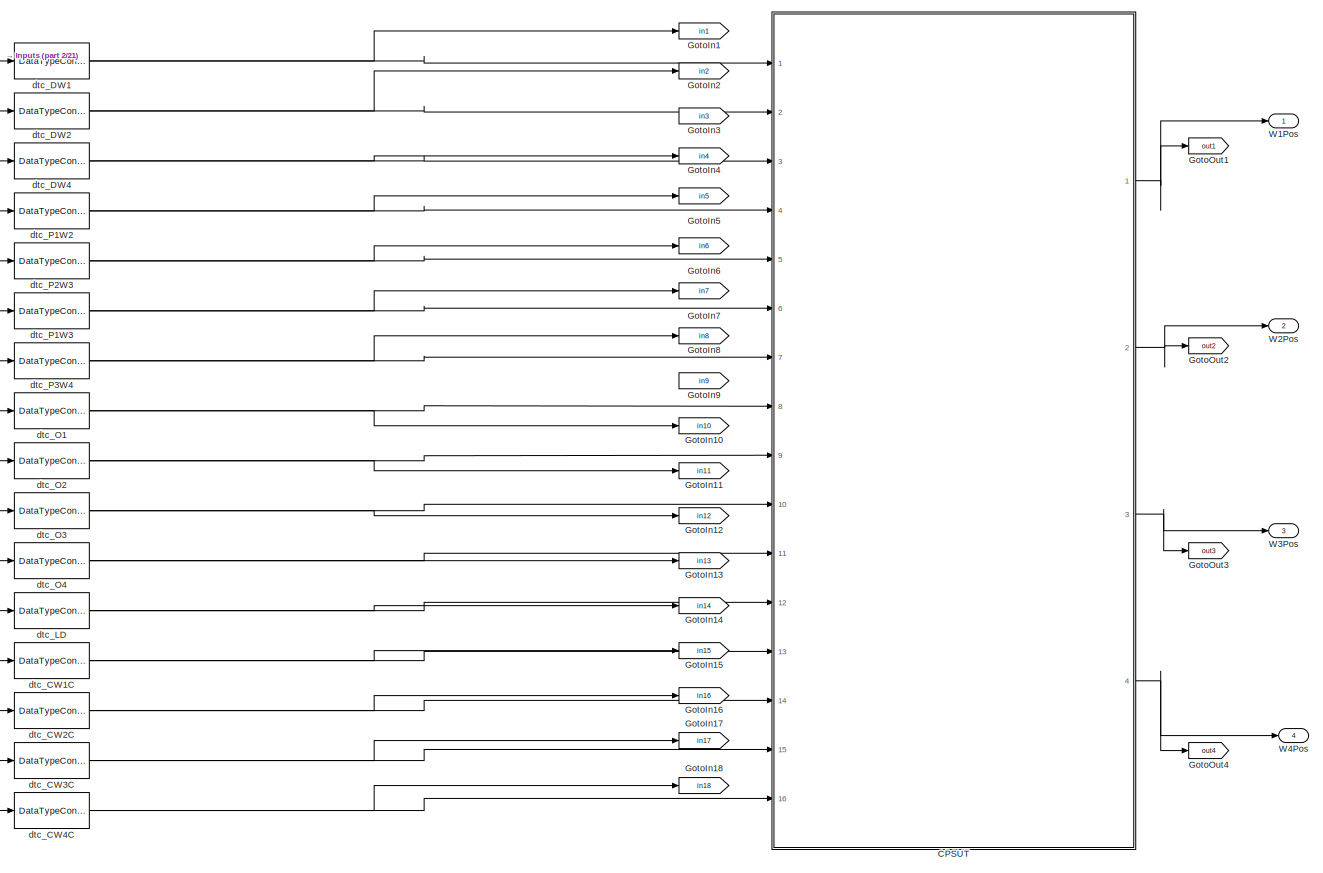
[diagram: root canvas - part 1/21, top left region]
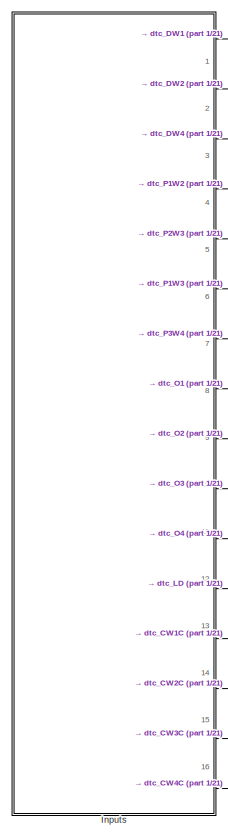
[diagram: root canvas - part 2/21, top left region]
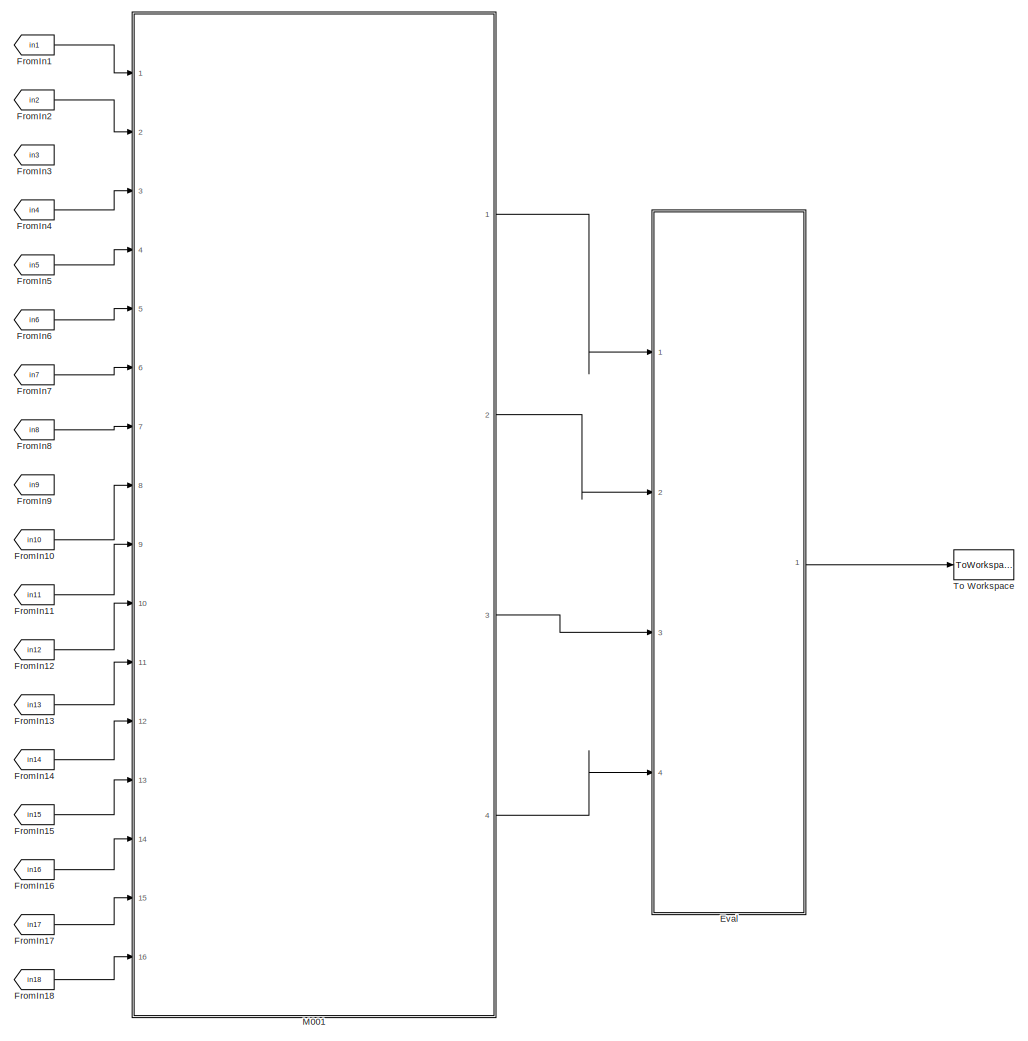
[diagram: root canvas - part 3/21, top center region]
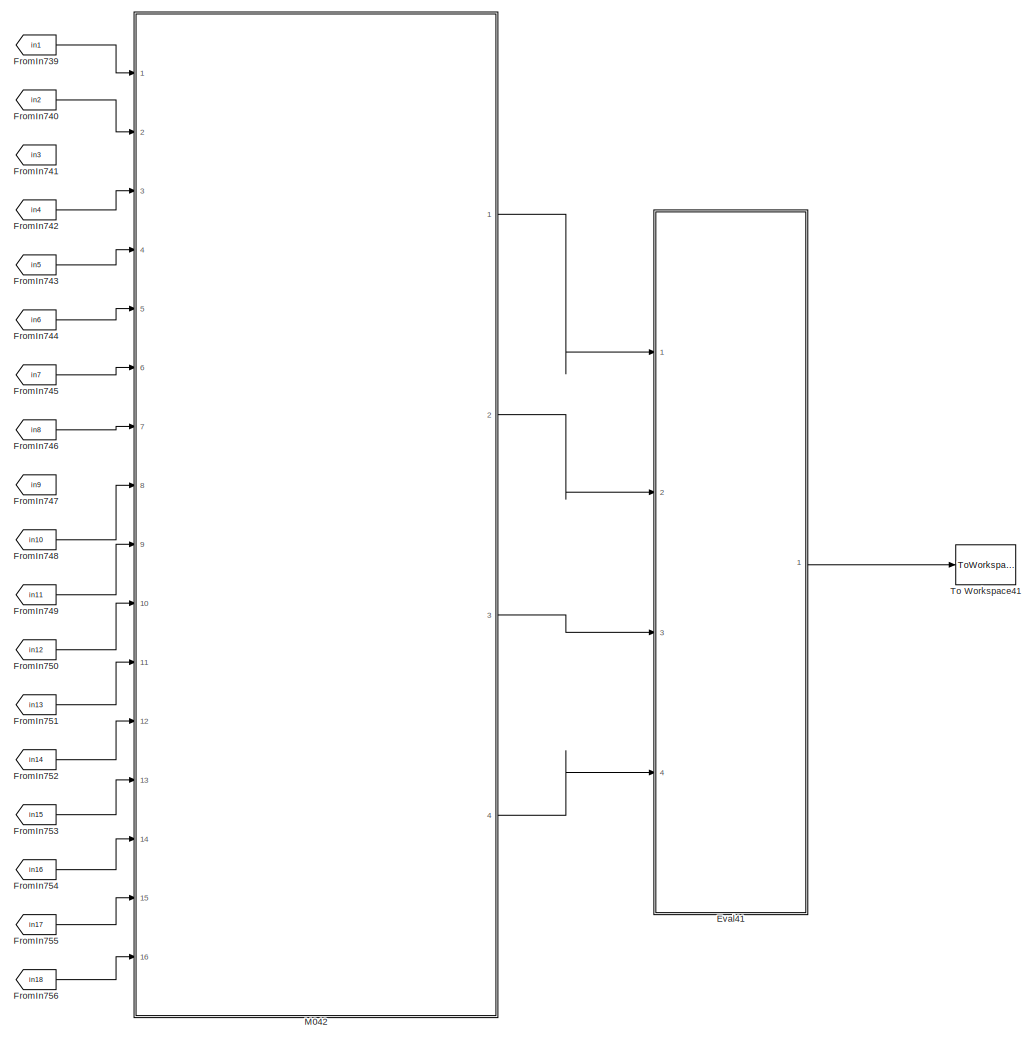
[diagram: root canvas - part 4/21, top right region]
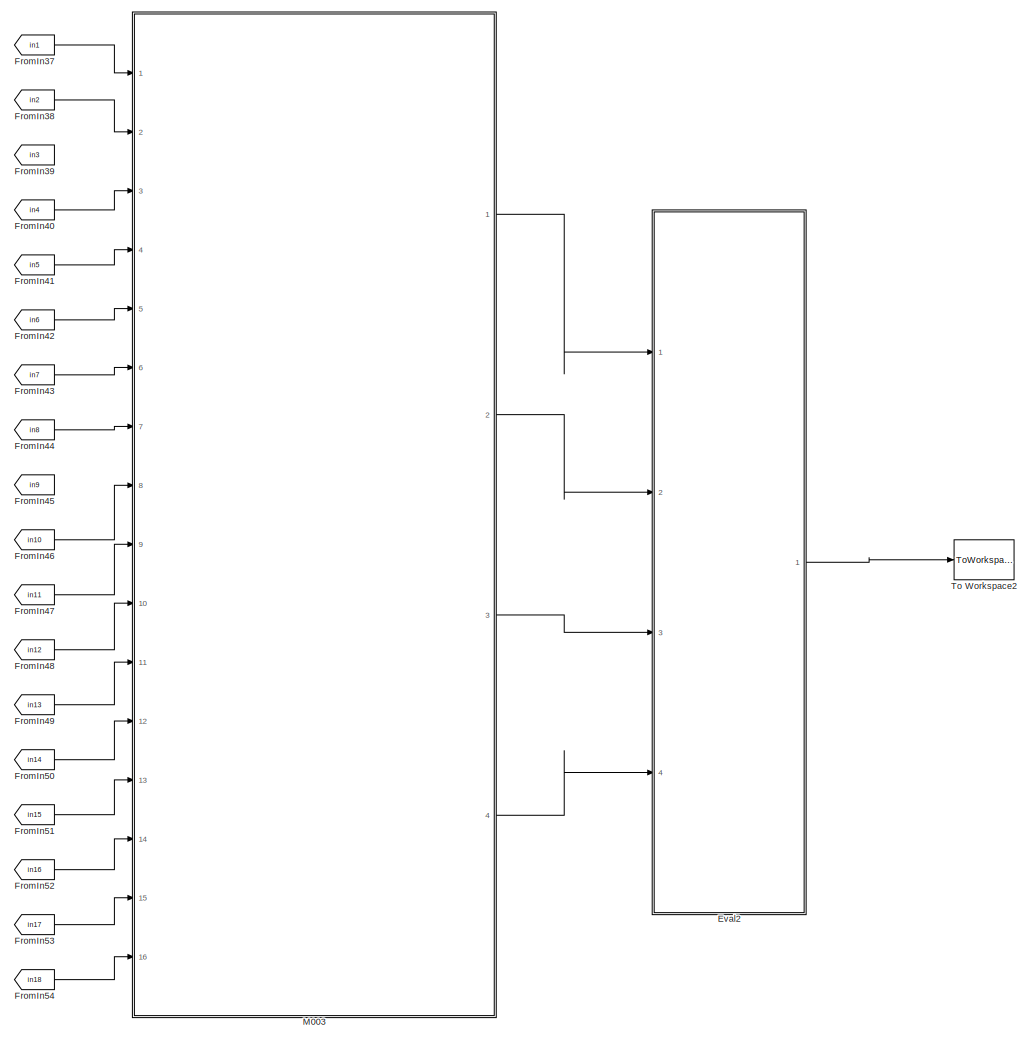
[diagram: root canvas - part 5/21, top center region]
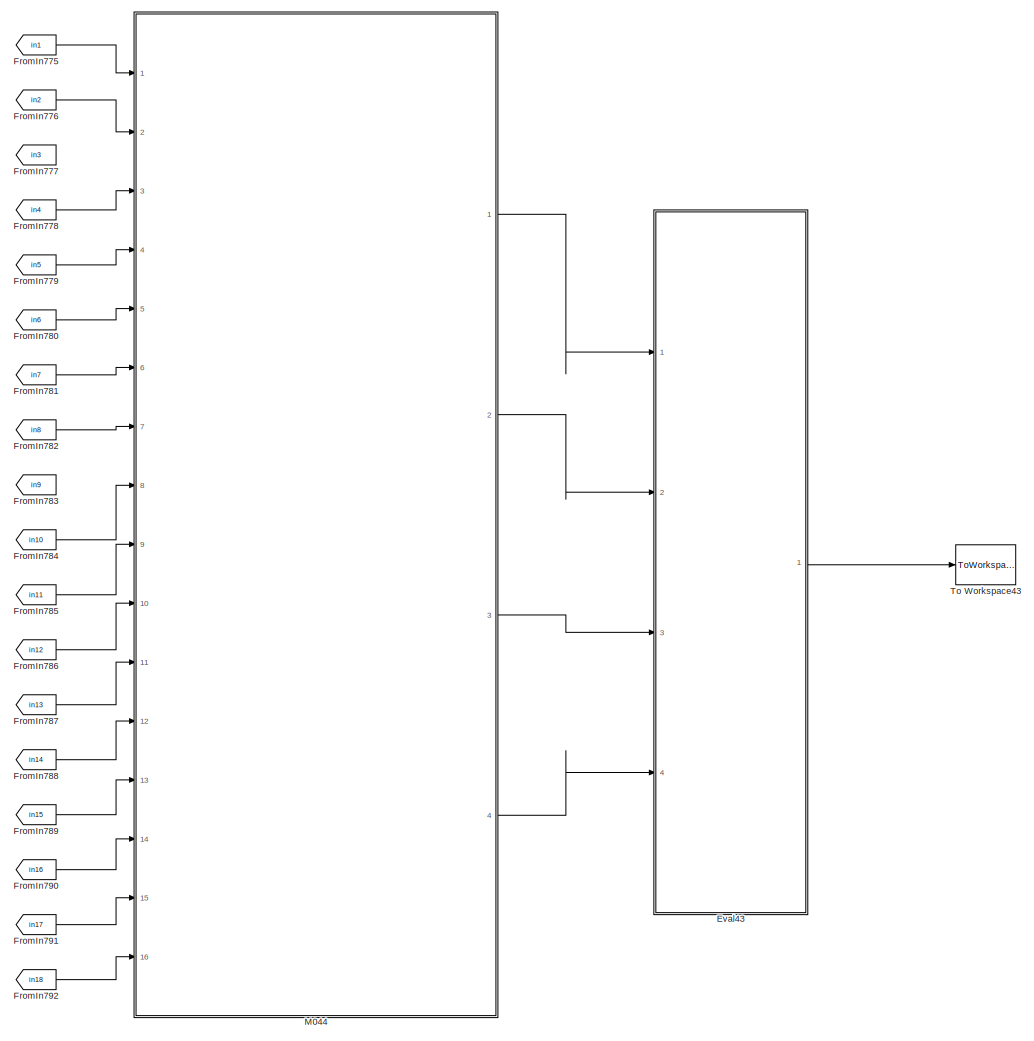
[diagram: root canvas - part 6/21, top right region]
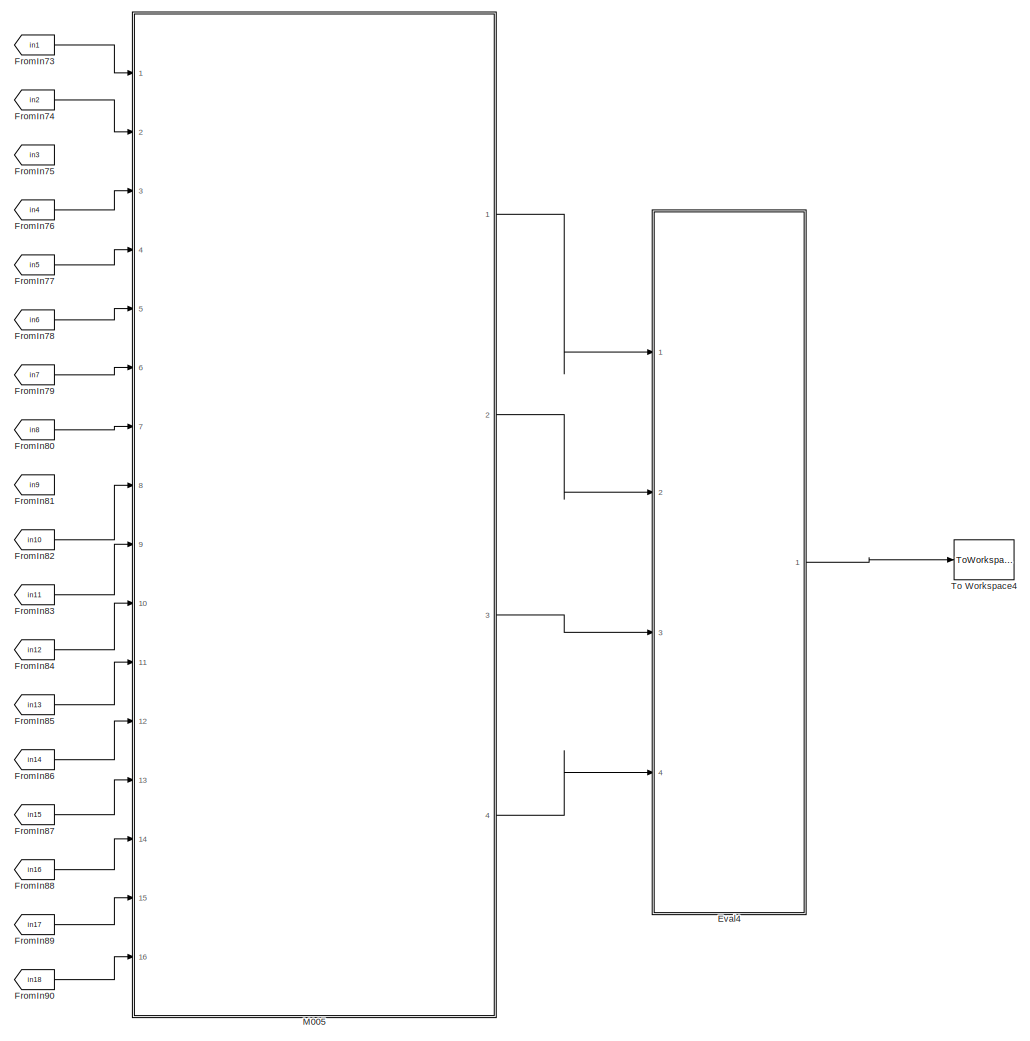
[diagram: root canvas - part 7/21, top center region]
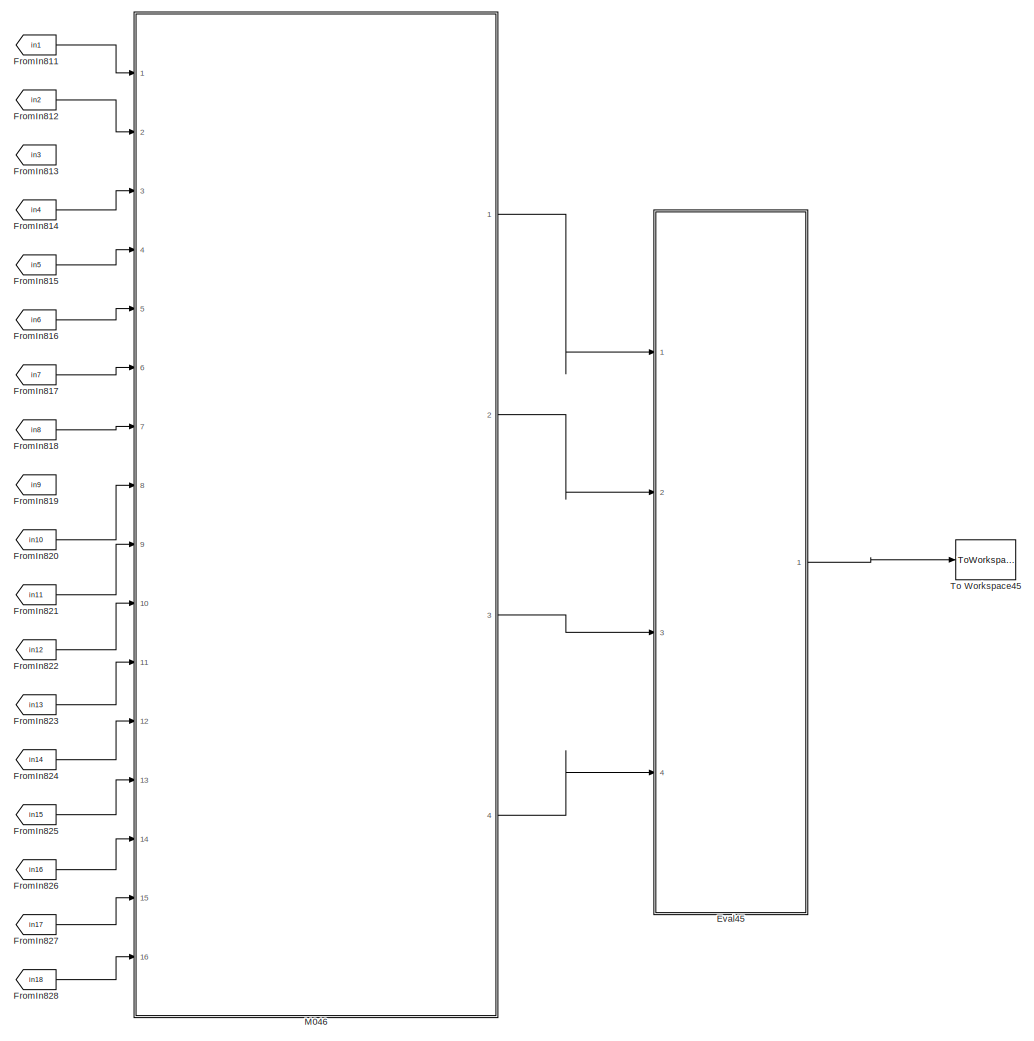
[diagram: root canvas - part 8/21, top right region]
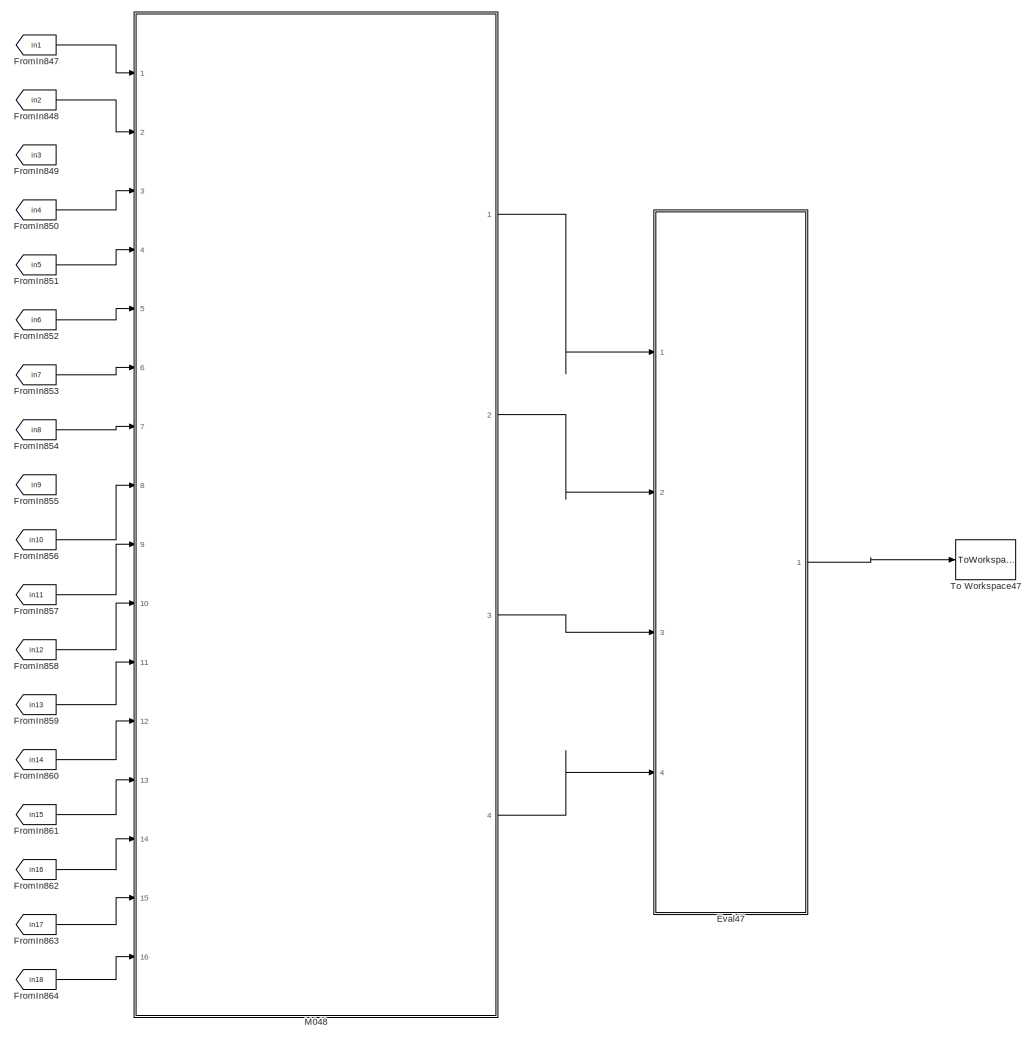
[diagram: root canvas - part 9/21, middle right region]
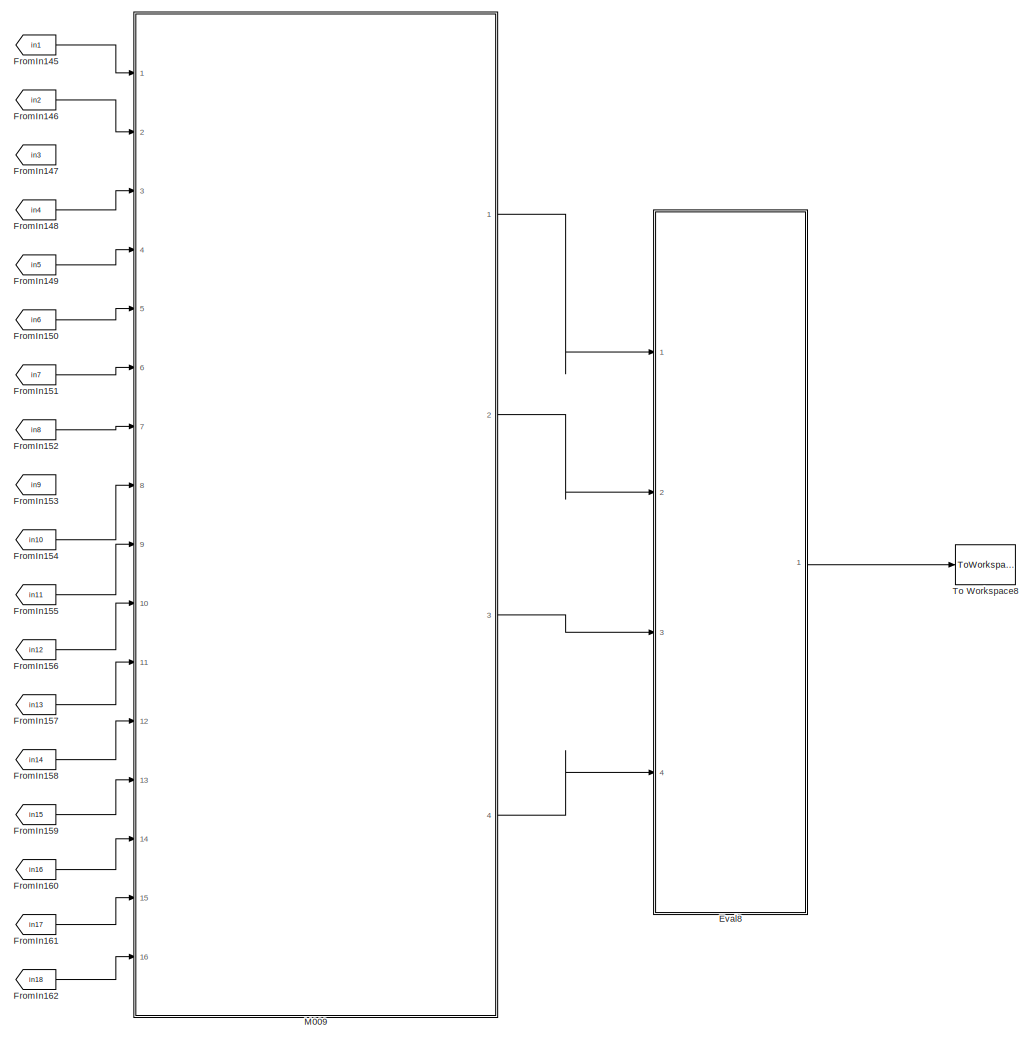
[diagram: root canvas - part 10/21, central region]
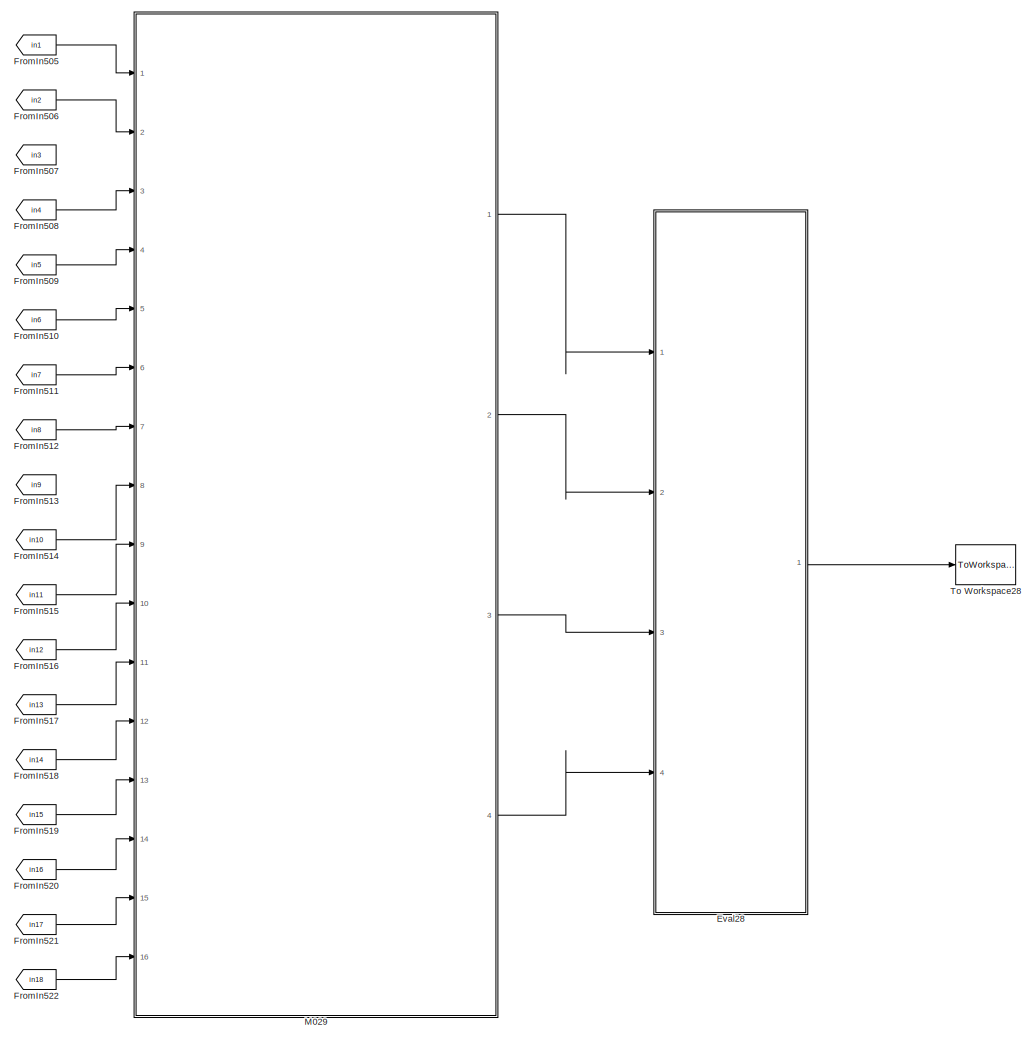
[diagram: root canvas - part 11/21, central region]
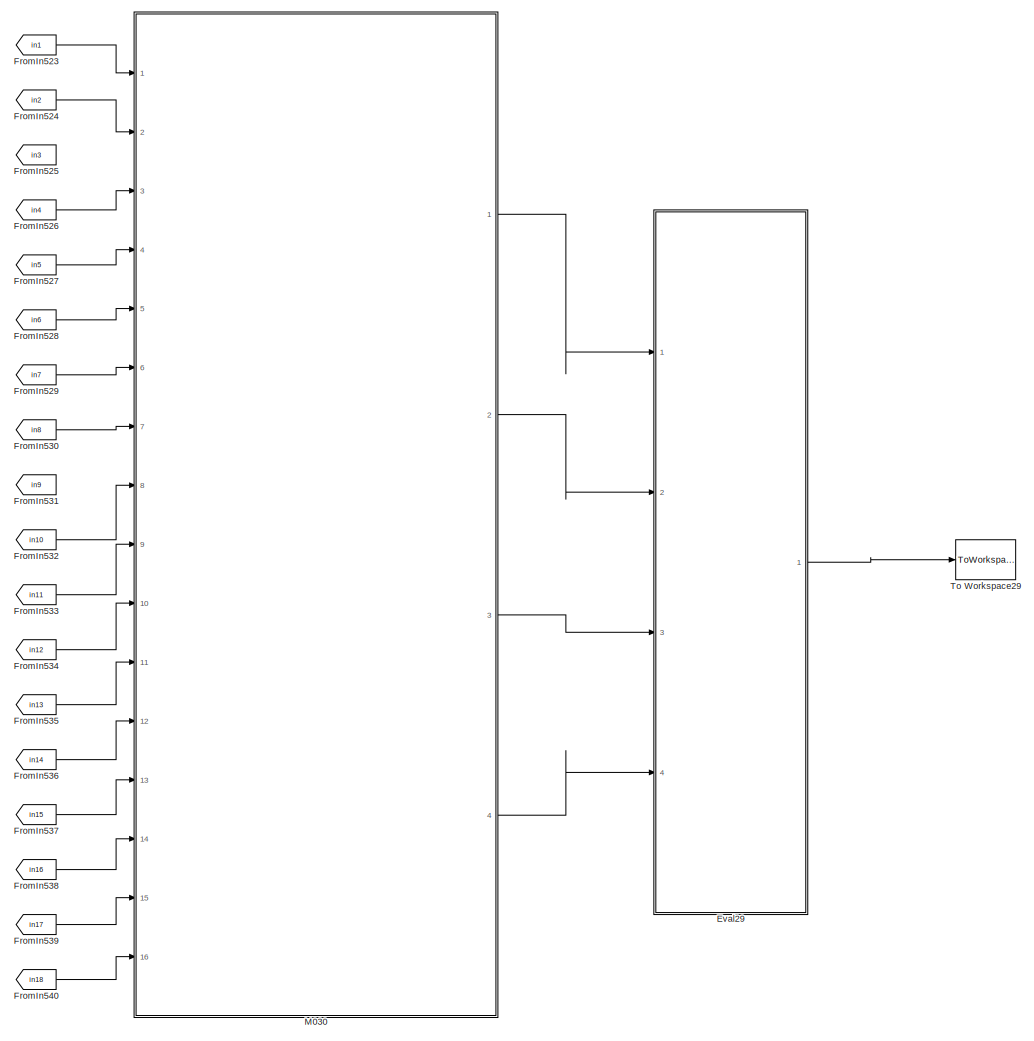
[diagram: root canvas - part 12/21, central region]
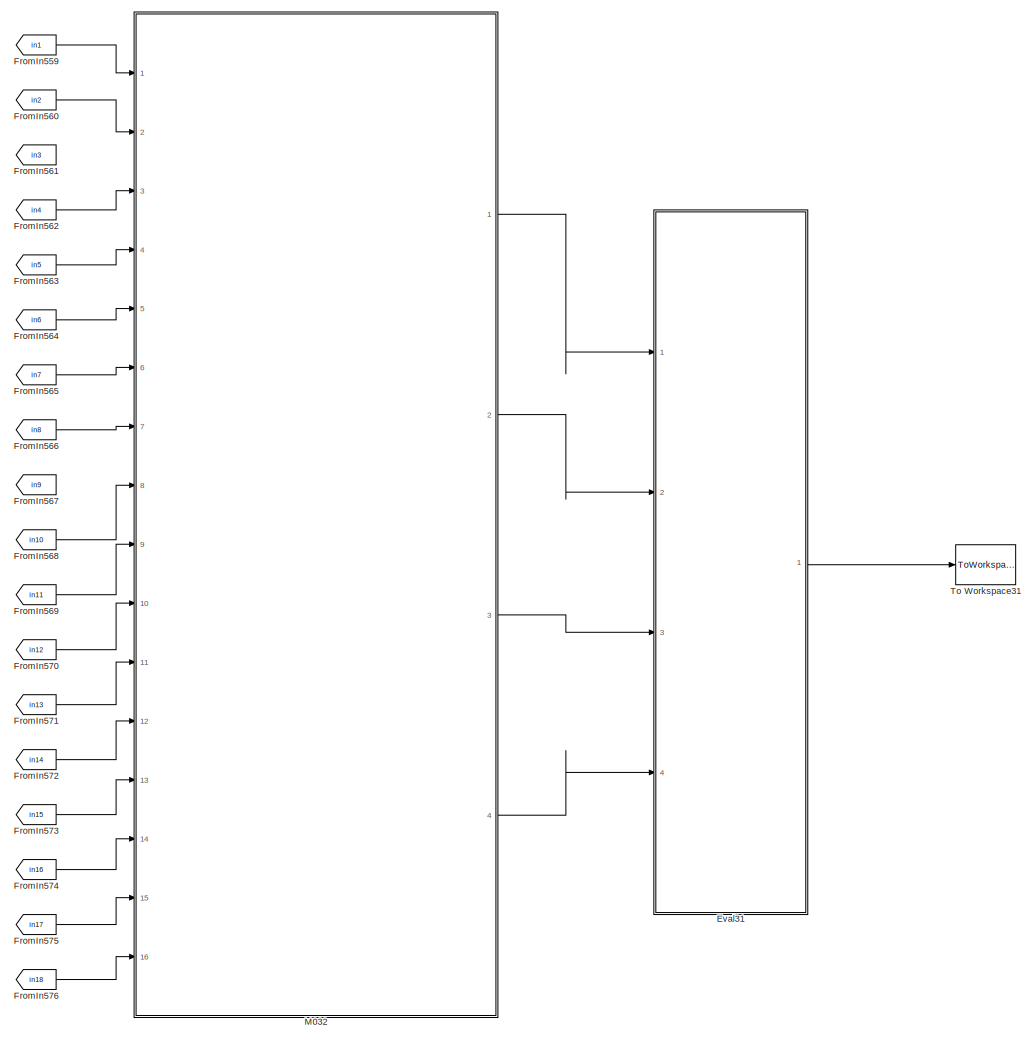
[diagram: root canvas - part 13/21, central region]
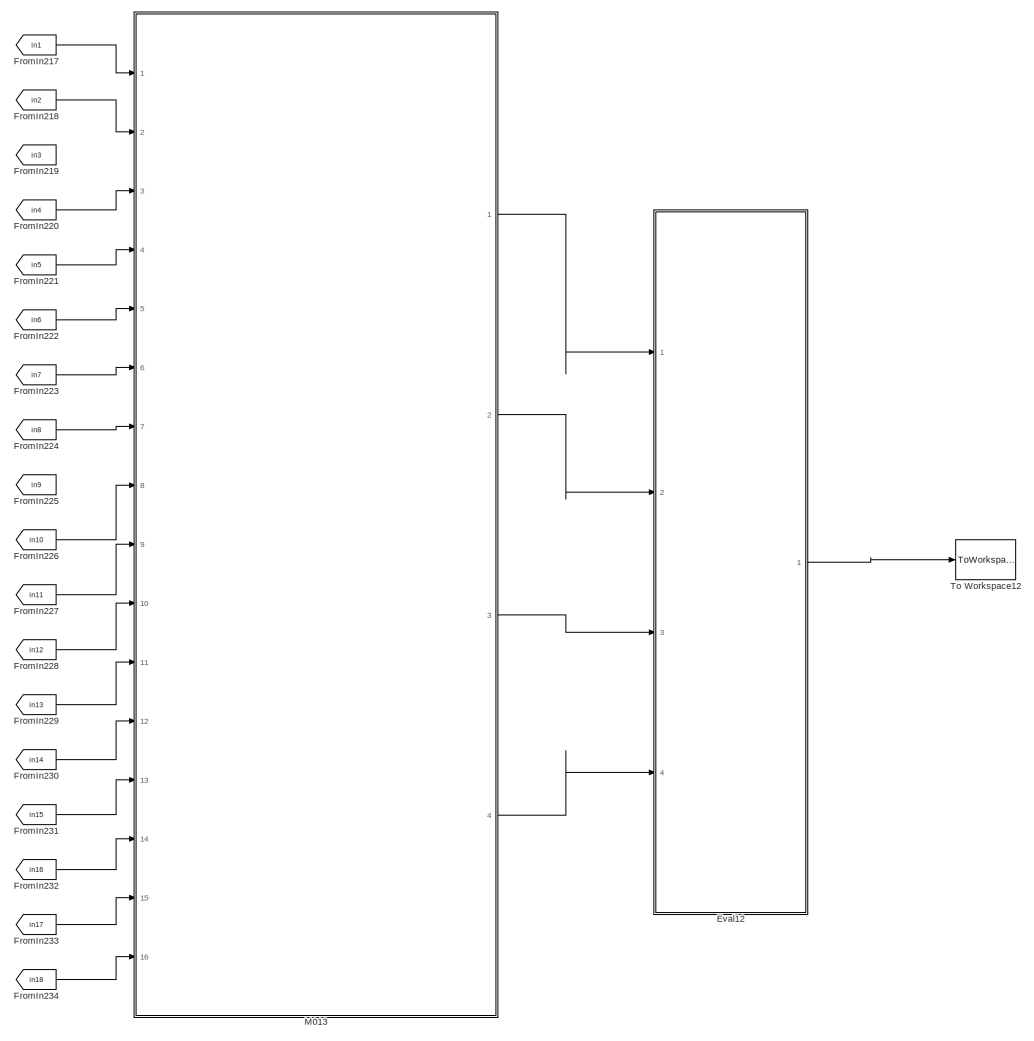
[diagram: root canvas - part 14/21, bottom center region]
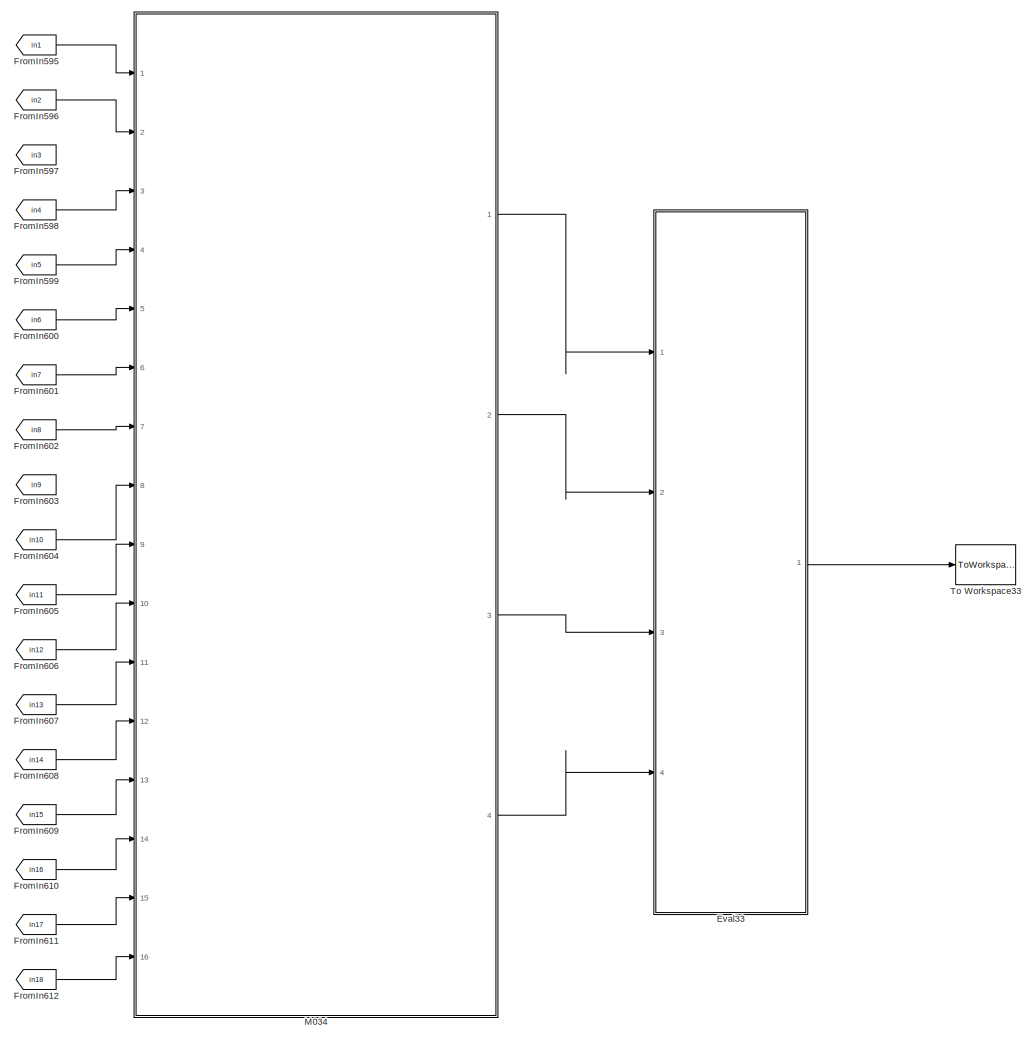
[diagram: root canvas - part 15/21, bottom center region]
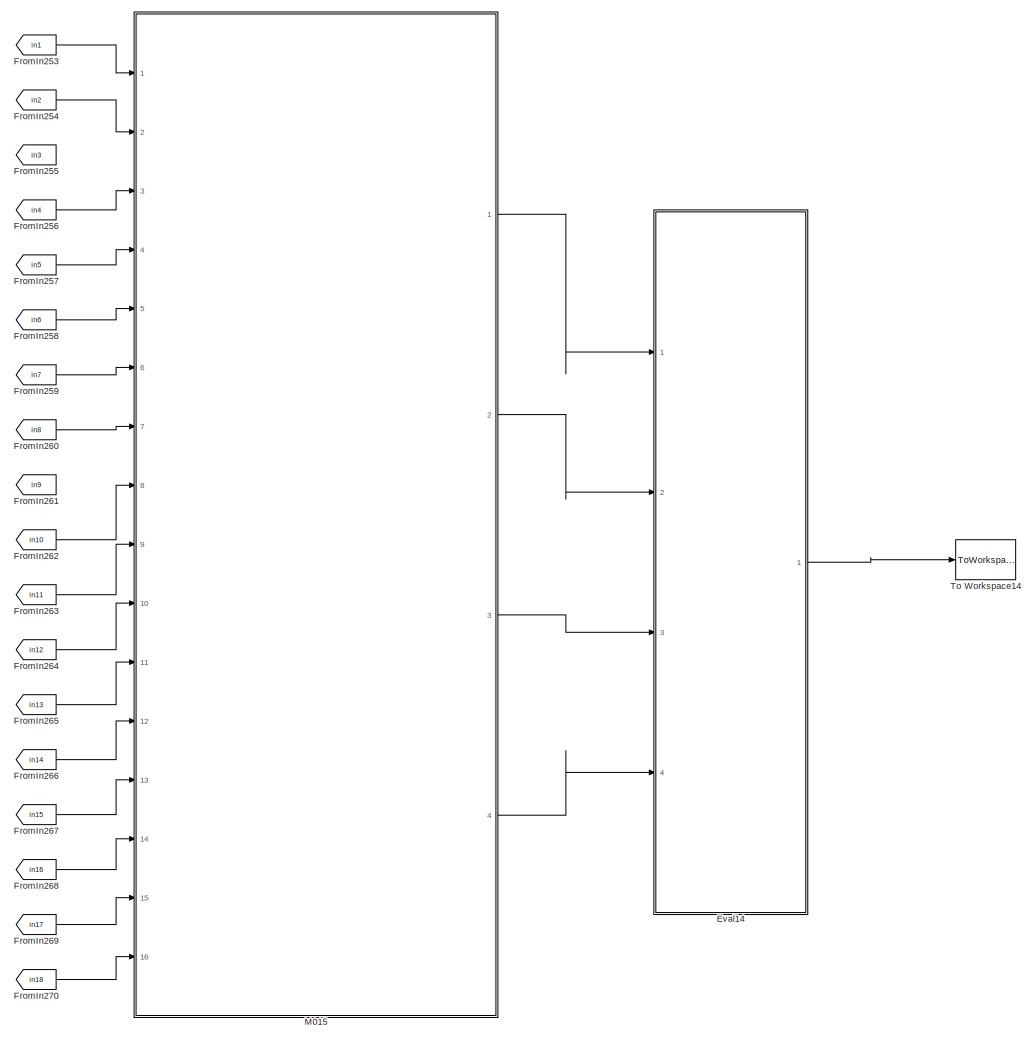
[diagram: root canvas - part 16/21, bottom center region]
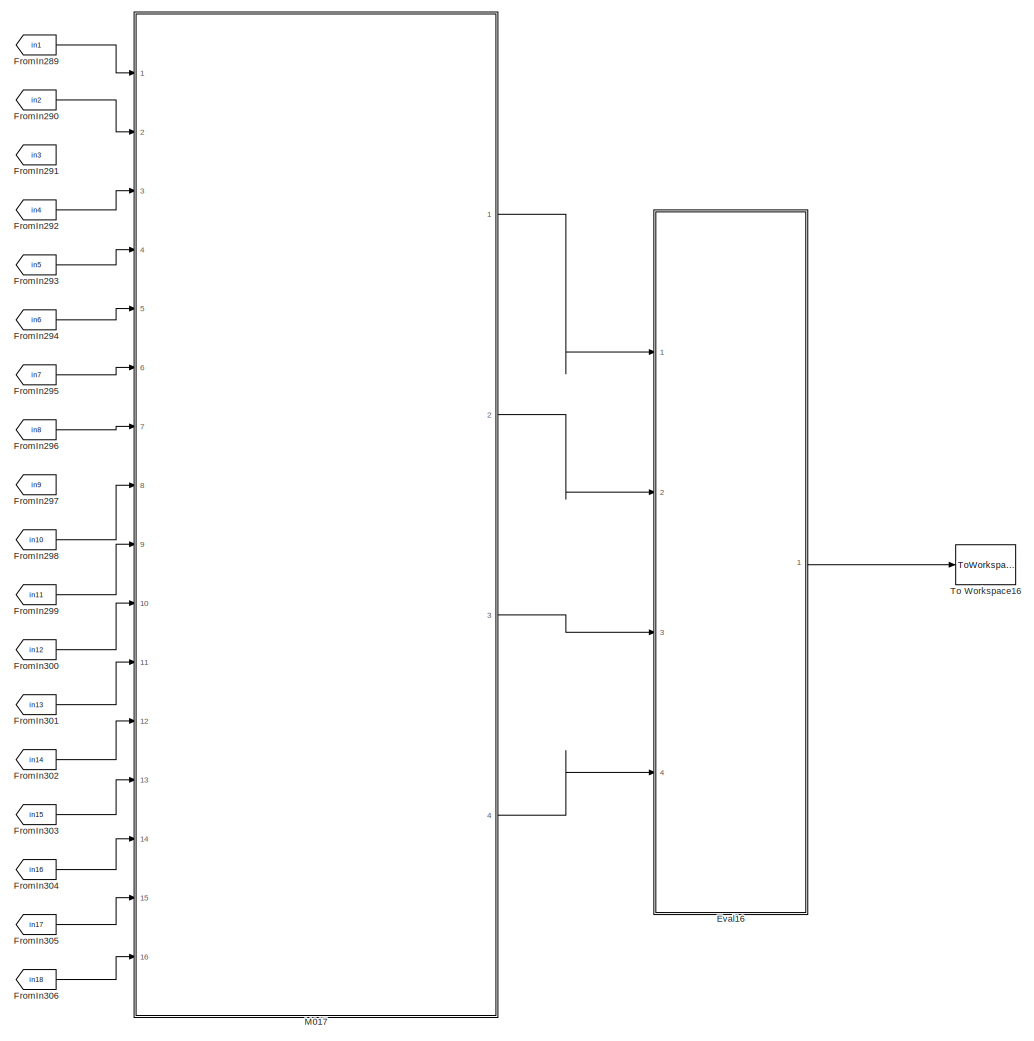
[diagram: root canvas - part 17/21, bottom center region]
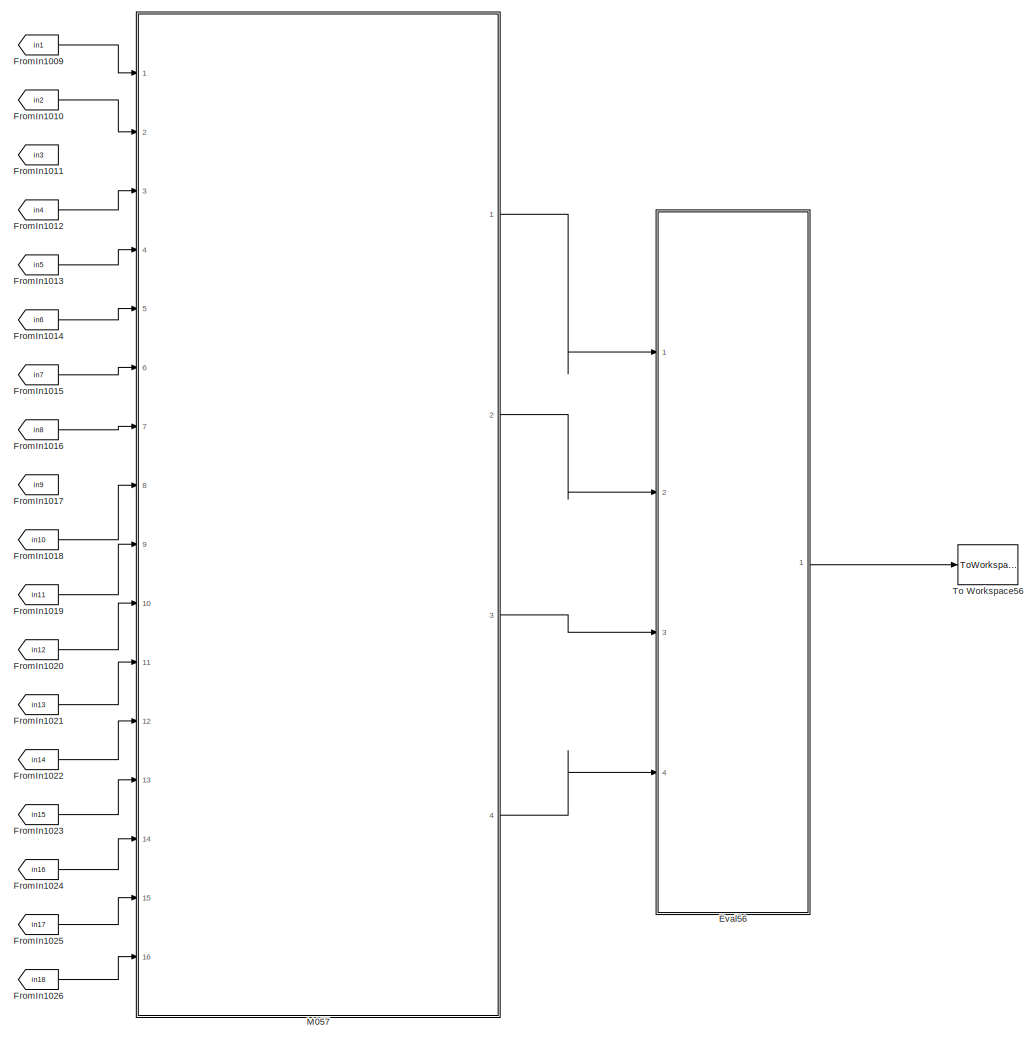
[diagram: root canvas - part 18/21, bottom right region]
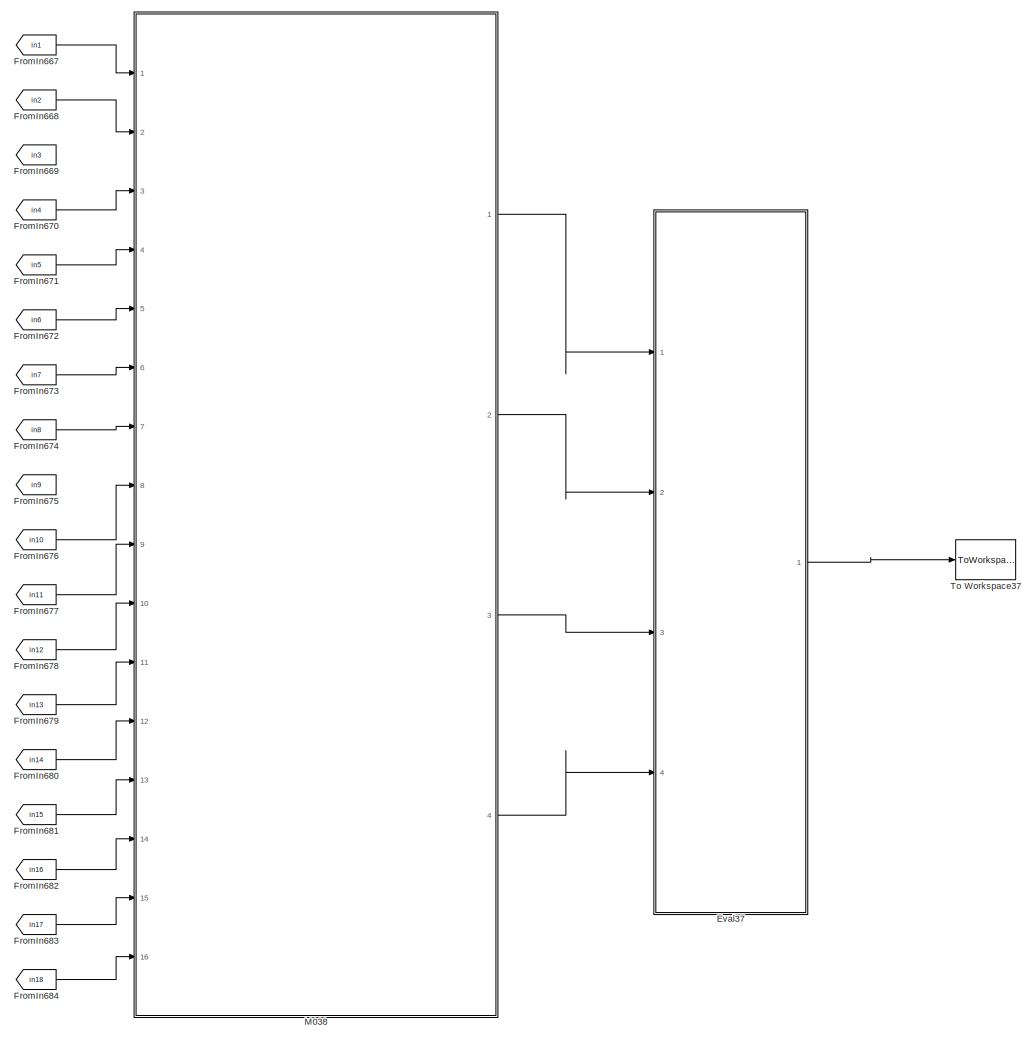
[diagram: root canvas - part 19/21, bottom center region]
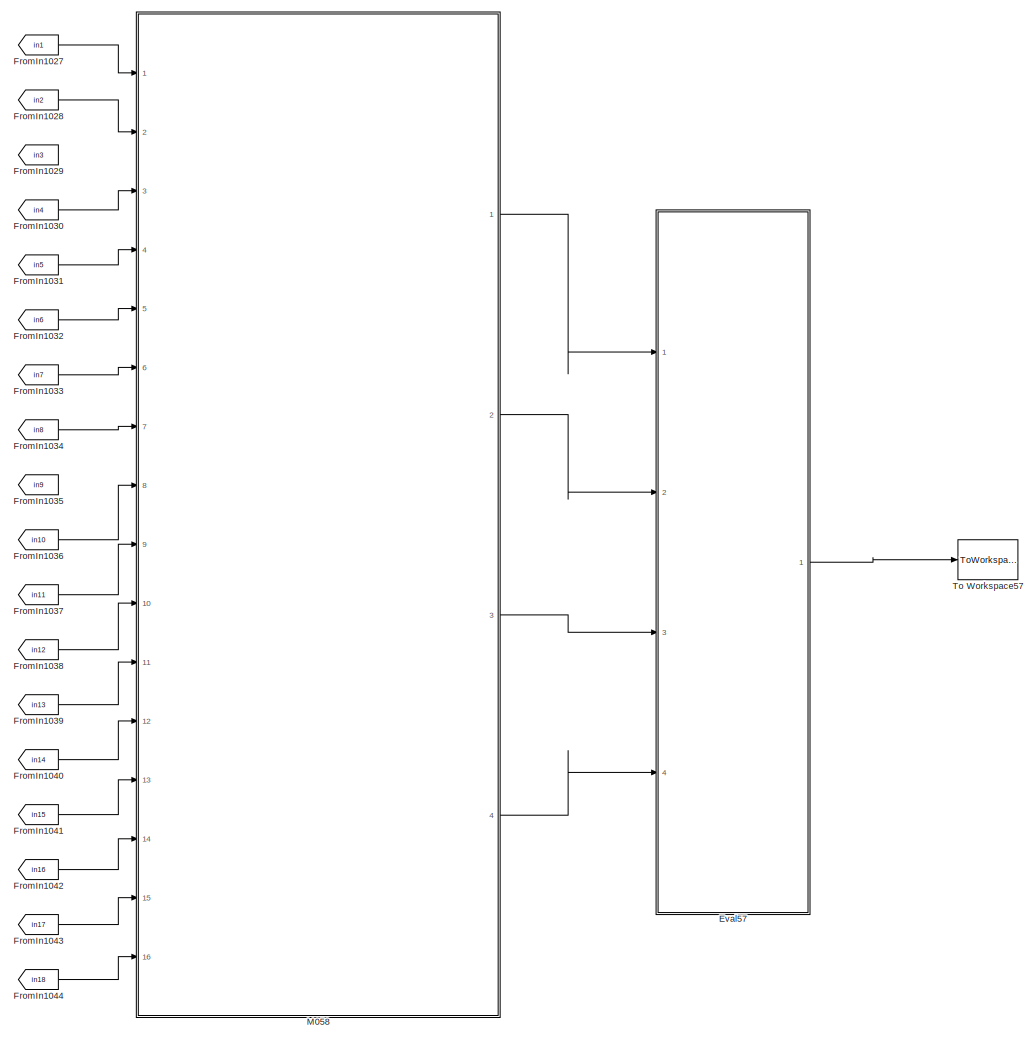
[diagram: root canvas - part 20/21, bottom right region]
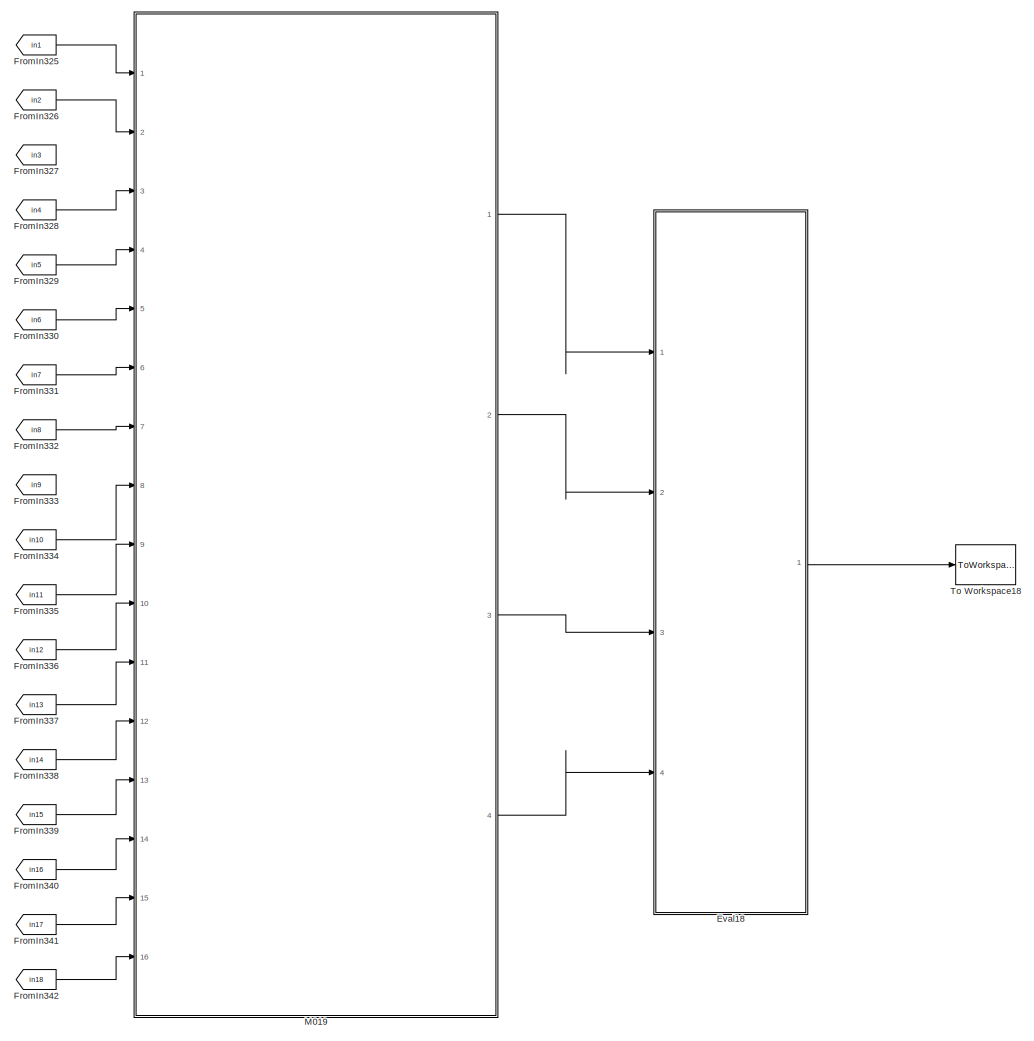
[diagram: root canvas - part 21/21, bottom center region]
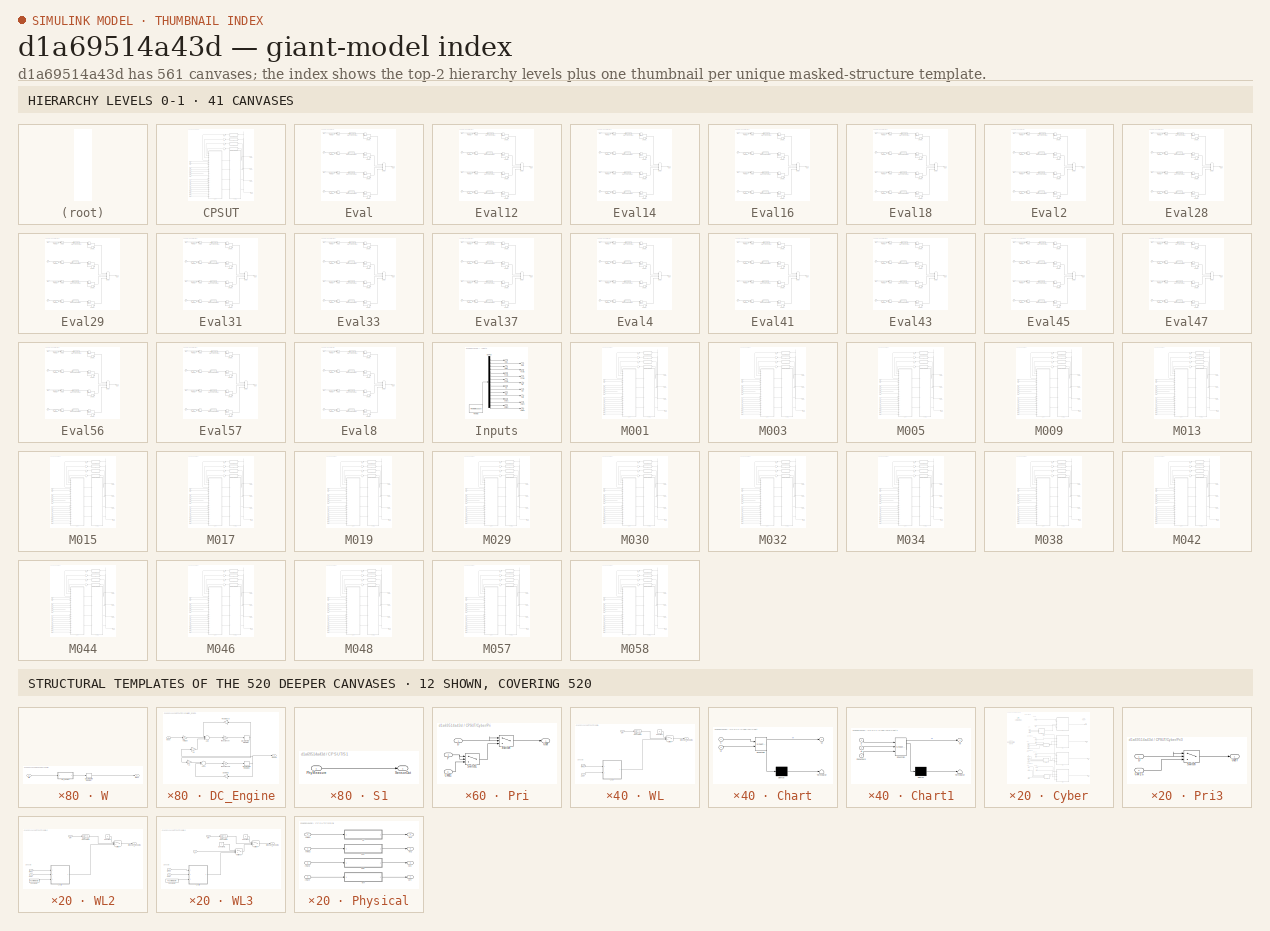
[diagram: thumbnail index - top-2 hierarchy levels (41 canvases) + 12 structural-template representatives of the remaining 520 canvases]
MODEL slx_d1a69514a43d
KIND model
CONFIG AbsTol = auto
CONFIG EnableMultiTasking = on
CONFIG FixedStep = auto
CONFIG MaxStep = auto
CONFIG MinStep = auto
CONFIG RelTol = 1e-3
CONFIG SampleTimeConstraint = Unconstrained
CONFIG Solver = ode3
CONFIG SolverName = ode3
CONFIG StartTime = 0.0
CONFIG StopTime = 10.0
BLOCK [SubSystem] CPSUT
  Ports = [16, 4]
  RequestExecContextInheritance = off
BLOCK [Inport] CPSUT/CW1C
  IconDisplay = Port number
  OutDataTypeStr = int8
  OutMax = 4
  OutMin = 0
  Port = 13
BLOCK [Inport] CPSUT/CW2C
  IconDisplay = Port number
  OutDataTypeStr = int8
  OutMax = 4
  OutMin = 0
  Port = 14
BLOCK [Inport] CPSUT/CW3C
  IconDisplay = Port number
  OutDataTypeStr = int8
  OutMax = 4
  OutMin = 0
  Port = 15
BLOCK [Inport] CPSUT/CW4C
  IconDisplay = Port number
  OutDataTypeStr = int8
  OutMax = 4
  OutMin = 0
  Port = 16
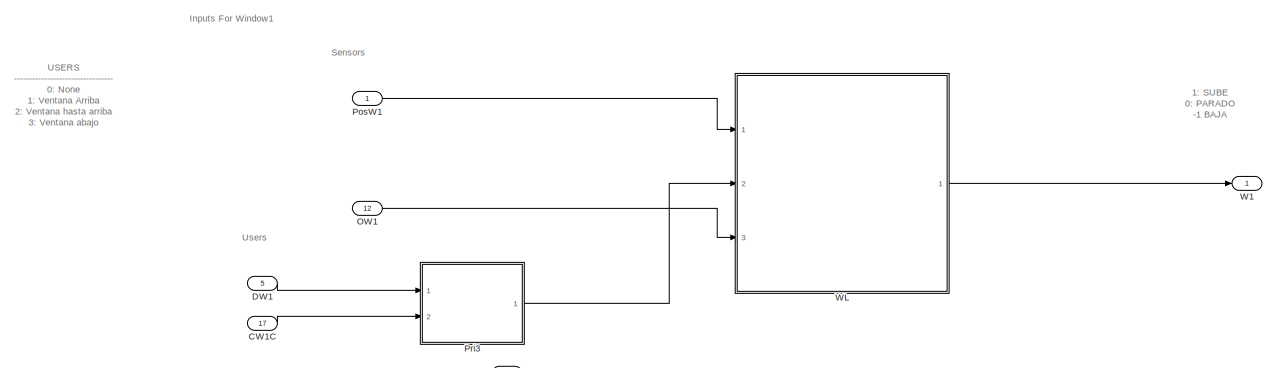
[diagram: CPSUT/Cyber - part 1/3, full width, top band]
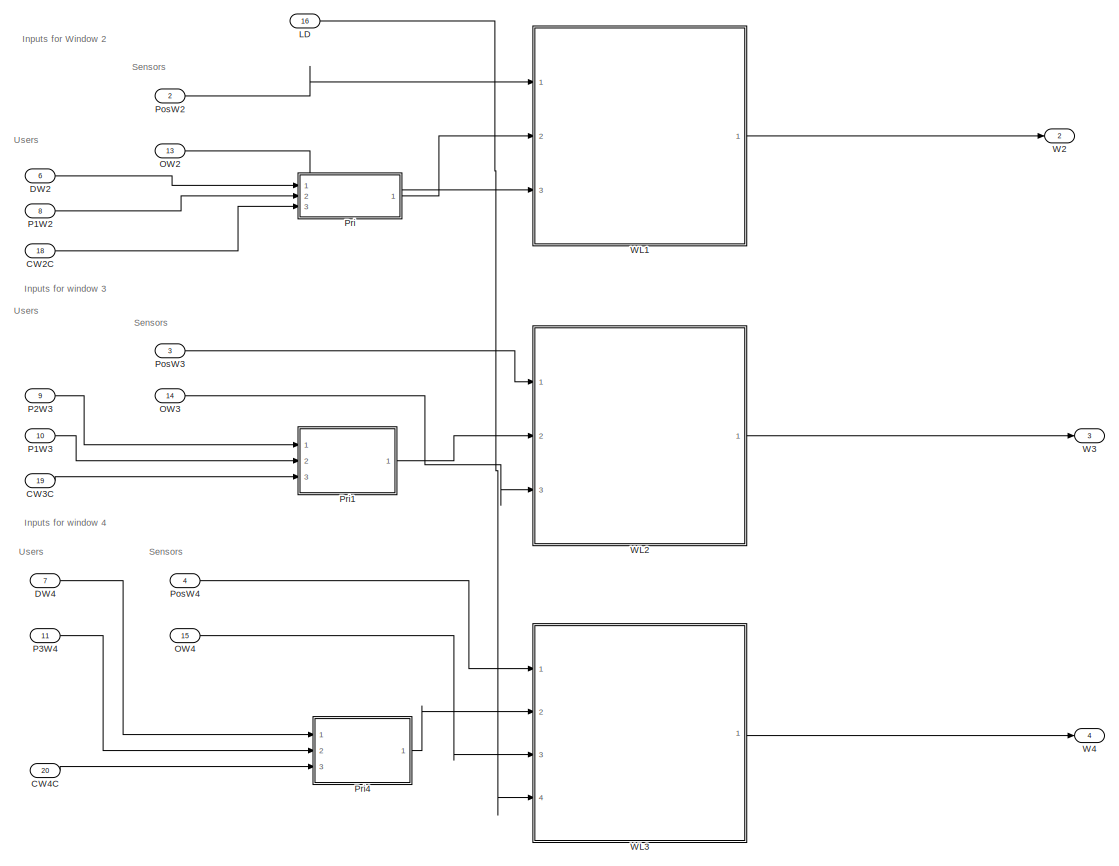
[diagram: CPSUT/Cyber - part 2/3, full width, middle band]
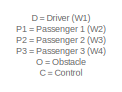
[diagram: CPSUT/Cyber - part 3/3, middle left region]
BLOCK [SubSystem] CPSUT/Cyber
  Ports = [20, 4]
  RequestExecContextInheritance = off
BLOCK [Inport] CPSUT/Cyber/CW1C
  IconDisplay = Port number
  Port = 17
BLOCK [Inport] CPSUT/Cyber/CW2C
  IconDisplay = Port number
  Port = 18
BLOCK [Inport] CPSUT/Cyber/CW3C
  IconDisplay = Port number
  Port = 19
BLOCK [Inport] CPSUT/Cyber/CW4C
  IconDisplay = Port number
  Port = 20
BLOCK [Inport] CPSUT/Cyber/DW1
  IconDisplay = Port number
  Port = 5
BLOCK [Inport] CPSUT/Cyber/DW2
  IconDisplay = Port number
  Port = 6
BLOCK [Inport] CPSUT/Cyber/DW4
  IconDisplay = Port number
  Port = 7
BLOCK [Inport] CPSUT/Cyber/LD
  IconDisplay = Port number
  Port = 16
BLOCK [Inport] CPSUT/Cyber/OW1
  IconDisplay = Port number
  Port = 12
BLOCK [Inport] CPSUT/Cyber/OW2
  IconDisplay = Port number
  Port = 13
BLOCK [Inport] CPSUT/Cyber/OW3
  IconDisplay = Port number
  Port = 14
BLOCK [Inport] CPSUT/Cyber/OW4
  IconDisplay = Port number
  Port = 15
BLOCK [Inport] CPSUT/Cyber/P1W2
  IconDisplay = Port number
  Port = 8
BLOCK [Inport] CPSUT/Cyber/P1W3
  IconDisplay = Port number
  Port = 10
BLOCK [Inport] CPSUT/Cyber/P2W3
  IconDisplay = Port number
  Port = 9
BLOCK [Inport] CPSUT/Cyber/P3W4
  IconDisplay = Port number
  Port = 11
BLOCK [Inport] CPSUT/Cyber/PosW1
  IconDisplay = Port number
BLOCK [Inport] CPSUT/Cyber/PosW2
  IconDisplay = Port number
  Port = 2
BLOCK [Inport] CPSUT/Cyber/PosW3
  IconDisplay = Port number
  Port = 3
BLOCK [Inport] CPSUT/Cyber/PosW4
  IconDisplay = Port number
  Port = 4
BLOCK [SubSystem] CPSUT/Cyber/Pri
  Ports = [3, 1]
  RequestExecContextInheritance = off
BLOCK [Inport] CPSUT/Cyber/Pri/CW2C
  IconDisplay = Port number
  Port = 3
BLOCK [Inport] CPSUT/Cyber/Pri/D
  IconDisplay = Port number
BLOCK [Inport] CPSUT/Cyber/Pri/P
  IconDisplay = Port number
  Port = 2
BLOCK [Switch] CPSUT/Cyber/Pri/Switch
  Criteria = u2 ~= 0
  InputSameDT = off
  SaturateOnIntegerOverflow = off
BLOCK [Switch] CPSUT/Cyber/Pri/Switch1
  Criteria = u2 ~= 0
  InputSameDT = off
  SaturateOnIntegerOverflow = off
BLOCK [Outport] CPSUT/Cyber/Pri/User
  IconDisplay = Port number
BLOCK [SubSystem] CPSUT/Cyber/Pri1
  Ports = [3, 1]
  RequestExecContextInheritance = off
BLOCK [Inport] CPSUT/Cyber/Pri1/CW3C
  IconDisplay = Port number
  Port = 3
BLOCK [Inport] CPSUT/Cyber/Pri1/P
  IconDisplay = Port number
BLOCK [Inport] CPSUT/Cyber/Pri1/P1
  IconDisplay = Port number
  Port = 2
BLOCK [Switch] CPSUT/Cyber/Pri1/Switch1
  Criteria = u2 ~= 0
  InputSameDT = off
  SaturateOnIntegerOverflow = off
BLOCK [Switch] CPSUT/Cyber/Pri1/Switch2
  Criteria = u2 ~= 0
  InputSameDT = off
  SaturateOnIntegerOverflow = off
BLOCK [Outport] CPSUT/Cyber/Pri1/User
  IconDisplay = Port number
BLOCK [SubSystem] CPSUT/Cyber/Pri3
  Ports = [2, 1]
  RequestExecContextInheritance = off
BLOCK [Inport] CPSUT/Cyber/Pri3/CW1C
  IconDisplay = Port number
  Port = 2
BLOCK [Inport] CPSUT/Cyber/Pri3/D
  IconDisplay = Port number
BLOCK [Switch] CPSUT/Cyber/Pri3/Switch
  Criteria = u2 ~= 0
  InputSameDT = off
  SaturateOnIntegerOverflow = off
BLOCK [Outport] CPSUT/Cyber/Pri3/User
  IconDisplay = Port number
BLOCK [SubSystem] CPSUT/Cyber/Pri4
  Ports = [3, 1]
  RequestExecContextInheritance = off
BLOCK [Inport] CPSUT/Cyber/Pri4/CW4C
  IconDisplay = Port number
  Port = 3
BLOCK [Inport] CPSUT/Cyber/Pri4/D
  IconDisplay = Port number
BLOCK [Inport] CPSUT/Cyber/Pri4/P
  IconDisplay = Port number
  Port = 2
BLOCK [Switch] CPSUT/Cyber/Pri4/Switch
  Criteria = u2 ~= 0
  InputSameDT = off
  SaturateOnIntegerOverflow = off
BLOCK [Switch] CPSUT/Cyber/Pri4/Switch1
  Criteria = u2 ~= 0
  InputSameDT = off
  SaturateOnIntegerOverflow = off
BLOCK [Outport] CPSUT/Cyber/Pri4/User
  IconDisplay = Port number
BLOCK [Outport] CPSUT/Cyber/W1
  IconDisplay = Port number
BLOCK [Outport] CPSUT/Cyber/W2
  IconDisplay = Port number
  Port = 2
BLOCK [Outport] CPSUT/Cyber/W3
  IconDisplay = Port number
  Port = 3
BLOCK [Outport] CPSUT/Cyber/W4
  IconDisplay = Port number
  Port = 4
BLOCK [SubSystem] CPSUT/Cyber/WL
  Ports = [3, 1]
  RequestExecContextInheritance = off
BLOCK [SubSystem] CPSUT/Cyber/WL/Chart
  ErrorFcn = Stateflow.Translate.translate
  PermitHierarchicalResolution = ExplicitOnly
  Ports = [2, 1]
  RequestExecContextInheritance = off
  SFBlockType = Chart
  TreatAsAtomicUnit = on
BLOCK [Demux] CPSUT/Cyber/WL/Chart/ Demux 
  Outputs = 1
  Ports = [1, 1]
BLOCK [S-Function] CPSUT/Cyber/WL/Chart/ SFunction 
  EnableBusSupport = off
  FunctionName = sf_sfun
  PortCounts = [2 2]
  Ports = [2, 2]
  SFcnIsStateOwnerBlock = off
  SFunctionDeploymentMode = off
  Tag = Stateflow S-Function c00002M_harness 1
BLOCK [Terminator] CPSUT/Cyber/WL/Chart/ Terminator 
BLOCK [Inport] CPSUT/Cyber/WL/Chart/S
  IconDisplay = Port number
BLOCK [Inport] CPSUT/Cyber/WL/Chart/UI
  IconDisplay = Port number
  Port = 2
BLOCK [Outport] CPSUT/Cyber/WL/Chart/W
  IconDisplay = Port number
BLOCK [Constant] CPSUT/Cyber/WL/Constant
  Value = -1
BLOCK [DataTypeConversion] CPSUT/Cyber/WL/Data Type Conversion
  RndMeth = Floor
  SaturateOnIntegerOverflow = off
BLOCK [Inport] CPSUT/Cyber/WL/OW
  IconDisplay = Port number
  Port = 3
BLOCK [Switch] CPSUT/Cyber/WL/Switch
  Criteria = u2 ~= 0
  InputSameDT = off
  SaturateOnIntegerOverflow = off
  Threshold = 1
  ZeroCross = off
BLOCK [Inport] CPSUT/Cyber/WL/User
  IconDisplay = Port number
  Port = 2
BLOCK [Inport] CPSUT/Cyber/WL/WPos
  IconDisplay = Port number
BLOCK [Outport] CPSUT/Cyber/WL/WindowLogicOutput
  IconDisplay = Port number
BLOCK [SubSystem] CPSUT/Cyber/WL1
  Ports = [3, 1]
  RequestExecContextInheritance = off
BLOCK [SubSystem] CPSUT/Cyber/WL1/Chart1
  ErrorFcn = Stateflow.Translate.translate
  PermitHierarchicalResolution = ExplicitOnly
  Ports = [2, 1]
  RequestExecContextInheritance = off
  SFBlockType = Chart
  TreatAsAtomicUnit = on
BLOCK [Demux] CPSUT/Cyber/WL1/Chart1/ Demux 
  Outputs = 1
  Ports = [1, 1]
BLOCK [S-Function] CPSUT/Cyber/WL1/Chart1/ SFunction 
  EnableBusSupport = off
  FunctionName = sf_sfun
  PortCounts = [2 2]
  Ports = [2, 2]
  SFcnIsStateOwnerBlock = off
  SFunctionDeploymentMode = off
  Tag = Stateflow S-Function c00002M_harness 3
BLOCK [Terminator] CPSUT/Cyber/WL1/Chart1/ Terminator 
BLOCK [Inport] CPSUT/Cyber/WL1/Chart1/S
  IconDisplay = Port number
BLOCK [Inport] CPSUT/Cyber/WL1/Chart1/UI
  IconDisplay = Port number
  Port = 2
BLOCK [Outport] CPSUT/Cyber/WL1/Chart1/W
  IconDisplay = Port number
BLOCK [Constant] CPSUT/Cyber/WL1/Constant
  Value = -1
BLOCK [DataTypeConversion] CPSUT/Cyber/WL1/Data Type Conversion
  RndMeth = Floor
  SaturateOnIntegerOverflow = off
BLOCK [Inport] CPSUT/Cyber/WL1/OW
  IconDisplay = Port number
  Port = 3
BLOCK [Switch] CPSUT/Cyber/WL1/Switch
  Criteria = u2 ~= 0
  InputSameDT = off
  SaturateOnIntegerOverflow = off
  Threshold = 1
  ZeroCross = off
BLOCK [Inport] CPSUT/Cyber/WL1/User
  IconDisplay = Port number
  Port = 2
BLOCK [Inport] CPSUT/Cyber/WL1/WPos
  IconDisplay = Port number
BLOCK [Outport] CPSUT/Cyber/WL1/WindowLogicOutput
  IconDisplay = Port number
BLOCK [SubSystem] CPSUT/Cyber/WL2
  Ports = [3, 1]
  RequestExecContextInheritance = off
BLOCK [SubSystem] CPSUT/Cyber/WL2/Chart1
  ErrorFcn = Stateflow.Translate.translate
  PermitHierarchicalResolution = ExplicitOnly
  Ports = [3, 1]
  RequestExecContextInheritance = off
  SFBlockType = Chart
  TreatAsAtomicUnit = on
BLOCK [Demux] CPSUT/Cyber/WL2/Chart1/ Demux 
  Outputs = 1
  Ports = [1, 1]
BLOCK [S-Function] CPSUT/Cyber/WL2/Chart1/ SFunction 
  EnableBusSupport = off
  FunctionName = sf_sfun
  PortCounts = [3 2]
  Ports = [3, 2]
  SFcnIsStateOwnerBlock = off
  SFunctionDeploymentMode = off
  Tag = Stateflow S-Function c00002M_harness 2
BLOCK [Terminator] CPSUT/Cyber/WL2/Chart1/ Terminator 
BLOCK [Inport] CPSUT/Cyber/WL2/Chart1/PosMinW3
  IconDisplay = Port number
  Port = 3
BLOCK [Inport] CPSUT/Cyber/WL2/Chart1/S
  IconDisplay = Port number
BLOCK [Inport] CPSUT/Cyber/WL2/Chart1/UI
  IconDisplay = Port number
  Port = 2
BLOCK [Outport] CPSUT/Cyber/WL2/Chart1/W
  IconDisplay = Port number
BLOCK [Constant] CPSUT/Cyber/WL2/Constant
  Value = -1
BLOCK [Constant] CPSUT/Cyber/WL2/Constant2
  Value = PosMinimaW3
BLOCK [DataTypeConversion] CPSUT/Cyber/WL2/Data Type Conversion
  RndMeth = Floor
  SaturateOnIntegerOverflow = off
BLOCK [Inport] CPSUT/Cyber/WL2/OW
  IconDisplay = Port number
  Port = 3
BLOCK [Switch] CPSUT/Cyber/WL2/Switch
  Criteria = u2 ~= 0
  InputSameDT = off
  SaturateOnIntegerOverflow = off
  Threshold = 1
  ZeroCross = off
BLOCK [Inport] CPSUT/Cyber/WL2/User
  IconDisplay = Port number
  Port = 2
BLOCK [Inport] CPSUT/Cyber/WL2/WPos
  IconDisplay = Port number
BLOCK [Outport] CPSUT/Cyber/WL2/WindowLogicOutput
  IconDisplay = Port number
BLOCK [SubSystem] CPSUT/Cyber/WL3
  Ports = [4, 1]
  RequestExecContextInheritance = off
BLOCK [SubSystem] CPSUT/Cyber/WL3/Chart2
  ErrorFcn = Stateflow.Translate.translate
  PermitHierarchicalResolution = ExplicitOnly
  Ports = [3, 1]
  RequestExecContextInheritance = off
  SFBlockType = Chart
  TreatAsAtomicUnit = on
BLOCK [Demux] CPSUT/Cyber/WL3/Chart2/ Demux 
  Outputs = 1
  Ports = [1, 1]
BLOCK [S-Function] CPSUT/Cyber/WL3/Chart2/ SFunction 
  EnableBusSupport = off
  FunctionName = sf_sfun
  PortCounts = [3 2]
  Ports = [3, 2]
  SFcnIsStateOwnerBlock = off
  SFunctionDeploymentMode = off
  Tag = Stateflow S-Function c00002M_harness 4
BLOCK [Terminator] CPSUT/Cyber/WL3/Chart2/ Terminator 
BLOCK [Inport] CPSUT/Cyber/WL3/Chart2/PosMinW4
  IconDisplay = Port number
  Port = 3
BLOCK [Inport] CPSUT/Cyber/WL3/Chart2/S
  IconDisplay = Port number
BLOCK [Inport] CPSUT/Cyber/WL3/Chart2/UI
  IconDisplay = Port number
  Port = 2
BLOCK [Outport] CPSUT/Cyber/WL3/Chart2/W
  IconDisplay = Port number
BLOCK [Constant] CPSUT/Cyber/WL3/Constant
  Value = -1
BLOCK [Constant] CPSUT/Cyber/WL3/Constant1
  Value = 0
BLOCK [Constant] CPSUT/Cyber/WL3/Constant2
  Value = PosMinimaW4
BLOCK [DataTypeConversion] CPSUT/Cyber/WL3/Data Type Conversion
  RndMeth = Floor
  SaturateOnIntegerOverflow = off
BLOCK [Inport] CPSUT/Cyber/WL3/L
  IconDisplay = Port number
  Port = 4
BLOCK [Inport] CPSUT/Cyber/WL3/OW
  IconDisplay = Port number
  Port = 3
BLOCK [Switch] CPSUT/Cyber/WL3/Switch
  Criteria = u2 ~= 0
  InputSameDT = off
  SaturateOnIntegerOverflow = off
  Threshold = 1
  ZeroCross = off
BLOCK [Switch] CPSUT/Cyber/WL3/Switch1
  Criteria = u2 ~= 0
  InputSameDT = off
  SaturateOnIntegerOverflow = off
BLOCK [Inport] CPSUT/Cyber/WL3/User
  IconDisplay = Port number
  Port = 2
BLOCK [Inport] CPSUT/Cyber/WL3/WPos
  IconDisplay = Port number
BLOCK [Outport] CPSUT/Cyber/WL3/WindowLogicOutput
  IconDisplay = Port number
BLOCK [Inport] CPSUT/DW1
  IconDisplay = Port number
  OutDataTypeStr = int8
  OutMax = 4
  OutMin = 0
BLOCK [Inport] CPSUT/DW2
  IconDisplay = Port number
  OutDataTypeStr = int8
  OutMax = 4
  OutMin = 0
  Port = 2
BLOCK [Inport] CPSUT/DW4
  IconDisplay = Port number
  OutDataTypeStr = int8
  OutMax = 4
  OutMin = 0
  Port = 3
BLOCK [Inport] CPSUT/LD
  IconDisplay = Port number
  OutDataTypeStr = boolean
  Port = 12
BLOCK [Memory] CPSUT/M
BLOCK [Memory] CPSUT/M1
BLOCK [Memory] CPSUT/M2
BLOCK [Memory] CPSUT/M3
BLOCK [Inport] CPSUT/O1
  IconDisplay = Port number
  OutDataTypeStr = boolean
  Port = 8
BLOCK [Inport] CPSUT/O2
  IconDisplay = Port number
  OutDataTypeStr = boolean
  Port = 9
BLOCK [Inport] CPSUT/O3
  IconDisplay = Port number
  OutDataTypeStr = boolean
  Port = 10
BLOCK [Inport] CPSUT/O4
  IconDisplay = Port number
  OutDataTypeStr = boolean
  Port = 11
BLOCK [Inport] CPSUT/P1W2
  IconDisplay = Port number
  OutDataTypeStr = int8
  OutMax = 4
  OutMin = 0
  Port = 4
BLOCK [Inport] CPSUT/P1W3
  IconDisplay = Port number
  OutDataTypeStr = int8
  OutMax = 4
  OutMin = 0
  Port = 6
BLOCK [Inport] CPSUT/P2W3
  IconDisplay = Port number
  OutDataTypeStr = int8
  OutMax = 4
  OutMin = 0
  Port = 5
BLOCK [Inport] CPSUT/P3W4
  IconDisplay = Port number
  OutDataTypeStr = int8
  OutMax = 4
  OutMin = 0
  Port = 7
BLOCK [SubSystem] CPSUT/Physical
  Ports = [4, 4]
  RequestExecContextInheritance = off
BLOCK [Inport] CPSUT/Physical/InW1
  IconDisplay = Port number
BLOCK [Inport] CPSUT/Physical/InW2
  IconDisplay = Port number
  Port = 2
BLOCK [Inport] CPSUT/Physical/InW3
  IconDisplay = Port number
  Port = 3
BLOCK [Inport] CPSUT/Physical/InW4
  IconDisplay = Port number
  Port = 4
BLOCK [SubSystem] CPSUT/Physical/W
  Ports = [1, 1]
  RequestExecContextInheritance = off
BLOCK [SubSystem] CPSUT/Physical/W/DC_Engine
  Ports = [1, 1]
  RequestExecContextInheritance = off
BLOCK [Gain] CPSUT/Physical/W/DC_Engine/(Inductance)
  Gain = 1/L
  OutDataTypeStr = Inherit: Inherit via internal rule
  ParamDataTypeStr = Inherit: Inherit via internal rule
  SaturateOnIntegerOverflow = off
BLOCK [Gain] CPSUT/Physical/W/DC_Engine/(Inductance)1
  Gain = 1/J
  OutDataTypeStr = Inherit: Inherit via internal rule
  ParamDataTypeStr = Inherit: Inherit via internal rule
  SaturateOnIntegerOverflow = off
BLOCK [Sum] CPSUT/Physical/W/DC_Engine/Add
  InputSameDT = off
  Inputs = -+-
  OutDataTypeStr = Inherit: Inherit via internal rule
  Ports = [3, 1]
  SaturateOnIntegerOverflow = off
BLOCK [Sum] CPSUT/Physical/W/DC_Engine/Add1
  InputSameDT = off
  Inputs = +-
  OutDataTypeStr = Inherit: Inherit via internal rule
  Ports = [2, 1]
  SaturateOnIntegerOverflow = off
BLOCK [Gain] CPSUT/Physical/W/DC_Engine/Damping
  Gain = b
  OutDataTypeStr = Inherit: Inherit via internal rule
  ParamDataTypeStr = Inherit: Inherit via internal rule
  SaturateOnIntegerOverflow = off
BLOCK [DiscreteIntegrator] CPSUT/Physical/W/DC_Engine/Discrete-Time Integrator
  ICPrevOutput = DiscIntNeverNeededParam
  ICPrevScaledInput = DiscIntNeverNeededParam
  Ports = [1, 1]
  SampleTime = -1
BLOCK [DiscreteIntegrator] CPSUT/Physical/W/DC_Engine/Discrete-Time Integrator1
  ICPrevOutput = DiscIntNeverNeededParam
  ICPrevScaledInput = DiscIntNeverNeededParam
  Ports = [1, 1]
  SampleTime = -1
BLOCK [Gain] CPSUT/Physical/W/DC_Engine/Ke
  Gain = K
  OutDataTypeStr = Inherit: Inherit via internal rule
  ParamDataTypeStr = Inherit: Inherit via internal rule
  SaturateOnIntegerOverflow = off
BLOCK [Gain] CPSUT/Physical/W/DC_Engine/Kt
  Gain = K
  OutDataTypeStr = Inherit: Inherit via internal rule
  ParamDataTypeStr = Inherit: Inherit via internal rule
  SaturateOnIntegerOverflow = off
BLOCK [Gain] CPSUT/Physical/W/DC_Engine/Resistance
  Gain = R
  OutDataTypeStr = Inherit: Inherit via internal rule
  ParamDataTypeStr = Inherit: Inherit via internal rule
  SaturateOnIntegerOverflow = off
BLOCK [Outport] CPSUT/Physical/W/DC_Engine/Speed
  IconDisplay = Port number
BLOCK [Gain] CPSUT/Physical/W/DC_Engine/Voltage
  Gain = 10
  OutDataTypeStr = Inherit: Inherit via internal rule
  ParamDataTypeStr = Inherit: Inherit via internal rule
  SaturateOnIntegerOverflow = off
BLOCK [Inport] CPSUT/Physical/W/DC_Engine/input
  IconDisplay = Port number
BLOCK [DiscreteIntegrator] CPSUT/Physical/W/Discrete-Time Integrator
  ICPrevOutput = DiscIntNeverNeededParam
  ICPrevScaledInput = DiscIntNeverNeededParam
  InitialCondition = 5
  LimitOutput = on
  LowerSaturationLimit = 0
  Ports = [1, 1]
  SampleTime = -1
  UpperSaturationLimit = 5
BLOCK [Inport] CPSUT/Physical/W/WIn
  IconDisplay = Port number
BLOCK [Outport] CPSUT/Physical/W/WPos
  IconDisplay = Port number
BLOCK [Outport] CPSUT/Physical/W1
  IconDisplay = Port number
BLOCK [Outport] CPSUT/Physical/W2
  IconDisplay = Port number
  Port = 2
BLOCK [Outport] CPSUT/Physical/W3
  IconDisplay = Port number
  Port = 3
BLOCK [Outport] CPSUT/Physical/W4
  IconDisplay = Port number
  Port = 4
BLOCK [SubSystem] CPSUT/Physical/W5
  Ports = [1, 1]
  RequestExecContextInheritance = off
BLOCK [SubSystem] CPSUT/Physical/W5/DC_Engine
  Ports = [1, 1]
  RequestExecContextInheritance = off
BLOCK [Gain] CPSUT/Physical/W5/DC_Engine/(Inductance)
  Gain = 1/L
  OutDataTypeStr = Inherit: Inherit via internal rule
  ParamDataTypeStr = Inherit: Inherit via internal rule
  SaturateOnIntegerOverflow = off
BLOCK [Gain] CPSUT/Physical/W5/DC_Engine/(Inductance)1
  Gain = 1/J
  OutDataTypeStr = Inherit: Inherit via internal rule
  ParamDataTypeStr = Inherit: Inherit via internal rule
  SaturateOnIntegerOverflow = off
BLOCK [Sum] CPSUT/Physical/W5/DC_Engine/Add
  InputSameDT = off
  Inputs = -+-
  OutDataTypeStr = Inherit: Inherit via internal rule
  Ports = [3, 1]
  SaturateOnIntegerOverflow = off
BLOCK [Sum] CPSUT/Physical/W5/DC_Engine/Add1
  InputSameDT = off
  Inputs = +-
  OutDataTypeStr = Inherit: Inherit via internal rule
  Ports = [2, 1]
  SaturateOnIntegerOverflow = off
BLOCK [Gain] CPSUT/Physical/W5/DC_Engine/Damping
  Gain = b
  OutDataTypeStr = Inherit: Inherit via internal rule
  ParamDataTypeStr = Inherit: Inherit via internal rule
  SaturateOnIntegerOverflow = off
BLOCK [DiscreteIntegrator] CPSUT/Physical/W5/DC_Engine/Discrete-Time Integrator
  ICPrevOutput = DiscIntNeverNeededParam
  ICPrevScaledInput = DiscIntNeverNeededParam
  Ports = [1, 1]
  SampleTime = -1
BLOCK [DiscreteIntegrator] CPSUT/Physical/W5/DC_Engine/Discrete-Time Integrator1
  ICPrevOutput = DiscIntNeverNeededParam
  ICPrevScaledInput = DiscIntNeverNeededParam
  Ports = [1, 1]
  SampleTime = -1
BLOCK [Gain] CPSUT/Physical/W5/DC_Engine/Ke
  Gain = K
  OutDataTypeStr = Inherit: Inherit via internal rule
  ParamDataTypeStr = Inherit: Inherit via internal rule
  SaturateOnIntegerOverflow = off
BLOCK [Gain] CPSUT/Physical/W5/DC_Engine/Kt
  Gain = K
  OutDataTypeStr = Inherit: Inherit via internal rule
  ParamDataTypeStr = Inherit: Inherit via internal rule
  SaturateOnIntegerOverflow = off
BLOCK [Gain] CPSUT/Physical/W5/DC_Engine/Resistance
  Gain = R
  OutDataTypeStr = Inherit: Inherit via internal rule
  ParamDataTypeStr = Inherit: Inherit via internal rule
  SaturateOnIntegerOverflow = off
BLOCK [Outport] CPSUT/Physical/W5/DC_Engine/Speed
  IconDisplay = Port number
BLOCK [Gain] CPSUT/Physical/W5/DC_Engine/Voltage
  Gain = 10
  OutDataTypeStr = Inherit: Inherit via internal rule
  ParamDataTypeStr = Inherit: Inherit via internal rule
  SaturateOnIntegerOverflow = off
BLOCK [Inport] CPSUT/Physical/W5/DC_Engine/input
  IconDisplay = Port number
BLOCK [DiscreteIntegrator] CPSUT/Physical/W5/Discrete-Time Integrator
  ICPrevOutput = DiscIntNeverNeededParam
  ICPrevScaledInput = DiscIntNeverNeededParam
  InitialCondition = 5
  LimitOutput = on
  LowerSaturationLimit = 0
  Ports = [1, 1]
  SampleTime = -1
  UpperSaturationLimit = 5
BLOCK [Inport] CPSUT/Physical/W5/WIn
  IconDisplay = Port number
BLOCK [Outport] CPSUT/Physical/W5/WPos
  IconDisplay = Port number
BLOCK [SubSystem] CPSUT/Physical/W6
  Ports = [1, 1]
  RequestExecContextInheritance = off
BLOCK [SubSystem] CPSUT/Physical/W6/DC_Engine
  Ports = [1, 1]
  RequestExecContextInheritance = off
BLOCK [Gain] CPSUT/Physical/W6/DC_Engine/(Inductance)
  Gain = 1/L
  OutDataTypeStr = Inherit: Inherit via internal rule
  ParamDataTypeStr = Inherit: Inherit via internal rule
  SaturateOnIntegerOverflow = off
BLOCK [Gain] CPSUT/Physical/W6/DC_Engine/(Inductance)1
  Gain = 1/J
  OutDataTypeStr = Inherit: Inherit via internal rule
  ParamDataTypeStr = Inherit: Inherit via internal rule
  SaturateOnIntegerOverflow = off
BLOCK [Sum] CPSUT/Physical/W6/DC_Engine/Add
  InputSameDT = off
  Inputs = -+-
  OutDataTypeStr = Inherit: Inherit via internal rule
  Ports = [3, 1]
  SaturateOnIntegerOverflow = off
BLOCK [Sum] CPSUT/Physical/W6/DC_Engine/Add1
  InputSameDT = off
  Inputs = +-
  OutDataTypeStr = Inherit: Inherit via internal rule
  Ports = [2, 1]
  SaturateOnIntegerOverflow = off
BLOCK [Gain] CPSUT/Physical/W6/DC_Engine/Damping
  Gain = b
  OutDataTypeStr = Inherit: Inherit via internal rule
  ParamDataTypeStr = Inherit: Inherit via internal rule
  SaturateOnIntegerOverflow = off
BLOCK [DiscreteIntegrator] CPSUT/Physical/W6/DC_Engine/Discrete-Time Integrator
  ICPrevOutput = DiscIntNeverNeededParam
  ICPrevScaledInput = DiscIntNeverNeededParam
  Ports = [1, 1]
  SampleTime = -1
BLOCK [DiscreteIntegrator] CPSUT/Physical/W6/DC_Engine/Discrete-Time Integrator1
  ICPrevOutput = DiscIntNeverNeededParam
  ICPrevScaledInput = DiscIntNeverNeededParam
  Ports = [1, 1]
  SampleTime = -1
BLOCK [Gain] CPSUT/Physical/W6/DC_Engine/Ke
  Gain = K
  OutDataTypeStr = Inherit: Inherit via internal rule
  ParamDataTypeStr = Inherit: Inherit via internal rule
  SaturateOnIntegerOverflow = off
BLOCK [Gain] CPSUT/Physical/W6/DC_Engine/Kt
  Gain = K
  OutDataTypeStr = Inherit: Inherit via internal rule
  ParamDataTypeStr = Inherit: Inherit via internal rule
  SaturateOnIntegerOverflow = off
BLOCK [Gain] CPSUT/Physical/W6/DC_Engine/Resistance
  Gain = R
  OutDataTypeStr = Inherit: Inherit via internal rule
  ParamDataTypeStr = Inherit: Inherit via internal rule
  SaturateOnIntegerOverflow = off
BLOCK [Outport] CPSUT/Physical/W6/DC_Engine/Speed
  IconDisplay = Port number
BLOCK [Gain] CPSUT/Physical/W6/DC_Engine/Voltage
  Gain = 10
  OutDataTypeStr = Inherit: Inherit via internal rule
  ParamDataTypeStr = Inherit: Inherit via internal rule
  SaturateOnIntegerOverflow = off
BLOCK [Inport] CPSUT/Physical/W6/DC_Engine/input
  IconDisplay = Port number
BLOCK [DiscreteIntegrator] CPSUT/Physical/W6/Discrete-Time Integrator
  ICPrevOutput = DiscIntNeverNeededParam
  ICPrevScaledInput = DiscIntNeverNeededParam
  InitialCondition = 5
  LimitOutput = on
  LowerSaturationLimit = PosMinimaW3
  Ports = [1, 1]
  SampleTime = -1
  UpperSaturationLimit = 5
BLOCK [Inport] CPSUT/Physical/W6/WIn
  IconDisplay = Port number
BLOCK [Outport] CPSUT/Physical/W6/WPos
  IconDisplay = Port number
BLOCK [SubSystem] CPSUT/Physical/W7
  Ports = [1, 1]
  RequestExecContextInheritance = off
BLOCK [SubSystem] CPSUT/Physical/W7/DC_Engine
  Ports = [1, 1]
  RequestExecContextInheritance = off
BLOCK [Gain] CPSUT/Physical/W7/DC_Engine/(Inductance)
  Gain = 1/L
  OutDataTypeStr = Inherit: Inherit via internal rule
  ParamDataTypeStr = Inherit: Inherit via internal rule
  SaturateOnIntegerOverflow = off
BLOCK [Gain] CPSUT/Physical/W7/DC_Engine/(Inductance)1
  Gain = 1/J
  OutDataTypeStr = Inherit: Inherit via internal rule
  ParamDataTypeStr = Inherit: Inherit via internal rule
  SaturateOnIntegerOverflow = off
BLOCK [Sum] CPSUT/Physical/W7/DC_Engine/Add
  InputSameDT = off
  Inputs = -+-
  OutDataTypeStr = Inherit: Inherit via internal rule
  Ports = [3, 1]
  SaturateOnIntegerOverflow = off
BLOCK [Sum] CPSUT/Physical/W7/DC_Engine/Add1
  InputSameDT = off
  Inputs = +-
  OutDataTypeStr = Inherit: Inherit via internal rule
  Ports = [2, 1]
  SaturateOnIntegerOverflow = off
BLOCK [Gain] CPSUT/Physical/W7/DC_Engine/Damping
  Gain = b
  OutDataTypeStr = Inherit: Inherit via internal rule
  ParamDataTypeStr = Inherit: Inherit via internal rule
  SaturateOnIntegerOverflow = off
BLOCK [DiscreteIntegrator] CPSUT/Physical/W7/DC_Engine/Discrete-Time Integrator
  ICPrevOutput = DiscIntNeverNeededParam
  ICPrevScaledInput = DiscIntNeverNeededParam
  Ports = [1, 1]
  SampleTime = -1
BLOCK [DiscreteIntegrator] CPSUT/Physical/W7/DC_Engine/Discrete-Time Integrator1
  ICPrevOutput = DiscIntNeverNeededParam
  ICPrevScaledInput = DiscIntNeverNeededParam
  Ports = [1, 1]
  SampleTime = -1
BLOCK [Gain] CPSUT/Physical/W7/DC_Engine/Ke
  Gain = K
  OutDataTypeStr = Inherit: Inherit via internal rule
  ParamDataTypeStr = Inherit: Inherit via internal rule
  SaturateOnIntegerOverflow = off
BLOCK [Gain] CPSUT/Physical/W7/DC_Engine/Kt
  Gain = K
  OutDataTypeStr = Inherit: Inherit via internal rule
  ParamDataTypeStr = Inherit: Inherit via internal rule
  SaturateOnIntegerOverflow = off
BLOCK [Gain] CPSUT/Physical/W7/DC_Engine/Resistance
  Gain = R
  OutDataTypeStr = Inherit: Inherit via internal rule
  ParamDataTypeStr = Inherit: Inherit via internal rule
  SaturateOnIntegerOverflow = off
BLOCK [Outport] CPSUT/Physical/W7/DC_Engine/Speed
  IconDisplay = Port number
BLOCK [Gain] CPSUT/Physical/W7/DC_Engine/Voltage
  Gain = 10
  OutDataTypeStr = Inherit: Inherit via internal rule
  ParamDataTypeStr = Inherit: Inherit via internal rule
  SaturateOnIntegerOverflow = off
BLOCK [Inport] CPSUT/Physical/W7/DC_Engine/input
  IconDisplay = Port number
BLOCK [DiscreteIntegrator] CPSUT/Physical/W7/Discrete-Time Integrator
  ICPrevOutput = DiscIntNeverNeededParam
  ICPrevScaledInput = DiscIntNeverNeededParam
  InitialCondition = 5
  LimitOutput = on
  LowerSaturationLimit = PosMinimaW4
  Ports = [1, 1]
  SampleTime = -1
  UpperSaturationLimit = 5
BLOCK [Inport] CPSUT/Physical/W7/WIn
  IconDisplay = Port number
BLOCK [Outport] CPSUT/Physical/W7/WPos
  IconDisplay = Port number
BLOCK [SubSystem] CPSUT/S1
  Ports = [1, 1]
  RequestExecContextInheritance = off
BLOCK [Inport] CPSUT/S1/PhyMeasure
  IconDisplay = Port number
BLOCK [Outport] CPSUT/S1/SensorOut
  IconDisplay = Port number
BLOCK [SubSystem] CPSUT/S2
  Ports = [1, 1]
  RequestExecContextInheritance = off
BLOCK [Inport] CPSUT/S2/PhyMeasure
  IconDisplay = Port number
BLOCK [Outport] CPSUT/S2/SensorOut
  IconDisplay = Port number
BLOCK [SubSystem] CPSUT/S3
  Ports = [1, 1]
  RequestExecContextInheritance = off
BLOCK [Inport] CPSUT/S3/PhyMeasure
  IconDisplay = Port number
BLOCK [Outport] CPSUT/S3/SensorOut
  IconDisplay = Port number
BLOCK [SubSystem] CPSUT/S4
  Ports = [1, 1]
  RequestExecContextInheritance = off
BLOCK [Inport] CPSUT/S4/PhyMeasure
  IconDisplay = Port number
BLOCK [Outport] CPSUT/S4/SensorOut
  IconDisplay = Port number
BLOCK [Outport] CPSUT/W1Pos
  IconDisplay = Port number
BLOCK [Outport] CPSUT/W2Pos
  IconDisplay = Port number
  Port = 2
BLOCK [Outport] CPSUT/W3Pos
  IconDisplay = Port number
  Port = 3
BLOCK [Outport] CPSUT/W4Pos
  IconDisplay = Port number
  Port = 4
BLOCK [SubSystem] Eval
  Ports = [4, 1]
  RequestExecContextInheritance = off
BLOCK [DataTypeConversion] Eval/Data Type Conversion
  RndMeth = Floor
  SaturateOnIntegerOverflow = off
BLOCK [DataTypeConversion] Eval/Data Type Conversion1
  RndMeth = Floor
  SaturateOnIntegerOverflow = off
BLOCK [DataTypeConversion] Eval/Data Type Conversion2
  RndMeth = Floor
  SaturateOnIntegerOverflow = off
BLOCK [DataTypeConversion] Eval/Data Type Conversion3
  RndMeth = Floor
  SaturateOnIntegerOverflow = off
BLOCK [From] Eval/FromOut1
  GotoTag = out1
BLOCK [From] Eval/FromOut2
  GotoTag = out2
BLOCK [From] Eval/FromOut3
  GotoTag = out3
BLOCK [From] Eval/FromOut4
  GotoTag = out4
BLOCK [Inport] Eval/In1
  IconDisplay = Port number
BLOCK [Inport] Eval/In2
  IconDisplay = Port number
  Port = 2
BLOCK [Inport] Eval/In3
  IconDisplay = Port number
  Port = 3
BLOCK [Inport] Eval/In4
  IconDisplay = Port number
  Port = 4
BLOCK [Memory] Eval/Memory1
  InitialCondition = 1
BLOCK [Memory] Eval/Memory2
  InitialCondition = 1
BLOCK [Memory] Eval/Memory3
  InitialCondition = 1
BLOCK [Memory] Eval/Memory4
  InitialCondition = 1
BLOCK [MinMax] Eval/MinMax
  InputSameDT = off
  Inputs = 4
  Ports = [4, 1]
  SaturateOnIntegerOverflow = off
BLOCK [MinMax] Eval/MinMax1
  InputSameDT = off
  Inputs = 2
  Ports = [2, 1]
  SaturateOnIntegerOverflow = off
BLOCK [MinMax] Eval/MinMax2
  InputSameDT = off
  Inputs = 2
  Ports = [2, 1]
  SaturateOnIntegerOverflow = off
BLOCK [MinMax] Eval/MinMax3
  InputSameDT = off
  Inputs = 2
  Ports = [2, 1]
  SaturateOnIntegerOverflow = off
BLOCK [MinMax] Eval/MinMax4
  InputSameDT = off
  Inputs = 2
  Ports = [2, 1]
  SaturateOnIntegerOverflow = off
BLOCK [Outport] Eval/Out1
  IconDisplay = Port number
BLOCK [RelationalOperator] Eval/ROOut1
  InputSameDT = off
  Operator = ==
  OutDataTypeStr = boolean
  Ports = [2, 1]
  RndMeth = Simplest
BLOCK [RelationalOperator] Eval/ROOut2
  InputSameDT = off
  Operator = ==
  OutDataTypeStr = boolean
  Ports = [2, 1]
  RndMeth = Simplest
BLOCK [RelationalOperator] Eval/ROOut3
  InputSameDT = off
  Operator = ==
  OutDataTypeStr = boolean
  Ports = [2, 1]
  RndMeth = Simplest
BLOCK [RelationalOperator] Eval/ROOut4
  InputSameDT = off
  Operator = ==
  OutDataTypeStr = boolean
  Ports = [2, 1]
  RndMeth = Simplest
BLOCK [SubSystem] Eval12
  Ports = [4, 1]
  RequestExecContextInheritance = off
BLOCK [DataTypeConversion] Eval12/Data Type Conversion
  RndMeth = Floor
  SaturateOnIntegerOverflow = off
BLOCK [DataTypeConversion] Eval12/Data Type Conversion1
  RndMeth = Floor
  SaturateOnIntegerOverflow = off
BLOCK [DataTypeConversion] Eval12/Data Type Conversion2
  RndMeth = Floor
  SaturateOnIntegerOverflow = off
BLOCK [DataTypeConversion] Eval12/Data Type Conversion3
  RndMeth = Floor
  SaturateOnIntegerOverflow = off
BLOCK [From] Eval12/FromOut1
  GotoTag = out1
BLOCK [From] Eval12/FromOut2
  GotoTag = out2
BLOCK [From] Eval12/FromOut3
  GotoTag = out3
BLOCK [From] Eval12/FromOut4
  GotoTag = out4
BLOCK [Inport] Eval12/In1
  IconDisplay = Port number
BLOCK [Inport] Eval12/In2
  IconDisplay = Port number
  Port = 2
BLOCK [Inport] Eval12/In3
  IconDisplay = Port number
  Port = 3
BLOCK [Inport] Eval12/In4
  IconDisplay = Port number
  Port = 4
BLOCK [Memory] Eval12/Memory1
  InitialCondition = 1
BLOCK [Memory] Eval12/Memory2
  InitialCondition = 1
BLOCK [Memory] Eval12/Memory3
  InitialCondition = 1
BLOCK [Memory] Eval12/Memory4
  InitialCondition = 1
BLOCK [MinMax] Eval12/MinMax
  InputSameDT = off
  Inputs = 4
  Ports = [4, 1]
  SaturateOnIntegerOverflow = off
BLOCK [MinMax] Eval12/MinMax1
  InputSameDT = off
  Inputs = 2
  Ports = [2, 1]
  SaturateOnIntegerOverflow = off
BLOCK [MinMax] Eval12/MinMax2
  InputSameDT = off
  Inputs = 2
  Ports = [2, 1]
  SaturateOnIntegerOverflow = off
BLOCK [MinMax] Eval12/MinMax3
  InputSameDT = off
  Inputs = 2
  Ports = [2, 1]
  SaturateOnIntegerOverflow = off
BLOCK [MinMax] Eval12/MinMax4
  InputSameDT = off
  Inputs = 2
  Ports = [2, 1]
  SaturateOnIntegerOverflow = off
BLOCK [Outport] Eval12/Out1
  IconDisplay = Port number
BLOCK [RelationalOperator] Eval12/ROOut1
  InputSameDT = off
  Operator = ==
  OutDataTypeStr = boolean
  Ports = [2, 1]
  RndMeth = Simplest
BLOCK [RelationalOperator] Eval12/ROOut2
  InputSameDT = off
  Operator = ==
  OutDataTypeStr = boolean
  Ports = [2, 1]
  RndMeth = Simplest
BLOCK [RelationalOperator] Eval12/ROOut3
  InputSameDT = off
  Operator = ==
  OutDataTypeStr = boolean
  Ports = [2, 1]
  RndMeth = Simplest
BLOCK [RelationalOperator] Eval12/ROOut4
  InputSameDT = off
  Operator = ==
  OutDataTypeStr = boolean
  Ports = [2, 1]
  RndMeth = Simplest
BLOCK [SubSystem] Eval14
  Ports = [4, 1]
  RequestExecContextInheritance = off
BLOCK [DataTypeConversion] Eval14/Data Type Conversion
  RndMeth = Floor
  SaturateOnIntegerOverflow = off
BLOCK [DataTypeConversion] Eval14/Data Type Conversion1
  RndMeth = Floor
  SaturateOnIntegerOverflow = off
BLOCK [DataTypeConversion] Eval14/Data Type Conversion2
  RndMeth = Floor
  SaturateOnIntegerOverflow = off
BLOCK [DataTypeConversion] Eval14/Data Type Conversion3
  RndMeth = Floor
  SaturateOnIntegerOverflow = off
BLOCK [From] Eval14/FromOut1
  GotoTag = out1
BLOCK [From] Eval14/FromOut2
  GotoTag = out2
BLOCK [From] Eval14/FromOut3
  GotoTag = out3
BLOCK [From] Eval14/FromOut4
  GotoTag = out4
BLOCK [Inport] Eval14/In1
  IconDisplay = Port number
BLOCK [Inport] Eval14/In2
  IconDisplay = Port number
  Port = 2
BLOCK [Inport] Eval14/In3
  IconDisplay = Port number
  Port = 3
BLOCK [Inport] Eval14/In4
  IconDisplay = Port number
  Port = 4
BLOCK [Memory] Eval14/Memory1
  InitialCondition = 1
BLOCK [Memory] Eval14/Memory2
  InitialCondition = 1
BLOCK [Memory] Eval14/Memory3
  InitialCondition = 1
BLOCK [Memory] Eval14/Memory4
  InitialCondition = 1
BLOCK [MinMax] Eval14/MinMax
  InputSameDT = off
  Inputs = 4
  Ports = [4, 1]
  SaturateOnIntegerOverflow = off
BLOCK [MinMax] Eval14/MinMax1
  InputSameDT = off
  Inputs = 2
  Ports = [2, 1]
  SaturateOnIntegerOverflow = off
BLOCK [MinMax] Eval14/MinMax2
  InputSameDT = off
  Inputs = 2
  Ports = [2, 1]
  SaturateOnIntegerOverflow = off
BLOCK [MinMax] Eval14/MinMax3
  InputSameDT = off
  Inputs = 2
  Ports = [2, 1]
  SaturateOnIntegerOverflow = off
BLOCK [MinMax] Eval14/MinMax4
  InputSameDT = off
  Inputs = 2
  Ports = [2, 1]
  SaturateOnIntegerOverflow = off
BLOCK [Outport] Eval14/Out1
  IconDisplay = Port number
BLOCK [RelationalOperator] Eval14/ROOut1
  InputSameDT = off
  Operator = ==
  OutDataTypeStr = boolean
  Ports = [2, 1]
  RndMeth = Simplest
BLOCK [RelationalOperator] Eval14/ROOut2
  InputSameDT = off
  Operator = ==
  OutDataTypeStr = boolean
  Ports = [2, 1]
  RndMeth = Simplest
BLOCK [RelationalOperator] Eval14/ROOut3
  InputSameDT = off
  Operator = ==
  OutDataTypeStr = boolean
  Ports = [2, 1]
  RndMeth = Simplest
BLOCK [RelationalOperator] Eval14/ROOut4
  InputSameDT = off
  Operator = ==
  OutDataTypeStr = boolean
  Ports = [2, 1]
  RndMeth = Simplest
BLOCK [SubSystem] Eval16
  Ports = [4, 1]
  RequestExecContextInheritance = off
BLOCK [DataTypeConversion] Eval16/Data Type Conversion
  RndMeth = Floor
  SaturateOnIntegerOverflow = off
BLOCK [DataTypeConversion] Eval16/Data Type Conversion1
  RndMeth = Floor
  SaturateOnIntegerOverflow = off
BLOCK [DataTypeConversion] Eval16/Data Type Conversion2
  RndMeth = Floor
  SaturateOnIntegerOverflow = off
BLOCK [DataTypeConversion] Eval16/Data Type Conversion3
  RndMeth = Floor
  SaturateOnIntegerOverflow = off
BLOCK [From] Eval16/FromOut1
  GotoTag = out1
BLOCK [From] Eval16/FromOut2
  GotoTag = out2
BLOCK [From] Eval16/FromOut3
  GotoTag = out3
BLOCK [From] Eval16/FromOut4
  GotoTag = out4
BLOCK [Inport] Eval16/In1
  IconDisplay = Port number
BLOCK [Inport] Eval16/In2
  IconDisplay = Port number
  Port = 2
BLOCK [Inport] Eval16/In3
  IconDisplay = Port number
  Port = 3
BLOCK [Inport] Eval16/In4
  IconDisplay = Port number
  Port = 4
BLOCK [Memory] Eval16/Memory1
  InitialCondition = 1
BLOCK [Memory] Eval16/Memory2
  InitialCondition = 1
BLOCK [Memory] Eval16/Memory3
  InitialCondition = 1
BLOCK [Memory] Eval16/Memory4
  InitialCondition = 1
BLOCK [MinMax] Eval16/MinMax
  InputSameDT = off
  Inputs = 4
  Ports = [4, 1]
  SaturateOnIntegerOverflow = off
BLOCK [MinMax] Eval16/MinMax1
  InputSameDT = off
  Inputs = 2
  Ports = [2, 1]
  SaturateOnIntegerOverflow = off
BLOCK [MinMax] Eval16/MinMax2
  InputSameDT = off
  Inputs = 2
  Ports = [2, 1]
  SaturateOnIntegerOverflow = off
BLOCK [MinMax] Eval16/MinMax3
  InputSameDT = off
  Inputs = 2
  Ports = [2, 1]
  SaturateOnIntegerOverflow = off
BLOCK [MinMax] Eval16/MinMax4
  InputSameDT = off
  Inputs = 2
  Ports = [2, 1]
  SaturateOnIntegerOverflow = off
BLOCK [Outport] Eval16/Out1
  IconDisplay = Port number
BLOCK [RelationalOperator] Eval16/ROOut1
  InputSameDT = off
  Operator = ==
  OutDataTypeStr = boolean
  Ports = [2, 1]
  RndMeth = Simplest
BLOCK [RelationalOperator] Eval16/ROOut2
  InputSameDT = off
  Operator = ==
  OutDataTypeStr = boolean
  Ports = [2, 1]
  RndMeth = Simplest
BLOCK [RelationalOperator] Eval16/ROOut3
  InputSameDT = off
  Operator = ==
  OutDataTypeStr = boolean
  Ports = [2, 1]
  RndMeth = Simplest
BLOCK [RelationalOperator] Eval16/ROOut4
  InputSameDT = off
  Operator = ==
  OutDataTypeStr = boolean
  Ports = [2, 1]
  RndMeth = Simplest
BLOCK [SubSystem] Eval18
  Ports = [4, 1]
  RequestExecContextInheritance = off
BLOCK [DataTypeConversion] Eval18/Data Type Conversion
  RndMeth = Floor
  SaturateOnIntegerOverflow = off
BLOCK [DataTypeConversion] Eval18/Data Type Conversion1
  RndMeth = Floor
  SaturateOnIntegerOverflow = off
BLOCK [DataTypeConversion] Eval18/Data Type Conversion2
  RndMeth = Floor
  SaturateOnIntegerOverflow = off
BLOCK [DataTypeConversion] Eval18/Data Type Conversion3
  RndMeth = Floor
  SaturateOnIntegerOverflow = off
BLOCK [From] Eval18/FromOut1
  GotoTag = out1
BLOCK [From] Eval18/FromOut2
  GotoTag = out2
BLOCK [From] Eval18/FromOut3
  GotoTag = out3
BLOCK [From] Eval18/FromOut4
  GotoTag = out4
BLOCK [Inport] Eval18/In1
  IconDisplay = Port number
BLOCK [Inport] Eval18/In2
  IconDisplay = Port number
  Port = 2
BLOCK [Inport] Eval18/In3
  IconDisplay = Port number
  Port = 3
BLOCK [Inport] Eval18/In4
  IconDisplay = Port number
  Port = 4
BLOCK [Memory] Eval18/Memory1
  InitialCondition = 1
BLOCK [Memory] Eval18/Memory2
  InitialCondition = 1
BLOCK [Memory] Eval18/Memory3
  InitialCondition = 1
BLOCK [Memory] Eval18/Memory4
  InitialCondition = 1
BLOCK [MinMax] Eval18/MinMax
  InputSameDT = off
  Inputs = 4
  Ports = [4, 1]
  SaturateOnIntegerOverflow = off
BLOCK [MinMax] Eval18/MinMax1
  InputSameDT = off
  Inputs = 2
  Ports = [2, 1]
  SaturateOnIntegerOverflow = off
BLOCK [MinMax] Eval18/MinMax2
  InputSameDT = off
  Inputs = 2
  Ports = [2, 1]
  SaturateOnIntegerOverflow = off
BLOCK [MinMax] Eval18/MinMax3
  InputSameDT = off
  Inputs = 2
  Ports = [2, 1]
  SaturateOnIntegerOverflow = off
BLOCK [MinMax] Eval18/MinMax4
  InputSameDT = off
  Inputs = 2
  Ports = [2, 1]
  SaturateOnIntegerOverflow = off
BLOCK [Outport] Eval18/Out1
  IconDisplay = Port number
BLOCK [RelationalOperator] Eval18/ROOut1
  InputSameDT = off
  Operator = ==
  OutDataTypeStr = boolean
  Ports = [2, 1]
  RndMeth = Simplest
BLOCK [RelationalOperator] Eval18/ROOut2
  InputSameDT = off
  Operator = ==
  OutDataTypeStr = boolean
  Ports = [2, 1]
  RndMeth = Simplest
BLOCK [RelationalOperator] Eval18/ROOut3
  InputSameDT = off
  Operator = ==
  OutDataTypeStr = boolean
  Ports = [2, 1]
  RndMeth = Simplest
BLOCK [RelationalOperator] Eval18/ROOut4
  InputSameDT = off
  Operator = ==
  OutDataTypeStr = boolean
  Ports = [2, 1]
  RndMeth = Simplest
BLOCK [SubSystem] Eval2
  Ports = [4, 1]
  RequestExecContextInheritance = off
BLOCK [DataTypeConversion] Eval2/Data Type Conversion
  RndMeth = Floor
  SaturateOnIntegerOverflow = off
BLOCK [DataTypeConversion] Eval2/Data Type Conversion1
  RndMeth = Floor
  SaturateOnIntegerOverflow = off
BLOCK [DataTypeConversion] Eval2/Data Type Conversion2
  RndMeth = Floor
  SaturateOnIntegerOverflow = off
BLOCK [DataTypeConversion] Eval2/Data Type Conversion3
  RndMeth = Floor
  SaturateOnIntegerOverflow = off
BLOCK [From] Eval2/FromOut1
  GotoTag = out1
BLOCK [From] Eval2/FromOut2
  GotoTag = out2
BLOCK [From] Eval2/FromOut3
  GotoTag = out3
BLOCK [From] Eval2/FromOut4
  GotoTag = out4
BLOCK [Inport] Eval2/In1
  IconDisplay = Port number
BLOCK [Inport] Eval2/In2
  IconDisplay = Port number
  Port = 2
BLOCK [Inport] Eval2/In3
  IconDisplay = Port number
  Port = 3
BLOCK [Inport] Eval2/In4
  IconDisplay = Port number
  Port = 4
BLOCK [Memory] Eval2/Memory1
  InitialCondition = 1
BLOCK [Memory] Eval2/Memory2
  InitialCondition = 1
BLOCK [Memory] Eval2/Memory3
  InitialCondition = 1
BLOCK [Memory] Eval2/Memory4
  InitialCondition = 1
BLOCK [MinMax] Eval2/MinMax
  InputSameDT = off
  Inputs = 4
  Ports = [4, 1]
  SaturateOnIntegerOverflow = off
BLOCK [MinMax] Eval2/MinMax1
  InputSameDT = off
  Inputs = 2
  Ports = [2, 1]
  SaturateOnIntegerOverflow = off
BLOCK [MinMax] Eval2/MinMax2
  InputSameDT = off
  Inputs = 2
  Ports = [2, 1]
  SaturateOnIntegerOverflow = off
BLOCK [MinMax] Eval2/MinMax3
  InputSameDT = off
  Inputs = 2
  Ports = [2, 1]
  SaturateOnIntegerOverflow = off
BLOCK [MinMax] Eval2/MinMax4
  InputSameDT = off
  Inputs = 2
  Ports = [2, 1]
  SaturateOnIntegerOverflow = off
BLOCK [Outport] Eval2/Out1
  IconDisplay = Port number
BLOCK [RelationalOperator] Eval2/ROOut1
  InputSameDT = off
  Operator = ==
  OutDataTypeStr = boolean
  Ports = [2, 1]
  RndMeth = Simplest
BLOCK [RelationalOperator] Eval2/ROOut2
  InputSameDT = off
  Operator = ==
  OutDataTypeStr = boolean
  Ports = [2, 1]
  RndMeth = Simplest
BLOCK [RelationalOperator] Eval2/ROOut3
  InputSameDT = off
  Operator = ==
  OutDataTypeStr = boolean
  Ports = [2, 1]
  RndMeth = Simplest
BLOCK [RelationalOperator] Eval2/ROOut4
  InputSameDT = off
  Operator = ==
  OutDataTypeStr = boolean
  Ports = [2, 1]
  RndMeth = Simplest
BLOCK [SubSystem] Eval28
  Ports = [4, 1]
  RequestExecContextInheritance = off
BLOCK [DataTypeConversion] Eval28/Data Type Conversion
  RndMeth = Floor
  SaturateOnIntegerOverflow = off
BLOCK [DataTypeConversion] Eval28/Data Type Conversion1
  RndMeth = Floor
  SaturateOnIntegerOverflow = off
BLOCK [DataTypeConversion] Eval28/Data Type Conversion2
  RndMeth = Floor
  SaturateOnIntegerOverflow = off
BLOCK [DataTypeConversion] Eval28/Data Type Conversion3
  RndMeth = Floor
  SaturateOnIntegerOverflow = off
BLOCK [From] Eval28/FromOut1
  GotoTag = out1
BLOCK [From] Eval28/FromOut2
  GotoTag = out2
BLOCK [From] Eval28/FromOut3
  GotoTag = out3
BLOCK [From] Eval28/FromOut4
  GotoTag = out4
BLOCK [Inport] Eval28/In1
  IconDisplay = Port number
BLOCK [Inport] Eval28/In2
  IconDisplay = Port number
  Port = 2
BLOCK [Inport] Eval28/In3
  IconDisplay = Port number
  Port = 3
BLOCK [Inport] Eval28/In4
  IconDisplay = Port number
  Port = 4
BLOCK [Memory] Eval28/Memory1
  InitialCondition = 1
BLOCK [Memory] Eval28/Memory2
  InitialCondition = 1
BLOCK [Memory] Eval28/Memory3
  InitialCondition = 1
BLOCK [Memory] Eval28/Memory4
  InitialCondition = 1
BLOCK [MinMax] Eval28/MinMax
  InputSameDT = off
  Inputs = 4
  Ports = [4, 1]
  SaturateOnIntegerOverflow = off
BLOCK [MinMax] Eval28/MinMax1
  InputSameDT = off
  Inputs = 2
  Ports = [2, 1]
  SaturateOnIntegerOverflow = off
BLOCK [MinMax] Eval28/MinMax2
  InputSameDT = off
  Inputs = 2
  Ports = [2, 1]
  SaturateOnIntegerOverflow = off
BLOCK [MinMax] Eval28/MinMax3
  InputSameDT = off
  Inputs = 2
  Ports = [2, 1]
  SaturateOnIntegerOverflow = off
BLOCK [MinMax] Eval28/MinMax4
  InputSameDT = off
  Inputs = 2
  Ports = [2, 1]
  SaturateOnIntegerOverflow = off
BLOCK [Outport] Eval28/Out1
  IconDisplay = Port number
BLOCK [RelationalOperator] Eval28/ROOut1
  InputSameDT = off
  Operator = ==
  OutDataTypeStr = boolean
  Ports = [2, 1]
  RndMeth = Simplest
BLOCK [RelationalOperator] Eval28/ROOut2
  InputSameDT = off
  Operator = ==
  OutDataTypeStr = boolean
  Ports = [2, 1]
  RndMeth = Simplest
BLOCK [RelationalOperator] Eval28/ROOut3
  InputSameDT = off
  Operator = ==
  OutDataTypeStr = boolean
  Ports = [2, 1]
  RndMeth = Simplest
BLOCK [RelationalOperator] Eval28/ROOut4
  InputSameDT = off
  Operator = ==
  OutDataTypeStr = boolean
  Ports = [2, 1]
  RndMeth = Simplest
BLOCK [SubSystem] Eval29
  Ports = [4, 1]
  RequestExecContextInheritance = off
BLOCK [DataTypeConversion] Eval29/Data Type Conversion
  RndMeth = Floor
  SaturateOnIntegerOverflow = off
BLOCK [DataTypeConversion] Eval29/Data Type Conversion1
  RndMeth = Floor
  SaturateOnIntegerOverflow = off
BLOCK [DataTypeConversion] Eval29/Data Type Conversion2
  RndMeth = Floor
  SaturateOnIntegerOverflow = off
BLOCK [DataTypeConversion] Eval29/Data Type Conversion3
  RndMeth = Floor
  SaturateOnIntegerOverflow = off
BLOCK [From] Eval29/FromOut1
  GotoTag = out1
BLOCK [From] Eval29/FromOut2
  GotoTag = out2
BLOCK [From] Eval29/FromOut3
  GotoTag = out3
BLOCK [From] Eval29/FromOut4
  GotoTag = out4
BLOCK [Inport] Eval29/In1
  IconDisplay = Port number
BLOCK [Inport] Eval29/In2
  IconDisplay = Port number
  Port = 2
BLOCK [Inport] Eval29/In3
  IconDisplay = Port number
  Port = 3
BLOCK [Inport] Eval29/In4
  IconDisplay = Port number
  Port = 4
BLOCK [Memory] Eval29/Memory1
  InitialCondition = 1
BLOCK [Memory] Eval29/Memory2
  InitialCondition = 1
BLOCK [Memory] Eval29/Memory3
  InitialCondition = 1
BLOCK [Memory] Eval29/Memory4
  InitialCondition = 1
BLOCK [MinMax] Eval29/MinMax
  InputSameDT = off
  Inputs = 4
  Ports = [4, 1]
  SaturateOnIntegerOverflow = off
BLOCK [MinMax] Eval29/MinMax1
  InputSameDT = off
  Inputs = 2
  Ports = [2, 1]
  SaturateOnIntegerOverflow = off
BLOCK [MinMax] Eval29/MinMax2
  InputSameDT = off
  Inputs = 2
  Ports = [2, 1]
  SaturateOnIntegerOverflow = off
BLOCK [MinMax] Eval29/MinMax3
  InputSameDT = off
  Inputs = 2
  Ports = [2, 1]
  SaturateOnIntegerOverflow = off
BLOCK [MinMax] Eval29/MinMax4
  InputSameDT = off
  Inputs = 2
  Ports = [2, 1]
  SaturateOnIntegerOverflow = off
BLOCK [Outport] Eval29/Out1
  IconDisplay = Port number
BLOCK [RelationalOperator] Eval29/ROOut1
  InputSameDT = off
  Operator = ==
  OutDataTypeStr = boolean
  Ports = [2, 1]
  RndMeth = Simplest
BLOCK [RelationalOperator] Eval29/ROOut2
  InputSameDT = off
  Operator = ==
  OutDataTypeStr = boolean
  Ports = [2, 1]
  RndMeth = Simplest
BLOCK [RelationalOperator] Eval29/ROOut3
  InputSameDT = off
  Operator = ==
  OutDataTypeStr = boolean
  Ports = [2, 1]
  RndMeth = Simplest
BLOCK [RelationalOperator] Eval29/ROOut4
  InputSameDT = off
  Operator = ==
  OutDataTypeStr = boolean
  Ports = [2, 1]
  RndMeth = Simplest
BLOCK [SubSystem] Eval31
  Ports = [4, 1]
  RequestExecContextInheritance = off
BLOCK [DataTypeConversion] Eval31/Data Type Conversion
  RndMeth = Floor
  SaturateOnIntegerOverflow = off
BLOCK [DataTypeConversion] Eval31/Data Type Conversion1
  RndMeth = Floor
  SaturateOnIntegerOverflow = off
BLOCK [DataTypeConversion] Eval31/Data Type Conversion2
  RndMeth = Floor
  SaturateOnIntegerOverflow = off
BLOCK [DataTypeConversion] Eval31/Data Type Conversion3
  RndMeth = Floor
  SaturateOnIntegerOverflow = off
BLOCK [From] Eval31/FromOut1
  GotoTag = out1
BLOCK [From] Eval31/FromOut2
  GotoTag = out2
BLOCK [From] Eval31/FromOut3
  GotoTag = out3
BLOCK [From] Eval31/FromOut4
  GotoTag = out4
BLOCK [Inport] Eval31/In1
  IconDisplay = Port number
BLOCK [Inport] Eval31/In2
  IconDisplay = Port number
  Port = 2
BLOCK [Inport] Eval31/In3
  IconDisplay = Port number
  Port = 3
BLOCK [Inport] Eval31/In4
  IconDisplay = Port number
  Port = 4
BLOCK [Memory] Eval31/Memory1
  InitialCondition = 1
BLOCK [Memory] Eval31/Memory2
  InitialCondition = 1
BLOCK [Memory] Eval31/Memory3
  InitialCondition = 1
BLOCK [Memory] Eval31/Memory4
  InitialCondition = 1
BLOCK [MinMax] Eval31/MinMax
  InputSameDT = off
  Inputs = 4
  Ports = [4, 1]
  SaturateOnIntegerOverflow = off
BLOCK [MinMax] Eval31/MinMax1
  InputSameDT = off
  Inputs = 2
  Ports = [2, 1]
  SaturateOnIntegerOverflow = off
BLOCK [MinMax] Eval31/MinMax2
  InputSameDT = off
  Inputs = 2
  Ports = [2, 1]
  SaturateOnIntegerOverflow = off
BLOCK [MinMax] Eval31/MinMax3
  InputSameDT = off
  Inputs = 2
  Ports = [2, 1]
  SaturateOnIntegerOverflow = off
BLOCK [MinMax] Eval31/MinMax4
  InputSameDT = off
  Inputs = 2
  Ports = [2, 1]
  SaturateOnIntegerOverflow = off
BLOCK [Outport] Eval31/Out1
  IconDisplay = Port number
BLOCK [RelationalOperator] Eval31/ROOut1
  InputSameDT = off
  Operator = ==
  OutDataTypeStr = boolean
  Ports = [2, 1]
  RndMeth = Simplest
BLOCK [RelationalOperator] Eval31/ROOut2
  InputSameDT = off
  Operator = ==
  OutDataTypeStr = boolean
  Ports = [2, 1]
  RndMeth = Simplest
BLOCK [RelationalOperator] Eval31/ROOut3
  InputSameDT = off
  Operator = ==
  OutDataTypeStr = boolean
  Ports = [2, 1]
  RndMeth = Simplest
BLOCK [RelationalOperator] Eval31/ROOut4
  InputSameDT = off
  Operator = ==
  OutDataTypeStr = boolean
  Ports = [2, 1]
  RndMeth = Simplest
BLOCK [SubSystem] Eval33
  Ports = [4, 1]
  RequestExecContextInheritance = off
BLOCK [DataTypeConversion] Eval33/Data Type Conversion
  RndMeth = Floor
  SaturateOnIntegerOverflow = off
BLOCK [DataTypeConversion] Eval33/Data Type Conversion1
  RndMeth = Floor
  SaturateOnIntegerOverflow = off
BLOCK [DataTypeConversion] Eval33/Data Type Conversion2
  RndMeth = Floor
  SaturateOnIntegerOverflow = off
BLOCK [DataTypeConversion] Eval33/Data Type Conversion3
  RndMeth = Floor
  SaturateOnIntegerOverflow = off
BLOCK [From] Eval33/FromOut1
  GotoTag = out1
BLOCK [From] Eval33/FromOut2
  GotoTag = out2
BLOCK [From] Eval33/FromOut3
  GotoTag = out3
BLOCK [From] Eval33/FromOut4
  GotoTag = out4
BLOCK [Inport] Eval33/In1
  IconDisplay = Port number
BLOCK [Inport] Eval33/In2
  IconDisplay = Port number
  Port = 2
BLOCK [Inport] Eval33/In3
  IconDisplay = Port number
  Port = 3
BLOCK [Inport] Eval33/In4
  IconDisplay = Port number
  Port = 4
BLOCK [Memory] Eval33/Memory1
  InitialCondition = 1
BLOCK [Memory] Eval33/Memory2
  InitialCondition = 1
BLOCK [Memory] Eval33/Memory3
  InitialCondition = 1
BLOCK [Memory] Eval33/Memory4
  InitialCondition = 1
BLOCK [MinMax] Eval33/MinMax
  InputSameDT = off
  Inputs = 4
  Ports = [4, 1]
  SaturateOnIntegerOverflow = off
BLOCK [MinMax] Eval33/MinMax1
  InputSameDT = off
  Inputs = 2
  Ports = [2, 1]
  SaturateOnIntegerOverflow = off
BLOCK [MinMax] Eval33/MinMax2
  InputSameDT = off
  Inputs = 2
  Ports = [2, 1]
  SaturateOnIntegerOverflow = off
BLOCK [MinMax] Eval33/MinMax3
  InputSameDT = off
  Inputs = 2
  Ports = [2, 1]
  SaturateOnIntegerOverflow = off
BLOCK [MinMax] Eval33/MinMax4
  InputSameDT = off
  Inputs = 2
  Ports = [2, 1]
  SaturateOnIntegerOverflow = off
BLOCK [Outport] Eval33/Out1
  IconDisplay = Port number
BLOCK [RelationalOperator] Eval33/ROOut1
  InputSameDT = off
  Operator = ==
  OutDataTypeStr = boolean
  Ports = [2, 1]
  RndMeth = Simplest
BLOCK [RelationalOperator] Eval33/ROOut2
  InputSameDT = off
  Operator = ==
  OutDataTypeStr = boolean
  Ports = [2, 1]
  RndMeth = Simplest
BLOCK [RelationalOperator] Eval33/ROOut3
  InputSameDT = off
  Operator = ==
  OutDataTypeStr = boolean
  Ports = [2, 1]
  RndMeth = Simplest
BLOCK [RelationalOperator] Eval33/ROOut4
  InputSameDT = off
  Operator = ==
  OutDataTypeStr = boolean
  Ports = [2, 1]
  RndMeth = Simplest
BLOCK [SubSystem] Eval37
  Ports = [4, 1]
  RequestExecContextInheritance = off
BLOCK [DataTypeConversion] Eval37/Data Type Conversion
  RndMeth = Floor
  SaturateOnIntegerOverflow = off
BLOCK [DataTypeConversion] Eval37/Data Type Conversion1
  RndMeth = Floor
  SaturateOnIntegerOverflow = off
BLOCK [DataTypeConversion] Eval37/Data Type Conversion2
  RndMeth = Floor
  SaturateOnIntegerOverflow = off
BLOCK [DataTypeConversion] Eval37/Data Type Conversion3
  RndMeth = Floor
  SaturateOnIntegerOverflow = off
BLOCK [From] Eval37/FromOut1
  GotoTag = out1
BLOCK [From] Eval37/FromOut2
  GotoTag = out2
BLOCK [From] Eval37/FromOut3
  GotoTag = out3
BLOCK [From] Eval37/FromOut4
  GotoTag = out4
BLOCK [Inport] Eval37/In1
  IconDisplay = Port number
BLOCK [Inport] Eval37/In2
  IconDisplay = Port number
  Port = 2
BLOCK [Inport] Eval37/In3
  IconDisplay = Port number
  Port = 3
BLOCK [Inport] Eval37/In4
  IconDisplay = Port number
  Port = 4
BLOCK [Memory] Eval37/Memory1
  InitialCondition = 1
BLOCK [Memory] Eval37/Memory2
  InitialCondition = 1
BLOCK [Memory] Eval37/Memory3
  InitialCondition = 1
BLOCK [Memory] Eval37/Memory4
  InitialCondition = 1
BLOCK [MinMax] Eval37/MinMax
  InputSameDT = off
  Inputs = 4
  Ports = [4, 1]
  SaturateOnIntegerOverflow = off
BLOCK [MinMax] Eval37/MinMax1
  InputSameDT = off
  Inputs = 2
  Ports = [2, 1]
  SaturateOnIntegerOverflow = off
BLOCK [MinMax] Eval37/MinMax2
  InputSameDT = off
  Inputs = 2
  Ports = [2, 1]
  SaturateOnIntegerOverflow = off
BLOCK [MinMax] Eval37/MinMax3
  InputSameDT = off
  Inputs = 2
  Ports = [2, 1]
  SaturateOnIntegerOverflow = off
BLOCK [MinMax] Eval37/MinMax4
  InputSameDT = off
  Inputs = 2
  Ports = [2, 1]
  SaturateOnIntegerOverflow = off
BLOCK [Outport] Eval37/Out1
  IconDisplay = Port number
BLOCK [RelationalOperator] Eval37/ROOut1
  InputSameDT = off
  Operator = ==
  OutDataTypeStr = boolean
  Ports = [2, 1]
  RndMeth = Simplest
BLOCK [RelationalOperator] Eval37/ROOut2
  InputSameDT = off
  Operator = ==
  OutDataTypeStr = boolean
  Ports = [2, 1]
  RndMeth = Simplest
BLOCK [RelationalOperator] Eval37/ROOut3
  InputSameDT = off
  Operator = ==
  OutDataTypeStr = boolean
  Ports = [2, 1]
  RndMeth = Simplest
BLOCK [RelationalOperator] Eval37/ROOut4
  InputSameDT = off
  Operator = ==
  OutDataTypeStr = boolean
  Ports = [2, 1]
  RndMeth = Simplest
BLOCK [SubSystem] Eval4
  Ports = [4, 1]
  RequestExecContextInheritance = off
BLOCK [DataTypeConversion] Eval4/Data Type Conversion
  RndMeth = Floor
  SaturateOnIntegerOverflow = off
BLOCK [DataTypeConversion] Eval4/Data Type Conversion1
  RndMeth = Floor
  SaturateOnIntegerOverflow = off
BLOCK [DataTypeConversion] Eval4/Data Type Conversion2
  RndMeth = Floor
  SaturateOnIntegerOverflow = off
BLOCK [DataTypeConversion] Eval4/Data Type Conversion3
  RndMeth = Floor
  SaturateOnIntegerOverflow = off
BLOCK [From] Eval4/FromOut1
  GotoTag = out1
BLOCK [From] Eval4/FromOut2
  GotoTag = out2
BLOCK [From] Eval4/FromOut3
  GotoTag = out3
BLOCK [From] Eval4/FromOut4
  GotoTag = out4
BLOCK [Inport] Eval4/In1
  IconDisplay = Port number
BLOCK [Inport] Eval4/In2
  IconDisplay = Port number
  Port = 2
BLOCK [Inport] Eval4/In3
  IconDisplay = Port number
  Port = 3
BLOCK [Inport] Eval4/In4
  IconDisplay = Port number
  Port = 4
BLOCK [Memory] Eval4/Memory1
  InitialCondition = 1
BLOCK [Memory] Eval4/Memory2
  InitialCondition = 1
BLOCK [Memory] Eval4/Memory3
  InitialCondition = 1
BLOCK [Memory] Eval4/Memory4
  InitialCondition = 1
BLOCK [MinMax] Eval4/MinMax
  InputSameDT = off
  Inputs = 4
  Ports = [4, 1]
  SaturateOnIntegerOverflow = off
BLOCK [MinMax] Eval4/MinMax1
  InputSameDT = off
  Inputs = 2
  Ports = [2, 1]
  SaturateOnIntegerOverflow = off
BLOCK [MinMax] Eval4/MinMax2
  InputSameDT = off
  Inputs = 2
  Ports = [2, 1]
  SaturateOnIntegerOverflow = off
BLOCK [MinMax] Eval4/MinMax3
  InputSameDT = off
  Inputs = 2
  Ports = [2, 1]
  SaturateOnIntegerOverflow = off
BLOCK [MinMax] Eval4/MinMax4
  InputSameDT = off
  Inputs = 2
  Ports = [2, 1]
  SaturateOnIntegerOverflow = off
BLOCK [Outport] Eval4/Out1
  IconDisplay = Port number
BLOCK [RelationalOperator] Eval4/ROOut1
  InputSameDT = off
  Operator = ==
  OutDataTypeStr = boolean
  Ports = [2, 1]
  RndMeth = Simplest
BLOCK [RelationalOperator] Eval4/ROOut2
  InputSameDT = off
  Operator = ==
  OutDataTypeStr = boolean
  Ports = [2, 1]
  RndMeth = Simplest
BLOCK [RelationalOperator] Eval4/ROOut3
  InputSameDT = off
  Operator = ==
  OutDataTypeStr = boolean
  Ports = [2, 1]
  RndMeth = Simplest
BLOCK [RelationalOperator] Eval4/ROOut4
  InputSameDT = off
  Operator = ==
  OutDataTypeStr = boolean
  Ports = [2, 1]
  RndMeth = Simplest
BLOCK [SubSystem] Eval41
  Ports = [4, 1]
  RequestExecContextInheritance = off
BLOCK [DataTypeConversion] Eval41/Data Type Conversion
  RndMeth = Floor
  SaturateOnIntegerOverflow = off
BLOCK [DataTypeConversion] Eval41/Data Type Conversion1
  RndMeth = Floor
  SaturateOnIntegerOverflow = off
BLOCK [DataTypeConversion] Eval41/Data Type Conversion2
  RndMeth = Floor
  SaturateOnIntegerOverflow = off
BLOCK [DataTypeConversion] Eval41/Data Type Conversion3
  RndMeth = Floor
  SaturateOnIntegerOverflow = off
BLOCK [From] Eval41/FromOut1
  GotoTag = out1
BLOCK [From] Eval41/FromOut2
  GotoTag = out2
BLOCK [From] Eval41/FromOut3
  GotoTag = out3
BLOCK [From] Eval41/FromOut4
  GotoTag = out4
BLOCK [Inport] Eval41/In1
  IconDisplay = Port number
BLOCK [Inport] Eval41/In2
  IconDisplay = Port number
  Port = 2
BLOCK [Inport] Eval41/In3
  IconDisplay = Port number
  Port = 3
BLOCK [Inport] Eval41/In4
  IconDisplay = Port number
  Port = 4
BLOCK [Memory] Eval41/Memory1
  InitialCondition = 1
BLOCK [Memory] Eval41/Memory2
  InitialCondition = 1
BLOCK [Memory] Eval41/Memory3
  InitialCondition = 1
BLOCK [Memory] Eval41/Memory4
  InitialCondition = 1
BLOCK [MinMax] Eval41/MinMax
  InputSameDT = off
  Inputs = 4
  Ports = [4, 1]
  SaturateOnIntegerOverflow = off
BLOCK [MinMax] Eval41/MinMax1
  InputSameDT = off
  Inputs = 2
  Ports = [2, 1]
  SaturateOnIntegerOverflow = off
BLOCK [MinMax] Eval41/MinMax2
  InputSameDT = off
  Inputs = 2
  Ports = [2, 1]
  SaturateOnIntegerOverflow = off
BLOCK [MinMax] Eval41/MinMax3
  InputSameDT = off
  Inputs = 2
  Ports = [2, 1]
  SaturateOnIntegerOverflow = off
BLOCK [MinMax] Eval41/MinMax4
  InputSameDT = off
  Inputs = 2
  Ports = [2, 1]
  SaturateOnIntegerOverflow = off
BLOCK [Outport] Eval41/Out1
  IconDisplay = Port number
BLOCK [RelationalOperator] Eval41/ROOut1
  InputSameDT = off
  Operator = ==
  OutDataTypeStr = boolean
  Ports = [2, 1]
  RndMeth = Simplest
BLOCK [RelationalOperator] Eval41/ROOut2
  InputSameDT = off
  Operator = ==
  OutDataTypeStr = boolean
  Ports = [2, 1]
  RndMeth = Simplest
BLOCK [RelationalOperator] Eval41/ROOut3
  InputSameDT = off
  Operator = ==
  OutDataTypeStr = boolean
  Ports = [2, 1]
  RndMeth = Simplest
BLOCK [RelationalOperator] Eval41/ROOut4
  InputSameDT = off
  Operator = ==
  OutDataTypeStr = boolean
  Ports = [2, 1]
  RndMeth = Simplest
BLOCK [SubSystem] Eval43
  Ports = [4, 1]
  RequestExecContextInheritance = off
BLOCK [DataTypeConversion] Eval43/Data Type Conversion
  RndMeth = Floor
  SaturateOnIntegerOverflow = off
BLOCK [DataTypeConversion] Eval43/Data Type Conversion1
  RndMeth = Floor
  SaturateOnIntegerOverflow = off
BLOCK [DataTypeConversion] Eval43/Data Type Conversion2
  RndMeth = Floor
  SaturateOnIntegerOverflow = off
BLOCK [DataTypeConversion] Eval43/Data Type Conversion3
  RndMeth = Floor
  SaturateOnIntegerOverflow = off
BLOCK [From] Eval43/FromOut1
  GotoTag = out1
BLOCK [From] Eval43/FromOut2
  GotoTag = out2
BLOCK [From] Eval43/FromOut3
  GotoTag = out3
BLOCK [From] Eval43/FromOut4
  GotoTag = out4
BLOCK [Inport] Eval43/In1
  IconDisplay = Port number
BLOCK [Inport] Eval43/In2
  IconDisplay = Port number
  Port = 2
BLOCK [Inport] Eval43/In3
  IconDisplay = Port number
  Port = 3
BLOCK [Inport] Eval43/In4
  IconDisplay = Port number
  Port = 4
BLOCK [Memory] Eval43/Memory1
  InitialCondition = 1
BLOCK [Memory] Eval43/Memory2
  InitialCondition = 1
BLOCK [Memory] Eval43/Memory3
  InitialCondition = 1
BLOCK [Memory] Eval43/Memory4
  InitialCondition = 1
BLOCK [MinMax] Eval43/MinMax
  InputSameDT = off
  Inputs = 4
  Ports = [4, 1]
  SaturateOnIntegerOverflow = off
BLOCK [MinMax] Eval43/MinMax1
  InputSameDT = off
  Inputs = 2
  Ports = [2, 1]
  SaturateOnIntegerOverflow = off
BLOCK [MinMax] Eval43/MinMax2
  InputSameDT = off
  Inputs = 2
  Ports = [2, 1]
  SaturateOnIntegerOverflow = off
BLOCK [MinMax] Eval43/MinMax3
  InputSameDT = off
  Inputs = 2
  Ports = [2, 1]
  SaturateOnIntegerOverflow = off
BLOCK [MinMax] Eval43/MinMax4
  InputSameDT = off
  Inputs = 2
  Ports = [2, 1]
  SaturateOnIntegerOverflow = off
BLOCK [Outport] Eval43/Out1
  IconDisplay = Port number
BLOCK [RelationalOperator] Eval43/ROOut1
  InputSameDT = off
  Operator = ==
  OutDataTypeStr = boolean
  Ports = [2, 1]
  RndMeth = Simplest
BLOCK [RelationalOperator] Eval43/ROOut2
  InputSameDT = off
  Operator = ==
  OutDataTypeStr = boolean
  Ports = [2, 1]
  RndMeth = Simplest
BLOCK [RelationalOperator] Eval43/ROOut3
  InputSameDT = off
  Operator = ==
  OutDataTypeStr = boolean
  Ports = [2, 1]
  RndMeth = Simplest
BLOCK [RelationalOperator] Eval43/ROOut4
  InputSameDT = off
  Operator = ==
  OutDataTypeStr = boolean
  Ports = [2, 1]
  RndMeth = Simplest
BLOCK [SubSystem] Eval45
  Ports = [4, 1]
  RequestExecContextInheritance = off
BLOCK [DataTypeConversion] Eval45/Data Type Conversion
  RndMeth = Floor
  SaturateOnIntegerOverflow = off
BLOCK [DataTypeConversion] Eval45/Data Type Conversion1
  RndMeth = Floor
  SaturateOnIntegerOverflow = off
BLOCK [DataTypeConversion] Eval45/Data Type Conversion2
  RndMeth = Floor
  SaturateOnIntegerOverflow = off
BLOCK [DataTypeConversion] Eval45/Data Type Conversion3
  RndMeth = Floor
  SaturateOnIntegerOverflow = off
BLOCK [From] Eval45/FromOut1
  GotoTag = out1
BLOCK [From] Eval45/FromOut2
  GotoTag = out2
BLOCK [From] Eval45/FromOut3
  GotoTag = out3
BLOCK [From] Eval45/FromOut4
  GotoTag = out4
BLOCK [Inport] Eval45/In1
  IconDisplay = Port number
BLOCK [Inport] Eval45/In2
  IconDisplay = Port number
  Port = 2
BLOCK [Inport] Eval45/In3
  IconDisplay = Port number
  Port = 3
BLOCK [Inport] Eval45/In4
  IconDisplay = Port number
  Port = 4
BLOCK [Memory] Eval45/Memory1
  InitialCondition = 1
BLOCK [Memory] Eval45/Memory2
  InitialCondition = 1
BLOCK [Memory] Eval45/Memory3
  InitialCondition = 1
BLOCK [Memory] Eval45/Memory4
  InitialCondition = 1
BLOCK [MinMax] Eval45/MinMax
  InputSameDT = off
  Inputs = 4
  Ports = [4, 1]
  SaturateOnIntegerOverflow = off
BLOCK [MinMax] Eval45/MinMax1
  InputSameDT = off
  Inputs = 2
  Ports = [2, 1]
  SaturateOnIntegerOverflow = off
BLOCK [MinMax] Eval45/MinMax2
  InputSameDT = off
  Inputs = 2
  Ports = [2, 1]
  SaturateOnIntegerOverflow = off
BLOCK [MinMax] Eval45/MinMax3
  InputSameDT = off
  Inputs = 2
  Ports = [2, 1]
  SaturateOnIntegerOverflow = off
BLOCK [MinMax] Eval45/MinMax4
  InputSameDT = off
  Inputs = 2
  Ports = [2, 1]
  SaturateOnIntegerOverflow = off
BLOCK [Outport] Eval45/Out1
  IconDisplay = Port number
BLOCK [RelationalOperator] Eval45/ROOut1
  InputSameDT = off
  Operator = ==
  OutDataTypeStr = boolean
  Ports = [2, 1]
  RndMeth = Simplest
BLOCK [RelationalOperator] Eval45/ROOut2
  InputSameDT = off
  Operator = ==
  OutDataTypeStr = boolean
  Ports = [2, 1]
  RndMeth = Simplest
BLOCK [RelationalOperator] Eval45/ROOut3
  InputSameDT = off
  Operator = ==
  OutDataTypeStr = boolean
  Ports = [2, 1]
  RndMeth = Simplest
BLOCK [RelationalOperator] Eval45/ROOut4
  InputSameDT = off
  Operator = ==
  OutDataTypeStr = boolean
  Ports = [2, 1]
  RndMeth = Simplest
BLOCK [SubSystem] Eval47
  Ports = [4, 1]
  RequestExecContextInheritance = off
BLOCK [DataTypeConversion] Eval47/Data Type Conversion
  RndMeth = Floor
  SaturateOnIntegerOverflow = off
BLOCK [DataTypeConversion] Eval47/Data Type Conversion1
  RndMeth = Floor
  SaturateOnIntegerOverflow = off
BLOCK [DataTypeConversion] Eval47/Data Type Conversion2
  RndMeth = Floor
  SaturateOnIntegerOverflow = off
BLOCK [DataTypeConversion] Eval47/Data Type Conversion3
  RndMeth = Floor
  SaturateOnIntegerOverflow = off
BLOCK [From] Eval47/FromOut1
  GotoTag = out1
BLOCK [From] Eval47/FromOut2
  GotoTag = out2
BLOCK [From] Eval47/FromOut3
  GotoTag = out3
BLOCK [From] Eval47/FromOut4
  GotoTag = out4
BLOCK [Inport] Eval47/In1
  IconDisplay = Port number
BLOCK [Inport] Eval47/In2
  IconDisplay = Port number
  Port = 2
BLOCK [Inport] Eval47/In3
  IconDisplay = Port number
  Port = 3
BLOCK [Inport] Eval47/In4
  IconDisplay = Port number
  Port = 4
BLOCK [Memory] Eval47/Memory1
  InitialCondition = 1
BLOCK [Memory] Eval47/Memory2
  InitialCondition = 1
BLOCK [Memory] Eval47/Memory3
  InitialCondition = 1
BLOCK [Memory] Eval47/Memory4
  InitialCondition = 1
BLOCK [MinMax] Eval47/MinMax
  InputSameDT = off
  Inputs = 4
  Ports = [4, 1]
  SaturateOnIntegerOverflow = off
BLOCK [MinMax] Eval47/MinMax1
  InputSameDT = off
  Inputs = 2
  Ports = [2, 1]
  SaturateOnIntegerOverflow = off
BLOCK [MinMax] Eval47/MinMax2
  InputSameDT = off
  Inputs = 2
  Ports = [2, 1]
  SaturateOnIntegerOverflow = off
BLOCK [MinMax] Eval47/MinMax3
  InputSameDT = off
  Inputs = 2
  Ports = [2, 1]
  SaturateOnIntegerOverflow = off
BLOCK [MinMax] Eval47/MinMax4
  InputSameDT = off
  Inputs = 2
  Ports = [2, 1]
  SaturateOnIntegerOverflow = off
BLOCK [Outport] Eval47/Out1
  IconDisplay = Port number
BLOCK [RelationalOperator] Eval47/ROOut1
  InputSameDT = off
  Operator = ==
  OutDataTypeStr = boolean
  Ports = [2, 1]
  RndMeth = Simplest
BLOCK [RelationalOperator] Eval47/ROOut2
  InputSameDT = off
  Operator = ==
  OutDataTypeStr = boolean
  Ports = [2, 1]
  RndMeth = Simplest
BLOCK [RelationalOperator] Eval47/ROOut3
  InputSameDT = off
  Operator = ==
  OutDataTypeStr = boolean
  Ports = [2, 1]
  RndMeth = Simplest
BLOCK [RelationalOperator] Eval47/ROOut4
  InputSameDT = off
  Operator = ==
  OutDataTypeStr = boolean
  Ports = [2, 1]
  RndMeth = Simplest
BLOCK [SubSystem] Eval56
  Ports = [4, 1]
  RequestExecContextInheritance = off
BLOCK [DataTypeConversion] Eval56/Data Type Conversion
  RndMeth = Floor
  SaturateOnIntegerOverflow = off
BLOCK [DataTypeConversion] Eval56/Data Type Conversion1
  RndMeth = Floor
  SaturateOnIntegerOverflow = off
BLOCK [DataTypeConversion] Eval56/Data Type Conversion2
  RndMeth = Floor
  SaturateOnIntegerOverflow = off
BLOCK [DataTypeConversion] Eval56/Data Type Conversion3
  RndMeth = Floor
  SaturateOnIntegerOverflow = off
BLOCK [From] Eval56/FromOut1
  GotoTag = out1
BLOCK [From] Eval56/FromOut2
  GotoTag = out2
BLOCK [From] Eval56/FromOut3
  GotoTag = out3
BLOCK [From] Eval56/FromOut4
  GotoTag = out4
BLOCK [Inport] Eval56/In1
  IconDisplay = Port number
BLOCK [Inport] Eval56/In2
  IconDisplay = Port number
  Port = 2
BLOCK [Inport] Eval56/In3
  IconDisplay = Port number
  Port = 3
BLOCK [Inport] Eval56/In4
  IconDisplay = Port number
  Port = 4
BLOCK [Memory] Eval56/Memory1
  InitialCondition = 1
BLOCK [Memory] Eval56/Memory2
  InitialCondition = 1
BLOCK [Memory] Eval56/Memory3
  InitialCondition = 1
BLOCK [Memory] Eval56/Memory4
  InitialCondition = 1
BLOCK [MinMax] Eval56/MinMax
  InputSameDT = off
  Inputs = 4
  Ports = [4, 1]
  SaturateOnIntegerOverflow = off
BLOCK [MinMax] Eval56/MinMax1
  InputSameDT = off
  Inputs = 2
  Ports = [2, 1]
  SaturateOnIntegerOverflow = off
BLOCK [MinMax] Eval56/MinMax2
  InputSameDT = off
  Inputs = 2
  Ports = [2, 1]
  SaturateOnIntegerOverflow = off
BLOCK [MinMax] Eval56/MinMax3
  InputSameDT = off
  Inputs = 2
  Ports = [2, 1]
  SaturateOnIntegerOverflow = off
BLOCK [MinMax] Eval56/MinMax4
  InputSameDT = off
  Inputs = 2
  Ports = [2, 1]
  SaturateOnIntegerOverflow = off
BLOCK [Outport] Eval56/Out1
  IconDisplay = Port number
BLOCK [RelationalOperator] Eval56/ROOut1
  InputSameDT = off
  Operator = ==
  OutDataTypeStr = boolean
  Ports = [2, 1]
  RndMeth = Simplest
BLOCK [RelationalOperator] Eval56/ROOut2
  InputSameDT = off
  Operator = ==
  OutDataTypeStr = boolean
  Ports = [2, 1]
  RndMeth = Simplest
BLOCK [RelationalOperator] Eval56/ROOut3
  InputSameDT = off
  Operator = ==
  OutDataTypeStr = boolean
  Ports = [2, 1]
  RndMeth = Simplest
BLOCK [RelationalOperator] Eval56/ROOut4
  InputSameDT = off
  Operator = ==
  OutDataTypeStr = boolean
  Ports = [2, 1]
  RndMeth = Simplest
BLOCK [SubSystem] Eval57
  Ports = [4, 1]
  RequestExecContextInheritance = off
BLOCK [DataTypeConversion] Eval57/Data Type Conversion
  RndMeth = Floor
  SaturateOnIntegerOverflow = off
BLOCK [DataTypeConversion] Eval57/Data Type Conversion1
  RndMeth = Floor
  SaturateOnIntegerOverflow = off
BLOCK [DataTypeConversion] Eval57/Data Type Conversion2
  RndMeth = Floor
  SaturateOnIntegerOverflow = off
BLOCK [DataTypeConversion] Eval57/Data Type Conversion3
  RndMeth = Floor
  SaturateOnIntegerOverflow = off
BLOCK [From] Eval57/FromOut1
  GotoTag = out1
BLOCK [From] Eval57/FromOut2
  GotoTag = out2
BLOCK [From] Eval57/FromOut3
  GotoTag = out3
BLOCK [From] Eval57/FromOut4
  GotoTag = out4
BLOCK [Inport] Eval57/In1
  IconDisplay = Port number
BLOCK [Inport] Eval57/In2
  IconDisplay = Port number
  Port = 2
BLOCK [Inport] Eval57/In3
  IconDisplay = Port number
  Port = 3
BLOCK [Inport] Eval57/In4
  IconDisplay = Port number
  Port = 4
BLOCK [Memory] Eval57/Memory1
  InitialCondition = 1
BLOCK [Memory] Eval57/Memory2
  InitialCondition = 1
BLOCK [Memory] Eval57/Memory3
  InitialCondition = 1
BLOCK [Memory] Eval57/Memory4
  InitialCondition = 1
BLOCK [MinMax] Eval57/MinMax
  InputSameDT = off
  Inputs = 4
  Ports = [4, 1]
  SaturateOnIntegerOverflow = off
BLOCK [MinMax] Eval57/MinMax1
  InputSameDT = off
  Inputs = 2
  Ports = [2, 1]
  SaturateOnIntegerOverflow = off
BLOCK [MinMax] Eval57/MinMax2
  InputSameDT = off
  Inputs = 2
  Ports = [2, 1]
  SaturateOnIntegerOverflow = off
BLOCK [MinMax] Eval57/MinMax3
  InputSameDT = off
  Inputs = 2
  Ports = [2, 1]
  SaturateOnIntegerOverflow = off
BLOCK [MinMax] Eval57/MinMax4
  InputSameDT = off
  Inputs = 2
  Ports = [2, 1]
  SaturateOnIntegerOverflow = off
BLOCK [Outport] Eval57/Out1
  IconDisplay = Port number
BLOCK [RelationalOperator] Eval57/ROOut1
  InputSameDT = off
  Operator = ==
  OutDataTypeStr = boolean
  Ports = [2, 1]
  RndMeth = Simplest
BLOCK [RelationalOperator] Eval57/ROOut2
  InputSameDT = off
  Operator = ==
  OutDataTypeStr = boolean
  Ports = [2, 1]
  RndMeth = Simplest
BLOCK [RelationalOperator] Eval57/ROOut3
  InputSameDT = off
  Operator = ==
  OutDataTypeStr = boolean
  Ports = [2, 1]
  RndMeth = Simplest
BLOCK [RelationalOperator] Eval57/ROOut4
  InputSameDT = off
  Operator = ==
  OutDataTypeStr = boolean
  Ports = [2, 1]
  RndMeth = Simplest
BLOCK [SubSystem] Eval8
  Ports = [4, 1]
  RequestExecContextInheritance = off
BLOCK [DataTypeConversion] Eval8/Data Type Conversion
  RndMeth = Floor
  SaturateOnIntegerOverflow = off
BLOCK [DataTypeConversion] Eval8/Data Type Conversion1
  RndMeth = Floor
  SaturateOnIntegerOverflow = off
BLOCK [DataTypeConversion] Eval8/Data Type Conversion2
  RndMeth = Floor
  SaturateOnIntegerOverflow = off
BLOCK [DataTypeConversion] Eval8/Data Type Conversion3
  RndMeth = Floor
  SaturateOnIntegerOverflow = off
BLOCK [From] Eval8/FromOut1
  GotoTag = out1
BLOCK [From] Eval8/FromOut2
  GotoTag = out2
BLOCK [From] Eval8/FromOut3
  GotoTag = out3
BLOCK [From] Eval8/FromOut4
  GotoTag = out4
BLOCK [Inport] Eval8/In1
  IconDisplay = Port number
BLOCK [Inport] Eval8/In2
  IconDisplay = Port number
  Port = 2
BLOCK [Inport] Eval8/In3
  IconDisplay = Port number
  Port = 3
BLOCK [Inport] Eval8/In4
  IconDisplay = Port number
  Port = 4
BLOCK [Memory] Eval8/Memory1
  InitialCondition = 1
BLOCK [Memory] Eval8/Memory2
  InitialCondition = 1
BLOCK [Memory] Eval8/Memory3
  InitialCondition = 1
BLOCK [Memory] Eval8/Memory4
  InitialCondition = 1
BLOCK [MinMax] Eval8/MinMax
  InputSameDT = off
  Inputs = 4
  Ports = [4, 1]
  SaturateOnIntegerOverflow = off
BLOCK [MinMax] Eval8/MinMax1
  InputSameDT = off
  Inputs = 2
  Ports = [2, 1]
  SaturateOnIntegerOverflow = off
BLOCK [MinMax] Eval8/MinMax2
  InputSameDT = off
  Inputs = 2
  Ports = [2, 1]
  SaturateOnIntegerOverflow = off
BLOCK [MinMax] Eval8/MinMax3
  InputSameDT = off
  Inputs = 2
  Ports = [2, 1]
  SaturateOnIntegerOverflow = off
BLOCK [MinMax] Eval8/MinMax4
  InputSameDT = off
  Inputs = 2
  Ports = [2, 1]
  SaturateOnIntegerOverflow = off
BLOCK [Outport] Eval8/Out1
  IconDisplay = Port number
BLOCK [RelationalOperator] Eval8/ROOut1
  InputSameDT = off
  Operator = ==
  OutDataTypeStr = boolean
  Ports = [2, 1]
  RndMeth = Simplest
BLOCK [RelationalOperator] Eval8/ROOut2
  InputSameDT = off
  Operator = ==
  OutDataTypeStr = boolean
  Ports = [2, 1]
  RndMeth = Simplest
BLOCK [RelationalOperator] Eval8/ROOut3
  InputSameDT = off
  Operator = ==
  OutDataTypeStr = boolean
  Ports = [2, 1]
  RndMeth = Simplest
BLOCK [RelationalOperator] Eval8/ROOut4
  InputSameDT = off
  Operator = ==
  OutDataTypeStr = boolean
  Ports = [2, 1]
  RndMeth = Simplest
BLOCK [From] FromIn1
  GotoTag = in1
BLOCK [From] FromIn10
  GotoTag = in10
BLOCK [From] FromIn1009
  GotoTag = in1
BLOCK [From] FromIn1010
  GotoTag = in2
BLOCK [From] FromIn1011
  GotoTag = in3
BLOCK [From] FromIn1012
  GotoTag = in4
BLOCK [From] FromIn1013
  GotoTag = in5
BLOCK [From] FromIn1014
  GotoTag = in6
BLOCK [From] FromIn1015
  GotoTag = in7
BLOCK [From] FromIn1016
  GotoTag = in8
BLOCK [From] FromIn1017
  GotoTag = in9
BLOCK [From] FromIn1018
  GotoTag = in10
BLOCK [From] FromIn1019
  GotoTag = in11
BLOCK [From] FromIn1020
  GotoTag = in12
BLOCK [From] FromIn1021
  GotoTag = in13
BLOCK [From] FromIn1022
  GotoTag = in14
BLOCK [From] FromIn1023
  GotoTag = in15
BLOCK [From] FromIn1024
  GotoTag = in16
BLOCK [From] FromIn1025
  GotoTag = in17
BLOCK [From] FromIn1026
  GotoTag = in18
BLOCK [From] FromIn1027
  GotoTag = in1
BLOCK [From] FromIn1028
  GotoTag = in2
BLOCK [From] FromIn1029
  GotoTag = in3
BLOCK [From] FromIn1030
  GotoTag = in4
BLOCK [From] FromIn1031
  GotoTag = in5
BLOCK [From] FromIn1032
  GotoTag = in6
BLOCK [From] FromIn1033
  GotoTag = in7
BLOCK [From] FromIn1034
  GotoTag = in8
BLOCK [From] FromIn1035
  GotoTag = in9
BLOCK [From] FromIn1036
  GotoTag = in10
BLOCK [From] FromIn1037
  GotoTag = in11
BLOCK [From] FromIn1038
  GotoTag = in12
BLOCK [From] FromIn1039
  GotoTag = in13
BLOCK [From] FromIn1040
  GotoTag = in14
BLOCK [From] FromIn1041
  GotoTag = in15
BLOCK [From] FromIn1042
  GotoTag = in16
BLOCK [From] FromIn1043
  GotoTag = in17
BLOCK [From] FromIn1044
  GotoTag = in18
BLOCK [From] FromIn11
  GotoTag = in11
BLOCK [From] FromIn12
  GotoTag = in12
BLOCK [From] FromIn13
  GotoTag = in13
BLOCK [From] FromIn14
  GotoTag = in14
BLOCK [From] FromIn145
  GotoTag = in1
BLOCK [From] FromIn146
  GotoTag = in2
BLOCK [From] FromIn147
  GotoTag = in3
BLOCK [From] FromIn148
  GotoTag = in4
BLOCK [From] FromIn149
  GotoTag = in5
BLOCK [From] FromIn15
  GotoTag = in15
BLOCK [From] FromIn150
  GotoTag = in6
BLOCK [From] FromIn151
  GotoTag = in7
BLOCK [From] FromIn152
  GotoTag = in8
BLOCK [From] FromIn153
  GotoTag = in9
BLOCK [From] FromIn154
  GotoTag = in10
BLOCK [From] FromIn155
  GotoTag = in11
BLOCK [From] FromIn156
  GotoTag = in12
BLOCK [From] FromIn157
  GotoTag = in13
BLOCK [From] FromIn158
  GotoTag = in14
BLOCK [From] FromIn159
  GotoTag = in15
BLOCK [From] FromIn16
  GotoTag = in16
BLOCK [From] FromIn160
  GotoTag = in16
BLOCK [From] FromIn161
  GotoTag = in17
BLOCK [From] FromIn162
  GotoTag = in18
BLOCK [From] FromIn17
  GotoTag = in17
BLOCK [From] FromIn18
  GotoTag = in18
BLOCK [From] FromIn2
  GotoTag = in2
BLOCK [From] FromIn217
  GotoTag = in1
BLOCK [From] FromIn218
  GotoTag = in2
BLOCK [From] FromIn219
  GotoTag = in3
BLOCK [From] FromIn220
  GotoTag = in4
BLOCK [From] FromIn221
  GotoTag = in5
BLOCK [From] FromIn222
  GotoTag = in6
BLOCK [From] FromIn223
  GotoTag = in7
BLOCK [From] FromIn224
  GotoTag = in8
BLOCK [From] FromIn225
  GotoTag = in9
BLOCK [From] FromIn226
  GotoTag = in10
BLOCK [From] FromIn227
  GotoTag = in11
BLOCK [From] FromIn228
  GotoTag = in12
BLOCK [From] FromIn229
  GotoTag = in13
BLOCK [From] FromIn230
  GotoTag = in14
BLOCK [From] FromIn231
  GotoTag = in15
BLOCK [From] FromIn232
  GotoTag = in16
BLOCK [From] FromIn233
  GotoTag = in17
BLOCK [From] FromIn234
  GotoTag = in18
BLOCK [From] FromIn253
  GotoTag = in1
BLOCK [From] FromIn254
  GotoTag = in2
BLOCK [From] FromIn255
  GotoTag = in3
BLOCK [From] FromIn256
  GotoTag = in4
BLOCK [From] FromIn257
  GotoTag = in5
BLOCK [From] FromIn258
  GotoTag = in6
BLOCK [From] FromIn259
  GotoTag = in7
BLOCK [From] FromIn260
  GotoTag = in8
BLOCK [From] FromIn261
  GotoTag = in9
BLOCK [From] FromIn262
  GotoTag = in10
BLOCK [From] FromIn263
  GotoTag = in11
BLOCK [From] FromIn264
  GotoTag = in12
BLOCK [From] FromIn265
  GotoTag = in13
BLOCK [From] FromIn266
  GotoTag = in14
BLOCK [From] FromIn267
  GotoTag = in15
BLOCK [From] FromIn268
  GotoTag = in16
BLOCK [From] FromIn269
  GotoTag = in17
BLOCK [From] FromIn270
  GotoTag = in18
BLOCK [From] FromIn289
  GotoTag = in1
BLOCK [From] FromIn290
  GotoTag = in2
BLOCK [From] FromIn291
  GotoTag = in3
BLOCK [From] FromIn292
  GotoTag = in4
BLOCK [From] FromIn293
  GotoTag = in5
BLOCK [From] FromIn294
  GotoTag = in6
BLOCK [From] FromIn295
  GotoTag = in7
BLOCK [From] FromIn296
  GotoTag = in8
BLOCK [From] FromIn297
  GotoTag = in9
BLOCK [From] FromIn298
  GotoTag = in10
BLOCK [From] FromIn299
  GotoTag = in11
BLOCK [From] FromIn3
  GotoTag = in3
BLOCK [From] FromIn300
  GotoTag = in12
BLOCK [From] FromIn301
  GotoTag = in13
BLOCK [From] FromIn302
  GotoTag = in14
BLOCK [From] FromIn303
  GotoTag = in15
BLOCK [From] FromIn304
  GotoTag = in16
BLOCK [From] FromIn305
  GotoTag = in17
BLOCK [From] FromIn306
  GotoTag = in18
BLOCK [From] FromIn325
  GotoTag = in1
BLOCK [From] FromIn326
  GotoTag = in2
BLOCK [From] FromIn327
  GotoTag = in3
BLOCK [From] FromIn328
  GotoTag = in4
BLOCK [From] FromIn329
  GotoTag = in5
BLOCK [From] FromIn330
  GotoTag = in6
BLOCK [From] FromIn331
  GotoTag = in7
BLOCK [From] FromIn332
  GotoTag = in8
BLOCK [From] FromIn333
  GotoTag = in9
BLOCK [From] FromIn334
  GotoTag = in10
BLOCK [From] FromIn335
  GotoTag = in11
BLOCK [From] FromIn336
  GotoTag = in12
BLOCK [From] FromIn337
  GotoTag = in13
BLOCK [From] FromIn338
  GotoTag = in14
BLOCK [From] FromIn339
  GotoTag = in15
BLOCK [From] FromIn340
  GotoTag = in16
BLOCK [From] FromIn341
  GotoTag = in17
BLOCK [From] FromIn342
  GotoTag = in18
BLOCK [From] FromIn37
  GotoTag = in1
BLOCK [From] FromIn38
  GotoTag = in2
BLOCK [From] FromIn39
  GotoTag = in3
BLOCK [From] FromIn4
  GotoTag = in4
BLOCK [From] FromIn40
  GotoTag = in4
BLOCK [From] FromIn41
  GotoTag = in5
BLOCK [From] FromIn42
  GotoTag = in6
BLOCK [From] FromIn43
  GotoTag = in7
BLOCK [From] FromIn44
  GotoTag = in8
BLOCK [From] FromIn45
  GotoTag = in9
BLOCK [From] FromIn46
  GotoTag = in10
BLOCK [From] FromIn47
  GotoTag = in11
BLOCK [From] FromIn48
  GotoTag = in12
BLOCK [From] FromIn49
  GotoTag = in13
BLOCK [From] FromIn5
  GotoTag = in5
BLOCK [From] FromIn50
  GotoTag = in14
BLOCK [From] FromIn505
  GotoTag = in1
BLOCK [From] FromIn506
  GotoTag = in2
BLOCK [From] FromIn507
  GotoTag = in3
BLOCK [From] FromIn508
  GotoTag = in4
BLOCK [From] FromIn509
  GotoTag = in5
BLOCK [From] FromIn51
  GotoTag = in15
BLOCK [From] FromIn510
  GotoTag = in6
BLOCK [From] FromIn511
  GotoTag = in7
BLOCK [From] FromIn512
  GotoTag = in8
BLOCK [From] FromIn513
  GotoTag = in9
BLOCK [From] FromIn514
  GotoTag = in10
BLOCK [From] FromIn515
  GotoTag = in11
BLOCK [From] FromIn516
  GotoTag = in12
BLOCK [From] FromIn517
  GotoTag = in13
BLOCK [From] FromIn518
  GotoTag = in14
BLOCK [From] FromIn519
  GotoTag = in15
BLOCK [From] FromIn52
  GotoTag = in16
BLOCK [From] FromIn520
  GotoTag = in16
BLOCK [From] FromIn521
  GotoTag = in17
BLOCK [From] FromIn522
  GotoTag = in18
BLOCK [From] FromIn523
  GotoTag = in1
BLOCK [From] FromIn524
  GotoTag = in2
BLOCK [From] FromIn525
  GotoTag = in3
BLOCK [From] FromIn526
  GotoTag = in4
BLOCK [From] FromIn527
  GotoTag = in5
BLOCK [From] FromIn528
  GotoTag = in6
BLOCK [From] FromIn529
  GotoTag = in7
BLOCK [From] FromIn53
  GotoTag = in17
BLOCK [From] FromIn530
  GotoTag = in8
BLOCK [From] FromIn531
  GotoTag = in9
BLOCK [From] FromIn532
  GotoTag = in10
BLOCK [From] FromIn533
  GotoTag = in11
BLOCK [From] FromIn534
  GotoTag = in12
BLOCK [From] FromIn535
  GotoTag = in13
BLOCK [From] FromIn536
  GotoTag = in14
BLOCK [From] FromIn537
  GotoTag = in15
BLOCK [From] FromIn538
  GotoTag = in16
BLOCK [From] FromIn539
  GotoTag = in17
BLOCK [From] FromIn54
  GotoTag = in18
BLOCK [From] FromIn540
  GotoTag = in18
BLOCK [From] FromIn559
  GotoTag = in1
BLOCK [From] FromIn560
  GotoTag = in2
BLOCK [From] FromIn561
  GotoTag = in3
BLOCK [From] FromIn562
  GotoTag = in4
BLOCK [From] FromIn563
  GotoTag = in5
BLOCK [From] FromIn564
  GotoTag = in6
BLOCK [From] FromIn565
  GotoTag = in7
BLOCK [From] FromIn566
  GotoTag = in8
BLOCK [From] FromIn567
  GotoTag = in9
BLOCK [From] FromIn568
  GotoTag = in10
BLOCK [From] FromIn569
  GotoTag = in11
BLOCK [From] FromIn570
  GotoTag = in12
BLOCK [From] FromIn571
  GotoTag = in13
BLOCK [From] FromIn572
  GotoTag = in14
BLOCK [From] FromIn573
  GotoTag = in15
BLOCK [From] FromIn574
  GotoTag = in16
BLOCK [From] FromIn575
  GotoTag = in17
BLOCK [From] FromIn576
  GotoTag = in18
BLOCK [From] FromIn595
  GotoTag = in1
BLOCK [From] FromIn596
  GotoTag = in2
BLOCK [From] FromIn597
  GotoTag = in3
BLOCK [From] FromIn598
  GotoTag = in4
BLOCK [From] FromIn599
  GotoTag = in5
BLOCK [From] FromIn6
  GotoTag = in6
BLOCK [From] FromIn600
  GotoTag = in6
BLOCK [From] FromIn601
  GotoTag = in7
BLOCK [From] FromIn602
  GotoTag = in8
BLOCK [From] FromIn603
  GotoTag = in9
BLOCK [From] FromIn604
  GotoTag = in10
BLOCK [From] FromIn605
  GotoTag = in11
BLOCK [From] FromIn606
  GotoTag = in12
BLOCK [From] FromIn607
  GotoTag = in13
BLOCK [From] FromIn608
  GotoTag = in14
BLOCK [From] FromIn609
  GotoTag = in15
BLOCK [From] FromIn610
  GotoTag = in16
BLOCK [From] FromIn611
  GotoTag = in17
BLOCK [From] FromIn612
  GotoTag = in18
BLOCK [From] FromIn667
  GotoTag = in1
BLOCK [From] FromIn668
  GotoTag = in2
BLOCK [From] FromIn669
  GotoTag = in3
BLOCK [From] FromIn670
  GotoTag = in4
BLOCK [From] FromIn671
  GotoTag = in5
BLOCK [From] FromIn672
  GotoTag = in6
BLOCK [From] FromIn673
  GotoTag = in7
BLOCK [From] FromIn674
  GotoTag = in8
BLOCK [From] FromIn675
  GotoTag = in9
BLOCK [From] FromIn676
  GotoTag = in10
BLOCK [From] FromIn677
  GotoTag = in11
BLOCK [From] FromIn678
  GotoTag = in12
BLOCK [From] FromIn679
  GotoTag = in13
BLOCK [From] FromIn680
  GotoTag = in14
BLOCK [From] FromIn681
  GotoTag = in15
BLOCK [From] FromIn682
  GotoTag = in16
BLOCK [From] FromIn683
  GotoTag = in17
BLOCK [From] FromIn684
  GotoTag = in18
BLOCK [From] FromIn7
  GotoTag = in7
BLOCK [From] FromIn73
  GotoTag = in1
BLOCK [From] FromIn739
  GotoTag = in1
BLOCK [From] FromIn74
  GotoTag = in2
BLOCK [From] FromIn740
  GotoTag = in2
BLOCK [From] FromIn741
  GotoTag = in3
BLOCK [From] FromIn742
  GotoTag = in4
BLOCK [From] FromIn743
  GotoTag = in5
BLOCK [From] FromIn744
  GotoTag = in6
BLOCK [From] FromIn745
  GotoTag = in7
BLOCK [From] FromIn746
  GotoTag = in8
BLOCK [From] FromIn747
  GotoTag = in9
BLOCK [From] FromIn748
  GotoTag = in10
BLOCK [From] FromIn749
  GotoTag = in11
BLOCK [From] FromIn75
  GotoTag = in3
BLOCK [From] FromIn750
  GotoTag = in12
BLOCK [From] FromIn751
  GotoTag = in13
BLOCK [From] FromIn752
  GotoTag = in14
BLOCK [From] FromIn753
  GotoTag = in15
BLOCK [From] FromIn754
  GotoTag = in16
BLOCK [From] FromIn755
  GotoTag = in17
BLOCK [From] FromIn756
  GotoTag = in18
BLOCK [From] FromIn76
  GotoTag = in4
BLOCK [From] FromIn77
  GotoTag = in5
BLOCK [From] FromIn775
  GotoTag = in1
BLOCK [From] FromIn776
  GotoTag = in2
BLOCK [From] FromIn777
  GotoTag = in3
BLOCK [From] FromIn778
  GotoTag = in4
BLOCK [From] FromIn779
  GotoTag = in5
BLOCK [From] FromIn78
  GotoTag = in6
BLOCK [From] FromIn780
  GotoTag = in6
BLOCK [From] FromIn781
  GotoTag = in7
BLOCK [From] FromIn782
  GotoTag = in8
BLOCK [From] FromIn783
  GotoTag = in9
BLOCK [From] FromIn784
  GotoTag = in10
BLOCK [From] FromIn785
  GotoTag = in11
BLOCK [From] FromIn786
  GotoTag = in12
BLOCK [From] FromIn787
  GotoTag = in13
BLOCK [From] FromIn788
  GotoTag = in14
BLOCK [From] FromIn789
  GotoTag = in15
BLOCK [From] FromIn79
  GotoTag = in7
BLOCK [From] FromIn790
  GotoTag = in16
BLOCK [From] FromIn791
  GotoTag = in17
BLOCK [From] FromIn792
  GotoTag = in18
BLOCK [From] FromIn8
  GotoTag = in8
BLOCK [From] FromIn80
  GotoTag = in8
BLOCK [From] FromIn81
  GotoTag = in9
BLOCK [From] FromIn811
  GotoTag = in1
BLOCK [From] FromIn812
  GotoTag = in2
BLOCK [From] FromIn813
  GotoTag = in3
BLOCK [From] FromIn814
  GotoTag = in4
BLOCK [From] FromIn815
  GotoTag = in5
BLOCK [From] FromIn816
  GotoTag = in6
BLOCK [From] FromIn817
  GotoTag = in7
BLOCK [From] FromIn818
  GotoTag = in8
BLOCK [From] FromIn819
  GotoTag = in9
BLOCK [From] FromIn82
  GotoTag = in10
BLOCK [From] FromIn820
  GotoTag = in10
BLOCK [From] FromIn821
  GotoTag = in11
BLOCK [From] FromIn822
  GotoTag = in12
BLOCK [From] FromIn823
  GotoTag = in13
BLOCK [From] FromIn824
  GotoTag = in14
BLOCK [From] FromIn825
  GotoTag = in15
BLOCK [From] FromIn826
  GotoTag = in16
BLOCK [From] FromIn827
  GotoTag = in17
BLOCK [From] FromIn828
  GotoTag = in18
BLOCK [From] FromIn83
  GotoTag = in11
BLOCK [From] FromIn84
  GotoTag = in12
BLOCK [From] FromIn847
  GotoTag = in1
BLOCK [From] FromIn848
  GotoTag = in2
BLOCK [From] FromIn849
  GotoTag = in3
BLOCK [From] FromIn85
  GotoTag = in13
BLOCK [From] FromIn850
  GotoTag = in4
BLOCK [From] FromIn851
  GotoTag = in5
BLOCK [From] FromIn852
  GotoTag = in6
BLOCK [From] FromIn853
  GotoTag = in7
BLOCK [From] FromIn854
  GotoTag = in8
BLOCK [From] FromIn855
  GotoTag = in9
BLOCK [From] FromIn856
  GotoTag = in10
BLOCK [From] FromIn857
  GotoTag = in11
BLOCK [From] FromIn858
  GotoTag = in12
BLOCK [From] FromIn859
  GotoTag = in13
BLOCK [From] FromIn86
  GotoTag = in14
BLOCK [From] FromIn860
  GotoTag = in14
BLOCK [From] FromIn861
  GotoTag = in15
BLOCK [From] FromIn862
  GotoTag = in16
BLOCK [From] FromIn863
  GotoTag = in17
BLOCK [From] FromIn864
  GotoTag = in18
BLOCK [From] FromIn87
  GotoTag = in15
BLOCK [From] FromIn88
  GotoTag = in16
BLOCK [From] FromIn89
  GotoTag = in17
BLOCK [From] FromIn9
  GotoTag = in9
BLOCK [From] FromIn90
  GotoTag = in18
BLOCK [Goto] GotoIn1
  GotoTag = in1
BLOCK [Goto] GotoIn10
  GotoTag = in10
BLOCK [Goto] GotoIn11
  GotoTag = in11
BLOCK [Goto] GotoIn12
  GotoTag = in12
BLOCK [Goto] GotoIn13
  GotoTag = in13
BLOCK [Goto] GotoIn14
  GotoTag = in14
BLOCK [Goto] GotoIn15
  GotoTag = in15
BLOCK [Goto] GotoIn16
  GotoTag = in16
BLOCK [Goto] GotoIn17
  GotoTag = in17
BLOCK [Goto] GotoIn18
  GotoTag = in18
BLOCK [Goto] GotoIn2
  GotoTag = in2
BLOCK [Goto] GotoIn3
  GotoTag = in3
BLOCK [Goto] GotoIn4
  GotoTag = in4
BLOCK [Goto] GotoIn5
  GotoTag = in5
BLOCK [Goto] GotoIn6
  GotoTag = in6
BLOCK [Goto] GotoIn7
  GotoTag = in7
BLOCK [Goto] GotoIn8
  GotoTag = in8
BLOCK [Goto] GotoIn9
  GotoTag = in9
BLOCK [Goto] GotoOut1
  GotoTag = out1
  TagVisibility = global
BLOCK [Goto] GotoOut2
  GotoTag = out2
  TagVisibility = global
BLOCK [Goto] GotoOut3
  GotoTag = out3
  TagVisibility = global
BLOCK [Goto] GotoOut4
  GotoTag = out4
  TagVisibility = global
BLOCK [SubSystem] Inputs
  ClipboardFcn = sigbuilder_block('clipboard');
  CloseFcn = sigbuilder_block('close');
  ContinueFcn = sigbuilder_block('continue');
  CopyFcn = sigbuilder_block('copy');
  DeleteFcn = sigbuilder_block('delete');
  LoadFcn = sigbuilder_block('load');
  MaskHideContents = on
  ModelCloseFcn = sigbuilder_block('modelClose');
  NameChangeFcn = sigbuilder_block('namechange');
  OpenFcn = sigbuilder_block('open');
  PauseFcn = sigbuilder_block('pause');
  Ports = [0, 16]
  PreSaveFcn = sigbuilder_block('preSave');
  RequestExecContextInheritance = off
  StartFcn = sigbuilder_block('start');
  StopFcn = sigbuilder_block('stop');
  Tag = STV Subsys
BLOCK [Outport] Inputs/CW1C
  IconDisplay = Port number
  Port = 13
  Tag = STV Outport
BLOCK [Outport] Inputs/CW2C
  IconDisplay = Port number
  Port = 14
  Tag = STV Outport
BLOCK [Outport] Inputs/CW3C
  IconDisplay = Port number
  Port = 15
  Tag = STV Outport
BLOCK [Outport] Inputs/CW4C
  IconDisplay = Port number
  Port = 16
  Tag = STV Outport
BLOCK [Outport] Inputs/DW1
  IconDisplay = Port number
  Tag = STV Outport
BLOCK [Outport] Inputs/DW2
  IconDisplay = Port number
  Port = 2
  Tag = STV Outport
BLOCK [Outport] Inputs/DW4
  IconDisplay = Port number
  Port = 3
  Tag = STV Outport
BLOCK [Demux] Inputs/Demux
  Outputs = 16
  Ports = [1, 16]
  Tag = STV Demux
BLOCK [FromWorkspace] Inputs/FromWs
  SampleTime = 0
  Tag = STV FromWs
  VariableName = tuvar
BLOCK [Outport] Inputs/LD
  IconDisplay = Port number
  Port = 12
  Tag = STV Outport
BLOCK [Outport] Inputs/O1
  IconDisplay = Port number
  Port = 8
  Tag = STV Outport
BLOCK [Outport] Inputs/O2
  IconDisplay = Port number
  Port = 9
  Tag = STV Outport
BLOCK [Outport] Inputs/O3
  IconDisplay = Port number
  Port = 10
  Tag = STV Outport
BLOCK [Outport] Inputs/O4
  IconDisplay = Port number
  Port = 11
  Tag = STV Outport
BLOCK [Outport] Inputs/P1W2
  IconDisplay = Port number
  Port = 4
  Tag = STV Outport
BLOCK [Outport] Inputs/P1W3
  IconDisplay = Port number
  Port = 6
  Tag = STV Outport
BLOCK [Outport] Inputs/P2W3
  IconDisplay = Port number
  Port = 5
  Tag = STV Outport
BLOCK [Outport] Inputs/P3W4
  IconDisplay = Port number
  Port = 7
  Tag = STV Outport
BLOCK [SubSystem] M001
  Ports = [16, 4]
  RequestExecContextInheritance = off
BLOCK [Inport] M001/CW1C
  IconDisplay = Port number
  OutDataTypeStr = int8
  OutMax = 4
  OutMin = 0
  Port = 13
BLOCK [Inport] M001/CW2C
  IconDisplay = Port number
  OutDataTypeStr = int8
  OutMax = 4
  OutMin = 0
  Port = 14
BLOCK [Inport] M001/CW3C
  IconDisplay = Port number
  OutDataTypeStr = int8
  OutMax = 4
  OutMin = 0
  Port = 15
BLOCK [Inport] M001/CW4C
  IconDisplay = Port number
  OutDataTypeStr = int8
  OutMax = 4
  OutMin = 0
  Port = 16
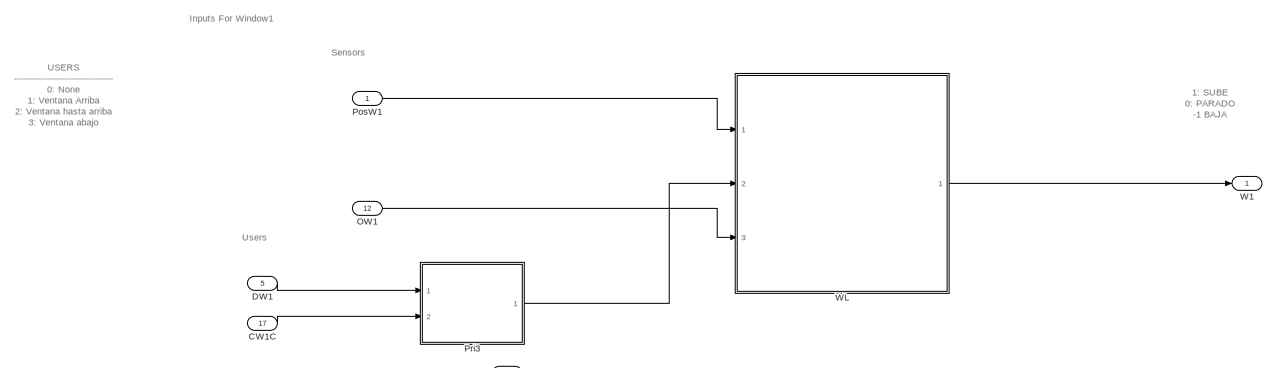
[diagram: M001/Cyber - part 1/3, full width, top band]
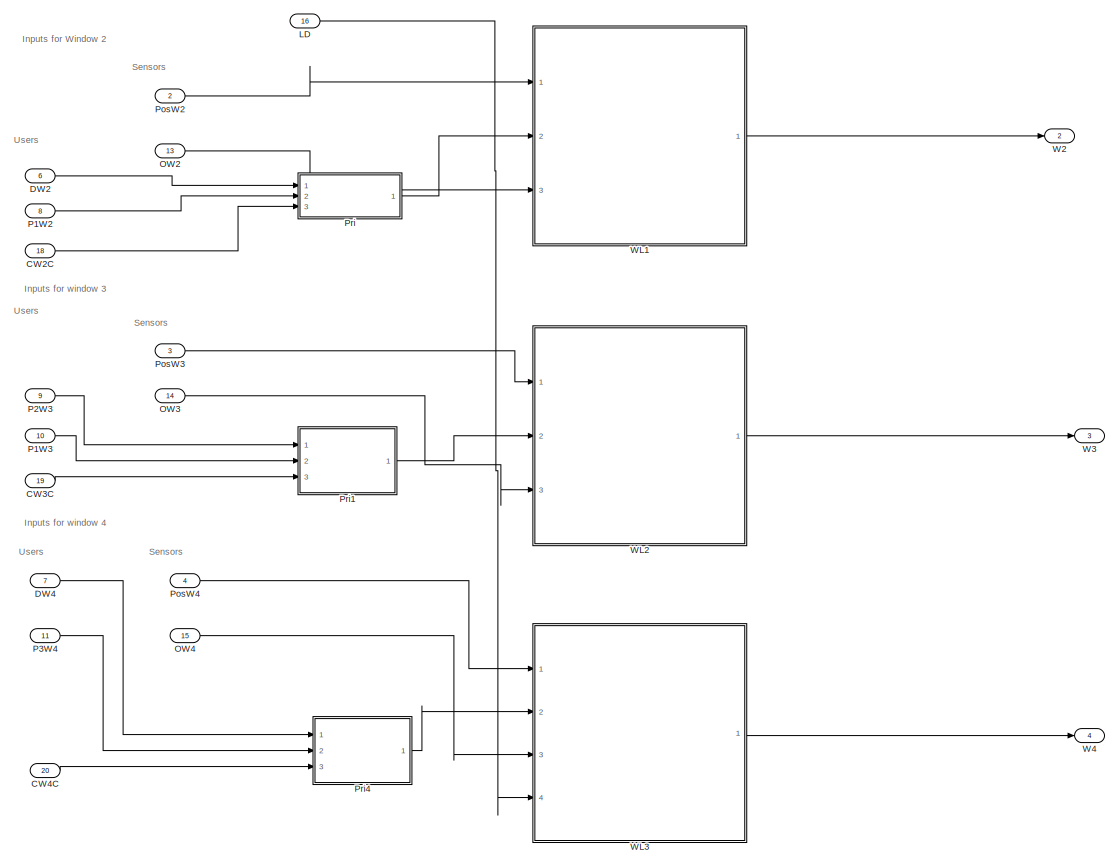
[diagram: M001/Cyber - part 2/3, full width, middle band]
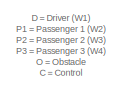
[diagram: M001/Cyber - part 3/3, middle left region]
BLOCK [SubSystem] M001/Cyber
  Ports = [20, 4]
  RequestExecContextInheritance = off
BLOCK [Inport] M001/Cyber/CW1C
  IconDisplay = Port number
  Port = 17
BLOCK [Inport] M001/Cyber/CW2C
  IconDisplay = Port number
  Port = 18
BLOCK [Inport] M001/Cyber/CW3C
  IconDisplay = Port number
  Port = 19
BLOCK [Inport] M001/Cyber/CW4C
  IconDisplay = Port number
  Port = 20
BLOCK [Inport] M001/Cyber/DW1
  IconDisplay = Port number
  Port = 5
BLOCK [Inport] M001/Cyber/DW2
  IconDisplay = Port number
  Port = 6
BLOCK [Inport] M001/Cyber/DW4
  IconDisplay = Port number
  Port = 7
BLOCK [Inport] M001/Cyber/LD
  IconDisplay = Port number
  Port = 16
BLOCK [Inport] M001/Cyber/OW1
  IconDisplay = Port number
  Port = 12
BLOCK [Inport] M001/Cyber/OW2
  IconDisplay = Port number
  Port = 13
BLOCK [Inport] M001/Cyber/OW3
  IconDisplay = Port number
  Port = 14
BLOCK [Inport] M001/Cyber/OW4
  IconDisplay = Port number
  Port = 15
BLOCK [Inport] M001/Cyber/P1W2
  IconDisplay = Port number
  Port = 8
BLOCK [Inport] M001/Cyber/P1W3
  IconDisplay = Port number
  Port = 10
BLOCK [Inport] M001/Cyber/P2W3
  IconDisplay = Port number
  Port = 9
BLOCK [Inport] M001/Cyber/P3W4
  IconDisplay = Port number
  Port = 11
BLOCK [Inport] M001/Cyber/PosW1
  IconDisplay = Port number
BLOCK [Inport] M001/Cyber/PosW2
  IconDisplay = Port number
  Port = 2
BLOCK [Inport] M001/Cyber/PosW3
  IconDisplay = Port number
  Port = 3
BLOCK [Inport] M001/Cyber/PosW4
  IconDisplay = Port number
  Port = 4
BLOCK [SubSystem] M001/Cyber/Pri
  Ports = [3, 1]
  RequestExecContextInheritance = off
BLOCK [Inport] M001/Cyber/Pri/CW2C
  IconDisplay = Port number
  Port = 3
BLOCK [Inport] M001/Cyber/Pri/D
  IconDisplay = Port number
BLOCK [Inport] M001/Cyber/Pri/P
  IconDisplay = Port number
  Port = 2
BLOCK [Switch] M001/Cyber/Pri/Switch
  Criteria = u2 > Threshold
  InputSameDT = off
  SaturateOnIntegerOverflow = off
  Threshold = 4
BLOCK [Switch] M001/Cyber/Pri/Switch1
  Criteria = u2 ~= 0
  InputSameDT = off
  SaturateOnIntegerOverflow = off
BLOCK [Outport] M001/Cyber/Pri/User
  IconDisplay = Port number
BLOCK [SubSystem] M001/Cyber/Pri1
  Ports = [3, 1]
  RequestExecContextInheritance = off
BLOCK [Inport] M001/Cyber/Pri1/CW3C
  IconDisplay = Port number
  Port = 3
BLOCK [Inport] M001/Cyber/Pri1/P
  IconDisplay = Port number
BLOCK [Inport] M001/Cyber/Pri1/P1
  IconDisplay = Port number
  Port = 2
BLOCK [Switch] M001/Cyber/Pri1/Switch1
  Criteria = u2 ~= 0
  InputSameDT = off
  SaturateOnIntegerOverflow = off
BLOCK [Switch] M001/Cyber/Pri1/Switch2
  Criteria = u2 ~= 0
  InputSameDT = off
  SaturateOnIntegerOverflow = off
BLOCK [Outport] M001/Cyber/Pri1/User
  IconDisplay = Port number
BLOCK [SubSystem] M001/Cyber/Pri3
  Ports = [2, 1]
  RequestExecContextInheritance = off
BLOCK [Inport] M001/Cyber/Pri3/CW1C
  IconDisplay = Port number
  Port = 2
BLOCK [Inport] M001/Cyber/Pri3/D
  IconDisplay = Port number
BLOCK [Switch] M001/Cyber/Pri3/Switch
  Criteria = u2 ~= 0
  InputSameDT = off
  SaturateOnIntegerOverflow = off
BLOCK [Outport] M001/Cyber/Pri3/User
  IconDisplay = Port number
BLOCK [SubSystem] M001/Cyber/Pri4
  Ports = [3, 1]
  RequestExecContextInheritance = off
BLOCK [Inport] M001/Cyber/Pri4/CW4C
  IconDisplay = Port number
  Port = 3
BLOCK [Inport] M001/Cyber/Pri4/D
  IconDisplay = Port number
BLOCK [Inport] M001/Cyber/Pri4/P
  IconDisplay = Port number
  Port = 2
BLOCK [Switch] M001/Cyber/Pri4/Switch
  Criteria = u2 ~= 0
  InputSameDT = off
  SaturateOnIntegerOverflow = off
BLOCK [Switch] M001/Cyber/Pri4/Switch1
  Criteria = u2 ~= 0
  InputSameDT = off
  SaturateOnIntegerOverflow = off
BLOCK [Outport] M001/Cyber/Pri4/User
  IconDisplay = Port number
BLOCK [Outport] M001/Cyber/W1
  IconDisplay = Port number
BLOCK [Outport] M001/Cyber/W2
  IconDisplay = Port number
  Port = 2
BLOCK [Outport] M001/Cyber/W3
  IconDisplay = Port number
  Port = 3
BLOCK [Outport] M001/Cyber/W4
  IconDisplay = Port number
  Port = 4
BLOCK [SubSystem] M001/Cyber/WL
  Ports = [3, 1]
  RequestExecContextInheritance = off
BLOCK [SubSystem] M001/Cyber/WL/Chart
  ErrorFcn = Stateflow.Translate.translate
  PermitHierarchicalResolution = ExplicitOnly
  Ports = [2, 1]
  RequestExecContextInheritance = off
  SFBlockType = Chart
  TreatAsAtomicUnit = on
BLOCK [Demux] M001/Cyber/WL/Chart/ Demux 
  Outputs = 1
  Ports = [1, 1]
BLOCK [S-Function] M001/Cyber/WL/Chart/ SFunction 
  EnableBusSupport = off
  FunctionName = sf_sfun
  PortCounts = [2 2]
  Ports = [2, 2]
  SFcnIsStateOwnerBlock = off
  SFunctionDeploymentMode = off
  Tag = Stateflow S-Function c00002M_harness 5
BLOCK [Terminator] M001/Cyber/WL/Chart/ Terminator 
BLOCK [Inport] M001/Cyber/WL/Chart/S
  IconDisplay = Port number
BLOCK [Inport] M001/Cyber/WL/Chart/UI
  IconDisplay = Port number
  Port = 2
BLOCK [Outport] M001/Cyber/WL/Chart/W
  IconDisplay = Port number
BLOCK [Constant] M001/Cyber/WL/Constant
  Value = -1
BLOCK [DataTypeConversion] M001/Cyber/WL/Data Type Conversion
  RndMeth = Floor
  SaturateOnIntegerOverflow = off
BLOCK [Inport] M001/Cyber/WL/OW
  IconDisplay = Port number
  Port = 3
BLOCK [Switch] M001/Cyber/WL/Switch
  Criteria = u2 ~= 0
  InputSameDT = off
  SaturateOnIntegerOverflow = off
  Threshold = 1
  ZeroCross = off
BLOCK [Inport] M001/Cyber/WL/User
  IconDisplay = Port number
  Port = 2
BLOCK [Inport] M001/Cyber/WL/WPos
  IconDisplay = Port number
BLOCK [Outport] M001/Cyber/WL/WindowLogicOutput
  IconDisplay = Port number
BLOCK [SubSystem] M001/Cyber/WL1
  Ports = [3, 1]
  RequestExecContextInheritance = off
BLOCK [SubSystem] M001/Cyber/WL1/Chart1
  ErrorFcn = Stateflow.Translate.translate
  PermitHierarchicalResolution = ExplicitOnly
  Ports = [2, 1]
  RequestExecContextInheritance = off
  SFBlockType = Chart
  TreatAsAtomicUnit = on
BLOCK [Demux] M001/Cyber/WL1/Chart1/ Demux 
  Outputs = 1
  Ports = [1, 1]
BLOCK [S-Function] M001/Cyber/WL1/Chart1/ SFunction 
  EnableBusSupport = off
  FunctionName = sf_sfun
  PortCounts = [2 2]
  Ports = [2, 2]
  SFcnIsStateOwnerBlock = off
  SFunctionDeploymentMode = off
  Tag = Stateflow S-Function c00002M_harness 6
BLOCK [Terminator] M001/Cyber/WL1/Chart1/ Terminator 
BLOCK [Inport] M001/Cyber/WL1/Chart1/S
  IconDisplay = Port number
BLOCK [Inport] M001/Cyber/WL1/Chart1/UI
  IconDisplay = Port number
  Port = 2
BLOCK [Outport] M001/Cyber/WL1/Chart1/W
  IconDisplay = Port number
BLOCK [Constant] M001/Cyber/WL1/Constant
  Value = -1
BLOCK [DataTypeConversion] M001/Cyber/WL1/Data Type Conversion
  RndMeth = Floor
  SaturateOnIntegerOverflow = off
BLOCK [Inport] M001/Cyber/WL1/OW
  IconDisplay = Port number
  Port = 3
BLOCK [Switch] M001/Cyber/WL1/Switch
  Criteria = u2 ~= 0
  InputSameDT = off
  SaturateOnIntegerOverflow = off
  Threshold = 1
  ZeroCross = off
BLOCK [Inport] M001/Cyber/WL1/User
  IconDisplay = Port number
  Port = 2
BLOCK [Inport] M001/Cyber/WL1/WPos
  IconDisplay = Port number
BLOCK [Outport] M001/Cyber/WL1/WindowLogicOutput
  IconDisplay = Port number
BLOCK [SubSystem] M001/Cyber/WL2
  Ports = [3, 1]
  RequestExecContextInheritance = off
BLOCK [SubSystem] M001/Cyber/WL2/Chart1
  ErrorFcn = Stateflow.Translate.translate
  PermitHierarchicalResolution = ExplicitOnly
  Ports = [3, 1]
  RequestExecContextInheritance = off
  SFBlockType = Chart
  TreatAsAtomicUnit = on
BLOCK [Demux] M001/Cyber/WL2/Chart1/ Demux 
  Outputs = 1
  Ports = [1, 1]
BLOCK [S-Function] M001/Cyber/WL2/Chart1/ SFunction 
  EnableBusSupport = off
  FunctionName = sf_sfun
  PortCounts = [3 2]
  Ports = [3, 2]
  SFcnIsStateOwnerBlock = off
  SFunctionDeploymentMode = off
  Tag = Stateflow S-Function c00002M_harness 7
BLOCK [Terminator] M001/Cyber/WL2/Chart1/ Terminator 
BLOCK [Inport] M001/Cyber/WL2/Chart1/PosMinW3
  IconDisplay = Port number
  Port = 3
BLOCK [Inport] M001/Cyber/WL2/Chart1/S
  IconDisplay = Port number
BLOCK [Inport] M001/Cyber/WL2/Chart1/UI
  IconDisplay = Port number
  Port = 2
BLOCK [Outport] M001/Cyber/WL2/Chart1/W
  IconDisplay = Port number
BLOCK [Constant] M001/Cyber/WL2/Constant
  Value = -1
BLOCK [Constant] M001/Cyber/WL2/Constant2
  Value = PosMinimaW3
BLOCK [DataTypeConversion] M001/Cyber/WL2/Data Type Conversion
  RndMeth = Floor
  SaturateOnIntegerOverflow = off
BLOCK [Inport] M001/Cyber/WL2/OW
  IconDisplay = Port number
  Port = 3
BLOCK [Switch] M001/Cyber/WL2/Switch
  Criteria = u2 ~= 0
  InputSameDT = off
  SaturateOnIntegerOverflow = off
  Threshold = 1
  ZeroCross = off
BLOCK [Inport] M001/Cyber/WL2/User
  IconDisplay = Port number
  Port = 2
BLOCK [Inport] M001/Cyber/WL2/WPos
  IconDisplay = Port number
BLOCK [Outport] M001/Cyber/WL2/WindowLogicOutput
  IconDisplay = Port number
BLOCK [SubSystem] M001/Cyber/WL3
  Ports = [4, 1]
  RequestExecContextInheritance = off
BLOCK [SubSystem] M001/Cyber/WL3/Chart2
  ErrorFcn = Stateflow.Translate.translate
  PermitHierarchicalResolution = ExplicitOnly
  Ports = [3, 1]
  RequestExecContextInheritance = off
  SFBlockType = Chart
  TreatAsAtomicUnit = on
BLOCK [Demux] M001/Cyber/WL3/Chart2/ Demux 
  Outputs = 1
  Ports = [1, 1]
BLOCK [S-Function] M001/Cyber/WL3/Chart2/ SFunction 
  EnableBusSupport = off
  FunctionName = sf_sfun
  PortCounts = [3 2]
  Ports = [3, 2]
  SFcnIsStateOwnerBlock = off
  SFunctionDeploymentMode = off
  Tag = Stateflow S-Function c00002M_harness 8
BLOCK [Terminator] M001/Cyber/WL3/Chart2/ Terminator 
BLOCK [Inport] M001/Cyber/WL3/Chart2/PosMinW4
  IconDisplay = Port number
  Port = 3
BLOCK [Inport] M001/Cyber/WL3/Chart2/S
  IconDisplay = Port number
BLOCK [Inport] M001/Cyber/WL3/Chart2/UI
  IconDisplay = Port number
  Port = 2
BLOCK [Outport] M001/Cyber/WL3/Chart2/W
  IconDisplay = Port number
BLOCK [Constant] M001/Cyber/WL3/Constant
  Value = -1
BLOCK [Constant] M001/Cyber/WL3/Constant1
  Value = 0
BLOCK [Constant] M001/Cyber/WL3/Constant2
  Value = PosMinimaW4
BLOCK [DataTypeConversion] M001/Cyber/WL3/Data Type Conversion
  RndMeth = Floor
  SaturateOnIntegerOverflow = off
BLOCK [Inport] M001/Cyber/WL3/L
  IconDisplay = Port number
  Port = 4
BLOCK [Inport] M001/Cyber/WL3/OW
  IconDisplay = Port number
  Port = 3
BLOCK [Switch] M001/Cyber/WL3/Switch
  Criteria = u2 ~= 0
  InputSameDT = off
  SaturateOnIntegerOverflow = off
  Threshold = 1
  ZeroCross = off
BLOCK [Switch] M001/Cyber/WL3/Switch1
  Criteria = u2 ~= 0
  InputSameDT = off
  SaturateOnIntegerOverflow = off
BLOCK [Inport] M001/Cyber/WL3/User
  IconDisplay = Port number
  Port = 2
BLOCK [Inport] M001/Cyber/WL3/WPos
  IconDisplay = Port number
BLOCK [Outport] M001/Cyber/WL3/WindowLogicOutput
  IconDisplay = Port number
BLOCK [Inport] M001/DW1
  IconDisplay = Port number
  OutDataTypeStr = int8
  OutMax = 4
  OutMin = 0
BLOCK [Inport] M001/DW2
  IconDisplay = Port number
  OutDataTypeStr = int8
  OutMax = 4
  OutMin = 0
  Port = 2
BLOCK [Inport] M001/DW4
  IconDisplay = Port number
  OutDataTypeStr = int8
  OutMax = 4
  OutMin = 0
  Port = 3
BLOCK [Inport] M001/LD
  IconDisplay = Port number
  OutDataTypeStr = boolean
  Port = 12
BLOCK [Memory] M001/M
BLOCK [Memory] M001/M1
BLOCK [Memory] M001/M2
BLOCK [Memory] M001/M3
BLOCK [Inport] M001/O1
  IconDisplay = Port number
  OutDataTypeStr = boolean
  Port = 8
BLOCK [Inport] M001/O2
  IconDisplay = Port number
  OutDataTypeStr = boolean
  Port = 9
BLOCK [Inport] M001/O3
  IconDisplay = Port number
  OutDataTypeStr = boolean
  Port = 10
BLOCK [Inport] M001/O4
  IconDisplay = Port number
  OutDataTypeStr = boolean
  Port = 11
BLOCK [Inport] M001/P1W2
  IconDisplay = Port number
  OutDataTypeStr = int8
  OutMax = 4
  OutMin = 0
  Port = 4
BLOCK [Inport] M001/P1W3
  IconDisplay = Port number
  OutDataTypeStr = int8
  OutMax = 4
  OutMin = 0
  Port = 6
BLOCK [Inport] M001/P2W3
  IconDisplay = Port number
  OutDataTypeStr = int8
  OutMax = 4
  OutMin = 0
  Port = 5
BLOCK [Inport] M001/P3W4
  IconDisplay = Port number
  OutDataTypeStr = int8
  OutMax = 4
  OutMin = 0
  Port = 7
BLOCK [SubSystem] M001/Physical
  Ports = [4, 4]
  RequestExecContextInheritance = off
BLOCK [Inport] M001/Physical/InW1
  IconDisplay = Port number
BLOCK [Inport] M001/Physical/InW2
  IconDisplay = Port number
  Port = 2
BLOCK [Inport] M001/Physical/InW3
  IconDisplay = Port number
  Port = 3
BLOCK [Inport] M001/Physical/InW4
  IconDisplay = Port number
  Port = 4
BLOCK [SubSystem] M001/Physical/W
  Ports = [1, 1]
  RequestExecContextInheritance = off
BLOCK [SubSystem] M001/Physical/W/DC_Engine
  Ports = [1, 1]
  RequestExecContextInheritance = off
BLOCK [Gain] M001/Physical/W/DC_Engine/(Inductance)
  Gain = 1/L
  OutDataTypeStr = Inherit: Inherit via internal rule
  ParamDataTypeStr = Inherit: Inherit via internal rule
  SaturateOnIntegerOverflow = off
BLOCK [Gain] M001/Physical/W/DC_Engine/(Inductance)1
  Gain = 1/J
  OutDataTypeStr = Inherit: Inherit via internal rule
  ParamDataTypeStr = Inherit: Inherit via internal rule
  SaturateOnIntegerOverflow = off
BLOCK [Sum] M001/Physical/W/DC_Engine/Add
  InputSameDT = off
  Inputs = -+-
  OutDataTypeStr = Inherit: Inherit via internal rule
  Ports = [3, 1]
  SaturateOnIntegerOverflow = off
BLOCK [Sum] M001/Physical/W/DC_Engine/Add1
  InputSameDT = off
  Inputs = +-
  OutDataTypeStr = Inherit: Inherit via internal rule
  Ports = [2, 1]
  SaturateOnIntegerOverflow = off
BLOCK [Gain] M001/Physical/W/DC_Engine/Damping
  Gain = b
  OutDataTypeStr = Inherit: Inherit via internal rule
  ParamDataTypeStr = Inherit: Inherit via internal rule
  SaturateOnIntegerOverflow = off
BLOCK [DiscreteIntegrator] M001/Physical/W/DC_Engine/Discrete-Time Integrator
  ICPrevOutput = DiscIntNeverNeededParam
  ICPrevScaledInput = DiscIntNeverNeededParam
  Ports = [1, 1]
  SampleTime = -1
BLOCK [DiscreteIntegrator] M001/Physical/W/DC_Engine/Discrete-Time Integrator1
  ICPrevOutput = DiscIntNeverNeededParam
  ICPrevScaledInput = DiscIntNeverNeededParam
  Ports = [1, 1]
  SampleTime = -1
BLOCK [Gain] M001/Physical/W/DC_Engine/Ke
  Gain = K
  OutDataTypeStr = Inherit: Inherit via internal rule
  ParamDataTypeStr = Inherit: Inherit via internal rule
  SaturateOnIntegerOverflow = off
BLOCK [Gain] M001/Physical/W/DC_Engine/Kt
  Gain = K
  OutDataTypeStr = Inherit: Inherit via internal rule
  ParamDataTypeStr = Inherit: Inherit via internal rule
  SaturateOnIntegerOverflow = off
BLOCK [Gain] M001/Physical/W/DC_Engine/Resistance
  Gain = R
  OutDataTypeStr = Inherit: Inherit via internal rule
  ParamDataTypeStr = Inherit: Inherit via internal rule
  SaturateOnIntegerOverflow = off
BLOCK [Outport] M001/Physical/W/DC_Engine/Speed
  IconDisplay = Port number
BLOCK [Gain] M001/Physical/W/DC_Engine/Voltage
  Gain = 10
  OutDataTypeStr = Inherit: Inherit via internal rule
  ParamDataTypeStr = Inherit: Inherit via internal rule
  SaturateOnIntegerOverflow = off
BLOCK [Inport] M001/Physical/W/DC_Engine/input
  IconDisplay = Port number
BLOCK [DiscreteIntegrator] M001/Physical/W/Discrete-Time Integrator
  ICPrevOutput = DiscIntNeverNeededParam
  ICPrevScaledInput = DiscIntNeverNeededParam
  InitialCondition = 5
  LimitOutput = on
  LowerSaturationLimit = 0
  Ports = [1, 1]
  SampleTime = -1
  UpperSaturationLimit = 5
BLOCK [Inport] M001/Physical/W/WIn
  IconDisplay = Port number
BLOCK [Outport] M001/Physical/W/WPos
  IconDisplay = Port number
BLOCK [Outport] M001/Physical/W1
  IconDisplay = Port number
BLOCK [Outport] M001/Physical/W2
  IconDisplay = Port number
  Port = 2
BLOCK [Outport] M001/Physical/W3
  IconDisplay = Port number
  Port = 3
BLOCK [Outport] M001/Physical/W4
  IconDisplay = Port number
  Port = 4
BLOCK [SubSystem] M001/Physical/W5
  Ports = [1, 1]
  RequestExecContextInheritance = off
BLOCK [SubSystem] M001/Physical/W5/DC_Engine
  Ports = [1, 1]
  RequestExecContextInheritance = off
BLOCK [Gain] M001/Physical/W5/DC_Engine/(Inductance)
  Gain = 1/L
  OutDataTypeStr = Inherit: Inherit via internal rule
  ParamDataTypeStr = Inherit: Inherit via internal rule
  SaturateOnIntegerOverflow = off
BLOCK [Gain] M001/Physical/W5/DC_Engine/(Inductance)1
  Gain = 1/J
  OutDataTypeStr = Inherit: Inherit via internal rule
  ParamDataTypeStr = Inherit: Inherit via internal rule
  SaturateOnIntegerOverflow = off
BLOCK [Sum] M001/Physical/W5/DC_Engine/Add
  InputSameDT = off
  Inputs = -+-
  OutDataTypeStr = Inherit: Inherit via internal rule
  Ports = [3, 1]
  SaturateOnIntegerOverflow = off
BLOCK [Sum] M001/Physical/W5/DC_Engine/Add1
  InputSameDT = off
  Inputs = +-
  OutDataTypeStr = Inherit: Inherit via internal rule
  Ports = [2, 1]
  SaturateOnIntegerOverflow = off
BLOCK [Gain] M001/Physical/W5/DC_Engine/Damping
  Gain = b
  OutDataTypeStr = Inherit: Inherit via internal rule
  ParamDataTypeStr = Inherit: Inherit via internal rule
  SaturateOnIntegerOverflow = off
BLOCK [DiscreteIntegrator] M001/Physical/W5/DC_Engine/Discrete-Time Integrator
  ICPrevOutput = DiscIntNeverNeededParam
  ICPrevScaledInput = DiscIntNeverNeededParam
  Ports = [1, 1]
  SampleTime = -1
BLOCK [DiscreteIntegrator] M001/Physical/W5/DC_Engine/Discrete-Time Integrator1
  ICPrevOutput = DiscIntNeverNeededParam
  ICPrevScaledInput = DiscIntNeverNeededParam
  Ports = [1, 1]
  SampleTime = -1
BLOCK [Gain] M001/Physical/W5/DC_Engine/Ke
  Gain = K
  OutDataTypeStr = Inherit: Inherit via internal rule
  ParamDataTypeStr = Inherit: Inherit via internal rule
  SaturateOnIntegerOverflow = off
BLOCK [Gain] M001/Physical/W5/DC_Engine/Kt
  Gain = K
  OutDataTypeStr = Inherit: Inherit via internal rule
  ParamDataTypeStr = Inherit: Inherit via internal rule
  SaturateOnIntegerOverflow = off
BLOCK [Gain] M001/Physical/W5/DC_Engine/Resistance
  Gain = R
  OutDataTypeStr = Inherit: Inherit via internal rule
  ParamDataTypeStr = Inherit: Inherit via internal rule
  SaturateOnIntegerOverflow = off
BLOCK [Outport] M001/Physical/W5/DC_Engine/Speed
  IconDisplay = Port number
BLOCK [Gain] M001/Physical/W5/DC_Engine/Voltage
  Gain = 10
  OutDataTypeStr = Inherit: Inherit via internal rule
  ParamDataTypeStr = Inherit: Inherit via internal rule
  SaturateOnIntegerOverflow = off
BLOCK [Inport] M001/Physical/W5/DC_Engine/input
  IconDisplay = Port number
BLOCK [DiscreteIntegrator] M001/Physical/W5/Discrete-Time Integrator
  ICPrevOutput = DiscIntNeverNeededParam
  ICPrevScaledInput = DiscIntNeverNeededParam
  InitialCondition = 5
  LimitOutput = on
  LowerSaturationLimit = 0
  Ports = [1, 1]
  SampleTime = -1
  UpperSaturationLimit = 5
BLOCK [Inport] M001/Physical/W5/WIn
  IconDisplay = Port number
BLOCK [Outport] M001/Physical/W5/WPos
  IconDisplay = Port number
BLOCK [SubSystem] M001/Physical/W6
  Ports = [1, 1]
  RequestExecContextInheritance = off
BLOCK [SubSystem] M001/Physical/W6/DC_Engine
  Ports = [1, 1]
  RequestExecContextInheritance = off
BLOCK [Gain] M001/Physical/W6/DC_Engine/(Inductance)
  Gain = 1/L
  OutDataTypeStr = Inherit: Inherit via internal rule
  ParamDataTypeStr = Inherit: Inherit via internal rule
  SaturateOnIntegerOverflow = off
BLOCK [Gain] M001/Physical/W6/DC_Engine/(Inductance)1
  Gain = 1/J
  OutDataTypeStr = Inherit: Inherit via internal rule
  ParamDataTypeStr = Inherit: Inherit via internal rule
  SaturateOnIntegerOverflow = off
BLOCK [Sum] M001/Physical/W6/DC_Engine/Add
  InputSameDT = off
  Inputs = -+-
  OutDataTypeStr = Inherit: Inherit via internal rule
  Ports = [3, 1]
  SaturateOnIntegerOverflow = off
BLOCK [Sum] M001/Physical/W6/DC_Engine/Add1
  InputSameDT = off
  Inputs = +-
  OutDataTypeStr = Inherit: Inherit via internal rule
  Ports = [2, 1]
  SaturateOnIntegerOverflow = off
BLOCK [Gain] M001/Physical/W6/DC_Engine/Damping
  Gain = b
  OutDataTypeStr = Inherit: Inherit via internal rule
  ParamDataTypeStr = Inherit: Inherit via internal rule
  SaturateOnIntegerOverflow = off
BLOCK [DiscreteIntegrator] M001/Physical/W6/DC_Engine/Discrete-Time Integrator
  ICPrevOutput = DiscIntNeverNeededParam
  ICPrevScaledInput = DiscIntNeverNeededParam
  Ports = [1, 1]
  SampleTime = -1
BLOCK [DiscreteIntegrator] M001/Physical/W6/DC_Engine/Discrete-Time Integrator1
  ICPrevOutput = DiscIntNeverNeededParam
  ICPrevScaledInput = DiscIntNeverNeededParam
  Ports = [1, 1]
  SampleTime = -1
BLOCK [Gain] M001/Physical/W6/DC_Engine/Ke
  Gain = K
  OutDataTypeStr = Inherit: Inherit via internal rule
  ParamDataTypeStr = Inherit: Inherit via internal rule
  SaturateOnIntegerOverflow = off
BLOCK [Gain] M001/Physical/W6/DC_Engine/Kt
  Gain = K
  OutDataTypeStr = Inherit: Inherit via internal rule
  ParamDataTypeStr = Inherit: Inherit via internal rule
  SaturateOnIntegerOverflow = off
BLOCK [Gain] M001/Physical/W6/DC_Engine/Resistance
  Gain = R
  OutDataTypeStr = Inherit: Inherit via internal rule
  ParamDataTypeStr = Inherit: Inherit via internal rule
  SaturateOnIntegerOverflow = off
BLOCK [Outport] M001/Physical/W6/DC_Engine/Speed
  IconDisplay = Port number
BLOCK [Gain] M001/Physical/W6/DC_Engine/Voltage
  Gain = 10
  OutDataTypeStr = Inherit: Inherit via internal rule
  ParamDataTypeStr = Inherit: Inherit via internal rule
  SaturateOnIntegerOverflow = off
BLOCK [Inport] M001/Physical/W6/DC_Engine/input
  IconDisplay = Port number
BLOCK [DiscreteIntegrator] M001/Physical/W6/Discrete-Time Integrator
  ICPrevOutput = DiscIntNeverNeededParam
  ICPrevScaledInput = DiscIntNeverNeededParam
  InitialCondition = 5
  LimitOutput = on
  LowerSaturationLimit = PosMinimaW3
  Ports = [1, 1]
  SampleTime = -1
  UpperSaturationLimit = 5
BLOCK [Inport] M001/Physical/W6/WIn
  IconDisplay = Port number
BLOCK [Outport] M001/Physical/W6/WPos
  IconDisplay = Port number
BLOCK [SubSystem] M001/Physical/W7
  Ports = [1, 1]
  RequestExecContextInheritance = off
BLOCK [SubSystem] M001/Physical/W7/DC_Engine
  Ports = [1, 1]
  RequestExecContextInheritance = off
BLOCK [Gain] M001/Physical/W7/DC_Engine/(Inductance)
  Gain = 1/L
  OutDataTypeStr = Inherit: Inherit via internal rule
  ParamDataTypeStr = Inherit: Inherit via internal rule
  SaturateOnIntegerOverflow = off
BLOCK [Gain] M001/Physical/W7/DC_Engine/(Inductance)1
  Gain = 1/J
  OutDataTypeStr = Inherit: Inherit via internal rule
  ParamDataTypeStr = Inherit: Inherit via internal rule
  SaturateOnIntegerOverflow = off
BLOCK [Sum] M001/Physical/W7/DC_Engine/Add
  InputSameDT = off
  Inputs = -+-
  OutDataTypeStr = Inherit: Inherit via internal rule
  Ports = [3, 1]
  SaturateOnIntegerOverflow = off
BLOCK [Sum] M001/Physical/W7/DC_Engine/Add1
  InputSameDT = off
  Inputs = +-
  OutDataTypeStr = Inherit: Inherit via internal rule
  Ports = [2, 1]
  SaturateOnIntegerOverflow = off
BLOCK [Gain] M001/Physical/W7/DC_Engine/Damping
  Gain = b
  OutDataTypeStr = Inherit: Inherit via internal rule
  ParamDataTypeStr = Inherit: Inherit via internal rule
  SaturateOnIntegerOverflow = off
BLOCK [DiscreteIntegrator] M001/Physical/W7/DC_Engine/Discrete-Time Integrator
  ICPrevOutput = DiscIntNeverNeededParam
  ICPrevScaledInput = DiscIntNeverNeededParam
  Ports = [1, 1]
  SampleTime = -1
BLOCK [DiscreteIntegrator] M001/Physical/W7/DC_Engine/Discrete-Time Integrator1
  ICPrevOutput = DiscIntNeverNeededParam
  ICPrevScaledInput = DiscIntNeverNeededParam
  Ports = [1, 1]
  SampleTime = -1
BLOCK [Gain] M001/Physical/W7/DC_Engine/Ke
  Gain = K
  OutDataTypeStr = Inherit: Inherit via internal rule
  ParamDataTypeStr = Inherit: Inherit via internal rule
  SaturateOnIntegerOverflow = off
BLOCK [Gain] M001/Physical/W7/DC_Engine/Kt
  Gain = K
  OutDataTypeStr = Inherit: Inherit via internal rule
  ParamDataTypeStr = Inherit: Inherit via internal rule
  SaturateOnIntegerOverflow = off
BLOCK [Gain] M001/Physical/W7/DC_Engine/Resistance
  Gain = R
  OutDataTypeStr = Inherit: Inherit via internal rule
  ParamDataTypeStr = Inherit: Inherit via internal rule
  SaturateOnIntegerOverflow = off
BLOCK [Outport] M001/Physical/W7/DC_Engine/Speed
  IconDisplay = Port number
BLOCK [Gain] M001/Physical/W7/DC_Engine/Voltage
  Gain = 10
  OutDataTypeStr = Inherit: Inherit via internal rule
  ParamDataTypeStr = Inherit: Inherit via internal rule
  SaturateOnIntegerOverflow = off
BLOCK [Inport] M001/Physical/W7/DC_Engine/input
  IconDisplay = Port number
BLOCK [DiscreteIntegrator] M001/Physical/W7/Discrete-Time Integrator
  ICPrevOutput = DiscIntNeverNeededParam
  ICPrevScaledInput = DiscIntNeverNeededParam
  InitialCondition = 5
  LimitOutput = on
  LowerSaturationLimit = PosMinimaW4
  Ports = [1, 1]
  SampleTime = -1
  UpperSaturationLimit = 5
BLOCK [Inport] M001/Physical/W7/WIn
  IconDisplay = Port number
BLOCK [Outport] M001/Physical/W7/WPos
  IconDisplay = Port number
BLOCK [SubSystem] M001/S1
  Ports = [1, 1]
  RequestExecContextInheritance = off
BLOCK [Inport] M001/S1/PhyMeasure
  IconDisplay = Port number
BLOCK [Outport] M001/S1/SensorOut
  IconDisplay = Port number
BLOCK [SubSystem] M001/S2
  Ports = [1, 1]
  RequestExecContextInheritance = off
BLOCK [Inport] M001/S2/PhyMeasure
  IconDisplay = Port number
BLOCK [Outport] M001/S2/SensorOut
  IconDisplay = Port number
BLOCK [SubSystem] M001/S3
  Ports = [1, 1]
  RequestExecContextInheritance = off
BLOCK [Inport] M001/S3/PhyMeasure
  IconDisplay = Port number
BLOCK [Outport] M001/S3/SensorOut
  IconDisplay = Port number
BLOCK [SubSystem] M001/S4
  Ports = [1, 1]
  RequestExecContextInheritance = off
BLOCK [Inport] M001/S4/PhyMeasure
  IconDisplay = Port number
BLOCK [Outport] M001/S4/SensorOut
  IconDisplay = Port number
BLOCK [Outport] M001/W1Pos
  IconDisplay = Port number
BLOCK [Outport] M001/W2Pos
  IconDisplay = Port number
  Port = 2
BLOCK [Outport] M001/W3Pos
  IconDisplay = Port number
  Port = 3
BLOCK [Outport] M001/W4Pos
  IconDisplay = Port number
  Port = 4
BLOCK [SubSystem] M003
  Ports = [16, 4]
  RequestExecContextInheritance = off
BLOCK [Inport] M003/CW1C
  IconDisplay = Port number
  OutDataTypeStr = int8
  OutMax = 4
  OutMin = 0
  Port = 13
BLOCK [Inport] M003/CW2C
  IconDisplay = Port number
  OutDataTypeStr = int8
  OutMax = 4
  OutMin = 0
  Port = 14
BLOCK [Inport] M003/CW3C
  IconDisplay = Port number
  OutDataTypeStr = int8
  OutMax = 4
  OutMin = 0
  Port = 15
BLOCK [Inport] M003/CW4C
  IconDisplay = Port number
  OutDataTypeStr = int8
  OutMax = 4
  OutMin = 0
  Port = 16
BLOCK [SubSystem] M003/Cyber
  Ports = [20, 4]
  RequestExecContextInheritance = off
BLOCK [Inport] M003/Cyber/CW1C
  IconDisplay = Port number
  Port = 17
BLOCK [Inport] M003/Cyber/CW2C
  IconDisplay = Port number
  Port = 18
BLOCK [Inport] M003/Cyber/CW3C
  IconDisplay = Port number
  Port = 19
BLOCK [Inport] M003/Cyber/CW4C
  IconDisplay = Port number
  Port = 20
BLOCK [Inport] M003/Cyber/DW1
  IconDisplay = Port number
  Port = 5
BLOCK [Inport] M003/Cyber/DW2
  IconDisplay = Port number
  Port = 6
BLOCK [Inport] M003/Cyber/DW4
  IconDisplay = Port number
  Port = 7
BLOCK [Inport] M003/Cyber/LD
  IconDisplay = Port number
  Port = 16
BLOCK [Inport] M003/Cyber/OW1
  IconDisplay = Port number
  Port = 12
BLOCK [Inport] M003/Cyber/OW2
  IconDisplay = Port number
  Port = 13
BLOCK [Inport] M003/Cyber/OW3
  IconDisplay = Port number
  Port = 14
BLOCK [Inport] M003/Cyber/OW4
  IconDisplay = Port number
  Port = 15
BLOCK [Inport] M003/Cyber/P1W2
  IconDisplay = Port number
  Port = 8
BLOCK [Inport] M003/Cyber/P1W3
  IconDisplay = Port number
  Port = 10
BLOCK [Inport] M003/Cyber/P2W3
  IconDisplay = Port number
  Port = 9
BLOCK [Inport] M003/Cyber/P3W4
  IconDisplay = Port number
  Port = 11
BLOCK [Inport] M003/Cyber/PosW1
  IconDisplay = Port number
BLOCK [Inport] M003/Cyber/PosW2
  IconDisplay = Port number
  Port = 2
BLOCK [Inport] M003/Cyber/PosW3
  IconDisplay = Port number
  Port = 3
BLOCK [Inport] M003/Cyber/PosW4
  IconDisplay = Port number
  Port = 4
BLOCK [SubSystem] M003/Cyber/Pri
  Ports = [3, 1]
  RequestExecContextInheritance = off
BLOCK [Inport] M003/Cyber/Pri/CW2C
  IconDisplay = Port number
  Port = 3
BLOCK [Inport] M003/Cyber/Pri/D
  IconDisplay = Port number
BLOCK [Inport] M003/Cyber/Pri/P
  IconDisplay = Port number
  Port = 2
BLOCK [Switch] M003/Cyber/Pri/Switch
  Criteria = u2 > Threshold
  InputSameDT = off
  SaturateOnIntegerOverflow = off
  Threshold = 4
BLOCK [Switch] M003/Cyber/Pri/Switch1
  Criteria = u2 ~= 0
  InputSameDT = off
  SaturateOnIntegerOverflow = off
BLOCK [Outport] M003/Cyber/Pri/User
  IconDisplay = Port number
BLOCK [SubSystem] M003/Cyber/Pri1
  Ports = [3, 1]
  RequestExecContextInheritance = off
BLOCK [Inport] M003/Cyber/Pri1/CW3C
  IconDisplay = Port number
  Port = 3
BLOCK [Inport] M003/Cyber/Pri1/P
  IconDisplay = Port number
BLOCK [Inport] M003/Cyber/Pri1/P1
  IconDisplay = Port number
  Port = 2
BLOCK [Switch] M003/Cyber/Pri1/Switch1
  Criteria = u2 ~= 0
  InputSameDT = off
  SaturateOnIntegerOverflow = off
BLOCK [Switch] M003/Cyber/Pri1/Switch2
  Criteria = u2 ~= 0
  InputSameDT = off
  SaturateOnIntegerOverflow = off
BLOCK [Outport] M003/Cyber/Pri1/User
  IconDisplay = Port number
BLOCK [SubSystem] M003/Cyber/Pri3
  Ports = [2, 1]
  RequestExecContextInheritance = off
BLOCK [Inport] M003/Cyber/Pri3/CW1C
  IconDisplay = Port number
  Port = 2
BLOCK [Inport] M003/Cyber/Pri3/D
  IconDisplay = Port number
BLOCK [Switch] M003/Cyber/Pri3/Switch
  Criteria = u2 ~= 0
  InputSameDT = off
  SaturateOnIntegerOverflow = off
BLOCK [Outport] M003/Cyber/Pri3/User
  IconDisplay = Port number
BLOCK [SubSystem] M003/Cyber/Pri4
  Ports = [3, 1]
  RequestExecContextInheritance = off
BLOCK [Inport] M003/Cyber/Pri4/CW4C
  IconDisplay = Port number
  Port = 3
BLOCK [Inport] M003/Cyber/Pri4/D
  IconDisplay = Port number
BLOCK [Inport] M003/Cyber/Pri4/P
  IconDisplay = Port number
  Port = 2
BLOCK [Switch] M003/Cyber/Pri4/Switch
  Criteria = u2 ~= 0
  InputSameDT = off
  SaturateOnIntegerOverflow = off
BLOCK [Switch] M003/Cyber/Pri4/Switch1
  Criteria = u2 ~= 0
  InputSameDT = off
  SaturateOnIntegerOverflow = off
BLOCK [Outport] M003/Cyber/Pri4/User
  IconDisplay = Port number
BLOCK [Outport] M003/Cyber/W1
  IconDisplay = Port number
BLOCK [Outport] M003/Cyber/W2
  IconDisplay = Port number
  Port = 2
BLOCK [Outport] M003/Cyber/W3
  IconDisplay = Port number
  Port = 3
BLOCK [Outport] M003/Cyber/W4
  IconDisplay = Port number
  Port = 4
BLOCK [SubSystem] M003/Cyber/WL
  Ports = [3, 1]
  RequestExecContextInheritance = off
BLOCK [SubSystem] M003/Cyber/WL/Chart
  ErrorFcn = Stateflow.Translate.translate
  PermitHierarchicalResolution = ExplicitOnly
  Ports = [2, 1]
  RequestExecContextInheritance = off
  SFBlockType = Chart
  TreatAsAtomicUnit = on
BLOCK [Demux] M003/Cyber/WL/Chart/ Demux 
  Outputs = 1
  Ports = [1, 1]
BLOCK [S-Function] M003/Cyber/WL/Chart/ SFunction 
  EnableBusSupport = off
  FunctionName = sf_sfun
  PortCounts = [2 2]
  Ports = [2, 2]
  SFcnIsStateOwnerBlock = off
  SFunctionDeploymentMode = off
  Tag = Stateflow S-Function c00002M_harness 13
BLOCK [Terminator] M003/Cyber/WL/Chart/ Terminator 
BLOCK [Inport] M003/Cyber/WL/Chart/S
  IconDisplay = Port number
BLOCK [Inport] M003/Cyber/WL/Chart/UI
  IconDisplay = Port number
  Port = 2
BLOCK [Outport] M003/Cyber/WL/Chart/W
  IconDisplay = Port number
BLOCK [Constant] M003/Cyber/WL/Constant
  Value = -1
BLOCK [DataTypeConversion] M003/Cyber/WL/Data Type Conversion
  RndMeth = Floor
  SaturateOnIntegerOverflow = off
BLOCK [Inport] M003/Cyber/WL/OW
  IconDisplay = Port number
  Port = 3
BLOCK [Switch] M003/Cyber/WL/Switch
  Criteria = u2 ~= 0
  InputSameDT = off
  SaturateOnIntegerOverflow = off
  Threshold = 1
  ZeroCross = off
BLOCK [Inport] M003/Cyber/WL/User
  IconDisplay = Port number
  Port = 2
BLOCK [Inport] M003/Cyber/WL/WPos
  IconDisplay = Port number
BLOCK [Outport] M003/Cyber/WL/WindowLogicOutput
  IconDisplay = Port number
BLOCK [SubSystem] M003/Cyber/WL1
  Ports = [3, 1]
  RequestExecContextInheritance = off
BLOCK [SubSystem] M003/Cyber/WL1/Chart1
  ErrorFcn = Stateflow.Translate.translate
  PermitHierarchicalResolution = ExplicitOnly
  Ports = [2, 1]
  RequestExecContextInheritance = off
  SFBlockType = Chart
  TreatAsAtomicUnit = on
BLOCK [Demux] M003/Cyber/WL1/Chart1/ Demux 
  Outputs = 1
  Ports = [1, 1]
BLOCK [S-Function] M003/Cyber/WL1/Chart1/ SFunction 
  EnableBusSupport = off
  FunctionName = sf_sfun
  PortCounts = [2 2]
  Ports = [2, 2]
  SFcnIsStateOwnerBlock = off
  SFunctionDeploymentMode = off
  Tag = Stateflow S-Function c00002M_harness 14
BLOCK [Terminator] M003/Cyber/WL1/Chart1/ Terminator 
BLOCK [Inport] M003/Cyber/WL1/Chart1/S
  IconDisplay = Port number
BLOCK [Inport] M003/Cyber/WL1/Chart1/UI
  IconDisplay = Port number
  Port = 2
BLOCK [Outport] M003/Cyber/WL1/Chart1/W
  IconDisplay = Port number
BLOCK [Constant] M003/Cyber/WL1/Constant
  Value = -1
BLOCK [DataTypeConversion] M003/Cyber/WL1/Data Type Conversion
  RndMeth = Floor
  SaturateOnIntegerOverflow = off
BLOCK [Inport] M003/Cyber/WL1/OW
  IconDisplay = Port number
  Port = 3
BLOCK [Switch] M003/Cyber/WL1/Switch
  Criteria = u2 ~= 0
  InputSameDT = off
  SaturateOnIntegerOverflow = off
  Threshold = 1
  ZeroCross = off
BLOCK [Inport] M003/Cyber/WL1/User
  IconDisplay = Port number
  Port = 2
BLOCK [Inport] M003/Cyber/WL1/WPos
  IconDisplay = Port number
BLOCK [Outport] M003/Cyber/WL1/WindowLogicOutput
  IconDisplay = Port number
BLOCK [SubSystem] M003/Cyber/WL2
  Ports = [3, 1]
  RequestExecContextInheritance = off
BLOCK [SubSystem] M003/Cyber/WL2/Chart1
  ErrorFcn = Stateflow.Translate.translate
  PermitHierarchicalResolution = ExplicitOnly
  Ports = [3, 1]
  RequestExecContextInheritance = off
  SFBlockType = Chart
  TreatAsAtomicUnit = on
BLOCK [Demux] M003/Cyber/WL2/Chart1/ Demux 
  Outputs = 1
  Ports = [1, 1]
BLOCK [S-Function] M003/Cyber/WL2/Chart1/ SFunction 
  EnableBusSupport = off
  FunctionName = sf_sfun
  PortCounts = [3 2]
  Ports = [3, 2]
  SFcnIsStateOwnerBlock = off
  SFunctionDeploymentMode = off
  Tag = Stateflow S-Function c00002M_harness 15
BLOCK [Terminator] M003/Cyber/WL2/Chart1/ Terminator 
BLOCK [Inport] M003/Cyber/WL2/Chart1/PosMinW3
  IconDisplay = Port number
  Port = 3
BLOCK [Inport] M003/Cyber/WL2/Chart1/S
  IconDisplay = Port number
BLOCK [Inport] M003/Cyber/WL2/Chart1/UI
  IconDisplay = Port number
  Port = 2
BLOCK [Outport] M003/Cyber/WL2/Chart1/W
  IconDisplay = Port number
BLOCK [Constant] M003/Cyber/WL2/Constant
  Value = -1
BLOCK [Constant] M003/Cyber/WL2/Constant2
  Value = PosMinimaW3
BLOCK [DataTypeConversion] M003/Cyber/WL2/Data Type Conversion
  RndMeth = Floor
  SaturateOnIntegerOverflow = off
BLOCK [Inport] M003/Cyber/WL2/OW
  IconDisplay = Port number
  Port = 3
BLOCK [Switch] M003/Cyber/WL2/Switch
  Criteria = u2 ~= 0
  InputSameDT = off
  SaturateOnIntegerOverflow = off
  Threshold = 1
  ZeroCross = off
BLOCK [Inport] M003/Cyber/WL2/User
  IconDisplay = Port number
  Port = 2
BLOCK [Inport] M003/Cyber/WL2/WPos
  IconDisplay = Port number
BLOCK [Outport] M003/Cyber/WL2/WindowLogicOutput
  IconDisplay = Port number
BLOCK [SubSystem] M003/Cyber/WL3
  Ports = [4, 1]
  RequestExecContextInheritance = off
BLOCK [SubSystem] M003/Cyber/WL3/Chart2
  ErrorFcn = Stateflow.Translate.translate
  PermitHierarchicalResolution = ExplicitOnly
  Ports = [3, 1]
  RequestExecContextInheritance = off
  SFBlockType = Chart
  TreatAsAtomicUnit = on
BLOCK [Demux] M003/Cyber/WL3/Chart2/ Demux 
  Outputs = 1
  Ports = [1, 1]
BLOCK [S-Function] M003/Cyber/WL3/Chart2/ SFunction 
  EnableBusSupport = off
  FunctionName = sf_sfun
  PortCounts = [3 2]
  Ports = [3, 2]
  SFcnIsStateOwnerBlock = off
  SFunctionDeploymentMode = off
  Tag = Stateflow S-Function c00002M_harness 16
BLOCK [Terminator] M003/Cyber/WL3/Chart2/ Terminator 
BLOCK [Inport] M003/Cyber/WL3/Chart2/PosMinW4
  IconDisplay = Port number
  Port = 3
BLOCK [Inport] M003/Cyber/WL3/Chart2/S
  IconDisplay = Port number
BLOCK [Inport] M003/Cyber/WL3/Chart2/UI
  IconDisplay = Port number
  Port = 2
BLOCK [Outport] M003/Cyber/WL3/Chart2/W
  IconDisplay = Port number
BLOCK [Constant] M003/Cyber/WL3/Constant
  Value = -1
BLOCK [Constant] M003/Cyber/WL3/Constant1
  Value = 0
BLOCK [Constant] M003/Cyber/WL3/Constant2
  Value = PosMinimaW4
BLOCK [DataTypeConversion] M003/Cyber/WL3/Data Type Conversion
  RndMeth = Floor
  SaturateOnIntegerOverflow = off
BLOCK [Inport] M003/Cyber/WL3/L
  IconDisplay = Port number
  Port = 4
BLOCK [Inport] M003/Cyber/WL3/OW
  IconDisplay = Port number
  Port = 3
BLOCK [Switch] M003/Cyber/WL3/Switch
  Criteria = u2 ~= 0
  InputSameDT = off
  SaturateOnIntegerOverflow = off
  Threshold = 1
  ZeroCross = off
BLOCK [Switch] M003/Cyber/WL3/Switch1
  Criteria = u2 ~= 0
  InputSameDT = off
  SaturateOnIntegerOverflow = off
BLOCK [Inport] M003/Cyber/WL3/User
  IconDisplay = Port number
  Port = 2
BLOCK [Inport] M003/Cyber/WL3/WPos
  IconDisplay = Port number
BLOCK [Outport] M003/Cyber/WL3/WindowLogicOutput
  IconDisplay = Port number
BLOCK [Inport] M003/DW1
  IconDisplay = Port number
  OutDataTypeStr = int8
  OutMax = 4
  OutMin = 0
BLOCK [Inport] M003/DW2
  IconDisplay = Port number
  OutDataTypeStr = int8
  OutMax = 4
  OutMin = 0
  Port = 2
BLOCK [Inport] M003/DW4
  IconDisplay = Port number
  OutDataTypeStr = int8
  OutMax = 4
  OutMin = 0
  Port = 3
BLOCK [Inport] M003/LD
  IconDisplay = Port number
  OutDataTypeStr = boolean
  Port = 12
BLOCK [Memory] M003/M
BLOCK [Memory] M003/M1
BLOCK [Memory] M003/M2
BLOCK [Memory] M003/M3
BLOCK [Inport] M003/O1
  IconDisplay = Port number
  OutDataTypeStr = boolean
  Port = 8
BLOCK [Inport] M003/O2
  IconDisplay = Port number
  OutDataTypeStr = boolean
  Port = 9
BLOCK [Inport] M003/O3
  IconDisplay = Port number
  OutDataTypeStr = boolean
  Port = 10
BLOCK [Inport] M003/O4
  IconDisplay = Port number
  OutDataTypeStr = boolean
  Port = 11
BLOCK [Inport] M003/P1W2
  IconDisplay = Port number
  OutDataTypeStr = int8
  OutMax = 4
  OutMin = 0
  Port = 4
BLOCK [Inport] M003/P1W3
  IconDisplay = Port number
  OutDataTypeStr = int8
  OutMax = 4
  OutMin = 0
  Port = 6
BLOCK [Inport] M003/P2W3
  IconDisplay = Port number
  OutDataTypeStr = int8
  OutMax = 4
  OutMin = 0
  Port = 5
BLOCK [Inport] M003/P3W4
  IconDisplay = Port number
  OutDataTypeStr = int8
  OutMax = 4
  OutMin = 0
  Port = 7
BLOCK [SubSystem] M003/Physical
  Ports = [4, 4]
  RequestExecContextInheritance = off
BLOCK [Inport] M003/Physical/InW1
  IconDisplay = Port number
BLOCK [Inport] M003/Physical/InW2
  IconDisplay = Port number
  Port = 2
BLOCK [Inport] M003/Physical/InW3
  IconDisplay = Port number
  Port = 3
BLOCK [Inport] M003/Physical/InW4
  IconDisplay = Port number
  Port = 4
BLOCK [SubSystem] M003/Physical/W
  Ports = [1, 1]
  RequestExecContextInheritance = off
BLOCK [SubSystem] M003/Physical/W/DC_Engine
  Ports = [1, 1]
  RequestExecContextInheritance = off
BLOCK [Gain] M003/Physical/W/DC_Engine/(Inductance)
  Gain = 1/L
  OutDataTypeStr = Inherit: Inherit via internal rule
  ParamDataTypeStr = Inherit: Inherit via internal rule
  SaturateOnIntegerOverflow = off
BLOCK [Gain] M003/Physical/W/DC_Engine/(Inductance)1
  Gain = 1/J
  OutDataTypeStr = Inherit: Inherit via internal rule
  ParamDataTypeStr = Inherit: Inherit via internal rule
  SaturateOnIntegerOverflow = off
BLOCK [Sum] M003/Physical/W/DC_Engine/Add
  InputSameDT = off
  Inputs = -+-
  OutDataTypeStr = Inherit: Inherit via internal rule
  Ports = [3, 1]
  SaturateOnIntegerOverflow = off
BLOCK [Sum] M003/Physical/W/DC_Engine/Add1
  InputSameDT = off
  Inputs = +-
  OutDataTypeStr = Inherit: Inherit via internal rule
  Ports = [2, 1]
  SaturateOnIntegerOverflow = off
BLOCK [Gain] M003/Physical/W/DC_Engine/Damping
  Gain = b
  OutDataTypeStr = Inherit: Inherit via internal rule
  ParamDataTypeStr = Inherit: Inherit via internal rule
  SaturateOnIntegerOverflow = off
BLOCK [DiscreteIntegrator] M003/Physical/W/DC_Engine/Discrete-Time Integrator
  ICPrevOutput = DiscIntNeverNeededParam
  ICPrevScaledInput = DiscIntNeverNeededParam
  Ports = [1, 1]
  SampleTime = -1
BLOCK [DiscreteIntegrator] M003/Physical/W/DC_Engine/Discrete-Time Integrator1
  ICPrevOutput = DiscIntNeverNeededParam
  ICPrevScaledInput = DiscIntNeverNeededParam
  Ports = [1, 1]
  SampleTime = -1
BLOCK [Gain] M003/Physical/W/DC_Engine/Ke
  Gain = K
  OutDataTypeStr = Inherit: Inherit via internal rule
  ParamDataTypeStr = Inherit: Inherit via internal rule
  SaturateOnIntegerOverflow = off
BLOCK [Gain] M003/Physical/W/DC_Engine/Kt
  Gain = K
  OutDataTypeStr = Inherit: Inherit via internal rule
  ParamDataTypeStr = Inherit: Inherit via internal rule
  SaturateOnIntegerOverflow = off
BLOCK [Gain] M003/Physical/W/DC_Engine/Resistance
  Gain = R
  OutDataTypeStr = Inherit: Inherit via internal rule
  ParamDataTypeStr = Inherit: Inherit via internal rule
  SaturateOnIntegerOverflow = off
BLOCK [Outport] M003/Physical/W/DC_Engine/Speed
  IconDisplay = Port number
BLOCK [Gain] M003/Physical/W/DC_Engine/Voltage
  Gain = 10
  OutDataTypeStr = Inherit: Inherit via internal rule
  ParamDataTypeStr = Inherit: Inherit via internal rule
  SaturateOnIntegerOverflow = off
BLOCK [Inport] M003/Physical/W/DC_Engine/input
  IconDisplay = Port number
BLOCK [DiscreteIntegrator] M003/Physical/W/Discrete-Time Integrator
  ICPrevOutput = DiscIntNeverNeededParam
  ICPrevScaledInput = DiscIntNeverNeededParam
  InitialCondition = 5
  LimitOutput = on
  LowerSaturationLimit = 0
  Ports = [1, 1]
  SampleTime = -1
  UpperSaturationLimit = 5
BLOCK [Inport] M003/Physical/W/WIn
  IconDisplay = Port number
BLOCK [Outport] M003/Physical/W/WPos
  IconDisplay = Port number
BLOCK [Outport] M003/Physical/W1
  IconDisplay = Port number
BLOCK [Outport] M003/Physical/W2
  IconDisplay = Port number
  Port = 2
BLOCK [Outport] M003/Physical/W3
  IconDisplay = Port number
  Port = 3
BLOCK [Outport] M003/Physical/W4
  IconDisplay = Port number
  Port = 4
BLOCK [SubSystem] M003/Physical/W5
  Ports = [1, 1]
  RequestExecContextInheritance = off
BLOCK [SubSystem] M003/Physical/W5/DC_Engine
  Ports = [1, 1]
  RequestExecContextInheritance = off
BLOCK [Gain] M003/Physical/W5/DC_Engine/(Inductance)
  Gain = 1/L
  OutDataTypeStr = Inherit: Inherit via internal rule
  ParamDataTypeStr = Inherit: Inherit via internal rule
  SaturateOnIntegerOverflow = off
BLOCK [Gain] M003/Physical/W5/DC_Engine/(Inductance)1
  Gain = 1/J
  OutDataTypeStr = Inherit: Inherit via internal rule
  ParamDataTypeStr = Inherit: Inherit via internal rule
  SaturateOnIntegerOverflow = off
BLOCK [Sum] M003/Physical/W5/DC_Engine/Add
  InputSameDT = off
  Inputs = -+-
  OutDataTypeStr = Inherit: Inherit via internal rule
  Ports = [3, 1]
  SaturateOnIntegerOverflow = off
BLOCK [Sum] M003/Physical/W5/DC_Engine/Add1
  InputSameDT = off
  Inputs = +-
  OutDataTypeStr = Inherit: Inherit via internal rule
  Ports = [2, 1]
  SaturateOnIntegerOverflow = off
BLOCK [Gain] M003/Physical/W5/DC_Engine/Damping
  Gain = b
  OutDataTypeStr = Inherit: Inherit via internal rule
  ParamDataTypeStr = Inherit: Inherit via internal rule
  SaturateOnIntegerOverflow = off
BLOCK [DiscreteIntegrator] M003/Physical/W5/DC_Engine/Discrete-Time Integrator
  ICPrevOutput = DiscIntNeverNeededParam
  ICPrevScaledInput = DiscIntNeverNeededParam
  Ports = [1, 1]
  SampleTime = -1
BLOCK [DiscreteIntegrator] M003/Physical/W5/DC_Engine/Discrete-Time Integrator1
  ICPrevOutput = DiscIntNeverNeededParam
  ICPrevScaledInput = DiscIntNeverNeededParam
  Ports = [1, 1]
  SampleTime = -1
BLOCK [Gain] M003/Physical/W5/DC_Engine/Ke
  Gain = K
  OutDataTypeStr = Inherit: Inherit via internal rule
  ParamDataTypeStr = Inherit: Inherit via internal rule
  SaturateOnIntegerOverflow = off
BLOCK [Gain] M003/Physical/W5/DC_Engine/Kt
  Gain = K
  OutDataTypeStr = Inherit: Inherit via internal rule
  ParamDataTypeStr = Inherit: Inherit via internal rule
  SaturateOnIntegerOverflow = off
BLOCK [Gain] M003/Physical/W5/DC_Engine/Resistance
  Gain = R
  OutDataTypeStr = Inherit: Inherit via internal rule
  ParamDataTypeStr = Inherit: Inherit via internal rule
  SaturateOnIntegerOverflow = off
BLOCK [Outport] M003/Physical/W5/DC_Engine/Speed
  IconDisplay = Port number
BLOCK [Gain] M003/Physical/W5/DC_Engine/Voltage
  Gain = 10
  OutDataTypeStr = Inherit: Inherit via internal rule
  ParamDataTypeStr = Inherit: Inherit via internal rule
  SaturateOnIntegerOverflow = off
BLOCK [Inport] M003/Physical/W5/DC_Engine/input
  IconDisplay = Port number
BLOCK [DiscreteIntegrator] M003/Physical/W5/Discrete-Time Integrator
  ICPrevOutput = DiscIntNeverNeededParam
  ICPrevScaledInput = DiscIntNeverNeededParam
  InitialCondition = 5
  LimitOutput = on
  LowerSaturationLimit = 0
  Ports = [1, 1]
  SampleTime = -1
  UpperSaturationLimit = 5
BLOCK [Inport] M003/Physical/W5/WIn
  IconDisplay = Port number
BLOCK [Outport] M003/Physical/W5/WPos
  IconDisplay = Port number
BLOCK [SubSystem] M003/Physical/W6
  Ports = [1, 1]
  RequestExecContextInheritance = off
BLOCK [SubSystem] M003/Physical/W6/DC_Engine
  Ports = [1, 1]
  RequestExecContextInheritance = off
BLOCK [Gain] M003/Physical/W6/DC_Engine/(Inductance)
  Gain = 1/L
  OutDataTypeStr = Inherit: Inherit via internal rule
  ParamDataTypeStr = Inherit: Inherit via internal rule
  SaturateOnIntegerOverflow = off
BLOCK [Gain] M003/Physical/W6/DC_Engine/(Inductance)1
  Gain = 1/J
  OutDataTypeStr = Inherit: Inherit via internal rule
  ParamDataTypeStr = Inherit: Inherit via internal rule
  SaturateOnIntegerOverflow = off
BLOCK [Sum] M003/Physical/W6/DC_Engine/Add
  InputSameDT = off
  Inputs = -+-
  OutDataTypeStr = Inherit: Inherit via internal rule
  Ports = [3, 1]
  SaturateOnIntegerOverflow = off
BLOCK [Sum] M003/Physical/W6/DC_Engine/Add1
  InputSameDT = off
  Inputs = +-
  OutDataTypeStr = Inherit: Inherit via internal rule
  Ports = [2, 1]
  SaturateOnIntegerOverflow = off
BLOCK [Gain] M003/Physical/W6/DC_Engine/Damping
  Gain = b
  OutDataTypeStr = Inherit: Inherit via internal rule
  ParamDataTypeStr = Inherit: Inherit via internal rule
  SaturateOnIntegerOverflow = off
BLOCK [DiscreteIntegrator] M003/Physical/W6/DC_Engine/Discrete-Time Integrator
  ICPrevOutput = DiscIntNeverNeededParam
  ICPrevScaledInput = DiscIntNeverNeededParam
  Ports = [1, 1]
  SampleTime = -1
BLOCK [DiscreteIntegrator] M003/Physical/W6/DC_Engine/Discrete-Time Integrator1
  ICPrevOutput = DiscIntNeverNeededParam
  ICPrevScaledInput = DiscIntNeverNeededParam
  Ports = [1, 1]
  SampleTime = -1
BLOCK [Gain] M003/Physical/W6/DC_Engine/Ke
  Gain = K
  OutDataTypeStr = Inherit: Inherit via internal rule
  ParamDataTypeStr = Inherit: Inherit via internal rule
  SaturateOnIntegerOverflow = off
BLOCK [Gain] M003/Physical/W6/DC_Engine/Kt
  Gain = K
  OutDataTypeStr = Inherit: Inherit via internal rule
  ParamDataTypeStr = Inherit: Inherit via internal rule
  SaturateOnIntegerOverflow = off
BLOCK [Gain] M003/Physical/W6/DC_Engine/Resistance
  Gain = R
  OutDataTypeStr = Inherit: Inherit via internal rule
  ParamDataTypeStr = Inherit: Inherit via internal rule
  SaturateOnIntegerOverflow = off
BLOCK [Outport] M003/Physical/W6/DC_Engine/Speed
  IconDisplay = Port number
BLOCK [Gain] M003/Physical/W6/DC_Engine/Voltage
  Gain = 10
  OutDataTypeStr = Inherit: Inherit via internal rule
  ParamDataTypeStr = Inherit: Inherit via internal rule
  SaturateOnIntegerOverflow = off
BLOCK [Inport] M003/Physical/W6/DC_Engine/input
  IconDisplay = Port number
BLOCK [DiscreteIntegrator] M003/Physical/W6/Discrete-Time Integrator
  ICPrevOutput = DiscIntNeverNeededParam
  ICPrevScaledInput = DiscIntNeverNeededParam
  InitialCondition = 5
  LimitOutput = on
  LowerSaturationLimit = PosMinimaW3
  Ports = [1, 1]
  SampleTime = -1
  UpperSaturationLimit = 5
BLOCK [Inport] M003/Physical/W6/WIn
  IconDisplay = Port number
BLOCK [Outport] M003/Physical/W6/WPos
  IconDisplay = Port number
BLOCK [SubSystem] M003/Physical/W7
  Ports = [1, 1]
  RequestExecContextInheritance = off
BLOCK [SubSystem] M003/Physical/W7/DC_Engine
  Ports = [1, 1]
  RequestExecContextInheritance = off
BLOCK [Gain] M003/Physical/W7/DC_Engine/(Inductance)
  Gain = 1/L
  OutDataTypeStr = Inherit: Inherit via internal rule
  ParamDataTypeStr = Inherit: Inherit via internal rule
  SaturateOnIntegerOverflow = off
BLOCK [Gain] M003/Physical/W7/DC_Engine/(Inductance)1
  Gain = 1/J
  OutDataTypeStr = Inherit: Inherit via internal rule
  ParamDataTypeStr = Inherit: Inherit via internal rule
  SaturateOnIntegerOverflow = off
BLOCK [Sum] M003/Physical/W7/DC_Engine/Add
  InputSameDT = off
  Inputs = -+-
  OutDataTypeStr = Inherit: Inherit via internal rule
  Ports = [3, 1]
  SaturateOnIntegerOverflow = off
BLOCK [Sum] M003/Physical/W7/DC_Engine/Add1
  InputSameDT = off
  Inputs = +-
  OutDataTypeStr = Inherit: Inherit via internal rule
  Ports = [2, 1]
  SaturateOnIntegerOverflow = off
BLOCK [Gain] M003/Physical/W7/DC_Engine/Damping
  Gain = b
  OutDataTypeStr = Inherit: Inherit via internal rule
  ParamDataTypeStr = Inherit: Inherit via internal rule
  SaturateOnIntegerOverflow = off
BLOCK [DiscreteIntegrator] M003/Physical/W7/DC_Engine/Discrete-Time Integrator
  ICPrevOutput = DiscIntNeverNeededParam
  ICPrevScaledInput = DiscIntNeverNeededParam
  Ports = [1, 1]
  SampleTime = -1
BLOCK [DiscreteIntegrator] M003/Physical/W7/DC_Engine/Discrete-Time Integrator1
  ICPrevOutput = DiscIntNeverNeededParam
  ICPrevScaledInput = DiscIntNeverNeededParam
  Ports = [1, 1]
  SampleTime = -1
BLOCK [Gain] M003/Physical/W7/DC_Engine/Ke
  Gain = K
  OutDataTypeStr = Inherit: Inherit via internal rule
  ParamDataTypeStr = Inherit: Inherit via internal rule
  SaturateOnIntegerOverflow = off
BLOCK [Gain] M003/Physical/W7/DC_Engine/Kt
  Gain = K
  OutDataTypeStr = Inherit: Inherit via internal rule
  ParamDataTypeStr = Inherit: Inherit via internal rule
  SaturateOnIntegerOverflow = off
BLOCK [Gain] M003/Physical/W7/DC_Engine/Resistance
  Gain = R
  OutDataTypeStr = Inherit: Inherit via internal rule
  ParamDataTypeStr = Inherit: Inherit via internal rule
  SaturateOnIntegerOverflow = off
BLOCK [Outport] M003/Physical/W7/DC_Engine/Speed
  IconDisplay = Port number
BLOCK [Gain] M003/Physical/W7/DC_Engine/Voltage
  Gain = 10
  OutDataTypeStr = Inherit: Inherit via internal rule
  ParamDataTypeStr = Inherit: Inherit via internal rule
  SaturateOnIntegerOverflow = off
BLOCK [Inport] M003/Physical/W7/DC_Engine/input
  IconDisplay = Port number
BLOCK [DiscreteIntegrator] M003/Physical/W7/Discrete-Time Integrator
  ICPrevOutput = DiscIntNeverNeededParam
  ICPrevScaledInput = DiscIntNeverNeededParam
  InitialCondition = 5
  LimitOutput = on
  LowerSaturationLimit = PosMinimaW4
  Ports = [1, 1]
  SampleTime = -1
  UpperSaturationLimit = 5
BLOCK [Inport] M003/Physical/W7/WIn
  IconDisplay = Port number
BLOCK [Outport] M003/Physical/W7/WPos
  IconDisplay = Port number
BLOCK [SubSystem] M003/S1
  Ports = [1, 1]
  RequestExecContextInheritance = off
BLOCK [Inport] M003/S1/PhyMeasure
  IconDisplay = Port number
BLOCK [Outport] M003/S1/SensorOut
  IconDisplay = Port number
BLOCK [SubSystem] M003/S2
  Ports = [1, 1]
  RequestExecContextInheritance = off
BLOCK [Inport] M003/S2/PhyMeasure
  IconDisplay = Port number
BLOCK [Outport] M003/S2/SensorOut
  IconDisplay = Port number
BLOCK [SubSystem] M003/S3
  Ports = [1, 1]
  RequestExecContextInheritance = off
BLOCK [Inport] M003/S3/PhyMeasure
  IconDisplay = Port number
BLOCK [Outport] M003/S3/SensorOut
  IconDisplay = Port number
BLOCK [SubSystem] M003/S4
  Ports = [1, 1]
  RequestExecContextInheritance = off
BLOCK [Inport] M003/S4/PhyMeasure
  IconDisplay = Port number
BLOCK [Outport] M003/S4/SensorOut
  IconDisplay = Port number
BLOCK [Outport] M003/W1Pos
  IconDisplay = Port number
BLOCK [Outport] M003/W2Pos
  IconDisplay = Port number
  Port = 2
BLOCK [Outport] M003/W3Pos
  IconDisplay = Port number
  Port = 3
BLOCK [Outport] M003/W4Pos
  IconDisplay = Port number
  Port = 4
BLOCK [SubSystem] M005
  Ports = [16, 4]
  RequestExecContextInheritance = off
BLOCK [Inport] M005/CW1C
  IconDisplay = Port number
  OutDataTypeStr = int8
  OutMax = 4
  OutMin = 0
  Port = 13
BLOCK [Inport] M005/CW2C
  IconDisplay = Port number
  OutDataTypeStr = int8
  OutMax = 4
  OutMin = 0
  Port = 14
BLOCK [Inport] M005/CW3C
  IconDisplay = Port number
  OutDataTypeStr = int8
  OutMax = 4
  OutMin = 0
  Port = 15
BLOCK [Inport] M005/CW4C
  IconDisplay = Port number
  OutDataTypeStr = int8
  OutMax = 4
  OutMin = 0
  Port = 16
BLOCK [SubSystem] M005/Cyber
  Ports = [20, 4]
  RequestExecContextInheritance = off
BLOCK [Inport] M005/Cyber/CW1C
  IconDisplay = Port number
  Port = 17
BLOCK [Inport] M005/Cyber/CW2C
  IconDisplay = Port number
  Port = 18
BLOCK [Inport] M005/Cyber/CW3C
  IconDisplay = Port number
  Port = 19
BLOCK [Inport] M005/Cyber/CW4C
  IconDisplay = Port number
  Port = 20
BLOCK [Inport] M005/Cyber/DW1
  IconDisplay = Port number
  Port = 5
BLOCK [Inport] M005/Cyber/DW2
  IconDisplay = Port number
  Port = 6
BLOCK [Inport] M005/Cyber/DW4
  IconDisplay = Port number
  Port = 7
BLOCK [Inport] M005/Cyber/LD
  IconDisplay = Port number
  Port = 16
BLOCK [Inport] M005/Cyber/OW1
  IconDisplay = Port number
  Port = 12
BLOCK [Inport] M005/Cyber/OW2
  IconDisplay = Port number
  Port = 13
BLOCK [Inport] M005/Cyber/OW3
  IconDisplay = Port number
  Port = 14
BLOCK [Inport] M005/Cyber/OW4
  IconDisplay = Port number
  Port = 15
BLOCK [Inport] M005/Cyber/P1W2
  IconDisplay = Port number
  Port = 8
BLOCK [Inport] M005/Cyber/P1W3
  IconDisplay = Port number
  Port = 10
BLOCK [Inport] M005/Cyber/P2W3
  IconDisplay = Port number
  Port = 9
BLOCK [Inport] M005/Cyber/P3W4
  IconDisplay = Port number
  Port = 11
BLOCK [Inport] M005/Cyber/PosW1
  IconDisplay = Port number
BLOCK [Inport] M005/Cyber/PosW2
  IconDisplay = Port number
  Port = 2
BLOCK [Inport] M005/Cyber/PosW3
  IconDisplay = Port number
  Port = 3
BLOCK [Inport] M005/Cyber/PosW4
  IconDisplay = Port number
  Port = 4
BLOCK [SubSystem] M005/Cyber/Pri
  Ports = [3, 1]
  RequestExecContextInheritance = off
BLOCK [Inport] M005/Cyber/Pri/CW2C
  IconDisplay = Port number
  Port = 3
BLOCK [Inport] M005/Cyber/Pri/D
  IconDisplay = Port number
BLOCK [Inport] M005/Cyber/Pri/P
  IconDisplay = Port number
  Port = 2
BLOCK [Switch] M005/Cyber/Pri/Switch
  Criteria = u2 ~= 0
  InputSameDT = off
  SaturateOnIntegerOverflow = off
BLOCK [Switch] M005/Cyber/Pri/Switch1
  Criteria = u2 > Threshold
  InputSameDT = off
  SaturateOnIntegerOverflow = off
  Threshold = 4
BLOCK [Outport] M005/Cyber/Pri/User
  IconDisplay = Port number
BLOCK [SubSystem] M005/Cyber/Pri1
  Ports = [3, 1]
  RequestExecContextInheritance = off
BLOCK [Inport] M005/Cyber/Pri1/CW3C
  IconDisplay = Port number
  Port = 3
BLOCK [Inport] M005/Cyber/Pri1/P
  IconDisplay = Port number
BLOCK [Inport] M005/Cyber/Pri1/P1
  IconDisplay = Port number
  Port = 2
BLOCK [Switch] M005/Cyber/Pri1/Switch1
  Criteria = u2 ~= 0
  InputSameDT = off
  SaturateOnIntegerOverflow = off
BLOCK [Switch] M005/Cyber/Pri1/Switch2
  Criteria = u2 ~= 0
  InputSameDT = off
  SaturateOnIntegerOverflow = off
BLOCK [Outport] M005/Cyber/Pri1/User
  IconDisplay = Port number
BLOCK [SubSystem] M005/Cyber/Pri3
  Ports = [2, 1]
  RequestExecContextInheritance = off
BLOCK [Inport] M005/Cyber/Pri3/CW1C
  IconDisplay = Port number
  Port = 2
BLOCK [Inport] M005/Cyber/Pri3/D
  IconDisplay = Port number
BLOCK [Switch] M005/Cyber/Pri3/Switch
  Criteria = u2 ~= 0
  InputSameDT = off
  SaturateOnIntegerOverflow = off
BLOCK [Outport] M005/Cyber/Pri3/User
  IconDisplay = Port number
BLOCK [SubSystem] M005/Cyber/Pri4
  Ports = [3, 1]
  RequestExecContextInheritance = off
BLOCK [Inport] M005/Cyber/Pri4/CW4C
  IconDisplay = Port number
  Port = 3
BLOCK [Inport] M005/Cyber/Pri4/D
  IconDisplay = Port number
BLOCK [Inport] M005/Cyber/Pri4/P
  IconDisplay = Port number
  Port = 2
BLOCK [Switch] M005/Cyber/Pri4/Switch
  Criteria = u2 ~= 0
  InputSameDT = off
  SaturateOnIntegerOverflow = off
BLOCK [Switch] M005/Cyber/Pri4/Switch1
  Criteria = u2 ~= 0
  InputSameDT = off
  SaturateOnIntegerOverflow = off
BLOCK [Outport] M005/Cyber/Pri4/User
  IconDisplay = Port number
BLOCK [Outport] M005/Cyber/W1
  IconDisplay = Port number
BLOCK [Outport] M005/Cyber/W2
  IconDisplay = Port number
  Port = 2
BLOCK [Outport] M005/Cyber/W3
  IconDisplay = Port number
  Port = 3
BLOCK [Outport] M005/Cyber/W4
  IconDisplay = Port number
  Port = 4
BLOCK [SubSystem] M005/Cyber/WL
  Ports = [3, 1]
  RequestExecContextInheritance = off
BLOCK [SubSystem] M005/Cyber/WL/Chart
  ErrorFcn = Stateflow.Translate.translate
  PermitHierarchicalResolution = ExplicitOnly
  Ports = [2, 1]
  RequestExecContextInheritance = off
  SFBlockType = Chart
  TreatAsAtomicUnit = on
BLOCK [Demux] M005/Cyber/WL/Chart/ Demux 
  Outputs = 1
  Ports = [1, 1]
BLOCK [S-Function] M005/Cyber/WL/Chart/ SFunction 
  EnableBusSupport = off
  FunctionName = sf_sfun
  PortCounts = [2 2]
  Ports = [2, 2]
  SFcnIsStateOwnerBlock = off
  SFunctionDeploymentMode = off
  Tag = Stateflow S-Function c00002M_harness 21
BLOCK [Terminator] M005/Cyber/WL/Chart/ Terminator 
BLOCK [Inport] M005/Cyber/WL/Chart/S
  IconDisplay = Port number
BLOCK [Inport] M005/Cyber/WL/Chart/UI
  IconDisplay = Port number
  Port = 2
BLOCK [Outport] M005/Cyber/WL/Chart/W
  IconDisplay = Port number
BLOCK [Constant] M005/Cyber/WL/Constant
  Value = -1
BLOCK [DataTypeConversion] M005/Cyber/WL/Data Type Conversion
  RndMeth = Floor
  SaturateOnIntegerOverflow = off
BLOCK [Inport] M005/Cyber/WL/OW
  IconDisplay = Port number
  Port = 3
BLOCK [Switch] M005/Cyber/WL/Switch
  Criteria = u2 ~= 0
  InputSameDT = off
  SaturateOnIntegerOverflow = off
  Threshold = 1
  ZeroCross = off
BLOCK [Inport] M005/Cyber/WL/User
  IconDisplay = Port number
  Port = 2
BLOCK [Inport] M005/Cyber/WL/WPos
  IconDisplay = Port number
BLOCK [Outport] M005/Cyber/WL/WindowLogicOutput
  IconDisplay = Port number
BLOCK [SubSystem] M005/Cyber/WL1
  Ports = [3, 1]
  RequestExecContextInheritance = off
BLOCK [SubSystem] M005/Cyber/WL1/Chart1
  ErrorFcn = Stateflow.Translate.translate
  PermitHierarchicalResolution = ExplicitOnly
  Ports = [2, 1]
  RequestExecContextInheritance = off
  SFBlockType = Chart
  TreatAsAtomicUnit = on
BLOCK [Demux] M005/Cyber/WL1/Chart1/ Demux 
  Outputs = 1
  Ports = [1, 1]
BLOCK [S-Function] M005/Cyber/WL1/Chart1/ SFunction 
  EnableBusSupport = off
  FunctionName = sf_sfun
  PortCounts = [2 2]
  Ports = [2, 2]
  SFcnIsStateOwnerBlock = off
  SFunctionDeploymentMode = off
  Tag = Stateflow S-Function c00002M_harness 22
BLOCK [Terminator] M005/Cyber/WL1/Chart1/ Terminator 
BLOCK [Inport] M005/Cyber/WL1/Chart1/S
  IconDisplay = Port number
BLOCK [Inport] M005/Cyber/WL1/Chart1/UI
  IconDisplay = Port number
  Port = 2
BLOCK [Outport] M005/Cyber/WL1/Chart1/W
  IconDisplay = Port number
BLOCK [Constant] M005/Cyber/WL1/Constant
  Value = -1
BLOCK [DataTypeConversion] M005/Cyber/WL1/Data Type Conversion
  RndMeth = Floor
  SaturateOnIntegerOverflow = off
BLOCK [Inport] M005/Cyber/WL1/OW
  IconDisplay = Port number
  Port = 3
BLOCK [Switch] M005/Cyber/WL1/Switch
  Criteria = u2 ~= 0
  InputSameDT = off
  SaturateOnIntegerOverflow = off
  Threshold = 1
  ZeroCross = off
BLOCK [Inport] M005/Cyber/WL1/User
  IconDisplay = Port number
  Port = 2
BLOCK [Inport] M005/Cyber/WL1/WPos
  IconDisplay = Port number
BLOCK [Outport] M005/Cyber/WL1/WindowLogicOutput
  IconDisplay = Port number
BLOCK [SubSystem] M005/Cyber/WL2
  Ports = [3, 1]
  RequestExecContextInheritance = off
BLOCK [SubSystem] M005/Cyber/WL2/Chart1
  ErrorFcn = Stateflow.Translate.translate
  PermitHierarchicalResolution = ExplicitOnly
  Ports = [3, 1]
  RequestExecContextInheritance = off
  SFBlockType = Chart
  TreatAsAtomicUnit = on
BLOCK [Demux] M005/Cyber/WL2/Chart1/ Demux 
  Outputs = 1
  Ports = [1, 1]
BLOCK [S-Function] M005/Cyber/WL2/Chart1/ SFunction 
  EnableBusSupport = off
  FunctionName = sf_sfun
  PortCounts = [3 2]
  Ports = [3, 2]
  SFcnIsStateOwnerBlock = off
  SFunctionDeploymentMode = off
  Tag = Stateflow S-Function c00002M_harness 23
BLOCK [Terminator] M005/Cyber/WL2/Chart1/ Terminator 
BLOCK [Inport] M005/Cyber/WL2/Chart1/PosMinW3
  IconDisplay = Port number
  Port = 3
BLOCK [Inport] M005/Cyber/WL2/Chart1/S
  IconDisplay = Port number
BLOCK [Inport] M005/Cyber/WL2/Chart1/UI
  IconDisplay = Port number
  Port = 2
BLOCK [Outport] M005/Cyber/WL2/Chart1/W
  IconDisplay = Port number
BLOCK [Constant] M005/Cyber/WL2/Constant
  Value = -1
BLOCK [Constant] M005/Cyber/WL2/Constant2
  Value = PosMinimaW3
BLOCK [DataTypeConversion] M005/Cyber/WL2/Data Type Conversion
  RndMeth = Floor
  SaturateOnIntegerOverflow = off
BLOCK [Inport] M005/Cyber/WL2/OW
  IconDisplay = Port number
  Port = 3
BLOCK [Switch] M005/Cyber/WL2/Switch
  Criteria = u2 ~= 0
  InputSameDT = off
  SaturateOnIntegerOverflow = off
  Threshold = 1
  ZeroCross = off
BLOCK [Inport] M005/Cyber/WL2/User
  IconDisplay = Port number
  Port = 2
BLOCK [Inport] M005/Cyber/WL2/WPos
  IconDisplay = Port number
BLOCK [Outport] M005/Cyber/WL2/WindowLogicOutput
  IconDisplay = Port number
BLOCK [SubSystem] M005/Cyber/WL3
  Ports = [4, 1]
  RequestExecContextInheritance = off
BLOCK [SubSystem] M005/Cyber/WL3/Chart2
  ErrorFcn = Stateflow.Translate.translate
  PermitHierarchicalResolution = ExplicitOnly
  Ports = [3, 1]
  RequestExecContextInheritance = off
  SFBlockType = Chart
  TreatAsAtomicUnit = on
BLOCK [Demux] M005/Cyber/WL3/Chart2/ Demux 
  Outputs = 1
  Ports = [1, 1]
BLOCK [S-Function] M005/Cyber/WL3/Chart2/ SFunction 
  EnableBusSupport = off
  FunctionName = sf_sfun
  PortCounts = [3 2]
  Ports = [3, 2]
  SFcnIsStateOwnerBlock = off
  SFunctionDeploymentMode = off
  Tag = Stateflow S-Function c00002M_harness 24
BLOCK [Terminator] M005/Cyber/WL3/Chart2/ Terminator 
BLOCK [Inport] M005/Cyber/WL3/Chart2/PosMinW4
  IconDisplay = Port number
  Port = 3
BLOCK [Inport] M005/Cyber/WL3/Chart2/S
  IconDisplay = Port number
BLOCK [Inport] M005/Cyber/WL3/Chart2/UI
  IconDisplay = Port number
  Port = 2
BLOCK [Outport] M005/Cyber/WL3/Chart2/W
  IconDisplay = Port number
BLOCK [Constant] M005/Cyber/WL3/Constant
  Value = -1
BLOCK [Constant] M005/Cyber/WL3/Constant1
  Value = 0
BLOCK [Constant] M005/Cyber/WL3/Constant2
  Value = PosMinimaW4
BLOCK [DataTypeConversion] M005/Cyber/WL3/Data Type Conversion
  RndMeth = Floor
  SaturateOnIntegerOverflow = off
BLOCK [Inport] M005/Cyber/WL3/L
  IconDisplay = Port number
  Port = 4
BLOCK [Inport] M005/Cyber/WL3/OW
  IconDisplay = Port number
  Port = 3
BLOCK [Switch] M005/Cyber/WL3/Switch
  Criteria = u2 ~= 0
  InputSameDT = off
  SaturateOnIntegerOverflow = off
  Threshold = 1
  ZeroCross = off
BLOCK [Switch] M005/Cyber/WL3/Switch1
  Criteria = u2 ~= 0
  InputSameDT = off
  SaturateOnIntegerOverflow = off
BLOCK [Inport] M005/Cyber/WL3/User
  IconDisplay = Port number
  Port = 2
BLOCK [Inport] M005/Cyber/WL3/WPos
  IconDisplay = Port number
BLOCK [Outport] M005/Cyber/WL3/WindowLogicOutput
  IconDisplay = Port number
BLOCK [Inport] M005/DW1
  IconDisplay = Port number
  OutDataTypeStr = int8
  OutMax = 4
  OutMin = 0
BLOCK [Inport] M005/DW2
  IconDisplay = Port number
  OutDataTypeStr = int8
  OutMax = 4
  OutMin = 0
  Port = 2
BLOCK [Inport] M005/DW4
  IconDisplay = Port number
  OutDataTypeStr = int8
  OutMax = 4
  OutMin = 0
  Port = 3
BLOCK [Inport] M005/LD
  IconDisplay = Port number
  OutDataTypeStr = boolean
  Port = 12
BLOCK [Memory] M005/M
BLOCK [Memory] M005/M1
BLOCK [Memory] M005/M2
BLOCK [Memory] M005/M3
BLOCK [Inport] M005/O1
  IconDisplay = Port number
  OutDataTypeStr = boolean
  Port = 8
BLOCK [Inport] M005/O2
  IconDisplay = Port number
  OutDataTypeStr = boolean
  Port = 9
BLOCK [Inport] M005/O3
  IconDisplay = Port number
  OutDataTypeStr = boolean
  Port = 10
BLOCK [Inport] M005/O4
  IconDisplay = Port number
  OutDataTypeStr = boolean
  Port = 11
BLOCK [Inport] M005/P1W2
  IconDisplay = Port number
  OutDataTypeStr = int8
  OutMax = 4
  OutMin = 0
  Port = 4
BLOCK [Inport] M005/P1W3
  IconDisplay = Port number
  OutDataTypeStr = int8
  OutMax = 4
  OutMin = 0
  Port = 6
BLOCK [Inport] M005/P2W3
  IconDisplay = Port number
  OutDataTypeStr = int8
  OutMax = 4
  OutMin = 0
  Port = 5
BLOCK [Inport] M005/P3W4
  IconDisplay = Port number
  OutDataTypeStr = int8
  OutMax = 4
  OutMin = 0
  Port = 7
BLOCK [SubSystem] M005/Physical
  Ports = [4, 4]
  RequestExecContextInheritance = off
BLOCK [Inport] M005/Physical/InW1
  IconDisplay = Port number
BLOCK [Inport] M005/Physical/InW2
  IconDisplay = Port number
  Port = 2
BLOCK [Inport] M005/Physical/InW3
  IconDisplay = Port number
  Port = 3
BLOCK [Inport] M005/Physical/InW4
  IconDisplay = Port number
  Port = 4
BLOCK [SubSystem] M005/Physical/W
  Ports = [1, 1]
  RequestExecContextInheritance = off
BLOCK [SubSystem] M005/Physical/W/DC_Engine
  Ports = [1, 1]
  RequestExecContextInheritance = off
BLOCK [Gain] M005/Physical/W/DC_Engine/(Inductance)
  Gain = 1/L
  OutDataTypeStr = Inherit: Inherit via internal rule
  ParamDataTypeStr = Inherit: Inherit via internal rule
  SaturateOnIntegerOverflow = off
BLOCK [Gain] M005/Physical/W/DC_Engine/(Inductance)1
  Gain = 1/J
  OutDataTypeStr = Inherit: Inherit via internal rule
  ParamDataTypeStr = Inherit: Inherit via internal rule
  SaturateOnIntegerOverflow = off
BLOCK [Sum] M005/Physical/W/DC_Engine/Add
  InputSameDT = off
  Inputs = -+-
  OutDataTypeStr = Inherit: Inherit via internal rule
  Ports = [3, 1]
  SaturateOnIntegerOverflow = off
BLOCK [Sum] M005/Physical/W/DC_Engine/Add1
  InputSameDT = off
  Inputs = +-
  OutDataTypeStr = Inherit: Inherit via internal rule
  Ports = [2, 1]
  SaturateOnIntegerOverflow = off
BLOCK [Gain] M005/Physical/W/DC_Engine/Damping
  Gain = b
  OutDataTypeStr = Inherit: Inherit via internal rule
  ParamDataTypeStr = Inherit: Inherit via internal rule
  SaturateOnIntegerOverflow = off
BLOCK [DiscreteIntegrator] M005/Physical/W/DC_Engine/Discrete-Time Integrator
  ICPrevOutput = DiscIntNeverNeededParam
  ICPrevScaledInput = DiscIntNeverNeededParam
  Ports = [1, 1]
  SampleTime = -1
BLOCK [DiscreteIntegrator] M005/Physical/W/DC_Engine/Discrete-Time Integrator1
  ICPrevOutput = DiscIntNeverNeededParam
  ICPrevScaledInput = DiscIntNeverNeededParam
  Ports = [1, 1]
  SampleTime = -1
BLOCK [Gain] M005/Physical/W/DC_Engine/Ke
  Gain = K
  OutDataTypeStr = Inherit: Inherit via internal rule
  ParamDataTypeStr = Inherit: Inherit via internal rule
  SaturateOnIntegerOverflow = off
BLOCK [Gain] M005/Physical/W/DC_Engine/Kt
  Gain = K
  OutDataTypeStr = Inherit: Inherit via internal rule
  ParamDataTypeStr = Inherit: Inherit via internal rule
  SaturateOnIntegerOverflow = off
BLOCK [Gain] M005/Physical/W/DC_Engine/Resistance
  Gain = R
  OutDataTypeStr = Inherit: Inherit via internal rule
  ParamDataTypeStr = Inherit: Inherit via internal rule
  SaturateOnIntegerOverflow = off
BLOCK [Outport] M005/Physical/W/DC_Engine/Speed
  IconDisplay = Port number
BLOCK [Gain] M005/Physical/W/DC_Engine/Voltage
  Gain = 10
  OutDataTypeStr = Inherit: Inherit via internal rule
  ParamDataTypeStr = Inherit: Inherit via internal rule
  SaturateOnIntegerOverflow = off
BLOCK [Inport] M005/Physical/W/DC_Engine/input
  IconDisplay = Port number
BLOCK [DiscreteIntegrator] M005/Physical/W/Discrete-Time Integrator
  ICPrevOutput = DiscIntNeverNeededParam
  ICPrevScaledInput = DiscIntNeverNeededParam
  InitialCondition = 5
  LimitOutput = on
  LowerSaturationLimit = 0
  Ports = [1, 1]
  SampleTime = -1
  UpperSaturationLimit = 5
BLOCK [Inport] M005/Physical/W/WIn
  IconDisplay = Port number
BLOCK [Outport] M005/Physical/W/WPos
  IconDisplay = Port number
BLOCK [Outport] M005/Physical/W1
  IconDisplay = Port number
BLOCK [Outport] M005/Physical/W2
  IconDisplay = Port number
  Port = 2
BLOCK [Outport] M005/Physical/W3
  IconDisplay = Port number
  Port = 3
BLOCK [Outport] M005/Physical/W4
  IconDisplay = Port number
  Port = 4
BLOCK [SubSystem] M005/Physical/W5
  Ports = [1, 1]
  RequestExecContextInheritance = off
BLOCK [SubSystem] M005/Physical/W5/DC_Engine
  Ports = [1, 1]
  RequestExecContextInheritance = off
BLOCK [Gain] M005/Physical/W5/DC_Engine/(Inductance)
  Gain = 1/L
  OutDataTypeStr = Inherit: Inherit via internal rule
  ParamDataTypeStr = Inherit: Inherit via internal rule
  SaturateOnIntegerOverflow = off
BLOCK [Gain] M005/Physical/W5/DC_Engine/(Inductance)1
  Gain = 1/J
  OutDataTypeStr = Inherit: Inherit via internal rule
  ParamDataTypeStr = Inherit: Inherit via internal rule
  SaturateOnIntegerOverflow = off
BLOCK [Sum] M005/Physical/W5/DC_Engine/Add
  InputSameDT = off
  Inputs = -+-
  OutDataTypeStr = Inherit: Inherit via internal rule
  Ports = [3, 1]
  SaturateOnIntegerOverflow = off
BLOCK [Sum] M005/Physical/W5/DC_Engine/Add1
  InputSameDT = off
  Inputs = +-
  OutDataTypeStr = Inherit: Inherit via internal rule
  Ports = [2, 1]
  SaturateOnIntegerOverflow = off
BLOCK [Gain] M005/Physical/W5/DC_Engine/Damping
  Gain = b
  OutDataTypeStr = Inherit: Inherit via internal rule
  ParamDataTypeStr = Inherit: Inherit via internal rule
  SaturateOnIntegerOverflow = off
BLOCK [DiscreteIntegrator] M005/Physical/W5/DC_Engine/Discrete-Time Integrator
  ICPrevOutput = DiscIntNeverNeededParam
  ICPrevScaledInput = DiscIntNeverNeededParam
  Ports = [1, 1]
  SampleTime = -1
BLOCK [DiscreteIntegrator] M005/Physical/W5/DC_Engine/Discrete-Time Integrator1
  ICPrevOutput = DiscIntNeverNeededParam
  ICPrevScaledInput = DiscIntNeverNeededParam
  Ports = [1, 1]
  SampleTime = -1
BLOCK [Gain] M005/Physical/W5/DC_Engine/Ke
  Gain = K
  OutDataTypeStr = Inherit: Inherit via internal rule
  ParamDataTypeStr = Inherit: Inherit via internal rule
  SaturateOnIntegerOverflow = off
BLOCK [Gain] M005/Physical/W5/DC_Engine/Kt
  Gain = K
  OutDataTypeStr = Inherit: Inherit via internal rule
  ParamDataTypeStr = Inherit: Inherit via internal rule
  SaturateOnIntegerOverflow = off
BLOCK [Gain] M005/Physical/W5/DC_Engine/Resistance
  Gain = R
  OutDataTypeStr = Inherit: Inherit via internal rule
  ParamDataTypeStr = Inherit: Inherit via internal rule
  SaturateOnIntegerOverflow = off
BLOCK [Outport] M005/Physical/W5/DC_Engine/Speed
  IconDisplay = Port number
BLOCK [Gain] M005/Physical/W5/DC_Engine/Voltage
  Gain = 10
  OutDataTypeStr = Inherit: Inherit via internal rule
  ParamDataTypeStr = Inherit: Inherit via internal rule
  SaturateOnIntegerOverflow = off
BLOCK [Inport] M005/Physical/W5/DC_Engine/input
  IconDisplay = Port number
BLOCK [DiscreteIntegrator] M005/Physical/W5/Discrete-Time Integrator
  ICPrevOutput = DiscIntNeverNeededParam
  ICPrevScaledInput = DiscIntNeverNeededParam
  InitialCondition = 5
  LimitOutput = on
  LowerSaturationLimit = 0
  Ports = [1, 1]
  SampleTime = -1
  UpperSaturationLimit = 5
BLOCK [Inport] M005/Physical/W5/WIn
  IconDisplay = Port number
BLOCK [Outport] M005/Physical/W5/WPos
  IconDisplay = Port number
BLOCK [SubSystem] M005/Physical/W6
  Ports = [1, 1]
  RequestExecContextInheritance = off
BLOCK [SubSystem] M005/Physical/W6/DC_Engine
  Ports = [1, 1]
  RequestExecContextInheritance = off
BLOCK [Gain] M005/Physical/W6/DC_Engine/(Inductance)
  Gain = 1/L
  OutDataTypeStr = Inherit: Inherit via internal rule
  ParamDataTypeStr = Inherit: Inherit via internal rule
  SaturateOnIntegerOverflow = off
BLOCK [Gain] M005/Physical/W6/DC_Engine/(Inductance)1
  Gain = 1/J
  OutDataTypeStr = Inherit: Inherit via internal rule
  ParamDataTypeStr = Inherit: Inherit via internal rule
  SaturateOnIntegerOverflow = off
BLOCK [Sum] M005/Physical/W6/DC_Engine/Add
  InputSameDT = off
  Inputs = -+-
  OutDataTypeStr = Inherit: Inherit via internal rule
  Ports = [3, 1]
  SaturateOnIntegerOverflow = off
BLOCK [Sum] M005/Physical/W6/DC_Engine/Add1
  InputSameDT = off
  Inputs = +-
  OutDataTypeStr = Inherit: Inherit via internal rule
  Ports = [2, 1]
  SaturateOnIntegerOverflow = off
BLOCK [Gain] M005/Physical/W6/DC_Engine/Damping
  Gain = b
  OutDataTypeStr = Inherit: Inherit via internal rule
  ParamDataTypeStr = Inherit: Inherit via internal rule
  SaturateOnIntegerOverflow = off
BLOCK [DiscreteIntegrator] M005/Physical/W6/DC_Engine/Discrete-Time Integrator
  ICPrevOutput = DiscIntNeverNeededParam
  ICPrevScaledInput = DiscIntNeverNeededParam
  Ports = [1, 1]
  SampleTime = -1
BLOCK [DiscreteIntegrator] M005/Physical/W6/DC_Engine/Discrete-Time Integrator1
  ICPrevOutput = DiscIntNeverNeededParam
  ICPrevScaledInput = DiscIntNeverNeededParam
  Ports = [1, 1]
  SampleTime = -1
BLOCK [Gain] M005/Physical/W6/DC_Engine/Ke
  Gain = K
  OutDataTypeStr = Inherit: Inherit via internal rule
  ParamDataTypeStr = Inherit: Inherit via internal rule
  SaturateOnIntegerOverflow = off
BLOCK [Gain] M005/Physical/W6/DC_Engine/Kt
  Gain = K
  OutDataTypeStr = Inherit: Inherit via internal rule
  ParamDataTypeStr = Inherit: Inherit via internal rule
  SaturateOnIntegerOverflow = off
BLOCK [Gain] M005/Physical/W6/DC_Engine/Resistance
  Gain = R
  OutDataTypeStr = Inherit: Inherit via internal rule
  ParamDataTypeStr = Inherit: Inherit via internal rule
  SaturateOnIntegerOverflow = off
BLOCK [Outport] M005/Physical/W6/DC_Engine/Speed
  IconDisplay = Port number
BLOCK [Gain] M005/Physical/W6/DC_Engine/Voltage
  Gain = 10
  OutDataTypeStr = Inherit: Inherit via internal rule
  ParamDataTypeStr = Inherit: Inherit via internal rule
  SaturateOnIntegerOverflow = off
BLOCK [Inport] M005/Physical/W6/DC_Engine/input
  IconDisplay = Port number
BLOCK [DiscreteIntegrator] M005/Physical/W6/Discrete-Time Integrator
  ICPrevOutput = DiscIntNeverNeededParam
  ICPrevScaledInput = DiscIntNeverNeededParam
  InitialCondition = 5
  LimitOutput = on
  LowerSaturationLimit = PosMinimaW3
  Ports = [1, 1]
  SampleTime = -1
  UpperSaturationLimit = 5
BLOCK [Inport] M005/Physical/W6/WIn
  IconDisplay = Port number
BLOCK [Outport] M005/Physical/W6/WPos
  IconDisplay = Port number
BLOCK [SubSystem] M005/Physical/W7
  Ports = [1, 1]
  RequestExecContextInheritance = off
BLOCK [SubSystem] M005/Physical/W7/DC_Engine
  Ports = [1, 1]
  RequestExecContextInheritance = off
BLOCK [Gain] M005/Physical/W7/DC_Engine/(Inductance)
  Gain = 1/L
  OutDataTypeStr = Inherit: Inherit via internal rule
  ParamDataTypeStr = Inherit: Inherit via internal rule
  SaturateOnIntegerOverflow = off
BLOCK [Gain] M005/Physical/W7/DC_Engine/(Inductance)1
  Gain = 1/J
  OutDataTypeStr = Inherit: Inherit via internal rule
  ParamDataTypeStr = Inherit: Inherit via internal rule
  SaturateOnIntegerOverflow = off
BLOCK [Sum] M005/Physical/W7/DC_Engine/Add
  InputSameDT = off
  Inputs = -+-
  OutDataTypeStr = Inherit: Inherit via internal rule
  Ports = [3, 1]
  SaturateOnIntegerOverflow = off
BLOCK [Sum] M005/Physical/W7/DC_Engine/Add1
  InputSameDT = off
  Inputs = +-
  OutDataTypeStr = Inherit: Inherit via internal rule
  Ports = [2, 1]
  SaturateOnIntegerOverflow = off
BLOCK [Gain] M005/Physical/W7/DC_Engine/Damping
  Gain = b
  OutDataTypeStr = Inherit: Inherit via internal rule
  ParamDataTypeStr = Inherit: Inherit via internal rule
  SaturateOnIntegerOverflow = off
BLOCK [DiscreteIntegrator] M005/Physical/W7/DC_Engine/Discrete-Time Integrator
  ICPrevOutput = DiscIntNeverNeededParam
  ICPrevScaledInput = DiscIntNeverNeededParam
  Ports = [1, 1]
  SampleTime = -1
BLOCK [DiscreteIntegrator] M005/Physical/W7/DC_Engine/Discrete-Time Integrator1
  ICPrevOutput = DiscIntNeverNeededParam
  ICPrevScaledInput = DiscIntNeverNeededParam
  Ports = [1, 1]
  SampleTime = -1
BLOCK [Gain] M005/Physical/W7/DC_Engine/Ke
  Gain = K
  OutDataTypeStr = Inherit: Inherit via internal rule
  ParamDataTypeStr = Inherit: Inherit via internal rule
  SaturateOnIntegerOverflow = off
BLOCK [Gain] M005/Physical/W7/DC_Engine/Kt
  Gain = K
  OutDataTypeStr = Inherit: Inherit via internal rule
  ParamDataTypeStr = Inherit: Inherit via internal rule
  SaturateOnIntegerOverflow = off
BLOCK [Gain] M005/Physical/W7/DC_Engine/Resistance
  Gain = R
  OutDataTypeStr = Inherit: Inherit via internal rule
  ParamDataTypeStr = Inherit: Inherit via internal rule
  SaturateOnIntegerOverflow = off
BLOCK [Outport] M005/Physical/W7/DC_Engine/Speed
  IconDisplay = Port number
BLOCK [Gain] M005/Physical/W7/DC_Engine/Voltage
  Gain = 10
  OutDataTypeStr = Inherit: Inherit via internal rule
  ParamDataTypeStr = Inherit: Inherit via internal rule
  SaturateOnIntegerOverflow = off
BLOCK [Inport] M005/Physical/W7/DC_Engine/input
  IconDisplay = Port number
BLOCK [DiscreteIntegrator] M005/Physical/W7/Discrete-Time Integrator
  ICPrevOutput = DiscIntNeverNeededParam
  ICPrevScaledInput = DiscIntNeverNeededParam
  InitialCondition = 5
  LimitOutput = on
  LowerSaturationLimit = PosMinimaW4
  Ports = [1, 1]
  SampleTime = -1
  UpperSaturationLimit = 5
BLOCK [Inport] M005/Physical/W7/WIn
  IconDisplay = Port number
BLOCK [Outport] M005/Physical/W7/WPos
  IconDisplay = Port number
BLOCK [SubSystem] M005/S1
  Ports = [1, 1]
  RequestExecContextInheritance = off
BLOCK [Inport] M005/S1/PhyMeasure
  IconDisplay = Port number
BLOCK [Outport] M005/S1/SensorOut
  IconDisplay = Port number
BLOCK [SubSystem] M005/S2
  Ports = [1, 1]
  RequestExecContextInheritance = off
BLOCK [Inport] M005/S2/PhyMeasure
  IconDisplay = Port number
BLOCK [Outport] M005/S2/SensorOut
  IconDisplay = Port number
BLOCK [SubSystem] M005/S3
  Ports = [1, 1]
  RequestExecContextInheritance = off
BLOCK [Inport] M005/S3/PhyMeasure
  IconDisplay = Port number
BLOCK [Outport] M005/S3/SensorOut
  IconDisplay = Port number
BLOCK [SubSystem] M005/S4
  Ports = [1, 1]
  RequestExecContextInheritance = off
BLOCK [Inport] M005/S4/PhyMeasure
  IconDisplay = Port number
BLOCK [Outport] M005/S4/SensorOut
  IconDisplay = Port number
BLOCK [Outport] M005/W1Pos
  IconDisplay = Port number
BLOCK [Outport] M005/W2Pos
  IconDisplay = Port number
  Port = 2
BLOCK [Outport] M005/W3Pos
  IconDisplay = Port number
  Port = 3
BLOCK [Outport] M005/W4Pos
  IconDisplay = Port number
  Port = 4
BLOCK [SubSystem] M009
  Ports = [16, 4]
  RequestExecContextInheritance = off
BLOCK [Inport] M009/CW1C
  IconDisplay = Port number
  OutDataTypeStr = int8
  OutMax = 4
  OutMin = 0
  Port = 13
BLOCK [Inport] M009/CW2C
  IconDisplay = Port number
  OutDataTypeStr = int8
  OutMax = 4
  OutMin = 0
  Port = 14
BLOCK [Inport] M009/CW3C
  IconDisplay = Port number
  OutDataTypeStr = int8
  OutMax = 4
  OutMin = 0
  Port = 15
BLOCK [Inport] M009/CW4C
  IconDisplay = Port number
  OutDataTypeStr = int8
  OutMax = 4
  OutMin = 0
  Port = 16
BLOCK [SubSystem] M009/Cyber
  Ports = [20, 4]
  RequestExecContextInheritance = off
BLOCK [Inport] M009/Cyber/CW1C
  IconDisplay = Port number
  Port = 17
BLOCK [Inport] M009/Cyber/CW2C
  IconDisplay = Port number
  Port = 18
BLOCK [Inport] M009/Cyber/CW3C
  IconDisplay = Port number
  Port = 19
BLOCK [Inport] M009/Cyber/CW4C
  IconDisplay = Port number
  Port = 20
BLOCK [Inport] M009/Cyber/DW1
  IconDisplay = Port number
  Port = 5
BLOCK [Inport] M009/Cyber/DW2
  IconDisplay = Port number
  Port = 6
BLOCK [Inport] M009/Cyber/DW4
  IconDisplay = Port number
  Port = 7
BLOCK [Inport] M009/Cyber/LD
  IconDisplay = Port number
  Port = 16
BLOCK [Inport] M009/Cyber/OW1
  IconDisplay = Port number
  Port = 12
BLOCK [Inport] M009/Cyber/OW2
  IconDisplay = Port number
  Port = 13
BLOCK [Inport] M009/Cyber/OW3
  IconDisplay = Port number
  Port = 14
BLOCK [Inport] M009/Cyber/OW4
  IconDisplay = Port number
  Port = 15
BLOCK [Inport] M009/Cyber/P1W2
  IconDisplay = Port number
  Port = 8
BLOCK [Inport] M009/Cyber/P1W3
  IconDisplay = Port number
  Port = 10
BLOCK [Inport] M009/Cyber/P2W3
  IconDisplay = Port number
  Port = 9
BLOCK [Inport] M009/Cyber/P3W4
  IconDisplay = Port number
  Port = 11
BLOCK [Inport] M009/Cyber/PosW1
  IconDisplay = Port number
BLOCK [Inport] M009/Cyber/PosW2
  IconDisplay = Port number
  Port = 2
BLOCK [Inport] M009/Cyber/PosW3
  IconDisplay = Port number
  Port = 3
BLOCK [Inport] M009/Cyber/PosW4
  IconDisplay = Port number
  Port = 4
BLOCK [SubSystem] M009/Cyber/Pri
  Ports = [3, 1]
  RequestExecContextInheritance = off
BLOCK [Inport] M009/Cyber/Pri/CW2C
  IconDisplay = Port number
  Port = 3
BLOCK [Inport] M009/Cyber/Pri/D
  IconDisplay = Port number
BLOCK [Inport] M009/Cyber/Pri/P
  IconDisplay = Port number
  Port = 2
BLOCK [Switch] M009/Cyber/Pri/Switch
  Criteria = u2 ~= 0
  InputSameDT = off
  SaturateOnIntegerOverflow = off
BLOCK [Switch] M009/Cyber/Pri/Switch1
  Criteria = u2 ~= 0
  InputSameDT = off
  SaturateOnIntegerOverflow = off
BLOCK [Outport] M009/Cyber/Pri/User
  IconDisplay = Port number
BLOCK [SubSystem] M009/Cyber/Pri1
  Ports = [3, 1]
  RequestExecContextInheritance = off
BLOCK [Inport] M009/Cyber/Pri1/CW3C
  IconDisplay = Port number
  Port = 3
BLOCK [Inport] M009/Cyber/Pri1/P
  IconDisplay = Port number
BLOCK [Inport] M009/Cyber/Pri1/P1
  IconDisplay = Port number
  Port = 2
BLOCK [Switch] M009/Cyber/Pri1/Switch1
  Criteria = u2 > Threshold
  InputSameDT = off
  SaturateOnIntegerOverflow = off
  Threshold = 4
BLOCK [Switch] M009/Cyber/Pri1/Switch2
  Criteria = u2 ~= 0
  InputSameDT = off
  SaturateOnIntegerOverflow = off
BLOCK [Outport] M009/Cyber/Pri1/User
  IconDisplay = Port number
BLOCK [SubSystem] M009/Cyber/Pri3
  Ports = [2, 1]
  RequestExecContextInheritance = off
BLOCK [Inport] M009/Cyber/Pri3/CW1C
  IconDisplay = Port number
  Port = 2
BLOCK [Inport] M009/Cyber/Pri3/D
  IconDisplay = Port number
BLOCK [Switch] M009/Cyber/Pri3/Switch
  Criteria = u2 ~= 0
  InputSameDT = off
  SaturateOnIntegerOverflow = off
BLOCK [Outport] M009/Cyber/Pri3/User
  IconDisplay = Port number
BLOCK [SubSystem] M009/Cyber/Pri4
  Ports = [3, 1]
  RequestExecContextInheritance = off
BLOCK [Inport] M009/Cyber/Pri4/CW4C
  IconDisplay = Port number
  Port = 3
BLOCK [Inport] M009/Cyber/Pri4/D
  IconDisplay = Port number
BLOCK [Inport] M009/Cyber/Pri4/P
  IconDisplay = Port number
  Port = 2
BLOCK [Switch] M009/Cyber/Pri4/Switch
  Criteria = u2 ~= 0
  InputSameDT = off
  SaturateOnIntegerOverflow = off
BLOCK [Switch] M009/Cyber/Pri4/Switch1
  Criteria = u2 ~= 0
  InputSameDT = off
  SaturateOnIntegerOverflow = off
BLOCK [Outport] M009/Cyber/Pri4/User
  IconDisplay = Port number
BLOCK [Outport] M009/Cyber/W1
  IconDisplay = Port number
BLOCK [Outport] M009/Cyber/W2
  IconDisplay = Port number
  Port = 2
BLOCK [Outport] M009/Cyber/W3
  IconDisplay = Port number
  Port = 3
BLOCK [Outport] M009/Cyber/W4
  IconDisplay = Port number
  Port = 4
BLOCK [SubSystem] M009/Cyber/WL
  Ports = [3, 1]
  RequestExecContextInheritance = off
BLOCK [SubSystem] M009/Cyber/WL/Chart
  ErrorFcn = Stateflow.Translate.translate
  PermitHierarchicalResolution = ExplicitOnly
  Ports = [2, 1]
  RequestExecContextInheritance = off
  SFBlockType = Chart
  TreatAsAtomicUnit = on
BLOCK [Demux] M009/Cyber/WL/Chart/ Demux 
  Outputs = 1
  Ports = [1, 1]
BLOCK [S-Function] M009/Cyber/WL/Chart/ SFunction 
  EnableBusSupport = off
  FunctionName = sf_sfun
  PortCounts = [2 2]
  Ports = [2, 2]
  SFcnIsStateOwnerBlock = off
  SFunctionDeploymentMode = off
  Tag = Stateflow S-Function c00002M_harness 37
BLOCK [Terminator] M009/Cyber/WL/Chart/ Terminator 
BLOCK [Inport] M009/Cyber/WL/Chart/S
  IconDisplay = Port number
BLOCK [Inport] M009/Cyber/WL/Chart/UI
  IconDisplay = Port number
  Port = 2
BLOCK [Outport] M009/Cyber/WL/Chart/W
  IconDisplay = Port number
BLOCK [Constant] M009/Cyber/WL/Constant
  Value = -1
BLOCK [DataTypeConversion] M009/Cyber/WL/Data Type Conversion
  RndMeth = Floor
  SaturateOnIntegerOverflow = off
BLOCK [Inport] M009/Cyber/WL/OW
  IconDisplay = Port number
  Port = 3
BLOCK [Switch] M009/Cyber/WL/Switch
  Criteria = u2 ~= 0
  InputSameDT = off
  SaturateOnIntegerOverflow = off
  Threshold = 1
  ZeroCross = off
BLOCK [Inport] M009/Cyber/WL/User
  IconDisplay = Port number
  Port = 2
BLOCK [Inport] M009/Cyber/WL/WPos
  IconDisplay = Port number
BLOCK [Outport] M009/Cyber/WL/WindowLogicOutput
  IconDisplay = Port number
BLOCK [SubSystem] M009/Cyber/WL1
  Ports = [3, 1]
  RequestExecContextInheritance = off
BLOCK [SubSystem] M009/Cyber/WL1/Chart1
  ErrorFcn = Stateflow.Translate.translate
  PermitHierarchicalResolution = ExplicitOnly
  Ports = [2, 1]
  RequestExecContextInheritance = off
  SFBlockType = Chart
  TreatAsAtomicUnit = on
BLOCK [Demux] M009/Cyber/WL1/Chart1/ Demux 
  Outputs = 1
  Ports = [1, 1]
BLOCK [S-Function] M009/Cyber/WL1/Chart1/ SFunction 
  EnableBusSupport = off
  FunctionName = sf_sfun
  PortCounts = [2 2]
  Ports = [2, 2]
  SFcnIsStateOwnerBlock = off
  SFunctionDeploymentMode = off
  Tag = Stateflow S-Function c00002M_harness 38
BLOCK [Terminator] M009/Cyber/WL1/Chart1/ Terminator 
BLOCK [Inport] M009/Cyber/WL1/Chart1/S
  IconDisplay = Port number
BLOCK [Inport] M009/Cyber/WL1/Chart1/UI
  IconDisplay = Port number
  Port = 2
BLOCK [Outport] M009/Cyber/WL1/Chart1/W
  IconDisplay = Port number
BLOCK [Constant] M009/Cyber/WL1/Constant
  Value = -1
BLOCK [DataTypeConversion] M009/Cyber/WL1/Data Type Conversion
  RndMeth = Floor
  SaturateOnIntegerOverflow = off
BLOCK [Inport] M009/Cyber/WL1/OW
  IconDisplay = Port number
  Port = 3
BLOCK [Switch] M009/Cyber/WL1/Switch
  Criteria = u2 ~= 0
  InputSameDT = off
  SaturateOnIntegerOverflow = off
  Threshold = 1
  ZeroCross = off
BLOCK [Inport] M009/Cyber/WL1/User
  IconDisplay = Port number
  Port = 2
BLOCK [Inport] M009/Cyber/WL1/WPos
  IconDisplay = Port number
BLOCK [Outport] M009/Cyber/WL1/WindowLogicOutput
  IconDisplay = Port number
BLOCK [SubSystem] M009/Cyber/WL2
  Ports = [3, 1]
  RequestExecContextInheritance = off
BLOCK [SubSystem] M009/Cyber/WL2/Chart1
  ErrorFcn = Stateflow.Translate.translate
  PermitHierarchicalResolution = ExplicitOnly
  Ports = [3, 1]
  RequestExecContextInheritance = off
  SFBlockType = Chart
  TreatAsAtomicUnit = on
BLOCK [Demux] M009/Cyber/WL2/Chart1/ Demux 
  Outputs = 1
  Ports = [1, 1]
BLOCK [S-Function] M009/Cyber/WL2/Chart1/ SFunction 
  EnableBusSupport = off
  FunctionName = sf_sfun
  PortCounts = [3 2]
  Ports = [3, 2]
  SFcnIsStateOwnerBlock = off
  SFunctionDeploymentMode = off
  Tag = Stateflow S-Function c00002M_harness 39
BLOCK [Terminator] M009/Cyber/WL2/Chart1/ Terminator 
BLOCK [Inport] M009/Cyber/WL2/Chart1/PosMinW3
  IconDisplay = Port number
  Port = 3
BLOCK [Inport] M009/Cyber/WL2/Chart1/S
  IconDisplay = Port number
BLOCK [Inport] M009/Cyber/WL2/Chart1/UI
  IconDisplay = Port number
  Port = 2
BLOCK [Outport] M009/Cyber/WL2/Chart1/W
  IconDisplay = Port number
BLOCK [Constant] M009/Cyber/WL2/Constant
  Value = -1
BLOCK [Constant] M009/Cyber/WL2/Constant2
  Value = PosMinimaW3
BLOCK [DataTypeConversion] M009/Cyber/WL2/Data Type Conversion
  RndMeth = Floor
  SaturateOnIntegerOverflow = off
BLOCK [Inport] M009/Cyber/WL2/OW
  IconDisplay = Port number
  Port = 3
BLOCK [Switch] M009/Cyber/WL2/Switch
  Criteria = u2 ~= 0
  InputSameDT = off
  SaturateOnIntegerOverflow = off
  Threshold = 1
  ZeroCross = off
BLOCK [Inport] M009/Cyber/WL2/User
  IconDisplay = Port number
  Port = 2
BLOCK [Inport] M009/Cyber/WL2/WPos
  IconDisplay = Port number
BLOCK [Outport] M009/Cyber/WL2/WindowLogicOutput
  IconDisplay = Port number
BLOCK [SubSystem] M009/Cyber/WL3
  Ports = [4, 1]
  RequestExecContextInheritance = off
BLOCK [SubSystem] M009/Cyber/WL3/Chart2
  ErrorFcn = Stateflow.Translate.translate
  PermitHierarchicalResolution = ExplicitOnly
  Ports = [3, 1]
  RequestExecContextInheritance = off
  SFBlockType = Chart
  TreatAsAtomicUnit = on
BLOCK [Demux] M009/Cyber/WL3/Chart2/ Demux 
  Outputs = 1
  Ports = [1, 1]
BLOCK [S-Function] M009/Cyber/WL3/Chart2/ SFunction 
  EnableBusSupport = off
  FunctionName = sf_sfun
  PortCounts = [3 2]
  Ports = [3, 2]
  SFcnIsStateOwnerBlock = off
  SFunctionDeploymentMode = off
  Tag = Stateflow S-Function c00002M_harness 40
BLOCK [Terminator] M009/Cyber/WL3/Chart2/ Terminator 
BLOCK [Inport] M009/Cyber/WL3/Chart2/PosMinW4
  IconDisplay = Port number
  Port = 3
BLOCK [Inport] M009/Cyber/WL3/Chart2/S
  IconDisplay = Port number
BLOCK [Inport] M009/Cyber/WL3/Chart2/UI
  IconDisplay = Port number
  Port = 2
BLOCK [Outport] M009/Cyber/WL3/Chart2/W
  IconDisplay = Port number
BLOCK [Constant] M009/Cyber/WL3/Constant
  Value = -1
BLOCK [Constant] M009/Cyber/WL3/Constant1
  Value = 0
BLOCK [Constant] M009/Cyber/WL3/Constant2
  Value = PosMinimaW4
BLOCK [DataTypeConversion] M009/Cyber/WL3/Data Type Conversion
  RndMeth = Floor
  SaturateOnIntegerOverflow = off
BLOCK [Inport] M009/Cyber/WL3/L
  IconDisplay = Port number
  Port = 4
BLOCK [Inport] M009/Cyber/WL3/OW
  IconDisplay = Port number
  Port = 3
BLOCK [Switch] M009/Cyber/WL3/Switch
  Criteria = u2 ~= 0
  InputSameDT = off
  SaturateOnIntegerOverflow = off
  Threshold = 1
  ZeroCross = off
BLOCK [Switch] M009/Cyber/WL3/Switch1
  Criteria = u2 ~= 0
  InputSameDT = off
  SaturateOnIntegerOverflow = off
BLOCK [Inport] M009/Cyber/WL3/User
  IconDisplay = Port number
  Port = 2
BLOCK [Inport] M009/Cyber/WL3/WPos
  IconDisplay = Port number
BLOCK [Outport] M009/Cyber/WL3/WindowLogicOutput
  IconDisplay = Port number
BLOCK [Inport] M009/DW1
  IconDisplay = Port number
  OutDataTypeStr = int8
  OutMax = 4
  OutMin = 0
BLOCK [Inport] M009/DW2
  IconDisplay = Port number
  OutDataTypeStr = int8
  OutMax = 4
  OutMin = 0
  Port = 2
BLOCK [Inport] M009/DW4
  IconDisplay = Port number
  OutDataTypeStr = int8
  OutMax = 4
  OutMin = 0
  Port = 3
BLOCK [Inport] M009/LD
  IconDisplay = Port number
  OutDataTypeStr = boolean
  Port = 12
BLOCK [Memory] M009/M
BLOCK [Memory] M009/M1
BLOCK [Memory] M009/M2
BLOCK [Memory] M009/M3
BLOCK [Inport] M009/O1
  IconDisplay = Port number
  OutDataTypeStr = boolean
  Port = 8
BLOCK [Inport] M009/O2
  IconDisplay = Port number
  OutDataTypeStr = boolean
  Port = 9
BLOCK [Inport] M009/O3
  IconDisplay = Port number
  OutDataTypeStr = boolean
  Port = 10
BLOCK [Inport] M009/O4
  IconDisplay = Port number
  OutDataTypeStr = boolean
  Port = 11
BLOCK [Inport] M009/P1W2
  IconDisplay = Port number
  OutDataTypeStr = int8
  OutMax = 4
  OutMin = 0
  Port = 4
BLOCK [Inport] M009/P1W3
  IconDisplay = Port number
  OutDataTypeStr = int8
  OutMax = 4
  OutMin = 0
  Port = 6
BLOCK [Inport] M009/P2W3
  IconDisplay = Port number
  OutDataTypeStr = int8
  OutMax = 4
  OutMin = 0
  Port = 5
BLOCK [Inport] M009/P3W4
  IconDisplay = Port number
  OutDataTypeStr = int8
  OutMax = 4
  OutMin = 0
  Port = 7
BLOCK [SubSystem] M009/Physical
  Ports = [4, 4]
  RequestExecContextInheritance = off
BLOCK [Inport] M009/Physical/InW1
  IconDisplay = Port number
BLOCK [Inport] M009/Physical/InW2
  IconDisplay = Port number
  Port = 2
BLOCK [Inport] M009/Physical/InW3
  IconDisplay = Port number
  Port = 3
BLOCK [Inport] M009/Physical/InW4
  IconDisplay = Port number
  Port = 4
BLOCK [SubSystem] M009/Physical/W
  Ports = [1, 1]
  RequestExecContextInheritance = off
BLOCK [SubSystem] M009/Physical/W/DC_Engine
  Ports = [1, 1]
  RequestExecContextInheritance = off
BLOCK [Gain] M009/Physical/W/DC_Engine/(Inductance)
  Gain = 1/L
  OutDataTypeStr = Inherit: Inherit via internal rule
  ParamDataTypeStr = Inherit: Inherit via internal rule
  SaturateOnIntegerOverflow = off
BLOCK [Gain] M009/Physical/W/DC_Engine/(Inductance)1
  Gain = 1/J
  OutDataTypeStr = Inherit: Inherit via internal rule
  ParamDataTypeStr = Inherit: Inherit via internal rule
  SaturateOnIntegerOverflow = off
BLOCK [Sum] M009/Physical/W/DC_Engine/Add
  InputSameDT = off
  Inputs = -+-
  OutDataTypeStr = Inherit: Inherit via internal rule
  Ports = [3, 1]
  SaturateOnIntegerOverflow = off
BLOCK [Sum] M009/Physical/W/DC_Engine/Add1
  InputSameDT = off
  Inputs = +-
  OutDataTypeStr = Inherit: Inherit via internal rule
  Ports = [2, 1]
  SaturateOnIntegerOverflow = off
BLOCK [Gain] M009/Physical/W/DC_Engine/Damping
  Gain = b
  OutDataTypeStr = Inherit: Inherit via internal rule
  ParamDataTypeStr = Inherit: Inherit via internal rule
  SaturateOnIntegerOverflow = off
BLOCK [DiscreteIntegrator] M009/Physical/W/DC_Engine/Discrete-Time Integrator
  ICPrevOutput = DiscIntNeverNeededParam
  ICPrevScaledInput = DiscIntNeverNeededParam
  Ports = [1, 1]
  SampleTime = -1
BLOCK [DiscreteIntegrator] M009/Physical/W/DC_Engine/Discrete-Time Integrator1
  ICPrevOutput = DiscIntNeverNeededParam
  ICPrevScaledInput = DiscIntNeverNeededParam
  Ports = [1, 1]
  SampleTime = -1
BLOCK [Gain] M009/Physical/W/DC_Engine/Ke
  Gain = K
  OutDataTypeStr = Inherit: Inherit via internal rule
  ParamDataTypeStr = Inherit: Inherit via internal rule
  SaturateOnIntegerOverflow = off
BLOCK [Gain] M009/Physical/W/DC_Engine/Kt
  Gain = K
  OutDataTypeStr = Inherit: Inherit via internal rule
  ParamDataTypeStr = Inherit: Inherit via internal rule
  SaturateOnIntegerOverflow = off
BLOCK [Gain] M009/Physical/W/DC_Engine/Resistance
  Gain = R
  OutDataTypeStr = Inherit: Inherit via internal rule
  ParamDataTypeStr = Inherit: Inherit via internal rule
  SaturateOnIntegerOverflow = off
BLOCK [Outport] M009/Physical/W/DC_Engine/Speed
  IconDisplay = Port number
BLOCK [Gain] M009/Physical/W/DC_Engine/Voltage
  Gain = 10
  OutDataTypeStr = Inherit: Inherit via internal rule
  ParamDataTypeStr = Inherit: Inherit via internal rule
  SaturateOnIntegerOverflow = off
BLOCK [Inport] M009/Physical/W/DC_Engine/input
  IconDisplay = Port number
BLOCK [DiscreteIntegrator] M009/Physical/W/Discrete-Time Integrator
  ICPrevOutput = DiscIntNeverNeededParam
  ICPrevScaledInput = DiscIntNeverNeededParam
  InitialCondition = 5
  LimitOutput = on
  LowerSaturationLimit = 0
  Ports = [1, 1]
  SampleTime = -1
  UpperSaturationLimit = 5
BLOCK [Inport] M009/Physical/W/WIn
  IconDisplay = Port number
BLOCK [Outport] M009/Physical/W/WPos
  IconDisplay = Port number
BLOCK [Outport] M009/Physical/W1
  IconDisplay = Port number
BLOCK [Outport] M009/Physical/W2
  IconDisplay = Port number
  Port = 2
BLOCK [Outport] M009/Physical/W3
  IconDisplay = Port number
  Port = 3
BLOCK [Outport] M009/Physical/W4
  IconDisplay = Port number
  Port = 4
BLOCK [SubSystem] M009/Physical/W5
  Ports = [1, 1]
  RequestExecContextInheritance = off
BLOCK [SubSystem] M009/Physical/W5/DC_Engine
  Ports = [1, 1]
  RequestExecContextInheritance = off
BLOCK [Gain] M009/Physical/W5/DC_Engine/(Inductance)
  Gain = 1/L
  OutDataTypeStr = Inherit: Inherit via internal rule
  ParamDataTypeStr = Inherit: Inherit via internal rule
  SaturateOnIntegerOverflow = off
BLOCK [Gain] M009/Physical/W5/DC_Engine/(Inductance)1
  Gain = 1/J
  OutDataTypeStr = Inherit: Inherit via internal rule
  ParamDataTypeStr = Inherit: Inherit via internal rule
  SaturateOnIntegerOverflow = off
BLOCK [Sum] M009/Physical/W5/DC_Engine/Add
  InputSameDT = off
  Inputs = -+-
  OutDataTypeStr = Inherit: Inherit via internal rule
  Ports = [3, 1]
  SaturateOnIntegerOverflow = off
BLOCK [Sum] M009/Physical/W5/DC_Engine/Add1
  InputSameDT = off
  Inputs = +-
  OutDataTypeStr = Inherit: Inherit via internal rule
  Ports = [2, 1]
  SaturateOnIntegerOverflow = off
BLOCK [Gain] M009/Physical/W5/DC_Engine/Damping
  Gain = b
  OutDataTypeStr = Inherit: Inherit via internal rule
  ParamDataTypeStr = Inherit: Inherit via internal rule
  SaturateOnIntegerOverflow = off
BLOCK [DiscreteIntegrator] M009/Physical/W5/DC_Engine/Discrete-Time Integrator
  ICPrevOutput = DiscIntNeverNeededParam
  ICPrevScaledInput = DiscIntNeverNeededParam
  Ports = [1, 1]
  SampleTime = -1
BLOCK [DiscreteIntegrator] M009/Physical/W5/DC_Engine/Discrete-Time Integrator1
  ICPrevOutput = DiscIntNeverNeededParam
  ICPrevScaledInput = DiscIntNeverNeededParam
  Ports = [1, 1]
  SampleTime = -1
BLOCK [Gain] M009/Physical/W5/DC_Engine/Ke
  Gain = K
  OutDataTypeStr = Inherit: Inherit via internal rule
  ParamDataTypeStr = Inherit: Inherit via internal rule
  SaturateOnIntegerOverflow = off
BLOCK [Gain] M009/Physical/W5/DC_Engine/Kt
  Gain = K
  OutDataTypeStr = Inherit: Inherit via internal rule
  ParamDataTypeStr = Inherit: Inherit via internal rule
  SaturateOnIntegerOverflow = off
BLOCK [Gain] M009/Physical/W5/DC_Engine/Resistance
  Gain = R
  OutDataTypeStr = Inherit: Inherit via internal rule
  ParamDataTypeStr = Inherit: Inherit via internal rule
  SaturateOnIntegerOverflow = off
BLOCK [Outport] M009/Physical/W5/DC_Engine/Speed
  IconDisplay = Port number
BLOCK [Gain] M009/Physical/W5/DC_Engine/Voltage
  Gain = 10
  OutDataTypeStr = Inherit: Inherit via internal rule
  ParamDataTypeStr = Inherit: Inherit via internal rule
  SaturateOnIntegerOverflow = off
BLOCK [Inport] M009/Physical/W5/DC_Engine/input
  IconDisplay = Port number
BLOCK [DiscreteIntegrator] M009/Physical/W5/Discrete-Time Integrator
  ICPrevOutput = DiscIntNeverNeededParam
  ICPrevScaledInput = DiscIntNeverNeededParam
  InitialCondition = 5
  LimitOutput = on
  LowerSaturationLimit = 0
  Ports = [1, 1]
  SampleTime = -1
  UpperSaturationLimit = 5
BLOCK [Inport] M009/Physical/W5/WIn
  IconDisplay = Port number
BLOCK [Outport] M009/Physical/W5/WPos
  IconDisplay = Port number
BLOCK [SubSystem] M009/Physical/W6
  Ports = [1, 1]
  RequestExecContextInheritance = off
BLOCK [SubSystem] M009/Physical/W6/DC_Engine
  Ports = [1, 1]
  RequestExecContextInheritance = off
BLOCK [Gain] M009/Physical/W6/DC_Engine/(Inductance)
  Gain = 1/L
  OutDataTypeStr = Inherit: Inherit via internal rule
  ParamDataTypeStr = Inherit: Inherit via internal rule
  SaturateOnIntegerOverflow = off
BLOCK [Gain] M009/Physical/W6/DC_Engine/(Inductance)1
  Gain = 1/J
  OutDataTypeStr = Inherit: Inherit via internal rule
  ParamDataTypeStr = Inherit: Inherit via internal rule
  SaturateOnIntegerOverflow = off
BLOCK [Sum] M009/Physical/W6/DC_Engine/Add
  InputSameDT = off
  Inputs = -+-
  OutDataTypeStr = Inherit: Inherit via internal rule
  Ports = [3, 1]
  SaturateOnIntegerOverflow = off
BLOCK [Sum] M009/Physical/W6/DC_Engine/Add1
  InputSameDT = off
  Inputs = +-
  OutDataTypeStr = Inherit: Inherit via internal rule
  Ports = [2, 1]
  SaturateOnIntegerOverflow = off
BLOCK [Gain] M009/Physical/W6/DC_Engine/Damping
  Gain = b
  OutDataTypeStr = Inherit: Inherit via internal rule
  ParamDataTypeStr = Inherit: Inherit via internal rule
  SaturateOnIntegerOverflow = off
BLOCK [DiscreteIntegrator] M009/Physical/W6/DC_Engine/Discrete-Time Integrator
  ICPrevOutput = DiscIntNeverNeededParam
  ICPrevScaledInput = DiscIntNeverNeededParam
  Ports = [1, 1]
  SampleTime = -1
BLOCK [DiscreteIntegrator] M009/Physical/W6/DC_Engine/Discrete-Time Integrator1
  ICPrevOutput = DiscIntNeverNeededParam
  ICPrevScaledInput = DiscIntNeverNeededParam
  Ports = [1, 1]
  SampleTime = -1
BLOCK [Gain] M009/Physical/W6/DC_Engine/Ke
  Gain = K
  OutDataTypeStr = Inherit: Inherit via internal rule
  ParamDataTypeStr = Inherit: Inherit via internal rule
  SaturateOnIntegerOverflow = off
BLOCK [Gain] M009/Physical/W6/DC_Engine/Kt
  Gain = K
  OutDataTypeStr = Inherit: Inherit via internal rule
  ParamDataTypeStr = Inherit: Inherit via internal rule
  SaturateOnIntegerOverflow = off
BLOCK [Gain] M009/Physical/W6/DC_Engine/Resistance
  Gain = R
  OutDataTypeStr = Inherit: Inherit via internal rule
  ParamDataTypeStr = Inherit: Inherit via internal rule
  SaturateOnIntegerOverflow = off
BLOCK [Outport] M009/Physical/W6/DC_Engine/Speed
  IconDisplay = Port number
BLOCK [Gain] M009/Physical/W6/DC_Engine/Voltage
  Gain = 10
  OutDataTypeStr = Inherit: Inherit via internal rule
  ParamDataTypeStr = Inherit: Inherit via internal rule
  SaturateOnIntegerOverflow = off
BLOCK [Inport] M009/Physical/W6/DC_Engine/input
  IconDisplay = Port number
BLOCK [DiscreteIntegrator] M009/Physical/W6/Discrete-Time Integrator
  ICPrevOutput = DiscIntNeverNeededParam
  ICPrevScaledInput = DiscIntNeverNeededParam
  InitialCondition = 5
  LimitOutput = on
  LowerSaturationLimit = PosMinimaW3
  Ports = [1, 1]
  SampleTime = -1
  UpperSaturationLimit = 5
BLOCK [Inport] M009/Physical/W6/WIn
  IconDisplay = Port number
BLOCK [Outport] M009/Physical/W6/WPos
  IconDisplay = Port number
BLOCK [SubSystem] M009/Physical/W7
  Ports = [1, 1]
  RequestExecContextInheritance = off
BLOCK [SubSystem] M009/Physical/W7/DC_Engine
  Ports = [1, 1]
  RequestExecContextInheritance = off
BLOCK [Gain] M009/Physical/W7/DC_Engine/(Inductance)
  Gain = 1/L
  OutDataTypeStr = Inherit: Inherit via internal rule
  ParamDataTypeStr = Inherit: Inherit via internal rule
  SaturateOnIntegerOverflow = off
BLOCK [Gain] M009/Physical/W7/DC_Engine/(Inductance)1
  Gain = 1/J
  OutDataTypeStr = Inherit: Inherit via internal rule
  ParamDataTypeStr = Inherit: Inherit via internal rule
  SaturateOnIntegerOverflow = off
BLOCK [Sum] M009/Physical/W7/DC_Engine/Add
  InputSameDT = off
  Inputs = -+-
  OutDataTypeStr = Inherit: Inherit via internal rule
  Ports = [3, 1]
  SaturateOnIntegerOverflow = off
BLOCK [Sum] M009/Physical/W7/DC_Engine/Add1
  InputSameDT = off
  Inputs = +-
  OutDataTypeStr = Inherit: Inherit via internal rule
  Ports = [2, 1]
  SaturateOnIntegerOverflow = off
BLOCK [Gain] M009/Physical/W7/DC_Engine/Damping
  Gain = b
  OutDataTypeStr = Inherit: Inherit via internal rule
  ParamDataTypeStr = Inherit: Inherit via internal rule
  SaturateOnIntegerOverflow = off
BLOCK [DiscreteIntegrator] M009/Physical/W7/DC_Engine/Discrete-Time Integrator
  ICPrevOutput = DiscIntNeverNeededParam
  ICPrevScaledInput = DiscIntNeverNeededParam
  Ports = [1, 1]
  SampleTime = -1
BLOCK [DiscreteIntegrator] M009/Physical/W7/DC_Engine/Discrete-Time Integrator1
  ICPrevOutput = DiscIntNeverNeededParam
  ICPrevScaledInput = DiscIntNeverNeededParam
  Ports = [1, 1]
  SampleTime = -1
BLOCK [Gain] M009/Physical/W7/DC_Engine/Ke
  Gain = K
  OutDataTypeStr = Inherit: Inherit via internal rule
  ParamDataTypeStr = Inherit: Inherit via internal rule
  SaturateOnIntegerOverflow = off
BLOCK [Gain] M009/Physical/W7/DC_Engine/Kt
  Gain = K
  OutDataTypeStr = Inherit: Inherit via internal rule
  ParamDataTypeStr = Inherit: Inherit via internal rule
  SaturateOnIntegerOverflow = off
BLOCK [Gain] M009/Physical/W7/DC_Engine/Resistance
  Gain = R
  OutDataTypeStr = Inherit: Inherit via internal rule
  ParamDataTypeStr = Inherit: Inherit via internal rule
  SaturateOnIntegerOverflow = off
BLOCK [Outport] M009/Physical/W7/DC_Engine/Speed
  IconDisplay = Port number
BLOCK [Gain] M009/Physical/W7/DC_Engine/Voltage
  Gain = 10
  OutDataTypeStr = Inherit: Inherit via internal rule
  ParamDataTypeStr = Inherit: Inherit via internal rule
  SaturateOnIntegerOverflow = off
BLOCK [Inport] M009/Physical/W7/DC_Engine/input
  IconDisplay = Port number
BLOCK [DiscreteIntegrator] M009/Physical/W7/Discrete-Time Integrator
  ICPrevOutput = DiscIntNeverNeededParam
  ICPrevScaledInput = DiscIntNeverNeededParam
  InitialCondition = 5
  LimitOutput = on
  LowerSaturationLimit = PosMinimaW4
  Ports = [1, 1]
  SampleTime = -1
  UpperSaturationLimit = 5
BLOCK [Inport] M009/Physical/W7/WIn
  IconDisplay = Port number
BLOCK [Outport] M009/Physical/W7/WPos
  IconDisplay = Port number
BLOCK [SubSystem] M009/S1
  Ports = [1, 1]
  RequestExecContextInheritance = off
BLOCK [Inport] M009/S1/PhyMeasure
  IconDisplay = Port number
BLOCK [Outport] M009/S1/SensorOut
  IconDisplay = Port number
BLOCK [SubSystem] M009/S2
  Ports = [1, 1]
  RequestExecContextInheritance = off
BLOCK [Inport] M009/S2/PhyMeasure
  IconDisplay = Port number
BLOCK [Outport] M009/S2/SensorOut
  IconDisplay = Port number
BLOCK [SubSystem] M009/S3
  Ports = [1, 1]
  RequestExecContextInheritance = off
BLOCK [Inport] M009/S3/PhyMeasure
  IconDisplay = Port number
BLOCK [Outport] M009/S3/SensorOut
  IconDisplay = Port number
BLOCK [SubSystem] M009/S4
  Ports = [1, 1]
  RequestExecContextInheritance = off
BLOCK [Inport] M009/S4/PhyMeasure
  IconDisplay = Port number
BLOCK [Outport] M009/S4/SensorOut
  IconDisplay = Port number
BLOCK [Outport] M009/W1Pos
  IconDisplay = Port number
BLOCK [Outport] M009/W2Pos
  IconDisplay = Port number
  Port = 2
BLOCK [Outport] M009/W3Pos
  IconDisplay = Port number
  Port = 3
BLOCK [Outport] M009/W4Pos
  IconDisplay = Port number
  Port = 4
BLOCK [SubSystem] M013
  Ports = [16, 4]
  RequestExecContextInheritance = off
BLOCK [Inport] M013/CW1C
  IconDisplay = Port number
  OutDataTypeStr = int8
  OutMax = 4
  OutMin = 0
  Port = 13
BLOCK [Inport] M013/CW2C
  IconDisplay = Port number
  OutDataTypeStr = int8
  OutMax = 4
  OutMin = 0
  Port = 14
BLOCK [Inport] M013/CW3C
  IconDisplay = Port number
  OutDataTypeStr = int8
  OutMax = 4
  OutMin = 0
  Port = 15
BLOCK [Inport] M013/CW4C
  IconDisplay = Port number
  OutDataTypeStr = int8
  OutMax = 4
  OutMin = 0
  Port = 16
BLOCK [SubSystem] M013/Cyber
  Ports = [20, 4]
  RequestExecContextInheritance = off
BLOCK [Inport] M013/Cyber/CW1C
  IconDisplay = Port number
  Port = 17
BLOCK [Inport] M013/Cyber/CW2C
  IconDisplay = Port number
  Port = 18
BLOCK [Inport] M013/Cyber/CW3C
  IconDisplay = Port number
  Port = 19
BLOCK [Inport] M013/Cyber/CW4C
  IconDisplay = Port number
  Port = 20
BLOCK [Inport] M013/Cyber/DW1
  IconDisplay = Port number
  Port = 5
BLOCK [Inport] M013/Cyber/DW2
  IconDisplay = Port number
  Port = 6
BLOCK [Inport] M013/Cyber/DW4
  IconDisplay = Port number
  Port = 7
BLOCK [Inport] M013/Cyber/LD
  IconDisplay = Port number
  Port = 16
BLOCK [Inport] M013/Cyber/OW1
  IconDisplay = Port number
  Port = 12
BLOCK [Inport] M013/Cyber/OW2
  IconDisplay = Port number
  Port = 13
BLOCK [Inport] M013/Cyber/OW3
  IconDisplay = Port number
  Port = 14
BLOCK [Inport] M013/Cyber/OW4
  IconDisplay = Port number
  Port = 15
BLOCK [Inport] M013/Cyber/P1W2
  IconDisplay = Port number
  Port = 8
BLOCK [Inport] M013/Cyber/P1W3
  IconDisplay = Port number
  Port = 10
BLOCK [Inport] M013/Cyber/P2W3
  IconDisplay = Port number
  Port = 9
BLOCK [Inport] M013/Cyber/P3W4
  IconDisplay = Port number
  Port = 11
BLOCK [Inport] M013/Cyber/PosW1
  IconDisplay = Port number
BLOCK [Inport] M013/Cyber/PosW2
  IconDisplay = Port number
  Port = 2
BLOCK [Inport] M013/Cyber/PosW3
  IconDisplay = Port number
  Port = 3
BLOCK [Inport] M013/Cyber/PosW4
  IconDisplay = Port number
  Port = 4
BLOCK [SubSystem] M013/Cyber/Pri
  Ports = [3, 1]
  RequestExecContextInheritance = off
BLOCK [Inport] M013/Cyber/Pri/CW2C
  IconDisplay = Port number
  Port = 3
BLOCK [Inport] M013/Cyber/Pri/D
  IconDisplay = Port number
BLOCK [Inport] M013/Cyber/Pri/P
  IconDisplay = Port number
  Port = 2
BLOCK [Switch] M013/Cyber/Pri/Switch
  Criteria = u2 ~= 0
  InputSameDT = off
  SaturateOnIntegerOverflow = off
BLOCK [Switch] M013/Cyber/Pri/Switch1
  Criteria = u2 ~= 0
  InputSameDT = off
  SaturateOnIntegerOverflow = off
BLOCK [Outport] M013/Cyber/Pri/User
  IconDisplay = Port number
BLOCK [SubSystem] M013/Cyber/Pri1
  Ports = [3, 1]
  RequestExecContextInheritance = off
BLOCK [Inport] M013/Cyber/Pri1/CW3C
  IconDisplay = Port number
  Port = 3
BLOCK [Inport] M013/Cyber/Pri1/P
  IconDisplay = Port number
BLOCK [Inport] M013/Cyber/Pri1/P1
  IconDisplay = Port number
  Port = 2
BLOCK [Switch] M013/Cyber/Pri1/Switch1
  Criteria = u2 ~= 0
  InputSameDT = off
  SaturateOnIntegerOverflow = off
BLOCK [Switch] M013/Cyber/Pri1/Switch2
  Criteria = u2 > Threshold
  InputSameDT = off
  SaturateOnIntegerOverflow = off
  Threshold = 4
BLOCK [Outport] M013/Cyber/Pri1/User
  IconDisplay = Port number
BLOCK [SubSystem] M013/Cyber/Pri3
  Ports = [2, 1]
  RequestExecContextInheritance = off
BLOCK [Inport] M013/Cyber/Pri3/CW1C
  IconDisplay = Port number
  Port = 2
BLOCK [Inport] M013/Cyber/Pri3/D
  IconDisplay = Port number
BLOCK [Switch] M013/Cyber/Pri3/Switch
  Criteria = u2 ~= 0
  InputSameDT = off
  SaturateOnIntegerOverflow = off
BLOCK [Outport] M013/Cyber/Pri3/User
  IconDisplay = Port number
BLOCK [SubSystem] M013/Cyber/Pri4
  Ports = [3, 1]
  RequestExecContextInheritance = off
BLOCK [Inport] M013/Cyber/Pri4/CW4C
  IconDisplay = Port number
  Port = 3
BLOCK [Inport] M013/Cyber/Pri4/D
  IconDisplay = Port number
BLOCK [Inport] M013/Cyber/Pri4/P
  IconDisplay = Port number
  Port = 2
BLOCK [Switch] M013/Cyber/Pri4/Switch
  Criteria = u2 ~= 0
  InputSameDT = off
  SaturateOnIntegerOverflow = off
BLOCK [Switch] M013/Cyber/Pri4/Switch1
  Criteria = u2 ~= 0
  InputSameDT = off
  SaturateOnIntegerOverflow = off
BLOCK [Outport] M013/Cyber/Pri4/User
  IconDisplay = Port number
BLOCK [Outport] M013/Cyber/W1
  IconDisplay = Port number
BLOCK [Outport] M013/Cyber/W2
  IconDisplay = Port number
  Port = 2
BLOCK [Outport] M013/Cyber/W3
  IconDisplay = Port number
  Port = 3
BLOCK [Outport] M013/Cyber/W4
  IconDisplay = Port number
  Port = 4
BLOCK [SubSystem] M013/Cyber/WL
  Ports = [3, 1]
  RequestExecContextInheritance = off
BLOCK [SubSystem] M013/Cyber/WL/Chart
  ErrorFcn = Stateflow.Translate.translate
  PermitHierarchicalResolution = ExplicitOnly
  Ports = [2, 1]
  RequestExecContextInheritance = off
  SFBlockType = Chart
  TreatAsAtomicUnit = on
BLOCK [Demux] M013/Cyber/WL/Chart/ Demux 
  Outputs = 1
  Ports = [1, 1]
BLOCK [S-Function] M013/Cyber/WL/Chart/ SFunction 
  EnableBusSupport = off
  FunctionName = sf_sfun
  PortCounts = [2 2]
  Ports = [2, 2]
  SFcnIsStateOwnerBlock = off
  SFunctionDeploymentMode = off
  Tag = Stateflow S-Function c00002M_harness 53
BLOCK [Terminator] M013/Cyber/WL/Chart/ Terminator 
BLOCK [Inport] M013/Cyber/WL/Chart/S
  IconDisplay = Port number
BLOCK [Inport] M013/Cyber/WL/Chart/UI
  IconDisplay = Port number
  Port = 2
BLOCK [Outport] M013/Cyber/WL/Chart/W
  IconDisplay = Port number
BLOCK [Constant] M013/Cyber/WL/Constant
  Value = -1
BLOCK [DataTypeConversion] M013/Cyber/WL/Data Type Conversion
  RndMeth = Floor
  SaturateOnIntegerOverflow = off
BLOCK [Inport] M013/Cyber/WL/OW
  IconDisplay = Port number
  Port = 3
BLOCK [Switch] M013/Cyber/WL/Switch
  Criteria = u2 ~= 0
  InputSameDT = off
  SaturateOnIntegerOverflow = off
  Threshold = 1
  ZeroCross = off
BLOCK [Inport] M013/Cyber/WL/User
  IconDisplay = Port number
  Port = 2
BLOCK [Inport] M013/Cyber/WL/WPos
  IconDisplay = Port number
BLOCK [Outport] M013/Cyber/WL/WindowLogicOutput
  IconDisplay = Port number
BLOCK [SubSystem] M013/Cyber/WL1
  Ports = [3, 1]
  RequestExecContextInheritance = off
BLOCK [SubSystem] M013/Cyber/WL1/Chart1
  ErrorFcn = Stateflow.Translate.translate
  PermitHierarchicalResolution = ExplicitOnly
  Ports = [2, 1]
  RequestExecContextInheritance = off
  SFBlockType = Chart
  TreatAsAtomicUnit = on
BLOCK [Demux] M013/Cyber/WL1/Chart1/ Demux 
  Outputs = 1
  Ports = [1, 1]
BLOCK [S-Function] M013/Cyber/WL1/Chart1/ SFunction 
  EnableBusSupport = off
  FunctionName = sf_sfun
  PortCounts = [2 2]
  Ports = [2, 2]
  SFcnIsStateOwnerBlock = off
  SFunctionDeploymentMode = off
  Tag = Stateflow S-Function c00002M_harness 54
BLOCK [Terminator] M013/Cyber/WL1/Chart1/ Terminator 
BLOCK [Inport] M013/Cyber/WL1/Chart1/S
  IconDisplay = Port number
BLOCK [Inport] M013/Cyber/WL1/Chart1/UI
  IconDisplay = Port number
  Port = 2
BLOCK [Outport] M013/Cyber/WL1/Chart1/W
  IconDisplay = Port number
BLOCK [Constant] M013/Cyber/WL1/Constant
  Value = -1
BLOCK [DataTypeConversion] M013/Cyber/WL1/Data Type Conversion
  RndMeth = Floor
  SaturateOnIntegerOverflow = off
BLOCK [Inport] M013/Cyber/WL1/OW
  IconDisplay = Port number
  Port = 3
BLOCK [Switch] M013/Cyber/WL1/Switch
  Criteria = u2 ~= 0
  InputSameDT = off
  SaturateOnIntegerOverflow = off
  Threshold = 1
  ZeroCross = off
BLOCK [Inport] M013/Cyber/WL1/User
  IconDisplay = Port number
  Port = 2
BLOCK [Inport] M013/Cyber/WL1/WPos
  IconDisplay = Port number
BLOCK [Outport] M013/Cyber/WL1/WindowLogicOutput
  IconDisplay = Port number
BLOCK [SubSystem] M013/Cyber/WL2
  Ports = [3, 1]
  RequestExecContextInheritance = off
BLOCK [SubSystem] M013/Cyber/WL2/Chart1
  ErrorFcn = Stateflow.Translate.translate
  PermitHierarchicalResolution = ExplicitOnly
  Ports = [3, 1]
  RequestExecContextInheritance = off
  SFBlockType = Chart
  TreatAsAtomicUnit = on
BLOCK [Demux] M013/Cyber/WL2/Chart1/ Demux 
  Outputs = 1
  Ports = [1, 1]
BLOCK [S-Function] M013/Cyber/WL2/Chart1/ SFunction 
  EnableBusSupport = off
  FunctionName = sf_sfun
  PortCounts = [3 2]
  Ports = [3, 2]
  SFcnIsStateOwnerBlock = off
  SFunctionDeploymentMode = off
  Tag = Stateflow S-Function c00002M_harness 55
BLOCK [Terminator] M013/Cyber/WL2/Chart1/ Terminator 
BLOCK [Inport] M013/Cyber/WL2/Chart1/PosMinW3
  IconDisplay = Port number
  Port = 3
BLOCK [Inport] M013/Cyber/WL2/Chart1/S
  IconDisplay = Port number
BLOCK [Inport] M013/Cyber/WL2/Chart1/UI
  IconDisplay = Port number
  Port = 2
BLOCK [Outport] M013/Cyber/WL2/Chart1/W
  IconDisplay = Port number
BLOCK [Constant] M013/Cyber/WL2/Constant
  Value = -1
BLOCK [Constant] M013/Cyber/WL2/Constant2
  Value = PosMinimaW3
BLOCK [DataTypeConversion] M013/Cyber/WL2/Data Type Conversion
  RndMeth = Floor
  SaturateOnIntegerOverflow = off
BLOCK [Inport] M013/Cyber/WL2/OW
  IconDisplay = Port number
  Port = 3
BLOCK [Switch] M013/Cyber/WL2/Switch
  Criteria = u2 ~= 0
  InputSameDT = off
  SaturateOnIntegerOverflow = off
  Threshold = 1
  ZeroCross = off
BLOCK [Inport] M013/Cyber/WL2/User
  IconDisplay = Port number
  Port = 2
BLOCK [Inport] M013/Cyber/WL2/WPos
  IconDisplay = Port number
BLOCK [Outport] M013/Cyber/WL2/WindowLogicOutput
  IconDisplay = Port number
BLOCK [SubSystem] M013/Cyber/WL3
  Ports = [4, 1]
  RequestExecContextInheritance = off
BLOCK [SubSystem] M013/Cyber/WL3/Chart2
  ErrorFcn = Stateflow.Translate.translate
  PermitHierarchicalResolution = ExplicitOnly
  Ports = [3, 1]
  RequestExecContextInheritance = off
  SFBlockType = Chart
  TreatAsAtomicUnit = on
BLOCK [Demux] M013/Cyber/WL3/Chart2/ Demux 
  Outputs = 1
  Ports = [1, 1]
BLOCK [S-Function] M013/Cyber/WL3/Chart2/ SFunction 
  EnableBusSupport = off
  FunctionName = sf_sfun
  PortCounts = [3 2]
  Ports = [3, 2]
  SFcnIsStateOwnerBlock = off
  SFunctionDeploymentMode = off
  Tag = Stateflow S-Function c00002M_harness 56
BLOCK [Terminator] M013/Cyber/WL3/Chart2/ Terminator 
BLOCK [Inport] M013/Cyber/WL3/Chart2/PosMinW4
  IconDisplay = Port number
  Port = 3
BLOCK [Inport] M013/Cyber/WL3/Chart2/S
  IconDisplay = Port number
BLOCK [Inport] M013/Cyber/WL3/Chart2/UI
  IconDisplay = Port number
  Port = 2
BLOCK [Outport] M013/Cyber/WL3/Chart2/W
  IconDisplay = Port number
BLOCK [Constant] M013/Cyber/WL3/Constant
  Value = -1
BLOCK [Constant] M013/Cyber/WL3/Constant1
  Value = 0
BLOCK [Constant] M013/Cyber/WL3/Constant2
  Value = PosMinimaW4
BLOCK [DataTypeConversion] M013/Cyber/WL3/Data Type Conversion
  RndMeth = Floor
  SaturateOnIntegerOverflow = off
BLOCK [Inport] M013/Cyber/WL3/L
  IconDisplay = Port number
  Port = 4
BLOCK [Inport] M013/Cyber/WL3/OW
  IconDisplay = Port number
  Port = 3
BLOCK [Switch] M013/Cyber/WL3/Switch
  Criteria = u2 ~= 0
  InputSameDT = off
  SaturateOnIntegerOverflow = off
  Threshold = 1
  ZeroCross = off
BLOCK [Switch] M013/Cyber/WL3/Switch1
  Criteria = u2 ~= 0
  InputSameDT = off
  SaturateOnIntegerOverflow = off
BLOCK [Inport] M013/Cyber/WL3/User
  IconDisplay = Port number
  Port = 2
BLOCK [Inport] M013/Cyber/WL3/WPos
  IconDisplay = Port number
BLOCK [Outport] M013/Cyber/WL3/WindowLogicOutput
  IconDisplay = Port number
BLOCK [Inport] M013/DW1
  IconDisplay = Port number
  OutDataTypeStr = int8
  OutMax = 4
  OutMin = 0
BLOCK [Inport] M013/DW2
  IconDisplay = Port number
  OutDataTypeStr = int8
  OutMax = 4
  OutMin = 0
  Port = 2
BLOCK [Inport] M013/DW4
  IconDisplay = Port number
  OutDataTypeStr = int8
  OutMax = 4
  OutMin = 0
  Port = 3
BLOCK [Inport] M013/LD
  IconDisplay = Port number
  OutDataTypeStr = boolean
  Port = 12
BLOCK [Memory] M013/M
BLOCK [Memory] M013/M1
BLOCK [Memory] M013/M2
BLOCK [Memory] M013/M3
BLOCK [Inport] M013/O1
  IconDisplay = Port number
  OutDataTypeStr = boolean
  Port = 8
BLOCK [Inport] M013/O2
  IconDisplay = Port number
  OutDataTypeStr = boolean
  Port = 9
BLOCK [Inport] M013/O3
  IconDisplay = Port number
  OutDataTypeStr = boolean
  Port = 10
BLOCK [Inport] M013/O4
  IconDisplay = Port number
  OutDataTypeStr = boolean
  Port = 11
BLOCK [Inport] M013/P1W2
  IconDisplay = Port number
  OutDataTypeStr = int8
  OutMax = 4
  OutMin = 0
  Port = 4
BLOCK [Inport] M013/P1W3
  IconDisplay = Port number
  OutDataTypeStr = int8
  OutMax = 4
  OutMin = 0
  Port = 6
BLOCK [Inport] M013/P2W3
  IconDisplay = Port number
  OutDataTypeStr = int8
  OutMax = 4
  OutMin = 0
  Port = 5
BLOCK [Inport] M013/P3W4
  IconDisplay = Port number
  OutDataTypeStr = int8
  OutMax = 4
  OutMin = 0
  Port = 7
BLOCK [SubSystem] M013/Physical
  Ports = [4, 4]
  RequestExecContextInheritance = off
BLOCK [Inport] M013/Physical/InW1
  IconDisplay = Port number
BLOCK [Inport] M013/Physical/InW2
  IconDisplay = Port number
  Port = 2
BLOCK [Inport] M013/Physical/InW3
  IconDisplay = Port number
  Port = 3
BLOCK [Inport] M013/Physical/InW4
  IconDisplay = Port number
  Port = 4
BLOCK [SubSystem] M013/Physical/W
  Ports = [1, 1]
  RequestExecContextInheritance = off
BLOCK [SubSystem] M013/Physical/W/DC_Engine
  Ports = [1, 1]
  RequestExecContextInheritance = off
BLOCK [Gain] M013/Physical/W/DC_Engine/(Inductance)
  Gain = 1/L
  OutDataTypeStr = Inherit: Inherit via internal rule
  ParamDataTypeStr = Inherit: Inherit via internal rule
  SaturateOnIntegerOverflow = off
BLOCK [Gain] M013/Physical/W/DC_Engine/(Inductance)1
  Gain = 1/J
  OutDataTypeStr = Inherit: Inherit via internal rule
  ParamDataTypeStr = Inherit: Inherit via internal rule
  SaturateOnIntegerOverflow = off
BLOCK [Sum] M013/Physical/W/DC_Engine/Add
  InputSameDT = off
  Inputs = -+-
  OutDataTypeStr = Inherit: Inherit via internal rule
  Ports = [3, 1]
  SaturateOnIntegerOverflow = off
BLOCK [Sum] M013/Physical/W/DC_Engine/Add1
  InputSameDT = off
  Inputs = +-
  OutDataTypeStr = Inherit: Inherit via internal rule
  Ports = [2, 1]
  SaturateOnIntegerOverflow = off
BLOCK [Gain] M013/Physical/W/DC_Engine/Damping
  Gain = b
  OutDataTypeStr = Inherit: Inherit via internal rule
  ParamDataTypeStr = Inherit: Inherit via internal rule
  SaturateOnIntegerOverflow = off
BLOCK [DiscreteIntegrator] M013/Physical/W/DC_Engine/Discrete-Time Integrator
  ICPrevOutput = DiscIntNeverNeededParam
  ICPrevScaledInput = DiscIntNeverNeededParam
  Ports = [1, 1]
  SampleTime = -1
BLOCK [DiscreteIntegrator] M013/Physical/W/DC_Engine/Discrete-Time Integrator1
  ICPrevOutput = DiscIntNeverNeededParam
  ICPrevScaledInput = DiscIntNeverNeededParam
  Ports = [1, 1]
  SampleTime = -1
BLOCK [Gain] M013/Physical/W/DC_Engine/Ke
  Gain = K
  OutDataTypeStr = Inherit: Inherit via internal rule
  ParamDataTypeStr = Inherit: Inherit via internal rule
  SaturateOnIntegerOverflow = off
BLOCK [Gain] M013/Physical/W/DC_Engine/Kt
  Gain = K
  OutDataTypeStr = Inherit: Inherit via internal rule
  ParamDataTypeStr = Inherit: Inherit via internal rule
  SaturateOnIntegerOverflow = off
BLOCK [Gain] M013/Physical/W/DC_Engine/Resistance
  Gain = R
  OutDataTypeStr = Inherit: Inherit via internal rule
  ParamDataTypeStr = Inherit: Inherit via internal rule
  SaturateOnIntegerOverflow = off
BLOCK [Outport] M013/Physical/W/DC_Engine/Speed
  IconDisplay = Port number
BLOCK [Gain] M013/Physical/W/DC_Engine/Voltage
  Gain = 10
  OutDataTypeStr = Inherit: Inherit via internal rule
  ParamDataTypeStr = Inherit: Inherit via internal rule
  SaturateOnIntegerOverflow = off
BLOCK [Inport] M013/Physical/W/DC_Engine/input
  IconDisplay = Port number
BLOCK [DiscreteIntegrator] M013/Physical/W/Discrete-Time Integrator
  ICPrevOutput = DiscIntNeverNeededParam
  ICPrevScaledInput = DiscIntNeverNeededParam
  InitialCondition = 5
  LimitOutput = on
  LowerSaturationLimit = 0
  Ports = [1, 1]
  SampleTime = -1
  UpperSaturationLimit = 5
BLOCK [Inport] M013/Physical/W/WIn
  IconDisplay = Port number
BLOCK [Outport] M013/Physical/W/WPos
  IconDisplay = Port number
BLOCK [Outport] M013/Physical/W1
  IconDisplay = Port number
BLOCK [Outport] M013/Physical/W2
  IconDisplay = Port number
  Port = 2
BLOCK [Outport] M013/Physical/W3
  IconDisplay = Port number
  Port = 3
BLOCK [Outport] M013/Physical/W4
  IconDisplay = Port number
  Port = 4
BLOCK [SubSystem] M013/Physical/W5
  Ports = [1, 1]
  RequestExecContextInheritance = off
BLOCK [SubSystem] M013/Physical/W5/DC_Engine
  Ports = [1, 1]
  RequestExecContextInheritance = off
BLOCK [Gain] M013/Physical/W5/DC_Engine/(Inductance)
  Gain = 1/L
  OutDataTypeStr = Inherit: Inherit via internal rule
  ParamDataTypeStr = Inherit: Inherit via internal rule
  SaturateOnIntegerOverflow = off
BLOCK [Gain] M013/Physical/W5/DC_Engine/(Inductance)1
  Gain = 1/J
  OutDataTypeStr = Inherit: Inherit via internal rule
  ParamDataTypeStr = Inherit: Inherit via internal rule
  SaturateOnIntegerOverflow = off
BLOCK [Sum] M013/Physical/W5/DC_Engine/Add
  InputSameDT = off
  Inputs = -+-
  OutDataTypeStr = Inherit: Inherit via internal rule
  Ports = [3, 1]
  SaturateOnIntegerOverflow = off
BLOCK [Sum] M013/Physical/W5/DC_Engine/Add1
  InputSameDT = off
  Inputs = +-
  OutDataTypeStr = Inherit: Inherit via internal rule
  Ports = [2, 1]
  SaturateOnIntegerOverflow = off
BLOCK [Gain] M013/Physical/W5/DC_Engine/Damping
  Gain = b
  OutDataTypeStr = Inherit: Inherit via internal rule
  ParamDataTypeStr = Inherit: Inherit via internal rule
  SaturateOnIntegerOverflow = off
BLOCK [DiscreteIntegrator] M013/Physical/W5/DC_Engine/Discrete-Time Integrator
  ICPrevOutput = DiscIntNeverNeededParam
  ICPrevScaledInput = DiscIntNeverNeededParam
  Ports = [1, 1]
  SampleTime = -1
BLOCK [DiscreteIntegrator] M013/Physical/W5/DC_Engine/Discrete-Time Integrator1
  ICPrevOutput = DiscIntNeverNeededParam
  ICPrevScaledInput = DiscIntNeverNeededParam
  Ports = [1, 1]
  SampleTime = -1
BLOCK [Gain] M013/Physical/W5/DC_Engine/Ke
  Gain = K
  OutDataTypeStr = Inherit: Inherit via internal rule
  ParamDataTypeStr = Inherit: Inherit via internal rule
  SaturateOnIntegerOverflow = off
BLOCK [Gain] M013/Physical/W5/DC_Engine/Kt
  Gain = K
  OutDataTypeStr = Inherit: Inherit via internal rule
  ParamDataTypeStr = Inherit: Inherit via internal rule
  SaturateOnIntegerOverflow = off
BLOCK [Gain] M013/Physical/W5/DC_Engine/Resistance
  Gain = R
  OutDataTypeStr = Inherit: Inherit via internal rule
  ParamDataTypeStr = Inherit: Inherit via internal rule
  SaturateOnIntegerOverflow = off
BLOCK [Outport] M013/Physical/W5/DC_Engine/Speed
  IconDisplay = Port number
BLOCK [Gain] M013/Physical/W5/DC_Engine/Voltage
  Gain = 10
  OutDataTypeStr = Inherit: Inherit via internal rule
  ParamDataTypeStr = Inherit: Inherit via internal rule
  SaturateOnIntegerOverflow = off
BLOCK [Inport] M013/Physical/W5/DC_Engine/input
  IconDisplay = Port number
BLOCK [DiscreteIntegrator] M013/Physical/W5/Discrete-Time Integrator
  ICPrevOutput = DiscIntNeverNeededParam
  ICPrevScaledInput = DiscIntNeverNeededParam
  InitialCondition = 5
  LimitOutput = on
  LowerSaturationLimit = 0
  Ports = [1, 1]
  SampleTime = -1
  UpperSaturationLimit = 5
BLOCK [Inport] M013/Physical/W5/WIn
  IconDisplay = Port number
BLOCK [Outport] M013/Physical/W5/WPos
  IconDisplay = Port number
BLOCK [SubSystem] M013/Physical/W6
  Ports = [1, 1]
  RequestExecContextInheritance = off
BLOCK [SubSystem] M013/Physical/W6/DC_Engine
  Ports = [1, 1]
  RequestExecContextInheritance = off
BLOCK [Gain] M013/Physical/W6/DC_Engine/(Inductance)
  Gain = 1/L
  OutDataTypeStr = Inherit: Inherit via internal rule
  ParamDataTypeStr = Inherit: Inherit via internal rule
  SaturateOnIntegerOverflow = off
BLOCK [Gain] M013/Physical/W6/DC_Engine/(Inductance)1
  Gain = 1/J
  OutDataTypeStr = Inherit: Inherit via internal rule
  ParamDataTypeStr = Inherit: Inherit via internal rule
  SaturateOnIntegerOverflow = off
BLOCK [Sum] M013/Physical/W6/DC_Engine/Add
  InputSameDT = off
  Inputs = -+-
  OutDataTypeStr = Inherit: Inherit via internal rule
  Ports = [3, 1]
  SaturateOnIntegerOverflow = off
BLOCK [Sum] M013/Physical/W6/DC_Engine/Add1
  InputSameDT = off
  Inputs = +-
  OutDataTypeStr = Inherit: Inherit via internal rule
  Ports = [2, 1]
  SaturateOnIntegerOverflow = off
BLOCK [Gain] M013/Physical/W6/DC_Engine/Damping
  Gain = b
  OutDataTypeStr = Inherit: Inherit via internal rule
  ParamDataTypeStr = Inherit: Inherit via internal rule
  SaturateOnIntegerOverflow = off
BLOCK [DiscreteIntegrator] M013/Physical/W6/DC_Engine/Discrete-Time Integrator
  ICPrevOutput = DiscIntNeverNeededParam
  ICPrevScaledInput = DiscIntNeverNeededParam
  Ports = [1, 1]
  SampleTime = -1
BLOCK [DiscreteIntegrator] M013/Physical/W6/DC_Engine/Discrete-Time Integrator1
  ICPrevOutput = DiscIntNeverNeededParam
  ICPrevScaledInput = DiscIntNeverNeededParam
  Ports = [1, 1]
  SampleTime = -1
BLOCK [Gain] M013/Physical/W6/DC_Engine/Ke
  Gain = K
  OutDataTypeStr = Inherit: Inherit via internal rule
  ParamDataTypeStr = Inherit: Inherit via internal rule
  SaturateOnIntegerOverflow = off
BLOCK [Gain] M013/Physical/W6/DC_Engine/Kt
  Gain = K
  OutDataTypeStr = Inherit: Inherit via internal rule
  ParamDataTypeStr = Inherit: Inherit via internal rule
  SaturateOnIntegerOverflow = off
BLOCK [Gain] M013/Physical/W6/DC_Engine/Resistance
  Gain = R
  OutDataTypeStr = Inherit: Inherit via internal rule
  ParamDataTypeStr = Inherit: Inherit via internal rule
  SaturateOnIntegerOverflow = off
BLOCK [Outport] M013/Physical/W6/DC_Engine/Speed
  IconDisplay = Port number
BLOCK [Gain] M013/Physical/W6/DC_Engine/Voltage
  Gain = 10
  OutDataTypeStr = Inherit: Inherit via internal rule
  ParamDataTypeStr = Inherit: Inherit via internal rule
  SaturateOnIntegerOverflow = off
BLOCK [Inport] M013/Physical/W6/DC_Engine/input
  IconDisplay = Port number
BLOCK [DiscreteIntegrator] M013/Physical/W6/Discrete-Time Integrator
  ICPrevOutput = DiscIntNeverNeededParam
  ICPrevScaledInput = DiscIntNeverNeededParam
  InitialCondition = 5
  LimitOutput = on
  LowerSaturationLimit = PosMinimaW3
  Ports = [1, 1]
  SampleTime = -1
  UpperSaturationLimit = 5
BLOCK [Inport] M013/Physical/W6/WIn
  IconDisplay = Port number
BLOCK [Outport] M013/Physical/W6/WPos
  IconDisplay = Port number
BLOCK [SubSystem] M013/Physical/W7
  Ports = [1, 1]
  RequestExecContextInheritance = off
BLOCK [SubSystem] M013/Physical/W7/DC_Engine
  Ports = [1, 1]
  RequestExecContextInheritance = off
BLOCK [Gain] M013/Physical/W7/DC_Engine/(Inductance)
  Gain = 1/L
  OutDataTypeStr = Inherit: Inherit via internal rule
  ParamDataTypeStr = Inherit: Inherit via internal rule
  SaturateOnIntegerOverflow = off
BLOCK [Gain] M013/Physical/W7/DC_Engine/(Inductance)1
  Gain = 1/J
  OutDataTypeStr = Inherit: Inherit via internal rule
  ParamDataTypeStr = Inherit: Inherit via internal rule
  SaturateOnIntegerOverflow = off
BLOCK [Sum] M013/Physical/W7/DC_Engine/Add
  InputSameDT = off
  Inputs = -+-
  OutDataTypeStr = Inherit: Inherit via internal rule
  Ports = [3, 1]
  SaturateOnIntegerOverflow = off
BLOCK [Sum] M013/Physical/W7/DC_Engine/Add1
  InputSameDT = off
  Inputs = +-
  OutDataTypeStr = Inherit: Inherit via internal rule
  Ports = [2, 1]
  SaturateOnIntegerOverflow = off
BLOCK [Gain] M013/Physical/W7/DC_Engine/Damping
  Gain = b
  OutDataTypeStr = Inherit: Inherit via internal rule
  ParamDataTypeStr = Inherit: Inherit via internal rule
  SaturateOnIntegerOverflow = off
BLOCK [DiscreteIntegrator] M013/Physical/W7/DC_Engine/Discrete-Time Integrator
  ICPrevOutput = DiscIntNeverNeededParam
  ICPrevScaledInput = DiscIntNeverNeededParam
  Ports = [1, 1]
  SampleTime = -1
BLOCK [DiscreteIntegrator] M013/Physical/W7/DC_Engine/Discrete-Time Integrator1
  ICPrevOutput = DiscIntNeverNeededParam
  ICPrevScaledInput = DiscIntNeverNeededParam
  Ports = [1, 1]
  SampleTime = -1
BLOCK [Gain] M013/Physical/W7/DC_Engine/Ke
  Gain = K
  OutDataTypeStr = Inherit: Inherit via internal rule
  ParamDataTypeStr = Inherit: Inherit via internal rule
  SaturateOnIntegerOverflow = off
BLOCK [Gain] M013/Physical/W7/DC_Engine/Kt
  Gain = K
  OutDataTypeStr = Inherit: Inherit via internal rule
  ParamDataTypeStr = Inherit: Inherit via internal rule
  SaturateOnIntegerOverflow = off
BLOCK [Gain] M013/Physical/W7/DC_Engine/Resistance
  Gain = R
  OutDataTypeStr = Inherit: Inherit via internal rule
  ParamDataTypeStr = Inherit: Inherit via internal rule
  SaturateOnIntegerOverflow = off
BLOCK [Outport] M013/Physical/W7/DC_Engine/Speed
  IconDisplay = Port number
BLOCK [Gain] M013/Physical/W7/DC_Engine/Voltage
  Gain = 10
  OutDataTypeStr = Inherit: Inherit via internal rule
  ParamDataTypeStr = Inherit: Inherit via internal rule
  SaturateOnIntegerOverflow = off
BLOCK [Inport] M013/Physical/W7/DC_Engine/input
  IconDisplay = Port number
BLOCK [DiscreteIntegrator] M013/Physical/W7/Discrete-Time Integrator
  ICPrevOutput = DiscIntNeverNeededParam
  ICPrevScaledInput = DiscIntNeverNeededParam
  InitialCondition = 5
  LimitOutput = on
  LowerSaturationLimit = PosMinimaW4
  Ports = [1, 1]
  SampleTime = -1
  UpperSaturationLimit = 5
BLOCK [Inport] M013/Physical/W7/WIn
  IconDisplay = Port number
BLOCK [Outport] M013/Physical/W7/WPos
  IconDisplay = Port number
BLOCK [SubSystem] M013/S1
  Ports = [1, 1]
  RequestExecContextInheritance = off
BLOCK [Inport] M013/S1/PhyMeasure
  IconDisplay = Port number
BLOCK [Outport] M013/S1/SensorOut
  IconDisplay = Port number
BLOCK [SubSystem] M013/S2
  Ports = [1, 1]
  RequestExecContextInheritance = off
BLOCK [Inport] M013/S2/PhyMeasure
  IconDisplay = Port number
BLOCK [Outport] M013/S2/SensorOut
  IconDisplay = Port number
BLOCK [SubSystem] M013/S3
  Ports = [1, 1]
  RequestExecContextInheritance = off
BLOCK [Inport] M013/S3/PhyMeasure
  IconDisplay = Port number
BLOCK [Outport] M013/S3/SensorOut
  IconDisplay = Port number
BLOCK [SubSystem] M013/S4
  Ports = [1, 1]
  RequestExecContextInheritance = off
BLOCK [Inport] M013/S4/PhyMeasure
  IconDisplay = Port number
BLOCK [Outport] M013/S4/SensorOut
  IconDisplay = Port number
BLOCK [Outport] M013/W1Pos
  IconDisplay = Port number
BLOCK [Outport] M013/W2Pos
  IconDisplay = Port number
  Port = 2
BLOCK [Outport] M013/W3Pos
  IconDisplay = Port number
  Port = 3
BLOCK [Outport] M013/W4Pos
  IconDisplay = Port number
  Port = 4
BLOCK [SubSystem] M015
  Ports = [16, 4]
  RequestExecContextInheritance = off
BLOCK [Inport] M015/CW1C
  IconDisplay = Port number
  OutDataTypeStr = int8
  OutMax = 4
  OutMin = 0
  Port = 13
BLOCK [Inport] M015/CW2C
  IconDisplay = Port number
  OutDataTypeStr = int8
  OutMax = 4
  OutMin = 0
  Port = 14
BLOCK [Inport] M015/CW3C
  IconDisplay = Port number
  OutDataTypeStr = int8
  OutMax = 4
  OutMin = 0
  Port = 15
BLOCK [Inport] M015/CW4C
  IconDisplay = Port number
  OutDataTypeStr = int8
  OutMax = 4
  OutMin = 0
  Port = 16
BLOCK [SubSystem] M015/Cyber
  Ports = [20, 4]
  RequestExecContextInheritance = off
BLOCK [Inport] M015/Cyber/CW1C
  IconDisplay = Port number
  Port = 17
BLOCK [Inport] M015/Cyber/CW2C
  IconDisplay = Port number
  Port = 18
BLOCK [Inport] M015/Cyber/CW3C
  IconDisplay = Port number
  Port = 19
BLOCK [Inport] M015/Cyber/CW4C
  IconDisplay = Port number
  Port = 20
BLOCK [Inport] M015/Cyber/DW1
  IconDisplay = Port number
  Port = 5
BLOCK [Inport] M015/Cyber/DW2
  IconDisplay = Port number
  Port = 6
BLOCK [Inport] M015/Cyber/DW4
  IconDisplay = Port number
  Port = 7
BLOCK [Inport] M015/Cyber/LD
  IconDisplay = Port number
  Port = 16
BLOCK [Inport] M015/Cyber/OW1
  IconDisplay = Port number
  Port = 12
BLOCK [Inport] M015/Cyber/OW2
  IconDisplay = Port number
  Port = 13
BLOCK [Inport] M015/Cyber/OW3
  IconDisplay = Port number
  Port = 14
BLOCK [Inport] M015/Cyber/OW4
  IconDisplay = Port number
  Port = 15
BLOCK [Inport] M015/Cyber/P1W2
  IconDisplay = Port number
  Port = 8
BLOCK [Inport] M015/Cyber/P1W3
  IconDisplay = Port number
  Port = 10
BLOCK [Inport] M015/Cyber/P2W3
  IconDisplay = Port number
  Port = 9
BLOCK [Inport] M015/Cyber/P3W4
  IconDisplay = Port number
  Port = 11
BLOCK [Inport] M015/Cyber/PosW1
  IconDisplay = Port number
BLOCK [Inport] M015/Cyber/PosW2
  IconDisplay = Port number
  Port = 2
BLOCK [Inport] M015/Cyber/PosW3
  IconDisplay = Port number
  Port = 3
BLOCK [Inport] M015/Cyber/PosW4
  IconDisplay = Port number
  Port = 4
BLOCK [SubSystem] M015/Cyber/Pri
  Ports = [3, 1]
  RequestExecContextInheritance = off
BLOCK [Inport] M015/Cyber/Pri/CW2C
  IconDisplay = Port number
  Port = 3
BLOCK [Inport] M015/Cyber/Pri/D
  IconDisplay = Port number
BLOCK [Inport] M015/Cyber/Pri/P
  IconDisplay = Port number
  Port = 2
BLOCK [Switch] M015/Cyber/Pri/Switch
  Criteria = u2 ~= 0
  InputSameDT = off
  SaturateOnIntegerOverflow = off
BLOCK [Switch] M015/Cyber/Pri/Switch1
  Criteria = u2 ~= 0
  InputSameDT = off
  SaturateOnIntegerOverflow = off
BLOCK [Outport] M015/Cyber/Pri/User
  IconDisplay = Port number
BLOCK [SubSystem] M015/Cyber/Pri1
  Ports = [3, 1]
  RequestExecContextInheritance = off
BLOCK [Inport] M015/Cyber/Pri1/CW3C
  IconDisplay = Port number
  Port = 3
BLOCK [Inport] M015/Cyber/Pri1/P
  IconDisplay = Port number
BLOCK [Inport] M015/Cyber/Pri1/P1
  IconDisplay = Port number
  Port = 2
BLOCK [Switch] M015/Cyber/Pri1/Switch1
  Criteria = u2 ~= 0
  InputSameDT = off
  SaturateOnIntegerOverflow = off
BLOCK [Switch] M015/Cyber/Pri1/Switch2
  Criteria = u2 ~= 0
  InputSameDT = off
  SaturateOnIntegerOverflow = off
BLOCK [Outport] M015/Cyber/Pri1/User
  IconDisplay = Port number
BLOCK [SubSystem] M015/Cyber/Pri3
  Ports = [2, 1]
  RequestExecContextInheritance = off
BLOCK [Inport] M015/Cyber/Pri3/CW1C
  IconDisplay = Port number
  Port = 2
BLOCK [Inport] M015/Cyber/Pri3/D
  IconDisplay = Port number
BLOCK [Switch] M015/Cyber/Pri3/Switch
  Criteria = u2 > Threshold
  InputSameDT = off
  SaturateOnIntegerOverflow = off
  Threshold = 4
BLOCK [Outport] M015/Cyber/Pri3/User
  IconDisplay = Port number
BLOCK [SubSystem] M015/Cyber/Pri4
  Ports = [3, 1]
  RequestExecContextInheritance = off
BLOCK [Inport] M015/Cyber/Pri4/CW4C
  IconDisplay = Port number
  Port = 3
BLOCK [Inport] M015/Cyber/Pri4/D
  IconDisplay = Port number
BLOCK [Inport] M015/Cyber/Pri4/P
  IconDisplay = Port number
  Port = 2
BLOCK [Switch] M015/Cyber/Pri4/Switch
  Criteria = u2 ~= 0
  InputSameDT = off
  SaturateOnIntegerOverflow = off
BLOCK [Switch] M015/Cyber/Pri4/Switch1
  Criteria = u2 ~= 0
  InputSameDT = off
  SaturateOnIntegerOverflow = off
BLOCK [Outport] M015/Cyber/Pri4/User
  IconDisplay = Port number
BLOCK [Outport] M015/Cyber/W1
  IconDisplay = Port number
BLOCK [Outport] M015/Cyber/W2
  IconDisplay = Port number
  Port = 2
BLOCK [Outport] M015/Cyber/W3
  IconDisplay = Port number
  Port = 3
BLOCK [Outport] M015/Cyber/W4
  IconDisplay = Port number
  Port = 4
BLOCK [SubSystem] M015/Cyber/WL
  Ports = [3, 1]
  RequestExecContextInheritance = off
BLOCK [SubSystem] M015/Cyber/WL/Chart
  ErrorFcn = Stateflow.Translate.translate
  PermitHierarchicalResolution = ExplicitOnly
  Ports = [2, 1]
  RequestExecContextInheritance = off
  SFBlockType = Chart
  TreatAsAtomicUnit = on
BLOCK [Demux] M015/Cyber/WL/Chart/ Demux 
  Outputs = 1
  Ports = [1, 1]
BLOCK [S-Function] M015/Cyber/WL/Chart/ SFunction 
  EnableBusSupport = off
  FunctionName = sf_sfun
  PortCounts = [2 2]
  Ports = [2, 2]
  SFcnIsStateOwnerBlock = off
  SFunctionDeploymentMode = off
  Tag = Stateflow S-Function c00002M_harness 61
BLOCK [Terminator] M015/Cyber/WL/Chart/ Terminator 
BLOCK [Inport] M015/Cyber/WL/Chart/S
  IconDisplay = Port number
BLOCK [Inport] M015/Cyber/WL/Chart/UI
  IconDisplay = Port number
  Port = 2
BLOCK [Outport] M015/Cyber/WL/Chart/W
  IconDisplay = Port number
BLOCK [Constant] M015/Cyber/WL/Constant
  Value = -1
BLOCK [DataTypeConversion] M015/Cyber/WL/Data Type Conversion
  RndMeth = Floor
  SaturateOnIntegerOverflow = off
BLOCK [Inport] M015/Cyber/WL/OW
  IconDisplay = Port number
  Port = 3
BLOCK [Switch] M015/Cyber/WL/Switch
  Criteria = u2 ~= 0
  InputSameDT = off
  SaturateOnIntegerOverflow = off
  Threshold = 1
  ZeroCross = off
BLOCK [Inport] M015/Cyber/WL/User
  IconDisplay = Port number
  Port = 2
BLOCK [Inport] M015/Cyber/WL/WPos
  IconDisplay = Port number
BLOCK [Outport] M015/Cyber/WL/WindowLogicOutput
  IconDisplay = Port number
BLOCK [SubSystem] M015/Cyber/WL1
  Ports = [3, 1]
  RequestExecContextInheritance = off
BLOCK [SubSystem] M015/Cyber/WL1/Chart1
  ErrorFcn = Stateflow.Translate.translate
  PermitHierarchicalResolution = ExplicitOnly
  Ports = [2, 1]
  RequestExecContextInheritance = off
  SFBlockType = Chart
  TreatAsAtomicUnit = on
BLOCK [Demux] M015/Cyber/WL1/Chart1/ Demux 
  Outputs = 1
  Ports = [1, 1]
BLOCK [S-Function] M015/Cyber/WL1/Chart1/ SFunction 
  EnableBusSupport = off
  FunctionName = sf_sfun
  PortCounts = [2 2]
  Ports = [2, 2]
  SFcnIsStateOwnerBlock = off
  SFunctionDeploymentMode = off
  Tag = Stateflow S-Function c00002M_harness 62
BLOCK [Terminator] M015/Cyber/WL1/Chart1/ Terminator 
BLOCK [Inport] M015/Cyber/WL1/Chart1/S
  IconDisplay = Port number
BLOCK [Inport] M015/Cyber/WL1/Chart1/UI
  IconDisplay = Port number
  Port = 2
BLOCK [Outport] M015/Cyber/WL1/Chart1/W
  IconDisplay = Port number
BLOCK [Constant] M015/Cyber/WL1/Constant
  Value = -1
BLOCK [DataTypeConversion] M015/Cyber/WL1/Data Type Conversion
  RndMeth = Floor
  SaturateOnIntegerOverflow = off
BLOCK [Inport] M015/Cyber/WL1/OW
  IconDisplay = Port number
  Port = 3
BLOCK [Switch] M015/Cyber/WL1/Switch
  Criteria = u2 ~= 0
  InputSameDT = off
  SaturateOnIntegerOverflow = off
  Threshold = 1
  ZeroCross = off
BLOCK [Inport] M015/Cyber/WL1/User
  IconDisplay = Port number
  Port = 2
BLOCK [Inport] M015/Cyber/WL1/WPos
  IconDisplay = Port number
BLOCK [Outport] M015/Cyber/WL1/WindowLogicOutput
  IconDisplay = Port number
BLOCK [SubSystem] M015/Cyber/WL2
  Ports = [3, 1]
  RequestExecContextInheritance = off
BLOCK [SubSystem] M015/Cyber/WL2/Chart1
  ErrorFcn = Stateflow.Translate.translate
  PermitHierarchicalResolution = ExplicitOnly
  Ports = [3, 1]
  RequestExecContextInheritance = off
  SFBlockType = Chart
  TreatAsAtomicUnit = on
BLOCK [Demux] M015/Cyber/WL2/Chart1/ Demux 
  Outputs = 1
  Ports = [1, 1]
BLOCK [S-Function] M015/Cyber/WL2/Chart1/ SFunction 
  EnableBusSupport = off
  FunctionName = sf_sfun
  PortCounts = [3 2]
  Ports = [3, 2]
  SFcnIsStateOwnerBlock = off
  SFunctionDeploymentMode = off
  Tag = Stateflow S-Function c00002M_harness 63
BLOCK [Terminator] M015/Cyber/WL2/Chart1/ Terminator 
BLOCK [Inport] M015/Cyber/WL2/Chart1/PosMinW3
  IconDisplay = Port number
  Port = 3
BLOCK [Inport] M015/Cyber/WL2/Chart1/S
  IconDisplay = Port number
BLOCK [Inport] M015/Cyber/WL2/Chart1/UI
  IconDisplay = Port number
  Port = 2
BLOCK [Outport] M015/Cyber/WL2/Chart1/W
  IconDisplay = Port number
BLOCK [Constant] M015/Cyber/WL2/Constant
  Value = -1
BLOCK [Constant] M015/Cyber/WL2/Constant2
  Value = PosMinimaW3
BLOCK [DataTypeConversion] M015/Cyber/WL2/Data Type Conversion
  RndMeth = Floor
  SaturateOnIntegerOverflow = off
BLOCK [Inport] M015/Cyber/WL2/OW
  IconDisplay = Port number
  Port = 3
BLOCK [Switch] M015/Cyber/WL2/Switch
  Criteria = u2 ~= 0
  InputSameDT = off
  SaturateOnIntegerOverflow = off
  Threshold = 1
  ZeroCross = off
BLOCK [Inport] M015/Cyber/WL2/User
  IconDisplay = Port number
  Port = 2
BLOCK [Inport] M015/Cyber/WL2/WPos
  IconDisplay = Port number
BLOCK [Outport] M015/Cyber/WL2/WindowLogicOutput
  IconDisplay = Port number
BLOCK [SubSystem] M015/Cyber/WL3
  Ports = [4, 1]
  RequestExecContextInheritance = off
BLOCK [SubSystem] M015/Cyber/WL3/Chart2
  ErrorFcn = Stateflow.Translate.translate
  PermitHierarchicalResolution = ExplicitOnly
  Ports = [3, 1]
  RequestExecContextInheritance = off
  SFBlockType = Chart
  TreatAsAtomicUnit = on
BLOCK [Demux] M015/Cyber/WL3/Chart2/ Demux 
  Outputs = 1
  Ports = [1, 1]
BLOCK [S-Function] M015/Cyber/WL3/Chart2/ SFunction 
  EnableBusSupport = off
  FunctionName = sf_sfun
  PortCounts = [3 2]
  Ports = [3, 2]
  SFcnIsStateOwnerBlock = off
  SFunctionDeploymentMode = off
  Tag = Stateflow S-Function c00002M_harness 64
BLOCK [Terminator] M015/Cyber/WL3/Chart2/ Terminator 
BLOCK [Inport] M015/Cyber/WL3/Chart2/PosMinW4
  IconDisplay = Port number
  Port = 3
BLOCK [Inport] M015/Cyber/WL3/Chart2/S
  IconDisplay = Port number
BLOCK [Inport] M015/Cyber/WL3/Chart2/UI
  IconDisplay = Port number
  Port = 2
BLOCK [Outport] M015/Cyber/WL3/Chart2/W
  IconDisplay = Port number
BLOCK [Constant] M015/Cyber/WL3/Constant
  Value = -1
BLOCK [Constant] M015/Cyber/WL3/Constant1
  Value = 0
BLOCK [Constant] M015/Cyber/WL3/Constant2
  Value = PosMinimaW4
BLOCK [DataTypeConversion] M015/Cyber/WL3/Data Type Conversion
  RndMeth = Floor
  SaturateOnIntegerOverflow = off
BLOCK [Inport] M015/Cyber/WL3/L
  IconDisplay = Port number
  Port = 4
BLOCK [Inport] M015/Cyber/WL3/OW
  IconDisplay = Port number
  Port = 3
BLOCK [Switch] M015/Cyber/WL3/Switch
  Criteria = u2 ~= 0
  InputSameDT = off
  SaturateOnIntegerOverflow = off
  Threshold = 1
  ZeroCross = off
BLOCK [Switch] M015/Cyber/WL3/Switch1
  Criteria = u2 ~= 0
  InputSameDT = off
  SaturateOnIntegerOverflow = off
BLOCK [Inport] M015/Cyber/WL3/User
  IconDisplay = Port number
  Port = 2
BLOCK [Inport] M015/Cyber/WL3/WPos
  IconDisplay = Port number
BLOCK [Outport] M015/Cyber/WL3/WindowLogicOutput
  IconDisplay = Port number
BLOCK [Inport] M015/DW1
  IconDisplay = Port number
  OutDataTypeStr = int8
  OutMax = 4
  OutMin = 0
BLOCK [Inport] M015/DW2
  IconDisplay = Port number
  OutDataTypeStr = int8
  OutMax = 4
  OutMin = 0
  Port = 2
BLOCK [Inport] M015/DW4
  IconDisplay = Port number
  OutDataTypeStr = int8
  OutMax = 4
  OutMin = 0
  Port = 3
BLOCK [Inport] M015/LD
  IconDisplay = Port number
  OutDataTypeStr = boolean
  Port = 12
BLOCK [Memory] M015/M
BLOCK [Memory] M015/M1
BLOCK [Memory] M015/M2
BLOCK [Memory] M015/M3
BLOCK [Inport] M015/O1
  IconDisplay = Port number
  OutDataTypeStr = boolean
  Port = 8
BLOCK [Inport] M015/O2
  IconDisplay = Port number
  OutDataTypeStr = boolean
  Port = 9
BLOCK [Inport] M015/O3
  IconDisplay = Port number
  OutDataTypeStr = boolean
  Port = 10
BLOCK [Inport] M015/O4
  IconDisplay = Port number
  OutDataTypeStr = boolean
  Port = 11
BLOCK [Inport] M015/P1W2
  IconDisplay = Port number
  OutDataTypeStr = int8
  OutMax = 4
  OutMin = 0
  Port = 4
BLOCK [Inport] M015/P1W3
  IconDisplay = Port number
  OutDataTypeStr = int8
  OutMax = 4
  OutMin = 0
  Port = 6
BLOCK [Inport] M015/P2W3
  IconDisplay = Port number
  OutDataTypeStr = int8
  OutMax = 4
  OutMin = 0
  Port = 5
BLOCK [Inport] M015/P3W4
  IconDisplay = Port number
  OutDataTypeStr = int8
  OutMax = 4
  OutMin = 0
  Port = 7
BLOCK [SubSystem] M015/Physical
  Ports = [4, 4]
  RequestExecContextInheritance = off
BLOCK [Inport] M015/Physical/InW1
  IconDisplay = Port number
BLOCK [Inport] M015/Physical/InW2
  IconDisplay = Port number
  Port = 2
BLOCK [Inport] M015/Physical/InW3
  IconDisplay = Port number
  Port = 3
BLOCK [Inport] M015/Physical/InW4
  IconDisplay = Port number
  Port = 4
BLOCK [SubSystem] M015/Physical/W
  Ports = [1, 1]
  RequestExecContextInheritance = off
BLOCK [SubSystem] M015/Physical/W/DC_Engine
  Ports = [1, 1]
  RequestExecContextInheritance = off
BLOCK [Gain] M015/Physical/W/DC_Engine/(Inductance)
  Gain = 1/L
  OutDataTypeStr = Inherit: Inherit via internal rule
  ParamDataTypeStr = Inherit: Inherit via internal rule
  SaturateOnIntegerOverflow = off
BLOCK [Gain] M015/Physical/W/DC_Engine/(Inductance)1
  Gain = 1/J
  OutDataTypeStr = Inherit: Inherit via internal rule
  ParamDataTypeStr = Inherit: Inherit via internal rule
  SaturateOnIntegerOverflow = off
BLOCK [Sum] M015/Physical/W/DC_Engine/Add
  InputSameDT = off
  Inputs = -+-
  OutDataTypeStr = Inherit: Inherit via internal rule
  Ports = [3, 1]
  SaturateOnIntegerOverflow = off
BLOCK [Sum] M015/Physical/W/DC_Engine/Add1
  InputSameDT = off
  Inputs = +-
  OutDataTypeStr = Inherit: Inherit via internal rule
  Ports = [2, 1]
  SaturateOnIntegerOverflow = off
BLOCK [Gain] M015/Physical/W/DC_Engine/Damping
  Gain = b
  OutDataTypeStr = Inherit: Inherit via internal rule
  ParamDataTypeStr = Inherit: Inherit via internal rule
  SaturateOnIntegerOverflow = off
BLOCK [DiscreteIntegrator] M015/Physical/W/DC_Engine/Discrete-Time Integrator
  ICPrevOutput = DiscIntNeverNeededParam
  ICPrevScaledInput = DiscIntNeverNeededParam
  Ports = [1, 1]
  SampleTime = -1
BLOCK [DiscreteIntegrator] M015/Physical/W/DC_Engine/Discrete-Time Integrator1
  ICPrevOutput = DiscIntNeverNeededParam
  ICPrevScaledInput = DiscIntNeverNeededParam
  Ports = [1, 1]
  SampleTime = -1
BLOCK [Gain] M015/Physical/W/DC_Engine/Ke
  Gain = K
  OutDataTypeStr = Inherit: Inherit via internal rule
  ParamDataTypeStr = Inherit: Inherit via internal rule
  SaturateOnIntegerOverflow = off
BLOCK [Gain] M015/Physical/W/DC_Engine/Kt
  Gain = K
  OutDataTypeStr = Inherit: Inherit via internal rule
  ParamDataTypeStr = Inherit: Inherit via internal rule
  SaturateOnIntegerOverflow = off
BLOCK [Gain] M015/Physical/W/DC_Engine/Resistance
  Gain = R
  OutDataTypeStr = Inherit: Inherit via internal rule
  ParamDataTypeStr = Inherit: Inherit via internal rule
  SaturateOnIntegerOverflow = off
BLOCK [Outport] M015/Physical/W/DC_Engine/Speed
  IconDisplay = Port number
BLOCK [Gain] M015/Physical/W/DC_Engine/Voltage
  Gain = 10
  OutDataTypeStr = Inherit: Inherit via internal rule
  ParamDataTypeStr = Inherit: Inherit via internal rule
  SaturateOnIntegerOverflow = off
BLOCK [Inport] M015/Physical/W/DC_Engine/input
  IconDisplay = Port number
BLOCK [DiscreteIntegrator] M015/Physical/W/Discrete-Time Integrator
  ICPrevOutput = DiscIntNeverNeededParam
  ICPrevScaledInput = DiscIntNeverNeededParam
  InitialCondition = 5
  LimitOutput = on
  LowerSaturationLimit = 0
  Ports = [1, 1]
  SampleTime = -1
  UpperSaturationLimit = 5
BLOCK [Inport] M015/Physical/W/WIn
  IconDisplay = Port number
BLOCK [Outport] M015/Physical/W/WPos
  IconDisplay = Port number
BLOCK [Outport] M015/Physical/W1
  IconDisplay = Port number
BLOCK [Outport] M015/Physical/W2
  IconDisplay = Port number
  Port = 2
BLOCK [Outport] M015/Physical/W3
  IconDisplay = Port number
  Port = 3
BLOCK [Outport] M015/Physical/W4
  IconDisplay = Port number
  Port = 4
BLOCK [SubSystem] M015/Physical/W5
  Ports = [1, 1]
  RequestExecContextInheritance = off
BLOCK [SubSystem] M015/Physical/W5/DC_Engine
  Ports = [1, 1]
  RequestExecContextInheritance = off
BLOCK [Gain] M015/Physical/W5/DC_Engine/(Inductance)
  Gain = 1/L
  OutDataTypeStr = Inherit: Inherit via internal rule
  ParamDataTypeStr = Inherit: Inherit via internal rule
  SaturateOnIntegerOverflow = off
BLOCK [Gain] M015/Physical/W5/DC_Engine/(Inductance)1
  Gain = 1/J
  OutDataTypeStr = Inherit: Inherit via internal rule
  ParamDataTypeStr = Inherit: Inherit via internal rule
  SaturateOnIntegerOverflow = off
BLOCK [Sum] M015/Physical/W5/DC_Engine/Add
  InputSameDT = off
  Inputs = -+-
  OutDataTypeStr = Inherit: Inherit via internal rule
  Ports = [3, 1]
  SaturateOnIntegerOverflow = off
BLOCK [Sum] M015/Physical/W5/DC_Engine/Add1
  InputSameDT = off
  Inputs = +-
  OutDataTypeStr = Inherit: Inherit via internal rule
  Ports = [2, 1]
  SaturateOnIntegerOverflow = off
BLOCK [Gain] M015/Physical/W5/DC_Engine/Damping
  Gain = b
  OutDataTypeStr = Inherit: Inherit via internal rule
  ParamDataTypeStr = Inherit: Inherit via internal rule
  SaturateOnIntegerOverflow = off
BLOCK [DiscreteIntegrator] M015/Physical/W5/DC_Engine/Discrete-Time Integrator
  ICPrevOutput = DiscIntNeverNeededParam
  ICPrevScaledInput = DiscIntNeverNeededParam
  Ports = [1, 1]
  SampleTime = -1
BLOCK [DiscreteIntegrator] M015/Physical/W5/DC_Engine/Discrete-Time Integrator1
  ICPrevOutput = DiscIntNeverNeededParam
  ICPrevScaledInput = DiscIntNeverNeededParam
  Ports = [1, 1]
  SampleTime = -1
BLOCK [Gain] M015/Physical/W5/DC_Engine/Ke
  Gain = K
  OutDataTypeStr = Inherit: Inherit via internal rule
  ParamDataTypeStr = Inherit: Inherit via internal rule
  SaturateOnIntegerOverflow = off
BLOCK [Gain] M015/Physical/W5/DC_Engine/Kt
  Gain = K
  OutDataTypeStr = Inherit: Inherit via internal rule
  ParamDataTypeStr = Inherit: Inherit via internal rule
  SaturateOnIntegerOverflow = off
BLOCK [Gain] M015/Physical/W5/DC_Engine/Resistance
  Gain = R
  OutDataTypeStr = Inherit: Inherit via internal rule
  ParamDataTypeStr = Inherit: Inherit via internal rule
  SaturateOnIntegerOverflow = off
BLOCK [Outport] M015/Physical/W5/DC_Engine/Speed
  IconDisplay = Port number
BLOCK [Gain] M015/Physical/W5/DC_Engine/Voltage
  Gain = 10
  OutDataTypeStr = Inherit: Inherit via internal rule
  ParamDataTypeStr = Inherit: Inherit via internal rule
  SaturateOnIntegerOverflow = off
BLOCK [Inport] M015/Physical/W5/DC_Engine/input
  IconDisplay = Port number
BLOCK [DiscreteIntegrator] M015/Physical/W5/Discrete-Time Integrator
  ICPrevOutput = DiscIntNeverNeededParam
  ICPrevScaledInput = DiscIntNeverNeededParam
  InitialCondition = 5
  LimitOutput = on
  LowerSaturationLimit = 0
  Ports = [1, 1]
  SampleTime = -1
  UpperSaturationLimit = 5
BLOCK [Inport] M015/Physical/W5/WIn
  IconDisplay = Port number
BLOCK [Outport] M015/Physical/W5/WPos
  IconDisplay = Port number
BLOCK [SubSystem] M015/Physical/W6
  Ports = [1, 1]
  RequestExecContextInheritance = off
BLOCK [SubSystem] M015/Physical/W6/DC_Engine
  Ports = [1, 1]
  RequestExecContextInheritance = off
BLOCK [Gain] M015/Physical/W6/DC_Engine/(Inductance)
  Gain = 1/L
  OutDataTypeStr = Inherit: Inherit via internal rule
  ParamDataTypeStr = Inherit: Inherit via internal rule
  SaturateOnIntegerOverflow = off
BLOCK [Gain] M015/Physical/W6/DC_Engine/(Inductance)1
  Gain = 1/J
  OutDataTypeStr = Inherit: Inherit via internal rule
  ParamDataTypeStr = Inherit: Inherit via internal rule
  SaturateOnIntegerOverflow = off
BLOCK [Sum] M015/Physical/W6/DC_Engine/Add
  InputSameDT = off
  Inputs = -+-
  OutDataTypeStr = Inherit: Inherit via internal rule
  Ports = [3, 1]
  SaturateOnIntegerOverflow = off
BLOCK [Sum] M015/Physical/W6/DC_Engine/Add1
  InputSameDT = off
  Inputs = +-
  OutDataTypeStr = Inherit: Inherit via internal rule
  Ports = [2, 1]
  SaturateOnIntegerOverflow = off
BLOCK [Gain] M015/Physical/W6/DC_Engine/Damping
  Gain = b
  OutDataTypeStr = Inherit: Inherit via internal rule
  ParamDataTypeStr = Inherit: Inherit via internal rule
  SaturateOnIntegerOverflow = off
BLOCK [DiscreteIntegrator] M015/Physical/W6/DC_Engine/Discrete-Time Integrator
  ICPrevOutput = DiscIntNeverNeededParam
  ICPrevScaledInput = DiscIntNeverNeededParam
  Ports = [1, 1]
  SampleTime = -1
BLOCK [DiscreteIntegrator] M015/Physical/W6/DC_Engine/Discrete-Time Integrator1
  ICPrevOutput = DiscIntNeverNeededParam
  ICPrevScaledInput = DiscIntNeverNeededParam
  Ports = [1, 1]
  SampleTime = -1
BLOCK [Gain] M015/Physical/W6/DC_Engine/Ke
  Gain = K
  OutDataTypeStr = Inherit: Inherit via internal rule
  ParamDataTypeStr = Inherit: Inherit via internal rule
  SaturateOnIntegerOverflow = off
BLOCK [Gain] M015/Physical/W6/DC_Engine/Kt
  Gain = K
  OutDataTypeStr = Inherit: Inherit via internal rule
  ParamDataTypeStr = Inherit: Inherit via internal rule
  SaturateOnIntegerOverflow = off
BLOCK [Gain] M015/Physical/W6/DC_Engine/Resistance
  Gain = R
  OutDataTypeStr = Inherit: Inherit via internal rule
  ParamDataTypeStr = Inherit: Inherit via internal rule
  SaturateOnIntegerOverflow = off
BLOCK [Outport] M015/Physical/W6/DC_Engine/Speed
  IconDisplay = Port number
BLOCK [Gain] M015/Physical/W6/DC_Engine/Voltage
  Gain = 10
  OutDataTypeStr = Inherit: Inherit via internal rule
  ParamDataTypeStr = Inherit: Inherit via internal rule
  SaturateOnIntegerOverflow = off
BLOCK [Inport] M015/Physical/W6/DC_Engine/input
  IconDisplay = Port number
BLOCK [DiscreteIntegrator] M015/Physical/W6/Discrete-Time Integrator
  ICPrevOutput = DiscIntNeverNeededParam
  ICPrevScaledInput = DiscIntNeverNeededParam
  InitialCondition = 5
  LimitOutput = on
  LowerSaturationLimit = PosMinimaW3
  Ports = [1, 1]
  SampleTime = -1
  UpperSaturationLimit = 5
BLOCK [Inport] M015/Physical/W6/WIn
  IconDisplay = Port number
BLOCK [Outport] M015/Physical/W6/WPos
  IconDisplay = Port number
BLOCK [SubSystem] M015/Physical/W7
  Ports = [1, 1]
  RequestExecContextInheritance = off
BLOCK [SubSystem] M015/Physical/W7/DC_Engine
  Ports = [1, 1]
  RequestExecContextInheritance = off
BLOCK [Gain] M015/Physical/W7/DC_Engine/(Inductance)
  Gain = 1/L
  OutDataTypeStr = Inherit: Inherit via internal rule
  ParamDataTypeStr = Inherit: Inherit via internal rule
  SaturateOnIntegerOverflow = off
BLOCK [Gain] M015/Physical/W7/DC_Engine/(Inductance)1
  Gain = 1/J
  OutDataTypeStr = Inherit: Inherit via internal rule
  ParamDataTypeStr = Inherit: Inherit via internal rule
  SaturateOnIntegerOverflow = off
BLOCK [Sum] M015/Physical/W7/DC_Engine/Add
  InputSameDT = off
  Inputs = -+-
  OutDataTypeStr = Inherit: Inherit via internal rule
  Ports = [3, 1]
  SaturateOnIntegerOverflow = off
BLOCK [Sum] M015/Physical/W7/DC_Engine/Add1
  InputSameDT = off
  Inputs = +-
  OutDataTypeStr = Inherit: Inherit via internal rule
  Ports = [2, 1]
  SaturateOnIntegerOverflow = off
BLOCK [Gain] M015/Physical/W7/DC_Engine/Damping
  Gain = b
  OutDataTypeStr = Inherit: Inherit via internal rule
  ParamDataTypeStr = Inherit: Inherit via internal rule
  SaturateOnIntegerOverflow = off
BLOCK [DiscreteIntegrator] M015/Physical/W7/DC_Engine/Discrete-Time Integrator
  ICPrevOutput = DiscIntNeverNeededParam
  ICPrevScaledInput = DiscIntNeverNeededParam
  Ports = [1, 1]
  SampleTime = -1
BLOCK [DiscreteIntegrator] M015/Physical/W7/DC_Engine/Discrete-Time Integrator1
  ICPrevOutput = DiscIntNeverNeededParam
  ICPrevScaledInput = DiscIntNeverNeededParam
  Ports = [1, 1]
  SampleTime = -1
BLOCK [Gain] M015/Physical/W7/DC_Engine/Ke
  Gain = K
  OutDataTypeStr = Inherit: Inherit via internal rule
  ParamDataTypeStr = Inherit: Inherit via internal rule
  SaturateOnIntegerOverflow = off
BLOCK [Gain] M015/Physical/W7/DC_Engine/Kt
  Gain = K
  OutDataTypeStr = Inherit: Inherit via internal rule
  ParamDataTypeStr = Inherit: Inherit via internal rule
  SaturateOnIntegerOverflow = off
BLOCK [Gain] M015/Physical/W7/DC_Engine/Resistance
  Gain = R
  OutDataTypeStr = Inherit: Inherit via internal rule
  ParamDataTypeStr = Inherit: Inherit via internal rule
  SaturateOnIntegerOverflow = off
BLOCK [Outport] M015/Physical/W7/DC_Engine/Speed
  IconDisplay = Port number
BLOCK [Gain] M015/Physical/W7/DC_Engine/Voltage
  Gain = 10
  OutDataTypeStr = Inherit: Inherit via internal rule
  ParamDataTypeStr = Inherit: Inherit via internal rule
  SaturateOnIntegerOverflow = off
BLOCK [Inport] M015/Physical/W7/DC_Engine/input
  IconDisplay = Port number
BLOCK [DiscreteIntegrator] M015/Physical/W7/Discrete-Time Integrator
  ICPrevOutput = DiscIntNeverNeededParam
  ICPrevScaledInput = DiscIntNeverNeededParam
  InitialCondition = 5
  LimitOutput = on
  LowerSaturationLimit = PosMinimaW4
  Ports = [1, 1]
  SampleTime = -1
  UpperSaturationLimit = 5
BLOCK [Inport] M015/Physical/W7/WIn
  IconDisplay = Port number
BLOCK [Outport] M015/Physical/W7/WPos
  IconDisplay = Port number
BLOCK [SubSystem] M015/S1
  Ports = [1, 1]
  RequestExecContextInheritance = off
BLOCK [Inport] M015/S1/PhyMeasure
  IconDisplay = Port number
BLOCK [Outport] M015/S1/SensorOut
  IconDisplay = Port number
BLOCK [SubSystem] M015/S2
  Ports = [1, 1]
  RequestExecContextInheritance = off
BLOCK [Inport] M015/S2/PhyMeasure
  IconDisplay = Port number
BLOCK [Outport] M015/S2/SensorOut
  IconDisplay = Port number
BLOCK [SubSystem] M015/S3
  Ports = [1, 1]
  RequestExecContextInheritance = off
BLOCK [Inport] M015/S3/PhyMeasure
  IconDisplay = Port number
BLOCK [Outport] M015/S3/SensorOut
  IconDisplay = Port number
BLOCK [SubSystem] M015/S4
  Ports = [1, 1]
  RequestExecContextInheritance = off
BLOCK [Inport] M015/S4/PhyMeasure
  IconDisplay = Port number
BLOCK [Outport] M015/S4/SensorOut
  IconDisplay = Port number
BLOCK [Outport] M015/W1Pos
  IconDisplay = Port number
BLOCK [Outport] M015/W2Pos
  IconDisplay = Port number
  Port = 2
BLOCK [Outport] M015/W3Pos
  IconDisplay = Port number
  Port = 3
BLOCK [Outport] M015/W4Pos
  IconDisplay = Port number
  Port = 4
BLOCK [SubSystem] M017
  Ports = [16, 4]
  RequestExecContextInheritance = off
BLOCK [Inport] M017/CW1C
  IconDisplay = Port number
  OutDataTypeStr = int8
  OutMax = 4
  OutMin = 0
  Port = 13
BLOCK [Inport] M017/CW2C
  IconDisplay = Port number
  OutDataTypeStr = int8
  OutMax = 4
  OutMin = 0
  Port = 14
BLOCK [Inport] M017/CW3C
  IconDisplay = Port number
  OutDataTypeStr = int8
  OutMax = 4
  OutMin = 0
  Port = 15
BLOCK [Inport] M017/CW4C
  IconDisplay = Port number
  OutDataTypeStr = int8
  OutMax = 4
  OutMin = 0
  Port = 16
BLOCK [SubSystem] M017/Cyber
  Ports = [20, 4]
  RequestExecContextInheritance = off
BLOCK [Inport] M017/Cyber/CW1C
  IconDisplay = Port number
  Port = 17
BLOCK [Inport] M017/Cyber/CW2C
  IconDisplay = Port number
  Port = 18
BLOCK [Inport] M017/Cyber/CW3C
  IconDisplay = Port number
  Port = 19
BLOCK [Inport] M017/Cyber/CW4C
  IconDisplay = Port number
  Port = 20
BLOCK [Inport] M017/Cyber/DW1
  IconDisplay = Port number
  Port = 5
BLOCK [Inport] M017/Cyber/DW2
  IconDisplay = Port number
  Port = 6
BLOCK [Inport] M017/Cyber/DW4
  IconDisplay = Port number
  Port = 7
BLOCK [Inport] M017/Cyber/LD
  IconDisplay = Port number
  Port = 16
BLOCK [Inport] M017/Cyber/OW1
  IconDisplay = Port number
  Port = 12
BLOCK [Inport] M017/Cyber/OW2
  IconDisplay = Port number
  Port = 13
BLOCK [Inport] M017/Cyber/OW3
  IconDisplay = Port number
  Port = 14
BLOCK [Inport] M017/Cyber/OW4
  IconDisplay = Port number
  Port = 15
BLOCK [Inport] M017/Cyber/P1W2
  IconDisplay = Port number
  Port = 8
BLOCK [Inport] M017/Cyber/P1W3
  IconDisplay = Port number
  Port = 10
BLOCK [Inport] M017/Cyber/P2W3
  IconDisplay = Port number
  Port = 9
BLOCK [Inport] M017/Cyber/P3W4
  IconDisplay = Port number
  Port = 11
BLOCK [Inport] M017/Cyber/PosW1
  IconDisplay = Port number
BLOCK [Inport] M017/Cyber/PosW2
  IconDisplay = Port number
  Port = 2
BLOCK [Inport] M017/Cyber/PosW3
  IconDisplay = Port number
  Port = 3
BLOCK [Inport] M017/Cyber/PosW4
  IconDisplay = Port number
  Port = 4
BLOCK [SubSystem] M017/Cyber/Pri
  Ports = [3, 1]
  RequestExecContextInheritance = off
BLOCK [Inport] M017/Cyber/Pri/CW2C
  IconDisplay = Port number
  Port = 3
BLOCK [Inport] M017/Cyber/Pri/D
  IconDisplay = Port number
BLOCK [Inport] M017/Cyber/Pri/P
  IconDisplay = Port number
  Port = 2
BLOCK [Switch] M017/Cyber/Pri/Switch
  Criteria = u2 ~= 0
  InputSameDT = off
  SaturateOnIntegerOverflow = off
BLOCK [Switch] M017/Cyber/Pri/Switch1
  Criteria = u2 ~= 0
  InputSameDT = off
  SaturateOnIntegerOverflow = off
BLOCK [Outport] M017/Cyber/Pri/User
  IconDisplay = Port number
BLOCK [SubSystem] M017/Cyber/Pri1
  Ports = [3, 1]
  RequestExecContextInheritance = off
BLOCK [Inport] M017/Cyber/Pri1/CW3C
  IconDisplay = Port number
  Port = 3
BLOCK [Inport] M017/Cyber/Pri1/P
  IconDisplay = Port number
BLOCK [Inport] M017/Cyber/Pri1/P1
  IconDisplay = Port number
  Port = 2
BLOCK [Switch] M017/Cyber/Pri1/Switch1
  Criteria = u2 ~= 0
  InputSameDT = off
  SaturateOnIntegerOverflow = off
BLOCK [Switch] M017/Cyber/Pri1/Switch2
  Criteria = u2 ~= 0
  InputSameDT = off
  SaturateOnIntegerOverflow = off
BLOCK [Outport] M017/Cyber/Pri1/User
  IconDisplay = Port number
BLOCK [SubSystem] M017/Cyber/Pri3
  Ports = [2, 1]
  RequestExecContextInheritance = off
BLOCK [Inport] M017/Cyber/Pri3/CW1C
  IconDisplay = Port number
  Port = 2
BLOCK [Inport] M017/Cyber/Pri3/D
  IconDisplay = Port number
BLOCK [Switch] M017/Cyber/Pri3/Switch
  Criteria = u2 ~= 0
  InputSameDT = off
  SaturateOnIntegerOverflow = off
BLOCK [Outport] M017/Cyber/Pri3/User
  IconDisplay = Port number
BLOCK [SubSystem] M017/Cyber/Pri4
  Ports = [3, 1]
  RequestExecContextInheritance = off
BLOCK [Inport] M017/Cyber/Pri4/CW4C
  IconDisplay = Port number
  Port = 3
BLOCK [Inport] M017/Cyber/Pri4/D
  IconDisplay = Port number
BLOCK [Inport] M017/Cyber/Pri4/P
  IconDisplay = Port number
  Port = 2
BLOCK [Switch] M017/Cyber/Pri4/Switch
  Criteria = u2 > Threshold
  InputSameDT = off
  SaturateOnIntegerOverflow = off
  Threshold = 4
BLOCK [Switch] M017/Cyber/Pri4/Switch1
  Criteria = u2 ~= 0
  InputSameDT = off
  SaturateOnIntegerOverflow = off
BLOCK [Outport] M017/Cyber/Pri4/User
  IconDisplay = Port number
BLOCK [Outport] M017/Cyber/W1
  IconDisplay = Port number
BLOCK [Outport] M017/Cyber/W2
  IconDisplay = Port number
  Port = 2
BLOCK [Outport] M017/Cyber/W3
  IconDisplay = Port number
  Port = 3
BLOCK [Outport] M017/Cyber/W4
  IconDisplay = Port number
  Port = 4
BLOCK [SubSystem] M017/Cyber/WL
  Ports = [3, 1]
  RequestExecContextInheritance = off
BLOCK [SubSystem] M017/Cyber/WL/Chart
  ErrorFcn = Stateflow.Translate.translate
  PermitHierarchicalResolution = ExplicitOnly
  Ports = [2, 1]
  RequestExecContextInheritance = off
  SFBlockType = Chart
  TreatAsAtomicUnit = on
BLOCK [Demux] M017/Cyber/WL/Chart/ Demux 
  Outputs = 1
  Ports = [1, 1]
BLOCK [S-Function] M017/Cyber/WL/Chart/ SFunction 
  EnableBusSupport = off
  FunctionName = sf_sfun
  PortCounts = [2 2]
  Ports = [2, 2]
  SFcnIsStateOwnerBlock = off
  SFunctionDeploymentMode = off
  Tag = Stateflow S-Function c00002M_harness 69
BLOCK [Terminator] M017/Cyber/WL/Chart/ Terminator 
BLOCK [Inport] M017/Cyber/WL/Chart/S
  IconDisplay = Port number
BLOCK [Inport] M017/Cyber/WL/Chart/UI
  IconDisplay = Port number
  Port = 2
BLOCK [Outport] M017/Cyber/WL/Chart/W
  IconDisplay = Port number
BLOCK [Constant] M017/Cyber/WL/Constant
  Value = -1
BLOCK [DataTypeConversion] M017/Cyber/WL/Data Type Conversion
  RndMeth = Floor
  SaturateOnIntegerOverflow = off
BLOCK [Inport] M017/Cyber/WL/OW
  IconDisplay = Port number
  Port = 3
BLOCK [Switch] M017/Cyber/WL/Switch
  Criteria = u2 ~= 0
  InputSameDT = off
  SaturateOnIntegerOverflow = off
  Threshold = 1
  ZeroCross = off
BLOCK [Inport] M017/Cyber/WL/User
  IconDisplay = Port number
  Port = 2
BLOCK [Inport] M017/Cyber/WL/WPos
  IconDisplay = Port number
BLOCK [Outport] M017/Cyber/WL/WindowLogicOutput
  IconDisplay = Port number
BLOCK [SubSystem] M017/Cyber/WL1
  Ports = [3, 1]
  RequestExecContextInheritance = off
BLOCK [SubSystem] M017/Cyber/WL1/Chart1
  ErrorFcn = Stateflow.Translate.translate
  PermitHierarchicalResolution = ExplicitOnly
  Ports = [2, 1]
  RequestExecContextInheritance = off
  SFBlockType = Chart
  TreatAsAtomicUnit = on
BLOCK [Demux] M017/Cyber/WL1/Chart1/ Demux 
  Outputs = 1
  Ports = [1, 1]
BLOCK [S-Function] M017/Cyber/WL1/Chart1/ SFunction 
  EnableBusSupport = off
  FunctionName = sf_sfun
  PortCounts = [2 2]
  Ports = [2, 2]
  SFcnIsStateOwnerBlock = off
  SFunctionDeploymentMode = off
  Tag = Stateflow S-Function c00002M_harness 70
BLOCK [Terminator] M017/Cyber/WL1/Chart1/ Terminator 
BLOCK [Inport] M017/Cyber/WL1/Chart1/S
  IconDisplay = Port number
BLOCK [Inport] M017/Cyber/WL1/Chart1/UI
  IconDisplay = Port number
  Port = 2
BLOCK [Outport] M017/Cyber/WL1/Chart1/W
  IconDisplay = Port number
BLOCK [Constant] M017/Cyber/WL1/Constant
  Value = -1
BLOCK [DataTypeConversion] M017/Cyber/WL1/Data Type Conversion
  RndMeth = Floor
  SaturateOnIntegerOverflow = off
BLOCK [Inport] M017/Cyber/WL1/OW
  IconDisplay = Port number
  Port = 3
BLOCK [Switch] M017/Cyber/WL1/Switch
  Criteria = u2 ~= 0
  InputSameDT = off
  SaturateOnIntegerOverflow = off
  Threshold = 1
  ZeroCross = off
BLOCK [Inport] M017/Cyber/WL1/User
  IconDisplay = Port number
  Port = 2
BLOCK [Inport] M017/Cyber/WL1/WPos
  IconDisplay = Port number
BLOCK [Outport] M017/Cyber/WL1/WindowLogicOutput
  IconDisplay = Port number
BLOCK [SubSystem] M017/Cyber/WL2
  Ports = [3, 1]
  RequestExecContextInheritance = off
BLOCK [SubSystem] M017/Cyber/WL2/Chart1
  ErrorFcn = Stateflow.Translate.translate
  PermitHierarchicalResolution = ExplicitOnly
  Ports = [3, 1]
  RequestExecContextInheritance = off
  SFBlockType = Chart
  TreatAsAtomicUnit = on
BLOCK [Demux] M017/Cyber/WL2/Chart1/ Demux 
  Outputs = 1
  Ports = [1, 1]
BLOCK [S-Function] M017/Cyber/WL2/Chart1/ SFunction 
  EnableBusSupport = off
  FunctionName = sf_sfun
  PortCounts = [3 2]
  Ports = [3, 2]
  SFcnIsStateOwnerBlock = off
  SFunctionDeploymentMode = off
  Tag = Stateflow S-Function c00002M_harness 71
BLOCK [Terminator] M017/Cyber/WL2/Chart1/ Terminator 
BLOCK [Inport] M017/Cyber/WL2/Chart1/PosMinW3
  IconDisplay = Port number
  Port = 3
BLOCK [Inport] M017/Cyber/WL2/Chart1/S
  IconDisplay = Port number
BLOCK [Inport] M017/Cyber/WL2/Chart1/UI
  IconDisplay = Port number
  Port = 2
BLOCK [Outport] M017/Cyber/WL2/Chart1/W
  IconDisplay = Port number
BLOCK [Constant] M017/Cyber/WL2/Constant
  Value = -1
BLOCK [Constant] M017/Cyber/WL2/Constant2
  Value = PosMinimaW3
BLOCK [DataTypeConversion] M017/Cyber/WL2/Data Type Conversion
  RndMeth = Floor
  SaturateOnIntegerOverflow = off
BLOCK [Inport] M017/Cyber/WL2/OW
  IconDisplay = Port number
  Port = 3
BLOCK [Switch] M017/Cyber/WL2/Switch
  Criteria = u2 ~= 0
  InputSameDT = off
  SaturateOnIntegerOverflow = off
  Threshold = 1
  ZeroCross = off
BLOCK [Inport] M017/Cyber/WL2/User
  IconDisplay = Port number
  Port = 2
BLOCK [Inport] M017/Cyber/WL2/WPos
  IconDisplay = Port number
BLOCK [Outport] M017/Cyber/WL2/WindowLogicOutput
  IconDisplay = Port number
BLOCK [SubSystem] M017/Cyber/WL3
  Ports = [4, 1]
  RequestExecContextInheritance = off
BLOCK [SubSystem] M017/Cyber/WL3/Chart2
  ErrorFcn = Stateflow.Translate.translate
  PermitHierarchicalResolution = ExplicitOnly
  Ports = [3, 1]
  RequestExecContextInheritance = off
  SFBlockType = Chart
  TreatAsAtomicUnit = on
BLOCK [Demux] M017/Cyber/WL3/Chart2/ Demux 
  Outputs = 1
  Ports = [1, 1]
BLOCK [S-Function] M017/Cyber/WL3/Chart2/ SFunction 
  EnableBusSupport = off
  FunctionName = sf_sfun
  PortCounts = [3 2]
  Ports = [3, 2]
  SFcnIsStateOwnerBlock = off
  SFunctionDeploymentMode = off
  Tag = Stateflow S-Function c00002M_harness 72
BLOCK [Terminator] M017/Cyber/WL3/Chart2/ Terminator 
BLOCK [Inport] M017/Cyber/WL3/Chart2/PosMinW4
  IconDisplay = Port number
  Port = 3
BLOCK [Inport] M017/Cyber/WL3/Chart2/S
  IconDisplay = Port number
BLOCK [Inport] M017/Cyber/WL3/Chart2/UI
  IconDisplay = Port number
  Port = 2
BLOCK [Outport] M017/Cyber/WL3/Chart2/W
  IconDisplay = Port number
BLOCK [Constant] M017/Cyber/WL3/Constant
  Value = -1
BLOCK [Constant] M017/Cyber/WL3/Constant1
  Value = 0
BLOCK [Constant] M017/Cyber/WL3/Constant2
  Value = PosMinimaW4
BLOCK [DataTypeConversion] M017/Cyber/WL3/Data Type Conversion
  RndMeth = Floor
  SaturateOnIntegerOverflow = off
BLOCK [Inport] M017/Cyber/WL3/L
  IconDisplay = Port number
  Port = 4
BLOCK [Inport] M017/Cyber/WL3/OW
  IconDisplay = Port number
  Port = 3
BLOCK [Switch] M017/Cyber/WL3/Switch
  Criteria = u2 ~= 0
  InputSameDT = off
  SaturateOnIntegerOverflow = off
  Threshold = 1
  ZeroCross = off
BLOCK [Switch] M017/Cyber/WL3/Switch1
  Criteria = u2 ~= 0
  InputSameDT = off
  SaturateOnIntegerOverflow = off
BLOCK [Inport] M017/Cyber/WL3/User
  IconDisplay = Port number
  Port = 2
BLOCK [Inport] M017/Cyber/WL3/WPos
  IconDisplay = Port number
BLOCK [Outport] M017/Cyber/WL3/WindowLogicOutput
  IconDisplay = Port number
BLOCK [Inport] M017/DW1
  IconDisplay = Port number
  OutDataTypeStr = int8
  OutMax = 4
  OutMin = 0
BLOCK [Inport] M017/DW2
  IconDisplay = Port number
  OutDataTypeStr = int8
  OutMax = 4
  OutMin = 0
  Port = 2
BLOCK [Inport] M017/DW4
  IconDisplay = Port number
  OutDataTypeStr = int8
  OutMax = 4
  OutMin = 0
  Port = 3
BLOCK [Inport] M017/LD
  IconDisplay = Port number
  OutDataTypeStr = boolean
  Port = 12
BLOCK [Memory] M017/M
BLOCK [Memory] M017/M1
BLOCK [Memory] M017/M2
BLOCK [Memory] M017/M3
BLOCK [Inport] M017/O1
  IconDisplay = Port number
  OutDataTypeStr = boolean
  Port = 8
BLOCK [Inport] M017/O2
  IconDisplay = Port number
  OutDataTypeStr = boolean
  Port = 9
BLOCK [Inport] M017/O3
  IconDisplay = Port number
  OutDataTypeStr = boolean
  Port = 10
BLOCK [Inport] M017/O4
  IconDisplay = Port number
  OutDataTypeStr = boolean
  Port = 11
BLOCK [Inport] M017/P1W2
  IconDisplay = Port number
  OutDataTypeStr = int8
  OutMax = 4
  OutMin = 0
  Port = 4
BLOCK [Inport] M017/P1W3
  IconDisplay = Port number
  OutDataTypeStr = int8
  OutMax = 4
  OutMin = 0
  Port = 6
BLOCK [Inport] M017/P2W3
  IconDisplay = Port number
  OutDataTypeStr = int8
  OutMax = 4
  OutMin = 0
  Port = 5
BLOCK [Inport] M017/P3W4
  IconDisplay = Port number
  OutDataTypeStr = int8
  OutMax = 4
  OutMin = 0
  Port = 7
BLOCK [SubSystem] M017/Physical
  Ports = [4, 4]
  RequestExecContextInheritance = off
BLOCK [Inport] M017/Physical/InW1
  IconDisplay = Port number
BLOCK [Inport] M017/Physical/InW2
  IconDisplay = Port number
  Port = 2
BLOCK [Inport] M017/Physical/InW3
  IconDisplay = Port number
  Port = 3
BLOCK [Inport] M017/Physical/InW4
  IconDisplay = Port number
  Port = 4
BLOCK [SubSystem] M017/Physical/W
  Ports = [1, 1]
  RequestExecContextInheritance = off
BLOCK [SubSystem] M017/Physical/W/DC_Engine
  Ports = [1, 1]
  RequestExecContextInheritance = off
BLOCK [Gain] M017/Physical/W/DC_Engine/(Inductance)
  Gain = 1/L
  OutDataTypeStr = Inherit: Inherit via internal rule
  ParamDataTypeStr = Inherit: Inherit via internal rule
  SaturateOnIntegerOverflow = off
BLOCK [Gain] M017/Physical/W/DC_Engine/(Inductance)1
  Gain = 1/J
  OutDataTypeStr = Inherit: Inherit via internal rule
  ParamDataTypeStr = Inherit: Inherit via internal rule
  SaturateOnIntegerOverflow = off
BLOCK [Sum] M017/Physical/W/DC_Engine/Add
  InputSameDT = off
  Inputs = -+-
  OutDataTypeStr = Inherit: Inherit via internal rule
  Ports = [3, 1]
  SaturateOnIntegerOverflow = off
BLOCK [Sum] M017/Physical/W/DC_Engine/Add1
  InputSameDT = off
  Inputs = +-
  OutDataTypeStr = Inherit: Inherit via internal rule
  Ports = [2, 1]
  SaturateOnIntegerOverflow = off
BLOCK [Gain] M017/Physical/W/DC_Engine/Damping
  Gain = b
  OutDataTypeStr = Inherit: Inherit via internal rule
  ParamDataTypeStr = Inherit: Inherit via internal rule
  SaturateOnIntegerOverflow = off
BLOCK [DiscreteIntegrator] M017/Physical/W/DC_Engine/Discrete-Time Integrator
  ICPrevOutput = DiscIntNeverNeededParam
  ICPrevScaledInput = DiscIntNeverNeededParam
  Ports = [1, 1]
  SampleTime = -1
BLOCK [DiscreteIntegrator] M017/Physical/W/DC_Engine/Discrete-Time Integrator1
  ICPrevOutput = DiscIntNeverNeededParam
  ICPrevScaledInput = DiscIntNeverNeededParam
  Ports = [1, 1]
  SampleTime = -1
BLOCK [Gain] M017/Physical/W/DC_Engine/Ke
  Gain = K
  OutDataTypeStr = Inherit: Inherit via internal rule
  ParamDataTypeStr = Inherit: Inherit via internal rule
  SaturateOnIntegerOverflow = off
BLOCK [Gain] M017/Physical/W/DC_Engine/Kt
  Gain = K
  OutDataTypeStr = Inherit: Inherit via internal rule
  ParamDataTypeStr = Inherit: Inherit via internal rule
  SaturateOnIntegerOverflow = off
BLOCK [Gain] M017/Physical/W/DC_Engine/Resistance
  Gain = R
  OutDataTypeStr = Inherit: Inherit via internal rule
  ParamDataTypeStr = Inherit: Inherit via internal rule
  SaturateOnIntegerOverflow = off
BLOCK [Outport] M017/Physical/W/DC_Engine/Speed
  IconDisplay = Port number
BLOCK [Gain] M017/Physical/W/DC_Engine/Voltage
  Gain = 10
  OutDataTypeStr = Inherit: Inherit via internal rule
  ParamDataTypeStr = Inherit: Inherit via internal rule
  SaturateOnIntegerOverflow = off
BLOCK [Inport] M017/Physical/W/DC_Engine/input
  IconDisplay = Port number
BLOCK [DiscreteIntegrator] M017/Physical/W/Discrete-Time Integrator
  ICPrevOutput = DiscIntNeverNeededParam
  ICPrevScaledInput = DiscIntNeverNeededParam
  InitialCondition = 5
  LimitOutput = on
  LowerSaturationLimit = 0
  Ports = [1, 1]
  SampleTime = -1
  UpperSaturationLimit = 5
BLOCK [Inport] M017/Physical/W/WIn
  IconDisplay = Port number
BLOCK [Outport] M017/Physical/W/WPos
  IconDisplay = Port number
BLOCK [Outport] M017/Physical/W1
  IconDisplay = Port number
BLOCK [Outport] M017/Physical/W2
  IconDisplay = Port number
  Port = 2
BLOCK [Outport] M017/Physical/W3
  IconDisplay = Port number
  Port = 3
BLOCK [Outport] M017/Physical/W4
  IconDisplay = Port number
  Port = 4
BLOCK [SubSystem] M017/Physical/W5
  Ports = [1, 1]
  RequestExecContextInheritance = off
BLOCK [SubSystem] M017/Physical/W5/DC_Engine
  Ports = [1, 1]
  RequestExecContextInheritance = off
BLOCK [Gain] M017/Physical/W5/DC_Engine/(Inductance)
  Gain = 1/L
  OutDataTypeStr = Inherit: Inherit via internal rule
  ParamDataTypeStr = Inherit: Inherit via internal rule
  SaturateOnIntegerOverflow = off
BLOCK [Gain] M017/Physical/W5/DC_Engine/(Inductance)1
  Gain = 1/J
  OutDataTypeStr = Inherit: Inherit via internal rule
  ParamDataTypeStr = Inherit: Inherit via internal rule
  SaturateOnIntegerOverflow = off
BLOCK [Sum] M017/Physical/W5/DC_Engine/Add
  InputSameDT = off
  Inputs = -+-
  OutDataTypeStr = Inherit: Inherit via internal rule
  Ports = [3, 1]
  SaturateOnIntegerOverflow = off
BLOCK [Sum] M017/Physical/W5/DC_Engine/Add1
  InputSameDT = off
  Inputs = +-
  OutDataTypeStr = Inherit: Inherit via internal rule
  Ports = [2, 1]
  SaturateOnIntegerOverflow = off
BLOCK [Gain] M017/Physical/W5/DC_Engine/Damping
  Gain = b
  OutDataTypeStr = Inherit: Inherit via internal rule
  ParamDataTypeStr = Inherit: Inherit via internal rule
  SaturateOnIntegerOverflow = off
BLOCK [DiscreteIntegrator] M017/Physical/W5/DC_Engine/Discrete-Time Integrator
  ICPrevOutput = DiscIntNeverNeededParam
  ICPrevScaledInput = DiscIntNeverNeededParam
  Ports = [1, 1]
  SampleTime = -1
BLOCK [DiscreteIntegrator] M017/Physical/W5/DC_Engine/Discrete-Time Integrator1
  ICPrevOutput = DiscIntNeverNeededParam
  ICPrevScaledInput = DiscIntNeverNeededParam
  Ports = [1, 1]
  SampleTime = -1
BLOCK [Gain] M017/Physical/W5/DC_Engine/Ke
  Gain = K
  OutDataTypeStr = Inherit: Inherit via internal rule
  ParamDataTypeStr = Inherit: Inherit via internal rule
  SaturateOnIntegerOverflow = off
BLOCK [Gain] M017/Physical/W5/DC_Engine/Kt
  Gain = K
  OutDataTypeStr = Inherit: Inherit via internal rule
  ParamDataTypeStr = Inherit: Inherit via internal rule
  SaturateOnIntegerOverflow = off
BLOCK [Gain] M017/Physical/W5/DC_Engine/Resistance
  Gain = R
  OutDataTypeStr = Inherit: Inherit via internal rule
  ParamDataTypeStr = Inherit: Inherit via internal rule
  SaturateOnIntegerOverflow = off
BLOCK [Outport] M017/Physical/W5/DC_Engine/Speed
  IconDisplay = Port number
BLOCK [Gain] M017/Physical/W5/DC_Engine/Voltage
  Gain = 10
  OutDataTypeStr = Inherit: Inherit via internal rule
  ParamDataTypeStr = Inherit: Inherit via internal rule
  SaturateOnIntegerOverflow = off
BLOCK [Inport] M017/Physical/W5/DC_Engine/input
  IconDisplay = Port number
BLOCK [DiscreteIntegrator] M017/Physical/W5/Discrete-Time Integrator
  ICPrevOutput = DiscIntNeverNeededParam
  ICPrevScaledInput = DiscIntNeverNeededParam
  InitialCondition = 5
  LimitOutput = on
  LowerSaturationLimit = 0
  Ports = [1, 1]
  SampleTime = -1
  UpperSaturationLimit = 5
BLOCK [Inport] M017/Physical/W5/WIn
  IconDisplay = Port number
BLOCK [Outport] M017/Physical/W5/WPos
  IconDisplay = Port number
BLOCK [SubSystem] M017/Physical/W6
  Ports = [1, 1]
  RequestExecContextInheritance = off
BLOCK [SubSystem] M017/Physical/W6/DC_Engine
  Ports = [1, 1]
  RequestExecContextInheritance = off
BLOCK [Gain] M017/Physical/W6/DC_Engine/(Inductance)
  Gain = 1/L
  OutDataTypeStr = Inherit: Inherit via internal rule
  ParamDataTypeStr = Inherit: Inherit via internal rule
  SaturateOnIntegerOverflow = off
BLOCK [Gain] M017/Physical/W6/DC_Engine/(Inductance)1
  Gain = 1/J
  OutDataTypeStr = Inherit: Inherit via internal rule
  ParamDataTypeStr = Inherit: Inherit via internal rule
  SaturateOnIntegerOverflow = off
BLOCK [Sum] M017/Physical/W6/DC_Engine/Add
  InputSameDT = off
  Inputs = -+-
  OutDataTypeStr = Inherit: Inherit via internal rule
  Ports = [3, 1]
  SaturateOnIntegerOverflow = off
BLOCK [Sum] M017/Physical/W6/DC_Engine/Add1
  InputSameDT = off
  Inputs = +-
  OutDataTypeStr = Inherit: Inherit via internal rule
  Ports = [2, 1]
  SaturateOnIntegerOverflow = off
BLOCK [Gain] M017/Physical/W6/DC_Engine/Damping
  Gain = b
  OutDataTypeStr = Inherit: Inherit via internal rule
  ParamDataTypeStr = Inherit: Inherit via internal rule
  SaturateOnIntegerOverflow = off
BLOCK [DiscreteIntegrator] M017/Physical/W6/DC_Engine/Discrete-Time Integrator
  ICPrevOutput = DiscIntNeverNeededParam
  ICPrevScaledInput = DiscIntNeverNeededParam
  Ports = [1, 1]
  SampleTime = -1
BLOCK [DiscreteIntegrator] M017/Physical/W6/DC_Engine/Discrete-Time Integrator1
  ICPrevOutput = DiscIntNeverNeededParam
  ICPrevScaledInput = DiscIntNeverNeededParam
  Ports = [1, 1]
  SampleTime = -1
BLOCK [Gain] M017/Physical/W6/DC_Engine/Ke
  Gain = K
  OutDataTypeStr = Inherit: Inherit via internal rule
  ParamDataTypeStr = Inherit: Inherit via internal rule
  SaturateOnIntegerOverflow = off
BLOCK [Gain] M017/Physical/W6/DC_Engine/Kt
  Gain = K
  OutDataTypeStr = Inherit: Inherit via internal rule
  ParamDataTypeStr = Inherit: Inherit via internal rule
  SaturateOnIntegerOverflow = off
BLOCK [Gain] M017/Physical/W6/DC_Engine/Resistance
  Gain = R
  OutDataTypeStr = Inherit: Inherit via internal rule
  ParamDataTypeStr = Inherit: Inherit via internal rule
  SaturateOnIntegerOverflow = off
BLOCK [Outport] M017/Physical/W6/DC_Engine/Speed
  IconDisplay = Port number
BLOCK [Gain] M017/Physical/W6/DC_Engine/Voltage
  Gain = 10
  OutDataTypeStr = Inherit: Inherit via internal rule
  ParamDataTypeStr = Inherit: Inherit via internal rule
  SaturateOnIntegerOverflow = off
BLOCK [Inport] M017/Physical/W6/DC_Engine/input
  IconDisplay = Port number
BLOCK [DiscreteIntegrator] M017/Physical/W6/Discrete-Time Integrator
  ICPrevOutput = DiscIntNeverNeededParam
  ICPrevScaledInput = DiscIntNeverNeededParam
  InitialCondition = 5
  LimitOutput = on
  LowerSaturationLimit = PosMinimaW3
  Ports = [1, 1]
  SampleTime = -1
  UpperSaturationLimit = 5
BLOCK [Inport] M017/Physical/W6/WIn
  IconDisplay = Port number
BLOCK [Outport] M017/Physical/W6/WPos
  IconDisplay = Port number
BLOCK [SubSystem] M017/Physical/W7
  Ports = [1, 1]
  RequestExecContextInheritance = off
BLOCK [SubSystem] M017/Physical/W7/DC_Engine
  Ports = [1, 1]
  RequestExecContextInheritance = off
BLOCK [Gain] M017/Physical/W7/DC_Engine/(Inductance)
  Gain = 1/L
  OutDataTypeStr = Inherit: Inherit via internal rule
  ParamDataTypeStr = Inherit: Inherit via internal rule
  SaturateOnIntegerOverflow = off
BLOCK [Gain] M017/Physical/W7/DC_Engine/(Inductance)1
  Gain = 1/J
  OutDataTypeStr = Inherit: Inherit via internal rule
  ParamDataTypeStr = Inherit: Inherit via internal rule
  SaturateOnIntegerOverflow = off
BLOCK [Sum] M017/Physical/W7/DC_Engine/Add
  InputSameDT = off
  Inputs = -+-
  OutDataTypeStr = Inherit: Inherit via internal rule
  Ports = [3, 1]
  SaturateOnIntegerOverflow = off
BLOCK [Sum] M017/Physical/W7/DC_Engine/Add1
  InputSameDT = off
  Inputs = +-
  OutDataTypeStr = Inherit: Inherit via internal rule
  Ports = [2, 1]
  SaturateOnIntegerOverflow = off
BLOCK [Gain] M017/Physical/W7/DC_Engine/Damping
  Gain = b
  OutDataTypeStr = Inherit: Inherit via internal rule
  ParamDataTypeStr = Inherit: Inherit via internal rule
  SaturateOnIntegerOverflow = off
BLOCK [DiscreteIntegrator] M017/Physical/W7/DC_Engine/Discrete-Time Integrator
  ICPrevOutput = DiscIntNeverNeededParam
  ICPrevScaledInput = DiscIntNeverNeededParam
  Ports = [1, 1]
  SampleTime = -1
BLOCK [DiscreteIntegrator] M017/Physical/W7/DC_Engine/Discrete-Time Integrator1
  ICPrevOutput = DiscIntNeverNeededParam
  ICPrevScaledInput = DiscIntNeverNeededParam
  Ports = [1, 1]
  SampleTime = -1
BLOCK [Gain] M017/Physical/W7/DC_Engine/Ke
  Gain = K
  OutDataTypeStr = Inherit: Inherit via internal rule
  ParamDataTypeStr = Inherit: Inherit via internal rule
  SaturateOnIntegerOverflow = off
BLOCK [Gain] M017/Physical/W7/DC_Engine/Kt
  Gain = K
  OutDataTypeStr = Inherit: Inherit via internal rule
  ParamDataTypeStr = Inherit: Inherit via internal rule
  SaturateOnIntegerOverflow = off
BLOCK [Gain] M017/Physical/W7/DC_Engine/Resistance
  Gain = R
  OutDataTypeStr = Inherit: Inherit via internal rule
  ParamDataTypeStr = Inherit: Inherit via internal rule
  SaturateOnIntegerOverflow = off
BLOCK [Outport] M017/Physical/W7/DC_Engine/Speed
  IconDisplay = Port number
BLOCK [Gain] M017/Physical/W7/DC_Engine/Voltage
  Gain = 10
  OutDataTypeStr = Inherit: Inherit via internal rule
  ParamDataTypeStr = Inherit: Inherit via internal rule
  SaturateOnIntegerOverflow = off
BLOCK [Inport] M017/Physical/W7/DC_Engine/input
  IconDisplay = Port number
BLOCK [DiscreteIntegrator] M017/Physical/W7/Discrete-Time Integrator
  ICPrevOutput = DiscIntNeverNeededParam
  ICPrevScaledInput = DiscIntNeverNeededParam
  InitialCondition = 5
  LimitOutput = on
  LowerSaturationLimit = PosMinimaW4
  Ports = [1, 1]
  SampleTime = -1
  UpperSaturationLimit = 5
BLOCK [Inport] M017/Physical/W7/WIn
  IconDisplay = Port number
BLOCK [Outport] M017/Physical/W7/WPos
  IconDisplay = Port number
BLOCK [SubSystem] M017/S1
  Ports = [1, 1]
  RequestExecContextInheritance = off
BLOCK [Inport] M017/S1/PhyMeasure
  IconDisplay = Port number
BLOCK [Outport] M017/S1/SensorOut
  IconDisplay = Port number
BLOCK [SubSystem] M017/S2
  Ports = [1, 1]
  RequestExecContextInheritance = off
BLOCK [Inport] M017/S2/PhyMeasure
  IconDisplay = Port number
BLOCK [Outport] M017/S2/SensorOut
  IconDisplay = Port number
BLOCK [SubSystem] M017/S3
  Ports = [1, 1]
  RequestExecContextInheritance = off
BLOCK [Inport] M017/S3/PhyMeasure
  IconDisplay = Port number
BLOCK [Outport] M017/S3/SensorOut
  IconDisplay = Port number
BLOCK [SubSystem] M017/S4
  Ports = [1, 1]
  RequestExecContextInheritance = off
BLOCK [Inport] M017/S4/PhyMeasure
  IconDisplay = Port number
BLOCK [Outport] M017/S4/SensorOut
  IconDisplay = Port number
BLOCK [Outport] M017/W1Pos
  IconDisplay = Port number
BLOCK [Outport] M017/W2Pos
  IconDisplay = Port number
  Port = 2
BLOCK [Outport] M017/W3Pos
  IconDisplay = Port number
  Port = 3
BLOCK [Outport] M017/W4Pos
  IconDisplay = Port number
  Port = 4
BLOCK [SubSystem] M019
  Ports = [16, 4]
  RequestExecContextInheritance = off
BLOCK [Inport] M019/CW1C
  IconDisplay = Port number
  OutDataTypeStr = int8
  OutMax = 4
  OutMin = 0
  Port = 13
BLOCK [Inport] M019/CW2C
  IconDisplay = Port number
  OutDataTypeStr = int8
  OutMax = 4
  OutMin = 0
  Port = 14
BLOCK [Inport] M019/CW3C
  IconDisplay = Port number
  OutDataTypeStr = int8
  OutMax = 4
  OutMin = 0
  Port = 15
BLOCK [Inport] M019/CW4C
  IconDisplay = Port number
  OutDataTypeStr = int8
  OutMax = 4
  OutMin = 0
  Port = 16
BLOCK [SubSystem] M019/Cyber
  Ports = [20, 4]
  RequestExecContextInheritance = off
BLOCK [Inport] M019/Cyber/CW1C
  IconDisplay = Port number
  Port = 17
BLOCK [Inport] M019/Cyber/CW2C
  IconDisplay = Port number
  Port = 18
BLOCK [Inport] M019/Cyber/CW3C
  IconDisplay = Port number
  Port = 19
BLOCK [Inport] M019/Cyber/CW4C
  IconDisplay = Port number
  Port = 20
BLOCK [Inport] M019/Cyber/DW1
  IconDisplay = Port number
  Port = 5
BLOCK [Inport] M019/Cyber/DW2
  IconDisplay = Port number
  Port = 6
BLOCK [Inport] M019/Cyber/DW4
  IconDisplay = Port number
  Port = 7
BLOCK [Inport] M019/Cyber/LD
  IconDisplay = Port number
  Port = 16
BLOCK [Inport] M019/Cyber/OW1
  IconDisplay = Port number
  Port = 12
BLOCK [Inport] M019/Cyber/OW2
  IconDisplay = Port number
  Port = 13
BLOCK [Inport] M019/Cyber/OW3
  IconDisplay = Port number
  Port = 14
BLOCK [Inport] M019/Cyber/OW4
  IconDisplay = Port number
  Port = 15
BLOCK [Inport] M019/Cyber/P1W2
  IconDisplay = Port number
  Port = 8
BLOCK [Inport] M019/Cyber/P1W3
  IconDisplay = Port number
  Port = 10
BLOCK [Inport] M019/Cyber/P2W3
  IconDisplay = Port number
  Port = 9
BLOCK [Inport] M019/Cyber/P3W4
  IconDisplay = Port number
  Port = 11
BLOCK [Inport] M019/Cyber/PosW1
  IconDisplay = Port number
BLOCK [Inport] M019/Cyber/PosW2
  IconDisplay = Port number
  Port = 2
BLOCK [Inport] M019/Cyber/PosW3
  IconDisplay = Port number
  Port = 3
BLOCK [Inport] M019/Cyber/PosW4
  IconDisplay = Port number
  Port = 4
BLOCK [SubSystem] M019/Cyber/Pri
  Ports = [3, 1]
  RequestExecContextInheritance = off
BLOCK [Inport] M019/Cyber/Pri/CW2C
  IconDisplay = Port number
  Port = 3
BLOCK [Inport] M019/Cyber/Pri/D
  IconDisplay = Port number
BLOCK [Inport] M019/Cyber/Pri/P
  IconDisplay = Port number
  Port = 2
BLOCK [Switch] M019/Cyber/Pri/Switch
  Criteria = u2 ~= 0
  InputSameDT = off
  SaturateOnIntegerOverflow = off
BLOCK [Switch] M019/Cyber/Pri/Switch1
  Criteria = u2 ~= 0
  InputSameDT = off
  SaturateOnIntegerOverflow = off
BLOCK [Outport] M019/Cyber/Pri/User
  IconDisplay = Port number
BLOCK [SubSystem] M019/Cyber/Pri1
  Ports = [3, 1]
  RequestExecContextInheritance = off
BLOCK [Inport] M019/Cyber/Pri1/CW3C
  IconDisplay = Port number
  Port = 3
BLOCK [Inport] M019/Cyber/Pri1/P
  IconDisplay = Port number
BLOCK [Inport] M019/Cyber/Pri1/P1
  IconDisplay = Port number
  Port = 2
BLOCK [Switch] M019/Cyber/Pri1/Switch1
  Criteria = u2 ~= 0
  InputSameDT = off
  SaturateOnIntegerOverflow = off
BLOCK [Switch] M019/Cyber/Pri1/Switch2
  Criteria = u2 ~= 0
  InputSameDT = off
  SaturateOnIntegerOverflow = off
BLOCK [Outport] M019/Cyber/Pri1/User
  IconDisplay = Port number
BLOCK [SubSystem] M019/Cyber/Pri3
  Ports = [2, 1]
  RequestExecContextInheritance = off
BLOCK [Inport] M019/Cyber/Pri3/CW1C
  IconDisplay = Port number
  Port = 2
BLOCK [Inport] M019/Cyber/Pri3/D
  IconDisplay = Port number
BLOCK [Switch] M019/Cyber/Pri3/Switch
  Criteria = u2 ~= 0
  InputSameDT = off
  SaturateOnIntegerOverflow = off
BLOCK [Outport] M019/Cyber/Pri3/User
  IconDisplay = Port number
BLOCK [SubSystem] M019/Cyber/Pri4
  Ports = [3, 1]
  RequestExecContextInheritance = off
BLOCK [Inport] M019/Cyber/Pri4/CW4C
  IconDisplay = Port number
  Port = 3
BLOCK [Inport] M019/Cyber/Pri4/D
  IconDisplay = Port number
BLOCK [Inport] M019/Cyber/Pri4/P
  IconDisplay = Port number
  Port = 2
BLOCK [Switch] M019/Cyber/Pri4/Switch
  Criteria = u2 ~= 0
  InputSameDT = off
  SaturateOnIntegerOverflow = off
BLOCK [Switch] M019/Cyber/Pri4/Switch1
  Criteria = u2 > Threshold
  InputSameDT = off
  SaturateOnIntegerOverflow = off
  Threshold = 4
BLOCK [Outport] M019/Cyber/Pri4/User
  IconDisplay = Port number
BLOCK [Outport] M019/Cyber/W1
  IconDisplay = Port number
BLOCK [Outport] M019/Cyber/W2
  IconDisplay = Port number
  Port = 2
BLOCK [Outport] M019/Cyber/W3
  IconDisplay = Port number
  Port = 3
BLOCK [Outport] M019/Cyber/W4
  IconDisplay = Port number
  Port = 4
BLOCK [SubSystem] M019/Cyber/WL
  Ports = [3, 1]
  RequestExecContextInheritance = off
BLOCK [SubSystem] M019/Cyber/WL/Chart
  ErrorFcn = Stateflow.Translate.translate
  PermitHierarchicalResolution = ExplicitOnly
  Ports = [2, 1]
  RequestExecContextInheritance = off
  SFBlockType = Chart
  TreatAsAtomicUnit = on
BLOCK [Demux] M019/Cyber/WL/Chart/ Demux 
  Outputs = 1
  Ports = [1, 1]
BLOCK [S-Function] M019/Cyber/WL/Chart/ SFunction 
  EnableBusSupport = off
  FunctionName = sf_sfun
  PortCounts = [2 2]
  Ports = [2, 2]
  SFcnIsStateOwnerBlock = off
  SFunctionDeploymentMode = off
  Tag = Stateflow S-Function c00002M_harness 77
BLOCK [Terminator] M019/Cyber/WL/Chart/ Terminator 
BLOCK [Inport] M019/Cyber/WL/Chart/S
  IconDisplay = Port number
BLOCK [Inport] M019/Cyber/WL/Chart/UI
  IconDisplay = Port number
  Port = 2
BLOCK [Outport] M019/Cyber/WL/Chart/W
  IconDisplay = Port number
BLOCK [Constant] M019/Cyber/WL/Constant
  Value = -1
BLOCK [DataTypeConversion] M019/Cyber/WL/Data Type Conversion
  RndMeth = Floor
  SaturateOnIntegerOverflow = off
BLOCK [Inport] M019/Cyber/WL/OW
  IconDisplay = Port number
  Port = 3
BLOCK [Switch] M019/Cyber/WL/Switch
  Criteria = u2 ~= 0
  InputSameDT = off
  SaturateOnIntegerOverflow = off
  Threshold = 1
  ZeroCross = off
BLOCK [Inport] M019/Cyber/WL/User
  IconDisplay = Port number
  Port = 2
BLOCK [Inport] M019/Cyber/WL/WPos
  IconDisplay = Port number
BLOCK [Outport] M019/Cyber/WL/WindowLogicOutput
  IconDisplay = Port number
BLOCK [SubSystem] M019/Cyber/WL1
  Ports = [3, 1]
  RequestExecContextInheritance = off
BLOCK [SubSystem] M019/Cyber/WL1/Chart1
  ErrorFcn = Stateflow.Translate.translate
  PermitHierarchicalResolution = ExplicitOnly
  Ports = [2, 1]
  RequestExecContextInheritance = off
  SFBlockType = Chart
  TreatAsAtomicUnit = on
BLOCK [Demux] M019/Cyber/WL1/Chart1/ Demux 
  Outputs = 1
  Ports = [1, 1]
BLOCK [S-Function] M019/Cyber/WL1/Chart1/ SFunction 
  EnableBusSupport = off
  FunctionName = sf_sfun
  PortCounts = [2 2]
  Ports = [2, 2]
  SFcnIsStateOwnerBlock = off
  SFunctionDeploymentMode = off
  Tag = Stateflow S-Function c00002M_harness 78
BLOCK [Terminator] M019/Cyber/WL1/Chart1/ Terminator 
BLOCK [Inport] M019/Cyber/WL1/Chart1/S
  IconDisplay = Port number
BLOCK [Inport] M019/Cyber/WL1/Chart1/UI
  IconDisplay = Port number
  Port = 2
BLOCK [Outport] M019/Cyber/WL1/Chart1/W
  IconDisplay = Port number
BLOCK [Constant] M019/Cyber/WL1/Constant
  Value = -1
BLOCK [DataTypeConversion] M019/Cyber/WL1/Data Type Conversion
  RndMeth = Floor
  SaturateOnIntegerOverflow = off
BLOCK [Inport] M019/Cyber/WL1/OW
  IconDisplay = Port number
  Port = 3
BLOCK [Switch] M019/Cyber/WL1/Switch
  Criteria = u2 ~= 0
  InputSameDT = off
  SaturateOnIntegerOverflow = off
  Threshold = 1
  ZeroCross = off
BLOCK [Inport] M019/Cyber/WL1/User
  IconDisplay = Port number
  Port = 2
BLOCK [Inport] M019/Cyber/WL1/WPos
  IconDisplay = Port number
BLOCK [Outport] M019/Cyber/WL1/WindowLogicOutput
  IconDisplay = Port number
BLOCK [SubSystem] M019/Cyber/WL2
  Ports = [3, 1]
  RequestExecContextInheritance = off
BLOCK [SubSystem] M019/Cyber/WL2/Chart1
  ErrorFcn = Stateflow.Translate.translate
  PermitHierarchicalResolution = ExplicitOnly
  Ports = [3, 1]
  RequestExecContextInheritance = off
  SFBlockType = Chart
  TreatAsAtomicUnit = on
BLOCK [Demux] M019/Cyber/WL2/Chart1/ Demux 
  Outputs = 1
  Ports = [1, 1]
BLOCK [S-Function] M019/Cyber/WL2/Chart1/ SFunction 
  EnableBusSupport = off
  FunctionName = sf_sfun
  PortCounts = [3 2]
  Ports = [3, 2]
  SFcnIsStateOwnerBlock = off
  SFunctionDeploymentMode = off
  Tag = Stateflow S-Function c00002M_harness 79
BLOCK [Terminator] M019/Cyber/WL2/Chart1/ Terminator 
BLOCK [Inport] M019/Cyber/WL2/Chart1/PosMinW3
  IconDisplay = Port number
  Port = 3
BLOCK [Inport] M019/Cyber/WL2/Chart1/S
  IconDisplay = Port number
BLOCK [Inport] M019/Cyber/WL2/Chart1/UI
  IconDisplay = Port number
  Port = 2
BLOCK [Outport] M019/Cyber/WL2/Chart1/W
  IconDisplay = Port number
BLOCK [Constant] M019/Cyber/WL2/Constant
  Value = -1
BLOCK [Constant] M019/Cyber/WL2/Constant2
  Value = PosMinimaW3
BLOCK [DataTypeConversion] M019/Cyber/WL2/Data Type Conversion
  RndMeth = Floor
  SaturateOnIntegerOverflow = off
BLOCK [Inport] M019/Cyber/WL2/OW
  IconDisplay = Port number
  Port = 3
BLOCK [Switch] M019/Cyber/WL2/Switch
  Criteria = u2 ~= 0
  InputSameDT = off
  SaturateOnIntegerOverflow = off
  Threshold = 1
  ZeroCross = off
BLOCK [Inport] M019/Cyber/WL2/User
  IconDisplay = Port number
  Port = 2
BLOCK [Inport] M019/Cyber/WL2/WPos
  IconDisplay = Port number
BLOCK [Outport] M019/Cyber/WL2/WindowLogicOutput
  IconDisplay = Port number
BLOCK [SubSystem] M019/Cyber/WL3
  Ports = [4, 1]
  RequestExecContextInheritance = off
BLOCK [SubSystem] M019/Cyber/WL3/Chart2
  ErrorFcn = Stateflow.Translate.translate
  PermitHierarchicalResolution = ExplicitOnly
  Ports = [3, 1]
  RequestExecContextInheritance = off
  SFBlockType = Chart
  TreatAsAtomicUnit = on
BLOCK [Demux] M019/Cyber/WL3/Chart2/ Demux 
  Outputs = 1
  Ports = [1, 1]
BLOCK [S-Function] M019/Cyber/WL3/Chart2/ SFunction 
  EnableBusSupport = off
  FunctionName = sf_sfun
  PortCounts = [3 2]
  Ports = [3, 2]
  SFcnIsStateOwnerBlock = off
  SFunctionDeploymentMode = off
  Tag = Stateflow S-Function c00002M_harness 80
BLOCK [Terminator] M019/Cyber/WL3/Chart2/ Terminator 
BLOCK [Inport] M019/Cyber/WL3/Chart2/PosMinW4
  IconDisplay = Port number
  Port = 3
BLOCK [Inport] M019/Cyber/WL3/Chart2/S
  IconDisplay = Port number
BLOCK [Inport] M019/Cyber/WL3/Chart2/UI
  IconDisplay = Port number
  Port = 2
BLOCK [Outport] M019/Cyber/WL3/Chart2/W
  IconDisplay = Port number
BLOCK [Constant] M019/Cyber/WL3/Constant
  Value = -1
BLOCK [Constant] M019/Cyber/WL3/Constant1
  Value = 0
BLOCK [Constant] M019/Cyber/WL3/Constant2
  Value = PosMinimaW4
BLOCK [DataTypeConversion] M019/Cyber/WL3/Data Type Conversion
  RndMeth = Floor
  SaturateOnIntegerOverflow = off
BLOCK [Inport] M019/Cyber/WL3/L
  IconDisplay = Port number
  Port = 4
BLOCK [Inport] M019/Cyber/WL3/OW
  IconDisplay = Port number
  Port = 3
BLOCK [Switch] M019/Cyber/WL3/Switch
  Criteria = u2 ~= 0
  InputSameDT = off
  SaturateOnIntegerOverflow = off
  Threshold = 1
  ZeroCross = off
BLOCK [Switch] M019/Cyber/WL3/Switch1
  Criteria = u2 ~= 0
  InputSameDT = off
  SaturateOnIntegerOverflow = off
BLOCK [Inport] M019/Cyber/WL3/User
  IconDisplay = Port number
  Port = 2
BLOCK [Inport] M019/Cyber/WL3/WPos
  IconDisplay = Port number
BLOCK [Outport] M019/Cyber/WL3/WindowLogicOutput
  IconDisplay = Port number
BLOCK [Inport] M019/DW1
  IconDisplay = Port number
  OutDataTypeStr = int8
  OutMax = 4
  OutMin = 0
BLOCK [Inport] M019/DW2
  IconDisplay = Port number
  OutDataTypeStr = int8
  OutMax = 4
  OutMin = 0
  Port = 2
BLOCK [Inport] M019/DW4
  IconDisplay = Port number
  OutDataTypeStr = int8
  OutMax = 4
  OutMin = 0
  Port = 3
BLOCK [Inport] M019/LD
  IconDisplay = Port number
  OutDataTypeStr = boolean
  Port = 12
BLOCK [Memory] M019/M
BLOCK [Memory] M019/M1
BLOCK [Memory] M019/M2
BLOCK [Memory] M019/M3
BLOCK [Inport] M019/O1
  IconDisplay = Port number
  OutDataTypeStr = boolean
  Port = 8
BLOCK [Inport] M019/O2
  IconDisplay = Port number
  OutDataTypeStr = boolean
  Port = 9
BLOCK [Inport] M019/O3
  IconDisplay = Port number
  OutDataTypeStr = boolean
  Port = 10
BLOCK [Inport] M019/O4
  IconDisplay = Port number
  OutDataTypeStr = boolean
  Port = 11
BLOCK [Inport] M019/P1W2
  IconDisplay = Port number
  OutDataTypeStr = int8
  OutMax = 4
  OutMin = 0
  Port = 4
BLOCK [Inport] M019/P1W3
  IconDisplay = Port number
  OutDataTypeStr = int8
  OutMax = 4
  OutMin = 0
  Port = 6
BLOCK [Inport] M019/P2W3
  IconDisplay = Port number
  OutDataTypeStr = int8
  OutMax = 4
  OutMin = 0
  Port = 5
BLOCK [Inport] M019/P3W4
  IconDisplay = Port number
  OutDataTypeStr = int8
  OutMax = 4
  OutMin = 0
  Port = 7
BLOCK [SubSystem] M019/Physical
  Ports = [4, 4]
  RequestExecContextInheritance = off
BLOCK [Inport] M019/Physical/InW1
  IconDisplay = Port number
BLOCK [Inport] M019/Physical/InW2
  IconDisplay = Port number
  Port = 2
BLOCK [Inport] M019/Physical/InW3
  IconDisplay = Port number
  Port = 3
BLOCK [Inport] M019/Physical/InW4
  IconDisplay = Port number
  Port = 4
BLOCK [SubSystem] M019/Physical/W
  Ports = [1, 1]
  RequestExecContextInheritance = off
BLOCK [SubSystem] M019/Physical/W/DC_Engine
  Ports = [1, 1]
  RequestExecContextInheritance = off
BLOCK [Gain] M019/Physical/W/DC_Engine/(Inductance)
  Gain = 1/L
  OutDataTypeStr = Inherit: Inherit via internal rule
  ParamDataTypeStr = Inherit: Inherit via internal rule
  SaturateOnIntegerOverflow = off
BLOCK [Gain] M019/Physical/W/DC_Engine/(Inductance)1
  Gain = 1/J
  OutDataTypeStr = Inherit: Inherit via internal rule
  ParamDataTypeStr = Inherit: Inherit via internal rule
  SaturateOnIntegerOverflow = off
BLOCK [Sum] M019/Physical/W/DC_Engine/Add
  InputSameDT = off
  Inputs = -+-
  OutDataTypeStr = Inherit: Inherit via internal rule
  Ports = [3, 1]
  SaturateOnIntegerOverflow = off
BLOCK [Sum] M019/Physical/W/DC_Engine/Add1
  InputSameDT = off
  Inputs = +-
  OutDataTypeStr = Inherit: Inherit via internal rule
  Ports = [2, 1]
  SaturateOnIntegerOverflow = off
BLOCK [Gain] M019/Physical/W/DC_Engine/Damping
  Gain = b
  OutDataTypeStr = Inherit: Inherit via internal rule
  ParamDataTypeStr = Inherit: Inherit via internal rule
  SaturateOnIntegerOverflow = off
BLOCK [DiscreteIntegrator] M019/Physical/W/DC_Engine/Discrete-Time Integrator
  ICPrevOutput = DiscIntNeverNeededParam
  ICPrevScaledInput = DiscIntNeverNeededParam
  Ports = [1, 1]
  SampleTime = -1
BLOCK [DiscreteIntegrator] M019/Physical/W/DC_Engine/Discrete-Time Integrator1
  ICPrevOutput = DiscIntNeverNeededParam
  ICPrevScaledInput = DiscIntNeverNeededParam
  Ports = [1, 1]
  SampleTime = -1
BLOCK [Gain] M019/Physical/W/DC_Engine/Ke
  Gain = K
  OutDataTypeStr = Inherit: Inherit via internal rule
  ParamDataTypeStr = Inherit: Inherit via internal rule
  SaturateOnIntegerOverflow = off
BLOCK [Gain] M019/Physical/W/DC_Engine/Kt
  Gain = K
  OutDataTypeStr = Inherit: Inherit via internal rule
  ParamDataTypeStr = Inherit: Inherit via internal rule
  SaturateOnIntegerOverflow = off
BLOCK [Gain] M019/Physical/W/DC_Engine/Resistance
  Gain = R
  OutDataTypeStr = Inherit: Inherit via internal rule
  ParamDataTypeStr = Inherit: Inherit via internal rule
  SaturateOnIntegerOverflow = off
BLOCK [Outport] M019/Physical/W/DC_Engine/Speed
  IconDisplay = Port number
BLOCK [Gain] M019/Physical/W/DC_Engine/Voltage
  Gain = 10
  OutDataTypeStr = Inherit: Inherit via internal rule
  ParamDataTypeStr = Inherit: Inherit via internal rule
  SaturateOnIntegerOverflow = off
BLOCK [Inport] M019/Physical/W/DC_Engine/input
  IconDisplay = Port number
BLOCK [DiscreteIntegrator] M019/Physical/W/Discrete-Time Integrator
  ICPrevOutput = DiscIntNeverNeededParam
  ICPrevScaledInput = DiscIntNeverNeededParam
  InitialCondition = 5
  LimitOutput = on
  LowerSaturationLimit = 0
  Ports = [1, 1]
  SampleTime = -1
  UpperSaturationLimit = 5
BLOCK [Inport] M019/Physical/W/WIn
  IconDisplay = Port number
BLOCK [Outport] M019/Physical/W/WPos
  IconDisplay = Port number
BLOCK [Outport] M019/Physical/W1
  IconDisplay = Port number
BLOCK [Outport] M019/Physical/W2
  IconDisplay = Port number
  Port = 2
BLOCK [Outport] M019/Physical/W3
  IconDisplay = Port number
  Port = 3
BLOCK [Outport] M019/Physical/W4
  IconDisplay = Port number
  Port = 4
BLOCK [SubSystem] M019/Physical/W5
  Ports = [1, 1]
  RequestExecContextInheritance = off
BLOCK [SubSystem] M019/Physical/W5/DC_Engine
  Ports = [1, 1]
  RequestExecContextInheritance = off
BLOCK [Gain] M019/Physical/W5/DC_Engine/(Inductance)
  Gain = 1/L
  OutDataTypeStr = Inherit: Inherit via internal rule
  ParamDataTypeStr = Inherit: Inherit via internal rule
  SaturateOnIntegerOverflow = off
BLOCK [Gain] M019/Physical/W5/DC_Engine/(Inductance)1
  Gain = 1/J
  OutDataTypeStr = Inherit: Inherit via internal rule
  ParamDataTypeStr = Inherit: Inherit via internal rule
  SaturateOnIntegerOverflow = off
BLOCK [Sum] M019/Physical/W5/DC_Engine/Add
  InputSameDT = off
  Inputs = -+-
  OutDataTypeStr = Inherit: Inherit via internal rule
  Ports = [3, 1]
  SaturateOnIntegerOverflow = off
BLOCK [Sum] M019/Physical/W5/DC_Engine/Add1
  InputSameDT = off
  Inputs = +-
  OutDataTypeStr = Inherit: Inherit via internal rule
  Ports = [2, 1]
  SaturateOnIntegerOverflow = off
BLOCK [Gain] M019/Physical/W5/DC_Engine/Damping
  Gain = b
  OutDataTypeStr = Inherit: Inherit via internal rule
  ParamDataTypeStr = Inherit: Inherit via internal rule
  SaturateOnIntegerOverflow = off
BLOCK [DiscreteIntegrator] M019/Physical/W5/DC_Engine/Discrete-Time Integrator
  ICPrevOutput = DiscIntNeverNeededParam
  ICPrevScaledInput = DiscIntNeverNeededParam
  Ports = [1, 1]
  SampleTime = -1
BLOCK [DiscreteIntegrator] M019/Physical/W5/DC_Engine/Discrete-Time Integrator1
  ICPrevOutput = DiscIntNeverNeededParam
  ICPrevScaledInput = DiscIntNeverNeededParam
  Ports = [1, 1]
  SampleTime = -1
BLOCK [Gain] M019/Physical/W5/DC_Engine/Ke
  Gain = K
  OutDataTypeStr = Inherit: Inherit via internal rule
  ParamDataTypeStr = Inherit: Inherit via internal rule
  SaturateOnIntegerOverflow = off
BLOCK [Gain] M019/Physical/W5/DC_Engine/Kt
  Gain = K
  OutDataTypeStr = Inherit: Inherit via internal rule
  ParamDataTypeStr = Inherit: Inherit via internal rule
  SaturateOnIntegerOverflow = off
BLOCK [Gain] M019/Physical/W5/DC_Engine/Resistance
  Gain = R
  OutDataTypeStr = Inherit: Inherit via internal rule
  ParamDataTypeStr = Inherit: Inherit via internal rule
  SaturateOnIntegerOverflow = off
BLOCK [Outport] M019/Physical/W5/DC_Engine/Speed
  IconDisplay = Port number
BLOCK [Gain] M019/Physical/W5/DC_Engine/Voltage
  Gain = 10
  OutDataTypeStr = Inherit: Inherit via internal rule
  ParamDataTypeStr = Inherit: Inherit via internal rule
  SaturateOnIntegerOverflow = off
BLOCK [Inport] M019/Physical/W5/DC_Engine/input
  IconDisplay = Port number
BLOCK [DiscreteIntegrator] M019/Physical/W5/Discrete-Time Integrator
  ICPrevOutput = DiscIntNeverNeededParam
  ICPrevScaledInput = DiscIntNeverNeededParam
  InitialCondition = 5
  LimitOutput = on
  LowerSaturationLimit = 0
  Ports = [1, 1]
  SampleTime = -1
  UpperSaturationLimit = 5
BLOCK [Inport] M019/Physical/W5/WIn
  IconDisplay = Port number
BLOCK [Outport] M019/Physical/W5/WPos
  IconDisplay = Port number
BLOCK [SubSystem] M019/Physical/W6
  Ports = [1, 1]
  RequestExecContextInheritance = off
BLOCK [SubSystem] M019/Physical/W6/DC_Engine
  Ports = [1, 1]
  RequestExecContextInheritance = off
BLOCK [Gain] M019/Physical/W6/DC_Engine/(Inductance)
  Gain = 1/L
  OutDataTypeStr = Inherit: Inherit via internal rule
  ParamDataTypeStr = Inherit: Inherit via internal rule
  SaturateOnIntegerOverflow = off
BLOCK [Gain] M019/Physical/W6/DC_Engine/(Inductance)1
  Gain = 1/J
  OutDataTypeStr = Inherit: Inherit via internal rule
  ParamDataTypeStr = Inherit: Inherit via internal rule
  SaturateOnIntegerOverflow = off
BLOCK [Sum] M019/Physical/W6/DC_Engine/Add
  InputSameDT = off
  Inputs = -+-
  OutDataTypeStr = Inherit: Inherit via internal rule
  Ports = [3, 1]
  SaturateOnIntegerOverflow = off
BLOCK [Sum] M019/Physical/W6/DC_Engine/Add1
  InputSameDT = off
  Inputs = +-
  OutDataTypeStr = Inherit: Inherit via internal rule
  Ports = [2, 1]
  SaturateOnIntegerOverflow = off
BLOCK [Gain] M019/Physical/W6/DC_Engine/Damping
  Gain = b
  OutDataTypeStr = Inherit: Inherit via internal rule
  ParamDataTypeStr = Inherit: Inherit via internal rule
  SaturateOnIntegerOverflow = off
BLOCK [DiscreteIntegrator] M019/Physical/W6/DC_Engine/Discrete-Time Integrator
  ICPrevOutput = DiscIntNeverNeededParam
  ICPrevScaledInput = DiscIntNeverNeededParam
  Ports = [1, 1]
  SampleTime = -1
BLOCK [DiscreteIntegrator] M019/Physical/W6/DC_Engine/Discrete-Time Integrator1
  ICPrevOutput = DiscIntNeverNeededParam
  ICPrevScaledInput = DiscIntNeverNeededParam
  Ports = [1, 1]
  SampleTime = -1
BLOCK [Gain] M019/Physical/W6/DC_Engine/Ke
  Gain = K
  OutDataTypeStr = Inherit: Inherit via internal rule
  ParamDataTypeStr = Inherit: Inherit via internal rule
  SaturateOnIntegerOverflow = off
BLOCK [Gain] M019/Physical/W6/DC_Engine/Kt
  Gain = K
  OutDataTypeStr = Inherit: Inherit via internal rule
  ParamDataTypeStr = Inherit: Inherit via internal rule
  SaturateOnIntegerOverflow = off
BLOCK [Gain] M019/Physical/W6/DC_Engine/Resistance
  Gain = R
  OutDataTypeStr = Inherit: Inherit via internal rule
  ParamDataTypeStr = Inherit: Inherit via internal rule
  SaturateOnIntegerOverflow = off
BLOCK [Outport] M019/Physical/W6/DC_Engine/Speed
  IconDisplay = Port number
BLOCK [Gain] M019/Physical/W6/DC_Engine/Voltage
  Gain = 10
  OutDataTypeStr = Inherit: Inherit via internal rule
  ParamDataTypeStr = Inherit: Inherit via internal rule
  SaturateOnIntegerOverflow = off
BLOCK [Inport] M019/Physical/W6/DC_Engine/input
  IconDisplay = Port number
BLOCK [DiscreteIntegrator] M019/Physical/W6/Discrete-Time Integrator
  ICPrevOutput = DiscIntNeverNeededParam
  ICPrevScaledInput = DiscIntNeverNeededParam
  InitialCondition = 5
  LimitOutput = on
  LowerSaturationLimit = PosMinimaW3
  Ports = [1, 1]
  SampleTime = -1
  UpperSaturationLimit = 5
BLOCK [Inport] M019/Physical/W6/WIn
  IconDisplay = Port number
BLOCK [Outport] M019/Physical/W6/WPos
  IconDisplay = Port number
BLOCK [SubSystem] M019/Physical/W7
  Ports = [1, 1]
  RequestExecContextInheritance = off
BLOCK [SubSystem] M019/Physical/W7/DC_Engine
  Ports = [1, 1]
  RequestExecContextInheritance = off
BLOCK [Gain] M019/Physical/W7/DC_Engine/(Inductance)
  Gain = 1/L
  OutDataTypeStr = Inherit: Inherit via internal rule
  ParamDataTypeStr = Inherit: Inherit via internal rule
  SaturateOnIntegerOverflow = off
BLOCK [Gain] M019/Physical/W7/DC_Engine/(Inductance)1
  Gain = 1/J
  OutDataTypeStr = Inherit: Inherit via internal rule
  ParamDataTypeStr = Inherit: Inherit via internal rule
  SaturateOnIntegerOverflow = off
BLOCK [Sum] M019/Physical/W7/DC_Engine/Add
  InputSameDT = off
  Inputs = -+-
  OutDataTypeStr = Inherit: Inherit via internal rule
  Ports = [3, 1]
  SaturateOnIntegerOverflow = off
BLOCK [Sum] M019/Physical/W7/DC_Engine/Add1
  InputSameDT = off
  Inputs = +-
  OutDataTypeStr = Inherit: Inherit via internal rule
  Ports = [2, 1]
  SaturateOnIntegerOverflow = off
BLOCK [Gain] M019/Physical/W7/DC_Engine/Damping
  Gain = b
  OutDataTypeStr = Inherit: Inherit via internal rule
  ParamDataTypeStr = Inherit: Inherit via internal rule
  SaturateOnIntegerOverflow = off
BLOCK [DiscreteIntegrator] M019/Physical/W7/DC_Engine/Discrete-Time Integrator
  ICPrevOutput = DiscIntNeverNeededParam
  ICPrevScaledInput = DiscIntNeverNeededParam
  Ports = [1, 1]
  SampleTime = -1
BLOCK [DiscreteIntegrator] M019/Physical/W7/DC_Engine/Discrete-Time Integrator1
  ICPrevOutput = DiscIntNeverNeededParam
  ICPrevScaledInput = DiscIntNeverNeededParam
  Ports = [1, 1]
  SampleTime = -1
BLOCK [Gain] M019/Physical/W7/DC_Engine/Ke
  Gain = K
  OutDataTypeStr = Inherit: Inherit via internal rule
  ParamDataTypeStr = Inherit: Inherit via internal rule
  SaturateOnIntegerOverflow = off
BLOCK [Gain] M019/Physical/W7/DC_Engine/Kt
  Gain = K
  OutDataTypeStr = Inherit: Inherit via internal rule
  ParamDataTypeStr = Inherit: Inherit via internal rule
  SaturateOnIntegerOverflow = off
BLOCK [Gain] M019/Physical/W7/DC_Engine/Resistance
  Gain = R
  OutDataTypeStr = Inherit: Inherit via internal rule
  ParamDataTypeStr = Inherit: Inherit via internal rule
  SaturateOnIntegerOverflow = off
BLOCK [Outport] M019/Physical/W7/DC_Engine/Speed
  IconDisplay = Port number
BLOCK [Gain] M019/Physical/W7/DC_Engine/Voltage
  Gain = 10
  OutDataTypeStr = Inherit: Inherit via internal rule
  ParamDataTypeStr = Inherit: Inherit via internal rule
  SaturateOnIntegerOverflow = off
BLOCK [Inport] M019/Physical/W7/DC_Engine/input
  IconDisplay = Port number
BLOCK [DiscreteIntegrator] M019/Physical/W7/Discrete-Time Integrator
  ICPrevOutput = DiscIntNeverNeededParam
  ICPrevScaledInput = DiscIntNeverNeededParam
  InitialCondition = 5
  LimitOutput = on
  LowerSaturationLimit = PosMinimaW4
  Ports = [1, 1]
  SampleTime = -1
  UpperSaturationLimit = 5
BLOCK [Inport] M019/Physical/W7/WIn
  IconDisplay = Port number
BLOCK [Outport] M019/Physical/W7/WPos
  IconDisplay = Port number
BLOCK [SubSystem] M019/S1
  Ports = [1, 1]
  RequestExecContextInheritance = off
BLOCK [Inport] M019/S1/PhyMeasure
  IconDisplay = Port number
BLOCK [Outport] M019/S1/SensorOut
  IconDisplay = Port number
BLOCK [SubSystem] M019/S2
  Ports = [1, 1]
  RequestExecContextInheritance = off
BLOCK [Inport] M019/S2/PhyMeasure
  IconDisplay = Port number
BLOCK [Outport] M019/S2/SensorOut
  IconDisplay = Port number
BLOCK [SubSystem] M019/S3
  Ports = [1, 1]
  RequestExecContextInheritance = off
BLOCK [Inport] M019/S3/PhyMeasure
  IconDisplay = Port number
BLOCK [Outport] M019/S3/SensorOut
  IconDisplay = Port number
BLOCK [SubSystem] M019/S4
  Ports = [1, 1]
  RequestExecContextInheritance = off
BLOCK [Inport] M019/S4/PhyMeasure
  IconDisplay = Port number
BLOCK [Outport] M019/S4/SensorOut
  IconDisplay = Port number
BLOCK [Outport] M019/W1Pos
  IconDisplay = Port number
BLOCK [Outport] M019/W2Pos
  IconDisplay = Port number
  Port = 2
BLOCK [Outport] M019/W3Pos
  IconDisplay = Port number
  Port = 3
BLOCK [Outport] M019/W4Pos
  IconDisplay = Port number
  Port = 4
BLOCK [SubSystem] M029
  Ports = [16, 4]
  RequestExecContextInheritance = off
BLOCK [Inport] M029/CW1C
  IconDisplay = Port number
  OutDataTypeStr = int8
  OutMax = 4
  OutMin = 0
  Port = 13
BLOCK [Inport] M029/CW2C
  IconDisplay = Port number
  OutDataTypeStr = int8
  OutMax = 4
  OutMin = 0
  Port = 14
BLOCK [Inport] M029/CW3C
  IconDisplay = Port number
  OutDataTypeStr = int8
  OutMax = 4
  OutMin = 0
  Port = 15
BLOCK [Inport] M029/CW4C
  IconDisplay = Port number
  OutDataTypeStr = int8
  OutMax = 4
  OutMin = 0
  Port = 16
BLOCK [SubSystem] M029/Cyber
  Ports = [20, 4]
  RequestExecContextInheritance = off
BLOCK [Inport] M029/Cyber/CW1C
  IconDisplay = Port number
  Port = 17
BLOCK [Inport] M029/Cyber/CW2C
  IconDisplay = Port number
  Port = 18
BLOCK [Inport] M029/Cyber/CW3C
  IconDisplay = Port number
  Port = 19
BLOCK [Inport] M029/Cyber/CW4C
  IconDisplay = Port number
  Port = 20
BLOCK [Inport] M029/Cyber/DW1
  IconDisplay = Port number
  Port = 5
BLOCK [Inport] M029/Cyber/DW2
  IconDisplay = Port number
  Port = 6
BLOCK [Inport] M029/Cyber/DW4
  IconDisplay = Port number
  Port = 7
BLOCK [Inport] M029/Cyber/LD
  IconDisplay = Port number
  Port = 16
BLOCK [Inport] M029/Cyber/OW1
  IconDisplay = Port number
  Port = 12
BLOCK [Inport] M029/Cyber/OW2
  IconDisplay = Port number
  Port = 13
BLOCK [Inport] M029/Cyber/OW3
  IconDisplay = Port number
  Port = 14
BLOCK [Inport] M029/Cyber/OW4
  IconDisplay = Port number
  Port = 15
BLOCK [Inport] M029/Cyber/P1W2
  IconDisplay = Port number
  Port = 8
BLOCK [Inport] M029/Cyber/P1W3
  IconDisplay = Port number
  Port = 10
BLOCK [Inport] M029/Cyber/P2W3
  IconDisplay = Port number
  Port = 9
BLOCK [Inport] M029/Cyber/P3W4
  IconDisplay = Port number
  Port = 11
BLOCK [Inport] M029/Cyber/PosW1
  IconDisplay = Port number
BLOCK [Inport] M029/Cyber/PosW2
  IconDisplay = Port number
  Port = 2
BLOCK [Inport] M029/Cyber/PosW3
  IconDisplay = Port number
  Port = 3
BLOCK [Inport] M029/Cyber/PosW4
  IconDisplay = Port number
  Port = 4
BLOCK [SubSystem] M029/Cyber/Pri
  Ports = [3, 1]
  RequestExecContextInheritance = off
BLOCK [Inport] M029/Cyber/Pri/CW2C
  IconDisplay = Port number
  Port = 3
BLOCK [Inport] M029/Cyber/Pri/D
  IconDisplay = Port number
BLOCK [Inport] M029/Cyber/Pri/P
  IconDisplay = Port number
  Port = 2
BLOCK [Switch] M029/Cyber/Pri/Switch
  Criteria = u2 ~= 0
  InputSameDT = off
  SaturateOnIntegerOverflow = off
BLOCK [Switch] M029/Cyber/Pri/Switch1
  Criteria = u2 ~= 0
  InputSameDT = off
  SaturateOnIntegerOverflow = off
BLOCK [Outport] M029/Cyber/Pri/User
  IconDisplay = Port number
BLOCK [SubSystem] M029/Cyber/Pri1
  Ports = [3, 1]
  RequestExecContextInheritance = off
BLOCK [Inport] M029/Cyber/Pri1/CW3C
  IconDisplay = Port number
  Port = 3
BLOCK [Inport] M029/Cyber/Pri1/P
  IconDisplay = Port number
BLOCK [Inport] M029/Cyber/Pri1/P1
  IconDisplay = Port number
  Port = 2
BLOCK [Switch] M029/Cyber/Pri1/Switch1
  Criteria = u2 ~= 0
  InputSameDT = off
  SaturateOnIntegerOverflow = off
BLOCK [Switch] M029/Cyber/Pri1/Switch2
  Criteria = u2 ~= 0
  InputSameDT = off
  SaturateOnIntegerOverflow = off
BLOCK [Outport] M029/Cyber/Pri1/User
  IconDisplay = Port number
BLOCK [SubSystem] M029/Cyber/Pri3
  Ports = [2, 1]
  RequestExecContextInheritance = off
BLOCK [Inport] M029/Cyber/Pri3/CW1C
  IconDisplay = Port number
  Port = 2
BLOCK [Inport] M029/Cyber/Pri3/D
  IconDisplay = Port number
BLOCK [Switch] M029/Cyber/Pri3/Switch
  Criteria = u2 ~= 0
  InputSameDT = off
  SaturateOnIntegerOverflow = off
BLOCK [Outport] M029/Cyber/Pri3/User
  IconDisplay = Port number
BLOCK [SubSystem] M029/Cyber/Pri4
  Ports = [3, 1]
  RequestExecContextInheritance = off
BLOCK [Inport] M029/Cyber/Pri4/CW4C
  IconDisplay = Port number
  Port = 3
BLOCK [Inport] M029/Cyber/Pri4/D
  IconDisplay = Port number
BLOCK [Inport] M029/Cyber/Pri4/P
  IconDisplay = Port number
  Port = 2
BLOCK [Switch] M029/Cyber/Pri4/Switch
  Criteria = u2 ~= 0
  InputSameDT = off
  SaturateOnIntegerOverflow = off
BLOCK [Switch] M029/Cyber/Pri4/Switch1
  Criteria = u2 ~= 0
  InputSameDT = off
  SaturateOnIntegerOverflow = off
BLOCK [Outport] M029/Cyber/Pri4/User
  IconDisplay = Port number
BLOCK [Outport] M029/Cyber/W1
  IconDisplay = Port number
BLOCK [Outport] M029/Cyber/W2
  IconDisplay = Port number
  Port = 2
BLOCK [Outport] M029/Cyber/W3
  IconDisplay = Port number
  Port = 3
BLOCK [Outport] M029/Cyber/W4
  IconDisplay = Port number
  Port = 4
BLOCK [SubSystem] M029/Cyber/WL
  Ports = [3, 1]
  RequestExecContextInheritance = off
BLOCK [SubSystem] M029/Cyber/WL/Chart
  ErrorFcn = Stateflow.Translate.translate
  PermitHierarchicalResolution = ExplicitOnly
  Ports = [2, 1]
  RequestExecContextInheritance = off
  SFBlockType = Chart
  TreatAsAtomicUnit = on
BLOCK [Demux] M029/Cyber/WL/Chart/ Demux 
  Outputs = 1
  Ports = [1, 1]
BLOCK [S-Function] M029/Cyber/WL/Chart/ SFunction 
  EnableBusSupport = off
  FunctionName = sf_sfun
  PortCounts = [2 2]
  Ports = [2, 2]
  SFcnIsStateOwnerBlock = off
  SFunctionDeploymentMode = off
  Tag = Stateflow S-Function c00002M_harness 117
BLOCK [Terminator] M029/Cyber/WL/Chart/ Terminator 
BLOCK [Inport] M029/Cyber/WL/Chart/S
  IconDisplay = Port number
BLOCK [Inport] M029/Cyber/WL/Chart/UI
  IconDisplay = Port number
  Port = 2
BLOCK [Outport] M029/Cyber/WL/Chart/W
  IconDisplay = Port number
BLOCK [Constant] M029/Cyber/WL/Constant
  Value = -1
BLOCK [DataTypeConversion] M029/Cyber/WL/Data Type Conversion
  RndMeth = Floor
  SaturateOnIntegerOverflow = off
BLOCK [Inport] M029/Cyber/WL/OW
  IconDisplay = Port number
  Port = 3
BLOCK [Switch] M029/Cyber/WL/Switch
  Criteria = u2 ~= 0
  InputSameDT = off
  SaturateOnIntegerOverflow = off
  Threshold = 1
  ZeroCross = off
BLOCK [Inport] M029/Cyber/WL/User
  IconDisplay = Port number
  Port = 2
BLOCK [Inport] M029/Cyber/WL/WPos
  IconDisplay = Port number
BLOCK [Outport] M029/Cyber/WL/WindowLogicOutput
  IconDisplay = Port number
BLOCK [SubSystem] M029/Cyber/WL1
  Ports = [3, 1]
  RequestExecContextInheritance = off
BLOCK [SubSystem] M029/Cyber/WL1/Chart1
  ErrorFcn = Stateflow.Translate.translate
  PermitHierarchicalResolution = ExplicitOnly
  Ports = [2, 1]
  RequestExecContextInheritance = off
  SFBlockType = Chart
  TreatAsAtomicUnit = on
BLOCK [Demux] M029/Cyber/WL1/Chart1/ Demux 
  Outputs = 1
  Ports = [1, 1]
BLOCK [S-Function] M029/Cyber/WL1/Chart1/ SFunction 
  EnableBusSupport = off
  FunctionName = sf_sfun
  PortCounts = [2 2]
  Ports = [2, 2]
  SFcnIsStateOwnerBlock = off
  SFunctionDeploymentMode = off
  Tag = Stateflow S-Function c00002M_harness 118
BLOCK [Terminator] M029/Cyber/WL1/Chart1/ Terminator 
BLOCK [Inport] M029/Cyber/WL1/Chart1/S
  IconDisplay = Port number
BLOCK [Inport] M029/Cyber/WL1/Chart1/UI
  IconDisplay = Port number
  Port = 2
BLOCK [Outport] M029/Cyber/WL1/Chart1/W
  IconDisplay = Port number
BLOCK [Constant] M029/Cyber/WL1/Constant
  Value = -1
BLOCK [DataTypeConversion] M029/Cyber/WL1/Data Type Conversion
  RndMeth = Floor
  SaturateOnIntegerOverflow = off
BLOCK [Inport] M029/Cyber/WL1/OW
  IconDisplay = Port number
  Port = 3
BLOCK [Switch] M029/Cyber/WL1/Switch
  Criteria = u2 ~= 0
  InputSameDT = off
  SaturateOnIntegerOverflow = off
  Threshold = 1
  ZeroCross = off
BLOCK [Inport] M029/Cyber/WL1/User
  IconDisplay = Port number
  Port = 2
BLOCK [Inport] M029/Cyber/WL1/WPos
  IconDisplay = Port number
BLOCK [Outport] M029/Cyber/WL1/WindowLogicOutput
  IconDisplay = Port number
BLOCK [SubSystem] M029/Cyber/WL2
  Ports = [3, 1]
  RequestExecContextInheritance = off
BLOCK [SubSystem] M029/Cyber/WL2/Chart1
  ErrorFcn = Stateflow.Translate.translate
  PermitHierarchicalResolution = ExplicitOnly
  Ports = [3, 1]
  RequestExecContextInheritance = off
  SFBlockType = Chart
  TreatAsAtomicUnit = on
BLOCK [Demux] M029/Cyber/WL2/Chart1/ Demux 
  Outputs = 1
  Ports = [1, 1]
BLOCK [S-Function] M029/Cyber/WL2/Chart1/ SFunction 
  EnableBusSupport = off
  FunctionName = sf_sfun
  PortCounts = [3 2]
  Ports = [3, 2]
  SFcnIsStateOwnerBlock = off
  SFunctionDeploymentMode = off
  Tag = Stateflow S-Function c00002M_harness 119
BLOCK [Terminator] M029/Cyber/WL2/Chart1/ Terminator 
BLOCK [Inport] M029/Cyber/WL2/Chart1/PosMinW3
  IconDisplay = Port number
  Port = 3
BLOCK [Inport] M029/Cyber/WL2/Chart1/S
  IconDisplay = Port number
BLOCK [Inport] M029/Cyber/WL2/Chart1/UI
  IconDisplay = Port number
  Port = 2
BLOCK [Outport] M029/Cyber/WL2/Chart1/W
  IconDisplay = Port number
BLOCK [Constant] M029/Cyber/WL2/Constant
  Value = -1
BLOCK [Constant] M029/Cyber/WL2/Constant2
  Value = PosMinimaW3
BLOCK [DataTypeConversion] M029/Cyber/WL2/Data Type Conversion
  RndMeth = Floor
  SaturateOnIntegerOverflow = off
BLOCK [Inport] M029/Cyber/WL2/OW
  IconDisplay = Port number
  Port = 3
BLOCK [Switch] M029/Cyber/WL2/Switch
  Criteria = u2 ~= 0
  InputSameDT = off
  SaturateOnIntegerOverflow = off
  Threshold = 1
  ZeroCross = off
BLOCK [Inport] M029/Cyber/WL2/User
  IconDisplay = Port number
  Port = 2
BLOCK [Inport] M029/Cyber/WL2/WPos
  IconDisplay = Port number
BLOCK [Outport] M029/Cyber/WL2/WindowLogicOutput
  IconDisplay = Port number
BLOCK [SubSystem] M029/Cyber/WL3
  Ports = [4, 1]
  RequestExecContextInheritance = off
BLOCK [SubSystem] M029/Cyber/WL3/Chart2
  ErrorFcn = Stateflow.Translate.translate
  PermitHierarchicalResolution = ExplicitOnly
  Ports = [3, 1]
  RequestExecContextInheritance = off
  SFBlockType = Chart
  TreatAsAtomicUnit = on
BLOCK [Demux] M029/Cyber/WL3/Chart2/ Demux 
  Outputs = 1
  Ports = [1, 1]
BLOCK [S-Function] M029/Cyber/WL3/Chart2/ SFunction 
  EnableBusSupport = off
  FunctionName = sf_sfun
  PortCounts = [3 2]
  Ports = [3, 2]
  SFcnIsStateOwnerBlock = off
  SFunctionDeploymentMode = off
  Tag = Stateflow S-Function c00002M_harness 120
BLOCK [Terminator] M029/Cyber/WL3/Chart2/ Terminator 
BLOCK [Inport] M029/Cyber/WL3/Chart2/PosMinW4
  IconDisplay = Port number
  Port = 3
BLOCK [Inport] M029/Cyber/WL3/Chart2/S
  IconDisplay = Port number
BLOCK [Inport] M029/Cyber/WL3/Chart2/UI
  IconDisplay = Port number
  Port = 2
BLOCK [Outport] M029/Cyber/WL3/Chart2/W
  IconDisplay = Port number
BLOCK [Constant] M029/Cyber/WL3/Constant
  Value = -1
BLOCK [Constant] M029/Cyber/WL3/Constant1
  Value = 0
BLOCK [Constant] M029/Cyber/WL3/Constant2
  Value = PosMinimaW4
BLOCK [DataTypeConversion] M029/Cyber/WL3/Data Type Conversion
  RndMeth = Floor
  SaturateOnIntegerOverflow = off
BLOCK [Inport] M029/Cyber/WL3/L
  IconDisplay = Port number
  Port = 4
BLOCK [Inport] M029/Cyber/WL3/OW
  IconDisplay = Port number
  Port = 3
BLOCK [Switch] M029/Cyber/WL3/Switch
  Criteria = u2 ~= 0
  InputSameDT = off
  SaturateOnIntegerOverflow = off
  Threshold = 1
  ZeroCross = off
BLOCK [Switch] M029/Cyber/WL3/Switch1
  Criteria = u2 > Threshold
  InputSameDT = off
  SaturateOnIntegerOverflow = off
  Threshold = 4
BLOCK [Inport] M029/Cyber/WL3/User
  IconDisplay = Port number
  Port = 2
BLOCK [Inport] M029/Cyber/WL3/WPos
  IconDisplay = Port number
BLOCK [Outport] M029/Cyber/WL3/WindowLogicOutput
  IconDisplay = Port number
BLOCK [Inport] M029/DW1
  IconDisplay = Port number
  OutDataTypeStr = int8
  OutMax = 4
  OutMin = 0
BLOCK [Inport] M029/DW2
  IconDisplay = Port number
  OutDataTypeStr = int8
  OutMax = 4
  OutMin = 0
  Port = 2
BLOCK [Inport] M029/DW4
  IconDisplay = Port number
  OutDataTypeStr = int8
  OutMax = 4
  OutMin = 0
  Port = 3
BLOCK [Inport] M029/LD
  IconDisplay = Port number
  OutDataTypeStr = boolean
  Port = 12
BLOCK [Memory] M029/M
BLOCK [Memory] M029/M1
BLOCK [Memory] M029/M2
BLOCK [Memory] M029/M3
BLOCK [Inport] M029/O1
  IconDisplay = Port number
  OutDataTypeStr = boolean
  Port = 8
BLOCK [Inport] M029/O2
  IconDisplay = Port number
  OutDataTypeStr = boolean
  Port = 9
BLOCK [Inport] M029/O3
  IconDisplay = Port number
  OutDataTypeStr = boolean
  Port = 10
BLOCK [Inport] M029/O4
  IconDisplay = Port number
  OutDataTypeStr = boolean
  Port = 11
BLOCK [Inport] M029/P1W2
  IconDisplay = Port number
  OutDataTypeStr = int8
  OutMax = 4
  OutMin = 0
  Port = 4
BLOCK [Inport] M029/P1W3
  IconDisplay = Port number
  OutDataTypeStr = int8
  OutMax = 4
  OutMin = 0
  Port = 6
BLOCK [Inport] M029/P2W3
  IconDisplay = Port number
  OutDataTypeStr = int8
  OutMax = 4
  OutMin = 0
  Port = 5
BLOCK [Inport] M029/P3W4
  IconDisplay = Port number
  OutDataTypeStr = int8
  OutMax = 4
  OutMin = 0
  Port = 7
BLOCK [SubSystem] M029/Physical
  Ports = [4, 4]
  RequestExecContextInheritance = off
BLOCK [Inport] M029/Physical/InW1
  IconDisplay = Port number
BLOCK [Inport] M029/Physical/InW2
  IconDisplay = Port number
  Port = 2
BLOCK [Inport] M029/Physical/InW3
  IconDisplay = Port number
  Port = 3
BLOCK [Inport] M029/Physical/InW4
  IconDisplay = Port number
  Port = 4
BLOCK [SubSystem] M029/Physical/W
  Ports = [1, 1]
  RequestExecContextInheritance = off
BLOCK [SubSystem] M029/Physical/W/DC_Engine
  Ports = [1, 1]
  RequestExecContextInheritance = off
BLOCK [Gain] M029/Physical/W/DC_Engine/(Inductance)
  Gain = 1/L
  OutDataTypeStr = Inherit: Inherit via internal rule
  ParamDataTypeStr = Inherit: Inherit via internal rule
  SaturateOnIntegerOverflow = off
BLOCK [Gain] M029/Physical/W/DC_Engine/(Inductance)1
  Gain = 1/J
  OutDataTypeStr = Inherit: Inherit via internal rule
  ParamDataTypeStr = Inherit: Inherit via internal rule
  SaturateOnIntegerOverflow = off
BLOCK [Sum] M029/Physical/W/DC_Engine/Add
  InputSameDT = off
  Inputs = -+-
  OutDataTypeStr = Inherit: Inherit via internal rule
  Ports = [3, 1]
  SaturateOnIntegerOverflow = off
BLOCK [Sum] M029/Physical/W/DC_Engine/Add1
  InputSameDT = off
  Inputs = +-
  OutDataTypeStr = Inherit: Inherit via internal rule
  Ports = [2, 1]
  SaturateOnIntegerOverflow = off
BLOCK [Gain] M029/Physical/W/DC_Engine/Damping
  Gain = b
  OutDataTypeStr = Inherit: Inherit via internal rule
  ParamDataTypeStr = Inherit: Inherit via internal rule
  SaturateOnIntegerOverflow = off
BLOCK [DiscreteIntegrator] M029/Physical/W/DC_Engine/Discrete-Time Integrator
  ICPrevOutput = DiscIntNeverNeededParam
  ICPrevScaledInput = DiscIntNeverNeededParam
  Ports = [1, 1]
  SampleTime = -1
BLOCK [DiscreteIntegrator] M029/Physical/W/DC_Engine/Discrete-Time Integrator1
  ICPrevOutput = DiscIntNeverNeededParam
  ICPrevScaledInput = DiscIntNeverNeededParam
  Ports = [1, 1]
  SampleTime = -1
BLOCK [Gain] M029/Physical/W/DC_Engine/Ke
  Gain = K
  OutDataTypeStr = Inherit: Inherit via internal rule
  ParamDataTypeStr = Inherit: Inherit via internal rule
  SaturateOnIntegerOverflow = off
BLOCK [Gain] M029/Physical/W/DC_Engine/Kt
  Gain = K
  OutDataTypeStr = Inherit: Inherit via internal rule
  ParamDataTypeStr = Inherit: Inherit via internal rule
  SaturateOnIntegerOverflow = off
BLOCK [Gain] M029/Physical/W/DC_Engine/Resistance
  Gain = R
  OutDataTypeStr = Inherit: Inherit via internal rule
  ParamDataTypeStr = Inherit: Inherit via internal rule
  SaturateOnIntegerOverflow = off
BLOCK [Outport] M029/Physical/W/DC_Engine/Speed
  IconDisplay = Port number
BLOCK [Gain] M029/Physical/W/DC_Engine/Voltage
  Gain = 10
  OutDataTypeStr = Inherit: Inherit via internal rule
  ParamDataTypeStr = Inherit: Inherit via internal rule
  SaturateOnIntegerOverflow = off
BLOCK [Inport] M029/Physical/W/DC_Engine/input
  IconDisplay = Port number
BLOCK [DiscreteIntegrator] M029/Physical/W/Discrete-Time Integrator
  ICPrevOutput = DiscIntNeverNeededParam
  ICPrevScaledInput = DiscIntNeverNeededParam
  InitialCondition = 5
  LimitOutput = on
  LowerSaturationLimit = 0
  Ports = [1, 1]
  SampleTime = -1
  UpperSaturationLimit = 5
BLOCK [Inport] M029/Physical/W/WIn
  IconDisplay = Port number
BLOCK [Outport] M029/Physical/W/WPos
  IconDisplay = Port number
BLOCK [Outport] M029/Physical/W1
  IconDisplay = Port number
BLOCK [Outport] M029/Physical/W2
  IconDisplay = Port number
  Port = 2
BLOCK [Outport] M029/Physical/W3
  IconDisplay = Port number
  Port = 3
BLOCK [Outport] M029/Physical/W4
  IconDisplay = Port number
  Port = 4
BLOCK [SubSystem] M029/Physical/W5
  Ports = [1, 1]
  RequestExecContextInheritance = off
BLOCK [SubSystem] M029/Physical/W5/DC_Engine
  Ports = [1, 1]
  RequestExecContextInheritance = off
BLOCK [Gain] M029/Physical/W5/DC_Engine/(Inductance)
  Gain = 1/L
  OutDataTypeStr = Inherit: Inherit via internal rule
  ParamDataTypeStr = Inherit: Inherit via internal rule
  SaturateOnIntegerOverflow = off
BLOCK [Gain] M029/Physical/W5/DC_Engine/(Inductance)1
  Gain = 1/J
  OutDataTypeStr = Inherit: Inherit via internal rule
  ParamDataTypeStr = Inherit: Inherit via internal rule
  SaturateOnIntegerOverflow = off
BLOCK [Sum] M029/Physical/W5/DC_Engine/Add
  InputSameDT = off
  Inputs = -+-
  OutDataTypeStr = Inherit: Inherit via internal rule
  Ports = [3, 1]
  SaturateOnIntegerOverflow = off
BLOCK [Sum] M029/Physical/W5/DC_Engine/Add1
  InputSameDT = off
  Inputs = +-
  OutDataTypeStr = Inherit: Inherit via internal rule
  Ports = [2, 1]
  SaturateOnIntegerOverflow = off
BLOCK [Gain] M029/Physical/W5/DC_Engine/Damping
  Gain = b
  OutDataTypeStr = Inherit: Inherit via internal rule
  ParamDataTypeStr = Inherit: Inherit via internal rule
  SaturateOnIntegerOverflow = off
BLOCK [DiscreteIntegrator] M029/Physical/W5/DC_Engine/Discrete-Time Integrator
  ICPrevOutput = DiscIntNeverNeededParam
  ICPrevScaledInput = DiscIntNeverNeededParam
  Ports = [1, 1]
  SampleTime = -1
BLOCK [DiscreteIntegrator] M029/Physical/W5/DC_Engine/Discrete-Time Integrator1
  ICPrevOutput = DiscIntNeverNeededParam
  ICPrevScaledInput = DiscIntNeverNeededParam
  Ports = [1, 1]
  SampleTime = -1
BLOCK [Gain] M029/Physical/W5/DC_Engine/Ke
  Gain = K
  OutDataTypeStr = Inherit: Inherit via internal rule
  ParamDataTypeStr = Inherit: Inherit via internal rule
  SaturateOnIntegerOverflow = off
BLOCK [Gain] M029/Physical/W5/DC_Engine/Kt
  Gain = K
  OutDataTypeStr = Inherit: Inherit via internal rule
  ParamDataTypeStr = Inherit: Inherit via internal rule
  SaturateOnIntegerOverflow = off
BLOCK [Gain] M029/Physical/W5/DC_Engine/Resistance
  Gain = R
  OutDataTypeStr = Inherit: Inherit via internal rule
  ParamDataTypeStr = Inherit: Inherit via internal rule
  SaturateOnIntegerOverflow = off
BLOCK [Outport] M029/Physical/W5/DC_Engine/Speed
  IconDisplay = Port number
BLOCK [Gain] M029/Physical/W5/DC_Engine/Voltage
  Gain = 10
  OutDataTypeStr = Inherit: Inherit via internal rule
  ParamDataTypeStr = Inherit: Inherit via internal rule
  SaturateOnIntegerOverflow = off
BLOCK [Inport] M029/Physical/W5/DC_Engine/input
  IconDisplay = Port number
BLOCK [DiscreteIntegrator] M029/Physical/W5/Discrete-Time Integrator
  ICPrevOutput = DiscIntNeverNeededParam
  ICPrevScaledInput = DiscIntNeverNeededParam
  InitialCondition = 5
  LimitOutput = on
  LowerSaturationLimit = 0
  Ports = [1, 1]
  SampleTime = -1
  UpperSaturationLimit = 5
BLOCK [Inport] M029/Physical/W5/WIn
  IconDisplay = Port number
BLOCK [Outport] M029/Physical/W5/WPos
  IconDisplay = Port number
BLOCK [SubSystem] M029/Physical/W6
  Ports = [1, 1]
  RequestExecContextInheritance = off
BLOCK [SubSystem] M029/Physical/W6/DC_Engine
  Ports = [1, 1]
  RequestExecContextInheritance = off
BLOCK [Gain] M029/Physical/W6/DC_Engine/(Inductance)
  Gain = 1/L
  OutDataTypeStr = Inherit: Inherit via internal rule
  ParamDataTypeStr = Inherit: Inherit via internal rule
  SaturateOnIntegerOverflow = off
BLOCK [Gain] M029/Physical/W6/DC_Engine/(Inductance)1
  Gain = 1/J
  OutDataTypeStr = Inherit: Inherit via internal rule
  ParamDataTypeStr = Inherit: Inherit via internal rule
  SaturateOnIntegerOverflow = off
BLOCK [Sum] M029/Physical/W6/DC_Engine/Add
  InputSameDT = off
  Inputs = -+-
  OutDataTypeStr = Inherit: Inherit via internal rule
  Ports = [3, 1]
  SaturateOnIntegerOverflow = off
BLOCK [Sum] M029/Physical/W6/DC_Engine/Add1
  InputSameDT = off
  Inputs = +-
  OutDataTypeStr = Inherit: Inherit via internal rule
  Ports = [2, 1]
  SaturateOnIntegerOverflow = off
BLOCK [Gain] M029/Physical/W6/DC_Engine/Damping
  Gain = b
  OutDataTypeStr = Inherit: Inherit via internal rule
  ParamDataTypeStr = Inherit: Inherit via internal rule
  SaturateOnIntegerOverflow = off
BLOCK [DiscreteIntegrator] M029/Physical/W6/DC_Engine/Discrete-Time Integrator
  ICPrevOutput = DiscIntNeverNeededParam
  ICPrevScaledInput = DiscIntNeverNeededParam
  Ports = [1, 1]
  SampleTime = -1
BLOCK [DiscreteIntegrator] M029/Physical/W6/DC_Engine/Discrete-Time Integrator1
  ICPrevOutput = DiscIntNeverNeededParam
  ICPrevScaledInput = DiscIntNeverNeededParam
  Ports = [1, 1]
  SampleTime = -1
BLOCK [Gain] M029/Physical/W6/DC_Engine/Ke
  Gain = K
  OutDataTypeStr = Inherit: Inherit via internal rule
  ParamDataTypeStr = Inherit: Inherit via internal rule
  SaturateOnIntegerOverflow = off
BLOCK [Gain] M029/Physical/W6/DC_Engine/Kt
  Gain = K
  OutDataTypeStr = Inherit: Inherit via internal rule
  ParamDataTypeStr = Inherit: Inherit via internal rule
  SaturateOnIntegerOverflow = off
BLOCK [Gain] M029/Physical/W6/DC_Engine/Resistance
  Gain = R
  OutDataTypeStr = Inherit: Inherit via internal rule
  ParamDataTypeStr = Inherit: Inherit via internal rule
  SaturateOnIntegerOverflow = off
BLOCK [Outport] M029/Physical/W6/DC_Engine/Speed
  IconDisplay = Port number
BLOCK [Gain] M029/Physical/W6/DC_Engine/Voltage
  Gain = 10
  OutDataTypeStr = Inherit: Inherit via internal rule
  ParamDataTypeStr = Inherit: Inherit via internal rule
  SaturateOnIntegerOverflow = off
BLOCK [Inport] M029/Physical/W6/DC_Engine/input
  IconDisplay = Port number
BLOCK [DiscreteIntegrator] M029/Physical/W6/Discrete-Time Integrator
  ICPrevOutput = DiscIntNeverNeededParam
  ICPrevScaledInput = DiscIntNeverNeededParam
  InitialCondition = 5
  LimitOutput = on
  LowerSaturationLimit = PosMinimaW3
  Ports = [1, 1]
  SampleTime = -1
  UpperSaturationLimit = 5
BLOCK [Inport] M029/Physical/W6/WIn
  IconDisplay = Port number
BLOCK [Outport] M029/Physical/W6/WPos
  IconDisplay = Port number
BLOCK [SubSystem] M029/Physical/W7
  Ports = [1, 1]
  RequestExecContextInheritance = off
BLOCK [SubSystem] M029/Physical/W7/DC_Engine
  Ports = [1, 1]
  RequestExecContextInheritance = off
BLOCK [Gain] M029/Physical/W7/DC_Engine/(Inductance)
  Gain = 1/L
  OutDataTypeStr = Inherit: Inherit via internal rule
  ParamDataTypeStr = Inherit: Inherit via internal rule
  SaturateOnIntegerOverflow = off
BLOCK [Gain] M029/Physical/W7/DC_Engine/(Inductance)1
  Gain = 1/J
  OutDataTypeStr = Inherit: Inherit via internal rule
  ParamDataTypeStr = Inherit: Inherit via internal rule
  SaturateOnIntegerOverflow = off
BLOCK [Sum] M029/Physical/W7/DC_Engine/Add
  InputSameDT = off
  Inputs = -+-
  OutDataTypeStr = Inherit: Inherit via internal rule
  Ports = [3, 1]
  SaturateOnIntegerOverflow = off
BLOCK [Sum] M029/Physical/W7/DC_Engine/Add1
  InputSameDT = off
  Inputs = +-
  OutDataTypeStr = Inherit: Inherit via internal rule
  Ports = [2, 1]
  SaturateOnIntegerOverflow = off
BLOCK [Gain] M029/Physical/W7/DC_Engine/Damping
  Gain = b
  OutDataTypeStr = Inherit: Inherit via internal rule
  ParamDataTypeStr = Inherit: Inherit via internal rule
  SaturateOnIntegerOverflow = off
BLOCK [DiscreteIntegrator] M029/Physical/W7/DC_Engine/Discrete-Time Integrator
  ICPrevOutput = DiscIntNeverNeededParam
  ICPrevScaledInput = DiscIntNeverNeededParam
  Ports = [1, 1]
  SampleTime = -1
BLOCK [DiscreteIntegrator] M029/Physical/W7/DC_Engine/Discrete-Time Integrator1
  ICPrevOutput = DiscIntNeverNeededParam
  ICPrevScaledInput = DiscIntNeverNeededParam
  Ports = [1, 1]
  SampleTime = -1
BLOCK [Gain] M029/Physical/W7/DC_Engine/Ke
  Gain = K
  OutDataTypeStr = Inherit: Inherit via internal rule
  ParamDataTypeStr = Inherit: Inherit via internal rule
  SaturateOnIntegerOverflow = off
BLOCK [Gain] M029/Physical/W7/DC_Engine/Kt
  Gain = K
  OutDataTypeStr = Inherit: Inherit via internal rule
  ParamDataTypeStr = Inherit: Inherit via internal rule
  SaturateOnIntegerOverflow = off
BLOCK [Gain] M029/Physical/W7/DC_Engine/Resistance
  Gain = R
  OutDataTypeStr = Inherit: Inherit via internal rule
  ParamDataTypeStr = Inherit: Inherit via internal rule
  SaturateOnIntegerOverflow = off
BLOCK [Outport] M029/Physical/W7/DC_Engine/Speed
  IconDisplay = Port number
BLOCK [Gain] M029/Physical/W7/DC_Engine/Voltage
  Gain = 10
  OutDataTypeStr = Inherit: Inherit via internal rule
  ParamDataTypeStr = Inherit: Inherit via internal rule
  SaturateOnIntegerOverflow = off
BLOCK [Inport] M029/Physical/W7/DC_Engine/input
  IconDisplay = Port number
BLOCK [DiscreteIntegrator] M029/Physical/W7/Discrete-Time Integrator
  ICPrevOutput = DiscIntNeverNeededParam
  ICPrevScaledInput = DiscIntNeverNeededParam
  InitialCondition = 5
  LimitOutput = on
  LowerSaturationLimit = PosMinimaW4
  Ports = [1, 1]
  SampleTime = -1
  UpperSaturationLimit = 5
BLOCK [Inport] M029/Physical/W7/WIn
  IconDisplay = Port number
BLOCK [Outport] M029/Physical/W7/WPos
  IconDisplay = Port number
BLOCK [SubSystem] M029/S1
  Ports = [1, 1]
  RequestExecContextInheritance = off
BLOCK [Inport] M029/S1/PhyMeasure
  IconDisplay = Port number
BLOCK [Outport] M029/S1/SensorOut
  IconDisplay = Port number
BLOCK [SubSystem] M029/S2
  Ports = [1, 1]
  RequestExecContextInheritance = off
BLOCK [Inport] M029/S2/PhyMeasure
  IconDisplay = Port number
BLOCK [Outport] M029/S2/SensorOut
  IconDisplay = Port number
BLOCK [SubSystem] M029/S3
  Ports = [1, 1]
  RequestExecContextInheritance = off
BLOCK [Inport] M029/S3/PhyMeasure
  IconDisplay = Port number
BLOCK [Outport] M029/S3/SensorOut
  IconDisplay = Port number
BLOCK [SubSystem] M029/S4
  Ports = [1, 1]
  RequestExecContextInheritance = off
BLOCK [Inport] M029/S4/PhyMeasure
  IconDisplay = Port number
BLOCK [Outport] M029/S4/SensorOut
  IconDisplay = Port number
BLOCK [Outport] M029/W1Pos
  IconDisplay = Port number
BLOCK [Outport] M029/W2Pos
  IconDisplay = Port number
  Port = 2
BLOCK [Outport] M029/W3Pos
  IconDisplay = Port number
  Port = 3
BLOCK [Outport] M029/W4Pos
  IconDisplay = Port number
  Port = 4
BLOCK [SubSystem] M030
  Ports = [16, 4]
  RequestExecContextInheritance = off
BLOCK [Inport] M030/CW1C
  IconDisplay = Port number
  OutDataTypeStr = int8
  OutMax = 4
  OutMin = 0
  Port = 13
BLOCK [Inport] M030/CW2C
  IconDisplay = Port number
  OutDataTypeStr = int8
  OutMax = 4
  OutMin = 0
  Port = 14
BLOCK [Inport] M030/CW3C
  IconDisplay = Port number
  OutDataTypeStr = int8
  OutMax = 4
  OutMin = 0
  Port = 15
BLOCK [Inport] M030/CW4C
  IconDisplay = Port number
  OutDataTypeStr = int8
  OutMax = 4
  OutMin = 0
  Port = 16
BLOCK [SubSystem] M030/Cyber
  Ports = [20, 4]
  RequestExecContextInheritance = off
BLOCK [Inport] M030/Cyber/CW1C
  IconDisplay = Port number
  Port = 17
BLOCK [Inport] M030/Cyber/CW2C
  IconDisplay = Port number
  Port = 18
BLOCK [Inport] M030/Cyber/CW3C
  IconDisplay = Port number
  Port = 19
BLOCK [Inport] M030/Cyber/CW4C
  IconDisplay = Port number
  Port = 20
BLOCK [Inport] M030/Cyber/DW1
  IconDisplay = Port number
  Port = 5
BLOCK [Inport] M030/Cyber/DW2
  IconDisplay = Port number
  Port = 6
BLOCK [Inport] M030/Cyber/DW4
  IconDisplay = Port number
  Port = 7
BLOCK [Inport] M030/Cyber/LD
  IconDisplay = Port number
  Port = 16
BLOCK [Inport] M030/Cyber/OW1
  IconDisplay = Port number
  Port = 12
BLOCK [Inport] M030/Cyber/OW2
  IconDisplay = Port number
  Port = 13
BLOCK [Inport] M030/Cyber/OW3
  IconDisplay = Port number
  Port = 14
BLOCK [Inport] M030/Cyber/OW4
  IconDisplay = Port number
  Port = 15
BLOCK [Inport] M030/Cyber/P1W2
  IconDisplay = Port number
  Port = 8
BLOCK [Inport] M030/Cyber/P1W3
  IconDisplay = Port number
  Port = 10
BLOCK [Inport] M030/Cyber/P2W3
  IconDisplay = Port number
  Port = 9
BLOCK [Inport] M030/Cyber/P3W4
  IconDisplay = Port number
  Port = 11
BLOCK [Inport] M030/Cyber/PosW1
  IconDisplay = Port number
BLOCK [Inport] M030/Cyber/PosW2
  IconDisplay = Port number
  Port = 2
BLOCK [Inport] M030/Cyber/PosW3
  IconDisplay = Port number
  Port = 3
BLOCK [Inport] M030/Cyber/PosW4
  IconDisplay = Port number
  Port = 4
BLOCK [SubSystem] M030/Cyber/Pri
  Ports = [3, 1]
  RequestExecContextInheritance = off
BLOCK [Inport] M030/Cyber/Pri/CW2C
  IconDisplay = Port number
  Port = 3
BLOCK [Inport] M030/Cyber/Pri/D
  IconDisplay = Port number
BLOCK [Inport] M030/Cyber/Pri/P
  IconDisplay = Port number
  Port = 2
BLOCK [Switch] M030/Cyber/Pri/Switch
  Criteria = u2 ~= 0
  InputSameDT = off
  SaturateOnIntegerOverflow = off
BLOCK [Switch] M030/Cyber/Pri/Switch1
  Criteria = u2 ~= 0
  InputSameDT = off
  SaturateOnIntegerOverflow = off
BLOCK [Outport] M030/Cyber/Pri/User
  IconDisplay = Port number
BLOCK [SubSystem] M030/Cyber/Pri1
  Ports = [3, 1]
  RequestExecContextInheritance = off
BLOCK [Inport] M030/Cyber/Pri1/CW3C
  IconDisplay = Port number
  Port = 3
BLOCK [Inport] M030/Cyber/Pri1/P
  IconDisplay = Port number
BLOCK [Inport] M030/Cyber/Pri1/P1
  IconDisplay = Port number
  Port = 2
BLOCK [Switch] M030/Cyber/Pri1/Switch1
  Criteria = u2 ~= 0
  InputSameDT = off
  SaturateOnIntegerOverflow = off
BLOCK [Switch] M030/Cyber/Pri1/Switch2
  Criteria = u2 ~= 0
  InputSameDT = off
  SaturateOnIntegerOverflow = off
BLOCK [Outport] M030/Cyber/Pri1/User
  IconDisplay = Port number
BLOCK [SubSystem] M030/Cyber/Pri3
  Ports = [2, 1]
  RequestExecContextInheritance = off
BLOCK [Inport] M030/Cyber/Pri3/CW1C
  IconDisplay = Port number
  Port = 2
BLOCK [Inport] M030/Cyber/Pri3/D
  IconDisplay = Port number
BLOCK [Switch] M030/Cyber/Pri3/Switch
  Criteria = u2 ~= 0
  InputSameDT = off
  SaturateOnIntegerOverflow = off
BLOCK [Outport] M030/Cyber/Pri3/User
  IconDisplay = Port number
BLOCK [SubSystem] M030/Cyber/Pri4
  Ports = [3, 1]
  RequestExecContextInheritance = off
BLOCK [Inport] M030/Cyber/Pri4/CW4C
  IconDisplay = Port number
  Port = 3
BLOCK [Inport] M030/Cyber/Pri4/D
  IconDisplay = Port number
BLOCK [Inport] M030/Cyber/Pri4/P
  IconDisplay = Port number
  Port = 2
BLOCK [Switch] M030/Cyber/Pri4/Switch
  Criteria = u2 ~= 0
  InputSameDT = off
  SaturateOnIntegerOverflow = off
BLOCK [Switch] M030/Cyber/Pri4/Switch1
  Criteria = u2 ~= 0
  InputSameDT = off
  SaturateOnIntegerOverflow = off
BLOCK [Outport] M030/Cyber/Pri4/User
  IconDisplay = Port number
BLOCK [Outport] M030/Cyber/W1
  IconDisplay = Port number
BLOCK [Outport] M030/Cyber/W2
  IconDisplay = Port number
  Port = 2
BLOCK [Outport] M030/Cyber/W3
  IconDisplay = Port number
  Port = 3
BLOCK [Outport] M030/Cyber/W4
  IconDisplay = Port number
  Port = 4
BLOCK [SubSystem] M030/Cyber/WL
  Ports = [3, 1]
  RequestExecContextInheritance = off
BLOCK [SubSystem] M030/Cyber/WL/Chart
  ErrorFcn = Stateflow.Translate.translate
  PermitHierarchicalResolution = ExplicitOnly
  Ports = [2, 1]
  RequestExecContextInheritance = off
  SFBlockType = Chart
  TreatAsAtomicUnit = on
BLOCK [Demux] M030/Cyber/WL/Chart/ Demux 
  Outputs = 1
  Ports = [1, 1]
BLOCK [S-Function] M030/Cyber/WL/Chart/ SFunction 
  EnableBusSupport = off
  FunctionName = sf_sfun
  PortCounts = [2 2]
  Ports = [2, 2]
  SFcnIsStateOwnerBlock = off
  SFunctionDeploymentMode = off
  Tag = Stateflow S-Function c00002M_harness 121
BLOCK [Terminator] M030/Cyber/WL/Chart/ Terminator 
BLOCK [Inport] M030/Cyber/WL/Chart/S
  IconDisplay = Port number
BLOCK [Inport] M030/Cyber/WL/Chart/UI
  IconDisplay = Port number
  Port = 2
BLOCK [Outport] M030/Cyber/WL/Chart/W
  IconDisplay = Port number
BLOCK [Constant] M030/Cyber/WL/Constant
  Value = -1
BLOCK [DataTypeConversion] M030/Cyber/WL/Data Type Conversion
  RndMeth = Floor
  SaturateOnIntegerOverflow = off
BLOCK [Inport] M030/Cyber/WL/OW
  IconDisplay = Port number
  Port = 3
BLOCK [Switch] M030/Cyber/WL/Switch
  Criteria = u2 ~= 0
  InputSameDT = off
  SaturateOnIntegerOverflow = off
  Threshold = 1
  ZeroCross = off
BLOCK [Inport] M030/Cyber/WL/User
  IconDisplay = Port number
  Port = 2
BLOCK [Inport] M030/Cyber/WL/WPos
  IconDisplay = Port number
BLOCK [Outport] M030/Cyber/WL/WindowLogicOutput
  IconDisplay = Port number
BLOCK [SubSystem] M030/Cyber/WL1
  Ports = [3, 1]
  RequestExecContextInheritance = off
BLOCK [SubSystem] M030/Cyber/WL1/Chart1
  ErrorFcn = Stateflow.Translate.translate
  PermitHierarchicalResolution = ExplicitOnly
  Ports = [2, 1]
  RequestExecContextInheritance = off
  SFBlockType = Chart
  TreatAsAtomicUnit = on
BLOCK [Demux] M030/Cyber/WL1/Chart1/ Demux 
  Outputs = 1
  Ports = [1, 1]
BLOCK [S-Function] M030/Cyber/WL1/Chart1/ SFunction 
  EnableBusSupport = off
  FunctionName = sf_sfun
  PortCounts = [2 2]
  Ports = [2, 2]
  SFcnIsStateOwnerBlock = off
  SFunctionDeploymentMode = off
  Tag = Stateflow S-Function c00002M_harness 122
BLOCK [Terminator] M030/Cyber/WL1/Chart1/ Terminator 
BLOCK [Inport] M030/Cyber/WL1/Chart1/S
  IconDisplay = Port number
BLOCK [Inport] M030/Cyber/WL1/Chart1/UI
  IconDisplay = Port number
  Port = 2
BLOCK [Outport] M030/Cyber/WL1/Chart1/W
  IconDisplay = Port number
BLOCK [Constant] M030/Cyber/WL1/Constant
  Value = -1
BLOCK [DataTypeConversion] M030/Cyber/WL1/Data Type Conversion
  RndMeth = Floor
  SaturateOnIntegerOverflow = off
BLOCK [Inport] M030/Cyber/WL1/OW
  IconDisplay = Port number
  Port = 3
BLOCK [Switch] M030/Cyber/WL1/Switch
  Criteria = u2 ~= 0
  InputSameDT = off
  SaturateOnIntegerOverflow = off
  Threshold = 1
  ZeroCross = off
BLOCK [Inport] M030/Cyber/WL1/User
  IconDisplay = Port number
  Port = 2
BLOCK [Inport] M030/Cyber/WL1/WPos
  IconDisplay = Port number
BLOCK [Outport] M030/Cyber/WL1/WindowLogicOutput
  IconDisplay = Port number
BLOCK [SubSystem] M030/Cyber/WL2
  Ports = [3, 1]
  RequestExecContextInheritance = off
BLOCK [SubSystem] M030/Cyber/WL2/Chart1
  ErrorFcn = Stateflow.Translate.translate
  PermitHierarchicalResolution = ExplicitOnly
  Ports = [3, 1]
  RequestExecContextInheritance = off
  SFBlockType = Chart
  TreatAsAtomicUnit = on
BLOCK [Demux] M030/Cyber/WL2/Chart1/ Demux 
  Outputs = 1
  Ports = [1, 1]
BLOCK [S-Function] M030/Cyber/WL2/Chart1/ SFunction 
  EnableBusSupport = off
  FunctionName = sf_sfun
  PortCounts = [3 2]
  Ports = [3, 2]
  SFcnIsStateOwnerBlock = off
  SFunctionDeploymentMode = off
  Tag = Stateflow S-Function c00002M_harness 123
BLOCK [Terminator] M030/Cyber/WL2/Chart1/ Terminator 
BLOCK [Inport] M030/Cyber/WL2/Chart1/PosMinW3
  IconDisplay = Port number
  Port = 3
BLOCK [Inport] M030/Cyber/WL2/Chart1/S
  IconDisplay = Port number
BLOCK [Inport] M030/Cyber/WL2/Chart1/UI
  IconDisplay = Port number
  Port = 2
BLOCK [Outport] M030/Cyber/WL2/Chart1/W
  IconDisplay = Port number
BLOCK [Constant] M030/Cyber/WL2/Constant
  Value = -1
BLOCK [Constant] M030/Cyber/WL2/Constant2
  Value = PosMinimaW3
BLOCK [DataTypeConversion] M030/Cyber/WL2/Data Type Conversion
  RndMeth = Floor
  SaturateOnIntegerOverflow = off
BLOCK [Inport] M030/Cyber/WL2/OW
  IconDisplay = Port number
  Port = 3
BLOCK [Switch] M030/Cyber/WL2/Switch
  Criteria = u2 ~= 0
  InputSameDT = off
  SaturateOnIntegerOverflow = off
  Threshold = 1
  ZeroCross = off
BLOCK [Inport] M030/Cyber/WL2/User
  IconDisplay = Port number
  Port = 2
BLOCK [Inport] M030/Cyber/WL2/WPos
  IconDisplay = Port number
BLOCK [Outport] M030/Cyber/WL2/WindowLogicOutput
  IconDisplay = Port number
BLOCK [SubSystem] M030/Cyber/WL3
  Ports = [4, 1]
  RequestExecContextInheritance = off
BLOCK [SubSystem] M030/Cyber/WL3/Chart2
  ErrorFcn = Stateflow.Translate.translate
  PermitHierarchicalResolution = ExplicitOnly
  Ports = [3, 1]
  RequestExecContextInheritance = off
  SFBlockType = Chart
  TreatAsAtomicUnit = on
BLOCK [Demux] M030/Cyber/WL3/Chart2/ Demux 
  Outputs = 1
  Ports = [1, 1]
BLOCK [S-Function] M030/Cyber/WL3/Chart2/ SFunction 
  EnableBusSupport = off
  FunctionName = sf_sfun
  PortCounts = [3 2]
  Ports = [3, 2]
  SFcnIsStateOwnerBlock = off
  SFunctionDeploymentMode = off
  Tag = Stateflow S-Function c00002M_harness 124
BLOCK [Terminator] M030/Cyber/WL3/Chart2/ Terminator 
BLOCK [Inport] M030/Cyber/WL3/Chart2/PosMinW4
  IconDisplay = Port number
  Port = 3
BLOCK [Inport] M030/Cyber/WL3/Chart2/S
  IconDisplay = Port number
BLOCK [Inport] M030/Cyber/WL3/Chart2/UI
  IconDisplay = Port number
  Port = 2
BLOCK [Outport] M030/Cyber/WL3/Chart2/W
  IconDisplay = Port number
BLOCK [Constant] M030/Cyber/WL3/Constant
  Value = -1
BLOCK [Constant] M030/Cyber/WL3/Constant1
  Value = 0
BLOCK [Constant] M030/Cyber/WL3/Constant2
  Value = PosMinimaW4
BLOCK [DataTypeConversion] M030/Cyber/WL3/Data Type Conversion
  RndMeth = Floor
  SaturateOnIntegerOverflow = off
BLOCK [Inport] M030/Cyber/WL3/L
  IconDisplay = Port number
  Port = 4
BLOCK [Inport] M030/Cyber/WL3/OW
  IconDisplay = Port number
  Port = 3
BLOCK [Switch] M030/Cyber/WL3/Switch
  Criteria = u2 ~= 0
  InputSameDT = off
  SaturateOnIntegerOverflow = off
  Threshold = 1
  ZeroCross = off
BLOCK [Switch] M030/Cyber/WL3/Switch1
  Criteria = u2 ~= 0
  InputSameDT = off
  SaturateOnIntegerOverflow = off
BLOCK [Inport] M030/Cyber/WL3/User
  IconDisplay = Port number
  Port = 2
BLOCK [Inport] M030/Cyber/WL3/WPos
  IconDisplay = Port number
BLOCK [Outport] M030/Cyber/WL3/WindowLogicOutput
  IconDisplay = Port number
BLOCK [Inport] M030/DW1
  IconDisplay = Port number
  OutDataTypeStr = int8
  OutMax = 4
  OutMin = 0
BLOCK [Inport] M030/DW2
  IconDisplay = Port number
  OutDataTypeStr = int8
  OutMax = 4
  OutMin = 0
  Port = 2
BLOCK [Inport] M030/DW4
  IconDisplay = Port number
  OutDataTypeStr = int8
  OutMax = 4
  OutMin = 0
  Port = 3
BLOCK [Inport] M030/LD
  IconDisplay = Port number
  OutDataTypeStr = boolean
  Port = 12
BLOCK [Memory] M030/M
BLOCK [Memory] M030/M1
BLOCK [Memory] M030/M2
BLOCK [Memory] M030/M3
BLOCK [Inport] M030/O1
  IconDisplay = Port number
  OutDataTypeStr = boolean
  Port = 8
BLOCK [Inport] M030/O2
  IconDisplay = Port number
  OutDataTypeStr = boolean
  Port = 9
BLOCK [Inport] M030/O3
  IconDisplay = Port number
  OutDataTypeStr = boolean
  Port = 10
BLOCK [Inport] M030/O4
  IconDisplay = Port number
  OutDataTypeStr = boolean
  Port = 11
BLOCK [Inport] M030/P1W2
  IconDisplay = Port number
  OutDataTypeStr = int8
  OutMax = 4
  OutMin = 0
  Port = 4
BLOCK [Inport] M030/P1W3
  IconDisplay = Port number
  OutDataTypeStr = int8
  OutMax = 4
  OutMin = 0
  Port = 6
BLOCK [Inport] M030/P2W3
  IconDisplay = Port number
  OutDataTypeStr = int8
  OutMax = 4
  OutMin = 0
  Port = 5
BLOCK [Inport] M030/P3W4
  IconDisplay = Port number
  OutDataTypeStr = int8
  OutMax = 4
  OutMin = 0
  Port = 7
BLOCK [SubSystem] M030/Physical
  Ports = [4, 4]
  RequestExecContextInheritance = off
BLOCK [Inport] M030/Physical/InW1
  IconDisplay = Port number
BLOCK [Inport] M030/Physical/InW2
  IconDisplay = Port number
  Port = 2
BLOCK [Inport] M030/Physical/InW3
  IconDisplay = Port number
  Port = 3
BLOCK [Inport] M030/Physical/InW4
  IconDisplay = Port number
  Port = 4
BLOCK [SubSystem] M030/Physical/W
  Ports = [1, 1]
  RequestExecContextInheritance = off
BLOCK [SubSystem] M030/Physical/W/DC_Engine
  Ports = [1, 1]
  RequestExecContextInheritance = off
BLOCK [Gain] M030/Physical/W/DC_Engine/(Inductance)
  Gain = 1/L
  OutDataTypeStr = Inherit: Inherit via internal rule
  ParamDataTypeStr = Inherit: Inherit via internal rule
  SaturateOnIntegerOverflow = off
BLOCK [Gain] M030/Physical/W/DC_Engine/(Inductance)1
  Gain = 1/J
  OutDataTypeStr = Inherit: Inherit via internal rule
  ParamDataTypeStr = Inherit: Inherit via internal rule
  SaturateOnIntegerOverflow = off
BLOCK [Sum] M030/Physical/W/DC_Engine/Add
  InputSameDT = off
  Inputs = -+-
  OutDataTypeStr = Inherit: Inherit via internal rule
  Ports = [3, 1]
  SaturateOnIntegerOverflow = off
BLOCK [Sum] M030/Physical/W/DC_Engine/Add1
  InputSameDT = off
  Inputs = +-
  OutDataTypeStr = Inherit: Inherit via internal rule
  Ports = [2, 1]
  SaturateOnIntegerOverflow = off
BLOCK [Gain] M030/Physical/W/DC_Engine/Damping
  Gain = b
  OutDataTypeStr = Inherit: Inherit via internal rule
  ParamDataTypeStr = Inherit: Inherit via internal rule
  SaturateOnIntegerOverflow = off
BLOCK [DiscreteIntegrator] M030/Physical/W/DC_Engine/Discrete-Time Integrator
  ICPrevOutput = DiscIntNeverNeededParam
  ICPrevScaledInput = DiscIntNeverNeededParam
  Ports = [1, 1]
  SampleTime = -1
BLOCK [DiscreteIntegrator] M030/Physical/W/DC_Engine/Discrete-Time Integrator1
  ICPrevOutput = DiscIntNeverNeededParam
  ICPrevScaledInput = DiscIntNeverNeededParam
  Ports = [1, 1]
  SampleTime = -1
BLOCK [Gain] M030/Physical/W/DC_Engine/Ke
  Gain = K
  OutDataTypeStr = Inherit: Inherit via internal rule
  ParamDataTypeStr = Inherit: Inherit via internal rule
  SaturateOnIntegerOverflow = off
BLOCK [Gain] M030/Physical/W/DC_Engine/Kt
  Gain = K
  OutDataTypeStr = Inherit: Inherit via internal rule
  ParamDataTypeStr = Inherit: Inherit via internal rule
  SaturateOnIntegerOverflow = off
BLOCK [Gain] M030/Physical/W/DC_Engine/Resistance
  Gain = R
  OutDataTypeStr = Inherit: Inherit via internal rule
  ParamDataTypeStr = Inherit: Inherit via internal rule
  SaturateOnIntegerOverflow = off
BLOCK [Outport] M030/Physical/W/DC_Engine/Speed
  IconDisplay = Port number
BLOCK [Gain] M030/Physical/W/DC_Engine/Voltage
  Gain = 10
  OutDataTypeStr = Inherit: Inherit via internal rule
  ParamDataTypeStr = Inherit: Inherit via internal rule
  SaturateOnIntegerOverflow = off
BLOCK [Inport] M030/Physical/W/DC_Engine/input
  IconDisplay = Port number
BLOCK [DiscreteIntegrator] M030/Physical/W/Discrete-Time Integrator
  ICPrevOutput = DiscIntNeverNeededParam
  ICPrevScaledInput = DiscIntNeverNeededParam
  InitialCondition = 5
  LimitOutput = on
  LowerSaturationLimit = 0
  Ports = [1, 1]
  SampleTime = -1
  UpperSaturationLimit = 5
BLOCK [Inport] M030/Physical/W/WIn
  IconDisplay = Port number
BLOCK [Outport] M030/Physical/W/WPos
  IconDisplay = Port number
BLOCK [Outport] M030/Physical/W1
  IconDisplay = Port number
BLOCK [Outport] M030/Physical/W2
  IconDisplay = Port number
  Port = 2
BLOCK [Outport] M030/Physical/W3
  IconDisplay = Port number
  Port = 3
BLOCK [Outport] M030/Physical/W4
  IconDisplay = Port number
  Port = 4
BLOCK [SubSystem] M030/Physical/W5
  Ports = [1, 1]
  RequestExecContextInheritance = off
BLOCK [SubSystem] M030/Physical/W5/DC_Engine
  Ports = [1, 1]
  RequestExecContextInheritance = off
BLOCK [Gain] M030/Physical/W5/DC_Engine/(Inductance)
  Gain = 1/L
  OutDataTypeStr = Inherit: Inherit via internal rule
  ParamDataTypeStr = Inherit: Inherit via internal rule
  SaturateOnIntegerOverflow = off
BLOCK [Gain] M030/Physical/W5/DC_Engine/(Inductance)1
  Gain = 1/J
  OutDataTypeStr = Inherit: Inherit via internal rule
  ParamDataTypeStr = Inherit: Inherit via internal rule
  SaturateOnIntegerOverflow = off
BLOCK [Sum] M030/Physical/W5/DC_Engine/Add
  InputSameDT = off
  Inputs = -+-
  OutDataTypeStr = Inherit: Inherit via internal rule
  Ports = [3, 1]
  SaturateOnIntegerOverflow = off
BLOCK [Sum] M030/Physical/W5/DC_Engine/Add1
  InputSameDT = off
  Inputs = +-
  OutDataTypeStr = Inherit: Inherit via internal rule
  Ports = [2, 1]
  SaturateOnIntegerOverflow = off
BLOCK [Gain] M030/Physical/W5/DC_Engine/Damping
  Gain = b
  OutDataTypeStr = Inherit: Inherit via internal rule
  ParamDataTypeStr = Inherit: Inherit via internal rule
  SaturateOnIntegerOverflow = off
BLOCK [DiscreteIntegrator] M030/Physical/W5/DC_Engine/Discrete-Time Integrator
  ICPrevOutput = DiscIntNeverNeededParam
  ICPrevScaledInput = DiscIntNeverNeededParam
  Ports = [1, 1]
  SampleTime = -1
BLOCK [DiscreteIntegrator] M030/Physical/W5/DC_Engine/Discrete-Time Integrator1
  ICPrevOutput = DiscIntNeverNeededParam
  ICPrevScaledInput = DiscIntNeverNeededParam
  Ports = [1, 1]
  SampleTime = -1
BLOCK [Gain] M030/Physical/W5/DC_Engine/Ke
  Gain = K
  OutDataTypeStr = Inherit: Inherit via internal rule
  ParamDataTypeStr = Inherit: Inherit via internal rule
  SaturateOnIntegerOverflow = off
BLOCK [Gain] M030/Physical/W5/DC_Engine/Kt
  Gain = K
  OutDataTypeStr = Inherit: Inherit via internal rule
  ParamDataTypeStr = Inherit: Inherit via internal rule
  SaturateOnIntegerOverflow = off
BLOCK [Gain] M030/Physical/W5/DC_Engine/Resistance
  Gain = R
  OutDataTypeStr = Inherit: Inherit via internal rule
  ParamDataTypeStr = Inherit: Inherit via internal rule
  SaturateOnIntegerOverflow = off
BLOCK [Outport] M030/Physical/W5/DC_Engine/Speed
  IconDisplay = Port number
BLOCK [Gain] M030/Physical/W5/DC_Engine/Voltage
  Gain = 10
  OutDataTypeStr = Inherit: Inherit via internal rule
  ParamDataTypeStr = Inherit: Inherit via internal rule
  SaturateOnIntegerOverflow = off
BLOCK [Inport] M030/Physical/W5/DC_Engine/input
  IconDisplay = Port number
BLOCK [DiscreteIntegrator] M030/Physical/W5/Discrete-Time Integrator
  ICPrevOutput = DiscIntNeverNeededParam
  ICPrevScaledInput = DiscIntNeverNeededParam
  InitialCondition = 5
  LimitOutput = on
  LowerSaturationLimit = 0
  Ports = [1, 1]
  SampleTime = -1
  UpperSaturationLimit = 5
BLOCK [Inport] M030/Physical/W5/WIn
  IconDisplay = Port number
BLOCK [Outport] M030/Physical/W5/WPos
  IconDisplay = Port number
BLOCK [SubSystem] M030/Physical/W6
  Ports = [1, 1]
  RequestExecContextInheritance = off
BLOCK [SubSystem] M030/Physical/W6/DC_Engine
  Ports = [1, 1]
  RequestExecContextInheritance = off
BLOCK [Gain] M030/Physical/W6/DC_Engine/(Inductance)
  Gain = 1/L
  OutDataTypeStr = Inherit: Inherit via internal rule
  ParamDataTypeStr = Inherit: Inherit via internal rule
  SaturateOnIntegerOverflow = off
BLOCK [Gain] M030/Physical/W6/DC_Engine/(Inductance)1
  Gain = 1/J
  OutDataTypeStr = Inherit: Inherit via internal rule
  ParamDataTypeStr = Inherit: Inherit via internal rule
  SaturateOnIntegerOverflow = off
BLOCK [Sum] M030/Physical/W6/DC_Engine/Add
  InputSameDT = off
  Inputs = -+-
  OutDataTypeStr = Inherit: Inherit via internal rule
  Ports = [3, 1]
  SaturateOnIntegerOverflow = off
BLOCK [Sum] M030/Physical/W6/DC_Engine/Add1
  InputSameDT = off
  Inputs = +-
  OutDataTypeStr = Inherit: Inherit via internal rule
  Ports = [2, 1]
  SaturateOnIntegerOverflow = off
BLOCK [Gain] M030/Physical/W6/DC_Engine/Damping
  Gain = b
  OutDataTypeStr = Inherit: Inherit via internal rule
  ParamDataTypeStr = Inherit: Inherit via internal rule
  SaturateOnIntegerOverflow = off
BLOCK [DiscreteIntegrator] M030/Physical/W6/DC_Engine/Discrete-Time Integrator
  ICPrevOutput = DiscIntNeverNeededParam
  ICPrevScaledInput = DiscIntNeverNeededParam
  Ports = [1, 1]
  SampleTime = -1
BLOCK [DiscreteIntegrator] M030/Physical/W6/DC_Engine/Discrete-Time Integrator1
  ICPrevOutput = DiscIntNeverNeededParam
  ICPrevScaledInput = DiscIntNeverNeededParam
  Ports = [1, 1]
  SampleTime = -1
BLOCK [Gain] M030/Physical/W6/DC_Engine/Ke
  Gain = K
  OutDataTypeStr = Inherit: Inherit via internal rule
  ParamDataTypeStr = Inherit: Inherit via internal rule
  SaturateOnIntegerOverflow = off
BLOCK [Gain] M030/Physical/W6/DC_Engine/Kt
  Gain = K
  OutDataTypeStr = Inherit: Inherit via internal rule
  ParamDataTypeStr = Inherit: Inherit via internal rule
  SaturateOnIntegerOverflow = off
BLOCK [Gain] M030/Physical/W6/DC_Engine/Resistance
  Gain = R
  OutDataTypeStr = Inherit: Inherit via internal rule
  ParamDataTypeStr = Inherit: Inherit via internal rule
  SaturateOnIntegerOverflow = off
BLOCK [Outport] M030/Physical/W6/DC_Engine/Speed
  IconDisplay = Port number
BLOCK [Gain] M030/Physical/W6/DC_Engine/Voltage
  Gain = 10
  OutDataTypeStr = Inherit: Inherit via internal rule
  ParamDataTypeStr = Inherit: Inherit via internal rule
  SaturateOnIntegerOverflow = off
BLOCK [Inport] M030/Physical/W6/DC_Engine/input
  IconDisplay = Port number
BLOCK [DiscreteIntegrator] M030/Physical/W6/Discrete-Time Integrator
  ICPrevOutput = DiscIntNeverNeededParam
  ICPrevScaledInput = DiscIntNeverNeededParam
  InitialCondition = 5
  LimitOutput = on
  LowerSaturationLimit = PosMinimaW3
  Ports = [1, 1]
  SampleTime = -1
  UpperSaturationLimit = 5
BLOCK [Inport] M030/Physical/W6/WIn
  IconDisplay = Port number
BLOCK [Outport] M030/Physical/W6/WPos
  IconDisplay = Port number
BLOCK [SubSystem] M030/Physical/W7
  Ports = [1, 1]
  RequestExecContextInheritance = off
BLOCK [SubSystem] M030/Physical/W7/DC_Engine
  Ports = [1, 1]
  RequestExecContextInheritance = off
BLOCK [Gain] M030/Physical/W7/DC_Engine/(Inductance)
  Gain = 1/L
  OutDataTypeStr = Inherit: Inherit via internal rule
  ParamDataTypeStr = Inherit: Inherit via internal rule
  SaturateOnIntegerOverflow = off
BLOCK [Gain] M030/Physical/W7/DC_Engine/(Inductance)1
  Gain = 1/J
  OutDataTypeStr = Inherit: Inherit via internal rule
  ParamDataTypeStr = Inherit: Inherit via internal rule
  SaturateOnIntegerOverflow = off
BLOCK [Sum] M030/Physical/W7/DC_Engine/Add
  InputSameDT = off
  Inputs = -+-
  OutDataTypeStr = Inherit: Inherit via internal rule
  Ports = [3, 1]
  SaturateOnIntegerOverflow = off
BLOCK [Sum] M030/Physical/W7/DC_Engine/Add1
  InputSameDT = off
  Inputs = +-
  OutDataTypeStr = Inherit: Inherit via internal rule
  Ports = [2, 1]
  SaturateOnIntegerOverflow = off
BLOCK [Gain] M030/Physical/W7/DC_Engine/Damping
  Gain = b
  OutDataTypeStr = Inherit: Inherit via internal rule
  ParamDataTypeStr = Inherit: Inherit via internal rule
  SaturateOnIntegerOverflow = off
BLOCK [DiscreteIntegrator] M030/Physical/W7/DC_Engine/Discrete-Time Integrator
  ICPrevOutput = DiscIntNeverNeededParam
  ICPrevScaledInput = DiscIntNeverNeededParam
  Ports = [1, 1]
  SampleTime = -1
BLOCK [DiscreteIntegrator] M030/Physical/W7/DC_Engine/Discrete-Time Integrator1
  ICPrevOutput = DiscIntNeverNeededParam
  ICPrevScaledInput = DiscIntNeverNeededParam
  Ports = [1, 1]
  SampleTime = -1
BLOCK [Gain] M030/Physical/W7/DC_Engine/Ke
  Gain = K
  OutDataTypeStr = Inherit: Inherit via internal rule
  ParamDataTypeStr = Inherit: Inherit via internal rule
  SaturateOnIntegerOverflow = off
BLOCK [Gain] M030/Physical/W7/DC_Engine/Kt
  Gain = K
  OutDataTypeStr = Inherit: Inherit via internal rule
  ParamDataTypeStr = Inherit: Inherit via internal rule
  SaturateOnIntegerOverflow = off
BLOCK [Gain] M030/Physical/W7/DC_Engine/Resistance
  Gain = R
  OutDataTypeStr = Inherit: Inherit via internal rule
  ParamDataTypeStr = Inherit: Inherit via internal rule
  SaturateOnIntegerOverflow = off
BLOCK [Outport] M030/Physical/W7/DC_Engine/Speed
  IconDisplay = Port number
BLOCK [Gain] M030/Physical/W7/DC_Engine/Voltage
  Gain = 10
  OutDataTypeStr = Inherit: Inherit via internal rule
  ParamDataTypeStr = Inherit: Inherit via internal rule
  SaturateOnIntegerOverflow = off
BLOCK [Inport] M030/Physical/W7/DC_Engine/input
  IconDisplay = Port number
BLOCK [DiscreteIntegrator] M030/Physical/W7/Discrete-Time Integrator
  ICPrevOutput = DiscIntNeverNeededParam
  ICPrevScaledInput = DiscIntNeverNeededParam
  InitialCondition = 5
  LimitOutput = on
  LowerSaturationLimit = PosMinimaW4
  Ports = [1, 1]
  SampleTime = -1
  UpperSaturationLimit = 5
BLOCK [Inport] M030/Physical/W7/WIn
  IconDisplay = Port number
BLOCK [Outport] M030/Physical/W7/WPos
  IconDisplay = Port number
BLOCK [SubSystem] M030/S1
  Ports = [1, 1]
  RequestExecContextInheritance = off
BLOCK [Inport] M030/S1/PhyMeasure
  IconDisplay = Port number
BLOCK [Outport] M030/S1/SensorOut
  IconDisplay = Port number
BLOCK [SubSystem] M030/S2
  Ports = [1, 1]
  RequestExecContextInheritance = off
BLOCK [Inport] M030/S2/PhyMeasure
  IconDisplay = Port number
BLOCK [Outport] M030/S2/SensorOut
  IconDisplay = Port number
BLOCK [SubSystem] M030/S3
  Ports = [1, 1]
  RequestExecContextInheritance = off
BLOCK [Inport] M030/S3/PhyMeasure
  IconDisplay = Port number
BLOCK [Outport] M030/S3/SensorOut
  IconDisplay = Port number
BLOCK [SubSystem] M030/S4
  Ports = [1, 1]
  RequestExecContextInheritance = off
BLOCK [Inport] M030/S4/PhyMeasure
  IconDisplay = Port number
BLOCK [Outport] M030/S4/SensorOut
  IconDisplay = Port number
BLOCK [Outport] M030/W1Pos
  IconDisplay = Port number
BLOCK [Outport] M030/W2Pos
  IconDisplay = Port number
  Port = 2
BLOCK [Outport] M030/W3Pos
  IconDisplay = Port number
  Port = 3
BLOCK [Outport] M030/W4Pos
  IconDisplay = Port number
  Port = 4
BLOCK [SubSystem] M032
  Ports = [16, 4]
  RequestExecContextInheritance = off
BLOCK [Inport] M032/CW1C
  IconDisplay = Port number
  OutDataTypeStr = int8
  OutMax = 4
  OutMin = 0
  Port = 13
BLOCK [Inport] M032/CW2C
  IconDisplay = Port number
  OutDataTypeStr = int8
  OutMax = 4
  OutMin = 0
  Port = 14
BLOCK [Inport] M032/CW3C
  IconDisplay = Port number
  OutDataTypeStr = int8
  OutMax = 4
  OutMin = 0
  Port = 15
BLOCK [Inport] M032/CW4C
  IconDisplay = Port number
  OutDataTypeStr = int8
  OutMax = 4
  OutMin = 0
  Port = 16
BLOCK [SubSystem] M032/Cyber
  Ports = [20, 4]
  RequestExecContextInheritance = off
BLOCK [Inport] M032/Cyber/CW1C
  IconDisplay = Port number
  Port = 17
BLOCK [Inport] M032/Cyber/CW2C
  IconDisplay = Port number
  Port = 18
BLOCK [Inport] M032/Cyber/CW3C
  IconDisplay = Port number
  Port = 19
BLOCK [Inport] M032/Cyber/CW4C
  IconDisplay = Port number
  Port = 20
BLOCK [Inport] M032/Cyber/DW1
  IconDisplay = Port number
  Port = 5
BLOCK [Inport] M032/Cyber/DW2
  IconDisplay = Port number
  Port = 6
BLOCK [Inport] M032/Cyber/DW4
  IconDisplay = Port number
  Port = 7
BLOCK [Inport] M032/Cyber/LD
  IconDisplay = Port number
  Port = 16
BLOCK [Inport] M032/Cyber/OW1
  IconDisplay = Port number
  Port = 12
BLOCK [Inport] M032/Cyber/OW2
  IconDisplay = Port number
  Port = 13
BLOCK [Inport] M032/Cyber/OW3
  IconDisplay = Port number
  Port = 14
BLOCK [Inport] M032/Cyber/OW4
  IconDisplay = Port number
  Port = 15
BLOCK [Inport] M032/Cyber/P1W2
  IconDisplay = Port number
  Port = 8
BLOCK [Inport] M032/Cyber/P1W3
  IconDisplay = Port number
  Port = 10
BLOCK [Inport] M032/Cyber/P2W3
  IconDisplay = Port number
  Port = 9
BLOCK [Inport] M032/Cyber/P3W4
  IconDisplay = Port number
  Port = 11
BLOCK [Inport] M032/Cyber/PosW1
  IconDisplay = Port number
BLOCK [Inport] M032/Cyber/PosW2
  IconDisplay = Port number
  Port = 2
BLOCK [Inport] M032/Cyber/PosW3
  IconDisplay = Port number
  Port = 3
BLOCK [Inport] M032/Cyber/PosW4
  IconDisplay = Port number
  Port = 4
BLOCK [SubSystem] M032/Cyber/Pri
  Ports = [3, 1]
  RequestExecContextInheritance = off
BLOCK [Inport] M032/Cyber/Pri/CW2C
  IconDisplay = Port number
  Port = 3
BLOCK [Inport] M032/Cyber/Pri/D
  IconDisplay = Port number
BLOCK [Inport] M032/Cyber/Pri/P
  IconDisplay = Port number
  Port = 2
BLOCK [Switch] M032/Cyber/Pri/Switch
  Criteria = u2 ~= 0
  InputSameDT = off
  SaturateOnIntegerOverflow = off
BLOCK [Switch] M032/Cyber/Pri/Switch1
  Criteria = u2 ~= 0
  InputSameDT = off
  SaturateOnIntegerOverflow = off
BLOCK [Outport] M032/Cyber/Pri/User
  IconDisplay = Port number
BLOCK [SubSystem] M032/Cyber/Pri1
  Ports = [3, 1]
  RequestExecContextInheritance = off
BLOCK [Inport] M032/Cyber/Pri1/CW3C
  IconDisplay = Port number
  Port = 3
BLOCK [Inport] M032/Cyber/Pri1/P
  IconDisplay = Port number
BLOCK [Inport] M032/Cyber/Pri1/P1
  IconDisplay = Port number
  Port = 2
BLOCK [Switch] M032/Cyber/Pri1/Switch1
  Criteria = u2 ~= 0
  InputSameDT = off
  SaturateOnIntegerOverflow = off
BLOCK [Switch] M032/Cyber/Pri1/Switch2
  Criteria = u2 ~= 0
  InputSameDT = off
  SaturateOnIntegerOverflow = off
BLOCK [Outport] M032/Cyber/Pri1/User
  IconDisplay = Port number
BLOCK [SubSystem] M032/Cyber/Pri3
  Ports = [2, 1]
  RequestExecContextInheritance = off
BLOCK [Inport] M032/Cyber/Pri3/CW1C
  IconDisplay = Port number
  Port = 2
BLOCK [Inport] M032/Cyber/Pri3/D
  IconDisplay = Port number
BLOCK [Switch] M032/Cyber/Pri3/Switch
  Criteria = u2 ~= 0
  InputSameDT = off
  SaturateOnIntegerOverflow = off
BLOCK [Outport] M032/Cyber/Pri3/User
  IconDisplay = Port number
BLOCK [SubSystem] M032/Cyber/Pri4
  Ports = [3, 1]
  RequestExecContextInheritance = off
BLOCK [Inport] M032/Cyber/Pri4/CW4C
  IconDisplay = Port number
  Port = 3
BLOCK [Inport] M032/Cyber/Pri4/D
  IconDisplay = Port number
BLOCK [Inport] M032/Cyber/Pri4/P
  IconDisplay = Port number
  Port = 2
BLOCK [Switch] M032/Cyber/Pri4/Switch
  Criteria = u2 ~= 0
  InputSameDT = off
  SaturateOnIntegerOverflow = off
BLOCK [Switch] M032/Cyber/Pri4/Switch1
  Criteria = u2 ~= 0
  InputSameDT = off
  SaturateOnIntegerOverflow = off
BLOCK [Outport] M032/Cyber/Pri4/User
  IconDisplay = Port number
BLOCK [Outport] M032/Cyber/W1
  IconDisplay = Port number
BLOCK [Outport] M032/Cyber/W2
  IconDisplay = Port number
  Port = 2
BLOCK [Outport] M032/Cyber/W3
  IconDisplay = Port number
  Port = 3
BLOCK [Outport] M032/Cyber/W4
  IconDisplay = Port number
  Port = 4
BLOCK [SubSystem] M032/Cyber/WL
  Ports = [3, 1]
  RequestExecContextInheritance = off
BLOCK [SubSystem] M032/Cyber/WL/Chart
  ErrorFcn = Stateflow.Translate.translate
  PermitHierarchicalResolution = ExplicitOnly
  Ports = [2, 1]
  RequestExecContextInheritance = off
  SFBlockType = Chart
  TreatAsAtomicUnit = on
BLOCK [Demux] M032/Cyber/WL/Chart/ Demux 
  Outputs = 1
  Ports = [1, 1]
BLOCK [S-Function] M032/Cyber/WL/Chart/ SFunction 
  EnableBusSupport = off
  FunctionName = sf_sfun
  PortCounts = [2 2]
  Ports = [2, 2]
  SFcnIsStateOwnerBlock = off
  SFunctionDeploymentMode = off
  Tag = Stateflow S-Function c00002M_harness 129
BLOCK [Terminator] M032/Cyber/WL/Chart/ Terminator 
BLOCK [Inport] M032/Cyber/WL/Chart/S
  IconDisplay = Port number
BLOCK [Inport] M032/Cyber/WL/Chart/UI
  IconDisplay = Port number
  Port = 2
BLOCK [Outport] M032/Cyber/WL/Chart/W
  IconDisplay = Port number
BLOCK [Constant] M032/Cyber/WL/Constant
  Value = -1
BLOCK [DataTypeConversion] M032/Cyber/WL/Data Type Conversion
  RndMeth = Floor
  SaturateOnIntegerOverflow = off
BLOCK [Inport] M032/Cyber/WL/OW
  IconDisplay = Port number
  Port = 3
BLOCK [Switch] M032/Cyber/WL/Switch
  Criteria = u2 ~= 0
  InputSameDT = off
  SaturateOnIntegerOverflow = off
  Threshold = 1
  ZeroCross = off
BLOCK [Inport] M032/Cyber/WL/User
  IconDisplay = Port number
  Port = 2
BLOCK [Inport] M032/Cyber/WL/WPos
  IconDisplay = Port number
BLOCK [Outport] M032/Cyber/WL/WindowLogicOutput
  IconDisplay = Port number
BLOCK [SubSystem] M032/Cyber/WL1
  Ports = [3, 1]
  RequestExecContextInheritance = off
BLOCK [SubSystem] M032/Cyber/WL1/Chart1
  ErrorFcn = Stateflow.Translate.translate
  PermitHierarchicalResolution = ExplicitOnly
  Ports = [2, 1]
  RequestExecContextInheritance = off
  SFBlockType = Chart
  TreatAsAtomicUnit = on
BLOCK [Demux] M032/Cyber/WL1/Chart1/ Demux 
  Outputs = 1
  Ports = [1, 1]
BLOCK [S-Function] M032/Cyber/WL1/Chart1/ SFunction 
  EnableBusSupport = off
  FunctionName = sf_sfun
  PortCounts = [2 2]
  Ports = [2, 2]
  SFcnIsStateOwnerBlock = off
  SFunctionDeploymentMode = off
  Tag = Stateflow S-Function c00002M_harness 130
BLOCK [Terminator] M032/Cyber/WL1/Chart1/ Terminator 
BLOCK [Inport] M032/Cyber/WL1/Chart1/S
  IconDisplay = Port number
BLOCK [Inport] M032/Cyber/WL1/Chart1/UI
  IconDisplay = Port number
  Port = 2
BLOCK [Outport] M032/Cyber/WL1/Chart1/W
  IconDisplay = Port number
BLOCK [Constant] M032/Cyber/WL1/Constant
  Value = -1
BLOCK [DataTypeConversion] M032/Cyber/WL1/Data Type Conversion
  RndMeth = Floor
  SaturateOnIntegerOverflow = off
BLOCK [Inport] M032/Cyber/WL1/OW
  IconDisplay = Port number
  Port = 3
BLOCK [Switch] M032/Cyber/WL1/Switch
  Criteria = u2 ~= 0
  InputSameDT = off
  SaturateOnIntegerOverflow = off
  Threshold = 1
  ZeroCross = off
BLOCK [Inport] M032/Cyber/WL1/User
  IconDisplay = Port number
  Port = 2
BLOCK [Inport] M032/Cyber/WL1/WPos
  IconDisplay = Port number
BLOCK [Outport] M032/Cyber/WL1/WindowLogicOutput
  IconDisplay = Port number
BLOCK [SubSystem] M032/Cyber/WL2
  Ports = [3, 1]
  RequestExecContextInheritance = off
BLOCK [SubSystem] M032/Cyber/WL2/Chart1
  ErrorFcn = Stateflow.Translate.translate
  PermitHierarchicalResolution = ExplicitOnly
  Ports = [3, 1]
  RequestExecContextInheritance = off
  SFBlockType = Chart
  TreatAsAtomicUnit = on
BLOCK [Demux] M032/Cyber/WL2/Chart1/ Demux 
  Outputs = 1
  Ports = [1, 1]
BLOCK [S-Function] M032/Cyber/WL2/Chart1/ SFunction 
  EnableBusSupport = off
  FunctionName = sf_sfun
  PortCounts = [3 2]
  Ports = [3, 2]
  SFcnIsStateOwnerBlock = off
  SFunctionDeploymentMode = off
  Tag = Stateflow S-Function c00002M_harness 131
BLOCK [Terminator] M032/Cyber/WL2/Chart1/ Terminator 
BLOCK [Inport] M032/Cyber/WL2/Chart1/PosMinW3
  IconDisplay = Port number
  Port = 3
BLOCK [Inport] M032/Cyber/WL2/Chart1/S
  IconDisplay = Port number
BLOCK [Inport] M032/Cyber/WL2/Chart1/UI
  IconDisplay = Port number
  Port = 2
BLOCK [Outport] M032/Cyber/WL2/Chart1/W
  IconDisplay = Port number
BLOCK [Constant] M032/Cyber/WL2/Constant
  Value = -1
BLOCK [Constant] M032/Cyber/WL2/Constant2
  Value = PosMinimaW3
BLOCK [DataTypeConversion] M032/Cyber/WL2/Data Type Conversion
  RndMeth = Floor
  SaturateOnIntegerOverflow = off
BLOCK [Inport] M032/Cyber/WL2/OW
  IconDisplay = Port number
  Port = 3
BLOCK [Switch] M032/Cyber/WL2/Switch
  Criteria = u2 ~= 0
  InputSameDT = off
  SaturateOnIntegerOverflow = off
  Threshold = 1
  ZeroCross = off
BLOCK [Inport] M032/Cyber/WL2/User
  IconDisplay = Port number
  Port = 2
BLOCK [Inport] M032/Cyber/WL2/WPos
  IconDisplay = Port number
BLOCK [Outport] M032/Cyber/WL2/WindowLogicOutput
  IconDisplay = Port number
BLOCK [SubSystem] M032/Cyber/WL3
  Ports = [4, 1]
  RequestExecContextInheritance = off
BLOCK [SubSystem] M032/Cyber/WL3/Chart2
  ErrorFcn = Stateflow.Translate.translate
  PermitHierarchicalResolution = ExplicitOnly
  Ports = [3, 1]
  RequestExecContextInheritance = off
  SFBlockType = Chart
  TreatAsAtomicUnit = on
BLOCK [Demux] M032/Cyber/WL3/Chart2/ Demux 
  Outputs = 1
  Ports = [1, 1]
BLOCK [S-Function] M032/Cyber/WL3/Chart2/ SFunction 
  EnableBusSupport = off
  FunctionName = sf_sfun
  PortCounts = [3 2]
  Ports = [3, 2]
  SFcnIsStateOwnerBlock = off
  SFunctionDeploymentMode = off
  Tag = Stateflow S-Function c00002M_harness 132
BLOCK [Terminator] M032/Cyber/WL3/Chart2/ Terminator 
BLOCK [Inport] M032/Cyber/WL3/Chart2/PosMinW4
  IconDisplay = Port number
  Port = 3
BLOCK [Inport] M032/Cyber/WL3/Chart2/S
  IconDisplay = Port number
BLOCK [Inport] M032/Cyber/WL3/Chart2/UI
  IconDisplay = Port number
  Port = 2
BLOCK [Outport] M032/Cyber/WL3/Chart2/W
  IconDisplay = Port number
BLOCK [Constant] M032/Cyber/WL3/Constant
  Value = -1
BLOCK [Constant] M032/Cyber/WL3/Constant1
  Value = 0
BLOCK [Constant] M032/Cyber/WL3/Constant2
  Value = PosMinimaW4
BLOCK [DataTypeConversion] M032/Cyber/WL3/Data Type Conversion
  RndMeth = Floor
  SaturateOnIntegerOverflow = off
BLOCK [Inport] M032/Cyber/WL3/L
  IconDisplay = Port number
  Port = 4
BLOCK [Inport] M032/Cyber/WL3/OW
  IconDisplay = Port number
  Port = 3
BLOCK [Switch] M032/Cyber/WL3/Switch
  Criteria = u2 ~= 0
  InputSameDT = off
  SaturateOnIntegerOverflow = off
  Threshold = 1
  ZeroCross = off
BLOCK [Switch] M032/Cyber/WL3/Switch1
  Criteria = u2 ~= 0
  InputSameDT = off
  SaturateOnIntegerOverflow = off
BLOCK [Inport] M032/Cyber/WL3/User
  IconDisplay = Port number
  Port = 2
BLOCK [Inport] M032/Cyber/WL3/WPos
  IconDisplay = Port number
BLOCK [Outport] M032/Cyber/WL3/WindowLogicOutput
  IconDisplay = Port number
BLOCK [Inport] M032/DW1
  IconDisplay = Port number
  OutDataTypeStr = int8
  OutMax = 4
  OutMin = 0
BLOCK [Inport] M032/DW2
  IconDisplay = Port number
  OutDataTypeStr = int8
  OutMax = 4
  OutMin = 0
  Port = 2
BLOCK [Inport] M032/DW4
  IconDisplay = Port number
  OutDataTypeStr = int8
  OutMax = 4
  OutMin = 0
  Port = 3
BLOCK [Inport] M032/LD
  IconDisplay = Port number
  OutDataTypeStr = boolean
  Port = 12
BLOCK [Memory] M032/M
BLOCK [Memory] M032/M1
BLOCK [Memory] M032/M2
BLOCK [Memory] M032/M3
BLOCK [Inport] M032/O1
  IconDisplay = Port number
  OutDataTypeStr = boolean
  Port = 8
BLOCK [Inport] M032/O2
  IconDisplay = Port number
  OutDataTypeStr = boolean
  Port = 9
BLOCK [Inport] M032/O3
  IconDisplay = Port number
  OutDataTypeStr = boolean
  Port = 10
BLOCK [Inport] M032/O4
  IconDisplay = Port number
  OutDataTypeStr = boolean
  Port = 11
BLOCK [Inport] M032/P1W2
  IconDisplay = Port number
  OutDataTypeStr = int8
  OutMax = 4
  OutMin = 0
  Port = 4
BLOCK [Inport] M032/P1W3
  IconDisplay = Port number
  OutDataTypeStr = int8
  OutMax = 4
  OutMin = 0
  Port = 6
BLOCK [Inport] M032/P2W3
  IconDisplay = Port number
  OutDataTypeStr = int8
  OutMax = 4
  OutMin = 0
  Port = 5
BLOCK [Inport] M032/P3W4
  IconDisplay = Port number
  OutDataTypeStr = int8
  OutMax = 4
  OutMin = 0
  Port = 7
BLOCK [SubSystem] M032/Physical
  Ports = [4, 4]
  RequestExecContextInheritance = off
BLOCK [Inport] M032/Physical/InW1
  IconDisplay = Port number
BLOCK [Inport] M032/Physical/InW2
  IconDisplay = Port number
  Port = 2
BLOCK [Inport] M032/Physical/InW3
  IconDisplay = Port number
  Port = 3
BLOCK [Inport] M032/Physical/InW4
  IconDisplay = Port number
  Port = 4
BLOCK [SubSystem] M032/Physical/W
  Ports = [1, 1]
  RequestExecContextInheritance = off
BLOCK [SubSystem] M032/Physical/W/DC_Engine
  Ports = [1, 1]
  RequestExecContextInheritance = off
BLOCK [Gain] M032/Physical/W/DC_Engine/(Inductance)
  Gain = 1/L
  OutDataTypeStr = Inherit: Inherit via internal rule
  ParamDataTypeStr = Inherit: Inherit via internal rule
  SaturateOnIntegerOverflow = off
BLOCK [Gain] M032/Physical/W/DC_Engine/(Inductance)1
  Gain = 1/J
  OutDataTypeStr = Inherit: Inherit via internal rule
  ParamDataTypeStr = Inherit: Inherit via internal rule
  SaturateOnIntegerOverflow = off
BLOCK [Sum] M032/Physical/W/DC_Engine/Add
  InputSameDT = off
  Inputs = -+-
  OutDataTypeStr = Inherit: Inherit via internal rule
  Ports = [3, 1]
  SaturateOnIntegerOverflow = off
BLOCK [Sum] M032/Physical/W/DC_Engine/Add1
  InputSameDT = off
  Inputs = +-
  OutDataTypeStr = Inherit: Inherit via internal rule
  Ports = [2, 1]
  SaturateOnIntegerOverflow = off
BLOCK [Gain] M032/Physical/W/DC_Engine/Damping
  Gain = b
  OutDataTypeStr = Inherit: Inherit via internal rule
  ParamDataTypeStr = Inherit: Inherit via internal rule
  SaturateOnIntegerOverflow = off
BLOCK [DiscreteIntegrator] M032/Physical/W/DC_Engine/Discrete-Time Integrator
  ICPrevOutput = DiscIntNeverNeededParam
  ICPrevScaledInput = DiscIntNeverNeededParam
  Ports = [1, 1]
  SampleTime = -1
BLOCK [DiscreteIntegrator] M032/Physical/W/DC_Engine/Discrete-Time Integrator1
  ICPrevOutput = DiscIntNeverNeededParam
  ICPrevScaledInput = DiscIntNeverNeededParam
  Ports = [1, 1]
  SampleTime = -1
BLOCK [Gain] M032/Physical/W/DC_Engine/Ke
  Gain = K
  OutDataTypeStr = Inherit: Inherit via internal rule
  ParamDataTypeStr = Inherit: Inherit via internal rule
  SaturateOnIntegerOverflow = off
BLOCK [Gain] M032/Physical/W/DC_Engine/Kt
  Gain = K
  OutDataTypeStr = Inherit: Inherit via internal rule
  ParamDataTypeStr = Inherit: Inherit via internal rule
  SaturateOnIntegerOverflow = off
BLOCK [Gain] M032/Physical/W/DC_Engine/Resistance
  Gain = R
  OutDataTypeStr = Inherit: Inherit via internal rule
  ParamDataTypeStr = Inherit: Inherit via internal rule
  SaturateOnIntegerOverflow = off
BLOCK [Outport] M032/Physical/W/DC_Engine/Speed
  IconDisplay = Port number
BLOCK [Gain] M032/Physical/W/DC_Engine/Voltage
  Gain = 10
  OutDataTypeStr = Inherit: Inherit via internal rule
  ParamDataTypeStr = Inherit: Inherit via internal rule
  SaturateOnIntegerOverflow = off
BLOCK [Inport] M032/Physical/W/DC_Engine/input
  IconDisplay = Port number
BLOCK [DiscreteIntegrator] M032/Physical/W/Discrete-Time Integrator
  ICPrevOutput = DiscIntNeverNeededParam
  ICPrevScaledInput = DiscIntNeverNeededParam
  InitialCondition = 5
  LimitOutput = on
  LowerSaturationLimit = 0
  Ports = [1, 1]
  SampleTime = -1
  UpperSaturationLimit = 5
BLOCK [Inport] M032/Physical/W/WIn
  IconDisplay = Port number
BLOCK [Outport] M032/Physical/W/WPos
  IconDisplay = Port number
BLOCK [Outport] M032/Physical/W1
  IconDisplay = Port number
BLOCK [Outport] M032/Physical/W2
  IconDisplay = Port number
  Port = 2
BLOCK [Outport] M032/Physical/W3
  IconDisplay = Port number
  Port = 3
BLOCK [Outport] M032/Physical/W4
  IconDisplay = Port number
  Port = 4
BLOCK [SubSystem] M032/Physical/W5
  Ports = [1, 1]
  RequestExecContextInheritance = off
BLOCK [SubSystem] M032/Physical/W5/DC_Engine
  Ports = [1, 1]
  RequestExecContextInheritance = off
BLOCK [Gain] M032/Physical/W5/DC_Engine/(Inductance)
  Gain = 1/L
  OutDataTypeStr = Inherit: Inherit via internal rule
  ParamDataTypeStr = Inherit: Inherit via internal rule
  SaturateOnIntegerOverflow = off
BLOCK [Gain] M032/Physical/W5/DC_Engine/(Inductance)1
  Gain = 1/J
  OutDataTypeStr = Inherit: Inherit via internal rule
  ParamDataTypeStr = Inherit: Inherit via internal rule
  SaturateOnIntegerOverflow = off
BLOCK [Sum] M032/Physical/W5/DC_Engine/Add
  InputSameDT = off
  Inputs = -+-
  OutDataTypeStr = Inherit: Inherit via internal rule
  Ports = [3, 1]
  SaturateOnIntegerOverflow = off
BLOCK [Sum] M032/Physical/W5/DC_Engine/Add1
  InputSameDT = off
  Inputs = +-
  OutDataTypeStr = Inherit: Inherit via internal rule
  Ports = [2, 1]
  SaturateOnIntegerOverflow = off
BLOCK [Gain] M032/Physical/W5/DC_Engine/Damping
  Gain = b
  OutDataTypeStr = Inherit: Inherit via internal rule
  ParamDataTypeStr = Inherit: Inherit via internal rule
  SaturateOnIntegerOverflow = off
BLOCK [DiscreteIntegrator] M032/Physical/W5/DC_Engine/Discrete-Time Integrator
  ICPrevOutput = DiscIntNeverNeededParam
  ICPrevScaledInput = DiscIntNeverNeededParam
  Ports = [1, 1]
  SampleTime = -1
BLOCK [DiscreteIntegrator] M032/Physical/W5/DC_Engine/Discrete-Time Integrator1
  ICPrevOutput = DiscIntNeverNeededParam
  ICPrevScaledInput = DiscIntNeverNeededParam
  Ports = [1, 1]
  SampleTime = -1
BLOCK [Gain] M032/Physical/W5/DC_Engine/Ke
  Gain = K
  OutDataTypeStr = Inherit: Inherit via internal rule
  ParamDataTypeStr = Inherit: Inherit via internal rule
  SaturateOnIntegerOverflow = off
BLOCK [Gain] M032/Physical/W5/DC_Engine/Kt
  Gain = K
  OutDataTypeStr = Inherit: Inherit via internal rule
  ParamDataTypeStr = Inherit: Inherit via internal rule
  SaturateOnIntegerOverflow = off
BLOCK [Gain] M032/Physical/W5/DC_Engine/Resistance
  Gain = R
  OutDataTypeStr = Inherit: Inherit via internal rule
  ParamDataTypeStr = Inherit: Inherit via internal rule
  SaturateOnIntegerOverflow = off
BLOCK [Outport] M032/Physical/W5/DC_Engine/Speed
  IconDisplay = Port number
BLOCK [Gain] M032/Physical/W5/DC_Engine/Voltage
  Gain = 10
  OutDataTypeStr = Inherit: Inherit via internal rule
  ParamDataTypeStr = Inherit: Inherit via internal rule
  SaturateOnIntegerOverflow = off
BLOCK [Inport] M032/Physical/W5/DC_Engine/input
  IconDisplay = Port number
BLOCK [DiscreteIntegrator] M032/Physical/W5/Discrete-Time Integrator
  ICPrevOutput = DiscIntNeverNeededParam
  ICPrevScaledInput = DiscIntNeverNeededParam
  InitialCondition = 5
  LimitOutput = on
  LowerSaturationLimit = 0
  Ports = [1, 1]
  SampleTime = -1
  UpperSaturationLimit = 5
BLOCK [Inport] M032/Physical/W5/WIn
  IconDisplay = Port number
BLOCK [Outport] M032/Physical/W5/WPos
  IconDisplay = Port number
BLOCK [SubSystem] M032/Physical/W6
  Ports = [1, 1]
  RequestExecContextInheritance = off
BLOCK [SubSystem] M032/Physical/W6/DC_Engine
  Ports = [1, 1]
  RequestExecContextInheritance = off
BLOCK [Gain] M032/Physical/W6/DC_Engine/(Inductance)
  Gain = 1/L
  OutDataTypeStr = Inherit: Inherit via internal rule
  ParamDataTypeStr = Inherit: Inherit via internal rule
  SaturateOnIntegerOverflow = off
BLOCK [Gain] M032/Physical/W6/DC_Engine/(Inductance)1
  Gain = 1/J
  OutDataTypeStr = Inherit: Inherit via internal rule
  ParamDataTypeStr = Inherit: Inherit via internal rule
  SaturateOnIntegerOverflow = off
BLOCK [Sum] M032/Physical/W6/DC_Engine/Add
  InputSameDT = off
  Inputs = -+-
  OutDataTypeStr = Inherit: Inherit via internal rule
  Ports = [3, 1]
  SaturateOnIntegerOverflow = off
BLOCK [Sum] M032/Physical/W6/DC_Engine/Add1
  InputSameDT = off
  Inputs = +-
  OutDataTypeStr = Inherit: Inherit via internal rule
  Ports = [2, 1]
  SaturateOnIntegerOverflow = off
BLOCK [Gain] M032/Physical/W6/DC_Engine/Damping
  Gain = b
  OutDataTypeStr = Inherit: Inherit via internal rule
  ParamDataTypeStr = Inherit: Inherit via internal rule
  SaturateOnIntegerOverflow = off
BLOCK [DiscreteIntegrator] M032/Physical/W6/DC_Engine/Discrete-Time Integrator
  ICPrevOutput = DiscIntNeverNeededParam
  ICPrevScaledInput = DiscIntNeverNeededParam
  Ports = [1, 1]
  SampleTime = -1
BLOCK [DiscreteIntegrator] M032/Physical/W6/DC_Engine/Discrete-Time Integrator1
  ICPrevOutput = DiscIntNeverNeededParam
  ICPrevScaledInput = DiscIntNeverNeededParam
  Ports = [1, 1]
  SampleTime = -1
BLOCK [Gain] M032/Physical/W6/DC_Engine/Ke
  Gain = K
  OutDataTypeStr = Inherit: Inherit via internal rule
  ParamDataTypeStr = Inherit: Inherit via internal rule
  SaturateOnIntegerOverflow = off
BLOCK [Gain] M032/Physical/W6/DC_Engine/Kt
  Gain = K
  OutDataTypeStr = Inherit: Inherit via internal rule
  ParamDataTypeStr = Inherit: Inherit via internal rule
  SaturateOnIntegerOverflow = off
BLOCK [Gain] M032/Physical/W6/DC_Engine/Resistance
  Gain = R
  OutDataTypeStr = Inherit: Inherit via internal rule
  ParamDataTypeStr = Inherit: Inherit via internal rule
  SaturateOnIntegerOverflow = off
BLOCK [Outport] M032/Physical/W6/DC_Engine/Speed
  IconDisplay = Port number
BLOCK [Gain] M032/Physical/W6/DC_Engine/Voltage
  Gain = 10
  OutDataTypeStr = Inherit: Inherit via internal rule
  ParamDataTypeStr = Inherit: Inherit via internal rule
  SaturateOnIntegerOverflow = off
BLOCK [Inport] M032/Physical/W6/DC_Engine/input
  IconDisplay = Port number
BLOCK [DiscreteIntegrator] M032/Physical/W6/Discrete-Time Integrator
  ICPrevOutput = DiscIntNeverNeededParam
  ICPrevScaledInput = DiscIntNeverNeededParam
  InitialCondition = 5
  LimitOutput = on
  LowerSaturationLimit = PosMinimaW3
  Ports = [1, 1]
  SampleTime = -1
  UpperSaturationLimit = 5
BLOCK [Inport] M032/Physical/W6/WIn
  IconDisplay = Port number
BLOCK [Outport] M032/Physical/W6/WPos
  IconDisplay = Port number
BLOCK [SubSystem] M032/Physical/W7
  Ports = [1, 1]
  RequestExecContextInheritance = off
BLOCK [SubSystem] M032/Physical/W7/DC_Engine
  Ports = [1, 1]
  RequestExecContextInheritance = off
BLOCK [Gain] M032/Physical/W7/DC_Engine/(Inductance)
  Gain = 1/L
  OutDataTypeStr = Inherit: Inherit via internal rule
  ParamDataTypeStr = Inherit: Inherit via internal rule
  SaturateOnIntegerOverflow = off
BLOCK [Gain] M032/Physical/W7/DC_Engine/(Inductance)1
  Gain = 1/J
  OutDataTypeStr = Inherit: Inherit via internal rule
  ParamDataTypeStr = Inherit: Inherit via internal rule
  SaturateOnIntegerOverflow = off
BLOCK [Sum] M032/Physical/W7/DC_Engine/Add
  InputSameDT = off
  Inputs = -+-
  OutDataTypeStr = Inherit: Inherit via internal rule
  Ports = [3, 1]
  SaturateOnIntegerOverflow = off
BLOCK [Sum] M032/Physical/W7/DC_Engine/Add1
  InputSameDT = off
  Inputs = +-
  OutDataTypeStr = Inherit: Inherit via internal rule
  Ports = [2, 1]
  SaturateOnIntegerOverflow = off
BLOCK [Gain] M032/Physical/W7/DC_Engine/Damping
  Gain = b
  OutDataTypeStr = Inherit: Inherit via internal rule
  ParamDataTypeStr = Inherit: Inherit via internal rule
  SaturateOnIntegerOverflow = off
BLOCK [DiscreteIntegrator] M032/Physical/W7/DC_Engine/Discrete-Time Integrator
  ICPrevOutput = DiscIntNeverNeededParam
  ICPrevScaledInput = DiscIntNeverNeededParam
  Ports = [1, 1]
  SampleTime = -1
BLOCK [DiscreteIntegrator] M032/Physical/W7/DC_Engine/Discrete-Time Integrator1
  ICPrevOutput = DiscIntNeverNeededParam
  ICPrevScaledInput = DiscIntNeverNeededParam
  Ports = [1, 1]
  SampleTime = -1
BLOCK [Gain] M032/Physical/W7/DC_Engine/Ke
  Gain = K
  OutDataTypeStr = Inherit: Inherit via internal rule
  ParamDataTypeStr = Inherit: Inherit via internal rule
  SaturateOnIntegerOverflow = off
BLOCK [Gain] M032/Physical/W7/DC_Engine/Kt
  Gain = K
  OutDataTypeStr = Inherit: Inherit via internal rule
  ParamDataTypeStr = Inherit: Inherit via internal rule
  SaturateOnIntegerOverflow = off
BLOCK [Gain] M032/Physical/W7/DC_Engine/Resistance
  Gain = R
  OutDataTypeStr = Inherit: Inherit via internal rule
  ParamDataTypeStr = Inherit: Inherit via internal rule
  SaturateOnIntegerOverflow = off
BLOCK [Outport] M032/Physical/W7/DC_Engine/Speed
  IconDisplay = Port number
BLOCK [Gain] M032/Physical/W7/DC_Engine/Voltage
  Gain = 10
  OutDataTypeStr = Inherit: Inherit via internal rule
  ParamDataTypeStr = Inherit: Inherit via internal rule
  SaturateOnIntegerOverflow = off
BLOCK [Inport] M032/Physical/W7/DC_Engine/input
  IconDisplay = Port number
BLOCK [DiscreteIntegrator] M032/Physical/W7/Discrete-Time Integrator
  ICPrevOutput = DiscIntNeverNeededParam
  ICPrevScaledInput = DiscIntNeverNeededParam
  InitialCondition = 5
  LimitOutput = on
  LowerSaturationLimit = PosMinimaW4
  Ports = [1, 1]
  SampleTime = -1
  UpperSaturationLimit = 5
BLOCK [Inport] M032/Physical/W7/WIn
  IconDisplay = Port number
BLOCK [Outport] M032/Physical/W7/WPos
  IconDisplay = Port number
BLOCK [SubSystem] M032/S1
  Ports = [1, 1]
  RequestExecContextInheritance = off
BLOCK [Inport] M032/S1/PhyMeasure
  IconDisplay = Port number
BLOCK [Outport] M032/S1/SensorOut
  IconDisplay = Port number
BLOCK [SubSystem] M032/S2
  Ports = [1, 1]
  RequestExecContextInheritance = off
BLOCK [Inport] M032/S2/PhyMeasure
  IconDisplay = Port number
BLOCK [Outport] M032/S2/SensorOut
  IconDisplay = Port number
BLOCK [SubSystem] M032/S3
  Ports = [1, 1]
  RequestExecContextInheritance = off
BLOCK [Inport] M032/S3/PhyMeasure
  IconDisplay = Port number
BLOCK [Outport] M032/S3/SensorOut
  IconDisplay = Port number
BLOCK [SubSystem] M032/S4
  Ports = [1, 1]
  RequestExecContextInheritance = off
BLOCK [Inport] M032/S4/PhyMeasure
  IconDisplay = Port number
BLOCK [Outport] M032/S4/SensorOut
  IconDisplay = Port number
BLOCK [Outport] M032/W1Pos
  IconDisplay = Port number
BLOCK [Outport] M032/W2Pos
  IconDisplay = Port number
  Port = 2
BLOCK [Outport] M032/W3Pos
  IconDisplay = Port number
  Port = 3
BLOCK [Outport] M032/W4Pos
  IconDisplay = Port number
  Port = 4
BLOCK [SubSystem] M034
  Ports = [16, 4]
  RequestExecContextInheritance = off
BLOCK [Inport] M034/CW1C
  IconDisplay = Port number
  OutDataTypeStr = int8
  OutMax = 4
  OutMin = 0
  Port = 13
BLOCK [Inport] M034/CW2C
  IconDisplay = Port number
  OutDataTypeStr = int8
  OutMax = 4
  OutMin = 0
  Port = 14
BLOCK [Inport] M034/CW3C
  IconDisplay = Port number
  OutDataTypeStr = int8
  OutMax = 4
  OutMin = 0
  Port = 15
BLOCK [Inport] M034/CW4C
  IconDisplay = Port number
  OutDataTypeStr = int8
  OutMax = 4
  OutMin = 0
  Port = 16
BLOCK [SubSystem] M034/Cyber
  Ports = [20, 4]
  RequestExecContextInheritance = off
BLOCK [Inport] M034/Cyber/CW1C
  IconDisplay = Port number
  Port = 17
BLOCK [Inport] M034/Cyber/CW2C
  IconDisplay = Port number
  Port = 18
BLOCK [Inport] M034/Cyber/CW3C
  IconDisplay = Port number
  Port = 19
BLOCK [Inport] M034/Cyber/CW4C
  IconDisplay = Port number
  Port = 20
BLOCK [Inport] M034/Cyber/DW1
  IconDisplay = Port number
  Port = 5
BLOCK [Inport] M034/Cyber/DW2
  IconDisplay = Port number
  Port = 6
BLOCK [Inport] M034/Cyber/DW4
  IconDisplay = Port number
  Port = 7
BLOCK [Inport] M034/Cyber/LD
  IconDisplay = Port number
  Port = 16
BLOCK [Inport] M034/Cyber/OW1
  IconDisplay = Port number
  Port = 12
BLOCK [Inport] M034/Cyber/OW2
  IconDisplay = Port number
  Port = 13
BLOCK [Inport] M034/Cyber/OW3
  IconDisplay = Port number
  Port = 14
BLOCK [Inport] M034/Cyber/OW4
  IconDisplay = Port number
  Port = 15
BLOCK [Inport] M034/Cyber/P1W2
  IconDisplay = Port number
  Port = 8
BLOCK [Inport] M034/Cyber/P1W3
  IconDisplay = Port number
  Port = 10
BLOCK [Inport] M034/Cyber/P2W3
  IconDisplay = Port number
  Port = 9
BLOCK [Inport] M034/Cyber/P3W4
  IconDisplay = Port number
  Port = 11
BLOCK [Inport] M034/Cyber/PosW1
  IconDisplay = Port number
BLOCK [Inport] M034/Cyber/PosW2
  IconDisplay = Port number
  Port = 2
BLOCK [Inport] M034/Cyber/PosW3
  IconDisplay = Port number
  Port = 3
BLOCK [Inport] M034/Cyber/PosW4
  IconDisplay = Port number
  Port = 4
BLOCK [SubSystem] M034/Cyber/Pri
  Ports = [3, 1]
  RequestExecContextInheritance = off
BLOCK [Inport] M034/Cyber/Pri/CW2C
  IconDisplay = Port number
  Port = 3
BLOCK [Inport] M034/Cyber/Pri/D
  IconDisplay = Port number
BLOCK [Inport] M034/Cyber/Pri/P
  IconDisplay = Port number
  Port = 2
BLOCK [Switch] M034/Cyber/Pri/Switch
  Criteria = u2 ~= 0
  InputSameDT = off
  SaturateOnIntegerOverflow = off
BLOCK [Switch] M034/Cyber/Pri/Switch1
  Criteria = u2 ~= 0
  InputSameDT = off
  SaturateOnIntegerOverflow = off
BLOCK [Outport] M034/Cyber/Pri/User
  IconDisplay = Port number
BLOCK [SubSystem] M034/Cyber/Pri1
  Ports = [3, 1]
  RequestExecContextInheritance = off
BLOCK [Inport] M034/Cyber/Pri1/CW3C
  IconDisplay = Port number
  Port = 3
BLOCK [Inport] M034/Cyber/Pri1/P
  IconDisplay = Port number
BLOCK [Inport] M034/Cyber/Pri1/P1
  IconDisplay = Port number
  Port = 2
BLOCK [Switch] M034/Cyber/Pri1/Switch1
  Criteria = u2 ~= 0
  InputSameDT = off
  SaturateOnIntegerOverflow = off
BLOCK [Switch] M034/Cyber/Pri1/Switch2
  Criteria = u2 ~= 0
  InputSameDT = off
  SaturateOnIntegerOverflow = off
BLOCK [Outport] M034/Cyber/Pri1/User
  IconDisplay = Port number
BLOCK [SubSystem] M034/Cyber/Pri3
  Ports = [2, 1]
  RequestExecContextInheritance = off
BLOCK [Inport] M034/Cyber/Pri3/CW1C
  IconDisplay = Port number
  Port = 2
BLOCK [Inport] M034/Cyber/Pri3/D
  IconDisplay = Port number
BLOCK [Switch] M034/Cyber/Pri3/Switch
  Criteria = u2 ~= 0
  InputSameDT = off
  SaturateOnIntegerOverflow = off
BLOCK [Outport] M034/Cyber/Pri3/User
  IconDisplay = Port number
BLOCK [SubSystem] M034/Cyber/Pri4
  Ports = [3, 1]
  RequestExecContextInheritance = off
BLOCK [Inport] M034/Cyber/Pri4/CW4C
  IconDisplay = Port number
  Port = 3
BLOCK [Inport] M034/Cyber/Pri4/D
  IconDisplay = Port number
BLOCK [Inport] M034/Cyber/Pri4/P
  IconDisplay = Port number
  Port = 2
BLOCK [Switch] M034/Cyber/Pri4/Switch
  Criteria = u2 ~= 0
  InputSameDT = off
  SaturateOnIntegerOverflow = off
BLOCK [Switch] M034/Cyber/Pri4/Switch1
  Criteria = u2 ~= 0
  InputSameDT = off
  SaturateOnIntegerOverflow = off
BLOCK [Outport] M034/Cyber/Pri4/User
  IconDisplay = Port number
BLOCK [Outport] M034/Cyber/W1
  IconDisplay = Port number
BLOCK [Outport] M034/Cyber/W2
  IconDisplay = Port number
  Port = 2
BLOCK [Outport] M034/Cyber/W3
  IconDisplay = Port number
  Port = 3
BLOCK [Outport] M034/Cyber/W4
  IconDisplay = Port number
  Port = 4
BLOCK [SubSystem] M034/Cyber/WL
  Ports = [3, 1]
  RequestExecContextInheritance = off
BLOCK [SubSystem] M034/Cyber/WL/Chart
  ErrorFcn = Stateflow.Translate.translate
  PermitHierarchicalResolution = ExplicitOnly
  Ports = [2, 1]
  RequestExecContextInheritance = off
  SFBlockType = Chart
  TreatAsAtomicUnit = on
BLOCK [Demux] M034/Cyber/WL/Chart/ Demux 
  Outputs = 1
  Ports = [1, 1]
BLOCK [S-Function] M034/Cyber/WL/Chart/ SFunction 
  EnableBusSupport = off
  FunctionName = sf_sfun
  PortCounts = [2 2]
  Ports = [2, 2]
  SFcnIsStateOwnerBlock = off
  SFunctionDeploymentMode = off
  Tag = Stateflow S-Function c00002M_harness 137
BLOCK [Terminator] M034/Cyber/WL/Chart/ Terminator 
BLOCK [Inport] M034/Cyber/WL/Chart/S
  IconDisplay = Port number
BLOCK [Inport] M034/Cyber/WL/Chart/UI
  IconDisplay = Port number
  Port = 2
BLOCK [Outport] M034/Cyber/WL/Chart/W
  IconDisplay = Port number
BLOCK [Constant] M034/Cyber/WL/Constant
  Value = -1
BLOCK [DataTypeConversion] M034/Cyber/WL/Data Type Conversion
  RndMeth = Floor
  SaturateOnIntegerOverflow = off
BLOCK [Inport] M034/Cyber/WL/OW
  IconDisplay = Port number
  Port = 3
BLOCK [Switch] M034/Cyber/WL/Switch
  Criteria = u2 ~= 0
  InputSameDT = off
  SaturateOnIntegerOverflow = off
  Threshold = 1
  ZeroCross = off
BLOCK [Inport] M034/Cyber/WL/User
  IconDisplay = Port number
  Port = 2
BLOCK [Inport] M034/Cyber/WL/WPos
  IconDisplay = Port number
BLOCK [Outport] M034/Cyber/WL/WindowLogicOutput
  IconDisplay = Port number
BLOCK [SubSystem] M034/Cyber/WL1
  Ports = [3, 1]
  RequestExecContextInheritance = off
BLOCK [SubSystem] M034/Cyber/WL1/Chart1
  ErrorFcn = Stateflow.Translate.translate
  PermitHierarchicalResolution = ExplicitOnly
  Ports = [2, 1]
  RequestExecContextInheritance = off
  SFBlockType = Chart
  TreatAsAtomicUnit = on
BLOCK [Demux] M034/Cyber/WL1/Chart1/ Demux 
  Outputs = 1
  Ports = [1, 1]
BLOCK [S-Function] M034/Cyber/WL1/Chart1/ SFunction 
  EnableBusSupport = off
  FunctionName = sf_sfun
  PortCounts = [2 2]
  Ports = [2, 2]
  SFcnIsStateOwnerBlock = off
  SFunctionDeploymentMode = off
  Tag = Stateflow S-Function c00002M_harness 138
BLOCK [Terminator] M034/Cyber/WL1/Chart1/ Terminator 
BLOCK [Inport] M034/Cyber/WL1/Chart1/S
  IconDisplay = Port number
BLOCK [Inport] M034/Cyber/WL1/Chart1/UI
  IconDisplay = Port number
  Port = 2
BLOCK [Outport] M034/Cyber/WL1/Chart1/W
  IconDisplay = Port number
BLOCK [Constant] M034/Cyber/WL1/Constant
  Value = -1
BLOCK [DataTypeConversion] M034/Cyber/WL1/Data Type Conversion
  RndMeth = Floor
  SaturateOnIntegerOverflow = off
BLOCK [Inport] M034/Cyber/WL1/OW
  IconDisplay = Port number
  Port = 3
BLOCK [Switch] M034/Cyber/WL1/Switch
  Criteria = u2 ~= 0
  InputSameDT = off
  SaturateOnIntegerOverflow = off
  Threshold = 1
  ZeroCross = off
BLOCK [Inport] M034/Cyber/WL1/User
  IconDisplay = Port number
  Port = 2
BLOCK [Inport] M034/Cyber/WL1/WPos
  IconDisplay = Port number
BLOCK [Outport] M034/Cyber/WL1/WindowLogicOutput
  IconDisplay = Port number
BLOCK [SubSystem] M034/Cyber/WL2
  Ports = [3, 1]
  RequestExecContextInheritance = off
BLOCK [SubSystem] M034/Cyber/WL2/Chart1
  ErrorFcn = Stateflow.Translate.translate
  PermitHierarchicalResolution = ExplicitOnly
  Ports = [3, 1]
  RequestExecContextInheritance = off
  SFBlockType = Chart
  TreatAsAtomicUnit = on
BLOCK [Demux] M034/Cyber/WL2/Chart1/ Demux 
  Outputs = 1
  Ports = [1, 1]
BLOCK [S-Function] M034/Cyber/WL2/Chart1/ SFunction 
  EnableBusSupport = off
  FunctionName = sf_sfun
  PortCounts = [3 2]
  Ports = [3, 2]
  SFcnIsStateOwnerBlock = off
  SFunctionDeploymentMode = off
  Tag = Stateflow S-Function c00002M_harness 139
BLOCK [Terminator] M034/Cyber/WL2/Chart1/ Terminator 
BLOCK [Inport] M034/Cyber/WL2/Chart1/PosMinW3
  IconDisplay = Port number
  Port = 3
BLOCK [Inport] M034/Cyber/WL2/Chart1/S
  IconDisplay = Port number
BLOCK [Inport] M034/Cyber/WL2/Chart1/UI
  IconDisplay = Port number
  Port = 2
BLOCK [Outport] M034/Cyber/WL2/Chart1/W
  IconDisplay = Port number
BLOCK [Constant] M034/Cyber/WL2/Constant
  Value = -1
BLOCK [Constant] M034/Cyber/WL2/Constant2
  Value = PosMinimaW3
BLOCK [DataTypeConversion] M034/Cyber/WL2/Data Type Conversion
  RndMeth = Floor
  SaturateOnIntegerOverflow = off
BLOCK [Inport] M034/Cyber/WL2/OW
  IconDisplay = Port number
  Port = 3
BLOCK [Switch] M034/Cyber/WL2/Switch
  Criteria = u2 ~= 0
  InputSameDT = off
  SaturateOnIntegerOverflow = off
  Threshold = 1
  ZeroCross = off
BLOCK [Inport] M034/Cyber/WL2/User
  IconDisplay = Port number
  Port = 2
BLOCK [Inport] M034/Cyber/WL2/WPos
  IconDisplay = Port number
BLOCK [Outport] M034/Cyber/WL2/WindowLogicOutput
  IconDisplay = Port number
BLOCK [SubSystem] M034/Cyber/WL3
  Ports = [4, 1]
  RequestExecContextInheritance = off
BLOCK [SubSystem] M034/Cyber/WL3/Chart2
  ErrorFcn = Stateflow.Translate.translate
  PermitHierarchicalResolution = ExplicitOnly
  Ports = [3, 1]
  RequestExecContextInheritance = off
  SFBlockType = Chart
  TreatAsAtomicUnit = on
BLOCK [Demux] M034/Cyber/WL3/Chart2/ Demux 
  Outputs = 1
  Ports = [1, 1]
BLOCK [S-Function] M034/Cyber/WL3/Chart2/ SFunction 
  EnableBusSupport = off
  FunctionName = sf_sfun
  PortCounts = [3 2]
  Ports = [3, 2]
  SFcnIsStateOwnerBlock = off
  SFunctionDeploymentMode = off
  Tag = Stateflow S-Function c00002M_harness 140
BLOCK [Terminator] M034/Cyber/WL3/Chart2/ Terminator 
BLOCK [Inport] M034/Cyber/WL3/Chart2/PosMinW4
  IconDisplay = Port number
  Port = 3
BLOCK [Inport] M034/Cyber/WL3/Chart2/S
  IconDisplay = Port number
BLOCK [Inport] M034/Cyber/WL3/Chart2/UI
  IconDisplay = Port number
  Port = 2
BLOCK [Outport] M034/Cyber/WL3/Chart2/W
  IconDisplay = Port number
BLOCK [Constant] M034/Cyber/WL3/Constant
  Value = -1
BLOCK [Constant] M034/Cyber/WL3/Constant1
  Value = 0
BLOCK [Constant] M034/Cyber/WL3/Constant2
  Value = PosMinimaW4
BLOCK [DataTypeConversion] M034/Cyber/WL3/Data Type Conversion
  RndMeth = Floor
  SaturateOnIntegerOverflow = off
BLOCK [Inport] M034/Cyber/WL3/L
  IconDisplay = Port number
  Port = 4
BLOCK [Inport] M034/Cyber/WL3/OW
  IconDisplay = Port number
  Port = 3
BLOCK [Switch] M034/Cyber/WL3/Switch
  Criteria = u2 ~= 0
  InputSameDT = off
  SaturateOnIntegerOverflow = off
  Threshold = 1
  ZeroCross = off
BLOCK [Switch] M034/Cyber/WL3/Switch1
  Criteria = u2 ~= 0
  InputSameDT = off
  SaturateOnIntegerOverflow = off
BLOCK [Inport] M034/Cyber/WL3/User
  IconDisplay = Port number
  Port = 2
BLOCK [Inport] M034/Cyber/WL3/WPos
  IconDisplay = Port number
BLOCK [Outport] M034/Cyber/WL3/WindowLogicOutput
  IconDisplay = Port number
BLOCK [Inport] M034/DW1
  IconDisplay = Port number
  OutDataTypeStr = int8
  OutMax = 4
  OutMin = 0
BLOCK [Inport] M034/DW2
  IconDisplay = Port number
  OutDataTypeStr = int8
  OutMax = 4
  OutMin = 0
  Port = 2
BLOCK [Inport] M034/DW4
  IconDisplay = Port number
  OutDataTypeStr = int8
  OutMax = 4
  OutMin = 0
  Port = 3
BLOCK [Inport] M034/LD
  IconDisplay = Port number
  OutDataTypeStr = boolean
  Port = 12
BLOCK [Memory] M034/M
BLOCK [Memory] M034/M1
BLOCK [Memory] M034/M2
BLOCK [Memory] M034/M3
BLOCK [Inport] M034/O1
  IconDisplay = Port number
  OutDataTypeStr = boolean
  Port = 8
BLOCK [Inport] M034/O2
  IconDisplay = Port number
  OutDataTypeStr = boolean
  Port = 9
BLOCK [Inport] M034/O3
  IconDisplay = Port number
  OutDataTypeStr = boolean
  Port = 10
BLOCK [Inport] M034/O4
  IconDisplay = Port number
  OutDataTypeStr = boolean
  Port = 11
BLOCK [Inport] M034/P1W2
  IconDisplay = Port number
  OutDataTypeStr = int8
  OutMax = 4
  OutMin = 0
  Port = 4
BLOCK [Inport] M034/P1W3
  IconDisplay = Port number
  OutDataTypeStr = int8
  OutMax = 4
  OutMin = 0
  Port = 6
BLOCK [Inport] M034/P2W3
  IconDisplay = Port number
  OutDataTypeStr = int8
  OutMax = 4
  OutMin = 0
  Port = 5
BLOCK [Inport] M034/P3W4
  IconDisplay = Port number
  OutDataTypeStr = int8
  OutMax = 4
  OutMin = 0
  Port = 7
BLOCK [SubSystem] M034/Physical
  Ports = [4, 4]
  RequestExecContextInheritance = off
BLOCK [Inport] M034/Physical/InW1
  IconDisplay = Port number
BLOCK [Inport] M034/Physical/InW2
  IconDisplay = Port number
  Port = 2
BLOCK [Inport] M034/Physical/InW3
  IconDisplay = Port number
  Port = 3
BLOCK [Inport] M034/Physical/InW4
  IconDisplay = Port number
  Port = 4
BLOCK [SubSystem] M034/Physical/W
  Ports = [1, 1]
  RequestExecContextInheritance = off
BLOCK [SubSystem] M034/Physical/W/DC_Engine
  Ports = [1, 1]
  RequestExecContextInheritance = off
BLOCK [Gain] M034/Physical/W/DC_Engine/(Inductance)
  Gain = 1/L
  OutDataTypeStr = Inherit: Inherit via internal rule
  ParamDataTypeStr = Inherit: Inherit via internal rule
  SaturateOnIntegerOverflow = off
BLOCK [Gain] M034/Physical/W/DC_Engine/(Inductance)1
  Gain = 1/J
  OutDataTypeStr = Inherit: Inherit via internal rule
  ParamDataTypeStr = Inherit: Inherit via internal rule
  SaturateOnIntegerOverflow = off
BLOCK [Sum] M034/Physical/W/DC_Engine/Add
  InputSameDT = off
  Inputs = -+-
  OutDataTypeStr = Inherit: Inherit via internal rule
  Ports = [3, 1]
  SaturateOnIntegerOverflow = off
BLOCK [Sum] M034/Physical/W/DC_Engine/Add1
  InputSameDT = off
  Inputs = +-
  OutDataTypeStr = Inherit: Inherit via internal rule
  Ports = [2, 1]
  SaturateOnIntegerOverflow = off
BLOCK [Gain] M034/Physical/W/DC_Engine/Damping
  Gain = b
  OutDataTypeStr = Inherit: Inherit via internal rule
  ParamDataTypeStr = Inherit: Inherit via internal rule
  SaturateOnIntegerOverflow = off
BLOCK [DiscreteIntegrator] M034/Physical/W/DC_Engine/Discrete-Time Integrator
  ICPrevOutput = DiscIntNeverNeededParam
  ICPrevScaledInput = DiscIntNeverNeededParam
  Ports = [1, 1]
  SampleTime = -1
BLOCK [DiscreteIntegrator] M034/Physical/W/DC_Engine/Discrete-Time Integrator1
  ICPrevOutput = DiscIntNeverNeededParam
  ICPrevScaledInput = DiscIntNeverNeededParam
  Ports = [1, 1]
  SampleTime = -1
BLOCK [Gain] M034/Physical/W/DC_Engine/Ke
  Gain = K
  OutDataTypeStr = Inherit: Inherit via internal rule
  ParamDataTypeStr = Inherit: Inherit via internal rule
  SaturateOnIntegerOverflow = off
BLOCK [Gain] M034/Physical/W/DC_Engine/Kt
  Gain = K
  OutDataTypeStr = Inherit: Inherit via internal rule
  ParamDataTypeStr = Inherit: Inherit via internal rule
  SaturateOnIntegerOverflow = off
BLOCK [Gain] M034/Physical/W/DC_Engine/Resistance
  Gain = R
  OutDataTypeStr = Inherit: Inherit via internal rule
  ParamDataTypeStr = Inherit: Inherit via internal rule
  SaturateOnIntegerOverflow = off
BLOCK [Outport] M034/Physical/W/DC_Engine/Speed
  IconDisplay = Port number
BLOCK [Gain] M034/Physical/W/DC_Engine/Voltage
  Gain = 10
  OutDataTypeStr = Inherit: Inherit via internal rule
  ParamDataTypeStr = Inherit: Inherit via internal rule
  SaturateOnIntegerOverflow = off
BLOCK [Inport] M034/Physical/W/DC_Engine/input
  IconDisplay = Port number
BLOCK [DiscreteIntegrator] M034/Physical/W/Discrete-Time Integrator
  ICPrevOutput = DiscIntNeverNeededParam
  ICPrevScaledInput = DiscIntNeverNeededParam
  InitialCondition = 5
  LimitOutput = on
  LowerSaturationLimit = 0
  Ports = [1, 1]
  SampleTime = -1
  UpperSaturationLimit = 5
BLOCK [Inport] M034/Physical/W/WIn
  IconDisplay = Port number
BLOCK [Outport] M034/Physical/W/WPos
  IconDisplay = Port number
BLOCK [Outport] M034/Physical/W1
  IconDisplay = Port number
BLOCK [Outport] M034/Physical/W2
  IconDisplay = Port number
  Port = 2
BLOCK [Outport] M034/Physical/W3
  IconDisplay = Port number
  Port = 3
BLOCK [Outport] M034/Physical/W4
  IconDisplay = Port number
  Port = 4
BLOCK [SubSystem] M034/Physical/W5
  Ports = [1, 1]
  RequestExecContextInheritance = off
BLOCK [SubSystem] M034/Physical/W5/DC_Engine
  Ports = [1, 1]
  RequestExecContextInheritance = off
BLOCK [Gain] M034/Physical/W5/DC_Engine/(Inductance)
  Gain = 1/L
  OutDataTypeStr = Inherit: Inherit via internal rule
  ParamDataTypeStr = Inherit: Inherit via internal rule
  SaturateOnIntegerOverflow = off
BLOCK [Gain] M034/Physical/W5/DC_Engine/(Inductance)1
  Gain = 1/J
  OutDataTypeStr = Inherit: Inherit via internal rule
  ParamDataTypeStr = Inherit: Inherit via internal rule
  SaturateOnIntegerOverflow = off
BLOCK [Sum] M034/Physical/W5/DC_Engine/Add
  InputSameDT = off
  Inputs = -+-
  OutDataTypeStr = Inherit: Inherit via internal rule
  Ports = [3, 1]
  SaturateOnIntegerOverflow = off
BLOCK [Sum] M034/Physical/W5/DC_Engine/Add1
  InputSameDT = off
  Inputs = +-
  OutDataTypeStr = Inherit: Inherit via internal rule
  Ports = [2, 1]
  SaturateOnIntegerOverflow = off
BLOCK [Gain] M034/Physical/W5/DC_Engine/Damping
  Gain = b
  OutDataTypeStr = Inherit: Inherit via internal rule
  ParamDataTypeStr = Inherit: Inherit via internal rule
  SaturateOnIntegerOverflow = off
BLOCK [DiscreteIntegrator] M034/Physical/W5/DC_Engine/Discrete-Time Integrator
  ICPrevOutput = DiscIntNeverNeededParam
  ICPrevScaledInput = DiscIntNeverNeededParam
  Ports = [1, 1]
  SampleTime = -1
BLOCK [DiscreteIntegrator] M034/Physical/W5/DC_Engine/Discrete-Time Integrator1
  ICPrevOutput = DiscIntNeverNeededParam
  ICPrevScaledInput = DiscIntNeverNeededParam
  Ports = [1, 1]
  SampleTime = -1
BLOCK [Gain] M034/Physical/W5/DC_Engine/Ke
  Gain = K
  OutDataTypeStr = Inherit: Inherit via internal rule
  ParamDataTypeStr = Inherit: Inherit via internal rule
  SaturateOnIntegerOverflow = off
BLOCK [Gain] M034/Physical/W5/DC_Engine/Kt
  Gain = K
  OutDataTypeStr = Inherit: Inherit via internal rule
  ParamDataTypeStr = Inherit: Inherit via internal rule
  SaturateOnIntegerOverflow = off
BLOCK [Gain] M034/Physical/W5/DC_Engine/Resistance
  Gain = R
  OutDataTypeStr = Inherit: Inherit via internal rule
  ParamDataTypeStr = Inherit: Inherit via internal rule
  SaturateOnIntegerOverflow = off
BLOCK [Outport] M034/Physical/W5/DC_Engine/Speed
  IconDisplay = Port number
BLOCK [Gain] M034/Physical/W5/DC_Engine/Voltage
  Gain = 10
  OutDataTypeStr = Inherit: Inherit via internal rule
  ParamDataTypeStr = Inherit: Inherit via internal rule
  SaturateOnIntegerOverflow = off
BLOCK [Inport] M034/Physical/W5/DC_Engine/input
  IconDisplay = Port number
BLOCK [DiscreteIntegrator] M034/Physical/W5/Discrete-Time Integrator
  ICPrevOutput = DiscIntNeverNeededParam
  ICPrevScaledInput = DiscIntNeverNeededParam
  InitialCondition = 5
  LimitOutput = on
  LowerSaturationLimit = 0
  Ports = [1, 1]
  SampleTime = -1
  UpperSaturationLimit = 5
BLOCK [Inport] M034/Physical/W5/WIn
  IconDisplay = Port number
BLOCK [Outport] M034/Physical/W5/WPos
  IconDisplay = Port number
BLOCK [SubSystem] M034/Physical/W6
  Ports = [1, 1]
  RequestExecContextInheritance = off
BLOCK [SubSystem] M034/Physical/W6/DC_Engine
  Ports = [1, 1]
  RequestExecContextInheritance = off
BLOCK [Gain] M034/Physical/W6/DC_Engine/(Inductance)
  Gain = 1/L
  OutDataTypeStr = Inherit: Inherit via internal rule
  ParamDataTypeStr = Inherit: Inherit via internal rule
  SaturateOnIntegerOverflow = off
BLOCK [Gain] M034/Physical/W6/DC_Engine/(Inductance)1
  Gain = 1/J
  OutDataTypeStr = Inherit: Inherit via internal rule
  ParamDataTypeStr = Inherit: Inherit via internal rule
  SaturateOnIntegerOverflow = off
BLOCK [Sum] M034/Physical/W6/DC_Engine/Add
  InputSameDT = off
  Inputs = -+-
  OutDataTypeStr = Inherit: Inherit via internal rule
  Ports = [3, 1]
  SaturateOnIntegerOverflow = off
BLOCK [Sum] M034/Physical/W6/DC_Engine/Add1
  InputSameDT = off
  Inputs = +-
  OutDataTypeStr = Inherit: Inherit via internal rule
  Ports = [2, 1]
  SaturateOnIntegerOverflow = off
BLOCK [Gain] M034/Physical/W6/DC_Engine/Damping
  Gain = b
  OutDataTypeStr = Inherit: Inherit via internal rule
  ParamDataTypeStr = Inherit: Inherit via internal rule
  SaturateOnIntegerOverflow = off
BLOCK [DiscreteIntegrator] M034/Physical/W6/DC_Engine/Discrete-Time Integrator
  ICPrevOutput = DiscIntNeverNeededParam
  ICPrevScaledInput = DiscIntNeverNeededParam
  Ports = [1, 1]
  SampleTime = -1
BLOCK [DiscreteIntegrator] M034/Physical/W6/DC_Engine/Discrete-Time Integrator1
  ICPrevOutput = DiscIntNeverNeededParam
  ICPrevScaledInput = DiscIntNeverNeededParam
  Ports = [1, 1]
  SampleTime = -1
BLOCK [Gain] M034/Physical/W6/DC_Engine/Ke
  Gain = K
  OutDataTypeStr = Inherit: Inherit via internal rule
  ParamDataTypeStr = Inherit: Inherit via internal rule
  SaturateOnIntegerOverflow = off
BLOCK [Gain] M034/Physical/W6/DC_Engine/Kt
  Gain = K
  OutDataTypeStr = Inherit: Inherit via internal rule
  ParamDataTypeStr = Inherit: Inherit via internal rule
  SaturateOnIntegerOverflow = off
BLOCK [Gain] M034/Physical/W6/DC_Engine/Resistance
  Gain = R
  OutDataTypeStr = Inherit: Inherit via internal rule
  ParamDataTypeStr = Inherit: Inherit via internal rule
  SaturateOnIntegerOverflow = off
BLOCK [Outport] M034/Physical/W6/DC_Engine/Speed
  IconDisplay = Port number
BLOCK [Gain] M034/Physical/W6/DC_Engine/Voltage
  Gain = 10
  OutDataTypeStr = Inherit: Inherit via internal rule
  ParamDataTypeStr = Inherit: Inherit via internal rule
  SaturateOnIntegerOverflow = off
BLOCK [Inport] M034/Physical/W6/DC_Engine/input
  IconDisplay = Port number
BLOCK [DiscreteIntegrator] M034/Physical/W6/Discrete-Time Integrator
  ICPrevOutput = DiscIntNeverNeededParam
  ICPrevScaledInput = DiscIntNeverNeededParam
  InitialCondition = 5
  LimitOutput = on
  LowerSaturationLimit = PosMinimaW3
  Ports = [1, 1]
  SampleTime = -1
  UpperSaturationLimit = 5
BLOCK [Inport] M034/Physical/W6/WIn
  IconDisplay = Port number
BLOCK [Outport] M034/Physical/W6/WPos
  IconDisplay = Port number
BLOCK [SubSystem] M034/Physical/W7
  Ports = [1, 1]
  RequestExecContextInheritance = off
BLOCK [SubSystem] M034/Physical/W7/DC_Engine
  Ports = [1, 1]
  RequestExecContextInheritance = off
BLOCK [Gain] M034/Physical/W7/DC_Engine/(Inductance)
  Gain = 1/L
  OutDataTypeStr = Inherit: Inherit via internal rule
  ParamDataTypeStr = Inherit: Inherit via internal rule
  SaturateOnIntegerOverflow = off
BLOCK [Gain] M034/Physical/W7/DC_Engine/(Inductance)1
  Gain = 1/J
  OutDataTypeStr = Inherit: Inherit via internal rule
  ParamDataTypeStr = Inherit: Inherit via internal rule
  SaturateOnIntegerOverflow = off
BLOCK [Sum] M034/Physical/W7/DC_Engine/Add
  InputSameDT = off
  Inputs = -+-
  OutDataTypeStr = Inherit: Inherit via internal rule
  Ports = [3, 1]
  SaturateOnIntegerOverflow = off
BLOCK [Sum] M034/Physical/W7/DC_Engine/Add1
  InputSameDT = off
  Inputs = +-
  OutDataTypeStr = Inherit: Inherit via internal rule
  Ports = [2, 1]
  SaturateOnIntegerOverflow = off
BLOCK [Gain] M034/Physical/W7/DC_Engine/Damping
  Gain = b
  OutDataTypeStr = Inherit: Inherit via internal rule
  ParamDataTypeStr = Inherit: Inherit via internal rule
  SaturateOnIntegerOverflow = off
BLOCK [DiscreteIntegrator] M034/Physical/W7/DC_Engine/Discrete-Time Integrator
  ICPrevOutput = DiscIntNeverNeededParam
  ICPrevScaledInput = DiscIntNeverNeededParam
  Ports = [1, 1]
  SampleTime = -1
BLOCK [DiscreteIntegrator] M034/Physical/W7/DC_Engine/Discrete-Time Integrator1
  ICPrevOutput = DiscIntNeverNeededParam
  ICPrevScaledInput = DiscIntNeverNeededParam
  Ports = [1, 1]
  SampleTime = -1
BLOCK [Gain] M034/Physical/W7/DC_Engine/Ke
  Gain = K
  OutDataTypeStr = Inherit: Inherit via internal rule
  ParamDataTypeStr = Inherit: Inherit via internal rule
  SaturateOnIntegerOverflow = off
BLOCK [Gain] M034/Physical/W7/DC_Engine/Kt
  Gain = K
  OutDataTypeStr = Inherit: Inherit via internal rule
  ParamDataTypeStr = Inherit: Inherit via internal rule
  SaturateOnIntegerOverflow = off
BLOCK [Gain] M034/Physical/W7/DC_Engine/Resistance
  Gain = R
  OutDataTypeStr = Inherit: Inherit via internal rule
  ParamDataTypeStr = Inherit: Inherit via internal rule
  SaturateOnIntegerOverflow = off
BLOCK [Outport] M034/Physical/W7/DC_Engine/Speed
  IconDisplay = Port number
BLOCK [Gain] M034/Physical/W7/DC_Engine/Voltage
  Gain = 10
  OutDataTypeStr = Inherit: Inherit via internal rule
  ParamDataTypeStr = Inherit: Inherit via internal rule
  SaturateOnIntegerOverflow = off
BLOCK [Inport] M034/Physical/W7/DC_Engine/input
  IconDisplay = Port number
BLOCK [DiscreteIntegrator] M034/Physical/W7/Discrete-Time Integrator
  ICPrevOutput = DiscIntNeverNeededParam
  ICPrevScaledInput = DiscIntNeverNeededParam
  InitialCondition = 5
  LimitOutput = on
  LowerSaturationLimit = PosMinimaW4
  Ports = [1, 1]
  SampleTime = -1
  UpperSaturationLimit = 5
BLOCK [Inport] M034/Physical/W7/WIn
  IconDisplay = Port number
BLOCK [Outport] M034/Physical/W7/WPos
  IconDisplay = Port number
BLOCK [SubSystem] M034/S1
  Ports = [1, 1]
  RequestExecContextInheritance = off
BLOCK [Inport] M034/S1/PhyMeasure
  IconDisplay = Port number
BLOCK [Outport] M034/S1/SensorOut
  IconDisplay = Port number
BLOCK [SubSystem] M034/S2
  Ports = [1, 1]
  RequestExecContextInheritance = off
BLOCK [Inport] M034/S2/PhyMeasure
  IconDisplay = Port number
BLOCK [Outport] M034/S2/SensorOut
  IconDisplay = Port number
BLOCK [SubSystem] M034/S3
  Ports = [1, 1]
  RequestExecContextInheritance = off
BLOCK [Inport] M034/S3/PhyMeasure
  IconDisplay = Port number
BLOCK [Outport] M034/S3/SensorOut
  IconDisplay = Port number
BLOCK [SubSystem] M034/S4
  Ports = [1, 1]
  RequestExecContextInheritance = off
BLOCK [Inport] M034/S4/PhyMeasure
  IconDisplay = Port number
BLOCK [Outport] M034/S4/SensorOut
  IconDisplay = Port number
BLOCK [Outport] M034/W1Pos
  IconDisplay = Port number
BLOCK [Outport] M034/W2Pos
  IconDisplay = Port number
  Port = 2
BLOCK [Outport] M034/W3Pos
  IconDisplay = Port number
  Port = 3
BLOCK [Outport] M034/W4Pos
  IconDisplay = Port number
  Port = 4
BLOCK [SubSystem] M038
  Ports = [16, 4]
  RequestExecContextInheritance = off
BLOCK [Inport] M038/CW1C
  IconDisplay = Port number
  OutDataTypeStr = int8
  OutMax = 4
  OutMin = 0
  Port = 13
BLOCK [Inport] M038/CW2C
  IconDisplay = Port number
  OutDataTypeStr = int8
  OutMax = 4
  OutMin = 0
  Port = 14
BLOCK [Inport] M038/CW3C
  IconDisplay = Port number
  OutDataTypeStr = int8
  OutMax = 4
  OutMin = 0
  Port = 15
BLOCK [Inport] M038/CW4C
  IconDisplay = Port number
  OutDataTypeStr = int8
  OutMax = 4
  OutMin = 0
  Port = 16
BLOCK [SubSystem] M038/Cyber
  Ports = [20, 4]
  RequestExecContextInheritance = off
BLOCK [Inport] M038/Cyber/CW1C
  IconDisplay = Port number
  Port = 17
BLOCK [Inport] M038/Cyber/CW2C
  IconDisplay = Port number
  Port = 18
BLOCK [Inport] M038/Cyber/CW3C
  IconDisplay = Port number
  Port = 19
BLOCK [Inport] M038/Cyber/CW4C
  IconDisplay = Port number
  Port = 20
BLOCK [Inport] M038/Cyber/DW1
  IconDisplay = Port number
  Port = 5
BLOCK [Inport] M038/Cyber/DW2
  IconDisplay = Port number
  Port = 6
BLOCK [Inport] M038/Cyber/DW4
  IconDisplay = Port number
  Port = 7
BLOCK [Inport] M038/Cyber/LD
  IconDisplay = Port number
  Port = 16
BLOCK [Inport] M038/Cyber/OW1
  IconDisplay = Port number
  Port = 12
BLOCK [Inport] M038/Cyber/OW2
  IconDisplay = Port number
  Port = 13
BLOCK [Inport] M038/Cyber/OW3
  IconDisplay = Port number
  Port = 14
BLOCK [Inport] M038/Cyber/OW4
  IconDisplay = Port number
  Port = 15
BLOCK [Inport] M038/Cyber/P1W2
  IconDisplay = Port number
  Port = 8
BLOCK [Inport] M038/Cyber/P1W3
  IconDisplay = Port number
  Port = 10
BLOCK [Inport] M038/Cyber/P2W3
  IconDisplay = Port number
  Port = 9
BLOCK [Inport] M038/Cyber/P3W4
  IconDisplay = Port number
  Port = 11
BLOCK [Inport] M038/Cyber/PosW1
  IconDisplay = Port number
BLOCK [Inport] M038/Cyber/PosW2
  IconDisplay = Port number
  Port = 2
BLOCK [Inport] M038/Cyber/PosW3
  IconDisplay = Port number
  Port = 3
BLOCK [Inport] M038/Cyber/PosW4
  IconDisplay = Port number
  Port = 4
BLOCK [SubSystem] M038/Cyber/Pri
  Ports = [3, 1]
  RequestExecContextInheritance = off
BLOCK [Inport] M038/Cyber/Pri/CW2C
  IconDisplay = Port number
  Port = 3
BLOCK [Inport] M038/Cyber/Pri/D
  IconDisplay = Port number
BLOCK [Inport] M038/Cyber/Pri/P
  IconDisplay = Port number
  Port = 2
BLOCK [Switch] M038/Cyber/Pri/Switch
  Criteria = u2 ~= 0
  InputSameDT = off
  SaturateOnIntegerOverflow = off
BLOCK [Switch] M038/Cyber/Pri/Switch1
  Criteria = u2 ~= 0
  InputSameDT = off
  SaturateOnIntegerOverflow = off
BLOCK [Outport] M038/Cyber/Pri/User
  IconDisplay = Port number
BLOCK [SubSystem] M038/Cyber/Pri1
  Ports = [3, 1]
  RequestExecContextInheritance = off
BLOCK [Inport] M038/Cyber/Pri1/CW3C
  IconDisplay = Port number
  Port = 3
BLOCK [Inport] M038/Cyber/Pri1/P
  IconDisplay = Port number
BLOCK [Inport] M038/Cyber/Pri1/P1
  IconDisplay = Port number
  Port = 2
BLOCK [Switch] M038/Cyber/Pri1/Switch1
  Criteria = u2 ~= 0
  InputSameDT = off
  SaturateOnIntegerOverflow = off
BLOCK [Switch] M038/Cyber/Pri1/Switch2
  Criteria = u2 ~= 0
  InputSameDT = off
  SaturateOnIntegerOverflow = off
BLOCK [Outport] M038/Cyber/Pri1/User
  IconDisplay = Port number
BLOCK [SubSystem] M038/Cyber/Pri3
  Ports = [2, 1]
  RequestExecContextInheritance = off
BLOCK [Inport] M038/Cyber/Pri3/CW1C
  IconDisplay = Port number
  Port = 2
BLOCK [Inport] M038/Cyber/Pri3/D
  IconDisplay = Port number
BLOCK [Switch] M038/Cyber/Pri3/Switch
  Criteria = u2 ~= 0
  InputSameDT = off
  SaturateOnIntegerOverflow = off
BLOCK [Outport] M038/Cyber/Pri3/User
  IconDisplay = Port number
BLOCK [SubSystem] M038/Cyber/Pri4
  Ports = [3, 1]
  RequestExecContextInheritance = off
BLOCK [Inport] M038/Cyber/Pri4/CW4C
  IconDisplay = Port number
  Port = 3
BLOCK [Inport] M038/Cyber/Pri4/D
  IconDisplay = Port number
BLOCK [Inport] M038/Cyber/Pri4/P
  IconDisplay = Port number
  Port = 2
BLOCK [Switch] M038/Cyber/Pri4/Switch
  Criteria = u2 ~= 0
  InputSameDT = off
  SaturateOnIntegerOverflow = off
BLOCK [Switch] M038/Cyber/Pri4/Switch1
  Criteria = u2 ~= 0
  InputSameDT = off
  SaturateOnIntegerOverflow = off
BLOCK [Outport] M038/Cyber/Pri4/User
  IconDisplay = Port number
BLOCK [Outport] M038/Cyber/W1
  IconDisplay = Port number
BLOCK [Outport] M038/Cyber/W2
  IconDisplay = Port number
  Port = 2
BLOCK [Outport] M038/Cyber/W3
  IconDisplay = Port number
  Port = 3
BLOCK [Outport] M038/Cyber/W4
  IconDisplay = Port number
  Port = 4
BLOCK [SubSystem] M038/Cyber/WL
  Ports = [3, 1]
  RequestExecContextInheritance = off
BLOCK [SubSystem] M038/Cyber/WL/Chart
  ErrorFcn = Stateflow.Translate.translate
  PermitHierarchicalResolution = ExplicitOnly
  Ports = [2, 1]
  RequestExecContextInheritance = off
  SFBlockType = Chart
  TreatAsAtomicUnit = on
BLOCK [Demux] M038/Cyber/WL/Chart/ Demux 
  Outputs = 1
  Ports = [1, 1]
BLOCK [S-Function] M038/Cyber/WL/Chart/ SFunction 
  EnableBusSupport = off
  FunctionName = sf_sfun
  PortCounts = [2 2]
  Ports = [2, 2]
  SFcnIsStateOwnerBlock = off
  SFunctionDeploymentMode = off
  Tag = Stateflow S-Function c00002M_harness 153
BLOCK [Terminator] M038/Cyber/WL/Chart/ Terminator 
BLOCK [Inport] M038/Cyber/WL/Chart/S
  IconDisplay = Port number
BLOCK [Inport] M038/Cyber/WL/Chart/UI
  IconDisplay = Port number
  Port = 2
BLOCK [Outport] M038/Cyber/WL/Chart/W
  IconDisplay = Port number
BLOCK [Constant] M038/Cyber/WL/Constant
  Value = -1
BLOCK [DataTypeConversion] M038/Cyber/WL/Data Type Conversion
  RndMeth = Floor
  SaturateOnIntegerOverflow = off
BLOCK [Inport] M038/Cyber/WL/OW
  IconDisplay = Port number
  Port = 3
BLOCK [Switch] M038/Cyber/WL/Switch
  Criteria = u2 ~= 0
  InputSameDT = off
  SaturateOnIntegerOverflow = off
  Threshold = 1
  ZeroCross = off
BLOCK [Inport] M038/Cyber/WL/User
  IconDisplay = Port number
  Port = 2
BLOCK [Inport] M038/Cyber/WL/WPos
  IconDisplay = Port number
BLOCK [Outport] M038/Cyber/WL/WindowLogicOutput
  IconDisplay = Port number
BLOCK [SubSystem] M038/Cyber/WL1
  Ports = [3, 1]
  RequestExecContextInheritance = off
BLOCK [SubSystem] M038/Cyber/WL1/Chart1
  ErrorFcn = Stateflow.Translate.translate
  PermitHierarchicalResolution = ExplicitOnly
  Ports = [2, 1]
  RequestExecContextInheritance = off
  SFBlockType = Chart
  TreatAsAtomicUnit = on
BLOCK [Demux] M038/Cyber/WL1/Chart1/ Demux 
  Outputs = 1
  Ports = [1, 1]
BLOCK [S-Function] M038/Cyber/WL1/Chart1/ SFunction 
  EnableBusSupport = off
  FunctionName = sf_sfun
  PortCounts = [2 2]
  Ports = [2, 2]
  SFcnIsStateOwnerBlock = off
  SFunctionDeploymentMode = off
  Tag = Stateflow S-Function c00002M_harness 154
BLOCK [Terminator] M038/Cyber/WL1/Chart1/ Terminator 
BLOCK [Inport] M038/Cyber/WL1/Chart1/S
  IconDisplay = Port number
BLOCK [Inport] M038/Cyber/WL1/Chart1/UI
  IconDisplay = Port number
  Port = 2
BLOCK [Outport] M038/Cyber/WL1/Chart1/W
  IconDisplay = Port number
BLOCK [Constant] M038/Cyber/WL1/Constant
  Value = -1
BLOCK [DataTypeConversion] M038/Cyber/WL1/Data Type Conversion
  RndMeth = Floor
  SaturateOnIntegerOverflow = off
BLOCK [Inport] M038/Cyber/WL1/OW
  IconDisplay = Port number
  Port = 3
BLOCK [Switch] M038/Cyber/WL1/Switch
  Criteria = u2 ~= 0
  InputSameDT = off
  SaturateOnIntegerOverflow = off
  Threshold = 1
  ZeroCross = off
BLOCK [Inport] M038/Cyber/WL1/User
  IconDisplay = Port number
  Port = 2
BLOCK [Inport] M038/Cyber/WL1/WPos
  IconDisplay = Port number
BLOCK [Outport] M038/Cyber/WL1/WindowLogicOutput
  IconDisplay = Port number
BLOCK [SubSystem] M038/Cyber/WL2
  Ports = [3, 1]
  RequestExecContextInheritance = off
BLOCK [SubSystem] M038/Cyber/WL2/Chart1
  ErrorFcn = Stateflow.Translate.translate
  PermitHierarchicalResolution = ExplicitOnly
  Ports = [3, 1]
  RequestExecContextInheritance = off
  SFBlockType = Chart
  TreatAsAtomicUnit = on
BLOCK [Demux] M038/Cyber/WL2/Chart1/ Demux 
  Outputs = 1
  Ports = [1, 1]
BLOCK [S-Function] M038/Cyber/WL2/Chart1/ SFunction 
  EnableBusSupport = off
  FunctionName = sf_sfun
  PortCounts = [3 2]
  Ports = [3, 2]
  SFcnIsStateOwnerBlock = off
  SFunctionDeploymentMode = off
  Tag = Stateflow S-Function c00002M_harness 155
BLOCK [Terminator] M038/Cyber/WL2/Chart1/ Terminator 
BLOCK [Inport] M038/Cyber/WL2/Chart1/PosMinW3
  IconDisplay = Port number
  Port = 3
BLOCK [Inport] M038/Cyber/WL2/Chart1/S
  IconDisplay = Port number
BLOCK [Inport] M038/Cyber/WL2/Chart1/UI
  IconDisplay = Port number
  Port = 2
BLOCK [Outport] M038/Cyber/WL2/Chart1/W
  IconDisplay = Port number
BLOCK [Constant] M038/Cyber/WL2/Constant
  Value = -1
BLOCK [Constant] M038/Cyber/WL2/Constant2
  Value = PosMinimaW3
BLOCK [DataTypeConversion] M038/Cyber/WL2/Data Type Conversion
  RndMeth = Floor
  SaturateOnIntegerOverflow = off
BLOCK [Inport] M038/Cyber/WL2/OW
  IconDisplay = Port number
  Port = 3
BLOCK [Switch] M038/Cyber/WL2/Switch
  Criteria = u2 ~= 0
  InputSameDT = off
  SaturateOnIntegerOverflow = off
  Threshold = 1
  ZeroCross = off
BLOCK [Inport] M038/Cyber/WL2/User
  IconDisplay = Port number
  Port = 2
BLOCK [Inport] M038/Cyber/WL2/WPos
  IconDisplay = Port number
BLOCK [Outport] M038/Cyber/WL2/WindowLogicOutput
  IconDisplay = Port number
BLOCK [SubSystem] M038/Cyber/WL3
  Ports = [4, 1]
  RequestExecContextInheritance = off
BLOCK [SubSystem] M038/Cyber/WL3/Chart2
  ErrorFcn = Stateflow.Translate.translate
  PermitHierarchicalResolution = ExplicitOnly
  Ports = [3, 1]
  RequestExecContextInheritance = off
  SFBlockType = Chart
  TreatAsAtomicUnit = on
BLOCK [Demux] M038/Cyber/WL3/Chart2/ Demux 
  Outputs = 1
  Ports = [1, 1]
BLOCK [S-Function] M038/Cyber/WL3/Chart2/ SFunction 
  EnableBusSupport = off
  FunctionName = sf_sfun
  PortCounts = [3 2]
  Ports = [3, 2]
  SFcnIsStateOwnerBlock = off
  SFunctionDeploymentMode = off
  Tag = Stateflow S-Function c00002M_harness 156
BLOCK [Terminator] M038/Cyber/WL3/Chart2/ Terminator 
BLOCK [Inport] M038/Cyber/WL3/Chart2/PosMinW4
  IconDisplay = Port number
  Port = 3
BLOCK [Inport] M038/Cyber/WL3/Chart2/S
  IconDisplay = Port number
BLOCK [Inport] M038/Cyber/WL3/Chart2/UI
  IconDisplay = Port number
  Port = 2
BLOCK [Outport] M038/Cyber/WL3/Chart2/W
  IconDisplay = Port number
BLOCK [Constant] M038/Cyber/WL3/Constant
  Value = -1
BLOCK [Constant] M038/Cyber/WL3/Constant1
  Value = 0
BLOCK [Constant] M038/Cyber/WL3/Constant2
  Value = PosMinimaW4
BLOCK [DataTypeConversion] M038/Cyber/WL3/Data Type Conversion
  RndMeth = Floor
  SaturateOnIntegerOverflow = off
BLOCK [Inport] M038/Cyber/WL3/L
  IconDisplay = Port number
  Port = 4
BLOCK [Inport] M038/Cyber/WL3/OW
  IconDisplay = Port number
  Port = 3
BLOCK [Switch] M038/Cyber/WL3/Switch
  Criteria = u2 ~= 0
  InputSameDT = off
  SaturateOnIntegerOverflow = off
  Threshold = 1
  ZeroCross = off
BLOCK [Switch] M038/Cyber/WL3/Switch1
  Criteria = u2 ~= 0
  InputSameDT = off
  SaturateOnIntegerOverflow = off
BLOCK [Inport] M038/Cyber/WL3/User
  IconDisplay = Port number
  Port = 2
BLOCK [Inport] M038/Cyber/WL3/WPos
  IconDisplay = Port number
BLOCK [Outport] M038/Cyber/WL3/WindowLogicOutput
  IconDisplay = Port number
BLOCK [Inport] M038/DW1
  IconDisplay = Port number
  OutDataTypeStr = int8
  OutMax = 4
  OutMin = 0
BLOCK [Inport] M038/DW2
  IconDisplay = Port number
  OutDataTypeStr = int8
  OutMax = 4
  OutMin = 0
  Port = 2
BLOCK [Inport] M038/DW4
  IconDisplay = Port number
  OutDataTypeStr = int8
  OutMax = 4
  OutMin = 0
  Port = 3
BLOCK [Inport] M038/LD
  IconDisplay = Port number
  OutDataTypeStr = boolean
  Port = 12
BLOCK [Memory] M038/M
BLOCK [Memory] M038/M1
BLOCK [Memory] M038/M2
BLOCK [Memory] M038/M3
BLOCK [Inport] M038/O1
  IconDisplay = Port number
  OutDataTypeStr = boolean
  Port = 8
BLOCK [Inport] M038/O2
  IconDisplay = Port number
  OutDataTypeStr = boolean
  Port = 9
BLOCK [Inport] M038/O3
  IconDisplay = Port number
  OutDataTypeStr = boolean
  Port = 10
BLOCK [Inport] M038/O4
  IconDisplay = Port number
  OutDataTypeStr = boolean
  Port = 11
BLOCK [Inport] M038/P1W2
  IconDisplay = Port number
  OutDataTypeStr = int8
  OutMax = 4
  OutMin = 0
  Port = 4
BLOCK [Inport] M038/P1W3
  IconDisplay = Port number
  OutDataTypeStr = int8
  OutMax = 4
  OutMin = 0
  Port = 6
BLOCK [Inport] M038/P2W3
  IconDisplay = Port number
  OutDataTypeStr = int8
  OutMax = 4
  OutMin = 0
  Port = 5
BLOCK [Inport] M038/P3W4
  IconDisplay = Port number
  OutDataTypeStr = int8
  OutMax = 4
  OutMin = 0
  Port = 7
BLOCK [SubSystem] M038/Physical
  Ports = [4, 4]
  RequestExecContextInheritance = off
BLOCK [Inport] M038/Physical/InW1
  IconDisplay = Port number
BLOCK [Inport] M038/Physical/InW2
  IconDisplay = Port number
  Port = 2
BLOCK [Inport] M038/Physical/InW3
  IconDisplay = Port number
  Port = 3
BLOCK [Inport] M038/Physical/InW4
  IconDisplay = Port number
  Port = 4
BLOCK [SubSystem] M038/Physical/W
  Ports = [1, 1]
  RequestExecContextInheritance = off
BLOCK [SubSystem] M038/Physical/W/DC_Engine
  Ports = [1, 1]
  RequestExecContextInheritance = off
BLOCK [Gain] M038/Physical/W/DC_Engine/(Inductance)
  Gain = 1/L
  OutDataTypeStr = Inherit: Inherit via internal rule
  ParamDataTypeStr = Inherit: Inherit via internal rule
  SaturateOnIntegerOverflow = off
BLOCK [Gain] M038/Physical/W/DC_Engine/(Inductance)1
  Gain = 1/J
  OutDataTypeStr = Inherit: Inherit via internal rule
  ParamDataTypeStr = Inherit: Inherit via internal rule
  SaturateOnIntegerOverflow = off
BLOCK [Sum] M038/Physical/W/DC_Engine/Add
  InputSameDT = off
  Inputs = -+-
  OutDataTypeStr = Inherit: Inherit via internal rule
  Ports = [3, 1]
  SaturateOnIntegerOverflow = off
BLOCK [Sum] M038/Physical/W/DC_Engine/Add1
  InputSameDT = off
  Inputs = +-
  OutDataTypeStr = Inherit: Inherit via internal rule
  Ports = [2, 1]
  SaturateOnIntegerOverflow = off
BLOCK [Gain] M038/Physical/W/DC_Engine/Damping
  Gain = b
  OutDataTypeStr = Inherit: Inherit via internal rule
  ParamDataTypeStr = Inherit: Inherit via internal rule
  SaturateOnIntegerOverflow = off
BLOCK [DiscreteIntegrator] M038/Physical/W/DC_Engine/Discrete-Time Integrator
  ICPrevOutput = DiscIntNeverNeededParam
  ICPrevScaledInput = DiscIntNeverNeededParam
  Ports = [1, 1]
  SampleTime = -1
BLOCK [DiscreteIntegrator] M038/Physical/W/DC_Engine/Discrete-Time Integrator1
  ICPrevOutput = DiscIntNeverNeededParam
  ICPrevScaledInput = DiscIntNeverNeededParam
  Ports = [1, 1]
  SampleTime = -1
BLOCK [Gain] M038/Physical/W/DC_Engine/Ke
  Gain = K
  OutDataTypeStr = Inherit: Inherit via internal rule
  ParamDataTypeStr = Inherit: Inherit via internal rule
  SaturateOnIntegerOverflow = off
BLOCK [Gain] M038/Physical/W/DC_Engine/Kt
  Gain = K
  OutDataTypeStr = Inherit: Inherit via internal rule
  ParamDataTypeStr = Inherit: Inherit via internal rule
  SaturateOnIntegerOverflow = off
BLOCK [Gain] M038/Physical/W/DC_Engine/Resistance
  Gain = R
  OutDataTypeStr = Inherit: Inherit via internal rule
  ParamDataTypeStr = Inherit: Inherit via internal rule
  SaturateOnIntegerOverflow = off
BLOCK [Outport] M038/Physical/W/DC_Engine/Speed
  IconDisplay = Port number
BLOCK [Gain] M038/Physical/W/DC_Engine/Voltage
  Gain = 10
  OutDataTypeStr = Inherit: Inherit via internal rule
  ParamDataTypeStr = Inherit: Inherit via internal rule
  SaturateOnIntegerOverflow = off
BLOCK [Inport] M038/Physical/W/DC_Engine/input
  IconDisplay = Port number
BLOCK [DiscreteIntegrator] M038/Physical/W/Discrete-Time Integrator
  ICPrevOutput = DiscIntNeverNeededParam
  ICPrevScaledInput = DiscIntNeverNeededParam
  InitialCondition = 5
  LimitOutput = on
  LowerSaturationLimit = 0
  Ports = [1, 1]
  SampleTime = -1
  UpperSaturationLimit = 5
BLOCK [Inport] M038/Physical/W/WIn
  IconDisplay = Port number
BLOCK [Outport] M038/Physical/W/WPos
  IconDisplay = Port number
BLOCK [Outport] M038/Physical/W1
  IconDisplay = Port number
BLOCK [Outport] M038/Physical/W2
  IconDisplay = Port number
  Port = 2
BLOCK [Outport] M038/Physical/W3
  IconDisplay = Port number
  Port = 3
BLOCK [Outport] M038/Physical/W4
  IconDisplay = Port number
  Port = 4
BLOCK [SubSystem] M038/Physical/W5
  Ports = [1, 1]
  RequestExecContextInheritance = off
BLOCK [SubSystem] M038/Physical/W5/DC_Engine
  Ports = [1, 1]
  RequestExecContextInheritance = off
BLOCK [Gain] M038/Physical/W5/DC_Engine/(Inductance)
  Gain = 1/L
  OutDataTypeStr = Inherit: Inherit via internal rule
  ParamDataTypeStr = Inherit: Inherit via internal rule
  SaturateOnIntegerOverflow = off
BLOCK [Gain] M038/Physical/W5/DC_Engine/(Inductance)1
  Gain = 1/J
  OutDataTypeStr = Inherit: Inherit via internal rule
  ParamDataTypeStr = Inherit: Inherit via internal rule
  SaturateOnIntegerOverflow = off
BLOCK [Sum] M038/Physical/W5/DC_Engine/Add
  InputSameDT = off
  Inputs = -+-
  OutDataTypeStr = Inherit: Inherit via internal rule
  Ports = [3, 1]
  SaturateOnIntegerOverflow = off
BLOCK [Sum] M038/Physical/W5/DC_Engine/Add1
  InputSameDT = off
  Inputs = +-
  OutDataTypeStr = Inherit: Inherit via internal rule
  Ports = [2, 1]
  SaturateOnIntegerOverflow = off
BLOCK [Gain] M038/Physical/W5/DC_Engine/Damping
  Gain = b
  OutDataTypeStr = Inherit: Inherit via internal rule
  ParamDataTypeStr = Inherit: Inherit via internal rule
  SaturateOnIntegerOverflow = off
BLOCK [DiscreteIntegrator] M038/Physical/W5/DC_Engine/Discrete-Time Integrator
  ICPrevOutput = DiscIntNeverNeededParam
  ICPrevScaledInput = DiscIntNeverNeededParam
  Ports = [1, 1]
  SampleTime = -1
BLOCK [DiscreteIntegrator] M038/Physical/W5/DC_Engine/Discrete-Time Integrator1
  ICPrevOutput = DiscIntNeverNeededParam
  ICPrevScaledInput = DiscIntNeverNeededParam
  Ports = [1, 1]
  SampleTime = -1
BLOCK [Gain] M038/Physical/W5/DC_Engine/Ke
  Gain = K
  OutDataTypeStr = Inherit: Inherit via internal rule
  ParamDataTypeStr = Inherit: Inherit via internal rule
  SaturateOnIntegerOverflow = off
BLOCK [Gain] M038/Physical/W5/DC_Engine/Kt
  Gain = K
  OutDataTypeStr = Inherit: Inherit via internal rule
  ParamDataTypeStr = Inherit: Inherit via internal rule
  SaturateOnIntegerOverflow = off
BLOCK [Gain] M038/Physical/W5/DC_Engine/Resistance
  Gain = R
  OutDataTypeStr = Inherit: Inherit via internal rule
  ParamDataTypeStr = Inherit: Inherit via internal rule
  SaturateOnIntegerOverflow = off
BLOCK [Outport] M038/Physical/W5/DC_Engine/Speed
  IconDisplay = Port number
BLOCK [Gain] M038/Physical/W5/DC_Engine/Voltage
  Gain = 10
  OutDataTypeStr = Inherit: Inherit via internal rule
  ParamDataTypeStr = Inherit: Inherit via internal rule
  SaturateOnIntegerOverflow = off
BLOCK [Inport] M038/Physical/W5/DC_Engine/input
  IconDisplay = Port number
BLOCK [DiscreteIntegrator] M038/Physical/W5/Discrete-Time Integrator
  ICPrevOutput = DiscIntNeverNeededParam
  ICPrevScaledInput = DiscIntNeverNeededParam
  InitialCondition = 5
  LimitOutput = on
  LowerSaturationLimit = 0
  Ports = [1, 1]
  SampleTime = -1
  UpperSaturationLimit = 5
BLOCK [Inport] M038/Physical/W5/WIn
  IconDisplay = Port number
BLOCK [Outport] M038/Physical/W5/WPos
  IconDisplay = Port number
BLOCK [SubSystem] M038/Physical/W6
  Ports = [1, 1]
  RequestExecContextInheritance = off
BLOCK [SubSystem] M038/Physical/W6/DC_Engine
  Ports = [1, 1]
  RequestExecContextInheritance = off
BLOCK [Gain] M038/Physical/W6/DC_Engine/(Inductance)
  Gain = 1/L
  OutDataTypeStr = Inherit: Inherit via internal rule
  ParamDataTypeStr = Inherit: Inherit via internal rule
  SaturateOnIntegerOverflow = off
BLOCK [Gain] M038/Physical/W6/DC_Engine/(Inductance)1
  Gain = 1/J
  OutDataTypeStr = Inherit: Inherit via internal rule
  ParamDataTypeStr = Inherit: Inherit via internal rule
  SaturateOnIntegerOverflow = off
BLOCK [Sum] M038/Physical/W6/DC_Engine/Add
  InputSameDT = off
  Inputs = -+-
  OutDataTypeStr = Inherit: Inherit via internal rule
  Ports = [3, 1]
  SaturateOnIntegerOverflow = off
BLOCK [Sum] M038/Physical/W6/DC_Engine/Add1
  InputSameDT = off
  Inputs = +-
  OutDataTypeStr = Inherit: Inherit via internal rule
  Ports = [2, 1]
  SaturateOnIntegerOverflow = off
BLOCK [Gain] M038/Physical/W6/DC_Engine/Damping
  Gain = b
  OutDataTypeStr = Inherit: Inherit via internal rule
  ParamDataTypeStr = Inherit: Inherit via internal rule
  SaturateOnIntegerOverflow = off
BLOCK [DiscreteIntegrator] M038/Physical/W6/DC_Engine/Discrete-Time Integrator
  ICPrevOutput = DiscIntNeverNeededParam
  ICPrevScaledInput = DiscIntNeverNeededParam
  Ports = [1, 1]
  SampleTime = -1
BLOCK [DiscreteIntegrator] M038/Physical/W6/DC_Engine/Discrete-Time Integrator1
  ICPrevOutput = DiscIntNeverNeededParam
  ICPrevScaledInput = DiscIntNeverNeededParam
  Ports = [1, 1]
  SampleTime = -1
BLOCK [Gain] M038/Physical/W6/DC_Engine/Ke
  Gain = K
  OutDataTypeStr = Inherit: Inherit via internal rule
  ParamDataTypeStr = Inherit: Inherit via internal rule
  SaturateOnIntegerOverflow = off
BLOCK [Gain] M038/Physical/W6/DC_Engine/Kt
  Gain = K
  OutDataTypeStr = Inherit: Inherit via internal rule
  ParamDataTypeStr = Inherit: Inherit via internal rule
  SaturateOnIntegerOverflow = off
BLOCK [Gain] M038/Physical/W6/DC_Engine/Resistance
  Gain = R
  OutDataTypeStr = Inherit: Inherit via internal rule
  ParamDataTypeStr = Inherit: Inherit via internal rule
  SaturateOnIntegerOverflow = off
BLOCK [Outport] M038/Physical/W6/DC_Engine/Speed
  IconDisplay = Port number
BLOCK [Gain] M038/Physical/W6/DC_Engine/Voltage
  Gain = 10
  OutDataTypeStr = Inherit: Inherit via internal rule
  ParamDataTypeStr = Inherit: Inherit via internal rule
  SaturateOnIntegerOverflow = off
BLOCK [Inport] M038/Physical/W6/DC_Engine/input
  IconDisplay = Port number
BLOCK [DiscreteIntegrator] M038/Physical/W6/Discrete-Time Integrator
  ICPrevOutput = DiscIntNeverNeededParam
  ICPrevScaledInput = DiscIntNeverNeededParam
  InitialCondition = 5
  LimitOutput = on
  LowerSaturationLimit = PosMinimaW3
  Ports = [1, 1]
  SampleTime = -1
  UpperSaturationLimit = 5
BLOCK [Inport] M038/Physical/W6/WIn
  IconDisplay = Port number
BLOCK [Outport] M038/Physical/W6/WPos
  IconDisplay = Port number
BLOCK [SubSystem] M038/Physical/W7
  Ports = [1, 1]
  RequestExecContextInheritance = off
BLOCK [SubSystem] M038/Physical/W7/DC_Engine
  Ports = [1, 1]
  RequestExecContextInheritance = off
BLOCK [Gain] M038/Physical/W7/DC_Engine/(Inductance)
  Gain = 1/L
  OutDataTypeStr = Inherit: Inherit via internal rule
  ParamDataTypeStr = Inherit: Inherit via internal rule
  SaturateOnIntegerOverflow = off
BLOCK [Gain] M038/Physical/W7/DC_Engine/(Inductance)1
  Gain = 1/J
  OutDataTypeStr = Inherit: Inherit via internal rule
  ParamDataTypeStr = Inherit: Inherit via internal rule
  SaturateOnIntegerOverflow = off
BLOCK [Sum] M038/Physical/W7/DC_Engine/Add
  InputSameDT = off
  Inputs = -+-
  OutDataTypeStr = Inherit: Inherit via internal rule
  Ports = [3, 1]
  SaturateOnIntegerOverflow = off
BLOCK [Sum] M038/Physical/W7/DC_Engine/Add1
  InputSameDT = off
  Inputs = +-
  OutDataTypeStr = Inherit: Inherit via internal rule
  Ports = [2, 1]
  SaturateOnIntegerOverflow = off
BLOCK [Gain] M038/Physical/W7/DC_Engine/Damping
  Gain = b
  OutDataTypeStr = Inherit: Inherit via internal rule
  ParamDataTypeStr = Inherit: Inherit via internal rule
  SaturateOnIntegerOverflow = off
BLOCK [DiscreteIntegrator] M038/Physical/W7/DC_Engine/Discrete-Time Integrator
  ICPrevOutput = DiscIntNeverNeededParam
  ICPrevScaledInput = DiscIntNeverNeededParam
  Ports = [1, 1]
  SampleTime = -1
BLOCK [DiscreteIntegrator] M038/Physical/W7/DC_Engine/Discrete-Time Integrator1
  ICPrevOutput = DiscIntNeverNeededParam
  ICPrevScaledInput = DiscIntNeverNeededParam
  Ports = [1, 1]
  SampleTime = -1
BLOCK [Gain] M038/Physical/W7/DC_Engine/Ke
  Gain = K
  OutDataTypeStr = Inherit: Inherit via internal rule
  ParamDataTypeStr = Inherit: Inherit via internal rule
  SaturateOnIntegerOverflow = off
BLOCK [Gain] M038/Physical/W7/DC_Engine/Kt
  Gain = K
  OutDataTypeStr = Inherit: Inherit via internal rule
  ParamDataTypeStr = Inherit: Inherit via internal rule
  SaturateOnIntegerOverflow = off
BLOCK [Gain] M038/Physical/W7/DC_Engine/Resistance
  Gain = R
  OutDataTypeStr = Inherit: Inherit via internal rule
  ParamDataTypeStr = Inherit: Inherit via internal rule
  SaturateOnIntegerOverflow = off
BLOCK [Outport] M038/Physical/W7/DC_Engine/Speed
  IconDisplay = Port number
BLOCK [Gain] M038/Physical/W7/DC_Engine/Voltage
  Gain = 10
  OutDataTypeStr = Inherit: Inherit via internal rule
  ParamDataTypeStr = Inherit: Inherit via internal rule
  SaturateOnIntegerOverflow = off
BLOCK [Inport] M038/Physical/W7/DC_Engine/input
  IconDisplay = Port number
BLOCK [DiscreteIntegrator] M038/Physical/W7/Discrete-Time Integrator
  ICPrevOutput = DiscIntNeverNeededParam
  ICPrevScaledInput = DiscIntNeverNeededParam
  InitialCondition = 5
  LimitOutput = on
  LowerSaturationLimit = PosMinimaW4
  Ports = [1, 1]
  SampleTime = -1
  UpperSaturationLimit = 5
BLOCK [Inport] M038/Physical/W7/WIn
  IconDisplay = Port number
BLOCK [Outport] M038/Physical/W7/WPos
  IconDisplay = Port number
BLOCK [SubSystem] M038/S1
  Ports = [1, 1]
  RequestExecContextInheritance = off
BLOCK [Inport] M038/S1/PhyMeasure
  IconDisplay = Port number
BLOCK [Outport] M038/S1/SensorOut
  IconDisplay = Port number
BLOCK [SubSystem] M038/S2
  Ports = [1, 1]
  RequestExecContextInheritance = off
BLOCK [Inport] M038/S2/PhyMeasure
  IconDisplay = Port number
BLOCK [Outport] M038/S2/SensorOut
  IconDisplay = Port number
BLOCK [SubSystem] M038/S3
  Ports = [1, 1]
  RequestExecContextInheritance = off
BLOCK [Inport] M038/S3/PhyMeasure
  IconDisplay = Port number
BLOCK [Outport] M038/S3/SensorOut
  IconDisplay = Port number
BLOCK [SubSystem] M038/S4
  Ports = [1, 1]
  RequestExecContextInheritance = off
BLOCK [Inport] M038/S4/PhyMeasure
  IconDisplay = Port number
BLOCK [Outport] M038/S4/SensorOut
  IconDisplay = Port number
BLOCK [Outport] M038/W1Pos
  IconDisplay = Port number
BLOCK [Outport] M038/W2Pos
  IconDisplay = Port number
  Port = 2
BLOCK [Outport] M038/W3Pos
  IconDisplay = Port number
  Port = 3
BLOCK [Outport] M038/W4Pos
  IconDisplay = Port number
  Port = 4
BLOCK [SubSystem] M042
  Ports = [16, 4]
  RequestExecContextInheritance = off
BLOCK [Inport] M042/CW1C
  IconDisplay = Port number
  OutDataTypeStr = int8
  OutMax = 4
  OutMin = 0
  Port = 13
BLOCK [Inport] M042/CW2C
  IconDisplay = Port number
  OutDataTypeStr = int8
  OutMax = 4
  OutMin = 0
  Port = 14
BLOCK [Inport] M042/CW3C
  IconDisplay = Port number
  OutDataTypeStr = int8
  OutMax = 4
  OutMin = 0
  Port = 15
BLOCK [Inport] M042/CW4C
  IconDisplay = Port number
  OutDataTypeStr = int8
  OutMax = 4
  OutMin = 0
  Port = 16
BLOCK [SubSystem] M042/Cyber
  Ports = [20, 4]
  RequestExecContextInheritance = off
BLOCK [Inport] M042/Cyber/CW1C
  IconDisplay = Port number
  Port = 17
BLOCK [Inport] M042/Cyber/CW2C
  IconDisplay = Port number
  Port = 18
BLOCK [Inport] M042/Cyber/CW3C
  IconDisplay = Port number
  Port = 19
BLOCK [Inport] M042/Cyber/CW4C
  IconDisplay = Port number
  Port = 20
BLOCK [Inport] M042/Cyber/DW1
  IconDisplay = Port number
  Port = 5
BLOCK [Inport] M042/Cyber/DW2
  IconDisplay = Port number
  Port = 6
BLOCK [Inport] M042/Cyber/DW4
  IconDisplay = Port number
  Port = 7
BLOCK [Inport] M042/Cyber/LD
  IconDisplay = Port number
  Port = 16
BLOCK [Inport] M042/Cyber/OW1
  IconDisplay = Port number
  Port = 12
BLOCK [Inport] M042/Cyber/OW2
  IconDisplay = Port number
  Port = 13
BLOCK [Inport] M042/Cyber/OW3
  IconDisplay = Port number
  Port = 14
BLOCK [Inport] M042/Cyber/OW4
  IconDisplay = Port number
  Port = 15
BLOCK [Inport] M042/Cyber/P1W2
  IconDisplay = Port number
  Port = 8
BLOCK [Inport] M042/Cyber/P1W3
  IconDisplay = Port number
  Port = 10
BLOCK [Inport] M042/Cyber/P2W3
  IconDisplay = Port number
  Port = 9
BLOCK [Inport] M042/Cyber/P3W4
  IconDisplay = Port number
  Port = 11
BLOCK [Inport] M042/Cyber/PosW1
  IconDisplay = Port number
BLOCK [Inport] M042/Cyber/PosW2
  IconDisplay = Port number
  Port = 2
BLOCK [Inport] M042/Cyber/PosW3
  IconDisplay = Port number
  Port = 3
BLOCK [Inport] M042/Cyber/PosW4
  IconDisplay = Port number
  Port = 4
BLOCK [SubSystem] M042/Cyber/Pri
  Ports = [3, 1]
  RequestExecContextInheritance = off
BLOCK [Inport] M042/Cyber/Pri/CW2C
  IconDisplay = Port number
  Port = 3
BLOCK [Inport] M042/Cyber/Pri/D
  IconDisplay = Port number
BLOCK [Inport] M042/Cyber/Pri/P
  IconDisplay = Port number
  Port = 2
BLOCK [Switch] M042/Cyber/Pri/Switch
  Criteria = u2 ~= 0
  InputSameDT = off
  SaturateOnIntegerOverflow = off
BLOCK [Switch] M042/Cyber/Pri/Switch1
  Criteria = u2 ~= 0
  InputSameDT = off
  SaturateOnIntegerOverflow = off
BLOCK [Outport] M042/Cyber/Pri/User
  IconDisplay = Port number
BLOCK [SubSystem] M042/Cyber/Pri1
  Ports = [3, 1]
  RequestExecContextInheritance = off
BLOCK [Inport] M042/Cyber/Pri1/CW3C
  IconDisplay = Port number
  Port = 3
BLOCK [Inport] M042/Cyber/Pri1/P
  IconDisplay = Port number
BLOCK [Inport] M042/Cyber/Pri1/P1
  IconDisplay = Port number
  Port = 2
BLOCK [Switch] M042/Cyber/Pri1/Switch1
  Criteria = u2 ~= 0
  InputSameDT = off
  SaturateOnIntegerOverflow = off
BLOCK [Switch] M042/Cyber/Pri1/Switch2
  Criteria = u2 ~= 0
  InputSameDT = off
  SaturateOnIntegerOverflow = off
BLOCK [Outport] M042/Cyber/Pri1/User
  IconDisplay = Port number
BLOCK [SubSystem] M042/Cyber/Pri3
  Ports = [2, 1]
  RequestExecContextInheritance = off
BLOCK [Inport] M042/Cyber/Pri3/CW1C
  IconDisplay = Port number
  Port = 2
BLOCK [Inport] M042/Cyber/Pri3/D
  IconDisplay = Port number
BLOCK [Switch] M042/Cyber/Pri3/Switch
  Criteria = u2 ~= 0
  InputSameDT = off
  SaturateOnIntegerOverflow = off
BLOCK [Outport] M042/Cyber/Pri3/User
  IconDisplay = Port number
BLOCK [SubSystem] M042/Cyber/Pri4
  Ports = [3, 1]
  RequestExecContextInheritance = off
BLOCK [Inport] M042/Cyber/Pri4/CW4C
  IconDisplay = Port number
  Port = 3
BLOCK [Inport] M042/Cyber/Pri4/D
  IconDisplay = Port number
BLOCK [Inport] M042/Cyber/Pri4/P
  IconDisplay = Port number
  Port = 2
BLOCK [Switch] M042/Cyber/Pri4/Switch
  Criteria = u2 ~= 0
  InputSameDT = off
  SaturateOnIntegerOverflow = off
BLOCK [Switch] M042/Cyber/Pri4/Switch1
  Criteria = u2 ~= 0
  InputSameDT = off
  SaturateOnIntegerOverflow = off
BLOCK [Outport] M042/Cyber/Pri4/User
  IconDisplay = Port number
BLOCK [Outport] M042/Cyber/W1
  IconDisplay = Port number
BLOCK [Outport] M042/Cyber/W2
  IconDisplay = Port number
  Port = 2
BLOCK [Outport] M042/Cyber/W3
  IconDisplay = Port number
  Port = 3
BLOCK [Outport] M042/Cyber/W4
  IconDisplay = Port number
  Port = 4
BLOCK [SubSystem] M042/Cyber/WL
  Ports = [3, 1]
  RequestExecContextInheritance = off
BLOCK [SubSystem] M042/Cyber/WL/Chart
  ErrorFcn = Stateflow.Translate.translate
  PermitHierarchicalResolution = ExplicitOnly
  Ports = [2, 1]
  RequestExecContextInheritance = off
  SFBlockType = Chart
  TreatAsAtomicUnit = on
BLOCK [Demux] M042/Cyber/WL/Chart/ Demux 
  Outputs = 1
  Ports = [1, 1]
BLOCK [S-Function] M042/Cyber/WL/Chart/ SFunction 
  EnableBusSupport = off
  FunctionName = sf_sfun
  PortCounts = [2 2]
  Ports = [2, 2]
  SFcnIsStateOwnerBlock = off
  SFunctionDeploymentMode = off
  Tag = Stateflow S-Function c00002M_harness 169
BLOCK [Terminator] M042/Cyber/WL/Chart/ Terminator 
BLOCK [Inport] M042/Cyber/WL/Chart/S
  IconDisplay = Port number
BLOCK [Inport] M042/Cyber/WL/Chart/UI
  IconDisplay = Port number
  Port = 2
BLOCK [Outport] M042/Cyber/WL/Chart/W
  IconDisplay = Port number
BLOCK [Constant] M042/Cyber/WL/Constant
  Value = -1
BLOCK [DataTypeConversion] M042/Cyber/WL/Data Type Conversion
  RndMeth = Floor
  SaturateOnIntegerOverflow = off
BLOCK [Inport] M042/Cyber/WL/OW
  IconDisplay = Port number
  Port = 3
BLOCK [Switch] M042/Cyber/WL/Switch
  Criteria = u2 ~= 0
  InputSameDT = off
  SaturateOnIntegerOverflow = off
  Threshold = 1
  ZeroCross = off
BLOCK [Inport] M042/Cyber/WL/User
  IconDisplay = Port number
  Port = 2
BLOCK [Inport] M042/Cyber/WL/WPos
  IconDisplay = Port number
BLOCK [Outport] M042/Cyber/WL/WindowLogicOutput
  IconDisplay = Port number
BLOCK [SubSystem] M042/Cyber/WL1
  Ports = [3, 1]
  RequestExecContextInheritance = off
BLOCK [SubSystem] M042/Cyber/WL1/Chart1
  ErrorFcn = Stateflow.Translate.translate
  PermitHierarchicalResolution = ExplicitOnly
  Ports = [2, 1]
  RequestExecContextInheritance = off
  SFBlockType = Chart
  TreatAsAtomicUnit = on
BLOCK [Demux] M042/Cyber/WL1/Chart1/ Demux 
  Outputs = 1
  Ports = [1, 1]
BLOCK [S-Function] M042/Cyber/WL1/Chart1/ SFunction 
  EnableBusSupport = off
  FunctionName = sf_sfun
  PortCounts = [2 2]
  Ports = [2, 2]
  SFcnIsStateOwnerBlock = off
  SFunctionDeploymentMode = off
  Tag = Stateflow S-Function c00002M_harness 170
BLOCK [Terminator] M042/Cyber/WL1/Chart1/ Terminator 
BLOCK [Inport] M042/Cyber/WL1/Chart1/S
  IconDisplay = Port number
BLOCK [Inport] M042/Cyber/WL1/Chart1/UI
  IconDisplay = Port number
  Port = 2
BLOCK [Outport] M042/Cyber/WL1/Chart1/W
  IconDisplay = Port number
BLOCK [Constant] M042/Cyber/WL1/Constant
  Value = -1
BLOCK [DataTypeConversion] M042/Cyber/WL1/Data Type Conversion
  RndMeth = Floor
  SaturateOnIntegerOverflow = off
BLOCK [Inport] M042/Cyber/WL1/OW
  IconDisplay = Port number
  Port = 3
BLOCK [Switch] M042/Cyber/WL1/Switch
  Criteria = u2 ~= 0
  InputSameDT = off
  SaturateOnIntegerOverflow = off
  Threshold = 1
  ZeroCross = off
BLOCK [Inport] M042/Cyber/WL1/User
  IconDisplay = Port number
  Port = 2
BLOCK [Inport] M042/Cyber/WL1/WPos
  IconDisplay = Port number
BLOCK [Outport] M042/Cyber/WL1/WindowLogicOutput
  IconDisplay = Port number
BLOCK [SubSystem] M042/Cyber/WL2
  Ports = [3, 1]
  RequestExecContextInheritance = off
BLOCK [SubSystem] M042/Cyber/WL2/Chart1
  ErrorFcn = Stateflow.Translate.translate
  PermitHierarchicalResolution = ExplicitOnly
  Ports = [3, 1]
  RequestExecContextInheritance = off
  SFBlockType = Chart
  TreatAsAtomicUnit = on
BLOCK [Demux] M042/Cyber/WL2/Chart1/ Demux 
  Outputs = 1
  Ports = [1, 1]
BLOCK [S-Function] M042/Cyber/WL2/Chart1/ SFunction 
  EnableBusSupport = off
  FunctionName = sf_sfun
  PortCounts = [3 2]
  Ports = [3, 2]
  SFcnIsStateOwnerBlock = off
  SFunctionDeploymentMode = off
  Tag = Stateflow S-Function c00002M_harness 171
BLOCK [Terminator] M042/Cyber/WL2/Chart1/ Terminator 
BLOCK [Inport] M042/Cyber/WL2/Chart1/PosMinW3
  IconDisplay = Port number
  Port = 3
BLOCK [Inport] M042/Cyber/WL2/Chart1/S
  IconDisplay = Port number
BLOCK [Inport] M042/Cyber/WL2/Chart1/UI
  IconDisplay = Port number
  Port = 2
BLOCK [Outport] M042/Cyber/WL2/Chart1/W
  IconDisplay = Port number
BLOCK [Constant] M042/Cyber/WL2/Constant
  Value = -1
BLOCK [Constant] M042/Cyber/WL2/Constant2
  Value = PosMinimaW3
BLOCK [DataTypeConversion] M042/Cyber/WL2/Data Type Conversion
  RndMeth = Floor
  SaturateOnIntegerOverflow = off
BLOCK [Inport] M042/Cyber/WL2/OW
  IconDisplay = Port number
  Port = 3
BLOCK [Switch] M042/Cyber/WL2/Switch
  Criteria = u2 ~= 0
  InputSameDT = off
  SaturateOnIntegerOverflow = off
  Threshold = 1
  ZeroCross = off
BLOCK [Inport] M042/Cyber/WL2/User
  IconDisplay = Port number
  Port = 2
BLOCK [Inport] M042/Cyber/WL2/WPos
  IconDisplay = Port number
BLOCK [Outport] M042/Cyber/WL2/WindowLogicOutput
  IconDisplay = Port number
BLOCK [SubSystem] M042/Cyber/WL3
  Ports = [4, 1]
  RequestExecContextInheritance = off
BLOCK [SubSystem] M042/Cyber/WL3/Chart2
  ErrorFcn = Stateflow.Translate.translate
  PermitHierarchicalResolution = ExplicitOnly
  Ports = [3, 1]
  RequestExecContextInheritance = off
  SFBlockType = Chart
  TreatAsAtomicUnit = on
BLOCK [Demux] M042/Cyber/WL3/Chart2/ Demux 
  Outputs = 1
  Ports = [1, 1]
BLOCK [S-Function] M042/Cyber/WL3/Chart2/ SFunction 
  EnableBusSupport = off
  FunctionName = sf_sfun
  PortCounts = [3 2]
  Ports = [3, 2]
  SFcnIsStateOwnerBlock = off
  SFunctionDeploymentMode = off
  Tag = Stateflow S-Function c00002M_harness 172
BLOCK [Terminator] M042/Cyber/WL3/Chart2/ Terminator 
BLOCK [Inport] M042/Cyber/WL3/Chart2/PosMinW4
  IconDisplay = Port number
  Port = 3
BLOCK [Inport] M042/Cyber/WL3/Chart2/S
  IconDisplay = Port number
BLOCK [Inport] M042/Cyber/WL3/Chart2/UI
  IconDisplay = Port number
  Port = 2
BLOCK [Outport] M042/Cyber/WL3/Chart2/W
  IconDisplay = Port number
BLOCK [Constant] M042/Cyber/WL3/Constant
  Value = -1
BLOCK [Constant] M042/Cyber/WL3/Constant1
  Value = 0
BLOCK [Constant] M042/Cyber/WL3/Constant2
  Value = PosMinimaW4
BLOCK [DataTypeConversion] M042/Cyber/WL3/Data Type Conversion
  RndMeth = Floor
  SaturateOnIntegerOverflow = off
BLOCK [Inport] M042/Cyber/WL3/L
  IconDisplay = Port number
  Port = 4
BLOCK [Inport] M042/Cyber/WL3/OW
  IconDisplay = Port number
  Port = 3
BLOCK [Switch] M042/Cyber/WL3/Switch
  Criteria = u2 ~= 0
  InputSameDT = off
  SaturateOnIntegerOverflow = off
  Threshold = 1
  ZeroCross = off
BLOCK [Switch] M042/Cyber/WL3/Switch1
  Criteria = u2 ~= 0
  InputSameDT = off
  SaturateOnIntegerOverflow = off
BLOCK [Inport] M042/Cyber/WL3/User
  IconDisplay = Port number
  Port = 2
BLOCK [Inport] M042/Cyber/WL3/WPos
  IconDisplay = Port number
BLOCK [Outport] M042/Cyber/WL3/WindowLogicOutput
  IconDisplay = Port number
BLOCK [Inport] M042/DW1
  IconDisplay = Port number
  OutDataTypeStr = int8
  OutMax = 4
  OutMin = 0
BLOCK [Inport] M042/DW2
  IconDisplay = Port number
  OutDataTypeStr = int8
  OutMax = 4
  OutMin = 0
  Port = 2
BLOCK [Inport] M042/DW4
  IconDisplay = Port number
  OutDataTypeStr = int8
  OutMax = 4
  OutMin = 0
  Port = 3
BLOCK [Inport] M042/LD
  IconDisplay = Port number
  OutDataTypeStr = boolean
  Port = 12
BLOCK [Memory] M042/M
BLOCK [Memory] M042/M1
BLOCK [Memory] M042/M2
BLOCK [Memory] M042/M3
BLOCK [Inport] M042/O1
  IconDisplay = Port number
  OutDataTypeStr = boolean
  Port = 8
BLOCK [Inport] M042/O2
  IconDisplay = Port number
  OutDataTypeStr = boolean
  Port = 9
BLOCK [Inport] M042/O3
  IconDisplay = Port number
  OutDataTypeStr = boolean
  Port = 10
BLOCK [Inport] M042/O4
  IconDisplay = Port number
  OutDataTypeStr = boolean
  Port = 11
BLOCK [Inport] M042/P1W2
  IconDisplay = Port number
  OutDataTypeStr = int8
  OutMax = 4
  OutMin = 0
  Port = 4
BLOCK [Inport] M042/P1W3
  IconDisplay = Port number
  OutDataTypeStr = int8
  OutMax = 4
  OutMin = 0
  Port = 6
BLOCK [Inport] M042/P2W3
  IconDisplay = Port number
  OutDataTypeStr = int8
  OutMax = 4
  OutMin = 0
  Port = 5
BLOCK [Inport] M042/P3W4
  IconDisplay = Port number
  OutDataTypeStr = int8
  OutMax = 4
  OutMin = 0
  Port = 7
BLOCK [SubSystem] M042/Physical
  Ports = [4, 4]
  RequestExecContextInheritance = off
BLOCK [Inport] M042/Physical/InW1
  IconDisplay = Port number
BLOCK [Inport] M042/Physical/InW2
  IconDisplay = Port number
  Port = 2
BLOCK [Inport] M042/Physical/InW3
  IconDisplay = Port number
  Port = 3
BLOCK [Inport] M042/Physical/InW4
  IconDisplay = Port number
  Port = 4
BLOCK [SubSystem] M042/Physical/W
  Ports = [1, 1]
  RequestExecContextInheritance = off
BLOCK [SubSystem] M042/Physical/W/DC_Engine
  Ports = [1, 1]
  RequestExecContextInheritance = off
BLOCK [Gain] M042/Physical/W/DC_Engine/(Inductance)
  Gain = 1/L
  OutDataTypeStr = Inherit: Inherit via internal rule
  ParamDataTypeStr = Inherit: Inherit via internal rule
  SaturateOnIntegerOverflow = off
BLOCK [Gain] M042/Physical/W/DC_Engine/(Inductance)1
  Gain = 1/J
  OutDataTypeStr = Inherit: Inherit via internal rule
  ParamDataTypeStr = Inherit: Inherit via internal rule
  SaturateOnIntegerOverflow = off
BLOCK [Sum] M042/Physical/W/DC_Engine/Add
  InputSameDT = off
  Inputs = -+-
  OutDataTypeStr = Inherit: Inherit via internal rule
  Ports = [3, 1]
  SaturateOnIntegerOverflow = off
BLOCK [Sum] M042/Physical/W/DC_Engine/Add1
  InputSameDT = off
  Inputs = +-
  OutDataTypeStr = Inherit: Inherit via internal rule
  Ports = [2, 1]
  SaturateOnIntegerOverflow = off
BLOCK [Gain] M042/Physical/W/DC_Engine/Damping
  Gain = b
  OutDataTypeStr = Inherit: Inherit via internal rule
  ParamDataTypeStr = Inherit: Inherit via internal rule
  SaturateOnIntegerOverflow = off
BLOCK [DiscreteIntegrator] M042/Physical/W/DC_Engine/Discrete-Time Integrator
  ICPrevOutput = DiscIntNeverNeededParam
  ICPrevScaledInput = DiscIntNeverNeededParam
  Ports = [1, 1]
  SampleTime = -1
BLOCK [DiscreteIntegrator] M042/Physical/W/DC_Engine/Discrete-Time Integrator1
  ICPrevOutput = DiscIntNeverNeededParam
  ICPrevScaledInput = DiscIntNeverNeededParam
  Ports = [1, 1]
  SampleTime = -1
BLOCK [Gain] M042/Physical/W/DC_Engine/Ke
  Gain = K
  OutDataTypeStr = Inherit: Inherit via internal rule
  ParamDataTypeStr = Inherit: Inherit via internal rule
  SaturateOnIntegerOverflow = off
BLOCK [Gain] M042/Physical/W/DC_Engine/Kt
  Gain = K
  OutDataTypeStr = Inherit: Inherit via internal rule
  ParamDataTypeStr = Inherit: Inherit via internal rule
  SaturateOnIntegerOverflow = off
BLOCK [Gain] M042/Physical/W/DC_Engine/Resistance
  Gain = R
  OutDataTypeStr = Inherit: Inherit via internal rule
  ParamDataTypeStr = Inherit: Inherit via internal rule
  SaturateOnIntegerOverflow = off
BLOCK [Outport] M042/Physical/W/DC_Engine/Speed
  IconDisplay = Port number
BLOCK [Gain] M042/Physical/W/DC_Engine/Voltage
  Gain = 10
  OutDataTypeStr = Inherit: Inherit via internal rule
  ParamDataTypeStr = Inherit: Inherit via internal rule
  SaturateOnIntegerOverflow = off
BLOCK [Inport] M042/Physical/W/DC_Engine/input
  IconDisplay = Port number
BLOCK [DiscreteIntegrator] M042/Physical/W/Discrete-Time Integrator
  ICPrevOutput = DiscIntNeverNeededParam
  ICPrevScaledInput = DiscIntNeverNeededParam
  InitialCondition = 5
  LimitOutput = on
  LowerSaturationLimit = 0
  Ports = [1, 1]
  SampleTime = -1
  UpperSaturationLimit = 5
BLOCK [Inport] M042/Physical/W/WIn
  IconDisplay = Port number
BLOCK [Outport] M042/Physical/W/WPos
  IconDisplay = Port number
BLOCK [Outport] M042/Physical/W1
  IconDisplay = Port number
BLOCK [Outport] M042/Physical/W2
  IconDisplay = Port number
  Port = 2
BLOCK [Outport] M042/Physical/W3
  IconDisplay = Port number
  Port = 3
BLOCK [Outport] M042/Physical/W4
  IconDisplay = Port number
  Port = 4
BLOCK [SubSystem] M042/Physical/W5
  Ports = [1, 1]
  RequestExecContextInheritance = off
BLOCK [SubSystem] M042/Physical/W5/DC_Engine
  Ports = [1, 1]
  RequestExecContextInheritance = off
BLOCK [Gain] M042/Physical/W5/DC_Engine/(Inductance)
  Gain = 1/L
  OutDataTypeStr = Inherit: Inherit via internal rule
  ParamDataTypeStr = Inherit: Inherit via internal rule
  SaturateOnIntegerOverflow = off
BLOCK [Gain] M042/Physical/W5/DC_Engine/(Inductance)1
  Gain = 1/J
  OutDataTypeStr = Inherit: Inherit via internal rule
  ParamDataTypeStr = Inherit: Inherit via internal rule
  SaturateOnIntegerOverflow = off
BLOCK [Sum] M042/Physical/W5/DC_Engine/Add
  InputSameDT = off
  Inputs = -+-
  OutDataTypeStr = Inherit: Inherit via internal rule
  Ports = [3, 1]
  SaturateOnIntegerOverflow = off
BLOCK [Sum] M042/Physical/W5/DC_Engine/Add1
  InputSameDT = off
  Inputs = +-
  OutDataTypeStr = Inherit: Inherit via internal rule
  Ports = [2, 1]
  SaturateOnIntegerOverflow = off
BLOCK [Gain] M042/Physical/W5/DC_Engine/Damping
  Gain = b
  OutDataTypeStr = Inherit: Inherit via internal rule
  ParamDataTypeStr = Inherit: Inherit via internal rule
  SaturateOnIntegerOverflow = off
BLOCK [DiscreteIntegrator] M042/Physical/W5/DC_Engine/Discrete-Time Integrator
  ICPrevOutput = DiscIntNeverNeededParam
  ICPrevScaledInput = DiscIntNeverNeededParam
  Ports = [1, 1]
  SampleTime = -1
BLOCK [DiscreteIntegrator] M042/Physical/W5/DC_Engine/Discrete-Time Integrator1
  ICPrevOutput = DiscIntNeverNeededParam
  ICPrevScaledInput = DiscIntNeverNeededParam
  Ports = [1, 1]
  SampleTime = -1
BLOCK [Gain] M042/Physical/W5/DC_Engine/Ke
  Gain = K
  OutDataTypeStr = Inherit: Inherit via internal rule
  ParamDataTypeStr = Inherit: Inherit via internal rule
  SaturateOnIntegerOverflow = off
BLOCK [Gain] M042/Physical/W5/DC_Engine/Kt
  Gain = K
  OutDataTypeStr = Inherit: Inherit via internal rule
  ParamDataTypeStr = Inherit: Inherit via internal rule
  SaturateOnIntegerOverflow = off
BLOCK [Gain] M042/Physical/W5/DC_Engine/Resistance
  Gain = R
  OutDataTypeStr = Inherit: Inherit via internal rule
  ParamDataTypeStr = Inherit: Inherit via internal rule
  SaturateOnIntegerOverflow = off
BLOCK [Outport] M042/Physical/W5/DC_Engine/Speed
  IconDisplay = Port number
BLOCK [Gain] M042/Physical/W5/DC_Engine/Voltage
  Gain = 10
  OutDataTypeStr = Inherit: Inherit via internal rule
  ParamDataTypeStr = Inherit: Inherit via internal rule
  SaturateOnIntegerOverflow = off
BLOCK [Inport] M042/Physical/W5/DC_Engine/input
  IconDisplay = Port number
BLOCK [DiscreteIntegrator] M042/Physical/W5/Discrete-Time Integrator
  ICPrevOutput = DiscIntNeverNeededParam
  ICPrevScaledInput = DiscIntNeverNeededParam
  InitialCondition = 5
  LimitOutput = on
  LowerSaturationLimit = 0
  Ports = [1, 1]
  SampleTime = -1
  UpperSaturationLimit = 5
BLOCK [Inport] M042/Physical/W5/WIn
  IconDisplay = Port number
BLOCK [Outport] M042/Physical/W5/WPos
  IconDisplay = Port number
BLOCK [SubSystem] M042/Physical/W6
  Ports = [1, 1]
  RequestExecContextInheritance = off
BLOCK [SubSystem] M042/Physical/W6/DC_Engine
  Ports = [1, 1]
  RequestExecContextInheritance = off
BLOCK [Gain] M042/Physical/W6/DC_Engine/(Inductance)
  Gain = 1/L
  OutDataTypeStr = Inherit: Inherit via internal rule
  ParamDataTypeStr = Inherit: Inherit via internal rule
  SaturateOnIntegerOverflow = off
BLOCK [Gain] M042/Physical/W6/DC_Engine/(Inductance)1
  Gain = 1/J
  OutDataTypeStr = Inherit: Inherit via internal rule
  ParamDataTypeStr = Inherit: Inherit via internal rule
  SaturateOnIntegerOverflow = off
BLOCK [Sum] M042/Physical/W6/DC_Engine/Add
  InputSameDT = off
  Inputs = -+-
  OutDataTypeStr = Inherit: Inherit via internal rule
  Ports = [3, 1]
  SaturateOnIntegerOverflow = off
BLOCK [Sum] M042/Physical/W6/DC_Engine/Add1
  InputSameDT = off
  Inputs = +-
  OutDataTypeStr = Inherit: Inherit via internal rule
  Ports = [2, 1]
  SaturateOnIntegerOverflow = off
BLOCK [Gain] M042/Physical/W6/DC_Engine/Damping
  Gain = b
  OutDataTypeStr = Inherit: Inherit via internal rule
  ParamDataTypeStr = Inherit: Inherit via internal rule
  SaturateOnIntegerOverflow = off
BLOCK [DiscreteIntegrator] M042/Physical/W6/DC_Engine/Discrete-Time Integrator
  ICPrevOutput = DiscIntNeverNeededParam
  ICPrevScaledInput = DiscIntNeverNeededParam
  Ports = [1, 1]
  SampleTime = -1
BLOCK [DiscreteIntegrator] M042/Physical/W6/DC_Engine/Discrete-Time Integrator1
  ICPrevOutput = DiscIntNeverNeededParam
  ICPrevScaledInput = DiscIntNeverNeededParam
  Ports = [1, 1]
  SampleTime = -1
BLOCK [Gain] M042/Physical/W6/DC_Engine/Ke
  Gain = K
  OutDataTypeStr = Inherit: Inherit via internal rule
  ParamDataTypeStr = Inherit: Inherit via internal rule
  SaturateOnIntegerOverflow = off
BLOCK [Gain] M042/Physical/W6/DC_Engine/Kt
  Gain = K
  OutDataTypeStr = Inherit: Inherit via internal rule
  ParamDataTypeStr = Inherit: Inherit via internal rule
  SaturateOnIntegerOverflow = off
BLOCK [Gain] M042/Physical/W6/DC_Engine/Resistance
  Gain = R
  OutDataTypeStr = Inherit: Inherit via internal rule
  ParamDataTypeStr = Inherit: Inherit via internal rule
  SaturateOnIntegerOverflow = off
BLOCK [Outport] M042/Physical/W6/DC_Engine/Speed
  IconDisplay = Port number
BLOCK [Gain] M042/Physical/W6/DC_Engine/Voltage
  Gain = 10
  OutDataTypeStr = Inherit: Inherit via internal rule
  ParamDataTypeStr = Inherit: Inherit via internal rule
  SaturateOnIntegerOverflow = off
BLOCK [Inport] M042/Physical/W6/DC_Engine/input
  IconDisplay = Port number
BLOCK [DiscreteIntegrator] M042/Physical/W6/Discrete-Time Integrator
  ICPrevOutput = DiscIntNeverNeededParam
  ICPrevScaledInput = DiscIntNeverNeededParam
  InitialCondition = 5
  LimitOutput = on
  LowerSaturationLimit = PosMinimaW3
  Ports = [1, 1]
  SampleTime = -1
  UpperSaturationLimit = 5
BLOCK [Inport] M042/Physical/W6/WIn
  IconDisplay = Port number
BLOCK [Outport] M042/Physical/W6/WPos
  IconDisplay = Port number
BLOCK [SubSystem] M042/Physical/W7
  Ports = [1, 1]
  RequestExecContextInheritance = off
BLOCK [SubSystem] M042/Physical/W7/DC_Engine
  Ports = [1, 1]
  RequestExecContextInheritance = off
BLOCK [Gain] M042/Physical/W7/DC_Engine/(Inductance)
  Gain = 1/L
  OutDataTypeStr = Inherit: Inherit via internal rule
  ParamDataTypeStr = Inherit: Inherit via internal rule
  SaturateOnIntegerOverflow = off
BLOCK [Gain] M042/Physical/W7/DC_Engine/(Inductance)1
  Gain = 1/J
  OutDataTypeStr = Inherit: Inherit via internal rule
  ParamDataTypeStr = Inherit: Inherit via internal rule
  SaturateOnIntegerOverflow = off
BLOCK [Sum] M042/Physical/W7/DC_Engine/Add
  InputSameDT = off
  Inputs = -+-
  OutDataTypeStr = Inherit: Inherit via internal rule
  Ports = [3, 1]
  SaturateOnIntegerOverflow = off
BLOCK [Sum] M042/Physical/W7/DC_Engine/Add1
  InputSameDT = off
  Inputs = +-
  OutDataTypeStr = Inherit: Inherit via internal rule
  Ports = [2, 1]
  SaturateOnIntegerOverflow = off
BLOCK [Gain] M042/Physical/W7/DC_Engine/Damping
  Gain = b
  OutDataTypeStr = Inherit: Inherit via internal rule
  ParamDataTypeStr = Inherit: Inherit via internal rule
  SaturateOnIntegerOverflow = off
BLOCK [DiscreteIntegrator] M042/Physical/W7/DC_Engine/Discrete-Time Integrator
  ICPrevOutput = DiscIntNeverNeededParam
  ICPrevScaledInput = DiscIntNeverNeededParam
  Ports = [1, 1]
  SampleTime = -1
BLOCK [DiscreteIntegrator] M042/Physical/W7/DC_Engine/Discrete-Time Integrator1
  ICPrevOutput = DiscIntNeverNeededParam
  ICPrevScaledInput = DiscIntNeverNeededParam
  Ports = [1, 1]
  SampleTime = -1
BLOCK [Gain] M042/Physical/W7/DC_Engine/Ke
  Gain = K
  OutDataTypeStr = Inherit: Inherit via internal rule
  ParamDataTypeStr = Inherit: Inherit via internal rule
  SaturateOnIntegerOverflow = off
BLOCK [Gain] M042/Physical/W7/DC_Engine/Kt
  Gain = K
  OutDataTypeStr = Inherit: Inherit via internal rule
  ParamDataTypeStr = Inherit: Inherit via internal rule
  SaturateOnIntegerOverflow = off
BLOCK [Gain] M042/Physical/W7/DC_Engine/Resistance
  Gain = R
  OutDataTypeStr = Inherit: Inherit via internal rule
  ParamDataTypeStr = Inherit: Inherit via internal rule
  SaturateOnIntegerOverflow = off
BLOCK [Outport] M042/Physical/W7/DC_Engine/Speed
  IconDisplay = Port number
BLOCK [Gain] M042/Physical/W7/DC_Engine/Voltage
  Gain = 10
  OutDataTypeStr = Inherit: Inherit via internal rule
  ParamDataTypeStr = Inherit: Inherit via internal rule
  SaturateOnIntegerOverflow = off
BLOCK [Inport] M042/Physical/W7/DC_Engine/input
  IconDisplay = Port number
BLOCK [DiscreteIntegrator] M042/Physical/W7/Discrete-Time Integrator
  ICPrevOutput = DiscIntNeverNeededParam
  ICPrevScaledInput = DiscIntNeverNeededParam
  InitialCondition = 5
  LimitOutput = on
  LowerSaturationLimit = PosMinimaW4
  Ports = [1, 1]
  SampleTime = -1
  UpperSaturationLimit = 5
BLOCK [Inport] M042/Physical/W7/WIn
  IconDisplay = Port number
BLOCK [Outport] M042/Physical/W7/WPos
  IconDisplay = Port number
BLOCK [SubSystem] M042/S1
  Ports = [1, 1]
  RequestExecContextInheritance = off
BLOCK [Inport] M042/S1/PhyMeasure
  IconDisplay = Port number
BLOCK [Outport] M042/S1/SensorOut
  IconDisplay = Port number
BLOCK [SubSystem] M042/S2
  Ports = [1, 1]
  RequestExecContextInheritance = off
BLOCK [Inport] M042/S2/PhyMeasure
  IconDisplay = Port number
BLOCK [Outport] M042/S2/SensorOut
  IconDisplay = Port number
BLOCK [SubSystem] M042/S3
  Ports = [1, 1]
  RequestExecContextInheritance = off
BLOCK [Inport] M042/S3/PhyMeasure
  IconDisplay = Port number
BLOCK [Outport] M042/S3/SensorOut
  IconDisplay = Port number
BLOCK [SubSystem] M042/S4
  Ports = [1, 1]
  RequestExecContextInheritance = off
BLOCK [Inport] M042/S4/PhyMeasure
  IconDisplay = Port number
BLOCK [Outport] M042/S4/SensorOut
  IconDisplay = Port number
BLOCK [Outport] M042/W1Pos
  IconDisplay = Port number
BLOCK [Outport] M042/W2Pos
  IconDisplay = Port number
  Port = 2
BLOCK [Outport] M042/W3Pos
  IconDisplay = Port number
  Port = 3
BLOCK [Outport] M042/W4Pos
  IconDisplay = Port number
  Port = 4
BLOCK [SubSystem] M044
  Ports = [16, 4]
  RequestExecContextInheritance = off
BLOCK [Inport] M044/CW1C
  IconDisplay = Port number
  OutDataTypeStr = int8
  OutMax = 4
  OutMin = 0
  Port = 13
BLOCK [Inport] M044/CW2C
  IconDisplay = Port number
  OutDataTypeStr = int8
  OutMax = 4
  OutMin = 0
  Port = 14
BLOCK [Inport] M044/CW3C
  IconDisplay = Port number
  OutDataTypeStr = int8
  OutMax = 4
  OutMin = 0
  Port = 15
BLOCK [Inport] M044/CW4C
  IconDisplay = Port number
  OutDataTypeStr = int8
  OutMax = 4
  OutMin = 0
  Port = 16
BLOCK [SubSystem] M044/Cyber
  Ports = [20, 4]
  RequestExecContextInheritance = off
BLOCK [Inport] M044/Cyber/CW1C
  IconDisplay = Port number
  Port = 17
BLOCK [Inport] M044/Cyber/CW2C
  IconDisplay = Port number
  Port = 18
BLOCK [Inport] M044/Cyber/CW3C
  IconDisplay = Port number
  Port = 19
BLOCK [Inport] M044/Cyber/CW4C
  IconDisplay = Port number
  Port = 20
BLOCK [Inport] M044/Cyber/DW1
  IconDisplay = Port number
  Port = 5
BLOCK [Inport] M044/Cyber/DW2
  IconDisplay = Port number
  Port = 6
BLOCK [Inport] M044/Cyber/DW4
  IconDisplay = Port number
  Port = 7
BLOCK [Inport] M044/Cyber/LD
  IconDisplay = Port number
  Port = 16
BLOCK [Inport] M044/Cyber/OW1
  IconDisplay = Port number
  Port = 12
BLOCK [Inport] M044/Cyber/OW2
  IconDisplay = Port number
  Port = 13
BLOCK [Inport] M044/Cyber/OW3
  IconDisplay = Port number
  Port = 14
BLOCK [Inport] M044/Cyber/OW4
  IconDisplay = Port number
  Port = 15
BLOCK [Inport] M044/Cyber/P1W2
  IconDisplay = Port number
  Port = 8
BLOCK [Inport] M044/Cyber/P1W3
  IconDisplay = Port number
  Port = 10
BLOCK [Inport] M044/Cyber/P2W3
  IconDisplay = Port number
  Port = 9
BLOCK [Inport] M044/Cyber/P3W4
  IconDisplay = Port number
  Port = 11
BLOCK [Inport] M044/Cyber/PosW1
  IconDisplay = Port number
BLOCK [Inport] M044/Cyber/PosW2
  IconDisplay = Port number
  Port = 2
BLOCK [Inport] M044/Cyber/PosW3
  IconDisplay = Port number
  Port = 3
BLOCK [Inport] M044/Cyber/PosW4
  IconDisplay = Port number
  Port = 4
BLOCK [SubSystem] M044/Cyber/Pri
  Ports = [3, 1]
  RequestExecContextInheritance = off
BLOCK [Inport] M044/Cyber/Pri/CW2C
  IconDisplay = Port number
  Port = 3
BLOCK [Inport] M044/Cyber/Pri/D
  IconDisplay = Port number
BLOCK [Inport] M044/Cyber/Pri/P
  IconDisplay = Port number
  Port = 2
BLOCK [Switch] M044/Cyber/Pri/Switch
  Criteria = u2 ~= 0
  InputSameDT = off
  SaturateOnIntegerOverflow = off
BLOCK [Switch] M044/Cyber/Pri/Switch1
  Criteria = u2 ~= 0
  InputSameDT = off
  SaturateOnIntegerOverflow = off
BLOCK [Outport] M044/Cyber/Pri/User
  IconDisplay = Port number
BLOCK [SubSystem] M044/Cyber/Pri1
  Ports = [3, 1]
  RequestExecContextInheritance = off
BLOCK [Inport] M044/Cyber/Pri1/CW3C
  IconDisplay = Port number
  Port = 3
BLOCK [Inport] M044/Cyber/Pri1/P
  IconDisplay = Port number
BLOCK [Inport] M044/Cyber/Pri1/P1
  IconDisplay = Port number
  Port = 2
BLOCK [Switch] M044/Cyber/Pri1/Switch1
  Criteria = u2 ~= 0
  InputSameDT = off
  SaturateOnIntegerOverflow = off
BLOCK [Switch] M044/Cyber/Pri1/Switch2
  Criteria = u2 ~= 0
  InputSameDT = off
  SaturateOnIntegerOverflow = off
BLOCK [Outport] M044/Cyber/Pri1/User
  IconDisplay = Port number
BLOCK [SubSystem] M044/Cyber/Pri3
  Ports = [2, 1]
  RequestExecContextInheritance = off
BLOCK [Inport] M044/Cyber/Pri3/CW1C
  IconDisplay = Port number
  Port = 2
BLOCK [Inport] M044/Cyber/Pri3/D
  IconDisplay = Port number
BLOCK [Switch] M044/Cyber/Pri3/Switch
  Criteria = u2 ~= 0
  InputSameDT = off
  SaturateOnIntegerOverflow = off
BLOCK [Outport] M044/Cyber/Pri3/User
  IconDisplay = Port number
BLOCK [SubSystem] M044/Cyber/Pri4
  Ports = [3, 1]
  RequestExecContextInheritance = off
BLOCK [Inport] M044/Cyber/Pri4/CW4C
  IconDisplay = Port number
  Port = 3
BLOCK [Inport] M044/Cyber/Pri4/D
  IconDisplay = Port number
BLOCK [Inport] M044/Cyber/Pri4/P
  IconDisplay = Port number
  Port = 2
BLOCK [Switch] M044/Cyber/Pri4/Switch
  Criteria = u2 ~= 0
  InputSameDT = off
  SaturateOnIntegerOverflow = off
BLOCK [Switch] M044/Cyber/Pri4/Switch1
  Criteria = u2 ~= 0
  InputSameDT = off
  SaturateOnIntegerOverflow = off
BLOCK [Outport] M044/Cyber/Pri4/User
  IconDisplay = Port number
BLOCK [Outport] M044/Cyber/W1
  IconDisplay = Port number
BLOCK [Outport] M044/Cyber/W2
  IconDisplay = Port number
  Port = 2
BLOCK [Outport] M044/Cyber/W3
  IconDisplay = Port number
  Port = 3
BLOCK [Outport] M044/Cyber/W4
  IconDisplay = Port number
  Port = 4
BLOCK [SubSystem] M044/Cyber/WL
  Ports = [3, 1]
  RequestExecContextInheritance = off
BLOCK [SubSystem] M044/Cyber/WL/Chart
  ErrorFcn = Stateflow.Translate.translate
  PermitHierarchicalResolution = ExplicitOnly
  Ports = [2, 1]
  RequestExecContextInheritance = off
  SFBlockType = Chart
  TreatAsAtomicUnit = on
BLOCK [Demux] M044/Cyber/WL/Chart/ Demux 
  Outputs = 1
  Ports = [1, 1]
BLOCK [S-Function] M044/Cyber/WL/Chart/ SFunction 
  EnableBusSupport = off
  FunctionName = sf_sfun
  PortCounts = [2 2]
  Ports = [2, 2]
  SFcnIsStateOwnerBlock = off
  SFunctionDeploymentMode = off
  Tag = Stateflow S-Function c00002M_harness 177
BLOCK [Terminator] M044/Cyber/WL/Chart/ Terminator 
BLOCK [Inport] M044/Cyber/WL/Chart/S
  IconDisplay = Port number
BLOCK [Inport] M044/Cyber/WL/Chart/UI
  IconDisplay = Port number
  Port = 2
BLOCK [Outport] M044/Cyber/WL/Chart/W
  IconDisplay = Port number
BLOCK [Constant] M044/Cyber/WL/Constant
  Value = -1
BLOCK [DataTypeConversion] M044/Cyber/WL/Data Type Conversion
  RndMeth = Floor
  SaturateOnIntegerOverflow = off
BLOCK [Inport] M044/Cyber/WL/OW
  IconDisplay = Port number
  Port = 3
BLOCK [Switch] M044/Cyber/WL/Switch
  Criteria = u2 ~= 0
  InputSameDT = off
  SaturateOnIntegerOverflow = off
  Threshold = 1
  ZeroCross = off
BLOCK [Inport] M044/Cyber/WL/User
  IconDisplay = Port number
  Port = 2
BLOCK [Inport] M044/Cyber/WL/WPos
  IconDisplay = Port number
BLOCK [Outport] M044/Cyber/WL/WindowLogicOutput
  IconDisplay = Port number
BLOCK [SubSystem] M044/Cyber/WL1
  Ports = [3, 1]
  RequestExecContextInheritance = off
BLOCK [SubSystem] M044/Cyber/WL1/Chart1
  ErrorFcn = Stateflow.Translate.translate
  PermitHierarchicalResolution = ExplicitOnly
  Ports = [2, 1]
  RequestExecContextInheritance = off
  SFBlockType = Chart
  TreatAsAtomicUnit = on
BLOCK [Demux] M044/Cyber/WL1/Chart1/ Demux 
  Outputs = 1
  Ports = [1, 1]
BLOCK [S-Function] M044/Cyber/WL1/Chart1/ SFunction 
  EnableBusSupport = off
  FunctionName = sf_sfun
  PortCounts = [2 2]
  Ports = [2, 2]
  SFcnIsStateOwnerBlock = off
  SFunctionDeploymentMode = off
  Tag = Stateflow S-Function c00002M_harness 178
BLOCK [Terminator] M044/Cyber/WL1/Chart1/ Terminator 
BLOCK [Inport] M044/Cyber/WL1/Chart1/S
  IconDisplay = Port number
BLOCK [Inport] M044/Cyber/WL1/Chart1/UI
  IconDisplay = Port number
  Port = 2
BLOCK [Outport] M044/Cyber/WL1/Chart1/W
  IconDisplay = Port number
BLOCK [Constant] M044/Cyber/WL1/Constant
  Value = -1
BLOCK [DataTypeConversion] M044/Cyber/WL1/Data Type Conversion
  RndMeth = Floor
  SaturateOnIntegerOverflow = off
BLOCK [Inport] M044/Cyber/WL1/OW
  IconDisplay = Port number
  Port = 3
BLOCK [Switch] M044/Cyber/WL1/Switch
  Criteria = u2 ~= 0
  InputSameDT = off
  SaturateOnIntegerOverflow = off
  Threshold = 1
  ZeroCross = off
BLOCK [Inport] M044/Cyber/WL1/User
  IconDisplay = Port number
  Port = 2
BLOCK [Inport] M044/Cyber/WL1/WPos
  IconDisplay = Port number
BLOCK [Outport] M044/Cyber/WL1/WindowLogicOutput
  IconDisplay = Port number
BLOCK [SubSystem] M044/Cyber/WL2
  Ports = [3, 1]
  RequestExecContextInheritance = off
BLOCK [SubSystem] M044/Cyber/WL2/Chart1
  ErrorFcn = Stateflow.Translate.translate
  PermitHierarchicalResolution = ExplicitOnly
  Ports = [3, 1]
  RequestExecContextInheritance = off
  SFBlockType = Chart
  TreatAsAtomicUnit = on
BLOCK [Demux] M044/Cyber/WL2/Chart1/ Demux 
  Outputs = 1
  Ports = [1, 1]
BLOCK [S-Function] M044/Cyber/WL2/Chart1/ SFunction 
  EnableBusSupport = off
  FunctionName = sf_sfun
  PortCounts = [3 2]
  Ports = [3, 2]
  SFcnIsStateOwnerBlock = off
  SFunctionDeploymentMode = off
  Tag = Stateflow S-Function c00002M_harness 179
BLOCK [Terminator] M044/Cyber/WL2/Chart1/ Terminator 
BLOCK [Inport] M044/Cyber/WL2/Chart1/PosMinW3
  IconDisplay = Port number
  Port = 3
BLOCK [Inport] M044/Cyber/WL2/Chart1/S
  IconDisplay = Port number
BLOCK [Inport] M044/Cyber/WL2/Chart1/UI
  IconDisplay = Port number
  Port = 2
BLOCK [Outport] M044/Cyber/WL2/Chart1/W
  IconDisplay = Port number
BLOCK [Constant] M044/Cyber/WL2/Constant
  Value = -1
BLOCK [Constant] M044/Cyber/WL2/Constant2
  Value = PosMinimaW3
BLOCK [DataTypeConversion] M044/Cyber/WL2/Data Type Conversion
  RndMeth = Floor
  SaturateOnIntegerOverflow = off
BLOCK [Inport] M044/Cyber/WL2/OW
  IconDisplay = Port number
  Port = 3
BLOCK [Switch] M044/Cyber/WL2/Switch
  Criteria = u2 ~= 0
  InputSameDT = off
  SaturateOnIntegerOverflow = off
  Threshold = 1
  ZeroCross = off
BLOCK [Inport] M044/Cyber/WL2/User
  IconDisplay = Port number
  Port = 2
BLOCK [Inport] M044/Cyber/WL2/WPos
  IconDisplay = Port number
BLOCK [Outport] M044/Cyber/WL2/WindowLogicOutput
  IconDisplay = Port number
BLOCK [SubSystem] M044/Cyber/WL3
  Ports = [4, 1]
  RequestExecContextInheritance = off
BLOCK [SubSystem] M044/Cyber/WL3/Chart2
  ErrorFcn = Stateflow.Translate.translate
  PermitHierarchicalResolution = ExplicitOnly
  Ports = [3, 1]
  RequestExecContextInheritance = off
  SFBlockType = Chart
  TreatAsAtomicUnit = on
BLOCK [Demux] M044/Cyber/WL3/Chart2/ Demux 
  Outputs = 1
  Ports = [1, 1]
BLOCK [S-Function] M044/Cyber/WL3/Chart2/ SFunction 
  EnableBusSupport = off
  FunctionName = sf_sfun
  PortCounts = [3 2]
  Ports = [3, 2]
  SFcnIsStateOwnerBlock = off
  SFunctionDeploymentMode = off
  Tag = Stateflow S-Function c00002M_harness 180
BLOCK [Terminator] M044/Cyber/WL3/Chart2/ Terminator 
BLOCK [Inport] M044/Cyber/WL3/Chart2/PosMinW4
  IconDisplay = Port number
  Port = 3
BLOCK [Inport] M044/Cyber/WL3/Chart2/S
  IconDisplay = Port number
BLOCK [Inport] M044/Cyber/WL3/Chart2/UI
  IconDisplay = Port number
  Port = 2
BLOCK [Outport] M044/Cyber/WL3/Chart2/W
  IconDisplay = Port number
BLOCK [Constant] M044/Cyber/WL3/Constant
  Value = -1
BLOCK [Constant] M044/Cyber/WL3/Constant1
  Value = 0
BLOCK [Constant] M044/Cyber/WL3/Constant2
  Value = PosMinimaW4
BLOCK [DataTypeConversion] M044/Cyber/WL3/Data Type Conversion
  RndMeth = Floor
  SaturateOnIntegerOverflow = off
BLOCK [Inport] M044/Cyber/WL3/L
  IconDisplay = Port number
  Port = 4
BLOCK [Inport] M044/Cyber/WL3/OW
  IconDisplay = Port number
  Port = 3
BLOCK [Switch] M044/Cyber/WL3/Switch
  Criteria = u2 ~= 0
  InputSameDT = off
  SaturateOnIntegerOverflow = off
  Threshold = 1
  ZeroCross = off
BLOCK [Switch] M044/Cyber/WL3/Switch1
  Criteria = u2 ~= 0
  InputSameDT = off
  SaturateOnIntegerOverflow = off
BLOCK [Inport] M044/Cyber/WL3/User
  IconDisplay = Port number
  Port = 2
BLOCK [Inport] M044/Cyber/WL3/WPos
  IconDisplay = Port number
BLOCK [Outport] M044/Cyber/WL3/WindowLogicOutput
  IconDisplay = Port number
BLOCK [Inport] M044/DW1
  IconDisplay = Port number
  OutDataTypeStr = int8
  OutMax = 4
  OutMin = 0
BLOCK [Inport] M044/DW2
  IconDisplay = Port number
  OutDataTypeStr = int8
  OutMax = 4
  OutMin = 0
  Port = 2
BLOCK [Inport] M044/DW4
  IconDisplay = Port number
  OutDataTypeStr = int8
  OutMax = 4
  OutMin = 0
  Port = 3
BLOCK [Inport] M044/LD
  IconDisplay = Port number
  OutDataTypeStr = boolean
  Port = 12
BLOCK [Memory] M044/M
BLOCK [Memory] M044/M1
BLOCK [Memory] M044/M2
BLOCK [Memory] M044/M3
BLOCK [Inport] M044/O1
  IconDisplay = Port number
  OutDataTypeStr = boolean
  Port = 8
BLOCK [Inport] M044/O2
  IconDisplay = Port number
  OutDataTypeStr = boolean
  Port = 9
BLOCK [Inport] M044/O3
  IconDisplay = Port number
  OutDataTypeStr = boolean
  Port = 10
BLOCK [Inport] M044/O4
  IconDisplay = Port number
  OutDataTypeStr = boolean
  Port = 11
BLOCK [Inport] M044/P1W2
  IconDisplay = Port number
  OutDataTypeStr = int8
  OutMax = 4
  OutMin = 0
  Port = 4
BLOCK [Inport] M044/P1W3
  IconDisplay = Port number
  OutDataTypeStr = int8
  OutMax = 4
  OutMin = 0
  Port = 6
BLOCK [Inport] M044/P2W3
  IconDisplay = Port number
  OutDataTypeStr = int8
  OutMax = 4
  OutMin = 0
  Port = 5
BLOCK [Inport] M044/P3W4
  IconDisplay = Port number
  OutDataTypeStr = int8
  OutMax = 4
  OutMin = 0
  Port = 7
BLOCK [SubSystem] M044/Physical
  Ports = [4, 4]
  RequestExecContextInheritance = off
BLOCK [Inport] M044/Physical/InW1
  IconDisplay = Port number
BLOCK [Inport] M044/Physical/InW2
  IconDisplay = Port number
  Port = 2
BLOCK [Inport] M044/Physical/InW3
  IconDisplay = Port number
  Port = 3
BLOCK [Inport] M044/Physical/InW4
  IconDisplay = Port number
  Port = 4
BLOCK [SubSystem] M044/Physical/W
  Ports = [1, 1]
  RequestExecContextInheritance = off
BLOCK [SubSystem] M044/Physical/W/DC_Engine
  Ports = [1, 1]
  RequestExecContextInheritance = off
BLOCK [Gain] M044/Physical/W/DC_Engine/(Inductance)
  Gain = 1/L
  OutDataTypeStr = Inherit: Inherit via internal rule
  ParamDataTypeStr = Inherit: Inherit via internal rule
  SaturateOnIntegerOverflow = off
BLOCK [Gain] M044/Physical/W/DC_Engine/(Inductance)1
  Gain = 1/J
  OutDataTypeStr = Inherit: Inherit via internal rule
  ParamDataTypeStr = Inherit: Inherit via internal rule
  SaturateOnIntegerOverflow = off
BLOCK [Sum] M044/Physical/W/DC_Engine/Add
  InputSameDT = off
  Inputs = -+-
  OutDataTypeStr = Inherit: Inherit via internal rule
  Ports = [3, 1]
  SaturateOnIntegerOverflow = off
BLOCK [Sum] M044/Physical/W/DC_Engine/Add1
  InputSameDT = off
  Inputs = +-
  OutDataTypeStr = Inherit: Inherit via internal rule
  Ports = [2, 1]
  SaturateOnIntegerOverflow = off
BLOCK [Gain] M044/Physical/W/DC_Engine/Damping
  Gain = b
  OutDataTypeStr = Inherit: Inherit via internal rule
  ParamDataTypeStr = Inherit: Inherit via internal rule
  SaturateOnIntegerOverflow = off
BLOCK [DiscreteIntegrator] M044/Physical/W/DC_Engine/Discrete-Time Integrator
  ICPrevOutput = DiscIntNeverNeededParam
  ICPrevScaledInput = DiscIntNeverNeededParam
  Ports = [1, 1]
  SampleTime = -1
BLOCK [DiscreteIntegrator] M044/Physical/W/DC_Engine/Discrete-Time Integrator1
  ICPrevOutput = DiscIntNeverNeededParam
  ICPrevScaledInput = DiscIntNeverNeededParam
  Ports = [1, 1]
  SampleTime = -1
BLOCK [Gain] M044/Physical/W/DC_Engine/Ke
  Gain = K
  OutDataTypeStr = Inherit: Inherit via internal rule
  ParamDataTypeStr = Inherit: Inherit via internal rule
  SaturateOnIntegerOverflow = off
BLOCK [Gain] M044/Physical/W/DC_Engine/Kt
  Gain = K
  OutDataTypeStr = Inherit: Inherit via internal rule
  ParamDataTypeStr = Inherit: Inherit via internal rule
  SaturateOnIntegerOverflow = off
BLOCK [Gain] M044/Physical/W/DC_Engine/Resistance
  Gain = R
  OutDataTypeStr = Inherit: Inherit via internal rule
  ParamDataTypeStr = Inherit: Inherit via internal rule
  SaturateOnIntegerOverflow = off
BLOCK [Outport] M044/Physical/W/DC_Engine/Speed
  IconDisplay = Port number
BLOCK [Gain] M044/Physical/W/DC_Engine/Voltage
  Gain = 10
  OutDataTypeStr = Inherit: Inherit via internal rule
  ParamDataTypeStr = Inherit: Inherit via internal rule
  SaturateOnIntegerOverflow = off
BLOCK [Inport] M044/Physical/W/DC_Engine/input
  IconDisplay = Port number
BLOCK [DiscreteIntegrator] M044/Physical/W/Discrete-Time Integrator
  ICPrevOutput = DiscIntNeverNeededParam
  ICPrevScaledInput = DiscIntNeverNeededParam
  InitialCondition = 5
  LimitOutput = on
  LowerSaturationLimit = 0
  Ports = [1, 1]
  SampleTime = -1
  UpperSaturationLimit = 5
BLOCK [Inport] M044/Physical/W/WIn
  IconDisplay = Port number
BLOCK [Outport] M044/Physical/W/WPos
  IconDisplay = Port number
BLOCK [Outport] M044/Physical/W1
  IconDisplay = Port number
BLOCK [Outport] M044/Physical/W2
  IconDisplay = Port number
  Port = 2
BLOCK [Outport] M044/Physical/W3
  IconDisplay = Port number
  Port = 3
BLOCK [Outport] M044/Physical/W4
  IconDisplay = Port number
  Port = 4
BLOCK [SubSystem] M044/Physical/W5
  Ports = [1, 1]
  RequestExecContextInheritance = off
BLOCK [SubSystem] M044/Physical/W5/DC_Engine
  Ports = [1, 1]
  RequestExecContextInheritance = off
BLOCK [Gain] M044/Physical/W5/DC_Engine/(Inductance)
  Gain = 1/L
  OutDataTypeStr = Inherit: Inherit via internal rule
  ParamDataTypeStr = Inherit: Inherit via internal rule
  SaturateOnIntegerOverflow = off
BLOCK [Gain] M044/Physical/W5/DC_Engine/(Inductance)1
  Gain = 1/J
  OutDataTypeStr = Inherit: Inherit via internal rule
  ParamDataTypeStr = Inherit: Inherit via internal rule
  SaturateOnIntegerOverflow = off
BLOCK [Sum] M044/Physical/W5/DC_Engine/Add
  InputSameDT = off
  Inputs = -+-
  OutDataTypeStr = Inherit: Inherit via internal rule
  Ports = [3, 1]
  SaturateOnIntegerOverflow = off
BLOCK [Sum] M044/Physical/W5/DC_Engine/Add1
  InputSameDT = off
  Inputs = +-
  OutDataTypeStr = Inherit: Inherit via internal rule
  Ports = [2, 1]
  SaturateOnIntegerOverflow = off
BLOCK [Gain] M044/Physical/W5/DC_Engine/Damping
  Gain = b
  OutDataTypeStr = Inherit: Inherit via internal rule
  ParamDataTypeStr = Inherit: Inherit via internal rule
  SaturateOnIntegerOverflow = off
BLOCK [DiscreteIntegrator] M044/Physical/W5/DC_Engine/Discrete-Time Integrator
  ICPrevOutput = DiscIntNeverNeededParam
  ICPrevScaledInput = DiscIntNeverNeededParam
  Ports = [1, 1]
  SampleTime = -1
BLOCK [DiscreteIntegrator] M044/Physical/W5/DC_Engine/Discrete-Time Integrator1
  ICPrevOutput = DiscIntNeverNeededParam
  ICPrevScaledInput = DiscIntNeverNeededParam
  Ports = [1, 1]
  SampleTime = -1
BLOCK [Gain] M044/Physical/W5/DC_Engine/Ke
  Gain = K
  OutDataTypeStr = Inherit: Inherit via internal rule
  ParamDataTypeStr = Inherit: Inherit via internal rule
  SaturateOnIntegerOverflow = off
BLOCK [Gain] M044/Physical/W5/DC_Engine/Kt
  Gain = K
  OutDataTypeStr = Inherit: Inherit via internal rule
  ParamDataTypeStr = Inherit: Inherit via internal rule
  SaturateOnIntegerOverflow = off
BLOCK [Gain] M044/Physical/W5/DC_Engine/Resistance
  Gain = R
  OutDataTypeStr = Inherit: Inherit via internal rule
  ParamDataTypeStr = Inherit: Inherit via internal rule
  SaturateOnIntegerOverflow = off
BLOCK [Outport] M044/Physical/W5/DC_Engine/Speed
  IconDisplay = Port number
BLOCK [Gain] M044/Physical/W5/DC_Engine/Voltage
  Gain = 10
  OutDataTypeStr = Inherit: Inherit via internal rule
  ParamDataTypeStr = Inherit: Inherit via internal rule
  SaturateOnIntegerOverflow = off
BLOCK [Inport] M044/Physical/W5/DC_Engine/input
  IconDisplay = Port number
BLOCK [DiscreteIntegrator] M044/Physical/W5/Discrete-Time Integrator
  ICPrevOutput = DiscIntNeverNeededParam
  ICPrevScaledInput = DiscIntNeverNeededParam
  InitialCondition = 5
  LimitOutput = on
  LowerSaturationLimit = 0
  Ports = [1, 1]
  SampleTime = -1
  UpperSaturationLimit = 5
BLOCK [Inport] M044/Physical/W5/WIn
  IconDisplay = Port number
BLOCK [Outport] M044/Physical/W5/WPos
  IconDisplay = Port number
BLOCK [SubSystem] M044/Physical/W6
  Ports = [1, 1]
  RequestExecContextInheritance = off
BLOCK [SubSystem] M044/Physical/W6/DC_Engine
  Ports = [1, 1]
  RequestExecContextInheritance = off
BLOCK [Gain] M044/Physical/W6/DC_Engine/(Inductance)
  Gain = 1/L
  OutDataTypeStr = Inherit: Inherit via internal rule
  ParamDataTypeStr = Inherit: Inherit via internal rule
  SaturateOnIntegerOverflow = off
BLOCK [Gain] M044/Physical/W6/DC_Engine/(Inductance)1
  Gain = 1/J
  OutDataTypeStr = Inherit: Inherit via internal rule
  ParamDataTypeStr = Inherit: Inherit via internal rule
  SaturateOnIntegerOverflow = off
BLOCK [Sum] M044/Physical/W6/DC_Engine/Add
  InputSameDT = off
  Inputs = -+-
  OutDataTypeStr = Inherit: Inherit via internal rule
  Ports = [3, 1]
  SaturateOnIntegerOverflow = off
BLOCK [Sum] M044/Physical/W6/DC_Engine/Add1
  InputSameDT = off
  Inputs = +-
  OutDataTypeStr = Inherit: Inherit via internal rule
  Ports = [2, 1]
  SaturateOnIntegerOverflow = off
BLOCK [Gain] M044/Physical/W6/DC_Engine/Damping
  Gain = b
  OutDataTypeStr = Inherit: Inherit via internal rule
  ParamDataTypeStr = Inherit: Inherit via internal rule
  SaturateOnIntegerOverflow = off
BLOCK [DiscreteIntegrator] M044/Physical/W6/DC_Engine/Discrete-Time Integrator
  ICPrevOutput = DiscIntNeverNeededParam
  ICPrevScaledInput = DiscIntNeverNeededParam
  Ports = [1, 1]
  SampleTime = -1
BLOCK [DiscreteIntegrator] M044/Physical/W6/DC_Engine/Discrete-Time Integrator1
  ICPrevOutput = DiscIntNeverNeededParam
  ICPrevScaledInput = DiscIntNeverNeededParam
  Ports = [1, 1]
  SampleTime = -1
BLOCK [Gain] M044/Physical/W6/DC_Engine/Ke
  Gain = K
  OutDataTypeStr = Inherit: Inherit via internal rule
  ParamDataTypeStr = Inherit: Inherit via internal rule
  SaturateOnIntegerOverflow = off
BLOCK [Gain] M044/Physical/W6/DC_Engine/Kt
  Gain = K
  OutDataTypeStr = Inherit: Inherit via internal rule
  ParamDataTypeStr = Inherit: Inherit via internal rule
  SaturateOnIntegerOverflow = off
BLOCK [Gain] M044/Physical/W6/DC_Engine/Resistance
  Gain = R
  OutDataTypeStr = Inherit: Inherit via internal rule
  ParamDataTypeStr = Inherit: Inherit via internal rule
  SaturateOnIntegerOverflow = off
BLOCK [Outport] M044/Physical/W6/DC_Engine/Speed
  IconDisplay = Port number
BLOCK [Gain] M044/Physical/W6/DC_Engine/Voltage
  Gain = 10
  OutDataTypeStr = Inherit: Inherit via internal rule
  ParamDataTypeStr = Inherit: Inherit via internal rule
  SaturateOnIntegerOverflow = off
BLOCK [Inport] M044/Physical/W6/DC_Engine/input
  IconDisplay = Port number
BLOCK [DiscreteIntegrator] M044/Physical/W6/Discrete-Time Integrator
  ICPrevOutput = DiscIntNeverNeededParam
  ICPrevScaledInput = DiscIntNeverNeededParam
  InitialCondition = 5
  LimitOutput = on
  LowerSaturationLimit = PosMinimaW3
  Ports = [1, 1]
  SampleTime = -1
  UpperSaturationLimit = 5
BLOCK [Inport] M044/Physical/W6/WIn
  IconDisplay = Port number
BLOCK [Outport] M044/Physical/W6/WPos
  IconDisplay = Port number
BLOCK [SubSystem] M044/Physical/W7
  Ports = [1, 1]
  RequestExecContextInheritance = off
BLOCK [SubSystem] M044/Physical/W7/DC_Engine
  Ports = [1, 1]
  RequestExecContextInheritance = off
BLOCK [Gain] M044/Physical/W7/DC_Engine/(Inductance)
  Gain = 1/L
  OutDataTypeStr = Inherit: Inherit via internal rule
  ParamDataTypeStr = Inherit: Inherit via internal rule
  SaturateOnIntegerOverflow = off
BLOCK [Gain] M044/Physical/W7/DC_Engine/(Inductance)1
  Gain = 1/J
  OutDataTypeStr = Inherit: Inherit via internal rule
  ParamDataTypeStr = Inherit: Inherit via internal rule
  SaturateOnIntegerOverflow = off
BLOCK [Sum] M044/Physical/W7/DC_Engine/Add
  InputSameDT = off
  Inputs = -+-
  OutDataTypeStr = Inherit: Inherit via internal rule
  Ports = [3, 1]
  SaturateOnIntegerOverflow = off
BLOCK [Sum] M044/Physical/W7/DC_Engine/Add1
  InputSameDT = off
  Inputs = +-
  OutDataTypeStr = Inherit: Inherit via internal rule
  Ports = [2, 1]
  SaturateOnIntegerOverflow = off
BLOCK [Gain] M044/Physical/W7/DC_Engine/Damping
  Gain = b
  OutDataTypeStr = Inherit: Inherit via internal rule
  ParamDataTypeStr = Inherit: Inherit via internal rule
  SaturateOnIntegerOverflow = off
BLOCK [DiscreteIntegrator] M044/Physical/W7/DC_Engine/Discrete-Time Integrator
  ICPrevOutput = DiscIntNeverNeededParam
  ICPrevScaledInput = DiscIntNeverNeededParam
  Ports = [1, 1]
  SampleTime = -1
BLOCK [DiscreteIntegrator] M044/Physical/W7/DC_Engine/Discrete-Time Integrator1
  ICPrevOutput = DiscIntNeverNeededParam
  ICPrevScaledInput = DiscIntNeverNeededParam
  Ports = [1, 1]
  SampleTime = -1
BLOCK [Gain] M044/Physical/W7/DC_Engine/Ke
  Gain = K
  OutDataTypeStr = Inherit: Inherit via internal rule
  ParamDataTypeStr = Inherit: Inherit via internal rule
  SaturateOnIntegerOverflow = off
BLOCK [Gain] M044/Physical/W7/DC_Engine/Kt
  Gain = K
  OutDataTypeStr = Inherit: Inherit via internal rule
  ParamDataTypeStr = Inherit: Inherit via internal rule
  SaturateOnIntegerOverflow = off
BLOCK [Gain] M044/Physical/W7/DC_Engine/Resistance
  Gain = R
  OutDataTypeStr = Inherit: Inherit via internal rule
  ParamDataTypeStr = Inherit: Inherit via internal rule
  SaturateOnIntegerOverflow = off
BLOCK [Outport] M044/Physical/W7/DC_Engine/Speed
  IconDisplay = Port number
BLOCK [Gain] M044/Physical/W7/DC_Engine/Voltage
  Gain = 10
  OutDataTypeStr = Inherit: Inherit via internal rule
  ParamDataTypeStr = Inherit: Inherit via internal rule
  SaturateOnIntegerOverflow = off
BLOCK [Inport] M044/Physical/W7/DC_Engine/input
  IconDisplay = Port number
BLOCK [DiscreteIntegrator] M044/Physical/W7/Discrete-Time Integrator
  ICPrevOutput = DiscIntNeverNeededParam
  ICPrevScaledInput = DiscIntNeverNeededParam
  InitialCondition = 5
  LimitOutput = on
  LowerSaturationLimit = PosMinimaW4
  Ports = [1, 1]
  SampleTime = -1
  UpperSaturationLimit = 5
BLOCK [Inport] M044/Physical/W7/WIn
  IconDisplay = Port number
BLOCK [Outport] M044/Physical/W7/WPos
  IconDisplay = Port number
BLOCK [SubSystem] M044/S1
  Ports = [1, 1]
  RequestExecContextInheritance = off
BLOCK [Inport] M044/S1/PhyMeasure
  IconDisplay = Port number
BLOCK [Outport] M044/S1/SensorOut
  IconDisplay = Port number
BLOCK [SubSystem] M044/S2
  Ports = [1, 1]
  RequestExecContextInheritance = off
BLOCK [Inport] M044/S2/PhyMeasure
  IconDisplay = Port number
BLOCK [Outport] M044/S2/SensorOut
  IconDisplay = Port number
BLOCK [SubSystem] M044/S3
  Ports = [1, 1]
  RequestExecContextInheritance = off
BLOCK [Inport] M044/S3/PhyMeasure
  IconDisplay = Port number
BLOCK [Outport] M044/S3/SensorOut
  IconDisplay = Port number
BLOCK [SubSystem] M044/S4
  Ports = [1, 1]
  RequestExecContextInheritance = off
BLOCK [Inport] M044/S4/PhyMeasure
  IconDisplay = Port number
BLOCK [Outport] M044/S4/SensorOut
  IconDisplay = Port number
BLOCK [Outport] M044/W1Pos
  IconDisplay = Port number
BLOCK [Outport] M044/W2Pos
  IconDisplay = Port number
  Port = 2
BLOCK [Outport] M044/W3Pos
  IconDisplay = Port number
  Port = 3
BLOCK [Outport] M044/W4Pos
  IconDisplay = Port number
  Port = 4
BLOCK [SubSystem] M046
  Ports = [16, 4]
  RequestExecContextInheritance = off
BLOCK [Inport] M046/CW1C
  IconDisplay = Port number
  OutDataTypeStr = int8
  OutMax = 4
  OutMin = 0
  Port = 13
BLOCK [Inport] M046/CW2C
  IconDisplay = Port number
  OutDataTypeStr = int8
  OutMax = 4
  OutMin = 0
  Port = 14
BLOCK [Inport] M046/CW3C
  IconDisplay = Port number
  OutDataTypeStr = int8
  OutMax = 4
  OutMin = 0
  Port = 15
BLOCK [Inport] M046/CW4C
  IconDisplay = Port number
  OutDataTypeStr = int8
  OutMax = 4
  OutMin = 0
  Port = 16
BLOCK [SubSystem] M046/Cyber
  Ports = [20, 4]
  RequestExecContextInheritance = off
BLOCK [Inport] M046/Cyber/CW1C
  IconDisplay = Port number
  Port = 17
BLOCK [Inport] M046/Cyber/CW2C
  IconDisplay = Port number
  Port = 18
BLOCK [Inport] M046/Cyber/CW3C
  IconDisplay = Port number
  Port = 19
BLOCK [Inport] M046/Cyber/CW4C
  IconDisplay = Port number
  Port = 20
BLOCK [Inport] M046/Cyber/DW1
  IconDisplay = Port number
  Port = 5
BLOCK [Inport] M046/Cyber/DW2
  IconDisplay = Port number
  Port = 6
BLOCK [Inport] M046/Cyber/DW4
  IconDisplay = Port number
  Port = 7
BLOCK [Inport] M046/Cyber/LD
  IconDisplay = Port number
  Port = 16
BLOCK [Inport] M046/Cyber/OW1
  IconDisplay = Port number
  Port = 12
BLOCK [Inport] M046/Cyber/OW2
  IconDisplay = Port number
  Port = 13
BLOCK [Inport] M046/Cyber/OW3
  IconDisplay = Port number
  Port = 14
BLOCK [Inport] M046/Cyber/OW4
  IconDisplay = Port number
  Port = 15
BLOCK [Inport] M046/Cyber/P1W2
  IconDisplay = Port number
  Port = 8
BLOCK [Inport] M046/Cyber/P1W3
  IconDisplay = Port number
  Port = 10
BLOCK [Inport] M046/Cyber/P2W3
  IconDisplay = Port number
  Port = 9
BLOCK [Inport] M046/Cyber/P3W4
  IconDisplay = Port number
  Port = 11
BLOCK [Inport] M046/Cyber/PosW1
  IconDisplay = Port number
BLOCK [Inport] M046/Cyber/PosW2
  IconDisplay = Port number
  Port = 2
BLOCK [Inport] M046/Cyber/PosW3
  IconDisplay = Port number
  Port = 3
BLOCK [Inport] M046/Cyber/PosW4
  IconDisplay = Port number
  Port = 4
BLOCK [SubSystem] M046/Cyber/Pri
  Ports = [3, 1]
  RequestExecContextInheritance = off
BLOCK [Inport] M046/Cyber/Pri/CW2C
  IconDisplay = Port number
  Port = 3
BLOCK [Inport] M046/Cyber/Pri/D
  IconDisplay = Port number
BLOCK [Inport] M046/Cyber/Pri/P
  IconDisplay = Port number
  Port = 2
BLOCK [Switch] M046/Cyber/Pri/Switch
  Criteria = u2 ~= 0
  InputSameDT = off
  SaturateOnIntegerOverflow = off
BLOCK [Switch] M046/Cyber/Pri/Switch1
  Criteria = u2 ~= 0
  InputSameDT = off
  SaturateOnIntegerOverflow = off
BLOCK [Outport] M046/Cyber/Pri/User
  IconDisplay = Port number
BLOCK [SubSystem] M046/Cyber/Pri1
  Ports = [3, 1]
  RequestExecContextInheritance = off
BLOCK [Inport] M046/Cyber/Pri1/CW3C
  IconDisplay = Port number
  Port = 3
BLOCK [Inport] M046/Cyber/Pri1/P
  IconDisplay = Port number
BLOCK [Inport] M046/Cyber/Pri1/P1
  IconDisplay = Port number
  Port = 2
BLOCK [Switch] M046/Cyber/Pri1/Switch1
  Criteria = u2 ~= 0
  InputSameDT = off
  SaturateOnIntegerOverflow = off
BLOCK [Switch] M046/Cyber/Pri1/Switch2
  Criteria = u2 ~= 0
  InputSameDT = off
  SaturateOnIntegerOverflow = off
BLOCK [Outport] M046/Cyber/Pri1/User
  IconDisplay = Port number
BLOCK [SubSystem] M046/Cyber/Pri3
  Ports = [2, 1]
  RequestExecContextInheritance = off
BLOCK [Inport] M046/Cyber/Pri3/CW1C
  IconDisplay = Port number
  Port = 2
BLOCK [Inport] M046/Cyber/Pri3/D
  IconDisplay = Port number
BLOCK [Switch] M046/Cyber/Pri3/Switch
  Criteria = u2 ~= 0
  InputSameDT = off
  SaturateOnIntegerOverflow = off
BLOCK [Outport] M046/Cyber/Pri3/User
  IconDisplay = Port number
BLOCK [SubSystem] M046/Cyber/Pri4
  Ports = [3, 1]
  RequestExecContextInheritance = off
BLOCK [Inport] M046/Cyber/Pri4/CW4C
  IconDisplay = Port number
  Port = 3
BLOCK [Inport] M046/Cyber/Pri4/D
  IconDisplay = Port number
BLOCK [Inport] M046/Cyber/Pri4/P
  IconDisplay = Port number
  Port = 2
BLOCK [Switch] M046/Cyber/Pri4/Switch
  Criteria = u2 ~= 0
  InputSameDT = off
  SaturateOnIntegerOverflow = off
BLOCK [Switch] M046/Cyber/Pri4/Switch1
  Criteria = u2 ~= 0
  InputSameDT = off
  SaturateOnIntegerOverflow = off
BLOCK [Outport] M046/Cyber/Pri4/User
  IconDisplay = Port number
BLOCK [Outport] M046/Cyber/W1
  IconDisplay = Port number
BLOCK [Outport] M046/Cyber/W2
  IconDisplay = Port number
  Port = 2
BLOCK [Outport] M046/Cyber/W3
  IconDisplay = Port number
  Port = 3
BLOCK [Outport] M046/Cyber/W4
  IconDisplay = Port number
  Port = 4
BLOCK [SubSystem] M046/Cyber/WL
  Ports = [3, 1]
  RequestExecContextInheritance = off
BLOCK [SubSystem] M046/Cyber/WL/Chart
  ErrorFcn = Stateflow.Translate.translate
  PermitHierarchicalResolution = ExplicitOnly
  Ports = [2, 1]
  RequestExecContextInheritance = off
  SFBlockType = Chart
  TreatAsAtomicUnit = on
BLOCK [Demux] M046/Cyber/WL/Chart/ Demux 
  Outputs = 1
  Ports = [1, 1]
BLOCK [S-Function] M046/Cyber/WL/Chart/ SFunction 
  EnableBusSupport = off
  FunctionName = sf_sfun
  PortCounts = [2 2]
  Ports = [2, 2]
  SFcnIsStateOwnerBlock = off
  SFunctionDeploymentMode = off
  Tag = Stateflow S-Function c00002M_harness 185
BLOCK [Terminator] M046/Cyber/WL/Chart/ Terminator 
BLOCK [Inport] M046/Cyber/WL/Chart/S
  IconDisplay = Port number
BLOCK [Inport] M046/Cyber/WL/Chart/UI
  IconDisplay = Port number
  Port = 2
BLOCK [Outport] M046/Cyber/WL/Chart/W
  IconDisplay = Port number
BLOCK [Constant] M046/Cyber/WL/Constant
  Value = -1
BLOCK [DataTypeConversion] M046/Cyber/WL/Data Type Conversion
  RndMeth = Floor
  SaturateOnIntegerOverflow = off
BLOCK [Inport] M046/Cyber/WL/OW
  IconDisplay = Port number
  Port = 3
BLOCK [Switch] M046/Cyber/WL/Switch
  Criteria = u2 ~= 0
  InputSameDT = off
  SaturateOnIntegerOverflow = off
  Threshold = 1
  ZeroCross = off
BLOCK [Inport] M046/Cyber/WL/User
  IconDisplay = Port number
  Port = 2
BLOCK [Inport] M046/Cyber/WL/WPos
  IconDisplay = Port number
BLOCK [Outport] M046/Cyber/WL/WindowLogicOutput
  IconDisplay = Port number
BLOCK [SubSystem] M046/Cyber/WL1
  Ports = [3, 1]
  RequestExecContextInheritance = off
BLOCK [SubSystem] M046/Cyber/WL1/Chart1
  ErrorFcn = Stateflow.Translate.translate
  PermitHierarchicalResolution = ExplicitOnly
  Ports = [2, 1]
  RequestExecContextInheritance = off
  SFBlockType = Chart
  TreatAsAtomicUnit = on
BLOCK [Demux] M046/Cyber/WL1/Chart1/ Demux 
  Outputs = 1
  Ports = [1, 1]
BLOCK [S-Function] M046/Cyber/WL1/Chart1/ SFunction 
  EnableBusSupport = off
  FunctionName = sf_sfun
  PortCounts = [2 2]
  Ports = [2, 2]
  SFcnIsStateOwnerBlock = off
  SFunctionDeploymentMode = off
  Tag = Stateflow S-Function c00002M_harness 186
BLOCK [Terminator] M046/Cyber/WL1/Chart1/ Terminator 
BLOCK [Inport] M046/Cyber/WL1/Chart1/S
  IconDisplay = Port number
BLOCK [Inport] M046/Cyber/WL1/Chart1/UI
  IconDisplay = Port number
  Port = 2
BLOCK [Outport] M046/Cyber/WL1/Chart1/W
  IconDisplay = Port number
BLOCK [Constant] M046/Cyber/WL1/Constant
  Value = -1
BLOCK [DataTypeConversion] M046/Cyber/WL1/Data Type Conversion
  RndMeth = Floor
  SaturateOnIntegerOverflow = off
BLOCK [Inport] M046/Cyber/WL1/OW
  IconDisplay = Port number
  Port = 3
BLOCK [Switch] M046/Cyber/WL1/Switch
  Criteria = u2 ~= 0
  InputSameDT = off
  SaturateOnIntegerOverflow = off
  Threshold = 1
  ZeroCross = off
BLOCK [Inport] M046/Cyber/WL1/User
  IconDisplay = Port number
  Port = 2
BLOCK [Inport] M046/Cyber/WL1/WPos
  IconDisplay = Port number
BLOCK [Outport] M046/Cyber/WL1/WindowLogicOutput
  IconDisplay = Port number
BLOCK [SubSystem] M046/Cyber/WL2
  Ports = [3, 1]
  RequestExecContextInheritance = off
BLOCK [SubSystem] M046/Cyber/WL2/Chart1
  ErrorFcn = Stateflow.Translate.translate
  PermitHierarchicalResolution = ExplicitOnly
  Ports = [3, 1]
  RequestExecContextInheritance = off
  SFBlockType = Chart
  TreatAsAtomicUnit = on
BLOCK [Demux] M046/Cyber/WL2/Chart1/ Demux 
  Outputs = 1
  Ports = [1, 1]
BLOCK [S-Function] M046/Cyber/WL2/Chart1/ SFunction 
  EnableBusSupport = off
  FunctionName = sf_sfun
  PortCounts = [3 2]
  Ports = [3, 2]
  SFcnIsStateOwnerBlock = off
  SFunctionDeploymentMode = off
  Tag = Stateflow S-Function c00002M_harness 187
BLOCK [Terminator] M046/Cyber/WL2/Chart1/ Terminator 
BLOCK [Inport] M046/Cyber/WL2/Chart1/PosMinW3
  IconDisplay = Port number
  Port = 3
BLOCK [Inport] M046/Cyber/WL2/Chart1/S
  IconDisplay = Port number
BLOCK [Inport] M046/Cyber/WL2/Chart1/UI
  IconDisplay = Port number
  Port = 2
BLOCK [Outport] M046/Cyber/WL2/Chart1/W
  IconDisplay = Port number
BLOCK [Constant] M046/Cyber/WL2/Constant
  Value = -1
BLOCK [Constant] M046/Cyber/WL2/Constant2
  Value = PosMinimaW3
BLOCK [DataTypeConversion] M046/Cyber/WL2/Data Type Conversion
  RndMeth = Floor
  SaturateOnIntegerOverflow = off
BLOCK [Inport] M046/Cyber/WL2/OW
  IconDisplay = Port number
  Port = 3
BLOCK [Switch] M046/Cyber/WL2/Switch
  Criteria = u2 ~= 0
  InputSameDT = off
  SaturateOnIntegerOverflow = off
  Threshold = 1
  ZeroCross = off
BLOCK [Inport] M046/Cyber/WL2/User
  IconDisplay = Port number
  Port = 2
BLOCK [Inport] M046/Cyber/WL2/WPos
  IconDisplay = Port number
BLOCK [Outport] M046/Cyber/WL2/WindowLogicOutput
  IconDisplay = Port number
BLOCK [SubSystem] M046/Cyber/WL3
  Ports = [4, 1]
  RequestExecContextInheritance = off
BLOCK [SubSystem] M046/Cyber/WL3/Chart2
  ErrorFcn = Stateflow.Translate.translate
  PermitHierarchicalResolution = ExplicitOnly
  Ports = [3, 1]
  RequestExecContextInheritance = off
  SFBlockType = Chart
  TreatAsAtomicUnit = on
BLOCK [Demux] M046/Cyber/WL3/Chart2/ Demux 
  Outputs = 1
  Ports = [1, 1]
BLOCK [S-Function] M046/Cyber/WL3/Chart2/ SFunction 
  EnableBusSupport = off
  FunctionName = sf_sfun
  PortCounts = [3 2]
  Ports = [3, 2]
  SFcnIsStateOwnerBlock = off
  SFunctionDeploymentMode = off
  Tag = Stateflow S-Function c00002M_harness 188
BLOCK [Terminator] M046/Cyber/WL3/Chart2/ Terminator 
BLOCK [Inport] M046/Cyber/WL3/Chart2/PosMinW4
  IconDisplay = Port number
  Port = 3
BLOCK [Inport] M046/Cyber/WL3/Chart2/S
  IconDisplay = Port number
BLOCK [Inport] M046/Cyber/WL3/Chart2/UI
  IconDisplay = Port number
  Port = 2
BLOCK [Outport] M046/Cyber/WL3/Chart2/W
  IconDisplay = Port number
BLOCK [Constant] M046/Cyber/WL3/Constant
  Value = -1
BLOCK [Constant] M046/Cyber/WL3/Constant1
  Value = 0
BLOCK [Constant] M046/Cyber/WL3/Constant2
  Value = PosMinimaW4
BLOCK [DataTypeConversion] M046/Cyber/WL3/Data Type Conversion
  RndMeth = Floor
  SaturateOnIntegerOverflow = off
BLOCK [Inport] M046/Cyber/WL3/L
  IconDisplay = Port number
  Port = 4
BLOCK [Inport] M046/Cyber/WL3/OW
  IconDisplay = Port number
  Port = 3
BLOCK [Switch] M046/Cyber/WL3/Switch
  Criteria = u2 ~= 0
  InputSameDT = off
  SaturateOnIntegerOverflow = off
  Threshold = 1
  ZeroCross = off
BLOCK [Switch] M046/Cyber/WL3/Switch1
  Criteria = u2 ~= 0
  InputSameDT = off
  SaturateOnIntegerOverflow = off
BLOCK [Inport] M046/Cyber/WL3/User
  IconDisplay = Port number
  Port = 2
BLOCK [Inport] M046/Cyber/WL3/WPos
  IconDisplay = Port number
BLOCK [Outport] M046/Cyber/WL3/WindowLogicOutput
  IconDisplay = Port number
BLOCK [Inport] M046/DW1
  IconDisplay = Port number
  OutDataTypeStr = int8
  OutMax = 4
  OutMin = 0
BLOCK [Inport] M046/DW2
  IconDisplay = Port number
  OutDataTypeStr = int8
  OutMax = 4
  OutMin = 0
  Port = 2
BLOCK [Inport] M046/DW4
  IconDisplay = Port number
  OutDataTypeStr = int8
  OutMax = 4
  OutMin = 0
  Port = 3
BLOCK [Inport] M046/LD
  IconDisplay = Port number
  OutDataTypeStr = boolean
  Port = 12
BLOCK [Memory] M046/M
BLOCK [Memory] M046/M1
BLOCK [Memory] M046/M2
BLOCK [Memory] M046/M3
BLOCK [Inport] M046/O1
  IconDisplay = Port number
  OutDataTypeStr = boolean
  Port = 8
BLOCK [Inport] M046/O2
  IconDisplay = Port number
  OutDataTypeStr = boolean
  Port = 9
BLOCK [Inport] M046/O3
  IconDisplay = Port number
  OutDataTypeStr = boolean
  Port = 10
BLOCK [Inport] M046/O4
  IconDisplay = Port number
  OutDataTypeStr = boolean
  Port = 11
BLOCK [Inport] M046/P1W2
  IconDisplay = Port number
  OutDataTypeStr = int8
  OutMax = 4
  OutMin = 0
  Port = 4
BLOCK [Inport] M046/P1W3
  IconDisplay = Port number
  OutDataTypeStr = int8
  OutMax = 4
  OutMin = 0
  Port = 6
BLOCK [Inport] M046/P2W3
  IconDisplay = Port number
  OutDataTypeStr = int8
  OutMax = 4
  OutMin = 0
  Port = 5
BLOCK [Inport] M046/P3W4
  IconDisplay = Port number
  OutDataTypeStr = int8
  OutMax = 4
  OutMin = 0
  Port = 7
BLOCK [SubSystem] M046/Physical
  Ports = [4, 4]
  RequestExecContextInheritance = off
BLOCK [Inport] M046/Physical/InW1
  IconDisplay = Port number
BLOCK [Inport] M046/Physical/InW2
  IconDisplay = Port number
  Port = 2
BLOCK [Inport] M046/Physical/InW3
  IconDisplay = Port number
  Port = 3
BLOCK [Inport] M046/Physical/InW4
  IconDisplay = Port number
  Port = 4
BLOCK [SubSystem] M046/Physical/W
  Ports = [1, 1]
  RequestExecContextInheritance = off
BLOCK [SubSystem] M046/Physical/W/DC_Engine
  Ports = [1, 1]
  RequestExecContextInheritance = off
BLOCK [Gain] M046/Physical/W/DC_Engine/(Inductance)
  Gain = 1/L
  OutDataTypeStr = Inherit: Inherit via internal rule
  ParamDataTypeStr = Inherit: Inherit via internal rule
  SaturateOnIntegerOverflow = off
BLOCK [Gain] M046/Physical/W/DC_Engine/(Inductance)1
  Gain = 1/J
  OutDataTypeStr = Inherit: Inherit via internal rule
  ParamDataTypeStr = Inherit: Inherit via internal rule
  SaturateOnIntegerOverflow = off
BLOCK [Sum] M046/Physical/W/DC_Engine/Add
  InputSameDT = off
  Inputs = -+-
  OutDataTypeStr = Inherit: Inherit via internal rule
  Ports = [3, 1]
  SaturateOnIntegerOverflow = off
BLOCK [Sum] M046/Physical/W/DC_Engine/Add1
  InputSameDT = off
  Inputs = +-
  OutDataTypeStr = Inherit: Inherit via internal rule
  Ports = [2, 1]
  SaturateOnIntegerOverflow = off
BLOCK [Gain] M046/Physical/W/DC_Engine/Damping
  Gain = b
  OutDataTypeStr = Inherit: Inherit via internal rule
  ParamDataTypeStr = Inherit: Inherit via internal rule
  SaturateOnIntegerOverflow = off
BLOCK [DiscreteIntegrator] M046/Physical/W/DC_Engine/Discrete-Time Integrator
  ICPrevOutput = DiscIntNeverNeededParam
  ICPrevScaledInput = DiscIntNeverNeededParam
  Ports = [1, 1]
  SampleTime = -1
BLOCK [DiscreteIntegrator] M046/Physical/W/DC_Engine/Discrete-Time Integrator1
  ICPrevOutput = DiscIntNeverNeededParam
  ICPrevScaledInput = DiscIntNeverNeededParam
  Ports = [1, 1]
  SampleTime = -1
BLOCK [Gain] M046/Physical/W/DC_Engine/Ke
  Gain = K
  OutDataTypeStr = Inherit: Inherit via internal rule
  ParamDataTypeStr = Inherit: Inherit via internal rule
  SaturateOnIntegerOverflow = off
BLOCK [Gain] M046/Physical/W/DC_Engine/Kt
  Gain = K
  OutDataTypeStr = Inherit: Inherit via internal rule
  ParamDataTypeStr = Inherit: Inherit via internal rule
  SaturateOnIntegerOverflow = off
BLOCK [Gain] M046/Physical/W/DC_Engine/Resistance
  Gain = R
  OutDataTypeStr = Inherit: Inherit via internal rule
  ParamDataTypeStr = Inherit: Inherit via internal rule
  SaturateOnIntegerOverflow = off
BLOCK [Outport] M046/Physical/W/DC_Engine/Speed
  IconDisplay = Port number
BLOCK [Gain] M046/Physical/W/DC_Engine/Voltage
  Gain = 10
  OutDataTypeStr = Inherit: Inherit via internal rule
  ParamDataTypeStr = Inherit: Inherit via internal rule
  SaturateOnIntegerOverflow = off
BLOCK [Inport] M046/Physical/W/DC_Engine/input
  IconDisplay = Port number
BLOCK [DiscreteIntegrator] M046/Physical/W/Discrete-Time Integrator
  ICPrevOutput = DiscIntNeverNeededParam
  ICPrevScaledInput = DiscIntNeverNeededParam
  InitialCondition = 5
  LimitOutput = on
  LowerSaturationLimit = 0
  Ports = [1, 1]
  SampleTime = -1
  UpperSaturationLimit = 5
BLOCK [Inport] M046/Physical/W/WIn
  IconDisplay = Port number
BLOCK [Outport] M046/Physical/W/WPos
  IconDisplay = Port number
BLOCK [Outport] M046/Physical/W1
  IconDisplay = Port number
BLOCK [Outport] M046/Physical/W2
  IconDisplay = Port number
  Port = 2
BLOCK [Outport] M046/Physical/W3
  IconDisplay = Port number
  Port = 3
BLOCK [Outport] M046/Physical/W4
  IconDisplay = Port number
  Port = 4
BLOCK [SubSystem] M046/Physical/W5
  Ports = [1, 1]
  RequestExecContextInheritance = off
BLOCK [SubSystem] M046/Physical/W5/DC_Engine
  Ports = [1, 1]
  RequestExecContextInheritance = off
BLOCK [Gain] M046/Physical/W5/DC_Engine/(Inductance)
  Gain = 1/L
  OutDataTypeStr = Inherit: Inherit via internal rule
  ParamDataTypeStr = Inherit: Inherit via internal rule
  SaturateOnIntegerOverflow = off
BLOCK [Gain] M046/Physical/W5/DC_Engine/(Inductance)1
  Gain = 1/J
  OutDataTypeStr = Inherit: Inherit via internal rule
  ParamDataTypeStr = Inherit: Inherit via internal rule
  SaturateOnIntegerOverflow = off
BLOCK [Sum] M046/Physical/W5/DC_Engine/Add
  InputSameDT = off
  Inputs = -+-
  OutDataTypeStr = Inherit: Inherit via internal rule
  Ports = [3, 1]
  SaturateOnIntegerOverflow = off
BLOCK [Sum] M046/Physical/W5/DC_Engine/Add1
  InputSameDT = off
  Inputs = +-
  OutDataTypeStr = Inherit: Inherit via internal rule
  Ports = [2, 1]
  SaturateOnIntegerOverflow = off
BLOCK [Gain] M046/Physical/W5/DC_Engine/Damping
  Gain = b
  OutDataTypeStr = Inherit: Inherit via internal rule
  ParamDataTypeStr = Inherit: Inherit via internal rule
  SaturateOnIntegerOverflow = off
BLOCK [DiscreteIntegrator] M046/Physical/W5/DC_Engine/Discrete-Time Integrator
  ICPrevOutput = DiscIntNeverNeededParam
  ICPrevScaledInput = DiscIntNeverNeededParam
  Ports = [1, 1]
  SampleTime = -1
BLOCK [DiscreteIntegrator] M046/Physical/W5/DC_Engine/Discrete-Time Integrator1
  ICPrevOutput = DiscIntNeverNeededParam
  ICPrevScaledInput = DiscIntNeverNeededParam
  Ports = [1, 1]
  SampleTime = -1
BLOCK [Gain] M046/Physical/W5/DC_Engine/Ke
  Gain = K
  OutDataTypeStr = Inherit: Inherit via internal rule
  ParamDataTypeStr = Inherit: Inherit via internal rule
  SaturateOnIntegerOverflow = off
BLOCK [Gain] M046/Physical/W5/DC_Engine/Kt
  Gain = K
  OutDataTypeStr = Inherit: Inherit via internal rule
  ParamDataTypeStr = Inherit: Inherit via internal rule
  SaturateOnIntegerOverflow = off
BLOCK [Gain] M046/Physical/W5/DC_Engine/Resistance
  Gain = R
  OutDataTypeStr = Inherit: Inherit via internal rule
  ParamDataTypeStr = Inherit: Inherit via internal rule
  SaturateOnIntegerOverflow = off
BLOCK [Outport] M046/Physical/W5/DC_Engine/Speed
  IconDisplay = Port number
BLOCK [Gain] M046/Physical/W5/DC_Engine/Voltage
  Gain = 10
  OutDataTypeStr = Inherit: Inherit via internal rule
  ParamDataTypeStr = Inherit: Inherit via internal rule
  SaturateOnIntegerOverflow = off
BLOCK [Inport] M046/Physical/W5/DC_Engine/input
  IconDisplay = Port number
BLOCK [DiscreteIntegrator] M046/Physical/W5/Discrete-Time Integrator
  ICPrevOutput = DiscIntNeverNeededParam
  ICPrevScaledInput = DiscIntNeverNeededParam
  InitialCondition = 5
  LimitOutput = on
  LowerSaturationLimit = 0
  Ports = [1, 1]
  SampleTime = -1
  UpperSaturationLimit = 5
BLOCK [Inport] M046/Physical/W5/WIn
  IconDisplay = Port number
BLOCK [Outport] M046/Physical/W5/WPos
  IconDisplay = Port number
BLOCK [SubSystem] M046/Physical/W6
  Ports = [1, 1]
  RequestExecContextInheritance = off
BLOCK [SubSystem] M046/Physical/W6/DC_Engine
  Ports = [1, 1]
  RequestExecContextInheritance = off
BLOCK [Gain] M046/Physical/W6/DC_Engine/(Inductance)
  Gain = 1/L
  OutDataTypeStr = Inherit: Inherit via internal rule
  ParamDataTypeStr = Inherit: Inherit via internal rule
  SaturateOnIntegerOverflow = off
BLOCK [Gain] M046/Physical/W6/DC_Engine/(Inductance)1
  Gain = 1/J
  OutDataTypeStr = Inherit: Inherit via internal rule
  ParamDataTypeStr = Inherit: Inherit via internal rule
  SaturateOnIntegerOverflow = off
BLOCK [Sum] M046/Physical/W6/DC_Engine/Add
  InputSameDT = off
  Inputs = -+-
  OutDataTypeStr = Inherit: Inherit via internal rule
  Ports = [3, 1]
  SaturateOnIntegerOverflow = off
BLOCK [Sum] M046/Physical/W6/DC_Engine/Add1
  InputSameDT = off
  Inputs = +-
  OutDataTypeStr = Inherit: Inherit via internal rule
  Ports = [2, 1]
  SaturateOnIntegerOverflow = off
BLOCK [Gain] M046/Physical/W6/DC_Engine/Damping
  Gain = b
  OutDataTypeStr = Inherit: Inherit via internal rule
  ParamDataTypeStr = Inherit: Inherit via internal rule
  SaturateOnIntegerOverflow = off
BLOCK [DiscreteIntegrator] M046/Physical/W6/DC_Engine/Discrete-Time Integrator
  ICPrevOutput = DiscIntNeverNeededParam
  ICPrevScaledInput = DiscIntNeverNeededParam
  Ports = [1, 1]
  SampleTime = -1
BLOCK [DiscreteIntegrator] M046/Physical/W6/DC_Engine/Discrete-Time Integrator1
  ICPrevOutput = DiscIntNeverNeededParam
  ICPrevScaledInput = DiscIntNeverNeededParam
  Ports = [1, 1]
  SampleTime = -1
BLOCK [Gain] M046/Physical/W6/DC_Engine/Ke
  Gain = K
  OutDataTypeStr = Inherit: Inherit via internal rule
  ParamDataTypeStr = Inherit: Inherit via internal rule
  SaturateOnIntegerOverflow = off
BLOCK [Gain] M046/Physical/W6/DC_Engine/Kt
  Gain = K
  OutDataTypeStr = Inherit: Inherit via internal rule
  ParamDataTypeStr = Inherit: Inherit via internal rule
  SaturateOnIntegerOverflow = off
BLOCK [Gain] M046/Physical/W6/DC_Engine/Resistance
  Gain = R
  OutDataTypeStr = Inherit: Inherit via internal rule
  ParamDataTypeStr = Inherit: Inherit via internal rule
  SaturateOnIntegerOverflow = off
BLOCK [Outport] M046/Physical/W6/DC_Engine/Speed
  IconDisplay = Port number
BLOCK [Gain] M046/Physical/W6/DC_Engine/Voltage
  Gain = 10
  OutDataTypeStr = Inherit: Inherit via internal rule
  ParamDataTypeStr = Inherit: Inherit via internal rule
  SaturateOnIntegerOverflow = off
BLOCK [Inport] M046/Physical/W6/DC_Engine/input
  IconDisplay = Port number
BLOCK [DiscreteIntegrator] M046/Physical/W6/Discrete-Time Integrator
  ICPrevOutput = DiscIntNeverNeededParam
  ICPrevScaledInput = DiscIntNeverNeededParam
  InitialCondition = 5
  LimitOutput = on
  LowerSaturationLimit = PosMinimaW3
  Ports = [1, 1]
  SampleTime = -1
  UpperSaturationLimit = 5
BLOCK [Inport] M046/Physical/W6/WIn
  IconDisplay = Port number
BLOCK [Outport] M046/Physical/W6/WPos
  IconDisplay = Port number
BLOCK [SubSystem] M046/Physical/W7
  Ports = [1, 1]
  RequestExecContextInheritance = off
BLOCK [SubSystem] M046/Physical/W7/DC_Engine
  Ports = [1, 1]
  RequestExecContextInheritance = off
BLOCK [Gain] M046/Physical/W7/DC_Engine/(Inductance)
  Gain = 1/L
  OutDataTypeStr = Inherit: Inherit via internal rule
  ParamDataTypeStr = Inherit: Inherit via internal rule
  SaturateOnIntegerOverflow = off
BLOCK [Gain] M046/Physical/W7/DC_Engine/(Inductance)1
  Gain = 1/J
  OutDataTypeStr = Inherit: Inherit via internal rule
  ParamDataTypeStr = Inherit: Inherit via internal rule
  SaturateOnIntegerOverflow = off
BLOCK [Sum] M046/Physical/W7/DC_Engine/Add
  InputSameDT = off
  Inputs = -+-
  OutDataTypeStr = Inherit: Inherit via internal rule
  Ports = [3, 1]
  SaturateOnIntegerOverflow = off
BLOCK [Sum] M046/Physical/W7/DC_Engine/Add1
  InputSameDT = off
  Inputs = +-
  OutDataTypeStr = Inherit: Inherit via internal rule
  Ports = [2, 1]
  SaturateOnIntegerOverflow = off
BLOCK [Gain] M046/Physical/W7/DC_Engine/Damping
  Gain = b
  OutDataTypeStr = Inherit: Inherit via internal rule
  ParamDataTypeStr = Inherit: Inherit via internal rule
  SaturateOnIntegerOverflow = off
BLOCK [DiscreteIntegrator] M046/Physical/W7/DC_Engine/Discrete-Time Integrator
  ICPrevOutput = DiscIntNeverNeededParam
  ICPrevScaledInput = DiscIntNeverNeededParam
  Ports = [1, 1]
  SampleTime = -1
BLOCK [DiscreteIntegrator] M046/Physical/W7/DC_Engine/Discrete-Time Integrator1
  ICPrevOutput = DiscIntNeverNeededParam
  ICPrevScaledInput = DiscIntNeverNeededParam
  Ports = [1, 1]
  SampleTime = -1
BLOCK [Gain] M046/Physical/W7/DC_Engine/Ke
  Gain = K
  OutDataTypeStr = Inherit: Inherit via internal rule
  ParamDataTypeStr = Inherit: Inherit via internal rule
  SaturateOnIntegerOverflow = off
BLOCK [Gain] M046/Physical/W7/DC_Engine/Kt
  Gain = K
  OutDataTypeStr = Inherit: Inherit via internal rule
  ParamDataTypeStr = Inherit: Inherit via internal rule
  SaturateOnIntegerOverflow = off
BLOCK [Gain] M046/Physical/W7/DC_Engine/Resistance
  Gain = R
  OutDataTypeStr = Inherit: Inherit via internal rule
  ParamDataTypeStr = Inherit: Inherit via internal rule
  SaturateOnIntegerOverflow = off
BLOCK [Outport] M046/Physical/W7/DC_Engine/Speed
  IconDisplay = Port number
BLOCK [Gain] M046/Physical/W7/DC_Engine/Voltage
  Gain = 10
  OutDataTypeStr = Inherit: Inherit via internal rule
  ParamDataTypeStr = Inherit: Inherit via internal rule
  SaturateOnIntegerOverflow = off
BLOCK [Inport] M046/Physical/W7/DC_Engine/input
  IconDisplay = Port number
BLOCK [DiscreteIntegrator] M046/Physical/W7/Discrete-Time Integrator
  ICPrevOutput = DiscIntNeverNeededParam
  ICPrevScaledInput = DiscIntNeverNeededParam
  InitialCondition = 5
  LimitOutput = on
  LowerSaturationLimit = PosMinimaW4
  Ports = [1, 1]
  SampleTime = -1
  UpperSaturationLimit = 5
BLOCK [Inport] M046/Physical/W7/WIn
  IconDisplay = Port number
BLOCK [Outport] M046/Physical/W7/WPos
  IconDisplay = Port number
BLOCK [SubSystem] M046/S1
  Ports = [1, 1]
  RequestExecContextInheritance = off
BLOCK [Inport] M046/S1/PhyMeasure
  IconDisplay = Port number
BLOCK [Outport] M046/S1/SensorOut
  IconDisplay = Port number
BLOCK [SubSystem] M046/S2
  Ports = [1, 1]
  RequestExecContextInheritance = off
BLOCK [Inport] M046/S2/PhyMeasure
  IconDisplay = Port number
BLOCK [Outport] M046/S2/SensorOut
  IconDisplay = Port number
BLOCK [SubSystem] M046/S3
  Ports = [1, 1]
  RequestExecContextInheritance = off
BLOCK [Inport] M046/S3/PhyMeasure
  IconDisplay = Port number
BLOCK [Outport] M046/S3/SensorOut
  IconDisplay = Port number
BLOCK [SubSystem] M046/S4
  Ports = [1, 1]
  RequestExecContextInheritance = off
BLOCK [Inport] M046/S4/PhyMeasure
  IconDisplay = Port number
BLOCK [Outport] M046/S4/SensorOut
  IconDisplay = Port number
BLOCK [Outport] M046/W1Pos
  IconDisplay = Port number
BLOCK [Outport] M046/W2Pos
  IconDisplay = Port number
  Port = 2
BLOCK [Outport] M046/W3Pos
  IconDisplay = Port number
  Port = 3
BLOCK [Outport] M046/W4Pos
  IconDisplay = Port number
  Port = 4
BLOCK [SubSystem] M048
  Ports = [16, 4]
  RequestExecContextInheritance = off
BLOCK [Inport] M048/CW1C
  IconDisplay = Port number
  OutDataTypeStr = int8
  OutMax = 4
  OutMin = 0
  Port = 13
BLOCK [Inport] M048/CW2C
  IconDisplay = Port number
  OutDataTypeStr = int8
  OutMax = 4
  OutMin = 0
  Port = 14
BLOCK [Inport] M048/CW3C
  IconDisplay = Port number
  OutDataTypeStr = int8
  OutMax = 4
  OutMin = 0
  Port = 15
BLOCK [Inport] M048/CW4C
  IconDisplay = Port number
  OutDataTypeStr = int8
  OutMax = 4
  OutMin = 0
  Port = 16
BLOCK [SubSystem] M048/Cyber
  Ports = [20, 4]
  RequestExecContextInheritance = off
BLOCK [Inport] M048/Cyber/CW1C
  IconDisplay = Port number
  Port = 17
BLOCK [Inport] M048/Cyber/CW2C
  IconDisplay = Port number
  Port = 18
BLOCK [Inport] M048/Cyber/CW3C
  IconDisplay = Port number
  Port = 19
BLOCK [Inport] M048/Cyber/CW4C
  IconDisplay = Port number
  Port = 20
BLOCK [Inport] M048/Cyber/DW1
  IconDisplay = Port number
  Port = 5
BLOCK [Inport] M048/Cyber/DW2
  IconDisplay = Port number
  Port = 6
BLOCK [Inport] M048/Cyber/DW4
  IconDisplay = Port number
  Port = 7
BLOCK [Inport] M048/Cyber/LD
  IconDisplay = Port number
  Port = 16
BLOCK [Inport] M048/Cyber/OW1
  IconDisplay = Port number
  Port = 12
BLOCK [Inport] M048/Cyber/OW2
  IconDisplay = Port number
  Port = 13
BLOCK [Inport] M048/Cyber/OW3
  IconDisplay = Port number
  Port = 14
BLOCK [Inport] M048/Cyber/OW4
  IconDisplay = Port number
  Port = 15
BLOCK [Inport] M048/Cyber/P1W2
  IconDisplay = Port number
  Port = 8
BLOCK [Inport] M048/Cyber/P1W3
  IconDisplay = Port number
  Port = 10
BLOCK [Inport] M048/Cyber/P2W3
  IconDisplay = Port number
  Port = 9
BLOCK [Inport] M048/Cyber/P3W4
  IconDisplay = Port number
  Port = 11
BLOCK [Inport] M048/Cyber/PosW1
  IconDisplay = Port number
BLOCK [Inport] M048/Cyber/PosW2
  IconDisplay = Port number
  Port = 2
BLOCK [Inport] M048/Cyber/PosW3
  IconDisplay = Port number
  Port = 3
BLOCK [Inport] M048/Cyber/PosW4
  IconDisplay = Port number
  Port = 4
BLOCK [SubSystem] M048/Cyber/Pri
  Ports = [3, 1]
  RequestExecContextInheritance = off
BLOCK [Inport] M048/Cyber/Pri/CW2C
  IconDisplay = Port number
  Port = 3
BLOCK [Inport] M048/Cyber/Pri/D
  IconDisplay = Port number
BLOCK [Inport] M048/Cyber/Pri/P
  IconDisplay = Port number
  Port = 2
BLOCK [Switch] M048/Cyber/Pri/Switch
  Criteria = u2 ~= 0
  InputSameDT = off
  SaturateOnIntegerOverflow = off
BLOCK [Switch] M048/Cyber/Pri/Switch1
  Criteria = u2 ~= 0
  InputSameDT = off
  SaturateOnIntegerOverflow = off
BLOCK [Outport] M048/Cyber/Pri/User
  IconDisplay = Port number
BLOCK [SubSystem] M048/Cyber/Pri1
  Ports = [3, 1]
  RequestExecContextInheritance = off
BLOCK [Inport] M048/Cyber/Pri1/CW3C
  IconDisplay = Port number
  Port = 3
BLOCK [Inport] M048/Cyber/Pri1/P
  IconDisplay = Port number
BLOCK [Inport] M048/Cyber/Pri1/P1
  IconDisplay = Port number
  Port = 2
BLOCK [Switch] M048/Cyber/Pri1/Switch1
  Criteria = u2 ~= 0
  InputSameDT = off
  SaturateOnIntegerOverflow = off
BLOCK [Switch] M048/Cyber/Pri1/Switch2
  Criteria = u2 ~= 0
  InputSameDT = off
  SaturateOnIntegerOverflow = off
BLOCK [Outport] M048/Cyber/Pri1/User
  IconDisplay = Port number
BLOCK [SubSystem] M048/Cyber/Pri3
  Ports = [2, 1]
  RequestExecContextInheritance = off
BLOCK [Inport] M048/Cyber/Pri3/CW1C
  IconDisplay = Port number
  Port = 2
BLOCK [Inport] M048/Cyber/Pri3/D
  IconDisplay = Port number
BLOCK [Switch] M048/Cyber/Pri3/Switch
  Criteria = u2 ~= 0
  InputSameDT = off
  SaturateOnIntegerOverflow = off
BLOCK [Outport] M048/Cyber/Pri3/User
  IconDisplay = Port number
BLOCK [SubSystem] M048/Cyber/Pri4
  Ports = [3, 1]
  RequestExecContextInheritance = off
BLOCK [Inport] M048/Cyber/Pri4/CW4C
  IconDisplay = Port number
  Port = 3
BLOCK [Inport] M048/Cyber/Pri4/D
  IconDisplay = Port number
BLOCK [Inport] M048/Cyber/Pri4/P
  IconDisplay = Port number
  Port = 2
BLOCK [Switch] M048/Cyber/Pri4/Switch
  Criteria = u2 ~= 0
  InputSameDT = off
  SaturateOnIntegerOverflow = off
BLOCK [Switch] M048/Cyber/Pri4/Switch1
  Criteria = u2 ~= 0
  InputSameDT = off
  SaturateOnIntegerOverflow = off
BLOCK [Outport] M048/Cyber/Pri4/User
  IconDisplay = Port number
BLOCK [Outport] M048/Cyber/W1
  IconDisplay = Port number
BLOCK [Outport] M048/Cyber/W2
  IconDisplay = Port number
  Port = 2
BLOCK [Outport] M048/Cyber/W3
  IconDisplay = Port number
  Port = 3
BLOCK [Outport] M048/Cyber/W4
  IconDisplay = Port number
  Port = 4
BLOCK [SubSystem] M048/Cyber/WL
  Ports = [3, 1]
  RequestExecContextInheritance = off
BLOCK [SubSystem] M048/Cyber/WL/Chart
  ErrorFcn = Stateflow.Translate.translate
  PermitHierarchicalResolution = ExplicitOnly
  Ports = [2, 1]
  RequestExecContextInheritance = off
  SFBlockType = Chart
  TreatAsAtomicUnit = on
BLOCK [Demux] M048/Cyber/WL/Chart/ Demux 
  Outputs = 1
  Ports = [1, 1]
BLOCK [S-Function] M048/Cyber/WL/Chart/ SFunction 
  EnableBusSupport = off
  FunctionName = sf_sfun
  PortCounts = [2 2]
  Ports = [2, 2]
  SFcnIsStateOwnerBlock = off
  SFunctionDeploymentMode = off
  Tag = Stateflow S-Function c00002M_harness 193
BLOCK [Terminator] M048/Cyber/WL/Chart/ Terminator 
BLOCK [Inport] M048/Cyber/WL/Chart/S
  IconDisplay = Port number
BLOCK [Inport] M048/Cyber/WL/Chart/UI
  IconDisplay = Port number
  Port = 2
BLOCK [Outport] M048/Cyber/WL/Chart/W
  IconDisplay = Port number
BLOCK [Constant] M048/Cyber/WL/Constant
  Value = -1
BLOCK [DataTypeConversion] M048/Cyber/WL/Data Type Conversion
  RndMeth = Floor
  SaturateOnIntegerOverflow = off
BLOCK [Inport] M048/Cyber/WL/OW
  IconDisplay = Port number
  Port = 3
BLOCK [Switch] M048/Cyber/WL/Switch
  Criteria = u2 ~= 0
  InputSameDT = off
  SaturateOnIntegerOverflow = off
  Threshold = 1
  ZeroCross = off
BLOCK [Inport] M048/Cyber/WL/User
  IconDisplay = Port number
  Port = 2
BLOCK [Inport] M048/Cyber/WL/WPos
  IconDisplay = Port number
BLOCK [Outport] M048/Cyber/WL/WindowLogicOutput
  IconDisplay = Port number
BLOCK [SubSystem] M048/Cyber/WL1
  Ports = [3, 1]
  RequestExecContextInheritance = off
BLOCK [SubSystem] M048/Cyber/WL1/Chart1
  ErrorFcn = Stateflow.Translate.translate
  PermitHierarchicalResolution = ExplicitOnly
  Ports = [2, 1]
  RequestExecContextInheritance = off
  SFBlockType = Chart
  TreatAsAtomicUnit = on
BLOCK [Demux] M048/Cyber/WL1/Chart1/ Demux 
  Outputs = 1
  Ports = [1, 1]
BLOCK [S-Function] M048/Cyber/WL1/Chart1/ SFunction 
  EnableBusSupport = off
  FunctionName = sf_sfun
  PortCounts = [2 2]
  Ports = [2, 2]
  SFcnIsStateOwnerBlock = off
  SFunctionDeploymentMode = off
  Tag = Stateflow S-Function c00002M_harness 194
BLOCK [Terminator] M048/Cyber/WL1/Chart1/ Terminator 
BLOCK [Inport] M048/Cyber/WL1/Chart1/S
  IconDisplay = Port number
BLOCK [Inport] M048/Cyber/WL1/Chart1/UI
  IconDisplay = Port number
  Port = 2
BLOCK [Outport] M048/Cyber/WL1/Chart1/W
  IconDisplay = Port number
BLOCK [Constant] M048/Cyber/WL1/Constant
  Value = -1
BLOCK [DataTypeConversion] M048/Cyber/WL1/Data Type Conversion
  RndMeth = Floor
  SaturateOnIntegerOverflow = off
BLOCK [Inport] M048/Cyber/WL1/OW
  IconDisplay = Port number
  Port = 3
BLOCK [Switch] M048/Cyber/WL1/Switch
  Criteria = u2 ~= 0
  InputSameDT = off
  SaturateOnIntegerOverflow = off
  Threshold = 1
  ZeroCross = off
BLOCK [Inport] M048/Cyber/WL1/User
  IconDisplay = Port number
  Port = 2
BLOCK [Inport] M048/Cyber/WL1/WPos
  IconDisplay = Port number
BLOCK [Outport] M048/Cyber/WL1/WindowLogicOutput
  IconDisplay = Port number
BLOCK [SubSystem] M048/Cyber/WL2
  Ports = [3, 1]
  RequestExecContextInheritance = off
BLOCK [SubSystem] M048/Cyber/WL2/Chart1
  ErrorFcn = Stateflow.Translate.translate
  PermitHierarchicalResolution = ExplicitOnly
  Ports = [3, 1]
  RequestExecContextInheritance = off
  SFBlockType = Chart
  TreatAsAtomicUnit = on
BLOCK [Demux] M048/Cyber/WL2/Chart1/ Demux 
  Outputs = 1
  Ports = [1, 1]
BLOCK [S-Function] M048/Cyber/WL2/Chart1/ SFunction 
  EnableBusSupport = off
  FunctionName = sf_sfun
  PortCounts = [3 2]
  Ports = [3, 2]
  SFcnIsStateOwnerBlock = off
  SFunctionDeploymentMode = off
  Tag = Stateflow S-Function c00002M_harness 195
BLOCK [Terminator] M048/Cyber/WL2/Chart1/ Terminator 
BLOCK [Inport] M048/Cyber/WL2/Chart1/PosMinW3
  IconDisplay = Port number
  Port = 3
BLOCK [Inport] M048/Cyber/WL2/Chart1/S
  IconDisplay = Port number
BLOCK [Inport] M048/Cyber/WL2/Chart1/UI
  IconDisplay = Port number
  Port = 2
BLOCK [Outport] M048/Cyber/WL2/Chart1/W
  IconDisplay = Port number
BLOCK [Constant] M048/Cyber/WL2/Constant
  Value = -1
BLOCK [Constant] M048/Cyber/WL2/Constant2
  Value = PosMinimaW3
BLOCK [DataTypeConversion] M048/Cyber/WL2/Data Type Conversion
  RndMeth = Floor
  SaturateOnIntegerOverflow = off
BLOCK [Inport] M048/Cyber/WL2/OW
  IconDisplay = Port number
  Port = 3
BLOCK [Switch] M048/Cyber/WL2/Switch
  Criteria = u2 ~= 0
  InputSameDT = off
  SaturateOnIntegerOverflow = off
  Threshold = 1
  ZeroCross = off
BLOCK [Inport] M048/Cyber/WL2/User
  IconDisplay = Port number
  Port = 2
BLOCK [Inport] M048/Cyber/WL2/WPos
  IconDisplay = Port number
BLOCK [Outport] M048/Cyber/WL2/WindowLogicOutput
  IconDisplay = Port number
BLOCK [SubSystem] M048/Cyber/WL3
  Ports = [4, 1]
  RequestExecContextInheritance = off
BLOCK [SubSystem] M048/Cyber/WL3/Chart2
  ErrorFcn = Stateflow.Translate.translate
  PermitHierarchicalResolution = ExplicitOnly
  Ports = [3, 1]
  RequestExecContextInheritance = off
  SFBlockType = Chart
  TreatAsAtomicUnit = on
BLOCK [Demux] M048/Cyber/WL3/Chart2/ Demux 
  Outputs = 1
  Ports = [1, 1]
BLOCK [S-Function] M048/Cyber/WL3/Chart2/ SFunction 
  EnableBusSupport = off
  FunctionName = sf_sfun
  PortCounts = [3 2]
  Ports = [3, 2]
  SFcnIsStateOwnerBlock = off
  SFunctionDeploymentMode = off
  Tag = Stateflow S-Function c00002M_harness 196
BLOCK [Terminator] M048/Cyber/WL3/Chart2/ Terminator 
BLOCK [Inport] M048/Cyber/WL3/Chart2/PosMinW4
  IconDisplay = Port number
  Port = 3
BLOCK [Inport] M048/Cyber/WL3/Chart2/S
  IconDisplay = Port number
BLOCK [Inport] M048/Cyber/WL3/Chart2/UI
  IconDisplay = Port number
  Port = 2
BLOCK [Outport] M048/Cyber/WL3/Chart2/W
  IconDisplay = Port number
BLOCK [Constant] M048/Cyber/WL3/Constant
  Value = -1
BLOCK [Constant] M048/Cyber/WL3/Constant1
  Value = 0
BLOCK [Constant] M048/Cyber/WL3/Constant2
  Value = PosMinimaW4
BLOCK [DataTypeConversion] M048/Cyber/WL3/Data Type Conversion
  RndMeth = Floor
  SaturateOnIntegerOverflow = off
BLOCK [Inport] M048/Cyber/WL3/L
  IconDisplay = Port number
  Port = 4
BLOCK [Inport] M048/Cyber/WL3/OW
  IconDisplay = Port number
  Port = 3
BLOCK [Switch] M048/Cyber/WL3/Switch
  Criteria = u2 ~= 0
  InputSameDT = off
  SaturateOnIntegerOverflow = off
  Threshold = 1
  ZeroCross = off
BLOCK [Switch] M048/Cyber/WL3/Switch1
  Criteria = u2 ~= 0
  InputSameDT = off
  SaturateOnIntegerOverflow = off
BLOCK [Inport] M048/Cyber/WL3/User
  IconDisplay = Port number
  Port = 2
BLOCK [Inport] M048/Cyber/WL3/WPos
  IconDisplay = Port number
BLOCK [Outport] M048/Cyber/WL3/WindowLogicOutput
  IconDisplay = Port number
BLOCK [Inport] M048/DW1
  IconDisplay = Port number
  OutDataTypeStr = int8
  OutMax = 4
  OutMin = 0
BLOCK [Inport] M048/DW2
  IconDisplay = Port number
  OutDataTypeStr = int8
  OutMax = 4
  OutMin = 0
  Port = 2
BLOCK [Inport] M048/DW4
  IconDisplay = Port number
  OutDataTypeStr = int8
  OutMax = 4
  OutMin = 0
  Port = 3
BLOCK [Inport] M048/LD
  IconDisplay = Port number
  OutDataTypeStr = boolean
  Port = 12
BLOCK [Memory] M048/M
BLOCK [Memory] M048/M1
BLOCK [Memory] M048/M2
BLOCK [Memory] M048/M3
BLOCK [Inport] M048/O1
  IconDisplay = Port number
  OutDataTypeStr = boolean
  Port = 8
BLOCK [Inport] M048/O2
  IconDisplay = Port number
  OutDataTypeStr = boolean
  Port = 9
BLOCK [Inport] M048/O3
  IconDisplay = Port number
  OutDataTypeStr = boolean
  Port = 10
BLOCK [Inport] M048/O4
  IconDisplay = Port number
  OutDataTypeStr = boolean
  Port = 11
BLOCK [Inport] M048/P1W2
  IconDisplay = Port number
  OutDataTypeStr = int8
  OutMax = 4
  OutMin = 0
  Port = 4
BLOCK [Inport] M048/P1W3
  IconDisplay = Port number
  OutDataTypeStr = int8
  OutMax = 4
  OutMin = 0
  Port = 6
BLOCK [Inport] M048/P2W3
  IconDisplay = Port number
  OutDataTypeStr = int8
  OutMax = 4
  OutMin = 0
  Port = 5
BLOCK [Inport] M048/P3W4
  IconDisplay = Port number
  OutDataTypeStr = int8
  OutMax = 4
  OutMin = 0
  Port = 7
BLOCK [SubSystem] M048/Physical
  Ports = [4, 4]
  RequestExecContextInheritance = off
BLOCK [Inport] M048/Physical/InW1
  IconDisplay = Port number
BLOCK [Inport] M048/Physical/InW2
  IconDisplay = Port number
  Port = 2
BLOCK [Inport] M048/Physical/InW3
  IconDisplay = Port number
  Port = 3
BLOCK [Inport] M048/Physical/InW4
  IconDisplay = Port number
  Port = 4
BLOCK [SubSystem] M048/Physical/W
  Ports = [1, 1]
  RequestExecContextInheritance = off
BLOCK [SubSystem] M048/Physical/W/DC_Engine
  Ports = [1, 1]
  RequestExecContextInheritance = off
BLOCK [Gain] M048/Physical/W/DC_Engine/(Inductance)
  Gain = 1/L
  OutDataTypeStr = Inherit: Inherit via internal rule
  ParamDataTypeStr = Inherit: Inherit via internal rule
  SaturateOnIntegerOverflow = off
BLOCK [Gain] M048/Physical/W/DC_Engine/(Inductance)1
  Gain = 1/J
  OutDataTypeStr = Inherit: Inherit via internal rule
  ParamDataTypeStr = Inherit: Inherit via internal rule
  SaturateOnIntegerOverflow = off
BLOCK [Sum] M048/Physical/W/DC_Engine/Add
  InputSameDT = off
  Inputs = -+-
  OutDataTypeStr = Inherit: Inherit via internal rule
  Ports = [3, 1]
  SaturateOnIntegerOverflow = off
BLOCK [Sum] M048/Physical/W/DC_Engine/Add1
  InputSameDT = off
  Inputs = +-
  OutDataTypeStr = Inherit: Inherit via internal rule
  Ports = [2, 1]
  SaturateOnIntegerOverflow = off
BLOCK [Gain] M048/Physical/W/DC_Engine/Damping
  Gain = b
  OutDataTypeStr = Inherit: Inherit via internal rule
  ParamDataTypeStr = Inherit: Inherit via internal rule
  SaturateOnIntegerOverflow = off
BLOCK [DiscreteIntegrator] M048/Physical/W/DC_Engine/Discrete-Time Integrator
  ICPrevOutput = DiscIntNeverNeededParam
  ICPrevScaledInput = DiscIntNeverNeededParam
  Ports = [1, 1]
  SampleTime = -1
BLOCK [DiscreteIntegrator] M048/Physical/W/DC_Engine/Discrete-Time Integrator1
  ICPrevOutput = DiscIntNeverNeededParam
  ICPrevScaledInput = DiscIntNeverNeededParam
  Ports = [1, 1]
  SampleTime = -1
BLOCK [Gain] M048/Physical/W/DC_Engine/Ke
  Gain = K
  OutDataTypeStr = Inherit: Inherit via internal rule
  ParamDataTypeStr = Inherit: Inherit via internal rule
  SaturateOnIntegerOverflow = off
BLOCK [Gain] M048/Physical/W/DC_Engine/Kt
  Gain = K
  OutDataTypeStr = Inherit: Inherit via internal rule
  ParamDataTypeStr = Inherit: Inherit via internal rule
  SaturateOnIntegerOverflow = off
BLOCK [Gain] M048/Physical/W/DC_Engine/Resistance
  Gain = R
  OutDataTypeStr = Inherit: Inherit via internal rule
  ParamDataTypeStr = Inherit: Inherit via internal rule
  SaturateOnIntegerOverflow = off
BLOCK [Outport] M048/Physical/W/DC_Engine/Speed
  IconDisplay = Port number
BLOCK [Gain] M048/Physical/W/DC_Engine/Voltage
  Gain = 10
  OutDataTypeStr = Inherit: Inherit via internal rule
  ParamDataTypeStr = Inherit: Inherit via internal rule
  SaturateOnIntegerOverflow = off
BLOCK [Inport] M048/Physical/W/DC_Engine/input
  IconDisplay = Port number
BLOCK [DiscreteIntegrator] M048/Physical/W/Discrete-Time Integrator
  ICPrevOutput = DiscIntNeverNeededParam
  ICPrevScaledInput = DiscIntNeverNeededParam
  InitialCondition = 5
  LimitOutput = on
  LowerSaturationLimit = 0
  Ports = [1, 1]
  SampleTime = -1
  UpperSaturationLimit = 5
BLOCK [Inport] M048/Physical/W/WIn
  IconDisplay = Port number
BLOCK [Outport] M048/Physical/W/WPos
  IconDisplay = Port number
BLOCK [Outport] M048/Physical/W1
  IconDisplay = Port number
BLOCK [Outport] M048/Physical/W2
  IconDisplay = Port number
  Port = 2
BLOCK [Outport] M048/Physical/W3
  IconDisplay = Port number
  Port = 3
BLOCK [Outport] M048/Physical/W4
  IconDisplay = Port number
  Port = 4
BLOCK [SubSystem] M048/Physical/W5
  Ports = [1, 1]
  RequestExecContextInheritance = off
BLOCK [SubSystem] M048/Physical/W5/DC_Engine
  Ports = [1, 1]
  RequestExecContextInheritance = off
BLOCK [Gain] M048/Physical/W5/DC_Engine/(Inductance)
  Gain = 1/L
  OutDataTypeStr = Inherit: Inherit via internal rule
  ParamDataTypeStr = Inherit: Inherit via internal rule
  SaturateOnIntegerOverflow = off
BLOCK [Gain] M048/Physical/W5/DC_Engine/(Inductance)1
  Gain = 1/J
  OutDataTypeStr = Inherit: Inherit via internal rule
  ParamDataTypeStr = Inherit: Inherit via internal rule
  SaturateOnIntegerOverflow = off
BLOCK [Sum] M048/Physical/W5/DC_Engine/Add
  InputSameDT = off
  Inputs = -+-
  OutDataTypeStr = Inherit: Inherit via internal rule
  Ports = [3, 1]
  SaturateOnIntegerOverflow = off
BLOCK [Sum] M048/Physical/W5/DC_Engine/Add1
  InputSameDT = off
  Inputs = +-
  OutDataTypeStr = Inherit: Inherit via internal rule
  Ports = [2, 1]
  SaturateOnIntegerOverflow = off
BLOCK [Gain] M048/Physical/W5/DC_Engine/Damping
  Gain = b
  OutDataTypeStr = Inherit: Inherit via internal rule
  ParamDataTypeStr = Inherit: Inherit via internal rule
  SaturateOnIntegerOverflow = off
BLOCK [DiscreteIntegrator] M048/Physical/W5/DC_Engine/Discrete-Time Integrator
  ICPrevOutput = DiscIntNeverNeededParam
  ICPrevScaledInput = DiscIntNeverNeededParam
  Ports = [1, 1]
  SampleTime = -1
BLOCK [DiscreteIntegrator] M048/Physical/W5/DC_Engine/Discrete-Time Integrator1
  ICPrevOutput = DiscIntNeverNeededParam
  ICPrevScaledInput = DiscIntNeverNeededParam
  Ports = [1, 1]
  SampleTime = -1
BLOCK [Gain] M048/Physical/W5/DC_Engine/Ke
  Gain = K
  OutDataTypeStr = Inherit: Inherit via internal rule
  ParamDataTypeStr = Inherit: Inherit via internal rule
  SaturateOnIntegerOverflow = off
BLOCK [Gain] M048/Physical/W5/DC_Engine/Kt
  Gain = K
  OutDataTypeStr = Inherit: Inherit via internal rule
  ParamDataTypeStr = Inherit: Inherit via internal rule
  SaturateOnIntegerOverflow = off
BLOCK [Gain] M048/Physical/W5/DC_Engine/Resistance
  Gain = R
  OutDataTypeStr = Inherit: Inherit via internal rule
  ParamDataTypeStr = Inherit: Inherit via internal rule
  SaturateOnIntegerOverflow = off
BLOCK [Outport] M048/Physical/W5/DC_Engine/Speed
  IconDisplay = Port number
BLOCK [Gain] M048/Physical/W5/DC_Engine/Voltage
  Gain = 10
  OutDataTypeStr = Inherit: Inherit via internal rule
  ParamDataTypeStr = Inherit: Inherit via internal rule
  SaturateOnIntegerOverflow = off
BLOCK [Inport] M048/Physical/W5/DC_Engine/input
  IconDisplay = Port number
BLOCK [DiscreteIntegrator] M048/Physical/W5/Discrete-Time Integrator
  ICPrevOutput = DiscIntNeverNeededParam
  ICPrevScaledInput = DiscIntNeverNeededParam
  InitialCondition = 5
  LimitOutput = on
  LowerSaturationLimit = 0
  Ports = [1, 1]
  SampleTime = -1
  UpperSaturationLimit = 5
BLOCK [Inport] M048/Physical/W5/WIn
  IconDisplay = Port number
BLOCK [Outport] M048/Physical/W5/WPos
  IconDisplay = Port number
BLOCK [SubSystem] M048/Physical/W6
  Ports = [1, 1]
  RequestExecContextInheritance = off
BLOCK [SubSystem] M048/Physical/W6/DC_Engine
  Ports = [1, 1]
  RequestExecContextInheritance = off
BLOCK [Gain] M048/Physical/W6/DC_Engine/(Inductance)
  Gain = 1/L
  OutDataTypeStr = Inherit: Inherit via internal rule
  ParamDataTypeStr = Inherit: Inherit via internal rule
  SaturateOnIntegerOverflow = off
BLOCK [Gain] M048/Physical/W6/DC_Engine/(Inductance)1
  Gain = 1/J
  OutDataTypeStr = Inherit: Inherit via internal rule
  ParamDataTypeStr = Inherit: Inherit via internal rule
  SaturateOnIntegerOverflow = off
BLOCK [Sum] M048/Physical/W6/DC_Engine/Add
  InputSameDT = off
  Inputs = -+-
  OutDataTypeStr = Inherit: Inherit via internal rule
  Ports = [3, 1]
  SaturateOnIntegerOverflow = off
BLOCK [Sum] M048/Physical/W6/DC_Engine/Add1
  InputSameDT = off
  Inputs = +-
  OutDataTypeStr = Inherit: Inherit via internal rule
  Ports = [2, 1]
  SaturateOnIntegerOverflow = off
BLOCK [Gain] M048/Physical/W6/DC_Engine/Damping
  Gain = b
  OutDataTypeStr = Inherit: Inherit via internal rule
  ParamDataTypeStr = Inherit: Inherit via internal rule
  SaturateOnIntegerOverflow = off
BLOCK [DiscreteIntegrator] M048/Physical/W6/DC_Engine/Discrete-Time Integrator
  ICPrevOutput = DiscIntNeverNeededParam
  ICPrevScaledInput = DiscIntNeverNeededParam
  Ports = [1, 1]
  SampleTime = -1
BLOCK [DiscreteIntegrator] M048/Physical/W6/DC_Engine/Discrete-Time Integrator1
  ICPrevOutput = DiscIntNeverNeededParam
  ICPrevScaledInput = DiscIntNeverNeededParam
  Ports = [1, 1]
  SampleTime = -1
BLOCK [Gain] M048/Physical/W6/DC_Engine/Ke
  Gain = K
  OutDataTypeStr = Inherit: Inherit via internal rule
  ParamDataTypeStr = Inherit: Inherit via internal rule
  SaturateOnIntegerOverflow = off
BLOCK [Gain] M048/Physical/W6/DC_Engine/Kt
  Gain = K
  OutDataTypeStr = Inherit: Inherit via internal rule
  ParamDataTypeStr = Inherit: Inherit via internal rule
  SaturateOnIntegerOverflow = off
BLOCK [Gain] M048/Physical/W6/DC_Engine/Resistance
  Gain = R
  OutDataTypeStr = Inherit: Inherit via internal rule
  ParamDataTypeStr = Inherit: Inherit via internal rule
  SaturateOnIntegerOverflow = off
BLOCK [Outport] M048/Physical/W6/DC_Engine/Speed
  IconDisplay = Port number
BLOCK [Gain] M048/Physical/W6/DC_Engine/Voltage
  Gain = 10
  OutDataTypeStr = Inherit: Inherit via internal rule
  ParamDataTypeStr = Inherit: Inherit via internal rule
  SaturateOnIntegerOverflow = off
BLOCK [Inport] M048/Physical/W6/DC_Engine/input
  IconDisplay = Port number
BLOCK [DiscreteIntegrator] M048/Physical/W6/Discrete-Time Integrator
  ICPrevOutput = DiscIntNeverNeededParam
  ICPrevScaledInput = DiscIntNeverNeededParam
  InitialCondition = 5
  LimitOutput = on
  LowerSaturationLimit = PosMinimaW3
  Ports = [1, 1]
  SampleTime = -1
  UpperSaturationLimit = 5
BLOCK [Inport] M048/Physical/W6/WIn
  IconDisplay = Port number
BLOCK [Outport] M048/Physical/W6/WPos
  IconDisplay = Port number
BLOCK [SubSystem] M048/Physical/W7
  Ports = [1, 1]
  RequestExecContextInheritance = off
BLOCK [SubSystem] M048/Physical/W7/DC_Engine
  Ports = [1, 1]
  RequestExecContextInheritance = off
BLOCK [Gain] M048/Physical/W7/DC_Engine/(Inductance)
  Gain = 1/L
  OutDataTypeStr = Inherit: Inherit via internal rule
  ParamDataTypeStr = Inherit: Inherit via internal rule
  SaturateOnIntegerOverflow = off
BLOCK [Gain] M048/Physical/W7/DC_Engine/(Inductance)1
  Gain = 1/J
  OutDataTypeStr = Inherit: Inherit via internal rule
  ParamDataTypeStr = Inherit: Inherit via internal rule
  SaturateOnIntegerOverflow = off
BLOCK [Sum] M048/Physical/W7/DC_Engine/Add
  InputSameDT = off
  Inputs = -+-
  OutDataTypeStr = Inherit: Inherit via internal rule
  Ports = [3, 1]
  SaturateOnIntegerOverflow = off
BLOCK [Sum] M048/Physical/W7/DC_Engine/Add1
  InputSameDT = off
  Inputs = +-
  OutDataTypeStr = Inherit: Inherit via internal rule
  Ports = [2, 1]
  SaturateOnIntegerOverflow = off
BLOCK [Gain] M048/Physical/W7/DC_Engine/Damping
  Gain = b
  OutDataTypeStr = Inherit: Inherit via internal rule
  ParamDataTypeStr = Inherit: Inherit via internal rule
  SaturateOnIntegerOverflow = off
BLOCK [DiscreteIntegrator] M048/Physical/W7/DC_Engine/Discrete-Time Integrator
  ICPrevOutput = DiscIntNeverNeededParam
  ICPrevScaledInput = DiscIntNeverNeededParam
  Ports = [1, 1]
  SampleTime = -1
BLOCK [DiscreteIntegrator] M048/Physical/W7/DC_Engine/Discrete-Time Integrator1
  ICPrevOutput = DiscIntNeverNeededParam
  ICPrevScaledInput = DiscIntNeverNeededParam
  Ports = [1, 1]
  SampleTime = -1
BLOCK [Gain] M048/Physical/W7/DC_Engine/Ke
  Gain = K
  OutDataTypeStr = Inherit: Inherit via internal rule
  ParamDataTypeStr = Inherit: Inherit via internal rule
  SaturateOnIntegerOverflow = off
BLOCK [Gain] M048/Physical/W7/DC_Engine/Kt
  Gain = K
  OutDataTypeStr = Inherit: Inherit via internal rule
  ParamDataTypeStr = Inherit: Inherit via internal rule
  SaturateOnIntegerOverflow = off
BLOCK [Gain] M048/Physical/W7/DC_Engine/Resistance
  Gain = R
  OutDataTypeStr = Inherit: Inherit via internal rule
  ParamDataTypeStr = Inherit: Inherit via internal rule
  SaturateOnIntegerOverflow = off
BLOCK [Outport] M048/Physical/W7/DC_Engine/Speed
  IconDisplay = Port number
BLOCK [Gain] M048/Physical/W7/DC_Engine/Voltage
  Gain = 10
  OutDataTypeStr = Inherit: Inherit via internal rule
  ParamDataTypeStr = Inherit: Inherit via internal rule
  SaturateOnIntegerOverflow = off
BLOCK [Inport] M048/Physical/W7/DC_Engine/input
  IconDisplay = Port number
BLOCK [DiscreteIntegrator] M048/Physical/W7/Discrete-Time Integrator
  ICPrevOutput = DiscIntNeverNeededParam
  ICPrevScaledInput = DiscIntNeverNeededParam
  InitialCondition = 5
  LimitOutput = on
  LowerSaturationLimit = PosMinimaW4
  Ports = [1, 1]
  SampleTime = -1
  UpperSaturationLimit = 5
BLOCK [Inport] M048/Physical/W7/WIn
  IconDisplay = Port number
BLOCK [Outport] M048/Physical/W7/WPos
  IconDisplay = Port number
BLOCK [SubSystem] M048/S1
  Ports = [1, 1]
  RequestExecContextInheritance = off
BLOCK [Inport] M048/S1/PhyMeasure
  IconDisplay = Port number
BLOCK [Outport] M048/S1/SensorOut
  IconDisplay = Port number
BLOCK [SubSystem] M048/S2
  Ports = [1, 1]
  RequestExecContextInheritance = off
BLOCK [Inport] M048/S2/PhyMeasure
  IconDisplay = Port number
BLOCK [Outport] M048/S2/SensorOut
  IconDisplay = Port number
BLOCK [SubSystem] M048/S3
  Ports = [1, 1]
  RequestExecContextInheritance = off
BLOCK [Inport] M048/S3/PhyMeasure
  IconDisplay = Port number
BLOCK [Outport] M048/S3/SensorOut
  IconDisplay = Port number
BLOCK [SubSystem] M048/S4
  Ports = [1, 1]
  RequestExecContextInheritance = off
BLOCK [Inport] M048/S4/PhyMeasure
  IconDisplay = Port number
BLOCK [Outport] M048/S4/SensorOut
  IconDisplay = Port number
BLOCK [Outport] M048/W1Pos
  IconDisplay = Port number
BLOCK [Outport] M048/W2Pos
  IconDisplay = Port number
  Port = 2
BLOCK [Outport] M048/W3Pos
  IconDisplay = Port number
  Port = 3
BLOCK [Outport] M048/W4Pos
  IconDisplay = Port number
  Port = 4
BLOCK [SubSystem] M057
  Ports = [16, 4]
  RequestExecContextInheritance = off
BLOCK [Inport] M057/CW1C
  IconDisplay = Port number
  OutDataTypeStr = int8
  OutMax = 4
  OutMin = 0
  Port = 13
BLOCK [Inport] M057/CW2C
  IconDisplay = Port number
  OutDataTypeStr = int8
  OutMax = 4
  OutMin = 0
  Port = 14
BLOCK [Inport] M057/CW3C
  IconDisplay = Port number
  OutDataTypeStr = int8
  OutMax = 4
  OutMin = 0
  Port = 15
BLOCK [Inport] M057/CW4C
  IconDisplay = Port number
  OutDataTypeStr = int8
  OutMax = 4
  OutMin = 0
  Port = 16
BLOCK [SubSystem] M057/Cyber
  Ports = [20, 4]
  RequestExecContextInheritance = off
BLOCK [Inport] M057/Cyber/CW1C
  IconDisplay = Port number
  Port = 17
BLOCK [Inport] M057/Cyber/CW2C
  IconDisplay = Port number
  Port = 18
BLOCK [Inport] M057/Cyber/CW3C
  IconDisplay = Port number
  Port = 19
BLOCK [Inport] M057/Cyber/CW4C
  IconDisplay = Port number
  Port = 20
BLOCK [Inport] M057/Cyber/DW1
  IconDisplay = Port number
  Port = 5
BLOCK [Inport] M057/Cyber/DW2
  IconDisplay = Port number
  Port = 6
BLOCK [Inport] M057/Cyber/DW4
  IconDisplay = Port number
  Port = 7
BLOCK [Inport] M057/Cyber/LD
  IconDisplay = Port number
  Port = 16
BLOCK [Inport] M057/Cyber/OW1
  IconDisplay = Port number
  Port = 12
BLOCK [Inport] M057/Cyber/OW2
  IconDisplay = Port number
  Port = 13
BLOCK [Inport] M057/Cyber/OW3
  IconDisplay = Port number
  Port = 14
BLOCK [Inport] M057/Cyber/OW4
  IconDisplay = Port number
  Port = 15
BLOCK [Inport] M057/Cyber/P1W2
  IconDisplay = Port number
  Port = 8
BLOCK [Inport] M057/Cyber/P1W3
  IconDisplay = Port number
  Port = 10
BLOCK [Inport] M057/Cyber/P2W3
  IconDisplay = Port number
  Port = 9
BLOCK [Inport] M057/Cyber/P3W4
  IconDisplay = Port number
  Port = 11
BLOCK [Inport] M057/Cyber/PosW1
  IconDisplay = Port number
BLOCK [Inport] M057/Cyber/PosW2
  IconDisplay = Port number
  Port = 2
BLOCK [Inport] M057/Cyber/PosW3
  IconDisplay = Port number
  Port = 3
BLOCK [Inport] M057/Cyber/PosW4
  IconDisplay = Port number
  Port = 4
BLOCK [SubSystem] M057/Cyber/Pri
  Ports = [3, 1]
  RequestExecContextInheritance = off
BLOCK [Inport] M057/Cyber/Pri/CW2C
  IconDisplay = Port number
  Port = 3
BLOCK [Inport] M057/Cyber/Pri/D
  IconDisplay = Port number
BLOCK [Inport] M057/Cyber/Pri/P
  IconDisplay = Port number
  Port = 2
BLOCK [Switch] M057/Cyber/Pri/Switch
  Criteria = u2 ~= 0
  InputSameDT = off
  SaturateOnIntegerOverflow = off
BLOCK [Switch] M057/Cyber/Pri/Switch1
  Criteria = u2 ~= 0
  InputSameDT = off
  SaturateOnIntegerOverflow = off
BLOCK [Outport] M057/Cyber/Pri/User
  IconDisplay = Port number
BLOCK [SubSystem] M057/Cyber/Pri1
  Ports = [3, 1]
  RequestExecContextInheritance = off
BLOCK [Inport] M057/Cyber/Pri1/CW3C
  IconDisplay = Port number
  Port = 3
BLOCK [Inport] M057/Cyber/Pri1/P
  IconDisplay = Port number
BLOCK [Inport] M057/Cyber/Pri1/P1
  IconDisplay = Port number
  Port = 2
BLOCK [Switch] M057/Cyber/Pri1/Switch1
  Criteria = u2 ~= 0
  InputSameDT = off
  SaturateOnIntegerOverflow = off
BLOCK [Switch] M057/Cyber/Pri1/Switch2
  Criteria = u2 ~= 0
  InputSameDT = off
  SaturateOnIntegerOverflow = off
BLOCK [Outport] M057/Cyber/Pri1/User
  IconDisplay = Port number
BLOCK [SubSystem] M057/Cyber/Pri3
  Ports = [2, 1]
  RequestExecContextInheritance = off
BLOCK [Inport] M057/Cyber/Pri3/CW1C
  IconDisplay = Port number
  Port = 2
BLOCK [Inport] M057/Cyber/Pri3/D
  IconDisplay = Port number
BLOCK [Switch] M057/Cyber/Pri3/Switch
  Criteria = u2 ~= 0
  InputSameDT = off
  SaturateOnIntegerOverflow = off
BLOCK [Outport] M057/Cyber/Pri3/User
  IconDisplay = Port number
BLOCK [SubSystem] M057/Cyber/Pri4
  Ports = [3, 1]
  RequestExecContextInheritance = off
BLOCK [Inport] M057/Cyber/Pri4/CW4C
  IconDisplay = Port number
  Port = 3
BLOCK [Inport] M057/Cyber/Pri4/D
  IconDisplay = Port number
BLOCK [Inport] M057/Cyber/Pri4/P
  IconDisplay = Port number
  Port = 2
BLOCK [Switch] M057/Cyber/Pri4/Switch
  Criteria = u2 ~= 0
  InputSameDT = off
  SaturateOnIntegerOverflow = off
BLOCK [Switch] M057/Cyber/Pri4/Switch1
  Criteria = u2 ~= 0
  InputSameDT = off
  SaturateOnIntegerOverflow = off
BLOCK [Outport] M057/Cyber/Pri4/User
  IconDisplay = Port number
BLOCK [Outport] M057/Cyber/W1
  IconDisplay = Port number
BLOCK [Outport] M057/Cyber/W2
  IconDisplay = Port number
  Port = 2
BLOCK [Outport] M057/Cyber/W3
  IconDisplay = Port number
  Port = 3
BLOCK [Outport] M057/Cyber/W4
  IconDisplay = Port number
  Port = 4
BLOCK [SubSystem] M057/Cyber/WL
  Ports = [3, 1]
  RequestExecContextInheritance = off
BLOCK [SubSystem] M057/Cyber/WL/Chart
  ErrorFcn = Stateflow.Translate.translate
  PermitHierarchicalResolution = ExplicitOnly
  Ports = [2, 1]
  RequestExecContextInheritance = off
  SFBlockType = Chart
  TreatAsAtomicUnit = on
BLOCK [Demux] M057/Cyber/WL/Chart/ Demux 
  Outputs = 1
  Ports = [1, 1]
BLOCK [S-Function] M057/Cyber/WL/Chart/ SFunction 
  EnableBusSupport = off
  FunctionName = sf_sfun
  PortCounts = [2 2]
  Ports = [2, 2]
  SFcnIsStateOwnerBlock = off
  SFunctionDeploymentMode = off
  Tag = Stateflow S-Function c00002M_harness 229
BLOCK [Terminator] M057/Cyber/WL/Chart/ Terminator 
BLOCK [Inport] M057/Cyber/WL/Chart/S
  IconDisplay = Port number
BLOCK [Inport] M057/Cyber/WL/Chart/UI
  IconDisplay = Port number
  Port = 2
BLOCK [Outport] M057/Cyber/WL/Chart/W
  IconDisplay = Port number
BLOCK [Constant] M057/Cyber/WL/Constant
  Value = -1
BLOCK [DataTypeConversion] M057/Cyber/WL/Data Type Conversion
  RndMeth = Floor
  SaturateOnIntegerOverflow = off
BLOCK [Inport] M057/Cyber/WL/OW
  IconDisplay = Port number
  Port = 3
BLOCK [Switch] M057/Cyber/WL/Switch
  Criteria = u2 ~= 0
  InputSameDT = off
  SaturateOnIntegerOverflow = off
  Threshold = 1
  ZeroCross = off
BLOCK [Inport] M057/Cyber/WL/User
  IconDisplay = Port number
  Port = 2
BLOCK [Inport] M057/Cyber/WL/WPos
  IconDisplay = Port number
BLOCK [Outport] M057/Cyber/WL/WindowLogicOutput
  IconDisplay = Port number
BLOCK [SubSystem] M057/Cyber/WL1
  Ports = [3, 1]
  RequestExecContextInheritance = off
BLOCK [SubSystem] M057/Cyber/WL1/Chart1
  ErrorFcn = Stateflow.Translate.translate
  PermitHierarchicalResolution = ExplicitOnly
  Ports = [2, 1]
  RequestExecContextInheritance = off
  SFBlockType = Chart
  TreatAsAtomicUnit = on
BLOCK [Demux] M057/Cyber/WL1/Chart1/ Demux 
  Outputs = 1
  Ports = [1, 1]
BLOCK [S-Function] M057/Cyber/WL1/Chart1/ SFunction 
  EnableBusSupport = off
  FunctionName = sf_sfun
  PortCounts = [2 2]
  Ports = [2, 2]
  SFcnIsStateOwnerBlock = off
  SFunctionDeploymentMode = off
  Tag = Stateflow S-Function c00002M_harness 230
BLOCK [Terminator] M057/Cyber/WL1/Chart1/ Terminator 
BLOCK [Inport] M057/Cyber/WL1/Chart1/S
  IconDisplay = Port number
BLOCK [Inport] M057/Cyber/WL1/Chart1/UI
  IconDisplay = Port number
  Port = 2
BLOCK [Outport] M057/Cyber/WL1/Chart1/W
  IconDisplay = Port number
BLOCK [Constant] M057/Cyber/WL1/Constant
  Value = -1
BLOCK [DataTypeConversion] M057/Cyber/WL1/Data Type Conversion
  RndMeth = Floor
  SaturateOnIntegerOverflow = off
BLOCK [Inport] M057/Cyber/WL1/OW
  IconDisplay = Port number
  Port = 3
BLOCK [Switch] M057/Cyber/WL1/Switch
  Criteria = u2 ~= 0
  InputSameDT = off
  SaturateOnIntegerOverflow = off
  Threshold = 1
  ZeroCross = off
BLOCK [Inport] M057/Cyber/WL1/User
  IconDisplay = Port number
  Port = 2
BLOCK [Inport] M057/Cyber/WL1/WPos
  IconDisplay = Port number
BLOCK [Outport] M057/Cyber/WL1/WindowLogicOutput
  IconDisplay = Port number
BLOCK [SubSystem] M057/Cyber/WL2
  Ports = [3, 1]
  RequestExecContextInheritance = off
BLOCK [SubSystem] M057/Cyber/WL2/Chart1
  ErrorFcn = Stateflow.Translate.translate
  PermitHierarchicalResolution = ExplicitOnly
  Ports = [3, 1]
  RequestExecContextInheritance = off
  SFBlockType = Chart
  TreatAsAtomicUnit = on
BLOCK [Demux] M057/Cyber/WL2/Chart1/ Demux 
  Outputs = 1
  Ports = [1, 1]
BLOCK [S-Function] M057/Cyber/WL2/Chart1/ SFunction 
  EnableBusSupport = off
  FunctionName = sf_sfun
  PortCounts = [3 2]
  Ports = [3, 2]
  SFcnIsStateOwnerBlock = off
  SFunctionDeploymentMode = off
  Tag = Stateflow S-Function c00002M_harness 231
BLOCK [Terminator] M057/Cyber/WL2/Chart1/ Terminator 
BLOCK [Inport] M057/Cyber/WL2/Chart1/PosMinW3
  IconDisplay = Port number
  Port = 3
BLOCK [Inport] M057/Cyber/WL2/Chart1/S
  IconDisplay = Port number
BLOCK [Inport] M057/Cyber/WL2/Chart1/UI
  IconDisplay = Port number
  Port = 2
BLOCK [Outport] M057/Cyber/WL2/Chart1/W
  IconDisplay = Port number
BLOCK [Constant] M057/Cyber/WL2/Constant
  Value = -1
BLOCK [Constant] M057/Cyber/WL2/Constant2
  Value = PosMinimaW3
BLOCK [DataTypeConversion] M057/Cyber/WL2/Data Type Conversion
  RndMeth = Floor
  SaturateOnIntegerOverflow = off
BLOCK [Inport] M057/Cyber/WL2/OW
  IconDisplay = Port number
  Port = 3
BLOCK [Switch] M057/Cyber/WL2/Switch
  Criteria = u2 ~= 0
  InputSameDT = off
  SaturateOnIntegerOverflow = off
  Threshold = 1
  ZeroCross = off
BLOCK [Inport] M057/Cyber/WL2/User
  IconDisplay = Port number
  Port = 2
BLOCK [Inport] M057/Cyber/WL2/WPos
  IconDisplay = Port number
BLOCK [Outport] M057/Cyber/WL2/WindowLogicOutput
  IconDisplay = Port number
BLOCK [SubSystem] M057/Cyber/WL3
  Ports = [4, 1]
  RequestExecContextInheritance = off
BLOCK [SubSystem] M057/Cyber/WL3/Chart2
  ErrorFcn = Stateflow.Translate.translate
  PermitHierarchicalResolution = ExplicitOnly
  Ports = [3, 1]
  RequestExecContextInheritance = off
  SFBlockType = Chart
  TreatAsAtomicUnit = on
BLOCK [Demux] M057/Cyber/WL3/Chart2/ Demux 
  Outputs = 1
  Ports = [1, 1]
BLOCK [S-Function] M057/Cyber/WL3/Chart2/ SFunction 
  EnableBusSupport = off
  FunctionName = sf_sfun
  PortCounts = [3 2]
  Ports = [3, 2]
  SFcnIsStateOwnerBlock = off
  SFunctionDeploymentMode = off
  Tag = Stateflow S-Function c00002M_harness 232
BLOCK [Terminator] M057/Cyber/WL3/Chart2/ Terminator 
BLOCK [Inport] M057/Cyber/WL3/Chart2/PosMinW4
  IconDisplay = Port number
  Port = 3
BLOCK [Inport] M057/Cyber/WL3/Chart2/S
  IconDisplay = Port number
BLOCK [Inport] M057/Cyber/WL3/Chart2/UI
  IconDisplay = Port number
  Port = 2
BLOCK [Outport] M057/Cyber/WL3/Chart2/W
  IconDisplay = Port number
BLOCK [Constant] M057/Cyber/WL3/Constant
  Value = -1
BLOCK [Constant] M057/Cyber/WL3/Constant1
  Value = 0
BLOCK [Constant] M057/Cyber/WL3/Constant2
  Value = PosMinimaW4
BLOCK [DataTypeConversion] M057/Cyber/WL3/Data Type Conversion
  RndMeth = Floor
  SaturateOnIntegerOverflow = off
BLOCK [Inport] M057/Cyber/WL3/L
  IconDisplay = Port number
  Port = 4
BLOCK [Inport] M057/Cyber/WL3/OW
  IconDisplay = Port number
  Port = 3
BLOCK [Switch] M057/Cyber/WL3/Switch
  Criteria = u2 ~= 0
  InputSameDT = off
  SaturateOnIntegerOverflow = off
  Threshold = 1
  ZeroCross = off
BLOCK [Switch] M057/Cyber/WL3/Switch1
  Criteria = u2 ~= 0
  InputSameDT = off
  SaturateOnIntegerOverflow = off
BLOCK [Inport] M057/Cyber/WL3/User
  IconDisplay = Port number
  Port = 2
BLOCK [Inport] M057/Cyber/WL3/WPos
  IconDisplay = Port number
BLOCK [Outport] M057/Cyber/WL3/WindowLogicOutput
  IconDisplay = Port number
BLOCK [Inport] M057/DW1
  IconDisplay = Port number
  OutDataTypeStr = int8
  OutMax = 4
  OutMin = 0
BLOCK [Inport] M057/DW2
  IconDisplay = Port number
  OutDataTypeStr = int8
  OutMax = 4
  OutMin = 0
  Port = 2
BLOCK [Inport] M057/DW4
  IconDisplay = Port number
  OutDataTypeStr = int8
  OutMax = 4
  OutMin = 0
  Port = 3
BLOCK [Inport] M057/LD
  IconDisplay = Port number
  OutDataTypeStr = boolean
  Port = 12
BLOCK [Memory] M057/M
BLOCK [Memory] M057/M1
BLOCK [Memory] M057/M2
BLOCK [Memory] M057/M3
BLOCK [Inport] M057/O1
  IconDisplay = Port number
  OutDataTypeStr = boolean
  Port = 8
BLOCK [Inport] M057/O2
  IconDisplay = Port number
  OutDataTypeStr = boolean
  Port = 9
BLOCK [Inport] M057/O3
  IconDisplay = Port number
  OutDataTypeStr = boolean
  Port = 10
BLOCK [Inport] M057/O4
  IconDisplay = Port number
  OutDataTypeStr = boolean
  Port = 11
BLOCK [Inport] M057/P1W2
  IconDisplay = Port number
  OutDataTypeStr = int8
  OutMax = 4
  OutMin = 0
  Port = 4
BLOCK [Inport] M057/P1W3
  IconDisplay = Port number
  OutDataTypeStr = int8
  OutMax = 4
  OutMin = 0
  Port = 6
BLOCK [Inport] M057/P2W3
  IconDisplay = Port number
  OutDataTypeStr = int8
  OutMax = 4
  OutMin = 0
  Port = 5
BLOCK [Inport] M057/P3W4
  IconDisplay = Port number
  OutDataTypeStr = int8
  OutMax = 4
  OutMin = 0
  Port = 7
BLOCK [SubSystem] M057/Physical
  Ports = [4, 4]
  RequestExecContextInheritance = off
BLOCK [Inport] M057/Physical/InW1
  IconDisplay = Port number
BLOCK [Inport] M057/Physical/InW2
  IconDisplay = Port number
  Port = 2
BLOCK [Inport] M057/Physical/InW3
  IconDisplay = Port number
  Port = 3
BLOCK [Inport] M057/Physical/InW4
  IconDisplay = Port number
  Port = 4
BLOCK [SubSystem] M057/Physical/W
  Ports = [1, 1]
  RequestExecContextInheritance = off
BLOCK [SubSystem] M057/Physical/W/DC_Engine
  Ports = [1, 1]
  RequestExecContextInheritance = off
BLOCK [Gain] M057/Physical/W/DC_Engine/(Inductance)
  Gain = 1/L
  OutDataTypeStr = Inherit: Inherit via internal rule
  ParamDataTypeStr = Inherit: Inherit via internal rule
  SaturateOnIntegerOverflow = off
BLOCK [Gain] M057/Physical/W/DC_Engine/(Inductance)1
  Gain = 1/J
  OutDataTypeStr = Inherit: Inherit via internal rule
  ParamDataTypeStr = Inherit: Inherit via internal rule
  SaturateOnIntegerOverflow = off
BLOCK [Sum] M057/Physical/W/DC_Engine/Add
  InputSameDT = off
  Inputs = -+-
  OutDataTypeStr = Inherit: Inherit via internal rule
  Ports = [3, 1]
  SaturateOnIntegerOverflow = off
BLOCK [Sum] M057/Physical/W/DC_Engine/Add1
  InputSameDT = off
  Inputs = +-
  OutDataTypeStr = Inherit: Inherit via internal rule
  Ports = [2, 1]
  SaturateOnIntegerOverflow = off
BLOCK [Gain] M057/Physical/W/DC_Engine/Damping
  Gain = b
  OutDataTypeStr = Inherit: Inherit via internal rule
  ParamDataTypeStr = Inherit: Inherit via internal rule
  SaturateOnIntegerOverflow = off
BLOCK [DiscreteIntegrator] M057/Physical/W/DC_Engine/Discrete-Time Integrator
  ICPrevOutput = DiscIntNeverNeededParam
  ICPrevScaledInput = DiscIntNeverNeededParam
  Ports = [1, 1]
  SampleTime = -1
BLOCK [DiscreteIntegrator] M057/Physical/W/DC_Engine/Discrete-Time Integrator1
  ICPrevOutput = DiscIntNeverNeededParam
  ICPrevScaledInput = DiscIntNeverNeededParam
  Ports = [1, 1]
  SampleTime = -1
BLOCK [Gain] M057/Physical/W/DC_Engine/Ke
  Gain = K
  OutDataTypeStr = Inherit: Inherit via internal rule
  ParamDataTypeStr = Inherit: Inherit via internal rule
  SaturateOnIntegerOverflow = off
BLOCK [Gain] M057/Physical/W/DC_Engine/Kt
  Gain = K
  OutDataTypeStr = Inherit: Inherit via internal rule
  ParamDataTypeStr = Inherit: Inherit via internal rule
  SaturateOnIntegerOverflow = off
BLOCK [Gain] M057/Physical/W/DC_Engine/Resistance
  Gain = R
  OutDataTypeStr = Inherit: Inherit via internal rule
  ParamDataTypeStr = Inherit: Inherit via internal rule
  SaturateOnIntegerOverflow = off
BLOCK [Outport] M057/Physical/W/DC_Engine/Speed
  IconDisplay = Port number
BLOCK [Gain] M057/Physical/W/DC_Engine/Voltage
  Gain = 10
  OutDataTypeStr = Inherit: Inherit via internal rule
  ParamDataTypeStr = Inherit: Inherit via internal rule
  SaturateOnIntegerOverflow = off
BLOCK [Inport] M057/Physical/W/DC_Engine/input
  IconDisplay = Port number
BLOCK [DiscreteIntegrator] M057/Physical/W/Discrete-Time Integrator
  ICPrevOutput = DiscIntNeverNeededParam
  ICPrevScaledInput = DiscIntNeverNeededParam
  InitialCondition = 5
  LimitOutput = on
  LowerSaturationLimit = 0
  Ports = [1, 1]
  SampleTime = -1
  UpperSaturationLimit = 5
BLOCK [Inport] M057/Physical/W/WIn
  IconDisplay = Port number
BLOCK [Outport] M057/Physical/W/WPos
  IconDisplay = Port number
BLOCK [Outport] M057/Physical/W1
  IconDisplay = Port number
BLOCK [Outport] M057/Physical/W2
  IconDisplay = Port number
  Port = 2
BLOCK [Outport] M057/Physical/W3
  IconDisplay = Port number
  Port = 3
BLOCK [Outport] M057/Physical/W4
  IconDisplay = Port number
  Port = 4
BLOCK [SubSystem] M057/Physical/W5
  Ports = [1, 1]
  RequestExecContextInheritance = off
BLOCK [SubSystem] M057/Physical/W5/DC_Engine
  Ports = [1, 1]
  RequestExecContextInheritance = off
BLOCK [Gain] M057/Physical/W5/DC_Engine/(Inductance)
  Gain = 1/L
  OutDataTypeStr = Inherit: Inherit via internal rule
  ParamDataTypeStr = Inherit: Inherit via internal rule
  SaturateOnIntegerOverflow = off
BLOCK [Gain] M057/Physical/W5/DC_Engine/(Inductance)1
  Gain = 1/J
  OutDataTypeStr = Inherit: Inherit via internal rule
  ParamDataTypeStr = Inherit: Inherit via internal rule
  SaturateOnIntegerOverflow = off
BLOCK [Sum] M057/Physical/W5/DC_Engine/Add
  InputSameDT = off
  Inputs = -+-
  OutDataTypeStr = Inherit: Inherit via internal rule
  Ports = [3, 1]
  SaturateOnIntegerOverflow = off
BLOCK [Sum] M057/Physical/W5/DC_Engine/Add1
  InputSameDT = off
  Inputs = +-
  OutDataTypeStr = Inherit: Inherit via internal rule
  Ports = [2, 1]
  SaturateOnIntegerOverflow = off
BLOCK [Gain] M057/Physical/W5/DC_Engine/Damping
  Gain = b
  OutDataTypeStr = Inherit: Inherit via internal rule
  ParamDataTypeStr = Inherit: Inherit via internal rule
  SaturateOnIntegerOverflow = off
BLOCK [DiscreteIntegrator] M057/Physical/W5/DC_Engine/Discrete-Time Integrator
  ICPrevOutput = DiscIntNeverNeededParam
  ICPrevScaledInput = DiscIntNeverNeededParam
  Ports = [1, 1]
  SampleTime = -1
BLOCK [DiscreteIntegrator] M057/Physical/W5/DC_Engine/Discrete-Time Integrator1
  ICPrevOutput = DiscIntNeverNeededParam
  ICPrevScaledInput = DiscIntNeverNeededParam
  Ports = [1, 1]
  SampleTime = -1
BLOCK [Gain] M057/Physical/W5/DC_Engine/Ke
  Gain = K
  OutDataTypeStr = Inherit: Inherit via internal rule
  ParamDataTypeStr = Inherit: Inherit via internal rule
  SaturateOnIntegerOverflow = off
BLOCK [Gain] M057/Physical/W5/DC_Engine/Kt
  Gain = K
  OutDataTypeStr = Inherit: Inherit via internal rule
  ParamDataTypeStr = Inherit: Inherit via internal rule
  SaturateOnIntegerOverflow = off
BLOCK [Gain] M057/Physical/W5/DC_Engine/Resistance
  Gain = R
  OutDataTypeStr = Inherit: Inherit via internal rule
  ParamDataTypeStr = Inherit: Inherit via internal rule
  SaturateOnIntegerOverflow = off
BLOCK [Outport] M057/Physical/W5/DC_Engine/Speed
  IconDisplay = Port number
BLOCK [Gain] M057/Physical/W5/DC_Engine/Voltage
  Gain = 10
  OutDataTypeStr = Inherit: Inherit via internal rule
  ParamDataTypeStr = Inherit: Inherit via internal rule
  SaturateOnIntegerOverflow = off
BLOCK [Inport] M057/Physical/W5/DC_Engine/input
  IconDisplay = Port number
BLOCK [DiscreteIntegrator] M057/Physical/W5/Discrete-Time Integrator
  ICPrevOutput = DiscIntNeverNeededParam
  ICPrevScaledInput = DiscIntNeverNeededParam
  InitialCondition = 5
  LimitOutput = on
  LowerSaturationLimit = 0
  Ports = [1, 1]
  SampleTime = -1
  UpperSaturationLimit = 5
BLOCK [Inport] M057/Physical/W5/WIn
  IconDisplay = Port number
BLOCK [Outport] M057/Physical/W5/WPos
  IconDisplay = Port number
BLOCK [SubSystem] M057/Physical/W6
  Ports = [1, 1]
  RequestExecContextInheritance = off
BLOCK [SubSystem] M057/Physical/W6/DC_Engine
  Ports = [1, 1]
  RequestExecContextInheritance = off
BLOCK [Gain] M057/Physical/W6/DC_Engine/(Inductance)
  Gain = 1/L
  OutDataTypeStr = Inherit: Inherit via internal rule
  ParamDataTypeStr = Inherit: Inherit via internal rule
  SaturateOnIntegerOverflow = off
BLOCK [Gain] M057/Physical/W6/DC_Engine/(Inductance)1
  Gain = 1/J
  OutDataTypeStr = Inherit: Inherit via internal rule
  ParamDataTypeStr = Inherit: Inherit via internal rule
  SaturateOnIntegerOverflow = off
BLOCK [Sum] M057/Physical/W6/DC_Engine/Add
  InputSameDT = off
  Inputs = -+-
  OutDataTypeStr = Inherit: Inherit via internal rule
  Ports = [3, 1]
  SaturateOnIntegerOverflow = off
BLOCK [Sum] M057/Physical/W6/DC_Engine/Add1
  InputSameDT = off
  Inputs = +-
  OutDataTypeStr = Inherit: Inherit via internal rule
  Ports = [2, 1]
  SaturateOnIntegerOverflow = off
BLOCK [Gain] M057/Physical/W6/DC_Engine/Damping
  Gain = b
  OutDataTypeStr = Inherit: Inherit via internal rule
  ParamDataTypeStr = Inherit: Inherit via internal rule
  SaturateOnIntegerOverflow = off
BLOCK [DiscreteIntegrator] M057/Physical/W6/DC_Engine/Discrete-Time Integrator
  ICPrevOutput = DiscIntNeverNeededParam
  ICPrevScaledInput = DiscIntNeverNeededParam
  Ports = [1, 1]
  SampleTime = -1
BLOCK [DiscreteIntegrator] M057/Physical/W6/DC_Engine/Discrete-Time Integrator1
  ICPrevOutput = DiscIntNeverNeededParam
  ICPrevScaledInput = DiscIntNeverNeededParam
  Ports = [1, 1]
  SampleTime = -1
BLOCK [Gain] M057/Physical/W6/DC_Engine/Ke
  Gain = K
  OutDataTypeStr = Inherit: Inherit via internal rule
  ParamDataTypeStr = Inherit: Inherit via internal rule
  SaturateOnIntegerOverflow = off
BLOCK [Gain] M057/Physical/W6/DC_Engine/Kt
  Gain = K
  OutDataTypeStr = Inherit: Inherit via internal rule
  ParamDataTypeStr = Inherit: Inherit via internal rule
  SaturateOnIntegerOverflow = off
BLOCK [Gain] M057/Physical/W6/DC_Engine/Resistance
  Gain = R
  OutDataTypeStr = Inherit: Inherit via internal rule
  ParamDataTypeStr = Inherit: Inherit via internal rule
  SaturateOnIntegerOverflow = off
BLOCK [Outport] M057/Physical/W6/DC_Engine/Speed
  IconDisplay = Port number
BLOCK [Gain] M057/Physical/W6/DC_Engine/Voltage
  Gain = 10
  OutDataTypeStr = Inherit: Inherit via internal rule
  ParamDataTypeStr = Inherit: Inherit via internal rule
  SaturateOnIntegerOverflow = off
BLOCK [Inport] M057/Physical/W6/DC_Engine/input
  IconDisplay = Port number
BLOCK [DiscreteIntegrator] M057/Physical/W6/Discrete-Time Integrator
  ICPrevOutput = DiscIntNeverNeededParam
  ICPrevScaledInput = DiscIntNeverNeededParam
  InitialCondition = 5
  LimitOutput = on
  LowerSaturationLimit = PosMinimaW3
  Ports = [1, 1]
  SampleTime = -1
  UpperSaturationLimit = 5
BLOCK [Inport] M057/Physical/W6/WIn
  IconDisplay = Port number
BLOCK [Outport] M057/Physical/W6/WPos
  IconDisplay = Port number
BLOCK [SubSystem] M057/Physical/W7
  Ports = [1, 1]
  RequestExecContextInheritance = off
BLOCK [SubSystem] M057/Physical/W7/DC_Engine
  Ports = [1, 1]
  RequestExecContextInheritance = off
BLOCK [Gain] M057/Physical/W7/DC_Engine/(Inductance)
  Gain = 1/L
  OutDataTypeStr = Inherit: Inherit via internal rule
  ParamDataTypeStr = Inherit: Inherit via internal rule
  SaturateOnIntegerOverflow = off
BLOCK [Gain] M057/Physical/W7/DC_Engine/(Inductance)1
  Gain = 1/J
  OutDataTypeStr = Inherit: Inherit via internal rule
  ParamDataTypeStr = Inherit: Inherit via internal rule
  SaturateOnIntegerOverflow = off
BLOCK [Sum] M057/Physical/W7/DC_Engine/Add
  InputSameDT = off
  Inputs = -+-
  OutDataTypeStr = Inherit: Inherit via internal rule
  Ports = [3, 1]
  SaturateOnIntegerOverflow = off
BLOCK [Sum] M057/Physical/W7/DC_Engine/Add1
  InputSameDT = off
  Inputs = +-
  OutDataTypeStr = Inherit: Inherit via internal rule
  Ports = [2, 1]
  SaturateOnIntegerOverflow = off
BLOCK [Gain] M057/Physical/W7/DC_Engine/Damping
  Gain = b
  OutDataTypeStr = Inherit: Inherit via internal rule
  ParamDataTypeStr = Inherit: Inherit via internal rule
  SaturateOnIntegerOverflow = off
BLOCK [DiscreteIntegrator] M057/Physical/W7/DC_Engine/Discrete-Time Integrator
  ICPrevOutput = DiscIntNeverNeededParam
  ICPrevScaledInput = DiscIntNeverNeededParam
  Ports = [1, 1]
  SampleTime = -1
BLOCK [DiscreteIntegrator] M057/Physical/W7/DC_Engine/Discrete-Time Integrator1
  ICPrevOutput = DiscIntNeverNeededParam
  ICPrevScaledInput = DiscIntNeverNeededParam
  Ports = [1, 1]
  SampleTime = -1
BLOCK [Gain] M057/Physical/W7/DC_Engine/Ke
  Gain = K
  OutDataTypeStr = Inherit: Inherit via internal rule
  ParamDataTypeStr = Inherit: Inherit via internal rule
  SaturateOnIntegerOverflow = off
BLOCK [Gain] M057/Physical/W7/DC_Engine/Kt
  Gain = K
  OutDataTypeStr = Inherit: Inherit via internal rule
  ParamDataTypeStr = Inherit: Inherit via internal rule
  SaturateOnIntegerOverflow = off
BLOCK [Gain] M057/Physical/W7/DC_Engine/Resistance
  Gain = R
  OutDataTypeStr = Inherit: Inherit via internal rule
  ParamDataTypeStr = Inherit: Inherit via internal rule
  SaturateOnIntegerOverflow = off
BLOCK [Outport] M057/Physical/W7/DC_Engine/Speed
  IconDisplay = Port number
BLOCK [Gain] M057/Physical/W7/DC_Engine/Voltage
  Gain = 10
  OutDataTypeStr = Inherit: Inherit via internal rule
  ParamDataTypeStr = Inherit: Inherit via internal rule
  SaturateOnIntegerOverflow = off
BLOCK [Inport] M057/Physical/W7/DC_Engine/input
  IconDisplay = Port number
BLOCK [DiscreteIntegrator] M057/Physical/W7/Discrete-Time Integrator
  ICPrevOutput = DiscIntNeverNeededParam
  ICPrevScaledInput = DiscIntNeverNeededParam
  InitialCondition = 5
  LimitOutput = on
  LowerSaturationLimit = PosMinimaW4
  Ports = [1, 1]
  SampleTime = -1
  UpperSaturationLimit = 5
BLOCK [Inport] M057/Physical/W7/WIn
  IconDisplay = Port number
BLOCK [Outport] M057/Physical/W7/WPos
  IconDisplay = Port number
BLOCK [SubSystem] M057/S1
  Ports = [1, 1]
  RequestExecContextInheritance = off
BLOCK [Inport] M057/S1/PhyMeasure
  IconDisplay = Port number
BLOCK [Outport] M057/S1/SensorOut
  IconDisplay = Port number
BLOCK [SubSystem] M057/S2
  Ports = [1, 1]
  RequestExecContextInheritance = off
BLOCK [Inport] M057/S2/PhyMeasure
  IconDisplay = Port number
BLOCK [Outport] M057/S2/SensorOut
  IconDisplay = Port number
BLOCK [SubSystem] M057/S3
  Ports = [1, 1]
  RequestExecContextInheritance = off
BLOCK [Inport] M057/S3/PhyMeasure
  IconDisplay = Port number
BLOCK [Outport] M057/S3/SensorOut
  IconDisplay = Port number
BLOCK [SubSystem] M057/S4
  Ports = [1, 1]
  RequestExecContextInheritance = off
BLOCK [Inport] M057/S4/PhyMeasure
  IconDisplay = Port number
BLOCK [Outport] M057/S4/SensorOut
  IconDisplay = Port number
BLOCK [Outport] M057/W1Pos
  IconDisplay = Port number
BLOCK [Outport] M057/W2Pos
  IconDisplay = Port number
  Port = 2
BLOCK [Outport] M057/W3Pos
  IconDisplay = Port number
  Port = 3
BLOCK [Outport] M057/W4Pos
  IconDisplay = Port number
  Port = 4
BLOCK [SubSystem] M058
  Ports = [16, 4]
  RequestExecContextInheritance = off
BLOCK [Inport] M058/CW1C
  IconDisplay = Port number
  OutDataTypeStr = int8
  OutMax = 4
  OutMin = 0
  Port = 13
BLOCK [Inport] M058/CW2C
  IconDisplay = Port number
  OutDataTypeStr = int8
  OutMax = 4
  OutMin = 0
  Port = 14
BLOCK [Inport] M058/CW3C
  IconDisplay = Port number
  OutDataTypeStr = int8
  OutMax = 4
  OutMin = 0
  Port = 15
BLOCK [Inport] M058/CW4C
  IconDisplay = Port number
  OutDataTypeStr = int8
  OutMax = 4
  OutMin = 0
  Port = 16
BLOCK [SubSystem] M058/Cyber
  Ports = [20, 4]
  RequestExecContextInheritance = off
BLOCK [Inport] M058/Cyber/CW1C
  IconDisplay = Port number
  Port = 17
BLOCK [Inport] M058/Cyber/CW2C
  IconDisplay = Port number
  Port = 18
BLOCK [Inport] M058/Cyber/CW3C
  IconDisplay = Port number
  Port = 19
BLOCK [Inport] M058/Cyber/CW4C
  IconDisplay = Port number
  Port = 20
BLOCK [Inport] M058/Cyber/DW1
  IconDisplay = Port number
  Port = 5
BLOCK [Inport] M058/Cyber/DW2
  IconDisplay = Port number
  Port = 6
BLOCK [Inport] M058/Cyber/DW4
  IconDisplay = Port number
  Port = 7
BLOCK [Inport] M058/Cyber/LD
  IconDisplay = Port number
  Port = 16
BLOCK [Inport] M058/Cyber/OW1
  IconDisplay = Port number
  Port = 12
BLOCK [Inport] M058/Cyber/OW2
  IconDisplay = Port number
  Port = 13
BLOCK [Inport] M058/Cyber/OW3
  IconDisplay = Port number
  Port = 14
BLOCK [Inport] M058/Cyber/OW4
  IconDisplay = Port number
  Port = 15
BLOCK [Inport] M058/Cyber/P1W2
  IconDisplay = Port number
  Port = 8
BLOCK [Inport] M058/Cyber/P1W3
  IconDisplay = Port number
  Port = 10
BLOCK [Inport] M058/Cyber/P2W3
  IconDisplay = Port number
  Port = 9
BLOCK [Inport] M058/Cyber/P3W4
  IconDisplay = Port number
  Port = 11
BLOCK [Inport] M058/Cyber/PosW1
  IconDisplay = Port number
BLOCK [Inport] M058/Cyber/PosW2
  IconDisplay = Port number
  Port = 2
BLOCK [Inport] M058/Cyber/PosW3
  IconDisplay = Port number
  Port = 3
BLOCK [Inport] M058/Cyber/PosW4
  IconDisplay = Port number
  Port = 4
BLOCK [SubSystem] M058/Cyber/Pri
  Ports = [3, 1]
  RequestExecContextInheritance = off
BLOCK [Inport] M058/Cyber/Pri/CW2C
  IconDisplay = Port number
  Port = 3
BLOCK [Inport] M058/Cyber/Pri/D
  IconDisplay = Port number
BLOCK [Inport] M058/Cyber/Pri/P
  IconDisplay = Port number
  Port = 2
BLOCK [Switch] M058/Cyber/Pri/Switch
  Criteria = u2 ~= 0
  InputSameDT = off
  SaturateOnIntegerOverflow = off
BLOCK [Switch] M058/Cyber/Pri/Switch1
  Criteria = u2 ~= 0
  InputSameDT = off
  SaturateOnIntegerOverflow = off
BLOCK [Outport] M058/Cyber/Pri/User
  IconDisplay = Port number
BLOCK [SubSystem] M058/Cyber/Pri1
  Ports = [3, 1]
  RequestExecContextInheritance = off
BLOCK [Inport] M058/Cyber/Pri1/CW3C
  IconDisplay = Port number
  Port = 3
BLOCK [Inport] M058/Cyber/Pri1/P
  IconDisplay = Port number
BLOCK [Inport] M058/Cyber/Pri1/P1
  IconDisplay = Port number
  Port = 2
BLOCK [Switch] M058/Cyber/Pri1/Switch1
  Criteria = u2 ~= 0
  InputSameDT = off
  SaturateOnIntegerOverflow = off
BLOCK [Switch] M058/Cyber/Pri1/Switch2
  Criteria = u2 ~= 0
  InputSameDT = off
  SaturateOnIntegerOverflow = off
BLOCK [Outport] M058/Cyber/Pri1/User
  IconDisplay = Port number
BLOCK [SubSystem] M058/Cyber/Pri3
  Ports = [2, 1]
  RequestExecContextInheritance = off
BLOCK [Inport] M058/Cyber/Pri3/CW1C
  IconDisplay = Port number
  Port = 2
BLOCK [Inport] M058/Cyber/Pri3/D
  IconDisplay = Port number
BLOCK [Switch] M058/Cyber/Pri3/Switch
  Criteria = u2 ~= 0
  InputSameDT = off
  SaturateOnIntegerOverflow = off
BLOCK [Outport] M058/Cyber/Pri3/User
  IconDisplay = Port number
BLOCK [SubSystem] M058/Cyber/Pri4
  Ports = [3, 1]
  RequestExecContextInheritance = off
BLOCK [Inport] M058/Cyber/Pri4/CW4C
  IconDisplay = Port number
  Port = 3
BLOCK [Inport] M058/Cyber/Pri4/D
  IconDisplay = Port number
BLOCK [Inport] M058/Cyber/Pri4/P
  IconDisplay = Port number
  Port = 2
BLOCK [Switch] M058/Cyber/Pri4/Switch
  Criteria = u2 ~= 0
  InputSameDT = off
  SaturateOnIntegerOverflow = off
BLOCK [Switch] M058/Cyber/Pri4/Switch1
  Criteria = u2 ~= 0
  InputSameDT = off
  SaturateOnIntegerOverflow = off
BLOCK [Outport] M058/Cyber/Pri4/User
  IconDisplay = Port number
BLOCK [Outport] M058/Cyber/W1
  IconDisplay = Port number
BLOCK [Outport] M058/Cyber/W2
  IconDisplay = Port number
  Port = 2
BLOCK [Outport] M058/Cyber/W3
  IconDisplay = Port number
  Port = 3
BLOCK [Outport] M058/Cyber/W4
  IconDisplay = Port number
  Port = 4
BLOCK [SubSystem] M058/Cyber/WL
  Ports = [3, 1]
  RequestExecContextInheritance = off
BLOCK [SubSystem] M058/Cyber/WL/Chart
  ErrorFcn = Stateflow.Translate.translate
  PermitHierarchicalResolution = ExplicitOnly
  Ports = [2, 1]
  RequestExecContextInheritance = off
  SFBlockType = Chart
  TreatAsAtomicUnit = on
BLOCK [Demux] M058/Cyber/WL/Chart/ Demux 
  Outputs = 1
  Ports = [1, 1]
BLOCK [S-Function] M058/Cyber/WL/Chart/ SFunction 
  EnableBusSupport = off
  FunctionName = sf_sfun
  PortCounts = [2 2]
  Ports = [2, 2]
  SFcnIsStateOwnerBlock = off
  SFunctionDeploymentMode = off
  Tag = Stateflow S-Function c00002M_harness 233
BLOCK [Terminator] M058/Cyber/WL/Chart/ Terminator 
BLOCK [Inport] M058/Cyber/WL/Chart/S
  IconDisplay = Port number
BLOCK [Inport] M058/Cyber/WL/Chart/UI
  IconDisplay = Port number
  Port = 2
BLOCK [Outport] M058/Cyber/WL/Chart/W
  IconDisplay = Port number
BLOCK [Constant] M058/Cyber/WL/Constant
  Value = -1
BLOCK [DataTypeConversion] M058/Cyber/WL/Data Type Conversion
  RndMeth = Floor
  SaturateOnIntegerOverflow = off
BLOCK [Inport] M058/Cyber/WL/OW
  IconDisplay = Port number
  Port = 3
BLOCK [Switch] M058/Cyber/WL/Switch
  Criteria = u2 ~= 0
  InputSameDT = off
  SaturateOnIntegerOverflow = off
  Threshold = 1
  ZeroCross = off
BLOCK [Inport] M058/Cyber/WL/User
  IconDisplay = Port number
  Port = 2
BLOCK [Inport] M058/Cyber/WL/WPos
  IconDisplay = Port number
BLOCK [Outport] M058/Cyber/WL/WindowLogicOutput
  IconDisplay = Port number
BLOCK [SubSystem] M058/Cyber/WL1
  Ports = [3, 1]
  RequestExecContextInheritance = off
BLOCK [SubSystem] M058/Cyber/WL1/Chart1
  ErrorFcn = Stateflow.Translate.translate
  PermitHierarchicalResolution = ExplicitOnly
  Ports = [2, 1]
  RequestExecContextInheritance = off
  SFBlockType = Chart
  TreatAsAtomicUnit = on
BLOCK [Demux] M058/Cyber/WL1/Chart1/ Demux 
  Outputs = 1
  Ports = [1, 1]
BLOCK [S-Function] M058/Cyber/WL1/Chart1/ SFunction 
  EnableBusSupport = off
  FunctionName = sf_sfun
  PortCounts = [2 2]
  Ports = [2, 2]
  SFcnIsStateOwnerBlock = off
  SFunctionDeploymentMode = off
  Tag = Stateflow S-Function c00002M_harness 234
BLOCK [Terminator] M058/Cyber/WL1/Chart1/ Terminator 
BLOCK [Inport] M058/Cyber/WL1/Chart1/S
  IconDisplay = Port number
BLOCK [Inport] M058/Cyber/WL1/Chart1/UI
  IconDisplay = Port number
  Port = 2
BLOCK [Outport] M058/Cyber/WL1/Chart1/W
  IconDisplay = Port number
BLOCK [Constant] M058/Cyber/WL1/Constant
  Value = -1
BLOCK [DataTypeConversion] M058/Cyber/WL1/Data Type Conversion
  RndMeth = Floor
  SaturateOnIntegerOverflow = off
BLOCK [Inport] M058/Cyber/WL1/OW
  IconDisplay = Port number
  Port = 3
BLOCK [Switch] M058/Cyber/WL1/Switch
  Criteria = u2 ~= 0
  InputSameDT = off
  SaturateOnIntegerOverflow = off
  Threshold = 1
  ZeroCross = off
BLOCK [Inport] M058/Cyber/WL1/User
  IconDisplay = Port number
  Port = 2
BLOCK [Inport] M058/Cyber/WL1/WPos
  IconDisplay = Port number
BLOCK [Outport] M058/Cyber/WL1/WindowLogicOutput
  IconDisplay = Port number
BLOCK [SubSystem] M058/Cyber/WL2
  Ports = [3, 1]
  RequestExecContextInheritance = off
BLOCK [SubSystem] M058/Cyber/WL2/Chart1
  ErrorFcn = Stateflow.Translate.translate
  PermitHierarchicalResolution = ExplicitOnly
  Ports = [3, 1]
  RequestExecContextInheritance = off
  SFBlockType = Chart
  TreatAsAtomicUnit = on
BLOCK [Demux] M058/Cyber/WL2/Chart1/ Demux 
  Outputs = 1
  Ports = [1, 1]
BLOCK [S-Function] M058/Cyber/WL2/Chart1/ SFunction 
  EnableBusSupport = off
  FunctionName = sf_sfun
  PortCounts = [3 2]
  Ports = [3, 2]
  SFcnIsStateOwnerBlock = off
  SFunctionDeploymentMode = off
  Tag = Stateflow S-Function c00002M_harness 235
BLOCK [Terminator] M058/Cyber/WL2/Chart1/ Terminator 
BLOCK [Inport] M058/Cyber/WL2/Chart1/PosMinW3
  IconDisplay = Port number
  Port = 3
BLOCK [Inport] M058/Cyber/WL2/Chart1/S
  IconDisplay = Port number
BLOCK [Inport] M058/Cyber/WL2/Chart1/UI
  IconDisplay = Port number
  Port = 2
BLOCK [Outport] M058/Cyber/WL2/Chart1/W
  IconDisplay = Port number
BLOCK [Constant] M058/Cyber/WL2/Constant
  Value = -1
BLOCK [Constant] M058/Cyber/WL2/Constant2
  Value = PosMinimaW3
BLOCK [DataTypeConversion] M058/Cyber/WL2/Data Type Conversion
  RndMeth = Floor
  SaturateOnIntegerOverflow = off
BLOCK [Inport] M058/Cyber/WL2/OW
  IconDisplay = Port number
  Port = 3
BLOCK [Switch] M058/Cyber/WL2/Switch
  Criteria = u2 ~= 0
  InputSameDT = off
  SaturateOnIntegerOverflow = off
  Threshold = 1
  ZeroCross = off
BLOCK [Inport] M058/Cyber/WL2/User
  IconDisplay = Port number
  Port = 2
BLOCK [Inport] M058/Cyber/WL2/WPos
  IconDisplay = Port number
BLOCK [Outport] M058/Cyber/WL2/WindowLogicOutput
  IconDisplay = Port number
BLOCK [SubSystem] M058/Cyber/WL3
  Ports = [4, 1]
  RequestExecContextInheritance = off
BLOCK [SubSystem] M058/Cyber/WL3/Chart2
  ErrorFcn = Stateflow.Translate.translate
  PermitHierarchicalResolution = ExplicitOnly
  Ports = [3, 1]
  RequestExecContextInheritance = off
  SFBlockType = Chart
  TreatAsAtomicUnit = on
BLOCK [Demux] M058/Cyber/WL3/Chart2/ Demux 
  Outputs = 1
  Ports = [1, 1]
BLOCK [S-Function] M058/Cyber/WL3/Chart2/ SFunction 
  EnableBusSupport = off
  FunctionName = sf_sfun
  PortCounts = [3 2]
  Ports = [3, 2]
  SFcnIsStateOwnerBlock = off
  SFunctionDeploymentMode = off
  Tag = Stateflow S-Function c00002M_harness 236
BLOCK [Terminator] M058/Cyber/WL3/Chart2/ Terminator 
BLOCK [Inport] M058/Cyber/WL3/Chart2/PosMinW4
  IconDisplay = Port number
  Port = 3
BLOCK [Inport] M058/Cyber/WL3/Chart2/S
  IconDisplay = Port number
BLOCK [Inport] M058/Cyber/WL3/Chart2/UI
  IconDisplay = Port number
  Port = 2
BLOCK [Outport] M058/Cyber/WL3/Chart2/W
  IconDisplay = Port number
BLOCK [Constant] M058/Cyber/WL3/Constant
  Value = -1
BLOCK [Constant] M058/Cyber/WL3/Constant1
  Value = 0
BLOCK [Constant] M058/Cyber/WL3/Constant2
  Value = PosMinimaW4
BLOCK [DataTypeConversion] M058/Cyber/WL3/Data Type Conversion
  RndMeth = Floor
  SaturateOnIntegerOverflow = off
BLOCK [Inport] M058/Cyber/WL3/L
  IconDisplay = Port number
  Port = 4
BLOCK [Inport] M058/Cyber/WL3/OW
  IconDisplay = Port number
  Port = 3
BLOCK [Switch] M058/Cyber/WL3/Switch
  Criteria = u2 ~= 0
  InputSameDT = off
  SaturateOnIntegerOverflow = off
  Threshold = 1
  ZeroCross = off
BLOCK [Switch] M058/Cyber/WL3/Switch1
  Criteria = u2 ~= 0
  InputSameDT = off
  SaturateOnIntegerOverflow = off
BLOCK [Inport] M058/Cyber/WL3/User
  IconDisplay = Port number
  Port = 2
BLOCK [Inport] M058/Cyber/WL3/WPos
  IconDisplay = Port number
BLOCK [Outport] M058/Cyber/WL3/WindowLogicOutput
  IconDisplay = Port number
BLOCK [Inport] M058/DW1
  IconDisplay = Port number
  OutDataTypeStr = int8
  OutMax = 4
  OutMin = 0
BLOCK [Inport] M058/DW2
  IconDisplay = Port number
  OutDataTypeStr = int8
  OutMax = 4
  OutMin = 0
  Port = 2
BLOCK [Inport] M058/DW4
  IconDisplay = Port number
  OutDataTypeStr = int8
  OutMax = 4
  OutMin = 0
  Port = 3
BLOCK [Inport] M058/LD
  IconDisplay = Port number
  OutDataTypeStr = boolean
  Port = 12
BLOCK [Memory] M058/M
BLOCK [Memory] M058/M1
BLOCK [Memory] M058/M2
BLOCK [Memory] M058/M3
BLOCK [Inport] M058/O1
  IconDisplay = Port number
  OutDataTypeStr = boolean
  Port = 8
BLOCK [Inport] M058/O2
  IconDisplay = Port number
  OutDataTypeStr = boolean
  Port = 9
BLOCK [Inport] M058/O3
  IconDisplay = Port number
  OutDataTypeStr = boolean
  Port = 10
BLOCK [Inport] M058/O4
  IconDisplay = Port number
  OutDataTypeStr = boolean
  Port = 11
BLOCK [Inport] M058/P1W2
  IconDisplay = Port number
  OutDataTypeStr = int8
  OutMax = 4
  OutMin = 0
  Port = 4
BLOCK [Inport] M058/P1W3
  IconDisplay = Port number
  OutDataTypeStr = int8
  OutMax = 4
  OutMin = 0
  Port = 6
BLOCK [Inport] M058/P2W3
  IconDisplay = Port number
  OutDataTypeStr = int8
  OutMax = 4
  OutMin = 0
  Port = 5
BLOCK [Inport] M058/P3W4
  IconDisplay = Port number
  OutDataTypeStr = int8
  OutMax = 4
  OutMin = 0
  Port = 7
BLOCK [SubSystem] M058/Physical
  Ports = [4, 4]
  RequestExecContextInheritance = off
BLOCK [Inport] M058/Physical/InW1
  IconDisplay = Port number
BLOCK [Inport] M058/Physical/InW2
  IconDisplay = Port number
  Port = 2
BLOCK [Inport] M058/Physical/InW3
  IconDisplay = Port number
  Port = 3
BLOCK [Inport] M058/Physical/InW4
  IconDisplay = Port number
  Port = 4
BLOCK [SubSystem] M058/Physical/W
  Ports = [1, 1]
  RequestExecContextInheritance = off
BLOCK [SubSystem] M058/Physical/W/DC_Engine
  Ports = [1, 1]
  RequestExecContextInheritance = off
BLOCK [Gain] M058/Physical/W/DC_Engine/(Inductance)
  Gain = 1/L
  OutDataTypeStr = Inherit: Inherit via internal rule
  ParamDataTypeStr = Inherit: Inherit via internal rule
  SaturateOnIntegerOverflow = off
BLOCK [Gain] M058/Physical/W/DC_Engine/(Inductance)1
  Gain = 1/J
  OutDataTypeStr = Inherit: Inherit via internal rule
  ParamDataTypeStr = Inherit: Inherit via internal rule
  SaturateOnIntegerOverflow = off
BLOCK [Sum] M058/Physical/W/DC_Engine/Add
  InputSameDT = off
  Inputs = -+-
  OutDataTypeStr = Inherit: Inherit via internal rule
  Ports = [3, 1]
  SaturateOnIntegerOverflow = off
BLOCK [Sum] M058/Physical/W/DC_Engine/Add1
  InputSameDT = off
  Inputs = +-
  OutDataTypeStr = Inherit: Inherit via internal rule
  Ports = [2, 1]
  SaturateOnIntegerOverflow = off
BLOCK [Gain] M058/Physical/W/DC_Engine/Damping
  Gain = b
  OutDataTypeStr = Inherit: Inherit via internal rule
  ParamDataTypeStr = Inherit: Inherit via internal rule
  SaturateOnIntegerOverflow = off
BLOCK [DiscreteIntegrator] M058/Physical/W/DC_Engine/Discrete-Time Integrator
  ICPrevOutput = DiscIntNeverNeededParam
  ICPrevScaledInput = DiscIntNeverNeededParam
  Ports = [1, 1]
  SampleTime = -1
BLOCK [DiscreteIntegrator] M058/Physical/W/DC_Engine/Discrete-Time Integrator1
  ICPrevOutput = DiscIntNeverNeededParam
  ICPrevScaledInput = DiscIntNeverNeededParam
  Ports = [1, 1]
  SampleTime = -1
BLOCK [Gain] M058/Physical/W/DC_Engine/Ke
  Gain = K
  OutDataTypeStr = Inherit: Inherit via internal rule
  ParamDataTypeStr = Inherit: Inherit via internal rule
  SaturateOnIntegerOverflow = off
BLOCK [Gain] M058/Physical/W/DC_Engine/Kt
  Gain = K
  OutDataTypeStr = Inherit: Inherit via internal rule
  ParamDataTypeStr = Inherit: Inherit via internal rule
  SaturateOnIntegerOverflow = off
BLOCK [Gain] M058/Physical/W/DC_Engine/Resistance
  Gain = R
  OutDataTypeStr = Inherit: Inherit via internal rule
  ParamDataTypeStr = Inherit: Inherit via internal rule
  SaturateOnIntegerOverflow = off
BLOCK [Outport] M058/Physical/W/DC_Engine/Speed
  IconDisplay = Port number
BLOCK [Gain] M058/Physical/W/DC_Engine/Voltage
  Gain = 10
  OutDataTypeStr = Inherit: Inherit via internal rule
  ParamDataTypeStr = Inherit: Inherit via internal rule
  SaturateOnIntegerOverflow = off
BLOCK [Inport] M058/Physical/W/DC_Engine/input
  IconDisplay = Port number
BLOCK [DiscreteIntegrator] M058/Physical/W/Discrete-Time Integrator
  ICPrevOutput = DiscIntNeverNeededParam
  ICPrevScaledInput = DiscIntNeverNeededParam
  InitialCondition = 5
  LimitOutput = on
  LowerSaturationLimit = 0
  Ports = [1, 1]
  SampleTime = -1
  UpperSaturationLimit = 5
BLOCK [Inport] M058/Physical/W/WIn
  IconDisplay = Port number
BLOCK [Outport] M058/Physical/W/WPos
  IconDisplay = Port number
BLOCK [Outport] M058/Physical/W1
  IconDisplay = Port number
BLOCK [Outport] M058/Physical/W2
  IconDisplay = Port number
  Port = 2
BLOCK [Outport] M058/Physical/W3
  IconDisplay = Port number
  Port = 3
BLOCK [Outport] M058/Physical/W4
  IconDisplay = Port number
  Port = 4
BLOCK [SubSystem] M058/Physical/W5
  Ports = [1, 1]
  RequestExecContextInheritance = off
BLOCK [SubSystem] M058/Physical/W5/DC_Engine
  Ports = [1, 1]
  RequestExecContextInheritance = off
BLOCK [Gain] M058/Physical/W5/DC_Engine/(Inductance)
  Gain = 1/L
  OutDataTypeStr = Inherit: Inherit via internal rule
  ParamDataTypeStr = Inherit: Inherit via internal rule
  SaturateOnIntegerOverflow = off
BLOCK [Gain] M058/Physical/W5/DC_Engine/(Inductance)1
  Gain = 1/J
  OutDataTypeStr = Inherit: Inherit via internal rule
  ParamDataTypeStr = Inherit: Inherit via internal rule
  SaturateOnIntegerOverflow = off
BLOCK [Sum] M058/Physical/W5/DC_Engine/Add
  InputSameDT = off
  Inputs = -+-
  OutDataTypeStr = Inherit: Inherit via internal rule
  Ports = [3, 1]
  SaturateOnIntegerOverflow = off
BLOCK [Sum] M058/Physical/W5/DC_Engine/Add1
  InputSameDT = off
  Inputs = +-
  OutDataTypeStr = Inherit: Inherit via internal rule
  Ports = [2, 1]
  SaturateOnIntegerOverflow = off
BLOCK [Gain] M058/Physical/W5/DC_Engine/Damping
  Gain = b
  OutDataTypeStr = Inherit: Inherit via internal rule
  ParamDataTypeStr = Inherit: Inherit via internal rule
  SaturateOnIntegerOverflow = off
BLOCK [DiscreteIntegrator] M058/Physical/W5/DC_Engine/Discrete-Time Integrator
  ICPrevOutput = DiscIntNeverNeededParam
  ICPrevScaledInput = DiscIntNeverNeededParam
  Ports = [1, 1]
  SampleTime = -1
BLOCK [DiscreteIntegrator] M058/Physical/W5/DC_Engine/Discrete-Time Integrator1
  ICPrevOutput = DiscIntNeverNeededParam
  ICPrevScaledInput = DiscIntNeverNeededParam
  Ports = [1, 1]
  SampleTime = -1
BLOCK [Gain] M058/Physical/W5/DC_Engine/Ke
  Gain = K
  OutDataTypeStr = Inherit: Inherit via internal rule
  ParamDataTypeStr = Inherit: Inherit via internal rule
  SaturateOnIntegerOverflow = off
BLOCK [Gain] M058/Physical/W5/DC_Engine/Kt
  Gain = K
  OutDataTypeStr = Inherit: Inherit via internal rule
  ParamDataTypeStr = Inherit: Inherit via internal rule
  SaturateOnIntegerOverflow = off
BLOCK [Gain] M058/Physical/W5/DC_Engine/Resistance
  Gain = R
  OutDataTypeStr = Inherit: Inherit via internal rule
  ParamDataTypeStr = Inherit: Inherit via internal rule
  SaturateOnIntegerOverflow = off
BLOCK [Outport] M058/Physical/W5/DC_Engine/Speed
  IconDisplay = Port number
BLOCK [Gain] M058/Physical/W5/DC_Engine/Voltage
  Gain = 10
  OutDataTypeStr = Inherit: Inherit via internal rule
  ParamDataTypeStr = Inherit: Inherit via internal rule
  SaturateOnIntegerOverflow = off
BLOCK [Inport] M058/Physical/W5/DC_Engine/input
  IconDisplay = Port number
BLOCK [DiscreteIntegrator] M058/Physical/W5/Discrete-Time Integrator
  ICPrevOutput = DiscIntNeverNeededParam
  ICPrevScaledInput = DiscIntNeverNeededParam
  InitialCondition = 5
  LimitOutput = on
  LowerSaturationLimit = 0
  Ports = [1, 1]
  SampleTime = -1
  UpperSaturationLimit = 5
BLOCK [Inport] M058/Physical/W5/WIn
  IconDisplay = Port number
BLOCK [Outport] M058/Physical/W5/WPos
  IconDisplay = Port number
BLOCK [SubSystem] M058/Physical/W6
  Ports = [1, 1]
  RequestExecContextInheritance = off
BLOCK [SubSystem] M058/Physical/W6/DC_Engine
  Ports = [1, 1]
  RequestExecContextInheritance = off
BLOCK [Gain] M058/Physical/W6/DC_Engine/(Inductance)
  Gain = 1/L
  OutDataTypeStr = Inherit: Inherit via internal rule
  ParamDataTypeStr = Inherit: Inherit via internal rule
  SaturateOnIntegerOverflow = off
BLOCK [Gain] M058/Physical/W6/DC_Engine/(Inductance)1
  Gain = 1/J
  OutDataTypeStr = Inherit: Inherit via internal rule
  ParamDataTypeStr = Inherit: Inherit via internal rule
  SaturateOnIntegerOverflow = off
BLOCK [Sum] M058/Physical/W6/DC_Engine/Add
  InputSameDT = off
  Inputs = -+-
  OutDataTypeStr = Inherit: Inherit via internal rule
  Ports = [3, 1]
  SaturateOnIntegerOverflow = off
BLOCK [Sum] M058/Physical/W6/DC_Engine/Add1
  InputSameDT = off
  Inputs = +-
  OutDataTypeStr = Inherit: Inherit via internal rule
  Ports = [2, 1]
  SaturateOnIntegerOverflow = off
BLOCK [Gain] M058/Physical/W6/DC_Engine/Damping
  Gain = b
  OutDataTypeStr = Inherit: Inherit via internal rule
  ParamDataTypeStr = Inherit: Inherit via internal rule
  SaturateOnIntegerOverflow = off
BLOCK [DiscreteIntegrator] M058/Physical/W6/DC_Engine/Discrete-Time Integrator
  ICPrevOutput = DiscIntNeverNeededParam
  ICPrevScaledInput = DiscIntNeverNeededParam
  Ports = [1, 1]
  SampleTime = -1
BLOCK [DiscreteIntegrator] M058/Physical/W6/DC_Engine/Discrete-Time Integrator1
  ICPrevOutput = DiscIntNeverNeededParam
  ICPrevScaledInput = DiscIntNeverNeededParam
  Ports = [1, 1]
  SampleTime = -1
BLOCK [Gain] M058/Physical/W6/DC_Engine/Ke
  Gain = K
  OutDataTypeStr = Inherit: Inherit via internal rule
  ParamDataTypeStr = Inherit: Inherit via internal rule
  SaturateOnIntegerOverflow = off
BLOCK [Gain] M058/Physical/W6/DC_Engine/Kt
  Gain = K
  OutDataTypeStr = Inherit: Inherit via internal rule
  ParamDataTypeStr = Inherit: Inherit via internal rule
  SaturateOnIntegerOverflow = off
BLOCK [Gain] M058/Physical/W6/DC_Engine/Resistance
  Gain = R
  OutDataTypeStr = Inherit: Inherit via internal rule
  ParamDataTypeStr = Inherit: Inherit via internal rule
  SaturateOnIntegerOverflow = off
BLOCK [Outport] M058/Physical/W6/DC_Engine/Speed
  IconDisplay = Port number
BLOCK [Gain] M058/Physical/W6/DC_Engine/Voltage
  Gain = 10
  OutDataTypeStr = Inherit: Inherit via internal rule
  ParamDataTypeStr = Inherit: Inherit via internal rule
  SaturateOnIntegerOverflow = off
BLOCK [Inport] M058/Physical/W6/DC_Engine/input
  IconDisplay = Port number
BLOCK [DiscreteIntegrator] M058/Physical/W6/Discrete-Time Integrator
  ICPrevOutput = DiscIntNeverNeededParam
  ICPrevScaledInput = DiscIntNeverNeededParam
  InitialCondition = 5
  LimitOutput = on
  LowerSaturationLimit = PosMinimaW3
  Ports = [1, 1]
  SampleTime = -1
  UpperSaturationLimit = 5
BLOCK [Inport] M058/Physical/W6/WIn
  IconDisplay = Port number
BLOCK [Outport] M058/Physical/W6/WPos
  IconDisplay = Port number
BLOCK [SubSystem] M058/Physical/W7
  Ports = [1, 1]
  RequestExecContextInheritance = off
BLOCK [SubSystem] M058/Physical/W7/DC_Engine
  Ports = [1, 1]
  RequestExecContextInheritance = off
BLOCK [Gain] M058/Physical/W7/DC_Engine/(Inductance)
  Gain = 1/L
  OutDataTypeStr = Inherit: Inherit via internal rule
  ParamDataTypeStr = Inherit: Inherit via internal rule
  SaturateOnIntegerOverflow = off
BLOCK [Gain] M058/Physical/W7/DC_Engine/(Inductance)1
  Gain = 1/J
  OutDataTypeStr = Inherit: Inherit via internal rule
  ParamDataTypeStr = Inherit: Inherit via internal rule
  SaturateOnIntegerOverflow = off
BLOCK [Sum] M058/Physical/W7/DC_Engine/Add
  InputSameDT = off
  Inputs = -+-
  OutDataTypeStr = Inherit: Inherit via internal rule
  Ports = [3, 1]
  SaturateOnIntegerOverflow = off
BLOCK [Sum] M058/Physical/W7/DC_Engine/Add1
  InputSameDT = off
  Inputs = +-
  OutDataTypeStr = Inherit: Inherit via internal rule
  Ports = [2, 1]
  SaturateOnIntegerOverflow = off
BLOCK [Gain] M058/Physical/W7/DC_Engine/Damping
  Gain = b
  OutDataTypeStr = Inherit: Inherit via internal rule
  ParamDataTypeStr = Inherit: Inherit via internal rule
  SaturateOnIntegerOverflow = off
BLOCK [DiscreteIntegrator] M058/Physical/W7/DC_Engine/Discrete-Time Integrator
  ICPrevOutput = DiscIntNeverNeededParam
  ICPrevScaledInput = DiscIntNeverNeededParam
  Ports = [1, 1]
  SampleTime = -1
BLOCK [DiscreteIntegrator] M058/Physical/W7/DC_Engine/Discrete-Time Integrator1
  ICPrevOutput = DiscIntNeverNeededParam
  ICPrevScaledInput = DiscIntNeverNeededParam
  Ports = [1, 1]
  SampleTime = -1
BLOCK [Gain] M058/Physical/W7/DC_Engine/Ke
  Gain = K
  OutDataTypeStr = Inherit: Inherit via internal rule
  ParamDataTypeStr = Inherit: Inherit via internal rule
  SaturateOnIntegerOverflow = off
BLOCK [Gain] M058/Physical/W7/DC_Engine/Kt
  Gain = K
  OutDataTypeStr = Inherit: Inherit via internal rule
  ParamDataTypeStr = Inherit: Inherit via internal rule
  SaturateOnIntegerOverflow = off
BLOCK [Gain] M058/Physical/W7/DC_Engine/Resistance
  Gain = R
  OutDataTypeStr = Inherit: Inherit via internal rule
  ParamDataTypeStr = Inherit: Inherit via internal rule
  SaturateOnIntegerOverflow = off
BLOCK [Outport] M058/Physical/W7/DC_Engine/Speed
  IconDisplay = Port number
BLOCK [Gain] M058/Physical/W7/DC_Engine/Voltage
  Gain = 10
  OutDataTypeStr = Inherit: Inherit via internal rule
  ParamDataTypeStr = Inherit: Inherit via internal rule
  SaturateOnIntegerOverflow = off
BLOCK [Inport] M058/Physical/W7/DC_Engine/input
  IconDisplay = Port number
BLOCK [DiscreteIntegrator] M058/Physical/W7/Discrete-Time Integrator
  ICPrevOutput = DiscIntNeverNeededParam
  ICPrevScaledInput = DiscIntNeverNeededParam
  InitialCondition = 5
  LimitOutput = on
  LowerSaturationLimit = PosMinimaW4
  Ports = [1, 1]
  SampleTime = -1
  UpperSaturationLimit = 5
BLOCK [Inport] M058/Physical/W7/WIn
  IconDisplay = Port number
BLOCK [Outport] M058/Physical/W7/WPos
  IconDisplay = Port number
BLOCK [SubSystem] M058/S1
  Ports = [1, 1]
  RequestExecContextInheritance = off
BLOCK [Inport] M058/S1/PhyMeasure
  IconDisplay = Port number
BLOCK [Outport] M058/S1/SensorOut
  IconDisplay = Port number
BLOCK [SubSystem] M058/S2
  Ports = [1, 1]
  RequestExecContextInheritance = off
BLOCK [Inport] M058/S2/PhyMeasure
  IconDisplay = Port number
BLOCK [Outport] M058/S2/SensorOut
  IconDisplay = Port number
BLOCK [SubSystem] M058/S3
  Ports = [1, 1]
  RequestExecContextInheritance = off
BLOCK [Inport] M058/S3/PhyMeasure
  IconDisplay = Port number
BLOCK [Outport] M058/S3/SensorOut
  IconDisplay = Port number
BLOCK [SubSystem] M058/S4
  Ports = [1, 1]
  RequestExecContextInheritance = off
BLOCK [Inport] M058/S4/PhyMeasure
  IconDisplay = Port number
BLOCK [Outport] M058/S4/SensorOut
  IconDisplay = Port number
BLOCK [Outport] M058/W1Pos
  IconDisplay = Port number
BLOCK [Outport] M058/W2Pos
  IconDisplay = Port number
  Port = 2
BLOCK [Outport] M058/W3Pos
  IconDisplay = Port number
  Port = 3
BLOCK [Outport] M058/W4Pos
  IconDisplay = Port number
  Port = 4
BLOCK [ToWorkspace] To Workspace
  FixptAsFi = on
  MaxDataPoints = inf
  Ports = [1]
  SampleTime = -1
  Save2DSignal = 3-D array (concatenate along third dimension)
  VariableName = mutant001
BLOCK [ToWorkspace] To Workspace12
  FixptAsFi = on
  MaxDataPoints = inf
  Ports = [1]
  SampleTime = -1
  Save2DSignal = 3-D array (concatenate along third dimension)
  VariableName = mutant013
BLOCK [ToWorkspace] To Workspace14
  FixptAsFi = on
  MaxDataPoints = inf
  Ports = [1]
  SampleTime = -1
  Save2DSignal = 3-D array (concatenate along third dimension)
  VariableName = mutant015
BLOCK [ToWorkspace] To Workspace16
  FixptAsFi = on
  MaxDataPoints = inf
  Ports = [1]
  SampleTime = -1
  Save2DSignal = 3-D array (concatenate along third dimension)
  VariableName = mutant017
BLOCK [ToWorkspace] To Workspace18
  FixptAsFi = on
  MaxDataPoints = inf
  Ports = [1]
  SampleTime = -1
  Save2DSignal = 3-D array (concatenate along third dimension)
  VariableName = mutant019
BLOCK [ToWorkspace] To Workspace2
  FixptAsFi = on
  MaxDataPoints = inf
  Ports = [1]
  SampleTime = -1
  Save2DSignal = 3-D array (concatenate along third dimension)
  VariableName = mutant003
BLOCK [ToWorkspace] To Workspace28
  FixptAsFi = on
  MaxDataPoints = inf
  Ports = [1]
  SampleTime = -1
  Save2DSignal = 3-D array (concatenate along third dimension)
  VariableName = mutant029
BLOCK [ToWorkspace] To Workspace29
  FixptAsFi = on
  MaxDataPoints = inf
  Ports = [1]
  SampleTime = -1
  Save2DSignal = 3-D array (concatenate along third dimension)
  VariableName = mutant030
BLOCK [ToWorkspace] To Workspace31
  FixptAsFi = on
  MaxDataPoints = inf
  Ports = [1]
  SampleTime = -1
  Save2DSignal = 3-D array (concatenate along third dimension)
  VariableName = mutant032
BLOCK [ToWorkspace] To Workspace33
  FixptAsFi = on
  MaxDataPoints = inf
  Ports = [1]
  SampleTime = -1
  Save2DSignal = 3-D array (concatenate along third dimension)
  VariableName = mutant034
BLOCK [ToWorkspace] To Workspace37
  FixptAsFi = on
  MaxDataPoints = inf
  Ports = [1]
  SampleTime = -1
  Save2DSignal = 3-D array (concatenate along third dimension)
  VariableName = mutant038
BLOCK [ToWorkspace] To Workspace4
  FixptAsFi = on
  MaxDataPoints = inf
  Ports = [1]
  SampleTime = -1
  Save2DSignal = 3-D array (concatenate along third dimension)
  VariableName = mutant005
BLOCK [ToWorkspace] To Workspace41
  FixptAsFi = on
  MaxDataPoints = inf
  Ports = [1]
  SampleTime = -1
  Save2DSignal = 3-D array (concatenate along third dimension)
  VariableName = mutant042
BLOCK [ToWorkspace] To Workspace43
  FixptAsFi = on
  MaxDataPoints = inf
  Ports = [1]
  SampleTime = -1
  Save2DSignal = 3-D array (concatenate along third dimension)
  VariableName = mutant044
BLOCK [ToWorkspace] To Workspace45
  FixptAsFi = on
  MaxDataPoints = inf
  Ports = [1]
  SampleTime = -1
  Save2DSignal = 3-D array (concatenate along third dimension)
  VariableName = mutant046
BLOCK [ToWorkspace] To Workspace47
  FixptAsFi = on
  MaxDataPoints = inf
  Ports = [1]
  SampleTime = -1
  Save2DSignal = 3-D array (concatenate along third dimension)
  VariableName = mutant048
BLOCK [ToWorkspace] To Workspace56
  FixptAsFi = on
  MaxDataPoints = inf
  Ports = [1]
  SampleTime = -1
  Save2DSignal = 3-D array (concatenate along third dimension)
  VariableName = mutant057
BLOCK [ToWorkspace] To Workspace57
  FixptAsFi = on
  MaxDataPoints = inf
  Ports = [1]
  SampleTime = -1
  Save2DSignal = 3-D array (concatenate along third dimension)
  VariableName = mutant058
BLOCK [ToWorkspace] To Workspace8
  FixptAsFi = on
  MaxDataPoints = inf
  Ports = [1]
  SampleTime = -1
  Save2DSignal = 3-D array (concatenate along third dimension)
  VariableName = mutant009
BLOCK [Outport] W1Pos
  IconDisplay = Port number
BLOCK [Outport] W2Pos
  IconDisplay = Port number
  Port = 2
BLOCK [Outport] W3Pos
  IconDisplay = Port number
  Port = 3
BLOCK [Outport] W4Pos
  IconDisplay = Port number
  Port = 4
BLOCK [DataTypeConversion] dtc_CW1C
  RndMeth = Floor
  SaturateOnIntegerOverflow = off
BLOCK [DataTypeConversion] dtc_CW2C
  RndMeth = Floor
  SaturateOnIntegerOverflow = off
BLOCK [DataTypeConversion] dtc_CW3C
  RndMeth = Floor
  SaturateOnIntegerOverflow = off
BLOCK [DataTypeConversion] dtc_CW4C
  RndMeth = Floor
  SaturateOnIntegerOverflow = off
BLOCK [DataTypeConversion] dtc_DW1
  RndMeth = Floor
  SaturateOnIntegerOverflow = off
BLOCK [DataTypeConversion] dtc_DW2
  RndMeth = Floor
  SaturateOnIntegerOverflow = off
BLOCK [DataTypeConversion] dtc_DW4
  RndMeth = Floor
  SaturateOnIntegerOverflow = off
BLOCK [DataTypeConversion] dtc_LD
  RndMeth = Floor
  SaturateOnIntegerOverflow = off
BLOCK [DataTypeConversion] dtc_O1
  RndMeth = Floor
  SaturateOnIntegerOverflow = off
BLOCK [DataTypeConversion] dtc_O2
  RndMeth = Floor
  SaturateOnIntegerOverflow = off
BLOCK [DataTypeConversion] dtc_O3
  RndMeth = Floor
  SaturateOnIntegerOverflow = off
BLOCK [DataTypeConversion] dtc_O4
  RndMeth = Floor
  SaturateOnIntegerOverflow = off
BLOCK [DataTypeConversion] dtc_P1W2
  RndMeth = Floor
  SaturateOnIntegerOverflow = off
BLOCK [DataTypeConversion] dtc_P1W3
  RndMeth = Floor
  SaturateOnIntegerOverflow = off
BLOCK [DataTypeConversion] dtc_P2W3
  RndMeth = Floor
  SaturateOnIntegerOverflow = off
BLOCK [DataTypeConversion] dtc_P3W4
  RndMeth = Floor
  SaturateOnIntegerOverflow = off
ANNOTATION CPSUT/Cyber: 1: SUBE 0: PARADO -1 BAJA
ANNOTATION CPSUT/Cyber: Inputs For Window1
ANNOTATION CPSUT/Cyber: Inputs for Window 2
ANNOTATION CPSUT/Cyber: Inputs for window 3
ANNOTATION CPSUT/Cyber: Inputs for window 4
ANNOTATION CPSUT/Cyber: Sensors
ANNOTATION CPSUT/Cyber: USERS --------------------------------- 0: None 1: Ventana Arriba 2: Ventana hasta arriba 3: Ventana abajo 4: Ventana hasta abajo
ANNOTATION CPSUT/Cyber: Users
ANNOTATION CPSUT/Cyber: D = Driver (W1) P1 = Passenger 1 (W2) P2 = Passenger 2 (W3) P3 = Passenger 3 (W4) O = Obstacle C = Control Pri = Prioritizer LD = LockDriver PosW = PositionWindow WL = WindowLogic OW = ObstacleWindow CWXC = ControlWindowXCentralized S = Sensor L = Lock WPos = WindowPosition M = Memory InW = InputWindow WIn = WindowInput
ANNOTATION CPSUT/Cyber/WL: Sensors
ANNOTATION CPSUT/Cyber/WL1: Sensors
ANNOTATION CPSUT/Cyber/WL2: Sensors
ANNOTATION CPSUT/Cyber/WL3: Sensors
ANNOTATION M001/Cyber: 1: SUBE 0: PARADO -1 BAJA
ANNOTATION M001/Cyber: Inputs For Window1
ANNOTATION M001/Cyber: Inputs for Window 2
ANNOTATION M001/Cyber: Inputs for window 3
ANNOTATION M001/Cyber: Inputs for window 4
ANNOTATION M001/Cyber: Sensors
ANNOTATION M001/Cyber: USERS --------------------------------- 0: None 1: Ventana Arriba 2: Ventana hasta arriba 3: Ventana abajo 4: Ventana hasta abajo
ANNOTATION M001/Cyber: Users
ANNOTATION M001/Cyber: D = Driver (W1) P1 = Passenger 1 (W2) P2 = Passenger 2 (W3) P3 = Passenger 3 (W4) O = Obstacle C = Control Pri = Prioritizer LD = LockDriver PosW = PositionWindow WL = WindowLogic OW = ObstacleWindow CWXC = ControlWindowXCentralized S = Sensor L = Lock WPos = WindowPosition M = Memory InW = InputWindow WIn = WindowInput
ANNOTATION M001/Cyber/WL: Sensors
ANNOTATION M001/Cyber/WL1: Sensors
ANNOTATION M001/Cyber/WL2: Sensors
ANNOTATION M001/Cyber/WL3: Sensors
ANNOTATION M003/Cyber: 1: SUBE 0: PARADO -1 BAJA
ANNOTATION M003/Cyber: Inputs For Window1
ANNOTATION M003/Cyber: Inputs for Window 2
ANNOTATION M003/Cyber: Inputs for window 3
ANNOTATION M003/Cyber: Inputs for window 4
ANNOTATION M003/Cyber: Sensors
ANNOTATION M003/Cyber: USERS --------------------------------- 0: None 1: Ventana Arriba 2: Ventana hasta arriba 3: Ventana abajo 4: Ventana hasta abajo
ANNOTATION M003/Cyber: Users
ANNOTATION M003/Cyber: D = Driver (W1) P1 = Passenger 1 (W2) P2 = Passenger 2 (W3) P3 = Passenger 3 (W4) O = Obstacle C = Control Pri = Prioritizer LD = LockDriver PosW = PositionWindow WL = WindowLogic OW = ObstacleWindow CWXC = ControlWindowXCentralized S = Sensor L = Lock WPos = WindowPosition M = Memory InW = InputWindow WIn = WindowInput
ANNOTATION M003/Cyber/WL: Sensors
ANNOTATION M003/Cyber/WL1: Sensors
ANNOTATION M003/Cyber/WL2: Sensors
ANNOTATION M003/Cyber/WL3: Sensors
ANNOTATION M005/Cyber: 1: SUBE 0: PARADO -1 BAJA
ANNOTATION M005/Cyber: Inputs For Window1
ANNOTATION M005/Cyber: Inputs for Window 2
ANNOTATION M005/Cyber: Inputs for window 3
ANNOTATION M005/Cyber: Inputs for window 4
ANNOTATION M005/Cyber: Sensors
ANNOTATION M005/Cyber: USERS --------------------------------- 0: None 1: Ventana Arriba 2: Ventana hasta arriba 3: Ventana abajo 4: Ventana hasta abajo
ANNOTATION M005/Cyber: Users
ANNOTATION M005/Cyber: D = Driver (W1) P1 = Passenger 1 (W2) P2 = Passenger 2 (W3) P3 = Passenger 3 (W4) O = Obstacle C = Control Pri = Prioritizer LD = LockDriver PosW = PositionWindow WL = WindowLogic OW = ObstacleWindow CWXC = ControlWindowXCentralized S = Sensor L = Lock WPos = WindowPosition M = Memory InW = InputWindow WIn = WindowInput
ANNOTATION M005/Cyber/WL: Sensors
ANNOTATION M005/Cyber/WL1: Sensors
ANNOTATION M005/Cyber/WL2: Sensors
ANNOTATION M005/Cyber/WL3: Sensors
ANNOTATION M009/Cyber: 1: SUBE 0: PARADO -1 BAJA
ANNOTATION M009/Cyber: Inputs For Window1
ANNOTATION M009/Cyber: Inputs for Window 2
ANNOTATION M009/Cyber: Inputs for window 3
ANNOTATION M009/Cyber: Inputs for window 4
ANNOTATION M009/Cyber: Sensors
ANNOTATION M009/Cyber: USERS --------------------------------- 0: None 1: Ventana Arriba 2: Ventana hasta arriba 3: Ventana abajo 4: Ventana hasta abajo
ANNOTATION M009/Cyber: Users
ANNOTATION M009/Cyber: D = Driver (W1) P1 = Passenger 1 (W2) P2 = Passenger 2 (W3) P3 = Passenger 3 (W4) O = Obstacle C = Control Pri = Prioritizer LD = LockDriver PosW = PositionWindow WL = WindowLogic OW = ObstacleWindow CWXC = ControlWindowXCentralized S = Sensor L = Lock WPos = WindowPosition M = Memory InW = InputWindow WIn = WindowInput
ANNOTATION M009/Cyber/WL: Sensors
ANNOTATION M009/Cyber/WL1: Sensors
ANNOTATION M009/Cyber/WL2: Sensors
ANNOTATION M009/Cyber/WL3: Sensors
ANNOTATION M013/Cyber: 1: SUBE 0: PARADO -1 BAJA
ANNOTATION M013/Cyber: Inputs For Window1
ANNOTATION M013/Cyber: Inputs for Window 2
ANNOTATION M013/Cyber: Inputs for window 3
ANNOTATION M013/Cyber: Inputs for window 4
ANNOTATION M013/Cyber: Sensors
ANNOTATION M013/Cyber: USERS --------------------------------- 0: None 1: Ventana Arriba 2: Ventana hasta arriba 3: Ventana abajo 4: Ventana hasta abajo
ANNOTATION M013/Cyber: Users
ANNOTATION M013/Cyber: D = Driver (W1) P1 = Passenger 1 (W2) P2 = Passenger 2 (W3) P3 = Passenger 3 (W4) O = Obstacle C = Control Pri = Prioritizer LD = LockDriver PosW = PositionWindow WL = WindowLogic OW = ObstacleWindow CWXC = ControlWindowXCentralized S = Sensor L = Lock WPos = WindowPosition M = Memory InW = InputWindow WIn = WindowInput
ANNOTATION M013/Cyber/WL: Sensors
ANNOTATION M013/Cyber/WL1: Sensors
ANNOTATION M013/Cyber/WL2: Sensors
ANNOTATION M013/Cyber/WL3: Sensors
ANNOTATION M015/Cyber: 1: SUBE 0: PARADO -1 BAJA
ANNOTATION M015/Cyber: Inputs For Window1
ANNOTATION M015/Cyber: Inputs for Window 2
ANNOTATION M015/Cyber: Inputs for window 3
ANNOTATION M015/Cyber: Inputs for window 4
ANNOTATION M015/Cyber: Sensors
ANNOTATION M015/Cyber: USERS --------------------------------- 0: None 1: Ventana Arriba 2: Ventana hasta arriba 3: Ventana abajo 4: Ventana hasta abajo
ANNOTATION M015/Cyber: Users
ANNOTATION M015/Cyber: D = Driver (W1) P1 = Passenger 1 (W2) P2 = Passenger 2 (W3) P3 = Passenger 3 (W4) O = Obstacle C = Control Pri = Prioritizer LD = LockDriver PosW = PositionWindow WL = WindowLogic OW = ObstacleWindow CWXC = ControlWindowXCentralized S = Sensor L = Lock WPos = WindowPosition M = Memory InW = InputWindow WIn = WindowInput
ANNOTATION M015/Cyber/WL: Sensors
ANNOTATION M015/Cyber/WL1: Sensors
ANNOTATION M015/Cyber/WL2: Sensors
ANNOTATION M015/Cyber/WL3: Sensors
ANNOTATION M017/Cyber: 1: SUBE 0: PARADO -1 BAJA
ANNOTATION M017/Cyber: Inputs For Window1
ANNOTATION M017/Cyber: Inputs for Window 2
ANNOTATION M017/Cyber: Inputs for window 3
ANNOTATION M017/Cyber: Inputs for window 4
ANNOTATION M017/Cyber: Sensors
ANNOTATION M017/Cyber: USERS --------------------------------- 0: None 1: Ventana Arriba 2: Ventana hasta arriba 3: Ventana abajo 4: Ventana hasta abajo
ANNOTATION M017/Cyber: Users
ANNOTATION M017/Cyber: D = Driver (W1) P1 = Passenger 1 (W2) P2 = Passenger 2 (W3) P3 = Passenger 3 (W4) O = Obstacle C = Control Pri = Prioritizer LD = LockDriver PosW = PositionWindow WL = WindowLogic OW = ObstacleWindow CWXC = ControlWindowXCentralized S = Sensor L = Lock WPos = WindowPosition M = Memory InW = InputWindow WIn = WindowInput
ANNOTATION M017/Cyber/WL: Sensors
ANNOTATION M017/Cyber/WL1: Sensors
ANNOTATION M017/Cyber/WL2: Sensors
ANNOTATION M017/Cyber/WL3: Sensors
ANNOTATION M019/Cyber: 1: SUBE 0: PARADO -1 BAJA
ANNOTATION M019/Cyber: Inputs For Window1
ANNOTATION M019/Cyber: Inputs for Window 2
ANNOTATION M019/Cyber: Inputs for window 3
ANNOTATION M019/Cyber: Inputs for window 4
ANNOTATION M019/Cyber: Sensors
ANNOTATION M019/Cyber: USERS --------------------------------- 0: None 1: Ventana Arriba 2: Ventana hasta arriba 3: Ventana abajo 4: Ventana hasta abajo
ANNOTATION M019/Cyber: Users
ANNOTATION M019/Cyber: D = Driver (W1) P1 = Passenger 1 (W2) P2 = Passenger 2 (W3) P3 = Passenger 3 (W4) O = Obstacle C = Control Pri = Prioritizer LD = LockDriver PosW = PositionWindow WL = WindowLogic OW = ObstacleWindow CWXC = ControlWindowXCentralized S = Sensor L = Lock WPos = WindowPosition M = Memory InW = InputWindow WIn = WindowInput
ANNOTATION M019/Cyber/WL: Sensors
ANNOTATION M019/Cyber/WL1: Sensors
ANNOTATION M019/Cyber/WL2: Sensors
ANNOTATION M019/Cyber/WL3: Sensors
ANNOTATION M029/Cyber: 1: SUBE 0: PARADO -1 BAJA
ANNOTATION M029/Cyber: Inputs For Window1
ANNOTATION M029/Cyber: Inputs for Window 2
ANNOTATION M029/Cyber: Inputs for window 3
ANNOTATION M029/Cyber: Inputs for window 4
ANNOTATION M029/Cyber: Sensors
ANNOTATION M029/Cyber: USERS --------------------------------- 0: None 1: Ventana Arriba 2: Ventana hasta arriba 3: Ventana abajo 4: Ventana hasta abajo
ANNOTATION M029/Cyber: Users
ANNOTATION M029/Cyber: D = Driver (W1) P1 = Passenger 1 (W2) P2 = Passenger 2 (W3) P3 = Passenger 3 (W4) O = Obstacle C = Control Pri = Prioritizer LD = LockDriver PosW = PositionWindow WL = WindowLogic OW = ObstacleWindow CWXC = ControlWindowXCentralized S = Sensor L = Lock WPos = WindowPosition M = Memory InW = InputWindow WIn = WindowInput
ANNOTATION M029/Cyber/WL: Sensors
ANNOTATION M029/Cyber/WL1: Sensors
ANNOTATION M029/Cyber/WL2: Sensors
ANNOTATION M029/Cyber/WL3: Sensors
ANNOTATION M030/Cyber: 1: SUBE 0: PARADO -1 BAJA
ANNOTATION M030/Cyber: Inputs For Window1
ANNOTATION M030/Cyber: Inputs for Window 2
ANNOTATION M030/Cyber: Inputs for window 3
ANNOTATION M030/Cyber: Inputs for window 4
ANNOTATION M030/Cyber: Sensors
ANNOTATION M030/Cyber: USERS --------------------------------- 0: None 1: Ventana Arriba 2: Ventana hasta arriba 3: Ventana abajo 4: Ventana hasta abajo
ANNOTATION M030/Cyber: Users
ANNOTATION M030/Cyber: D = Driver (W1) P1 = Passenger 1 (W2) P2 = Passenger 2 (W3) P3 = Passenger 3 (W4) O = Obstacle C = Control Pri = Prioritizer LD = LockDriver PosW = PositionWindow WL = WindowLogic OW = ObstacleWindow CWXC = ControlWindowXCentralized S = Sensor L = Lock WPos = WindowPosition M = Memory InW = InputWindow WIn = WindowInput
ANNOTATION M030/Cyber/WL: Sensors
ANNOTATION M030/Cyber/WL1: Sensors
ANNOTATION M030/Cyber/WL2: Sensors
ANNOTATION M030/Cyber/WL3: Sensors
ANNOTATION M032/Cyber: 1: SUBE 0: PARADO -1 BAJA
ANNOTATION M032/Cyber: Inputs For Window1
ANNOTATION M032/Cyber: Inputs for Window 2
ANNOTATION M032/Cyber: Inputs for window 3
ANNOTATION M032/Cyber: Inputs for window 4
ANNOTATION M032/Cyber: Sensors
ANNOTATION M032/Cyber: USERS --------------------------------- 0: None 1: Ventana Arriba 2: Ventana hasta arriba 3: Ventana abajo 4: Ventana hasta abajo
ANNOTATION M032/Cyber: Users
ANNOTATION M032/Cyber: D = Driver (W1) P1 = Passenger 1 (W2) P2 = Passenger 2 (W3) P3 = Passenger 3 (W4) O = Obstacle C = Control Pri = Prioritizer LD = LockDriver PosW = PositionWindow WL = WindowLogic OW = ObstacleWindow CWXC = ControlWindowXCentralized S = Sensor L = Lock WPos = WindowPosition M = Memory InW = InputWindow WIn = WindowInput
ANNOTATION M032/Cyber/WL: Sensors
ANNOTATION M032/Cyber/WL1: Sensors
ANNOTATION M032/Cyber/WL2: Sensors
ANNOTATION M032/Cyber/WL3: Sensors
ANNOTATION M034/Cyber: 1: SUBE 0: PARADO -1 BAJA
ANNOTATION M034/Cyber: Inputs For Window1
ANNOTATION M034/Cyber: Inputs for Window 2
ANNOTATION M034/Cyber: Inputs for window 3
ANNOTATION M034/Cyber: Inputs for window 4
ANNOTATION M034/Cyber: Sensors
ANNOTATION M034/Cyber: USERS --------------------------------- 0: None 1: Ventana Arriba 2: Ventana hasta arriba 3: Ventana abajo 4: Ventana hasta abajo
ANNOTATION M034/Cyber: Users
ANNOTATION M034/Cyber: D = Driver (W1) P1 = Passenger 1 (W2) P2 = Passenger 2 (W3) P3 = Passenger 3 (W4) O = Obstacle C = Control Pri = Prioritizer LD = LockDriver PosW = PositionWindow WL = WindowLogic OW = ObstacleWindow CWXC = ControlWindowXCentralized S = Sensor L = Lock WPos = WindowPosition M = Memory InW = InputWindow WIn = WindowInput
ANNOTATION M034/Cyber/WL: Sensors
ANNOTATION M034/Cyber/WL1: Sensors
ANNOTATION M034/Cyber/WL2: Sensors
ANNOTATION M034/Cyber/WL3: Sensors
ANNOTATION M038/Cyber: 1: SUBE 0: PARADO -1 BAJA
ANNOTATION M038/Cyber: Inputs For Window1
ANNOTATION M038/Cyber: Inputs for Window 2
ANNOTATION M038/Cyber: Inputs for window 3
ANNOTATION M038/Cyber: Inputs for window 4
ANNOTATION M038/Cyber: Sensors
ANNOTATION M038/Cyber: USERS --------------------------------- 0: None 1: Ventana Arriba 2: Ventana hasta arriba 3: Ventana abajo 4: Ventana hasta abajo
ANNOTATION M038/Cyber: Users
ANNOTATION M038/Cyber: D = Driver (W1) P1 = Passenger 1 (W2) P2 = Passenger 2 (W3) P3 = Passenger 3 (W4) O = Obstacle C = Control Pri = Prioritizer LD = LockDriver PosW = PositionWindow WL = WindowLogic OW = ObstacleWindow CWXC = ControlWindowXCentralized S = Sensor L = Lock WPos = WindowPosition M = Memory InW = InputWindow WIn = WindowInput
ANNOTATION M038/Cyber/WL: Sensors
ANNOTATION M038/Cyber/WL1: Sensors
ANNOTATION M038/Cyber/WL2: Sensors
ANNOTATION M038/Cyber/WL3: Sensors
ANNOTATION M042/Cyber: 1: SUBE 0: PARADO -1 BAJA
ANNOTATION M042/Cyber: Inputs For Window1
ANNOTATION M042/Cyber: Inputs for Window 2
ANNOTATION M042/Cyber: Inputs for window 3
ANNOTATION M042/Cyber: Inputs for window 4
ANNOTATION M042/Cyber: Sensors
ANNOTATION M042/Cyber: USERS --------------------------------- 0: None 1: Ventana Arriba 2: Ventana hasta arriba 3: Ventana abajo 4: Ventana hasta abajo
ANNOTATION M042/Cyber: Users
ANNOTATION M042/Cyber: D = Driver (W1) P1 = Passenger 1 (W2) P2 = Passenger 2 (W3) P3 = Passenger 3 (W4) O = Obstacle C = Control Pri = Prioritizer LD = LockDriver PosW = PositionWindow WL = WindowLogic OW = ObstacleWindow CWXC = ControlWindowXCentralized S = Sensor L = Lock WPos = WindowPosition M = Memory InW = InputWindow WIn = WindowInput
ANNOTATION M042/Cyber/WL: Sensors
ANNOTATION M042/Cyber/WL1: Sensors
ANNOTATION M042/Cyber/WL2: Sensors
ANNOTATION M042/Cyber/WL3: Sensors
ANNOTATION M044/Cyber: 1: SUBE 0: PARADO -1 BAJA
ANNOTATION M044/Cyber: Inputs For Window1
ANNOTATION M044/Cyber: Inputs for Window 2
ANNOTATION M044/Cyber: Inputs for window 3
ANNOTATION M044/Cyber: Inputs for window 4
ANNOTATION M044/Cyber: Sensors
ANNOTATION M044/Cyber: USERS --------------------------------- 0: None 1: Ventana Arriba 2: Ventana hasta arriba 3: Ventana abajo 4: Ventana hasta abajo
ANNOTATION M044/Cyber: Users
ANNOTATION M044/Cyber: D = Driver (W1) P1 = Passenger 1 (W2) P2 = Passenger 2 (W3) P3 = Passenger 3 (W4) O = Obstacle C = Control Pri = Prioritizer LD = LockDriver PosW = PositionWindow WL = WindowLogic OW = ObstacleWindow CWXC = ControlWindowXCentralized S = Sensor L = Lock WPos = WindowPosition M = Memory InW = InputWindow WIn = WindowInput
ANNOTATION M044/Cyber/WL: Sensors
ANNOTATION M044/Cyber/WL1: Sensors
ANNOTATION M044/Cyber/WL2: Sensors
ANNOTATION M044/Cyber/WL3: Sensors
ANNOTATION M046/Cyber: 1: SUBE 0: PARADO -1 BAJA
ANNOTATION M046/Cyber: Inputs For Window1
ANNOTATION M046/Cyber: Inputs for Window 2
ANNOTATION M046/Cyber: Inputs for window 3
ANNOTATION M046/Cyber: Inputs for window 4
ANNOTATION M046/Cyber: Sensors
ANNOTATION M046/Cyber: USERS --------------------------------- 0: None 1: Ventana Arriba 2: Ventana hasta arriba 3: Ventana abajo 4: Ventana hasta abajo
ANNOTATION M046/Cyber: Users
ANNOTATION M046/Cyber: D = Driver (W1) P1 = Passenger 1 (W2) P2 = Passenger 2 (W3) P3 = Passenger 3 (W4) O = Obstacle C = Control Pri = Prioritizer LD = LockDriver PosW = PositionWindow WL = WindowLogic OW = ObstacleWindow CWXC = ControlWindowXCentralized S = Sensor L = Lock WPos = WindowPosition M = Memory InW = InputWindow WIn = WindowInput
ANNOTATION M046/Cyber/WL: Sensors
ANNOTATION M046/Cyber/WL1: Sensors
ANNOTATION M046/Cyber/WL2: Sensors
ANNOTATION M046/Cyber/WL3: Sensors
ANNOTATION M048/Cyber: 1: SUBE 0: PARADO -1 BAJA
ANNOTATION M048/Cyber: Inputs For Window1
ANNOTATION M048/Cyber: Inputs for Window 2
ANNOTATION M048/Cyber: Inputs for window 3
ANNOTATION M048/Cyber: Inputs for window 4
ANNOTATION M048/Cyber: Sensors
ANNOTATION M048/Cyber: USERS --------------------------------- 0: None 1: Ventana Arriba 2: Ventana hasta arriba 3: Ventana abajo 4: Ventana hasta abajo
ANNOTATION M048/Cyber: Users
ANNOTATION M048/Cyber: D = Driver (W1) P1 = Passenger 1 (W2) P2 = Passenger 2 (W3) P3 = Passenger 3 (W4) O = Obstacle C = Control Pri = Prioritizer LD = LockDriver PosW = PositionWindow WL = WindowLogic OW = ObstacleWindow CWXC = ControlWindowXCentralized S = Sensor L = Lock WPos = WindowPosition M = Memory InW = InputWindow WIn = WindowInput
ANNOTATION M048/Cyber/WL: Sensors
ANNOTATION M048/Cyber/WL1: Sensors
ANNOTATION M048/Cyber/WL2: Sensors
ANNOTATION M048/Cyber/WL3: Sensors
ANNOTATION M057/Cyber: 1: SUBE 0: PARADO -1 BAJA
ANNOTATION M057/Cyber: Inputs For Window1
ANNOTATION M057/Cyber: Inputs for Window 2
ANNOTATION M057/Cyber: Inputs for window 3
ANNOTATION M057/Cyber: Inputs for window 4
ANNOTATION M057/Cyber: Sensors
ANNOTATION M057/Cyber: USERS --------------------------------- 0: None 1: Ventana Arriba 2: Ventana hasta arriba 3: Ventana abajo 4: Ventana hasta abajo
ANNOTATION M057/Cyber: Users
ANNOTATION M057/Cyber: D = Driver (W1) P1 = Passenger 1 (W2) P2 = Passenger 2 (W3) P3 = Passenger 3 (W4) O = Obstacle C = Control Pri = Prioritizer LD = LockDriver PosW = PositionWindow WL = WindowLogic OW = ObstacleWindow CWXC = ControlWindowXCentralized S = Sensor L = Lock WPos = WindowPosition M = Memory InW = InputWindow WIn = WindowInput
ANNOTATION M057/Cyber/WL: Sensors
ANNOTATION M057/Cyber/WL1: Sensors
ANNOTATION M057/Cyber/WL2: Sensors
ANNOTATION M057/Cyber/WL3: Sensors
ANNOTATION M058/Cyber: 1: SUBE 0: PARADO -1 BAJA
ANNOTATION M058/Cyber: Inputs For Window1
ANNOTATION M058/Cyber: Inputs for Window 2
ANNOTATION M058/Cyber: Inputs for window 3
ANNOTATION M058/Cyber: Inputs for window 4
ANNOTATION M058/Cyber: Sensors
ANNOTATION M058/Cyber: USERS --------------------------------- 0: None 1: Ventana Arriba 2: Ventana hasta arriba 3: Ventana abajo 4: Ventana hasta abajo
ANNOTATION M058/Cyber: Users
ANNOTATION M058/Cyber: D = Driver (W1) P1 = Passenger 1 (W2) P2 = Passenger 2 (W3) P3 = Passenger 3 (W4) O = Obstacle C = Control Pri = Prioritizer LD = LockDriver PosW = PositionWindow WL = WindowLogic OW = ObstacleWindow CWXC = ControlWindowXCentralized S = Sensor L = Lock WPos = WindowPosition M = Memory InW = InputWindow WIn = WindowInput
ANNOTATION M058/Cyber/WL: Sensors
ANNOTATION M058/Cyber/WL1: Sensors
ANNOTATION M058/Cyber/WL2: Sensors
ANNOTATION M058/Cyber/WL3: Sensors
LINE CPSUT/CW1C:1 -> CPSUT/Cyber:17
LINE CPSUT/CW2C:1 -> CPSUT/Cyber:18
LINE CPSUT/CW3C:1 -> CPSUT/Cyber:19
LINE CPSUT/CW4C:1 -> CPSUT/Cyber:20
LINE CPSUT/Cyber/CW1C:1 -> CPSUT/Cyber/Pri3:2
LINE CPSUT/Cyber/CW2C:1 -> CPSUT/Cyber/Pri:3
LINE CPSUT/Cyber/CW3C:1 -> CPSUT/Cyber/Pri1:3
LINE CPSUT/Cyber/CW4C:1 -> CPSUT/Cyber/Pri4:3
LINE CPSUT/Cyber/DW1:1 -> CPSUT/Cyber/Pri3:1
LINE CPSUT/Cyber/DW2:1 -> CPSUT/Cyber/Pri:1
LINE CPSUT/Cyber/DW4:1 -> CPSUT/Cyber/Pri4:1
LINE CPSUT/Cyber/LD:1 -> CPSUT/Cyber/WL3:4
LINE CPSUT/Cyber/OW1:1 -> CPSUT/Cyber/WL:3
LINE CPSUT/Cyber/OW2:1 -> CPSUT/Cyber/WL1:3
LINE CPSUT/Cyber/OW3:1 -> CPSUT/Cyber/WL2:3
LINE CPSUT/Cyber/OW4:1 -> CPSUT/Cyber/WL3:3
LINE CPSUT/Cyber/P1W2:1 -> CPSUT/Cyber/Pri:2
LINE CPSUT/Cyber/P1W3:1 -> CPSUT/Cyber/Pri1:2
LINE CPSUT/Cyber/P2W3:1 -> CPSUT/Cyber/Pri1:1
LINE CPSUT/Cyber/P3W4:1 -> CPSUT/Cyber/Pri4:2
LINE CPSUT/Cyber/PosW1:1 -> CPSUT/Cyber/WL:1
LINE CPSUT/Cyber/PosW2:1 -> CPSUT/Cyber/WL1:1
LINE CPSUT/Cyber/PosW3:1 -> CPSUT/Cyber/WL2:1
LINE CPSUT/Cyber/PosW4:1 -> CPSUT/Cyber/WL3:1
LINE CPSUT/Cyber/Pri/CW2C:1 -> CPSUT/Cyber/Pri/Switch1:3
NET CPSUT/Cyber/Pri/D:1 -> CPSUT/Cyber/Pri/Switch:1, CPSUT/Cyber/Pri/Switch:2
NET CPSUT/Cyber/Pri/P:1 -> CPSUT/Cyber/Pri/Switch1:1, CPSUT/Cyber/Pri/Switch1:2
LINE CPSUT/Cyber/Pri/Switch1:1 -> CPSUT/Cyber/Pri/Switch:3
LINE CPSUT/Cyber/Pri/Switch:1 -> CPSUT/Cyber/Pri/User:1
LINE CPSUT/Cyber/Pri1/CW3C:1 -> CPSUT/Cyber/Pri1/Switch2:3
NET CPSUT/Cyber/Pri1/P1:1 -> CPSUT/Cyber/Pri1/Switch2:1, CPSUT/Cyber/Pri1/Switch2:2
NET CPSUT/Cyber/Pri1/P:1 -> CPSUT/Cyber/Pri1/Switch1:1, CPSUT/Cyber/Pri1/Switch1:2
LINE CPSUT/Cyber/Pri1/Switch1:1 -> CPSUT/Cyber/Pri1/User:1
LINE CPSUT/Cyber/Pri1/Switch2:1 -> CPSUT/Cyber/Pri1/Switch1:3
LINE CPSUT/Cyber/Pri1:1 -> CPSUT/Cyber/WL2:2
LINE CPSUT/Cyber/Pri3/CW1C:1 -> CPSUT/Cyber/Pri3/Switch:3
NET CPSUT/Cyber/Pri3/D:1 -> CPSUT/Cyber/Pri3/Switch:1, CPSUT/Cyber/Pri3/Switch:2
LINE CPSUT/Cyber/Pri3/Switch:1 -> CPSUT/Cyber/Pri3/User:1
LINE CPSUT/Cyber/Pri3:1 -> CPSUT/Cyber/WL:2
LINE CPSUT/Cyber/Pri4/CW4C:1 -> CPSUT/Cyber/Pri4/Switch1:3
NET CPSUT/Cyber/Pri4/D:1 -> CPSUT/Cyber/Pri4/Switch:1, CPSUT/Cyber/Pri4/Switch:2
NET CPSUT/Cyber/Pri4/P:1 -> CPSUT/Cyber/Pri4/Switch1:1, CPSUT/Cyber/Pri4/Switch1:2
LINE CPSUT/Cyber/Pri4/Switch1:1 -> CPSUT/Cyber/Pri4/Switch:3
LINE CPSUT/Cyber/Pri4/Switch:1 -> CPSUT/Cyber/Pri4/User:1
LINE CPSUT/Cyber/Pri4:1 -> CPSUT/Cyber/WL3:2
LINE CPSUT/Cyber/Pri:1 -> CPSUT/Cyber/WL1:2
LINE CPSUT/Cyber/WL/Chart:1 -> CPSUT/Cyber/WL/Switch:3
LINE CPSUT/Cyber/WL/Constant:1 -> CPSUT/Cyber/WL/Switch:1
LINE CPSUT/Cyber/WL/Data Type Conversion:1 -> CPSUT/Cyber/WL/Switch:2
LINE CPSUT/Cyber/WL/OW:1 -> CPSUT/Cyber/WL/Data Type Conversion:1
LINE CPSUT/Cyber/WL/Switch:1 -> CPSUT/Cyber/WL/WindowLogicOutput:1
LINE CPSUT/Cyber/WL/User:1 -> CPSUT/Cyber/WL/Chart:2
LINE CPSUT/Cyber/WL/WPos:1 -> CPSUT/Cyber/WL/Chart:1
LINE CPSUT/Cyber/WL1/Chart1:1 -> CPSUT/Cyber/WL1/Switch:3
LINE CPSUT/Cyber/WL1/Constant:1 -> CPSUT/Cyber/WL1/Switch:1
LINE CPSUT/Cyber/WL1/Data Type Conversion:1 -> CPSUT/Cyber/WL1/Switch:2
LINE CPSUT/Cyber/WL1/OW:1 -> CPSUT/Cyber/WL1/Data Type Conversion:1
LINE CPSUT/Cyber/WL1/Switch:1 -> CPSUT/Cyber/WL1/WindowLogicOutput:1
LINE CPSUT/Cyber/WL1/User:1 -> CPSUT/Cyber/WL1/Chart1:2
LINE CPSUT/Cyber/WL1/WPos:1 -> CPSUT/Cyber/WL1/Chart1:1
LINE CPSUT/Cyber/WL1:1 -> CPSUT/Cyber/W2:1
LINE CPSUT/Cyber/WL2/Chart1:1 -> CPSUT/Cyber/WL2/Switch:3
LINE CPSUT/Cyber/WL2/Constant2:1 -> CPSUT/Cyber/WL2/Chart1:3
LINE CPSUT/Cyber/WL2/Constant:1 -> CPSUT/Cyber/WL2/Switch:1
LINE CPSUT/Cyber/WL2/Data Type Conversion:1 -> CPSUT/Cyber/WL2/Switch:2
LINE CPSUT/Cyber/WL2/OW:1 -> CPSUT/Cyber/WL2/Data Type Conversion:1
LINE CPSUT/Cyber/WL2/Switch:1 -> CPSUT/Cyber/WL2/WindowLogicOutput:1
LINE CPSUT/Cyber/WL2/User:1 -> CPSUT/Cyber/WL2/Chart1:2
LINE CPSUT/Cyber/WL2/WPos:1 -> CPSUT/Cyber/WL2/Chart1:1
LINE CPSUT/Cyber/WL2:1 -> CPSUT/Cyber/W3:1
LINE CPSUT/Cyber/WL3/Chart2:1 -> CPSUT/Cyber/WL3/Switch1:3
LINE CPSUT/Cyber/WL3/Constant1:1 -> CPSUT/Cyber/WL3/Switch1:1
LINE CPSUT/Cyber/WL3/Constant2:1 -> CPSUT/Cyber/WL3/Chart2:3
LINE CPSUT/Cyber/WL3/Constant:1 -> CPSUT/Cyber/WL3/Switch:1
LINE CPSUT/Cyber/WL3/Data Type Conversion:1 -> CPSUT/Cyber/WL3/Switch:2
LINE CPSUT/Cyber/WL3/L:1 -> CPSUT/Cyber/WL3/Switch1:2
LINE CPSUT/Cyber/WL3/OW:1 -> CPSUT/Cyber/WL3/Data Type Conversion:1
LINE CPSUT/Cyber/WL3/Switch1:1 -> CPSUT/Cyber/WL3/Switch:3
LINE CPSUT/Cyber/WL3/Switch:1 -> CPSUT/Cyber/WL3/WindowLogicOutput:1
LINE CPSUT/Cyber/WL3/User:1 -> CPSUT/Cyber/WL3/Chart2:2
LINE CPSUT/Cyber/WL3/WPos:1 -> CPSUT/Cyber/WL3/Chart2:1
LINE CPSUT/Cyber/WL3:1 -> CPSUT/Cyber/W4:1
LINE CPSUT/Cyber/WL:1 -> CPSUT/Cyber/W1:1
LINE CPSUT/Cyber:1 -> CPSUT/Physical:1
LINE CPSUT/Cyber:2 -> CPSUT/Physical:2
LINE CPSUT/Cyber:3 -> CPSUT/Physical:3
LINE CPSUT/Cyber:4 -> CPSUT/Physical:4
LINE CPSUT/DW1:1 -> CPSUT/Cyber:5
LINE CPSUT/DW2:1 -> CPSUT/Cyber:6
LINE CPSUT/DW4:1 -> CPSUT/Cyber:7
LINE CPSUT/LD:1 -> CPSUT/Cyber:16
LINE CPSUT/M1:1 -> CPSUT/Cyber:2
LINE CPSUT/M2:1 -> CPSUT/Cyber:3
LINE CPSUT/M3:1 -> CPSUT/Cyber:4
LINE CPSUT/M:1 -> CPSUT/Cyber:1
LINE CPSUT/O1:1 -> CPSUT/Cyber:12
LINE CPSUT/O2:1 -> CPSUT/Cyber:13
LINE CPSUT/O3:1 -> CPSUT/Cyber:14
LINE CPSUT/O4:1 -> CPSUT/Cyber:15
LINE CPSUT/P1W2:1 -> CPSUT/Cyber:8
LINE CPSUT/P1W3:1 -> CPSUT/Cyber:10
LINE CPSUT/P2W3:1 -> CPSUT/Cyber:9
LINE CPSUT/P3W4:1 -> CPSUT/Cyber:11
LINE CPSUT/Physical/InW1:1 -> CPSUT/Physical/W:1
LINE CPSUT/Physical/InW2:1 -> CPSUT/Physical/W5:1
LINE CPSUT/Physical/InW3:1 -> CPSUT/Physical/W6:1
LINE CPSUT/Physical/InW4:1 -> CPSUT/Physical/W7:1
LINE CPSUT/Physical/W/DC_Engine/(Inductance)1:1 -> CPSUT/Physical/W/DC_Engine/Discrete-Time Integrator1:1
LINE CPSUT/Physical/W/DC_Engine/(Inductance):1 -> CPSUT/Physical/W/DC_Engine/Discrete-Time Integrator:1
LINE CPSUT/Physical/W/DC_Engine/Add1:1 -> CPSUT/Physical/W/DC_Engine/(Inductance)1:1
LINE CPSUT/Physical/W/DC_Engine/Add:1 -> CPSUT/Physical/W/DC_Engine/(Inductance):1
LINE CPSUT/Physical/W/DC_Engine/Damping:1 -> CPSUT/Physical/W/DC_Engine/Add1:2
NET CPSUT/Physical/W/DC_Engine/Discrete-Time Integrator1:1 -> CPSUT/Physical/W/DC_Engine/Damping:1, CPSUT/Physical/W/DC_Engine/Ke:1, CPSUT/Physical/W/DC_Engine/Speed:1
NET CPSUT/Physical/W/DC_Engine/Discrete-Time Integrator:1 -> CPSUT/Physical/W/DC_Engine/Kt:1, CPSUT/Physical/W/DC_Engine/Resistance:1
LINE CPSUT/Physical/W/DC_Engine/Ke:1 -> CPSUT/Physical/W/DC_Engine/Add:3
LINE CPSUT/Physical/W/DC_Engine/Kt:1 -> CPSUT/Physical/W/DC_Engine/Add1:1
LINE CPSUT/Physical/W/DC_Engine/Resistance:1 -> CPSUT/Physical/W/DC_Engine/Add:1
LINE CPSUT/Physical/W/DC_Engine/Voltage:1 -> CPSUT/Physical/W/DC_Engine/Add:2
LINE CPSUT/Physical/W/DC_Engine/input:1 -> CPSUT/Physical/W/DC_Engine/Voltage:1
LINE CPSUT/Physical/W/DC_Engine:1 -> CPSUT/Physical/W/Discrete-Time Integrator:1
LINE CPSUT/Physical/W/Discrete-Time Integrator:1 -> CPSUT/Physical/W/WPos:1
LINE CPSUT/Physical/W/WIn:1 -> CPSUT/Physical/W/DC_Engine:1
LINE CPSUT/Physical/W5/DC_Engine/(Inductance)1:1 -> CPSUT/Physical/W5/DC_Engine/Discrete-Time Integrator1:1
LINE CPSUT/Physical/W5/DC_Engine/(Inductance):1 -> CPSUT/Physical/W5/DC_Engine/Discrete-Time Integrator:1
LINE CPSUT/Physical/W5/DC_Engine/Add1:1 -> CPSUT/Physical/W5/DC_Engine/(Inductance)1:1
LINE CPSUT/Physical/W5/DC_Engine/Add:1 -> CPSUT/Physical/W5/DC_Engine/(Inductance):1
LINE CPSUT/Physical/W5/DC_Engine/Damping:1 -> CPSUT/Physical/W5/DC_Engine/Add1:2
NET CPSUT/Physical/W5/DC_Engine/Discrete-Time Integrator1:1 -> CPSUT/Physical/W5/DC_Engine/Damping:1, CPSUT/Physical/W5/DC_Engine/Ke:1, CPSUT/Physical/W5/DC_Engine/Speed:1
NET CPSUT/Physical/W5/DC_Engine/Discrete-Time Integrator:1 -> CPSUT/Physical/W5/DC_Engine/Kt:1, CPSUT/Physical/W5/DC_Engine/Resistance:1
LINE CPSUT/Physical/W5/DC_Engine/Ke:1 -> CPSUT/Physical/W5/DC_Engine/Add:3
LINE CPSUT/Physical/W5/DC_Engine/Kt:1 -> CPSUT/Physical/W5/DC_Engine/Add1:1
LINE CPSUT/Physical/W5/DC_Engine/Resistance:1 -> CPSUT/Physical/W5/DC_Engine/Add:1
LINE CPSUT/Physical/W5/DC_Engine/Voltage:1 -> CPSUT/Physical/W5/DC_Engine/Add:2
LINE CPSUT/Physical/W5/DC_Engine/input:1 -> CPSUT/Physical/W5/DC_Engine/Voltage:1
LINE CPSUT/Physical/W5/DC_Engine:1 -> CPSUT/Physical/W5/Discrete-Time Integrator:1
LINE CPSUT/Physical/W5/Discrete-Time Integrator:1 -> CPSUT/Physical/W5/WPos:1
LINE CPSUT/Physical/W5/WIn:1 -> CPSUT/Physical/W5/DC_Engine:1
LINE CPSUT/Physical/W5:1 -> CPSUT/Physical/W2:1
LINE CPSUT/Physical/W6/DC_Engine/(Inductance)1:1 -> CPSUT/Physical/W6/DC_Engine/Discrete-Time Integrator1:1
LINE CPSUT/Physical/W6/DC_Engine/(Inductance):1 -> CPSUT/Physical/W6/DC_Engine/Discrete-Time Integrator:1
LINE CPSUT/Physical/W6/DC_Engine/Add1:1 -> CPSUT/Physical/W6/DC_Engine/(Inductance)1:1
LINE CPSUT/Physical/W6/DC_Engine/Add:1 -> CPSUT/Physical/W6/DC_Engine/(Inductance):1
LINE CPSUT/Physical/W6/DC_Engine/Damping:1 -> CPSUT/Physical/W6/DC_Engine/Add1:2
NET CPSUT/Physical/W6/DC_Engine/Discrete-Time Integrator1:1 -> CPSUT/Physical/W6/DC_Engine/Damping:1, CPSUT/Physical/W6/DC_Engine/Ke:1, CPSUT/Physical/W6/DC_Engine/Speed:1
NET CPSUT/Physical/W6/DC_Engine/Discrete-Time Integrator:1 -> CPSUT/Physical/W6/DC_Engine/Kt:1, CPSUT/Physical/W6/DC_Engine/Resistance:1
LINE CPSUT/Physical/W6/DC_Engine/Ke:1 -> CPSUT/Physical/W6/DC_Engine/Add:3
LINE CPSUT/Physical/W6/DC_Engine/Kt:1 -> CPSUT/Physical/W6/DC_Engine/Add1:1
LINE CPSUT/Physical/W6/DC_Engine/Resistance:1 -> CPSUT/Physical/W6/DC_Engine/Add:1
LINE CPSUT/Physical/W6/DC_Engine/Voltage:1 -> CPSUT/Physical/W6/DC_Engine/Add:2
LINE CPSUT/Physical/W6/DC_Engine/input:1 -> CPSUT/Physical/W6/DC_Engine/Voltage:1
LINE CPSUT/Physical/W6/DC_Engine:1 -> CPSUT/Physical/W6/Discrete-Time Integrator:1
LINE CPSUT/Physical/W6/Discrete-Time Integrator:1 -> CPSUT/Physical/W6/WPos:1
LINE CPSUT/Physical/W6/WIn:1 -> CPSUT/Physical/W6/DC_Engine:1
LINE CPSUT/Physical/W6:1 -> CPSUT/Physical/W3:1
LINE CPSUT/Physical/W7/DC_Engine/(Inductance)1:1 -> CPSUT/Physical/W7/DC_Engine/Discrete-Time Integrator1:1
LINE CPSUT/Physical/W7/DC_Engine/(Inductance):1 -> CPSUT/Physical/W7/DC_Engine/Discrete-Time Integrator:1
LINE CPSUT/Physical/W7/DC_Engine/Add1:1 -> CPSUT/Physical/W7/DC_Engine/(Inductance)1:1
LINE CPSUT/Physical/W7/DC_Engine/Add:1 -> CPSUT/Physical/W7/DC_Engine/(Inductance):1
LINE CPSUT/Physical/W7/DC_Engine/Damping:1 -> CPSUT/Physical/W7/DC_Engine/Add1:2
NET CPSUT/Physical/W7/DC_Engine/Discrete-Time Integrator1:1 -> CPSUT/Physical/W7/DC_Engine/Damping:1, CPSUT/Physical/W7/DC_Engine/Ke:1, CPSUT/Physical/W7/DC_Engine/Speed:1
NET CPSUT/Physical/W7/DC_Engine/Discrete-Time Integrator:1 -> CPSUT/Physical/W7/DC_Engine/Kt:1, CPSUT/Physical/W7/DC_Engine/Resistance:1
LINE CPSUT/Physical/W7/DC_Engine/Ke:1 -> CPSUT/Physical/W7/DC_Engine/Add:3
LINE CPSUT/Physical/W7/DC_Engine/Kt:1 -> CPSUT/Physical/W7/DC_Engine/Add1:1
LINE CPSUT/Physical/W7/DC_Engine/Resistance:1 -> CPSUT/Physical/W7/DC_Engine/Add:1
LINE CPSUT/Physical/W7/DC_Engine/Voltage:1 -> CPSUT/Physical/W7/DC_Engine/Add:2
LINE CPSUT/Physical/W7/DC_Engine/input:1 -> CPSUT/Physical/W7/DC_Engine/Voltage:1
LINE CPSUT/Physical/W7/DC_Engine:1 -> CPSUT/Physical/W7/Discrete-Time Integrator:1
LINE CPSUT/Physical/W7/Discrete-Time Integrator:1 -> CPSUT/Physical/W7/WPos:1
LINE CPSUT/Physical/W7/WIn:1 -> CPSUT/Physical/W7/DC_Engine:1
LINE CPSUT/Physical/W7:1 -> CPSUT/Physical/W4:1
LINE CPSUT/Physical/W:1 -> CPSUT/Physical/W1:1
NET CPSUT/Physical:1 -> CPSUT/S1:1, CPSUT/W1Pos:1
NET CPSUT/Physical:2 -> CPSUT/S2:1, CPSUT/W2Pos:1
NET CPSUT/Physical:3 -> CPSUT/S3:1, CPSUT/W3Pos:1
NET CPSUT/Physical:4 -> CPSUT/S4:1, CPSUT/W4Pos:1
LINE CPSUT/S1/PhyMeasure:1 -> CPSUT/S1/SensorOut:1
LINE CPSUT/S1:1 -> CPSUT/M:1
LINE CPSUT/S2/PhyMeasure:1 -> CPSUT/S2/SensorOut:1
LINE CPSUT/S2:1 -> CPSUT/M1:1
LINE CPSUT/S3/PhyMeasure:1 -> CPSUT/S3/SensorOut:1
LINE CPSUT/S3:1 -> CPSUT/M2:1
LINE CPSUT/S4/PhyMeasure:1 -> CPSUT/S4/SensorOut:1
LINE CPSUT/S4:1 -> CPSUT/M3:1
NET CPSUT:1 -> GotoOut1:1, W1Pos:1
NET CPSUT:2 -> GotoOut2:1, W2Pos:1
NET CPSUT:3 -> GotoOut3:1, W3Pos:1
NET CPSUT:4 -> GotoOut4:1, W4Pos:1
LINE Eval/Data Type Conversion1:1 -> Eval/MinMax2:1
LINE Eval/Data Type Conversion2:1 -> Eval/MinMax3:1
LINE Eval/Data Type Conversion3:1 -> Eval/MinMax4:1
LINE Eval/Data Type Conversion:1 -> Eval/MinMax1:1
LINE Eval/FromOut1:1 -> Eval/ROOut1:2
LINE Eval/FromOut2:1 -> Eval/ROOut2:2
LINE Eval/FromOut3:1 -> Eval/ROOut3:2
LINE Eval/FromOut4:1 -> Eval/ROOut4:2
LINE Eval/In1:1 -> Eval/ROOut1:1
LINE Eval/In2:1 -> Eval/ROOut2:1
LINE Eval/In3:1 -> Eval/ROOut3:1
LINE Eval/In4:1 -> Eval/ROOut4:1
LINE Eval/Memory1:1 -> Eval/MinMax1:2
LINE Eval/Memory2:1 -> Eval/MinMax2:2
LINE Eval/Memory3:1 -> Eval/MinMax3:2
LINE Eval/Memory4:1 -> Eval/MinMax4:2
NET Eval/MinMax1:1 -> Eval/Memory1:1, Eval/MinMax:1
NET Eval/MinMax2:1 -> Eval/Memory2:1, Eval/MinMax:2
NET Eval/MinMax3:1 -> Eval/Memory3:1, Eval/MinMax:3
NET Eval/MinMax4:1 -> Eval/Memory4:1, Eval/MinMax:4
LINE Eval/MinMax:1 -> Eval/Out1:1
LINE Eval/ROOut1:1 -> Eval/Data Type Conversion:1
LINE Eval/ROOut2:1 -> Eval/Data Type Conversion1:1
LINE Eval/ROOut3:1 -> Eval/Data Type Conversion2:1
LINE Eval/ROOut4:1 -> Eval/Data Type Conversion3:1
LINE Eval12/Data Type Conversion1:1 -> Eval12/MinMax2:1
LINE Eval12/Data Type Conversion2:1 -> Eval12/MinMax3:1
LINE Eval12/Data Type Conversion3:1 -> Eval12/MinMax4:1
LINE Eval12/Data Type Conversion:1 -> Eval12/MinMax1:1
LINE Eval12/FromOut1:1 -> Eval12/ROOut1:2
LINE Eval12/FromOut2:1 -> Eval12/ROOut2:2
LINE Eval12/FromOut3:1 -> Eval12/ROOut3:2
LINE Eval12/FromOut4:1 -> Eval12/ROOut4:2
LINE Eval12/In1:1 -> Eval12/ROOut1:1
LINE Eval12/In2:1 -> Eval12/ROOut2:1
LINE Eval12/In3:1 -> Eval12/ROOut3:1
LINE Eval12/In4:1 -> Eval12/ROOut4:1
LINE Eval12/Memory1:1 -> Eval12/MinMax1:2
LINE Eval12/Memory2:1 -> Eval12/MinMax2:2
LINE Eval12/Memory3:1 -> Eval12/MinMax3:2
LINE Eval12/Memory4:1 -> Eval12/MinMax4:2
NET Eval12/MinMax1:1 -> Eval12/Memory1:1, Eval12/MinMax:1
NET Eval12/MinMax2:1 -> Eval12/Memory2:1, Eval12/MinMax:2
NET Eval12/MinMax3:1 -> Eval12/Memory3:1, Eval12/MinMax:3
NET Eval12/MinMax4:1 -> Eval12/Memory4:1, Eval12/MinMax:4
LINE Eval12/MinMax:1 -> Eval12/Out1:1
LINE Eval12/ROOut1:1 -> Eval12/Data Type Conversion:1
LINE Eval12/ROOut2:1 -> Eval12/Data Type Conversion1:1
LINE Eval12/ROOut3:1 -> Eval12/Data Type Conversion2:1
LINE Eval12/ROOut4:1 -> Eval12/Data Type Conversion3:1
LINE Eval12:1 -> To Workspace12:1
LINE Eval14/Data Type Conversion1:1 -> Eval14/MinMax2:1
LINE Eval14/Data Type Conversion2:1 -> Eval14/MinMax3:1
LINE Eval14/Data Type Conversion3:1 -> Eval14/MinMax4:1
LINE Eval14/Data Type Conversion:1 -> Eval14/MinMax1:1
LINE Eval14/FromOut1:1 -> Eval14/ROOut1:2
LINE Eval14/FromOut2:1 -> Eval14/ROOut2:2
LINE Eval14/FromOut3:1 -> Eval14/ROOut3:2
LINE Eval14/FromOut4:1 -> Eval14/ROOut4:2
LINE Eval14/In1:1 -> Eval14/ROOut1:1
LINE Eval14/In2:1 -> Eval14/ROOut2:1
LINE Eval14/In3:1 -> Eval14/ROOut3:1
LINE Eval14/In4:1 -> Eval14/ROOut4:1
LINE Eval14/Memory1:1 -> Eval14/MinMax1:2
LINE Eval14/Memory2:1 -> Eval14/MinMax2:2
LINE Eval14/Memory3:1 -> Eval14/MinMax3:2
LINE Eval14/Memory4:1 -> Eval14/MinMax4:2
NET Eval14/MinMax1:1 -> Eval14/Memory1:1, Eval14/MinMax:1
NET Eval14/MinMax2:1 -> Eval14/Memory2:1, Eval14/MinMax:2
NET Eval14/MinMax3:1 -> Eval14/Memory3:1, Eval14/MinMax:3
NET Eval14/MinMax4:1 -> Eval14/Memory4:1, Eval14/MinMax:4
LINE Eval14/MinMax:1 -> Eval14/Out1:1
LINE Eval14/ROOut1:1 -> Eval14/Data Type Conversion:1
LINE Eval14/ROOut2:1 -> Eval14/Data Type Conversion1:1
LINE Eval14/ROOut3:1 -> Eval14/Data Type Conversion2:1
LINE Eval14/ROOut4:1 -> Eval14/Data Type Conversion3:1
LINE Eval14:1 -> To Workspace14:1
LINE Eval16/Data Type Conversion1:1 -> Eval16/MinMax2:1
LINE Eval16/Data Type Conversion2:1 -> Eval16/MinMax3:1
LINE Eval16/Data Type Conversion3:1 -> Eval16/MinMax4:1
LINE Eval16/Data Type Conversion:1 -> Eval16/MinMax1:1
LINE Eval16/FromOut1:1 -> Eval16/ROOut1:2
LINE Eval16/FromOut2:1 -> Eval16/ROOut2:2
LINE Eval16/FromOut3:1 -> Eval16/ROOut3:2
LINE Eval16/FromOut4:1 -> Eval16/ROOut4:2
LINE Eval16/In1:1 -> Eval16/ROOut1:1
LINE Eval16/In2:1 -> Eval16/ROOut2:1
LINE Eval16/In3:1 -> Eval16/ROOut3:1
LINE Eval16/In4:1 -> Eval16/ROOut4:1
LINE Eval16/Memory1:1 -> Eval16/MinMax1:2
LINE Eval16/Memory2:1 -> Eval16/MinMax2:2
LINE Eval16/Memory3:1 -> Eval16/MinMax3:2
LINE Eval16/Memory4:1 -> Eval16/MinMax4:2
NET Eval16/MinMax1:1 -> Eval16/Memory1:1, Eval16/MinMax:1
NET Eval16/MinMax2:1 -> Eval16/Memory2:1, Eval16/MinMax:2
NET Eval16/MinMax3:1 -> Eval16/Memory3:1, Eval16/MinMax:3
NET Eval16/MinMax4:1 -> Eval16/Memory4:1, Eval16/MinMax:4
LINE Eval16/MinMax:1 -> Eval16/Out1:1
LINE Eval16/ROOut1:1 -> Eval16/Data Type Conversion:1
LINE Eval16/ROOut2:1 -> Eval16/Data Type Conversion1:1
LINE Eval16/ROOut3:1 -> Eval16/Data Type Conversion2:1
LINE Eval16/ROOut4:1 -> Eval16/Data Type Conversion3:1
LINE Eval16:1 -> To Workspace16:1
LINE Eval18/Data Type Conversion1:1 -> Eval18/MinMax2:1
LINE Eval18/Data Type Conversion2:1 -> Eval18/MinMax3:1
LINE Eval18/Data Type Conversion3:1 -> Eval18/MinMax4:1
LINE Eval18/Data Type Conversion:1 -> Eval18/MinMax1:1
LINE Eval18/FromOut1:1 -> Eval18/ROOut1:2
LINE Eval18/FromOut2:1 -> Eval18/ROOut2:2
LINE Eval18/FromOut3:1 -> Eval18/ROOut3:2
LINE Eval18/FromOut4:1 -> Eval18/ROOut4:2
LINE Eval18/In1:1 -> Eval18/ROOut1:1
LINE Eval18/In2:1 -> Eval18/ROOut2:1
LINE Eval18/In3:1 -> Eval18/ROOut3:1
LINE Eval18/In4:1 -> Eval18/ROOut4:1
LINE Eval18/Memory1:1 -> Eval18/MinMax1:2
LINE Eval18/Memory2:1 -> Eval18/MinMax2:2
LINE Eval18/Memory3:1 -> Eval18/MinMax3:2
LINE Eval18/Memory4:1 -> Eval18/MinMax4:2
NET Eval18/MinMax1:1 -> Eval18/Memory1:1, Eval18/MinMax:1
NET Eval18/MinMax2:1 -> Eval18/Memory2:1, Eval18/MinMax:2
NET Eval18/MinMax3:1 -> Eval18/Memory3:1, Eval18/MinMax:3
NET Eval18/MinMax4:1 -> Eval18/Memory4:1, Eval18/MinMax:4
LINE Eval18/MinMax:1 -> Eval18/Out1:1
LINE Eval18/ROOut1:1 -> Eval18/Data Type Conversion:1
LINE Eval18/ROOut2:1 -> Eval18/Data Type Conversion1:1
LINE Eval18/ROOut3:1 -> Eval18/Data Type Conversion2:1
LINE Eval18/ROOut4:1 -> Eval18/Data Type Conversion3:1
LINE Eval18:1 -> To Workspace18:1
LINE Eval2/Data Type Conversion1:1 -> Eval2/MinMax2:1
LINE Eval2/Data Type Conversion2:1 -> Eval2/MinMax3:1
LINE Eval2/Data Type Conversion3:1 -> Eval2/MinMax4:1
LINE Eval2/Data Type Conversion:1 -> Eval2/MinMax1:1
LINE Eval2/FromOut1:1 -> Eval2/ROOut1:2
LINE Eval2/FromOut2:1 -> Eval2/ROOut2:2
LINE Eval2/FromOut3:1 -> Eval2/ROOut3:2
LINE Eval2/FromOut4:1 -> Eval2/ROOut4:2
LINE Eval2/In1:1 -> Eval2/ROOut1:1
LINE Eval2/In2:1 -> Eval2/ROOut2:1
LINE Eval2/In3:1 -> Eval2/ROOut3:1
LINE Eval2/In4:1 -> Eval2/ROOut4:1
LINE Eval2/Memory1:1 -> Eval2/MinMax1:2
LINE Eval2/Memory2:1 -> Eval2/MinMax2:2
LINE Eval2/Memory3:1 -> Eval2/MinMax3:2
LINE Eval2/Memory4:1 -> Eval2/MinMax4:2
NET Eval2/MinMax1:1 -> Eval2/Memory1:1, Eval2/MinMax:1
NET Eval2/MinMax2:1 -> Eval2/Memory2:1, Eval2/MinMax:2
NET Eval2/MinMax3:1 -> Eval2/Memory3:1, Eval2/MinMax:3
NET Eval2/MinMax4:1 -> Eval2/Memory4:1, Eval2/MinMax:4
LINE Eval2/MinMax:1 -> Eval2/Out1:1
LINE Eval2/ROOut1:1 -> Eval2/Data Type Conversion:1
LINE Eval2/ROOut2:1 -> Eval2/Data Type Conversion1:1
LINE Eval2/ROOut3:1 -> Eval2/Data Type Conversion2:1
LINE Eval2/ROOut4:1 -> Eval2/Data Type Conversion3:1
LINE Eval28/Data Type Conversion1:1 -> Eval28/MinMax2:1
LINE Eval28/Data Type Conversion2:1 -> Eval28/MinMax3:1
LINE Eval28/Data Type Conversion3:1 -> Eval28/MinMax4:1
LINE Eval28/Data Type Conversion:1 -> Eval28/MinMax1:1
LINE Eval28/FromOut1:1 -> Eval28/ROOut1:2
LINE Eval28/FromOut2:1 -> Eval28/ROOut2:2
LINE Eval28/FromOut3:1 -> Eval28/ROOut3:2
LINE Eval28/FromOut4:1 -> Eval28/ROOut4:2
LINE Eval28/In1:1 -> Eval28/ROOut1:1
LINE Eval28/In2:1 -> Eval28/ROOut2:1
LINE Eval28/In3:1 -> Eval28/ROOut3:1
LINE Eval28/In4:1 -> Eval28/ROOut4:1
LINE Eval28/Memory1:1 -> Eval28/MinMax1:2
LINE Eval28/Memory2:1 -> Eval28/MinMax2:2
LINE Eval28/Memory3:1 -> Eval28/MinMax3:2
LINE Eval28/Memory4:1 -> Eval28/MinMax4:2
NET Eval28/MinMax1:1 -> Eval28/Memory1:1, Eval28/MinMax:1
NET Eval28/MinMax2:1 -> Eval28/Memory2:1, Eval28/MinMax:2
NET Eval28/MinMax3:1 -> Eval28/Memory3:1, Eval28/MinMax:3
NET Eval28/MinMax4:1 -> Eval28/Memory4:1, Eval28/MinMax:4
LINE Eval28/MinMax:1 -> Eval28/Out1:1
LINE Eval28/ROOut1:1 -> Eval28/Data Type Conversion:1
LINE Eval28/ROOut2:1 -> Eval28/Data Type Conversion1:1
LINE Eval28/ROOut3:1 -> Eval28/Data Type Conversion2:1
LINE Eval28/ROOut4:1 -> Eval28/Data Type Conversion3:1
LINE Eval28:1 -> To Workspace28:1
LINE Eval29/Data Type Conversion1:1 -> Eval29/MinMax2:1
LINE Eval29/Data Type Conversion2:1 -> Eval29/MinMax3:1
LINE Eval29/Data Type Conversion3:1 -> Eval29/MinMax4:1
LINE Eval29/Data Type Conversion:1 -> Eval29/MinMax1:1
LINE Eval29/FromOut1:1 -> Eval29/ROOut1:2
LINE Eval29/FromOut2:1 -> Eval29/ROOut2:2
LINE Eval29/FromOut3:1 -> Eval29/ROOut3:2
LINE Eval29/FromOut4:1 -> Eval29/ROOut4:2
LINE Eval29/In1:1 -> Eval29/ROOut1:1
LINE Eval29/In2:1 -> Eval29/ROOut2:1
LINE Eval29/In3:1 -> Eval29/ROOut3:1
LINE Eval29/In4:1 -> Eval29/ROOut4:1
LINE Eval29/Memory1:1 -> Eval29/MinMax1:2
LINE Eval29/Memory2:1 -> Eval29/MinMax2:2
LINE Eval29/Memory3:1 -> Eval29/MinMax3:2
LINE Eval29/Memory4:1 -> Eval29/MinMax4:2
NET Eval29/MinMax1:1 -> Eval29/Memory1:1, Eval29/MinMax:1
NET Eval29/MinMax2:1 -> Eval29/Memory2:1, Eval29/MinMax:2
NET Eval29/MinMax3:1 -> Eval29/Memory3:1, Eval29/MinMax:3
NET Eval29/MinMax4:1 -> Eval29/Memory4:1, Eval29/MinMax:4
LINE Eval29/MinMax:1 -> Eval29/Out1:1
LINE Eval29/ROOut1:1 -> Eval29/Data Type Conversion:1
LINE Eval29/ROOut2:1 -> Eval29/Data Type Conversion1:1
LINE Eval29/ROOut3:1 -> Eval29/Data Type Conversion2:1
LINE Eval29/ROOut4:1 -> Eval29/Data Type Conversion3:1
LINE Eval29:1 -> To Workspace29:1
LINE Eval2:1 -> To Workspace2:1
LINE Eval31/Data Type Conversion1:1 -> Eval31/MinMax2:1
LINE Eval31/Data Type Conversion2:1 -> Eval31/MinMax3:1
LINE Eval31/Data Type Conversion3:1 -> Eval31/MinMax4:1
LINE Eval31/Data Type Conversion:1 -> Eval31/MinMax1:1
LINE Eval31/FromOut1:1 -> Eval31/ROOut1:2
LINE Eval31/FromOut2:1 -> Eval31/ROOut2:2
LINE Eval31/FromOut3:1 -> Eval31/ROOut3:2
LINE Eval31/FromOut4:1 -> Eval31/ROOut4:2
LINE Eval31/In1:1 -> Eval31/ROOut1:1
LINE Eval31/In2:1 -> Eval31/ROOut2:1
LINE Eval31/In3:1 -> Eval31/ROOut3:1
LINE Eval31/In4:1 -> Eval31/ROOut4:1
LINE Eval31/Memory1:1 -> Eval31/MinMax1:2
LINE Eval31/Memory2:1 -> Eval31/MinMax2:2
LINE Eval31/Memory3:1 -> Eval31/MinMax3:2
LINE Eval31/Memory4:1 -> Eval31/MinMax4:2
NET Eval31/MinMax1:1 -> Eval31/Memory1:1, Eval31/MinMax:1
NET Eval31/MinMax2:1 -> Eval31/Memory2:1, Eval31/MinMax:2
NET Eval31/MinMax3:1 -> Eval31/Memory3:1, Eval31/MinMax:3
NET Eval31/MinMax4:1 -> Eval31/Memory4:1, Eval31/MinMax:4
LINE Eval31/MinMax:1 -> Eval31/Out1:1
LINE Eval31/ROOut1:1 -> Eval31/Data Type Conversion:1
LINE Eval31/ROOut2:1 -> Eval31/Data Type Conversion1:1
LINE Eval31/ROOut3:1 -> Eval31/Data Type Conversion2:1
LINE Eval31/ROOut4:1 -> Eval31/Data Type Conversion3:1
LINE Eval31:1 -> To Workspace31:1
LINE Eval33/Data Type Conversion1:1 -> Eval33/MinMax2:1
LINE Eval33/Data Type Conversion2:1 -> Eval33/MinMax3:1
LINE Eval33/Data Type Conversion3:1 -> Eval33/MinMax4:1
LINE Eval33/Data Type Conversion:1 -> Eval33/MinMax1:1
LINE Eval33/FromOut1:1 -> Eval33/ROOut1:2
LINE Eval33/FromOut2:1 -> Eval33/ROOut2:2
LINE Eval33/FromOut3:1 -> Eval33/ROOut3:2
LINE Eval33/FromOut4:1 -> Eval33/ROOut4:2
LINE Eval33/In1:1 -> Eval33/ROOut1:1
LINE Eval33/In2:1 -> Eval33/ROOut2:1
LINE Eval33/In3:1 -> Eval33/ROOut3:1
LINE Eval33/In4:1 -> Eval33/ROOut4:1
LINE Eval33/Memory1:1 -> Eval33/MinMax1:2
LINE Eval33/Memory2:1 -> Eval33/MinMax2:2
LINE Eval33/Memory3:1 -> Eval33/MinMax3:2
LINE Eval33/Memory4:1 -> Eval33/MinMax4:2
NET Eval33/MinMax1:1 -> Eval33/Memory1:1, Eval33/MinMax:1
NET Eval33/MinMax2:1 -> Eval33/Memory2:1, Eval33/MinMax:2
NET Eval33/MinMax3:1 -> Eval33/Memory3:1, Eval33/MinMax:3
NET Eval33/MinMax4:1 -> Eval33/Memory4:1, Eval33/MinMax:4
LINE Eval33/MinMax:1 -> Eval33/Out1:1
LINE Eval33/ROOut1:1 -> Eval33/Data Type Conversion:1
LINE Eval33/ROOut2:1 -> Eval33/Data Type Conversion1:1
LINE Eval33/ROOut3:1 -> Eval33/Data Type Conversion2:1
LINE Eval33/ROOut4:1 -> Eval33/Data Type Conversion3:1
LINE Eval33:1 -> To Workspace33:1
LINE Eval37/Data Type Conversion1:1 -> Eval37/MinMax2:1
LINE Eval37/Data Type Conversion2:1 -> Eval37/MinMax3:1
LINE Eval37/Data Type Conversion3:1 -> Eval37/MinMax4:1
LINE Eval37/Data Type Conversion:1 -> Eval37/MinMax1:1
LINE Eval37/FromOut1:1 -> Eval37/ROOut1:2
LINE Eval37/FromOut2:1 -> Eval37/ROOut2:2
LINE Eval37/FromOut3:1 -> Eval37/ROOut3:2
LINE Eval37/FromOut4:1 -> Eval37/ROOut4:2
LINE Eval37/In1:1 -> Eval37/ROOut1:1
LINE Eval37/In2:1 -> Eval37/ROOut2:1
LINE Eval37/In3:1 -> Eval37/ROOut3:1
LINE Eval37/In4:1 -> Eval37/ROOut4:1
LINE Eval37/Memory1:1 -> Eval37/MinMax1:2
LINE Eval37/Memory2:1 -> Eval37/MinMax2:2
LINE Eval37/Memory3:1 -> Eval37/MinMax3:2
LINE Eval37/Memory4:1 -> Eval37/MinMax4:2
NET Eval37/MinMax1:1 -> Eval37/Memory1:1, Eval37/MinMax:1
NET Eval37/MinMax2:1 -> Eval37/Memory2:1, Eval37/MinMax:2
NET Eval37/MinMax3:1 -> Eval37/Memory3:1, Eval37/MinMax:3
NET Eval37/MinMax4:1 -> Eval37/Memory4:1, Eval37/MinMax:4
LINE Eval37/MinMax:1 -> Eval37/Out1:1
LINE Eval37/ROOut1:1 -> Eval37/Data Type Conversion:1
LINE Eval37/ROOut2:1 -> Eval37/Data Type Conversion1:1
LINE Eval37/ROOut3:1 -> Eval37/Data Type Conversion2:1
LINE Eval37/ROOut4:1 -> Eval37/Data Type Conversion3:1
LINE Eval37:1 -> To Workspace37:1
LINE Eval4/Data Type Conversion1:1 -> Eval4/MinMax2:1
LINE Eval4/Data Type Conversion2:1 -> Eval4/MinMax3:1
LINE Eval4/Data Type Conversion3:1 -> Eval4/MinMax4:1
LINE Eval4/Data Type Conversion:1 -> Eval4/MinMax1:1
LINE Eval4/FromOut1:1 -> Eval4/ROOut1:2
LINE Eval4/FromOut2:1 -> Eval4/ROOut2:2
LINE Eval4/FromOut3:1 -> Eval4/ROOut3:2
LINE Eval4/FromOut4:1 -> Eval4/ROOut4:2
LINE Eval4/In1:1 -> Eval4/ROOut1:1
LINE Eval4/In2:1 -> Eval4/ROOut2:1
LINE Eval4/In3:1 -> Eval4/ROOut3:1
LINE Eval4/In4:1 -> Eval4/ROOut4:1
LINE Eval4/Memory1:1 -> Eval4/MinMax1:2
LINE Eval4/Memory2:1 -> Eval4/MinMax2:2
LINE Eval4/Memory3:1 -> Eval4/MinMax3:2
LINE Eval4/Memory4:1 -> Eval4/MinMax4:2
NET Eval4/MinMax1:1 -> Eval4/Memory1:1, Eval4/MinMax:1
NET Eval4/MinMax2:1 -> Eval4/Memory2:1, Eval4/MinMax:2
NET Eval4/MinMax3:1 -> Eval4/Memory3:1, Eval4/MinMax:3
NET Eval4/MinMax4:1 -> Eval4/Memory4:1, Eval4/MinMax:4
LINE Eval4/MinMax:1 -> Eval4/Out1:1
LINE Eval4/ROOut1:1 -> Eval4/Data Type Conversion:1
LINE Eval4/ROOut2:1 -> Eval4/Data Type Conversion1:1
LINE Eval4/ROOut3:1 -> Eval4/Data Type Conversion2:1
LINE Eval4/ROOut4:1 -> Eval4/Data Type Conversion3:1
LINE Eval41/Data Type Conversion1:1 -> Eval41/MinMax2:1
LINE Eval41/Data Type Conversion2:1 -> Eval41/MinMax3:1
LINE Eval41/Data Type Conversion3:1 -> Eval41/MinMax4:1
LINE Eval41/Data Type Conversion:1 -> Eval41/MinMax1:1
LINE Eval41/FromOut1:1 -> Eval41/ROOut1:2
LINE Eval41/FromOut2:1 -> Eval41/ROOut2:2
LINE Eval41/FromOut3:1 -> Eval41/ROOut3:2
LINE Eval41/FromOut4:1 -> Eval41/ROOut4:2
LINE Eval41/In1:1 -> Eval41/ROOut1:1
LINE Eval41/In2:1 -> Eval41/ROOut2:1
LINE Eval41/In3:1 -> Eval41/ROOut3:1
LINE Eval41/In4:1 -> Eval41/ROOut4:1
LINE Eval41/Memory1:1 -> Eval41/MinMax1:2
LINE Eval41/Memory2:1 -> Eval41/MinMax2:2
LINE Eval41/Memory3:1 -> Eval41/MinMax3:2
LINE Eval41/Memory4:1 -> Eval41/MinMax4:2
NET Eval41/MinMax1:1 -> Eval41/Memory1:1, Eval41/MinMax:1
NET Eval41/MinMax2:1 -> Eval41/Memory2:1, Eval41/MinMax:2
NET Eval41/MinMax3:1 -> Eval41/Memory3:1, Eval41/MinMax:3
NET Eval41/MinMax4:1 -> Eval41/Memory4:1, Eval41/MinMax:4
LINE Eval41/MinMax:1 -> Eval41/Out1:1
LINE Eval41/ROOut1:1 -> Eval41/Data Type Conversion:1
LINE Eval41/ROOut2:1 -> Eval41/Data Type Conversion1:1
LINE Eval41/ROOut3:1 -> Eval41/Data Type Conversion2:1
LINE Eval41/ROOut4:1 -> Eval41/Data Type Conversion3:1
LINE Eval41:1 -> To Workspace41:1
LINE Eval43/Data Type Conversion1:1 -> Eval43/MinMax2:1
LINE Eval43/Data Type Conversion2:1 -> Eval43/MinMax3:1
LINE Eval43/Data Type Conversion3:1 -> Eval43/MinMax4:1
LINE Eval43/Data Type Conversion:1 -> Eval43/MinMax1:1
LINE Eval43/FromOut1:1 -> Eval43/ROOut1:2
LINE Eval43/FromOut2:1 -> Eval43/ROOut2:2
LINE Eval43/FromOut3:1 -> Eval43/ROOut3:2
LINE Eval43/FromOut4:1 -> Eval43/ROOut4:2
LINE Eval43/In1:1 -> Eval43/ROOut1:1
LINE Eval43/In2:1 -> Eval43/ROOut2:1
LINE Eval43/In3:1 -> Eval43/ROOut3:1
LINE Eval43/In4:1 -> Eval43/ROOut4:1
LINE Eval43/Memory1:1 -> Eval43/MinMax1:2
LINE Eval43/Memory2:1 -> Eval43/MinMax2:2
LINE Eval43/Memory3:1 -> Eval43/MinMax3:2
LINE Eval43/Memory4:1 -> Eval43/MinMax4:2
NET Eval43/MinMax1:1 -> Eval43/Memory1:1, Eval43/MinMax:1
NET Eval43/MinMax2:1 -> Eval43/Memory2:1, Eval43/MinMax:2
NET Eval43/MinMax3:1 -> Eval43/Memory3:1, Eval43/MinMax:3
NET Eval43/MinMax4:1 -> Eval43/Memory4:1, Eval43/MinMax:4
LINE Eval43/MinMax:1 -> Eval43/Out1:1
LINE Eval43/ROOut1:1 -> Eval43/Data Type Conversion:1
LINE Eval43/ROOut2:1 -> Eval43/Data Type Conversion1:1
LINE Eval43/ROOut3:1 -> Eval43/Data Type Conversion2:1
LINE Eval43/ROOut4:1 -> Eval43/Data Type Conversion3:1
LINE Eval43:1 -> To Workspace43:1
LINE Eval45/Data Type Conversion1:1 -> Eval45/MinMax2:1
LINE Eval45/Data Type Conversion2:1 -> Eval45/MinMax3:1
LINE Eval45/Data Type Conversion3:1 -> Eval45/MinMax4:1
LINE Eval45/Data Type Conversion:1 -> Eval45/MinMax1:1
LINE Eval45/FromOut1:1 -> Eval45/ROOut1:2
LINE Eval45/FromOut2:1 -> Eval45/ROOut2:2
LINE Eval45/FromOut3:1 -> Eval45/ROOut3:2
LINE Eval45/FromOut4:1 -> Eval45/ROOut4:2
LINE Eval45/In1:1 -> Eval45/ROOut1:1
LINE Eval45/In2:1 -> Eval45/ROOut2:1
LINE Eval45/In3:1 -> Eval45/ROOut3:1
LINE Eval45/In4:1 -> Eval45/ROOut4:1
LINE Eval45/Memory1:1 -> Eval45/MinMax1:2
LINE Eval45/Memory2:1 -> Eval45/MinMax2:2
LINE Eval45/Memory3:1 -> Eval45/MinMax3:2
LINE Eval45/Memory4:1 -> Eval45/MinMax4:2
NET Eval45/MinMax1:1 -> Eval45/Memory1:1, Eval45/MinMax:1
NET Eval45/MinMax2:1 -> Eval45/Memory2:1, Eval45/MinMax:2
NET Eval45/MinMax3:1 -> Eval45/Memory3:1, Eval45/MinMax:3
NET Eval45/MinMax4:1 -> Eval45/Memory4:1, Eval45/MinMax:4
LINE Eval45/MinMax:1 -> Eval45/Out1:1
LINE Eval45/ROOut1:1 -> Eval45/Data Type Conversion:1
LINE Eval45/ROOut2:1 -> Eval45/Data Type Conversion1:1
LINE Eval45/ROOut3:1 -> Eval45/Data Type Conversion2:1
LINE Eval45/ROOut4:1 -> Eval45/Data Type Conversion3:1
LINE Eval45:1 -> To Workspace45:1
LINE Eval47/Data Type Conversion1:1 -> Eval47/MinMax2:1
LINE Eval47/Data Type Conversion2:1 -> Eval47/MinMax3:1
LINE Eval47/Data Type Conversion3:1 -> Eval47/MinMax4:1
LINE Eval47/Data Type Conversion:1 -> Eval47/MinMax1:1
LINE Eval47/FromOut1:1 -> Eval47/ROOut1:2
LINE Eval47/FromOut2:1 -> Eval47/ROOut2:2
LINE Eval47/FromOut3:1 -> Eval47/ROOut3:2
LINE Eval47/FromOut4:1 -> Eval47/ROOut4:2
LINE Eval47/In1:1 -> Eval47/ROOut1:1
LINE Eval47/In2:1 -> Eval47/ROOut2:1
LINE Eval47/In3:1 -> Eval47/ROOut3:1
LINE Eval47/In4:1 -> Eval47/ROOut4:1
LINE Eval47/Memory1:1 -> Eval47/MinMax1:2
LINE Eval47/Memory2:1 -> Eval47/MinMax2:2
LINE Eval47/Memory3:1 -> Eval47/MinMax3:2
LINE Eval47/Memory4:1 -> Eval47/MinMax4:2
NET Eval47/MinMax1:1 -> Eval47/Memory1:1, Eval47/MinMax:1
NET Eval47/MinMax2:1 -> Eval47/Memory2:1, Eval47/MinMax:2
NET Eval47/MinMax3:1 -> Eval47/Memory3:1, Eval47/MinMax:3
NET Eval47/MinMax4:1 -> Eval47/Memory4:1, Eval47/MinMax:4
LINE Eval47/MinMax:1 -> Eval47/Out1:1
LINE Eval47/ROOut1:1 -> Eval47/Data Type Conversion:1
LINE Eval47/ROOut2:1 -> Eval47/Data Type Conversion1:1
LINE Eval47/ROOut3:1 -> Eval47/Data Type Conversion2:1
LINE Eval47/ROOut4:1 -> Eval47/Data Type Conversion3:1
LINE Eval47:1 -> To Workspace47:1
LINE Eval4:1 -> To Workspace4:1
LINE Eval56/Data Type Conversion1:1 -> Eval56/MinMax2:1
LINE Eval56/Data Type Conversion2:1 -> Eval56/MinMax3:1
LINE Eval56/Data Type Conversion3:1 -> Eval56/MinMax4:1
LINE Eval56/Data Type Conversion:1 -> Eval56/MinMax1:1
LINE Eval56/FromOut1:1 -> Eval56/ROOut1:2
LINE Eval56/FromOut2:1 -> Eval56/ROOut2:2
LINE Eval56/FromOut3:1 -> Eval56/ROOut3:2
LINE Eval56/FromOut4:1 -> Eval56/ROOut4:2
LINE Eval56/In1:1 -> Eval56/ROOut1:1
LINE Eval56/In2:1 -> Eval56/ROOut2:1
LINE Eval56/In3:1 -> Eval56/ROOut3:1
LINE Eval56/In4:1 -> Eval56/ROOut4:1
LINE Eval56/Memory1:1 -> Eval56/MinMax1:2
LINE Eval56/Memory2:1 -> Eval56/MinMax2:2
LINE Eval56/Memory3:1 -> Eval56/MinMax3:2
LINE Eval56/Memory4:1 -> Eval56/MinMax4:2
NET Eval56/MinMax1:1 -> Eval56/Memory1:1, Eval56/MinMax:1
NET Eval56/MinMax2:1 -> Eval56/Memory2:1, Eval56/MinMax:2
NET Eval56/MinMax3:1 -> Eval56/Memory3:1, Eval56/MinMax:3
NET Eval56/MinMax4:1 -> Eval56/Memory4:1, Eval56/MinMax:4
LINE Eval56/MinMax:1 -> Eval56/Out1:1
LINE Eval56/ROOut1:1 -> Eval56/Data Type Conversion:1
LINE Eval56/ROOut2:1 -> Eval56/Data Type Conversion1:1
LINE Eval56/ROOut3:1 -> Eval56/Data Type Conversion2:1
LINE Eval56/ROOut4:1 -> Eval56/Data Type Conversion3:1
LINE Eval56:1 -> To Workspace56:1
LINE Eval57/Data Type Conversion1:1 -> Eval57/MinMax2:1
LINE Eval57/Data Type Conversion2:1 -> Eval57/MinMax3:1
LINE Eval57/Data Type Conversion3:1 -> Eval57/MinMax4:1
LINE Eval57/Data Type Conversion:1 -> Eval57/MinMax1:1
LINE Eval57/FromOut1:1 -> Eval57/ROOut1:2
LINE Eval57/FromOut2:1 -> Eval57/ROOut2:2
LINE Eval57/FromOut3:1 -> Eval57/ROOut3:2
LINE Eval57/FromOut4:1 -> Eval57/ROOut4:2
LINE Eval57/In1:1 -> Eval57/ROOut1:1
LINE Eval57/In2:1 -> Eval57/ROOut2:1
LINE Eval57/In3:1 -> Eval57/ROOut3:1
LINE Eval57/In4:1 -> Eval57/ROOut4:1
LINE Eval57/Memory1:1 -> Eval57/MinMax1:2
LINE Eval57/Memory2:1 -> Eval57/MinMax2:2
LINE Eval57/Memory3:1 -> Eval57/MinMax3:2
LINE Eval57/Memory4:1 -> Eval57/MinMax4:2
NET Eval57/MinMax1:1 -> Eval57/Memory1:1, Eval57/MinMax:1
NET Eval57/MinMax2:1 -> Eval57/Memory2:1, Eval57/MinMax:2
NET Eval57/MinMax3:1 -> Eval57/Memory3:1, Eval57/MinMax:3
NET Eval57/MinMax4:1 -> Eval57/Memory4:1, Eval57/MinMax:4
LINE Eval57/MinMax:1 -> Eval57/Out1:1
LINE Eval57/ROOut1:1 -> Eval57/Data Type Conversion:1
LINE Eval57/ROOut2:1 -> Eval57/Data Type Conversion1:1
LINE Eval57/ROOut3:1 -> Eval57/Data Type Conversion2:1
LINE Eval57/ROOut4:1 -> Eval57/Data Type Conversion3:1
LINE Eval57:1 -> To Workspace57:1
LINE Eval8/Data Type Conversion1:1 -> Eval8/MinMax2:1
LINE Eval8/Data Type Conversion2:1 -> Eval8/MinMax3:1
LINE Eval8/Data Type Conversion3:1 -> Eval8/MinMax4:1
LINE Eval8/Data Type Conversion:1 -> Eval8/MinMax1:1
LINE Eval8/FromOut1:1 -> Eval8/ROOut1:2
LINE Eval8/FromOut2:1 -> Eval8/ROOut2:2
LINE Eval8/FromOut3:1 -> Eval8/ROOut3:2
LINE Eval8/FromOut4:1 -> Eval8/ROOut4:2
LINE Eval8/In1:1 -> Eval8/ROOut1:1
LINE Eval8/In2:1 -> Eval8/ROOut2:1
LINE Eval8/In3:1 -> Eval8/ROOut3:1
LINE Eval8/In4:1 -> Eval8/ROOut4:1
LINE Eval8/Memory1:1 -> Eval8/MinMax1:2
LINE Eval8/Memory2:1 -> Eval8/MinMax2:2
LINE Eval8/Memory3:1 -> Eval8/MinMax3:2
LINE Eval8/Memory4:1 -> Eval8/MinMax4:2
NET Eval8/MinMax1:1 -> Eval8/Memory1:1, Eval8/MinMax:1
NET Eval8/MinMax2:1 -> Eval8/Memory2:1, Eval8/MinMax:2
NET Eval8/MinMax3:1 -> Eval8/Memory3:1, Eval8/MinMax:3
NET Eval8/MinMax4:1 -> Eval8/Memory4:1, Eval8/MinMax:4
LINE Eval8/MinMax:1 -> Eval8/Out1:1
LINE Eval8/ROOut1:1 -> Eval8/Data Type Conversion:1
LINE Eval8/ROOut2:1 -> Eval8/Data Type Conversion1:1
LINE Eval8/ROOut3:1 -> Eval8/Data Type Conversion2:1
LINE Eval8/ROOut4:1 -> Eval8/Data Type Conversion3:1
LINE Eval8:1 -> To Workspace8:1
LINE Eval:1 -> To Workspace:1
LINE FromIn1009:1 -> M057:1
LINE FromIn1010:1 -> M057:2
LINE FromIn1012:1 -> M057:3
LINE FromIn1013:1 -> M057:4
LINE FromIn1014:1 -> M057:5
LINE FromIn1015:1 -> M057:6
LINE FromIn1016:1 -> M057:7
LINE FromIn1018:1 -> M057:8
LINE FromIn1019:1 -> M057:9
LINE FromIn1020:1 -> M057:10
LINE FromIn1021:1 -> M057:11
LINE FromIn1022:1 -> M057:12
LINE FromIn1023:1 -> M057:13
LINE FromIn1024:1 -> M057:14
LINE FromIn1025:1 -> M057:15
LINE FromIn1026:1 -> M057:16
LINE FromIn1027:1 -> M058:1
LINE FromIn1028:1 -> M058:2
LINE FromIn1030:1 -> M058:3
LINE FromIn1031:1 -> M058:4
LINE FromIn1032:1 -> M058:5
LINE FromIn1033:1 -> M058:6
LINE FromIn1034:1 -> M058:7
LINE FromIn1036:1 -> M058:8
LINE FromIn1037:1 -> M058:9
LINE FromIn1038:1 -> M058:10
LINE FromIn1039:1 -> M058:11
LINE FromIn1040:1 -> M058:12
LINE FromIn1041:1 -> M058:13
LINE FromIn1042:1 -> M058:14
LINE FromIn1043:1 -> M058:15
LINE FromIn1044:1 -> M058:16
LINE FromIn10:1 -> M001:8
LINE FromIn11:1 -> M001:9
LINE FromIn12:1 -> M001:10
LINE FromIn13:1 -> M001:11
LINE FromIn145:1 -> M009:1
LINE FromIn146:1 -> M009:2
LINE FromIn148:1 -> M009:3
LINE FromIn149:1 -> M009:4
LINE FromIn14:1 -> M001:12
LINE FromIn150:1 -> M009:5
LINE FromIn151:1 -> M009:6
LINE FromIn152:1 -> M009:7
LINE FromIn154:1 -> M009:8
LINE FromIn155:1 -> M009:9
LINE FromIn156:1 -> M009:10
LINE FromIn157:1 -> M009:11
LINE FromIn158:1 -> M009:12
LINE FromIn159:1 -> M009:13
LINE FromIn15:1 -> M001:13
LINE FromIn160:1 -> M009:14
LINE FromIn161:1 -> M009:15
LINE FromIn162:1 -> M009:16
LINE FromIn16:1 -> M001:14
LINE FromIn17:1 -> M001:15
LINE FromIn18:1 -> M001:16
LINE FromIn1:1 -> M001:1
LINE FromIn217:1 -> M013:1
LINE FromIn218:1 -> M013:2
LINE FromIn220:1 -> M013:3
LINE FromIn221:1 -> M013:4
LINE FromIn222:1 -> M013:5
LINE FromIn223:1 -> M013:6
LINE FromIn224:1 -> M013:7
LINE FromIn226:1 -> M013:8
LINE FromIn227:1 -> M013:9
LINE FromIn228:1 -> M013:10
LINE FromIn229:1 -> M013:11
LINE FromIn230:1 -> M013:12
LINE FromIn231:1 -> M013:13
LINE FromIn232:1 -> M013:14
LINE FromIn233:1 -> M013:15
LINE FromIn234:1 -> M013:16
LINE FromIn253:1 -> M015:1
LINE FromIn254:1 -> M015:2
LINE FromIn256:1 -> M015:3
LINE FromIn257:1 -> M015:4
LINE FromIn258:1 -> M015:5
LINE FromIn259:1 -> M015:6
LINE FromIn260:1 -> M015:7
LINE FromIn262:1 -> M015:8
LINE FromIn263:1 -> M015:9
LINE FromIn264:1 -> M015:10
LINE FromIn265:1 -> M015:11
LINE FromIn266:1 -> M015:12
LINE FromIn267:1 -> M015:13
LINE FromIn268:1 -> M015:14
LINE FromIn269:1 -> M015:15
LINE FromIn270:1 -> M015:16
LINE FromIn289:1 -> M017:1
LINE FromIn290:1 -> M017:2
LINE FromIn292:1 -> M017:3
LINE FromIn293:1 -> M017:4
LINE FromIn294:1 -> M017:5
LINE FromIn295:1 -> M017:6
LINE FromIn296:1 -> M017:7
LINE FromIn298:1 -> M017:8
LINE FromIn299:1 -> M017:9
LINE FromIn2:1 -> M001:2
LINE FromIn300:1 -> M017:10
LINE FromIn301:1 -> M017:11
LINE FromIn302:1 -> M017:12
LINE FromIn303:1 -> M017:13
LINE FromIn304:1 -> M017:14
LINE FromIn305:1 -> M017:15
LINE FromIn306:1 -> M017:16
LINE FromIn325:1 -> M019:1
LINE FromIn326:1 -> M019:2
LINE FromIn328:1 -> M019:3
LINE FromIn329:1 -> M019:4
LINE FromIn330:1 -> M019:5
LINE FromIn331:1 -> M019:6
LINE FromIn332:1 -> M019:7
LINE FromIn334:1 -> M019:8
LINE FromIn335:1 -> M019:9
LINE FromIn336:1 -> M019:10
LINE FromIn337:1 -> M019:11
LINE FromIn338:1 -> M019:12
LINE FromIn339:1 -> M019:13
LINE FromIn340:1 -> M019:14
LINE FromIn341:1 -> M019:15
LINE FromIn342:1 -> M019:16
LINE FromIn37:1 -> M003:1
LINE FromIn38:1 -> M003:2
LINE FromIn40:1 -> M003:3
LINE FromIn41:1 -> M003:4
LINE FromIn42:1 -> M003:5
LINE FromIn43:1 -> M003:6
LINE FromIn44:1 -> M003:7
LINE FromIn46:1 -> M003:8
LINE FromIn47:1 -> M003:9
LINE FromIn48:1 -> M003:10
LINE FromIn49:1 -> M003:11
LINE FromIn4:1 -> M001:3
LINE FromIn505:1 -> M029:1
LINE FromIn506:1 -> M029:2
LINE FromIn508:1 -> M029:3
LINE FromIn509:1 -> M029:4
LINE FromIn50:1 -> M003:12
LINE FromIn510:1 -> M029:5
LINE FromIn511:1 -> M029:6
LINE FromIn512:1 -> M029:7
LINE FromIn514:1 -> M029:8
LINE FromIn515:1 -> M029:9
LINE FromIn516:1 -> M029:10
LINE FromIn517:1 -> M029:11
LINE FromIn518:1 -> M029:12
LINE FromIn519:1 -> M029:13
LINE FromIn51:1 -> M003:13
LINE FromIn520:1 -> M029:14
LINE FromIn521:1 -> M029:15
LINE FromIn522:1 -> M029:16
LINE FromIn523:1 -> M030:1
LINE FromIn524:1 -> M030:2
LINE FromIn526:1 -> M030:3
LINE FromIn527:1 -> M030:4
LINE FromIn528:1 -> M030:5
LINE FromIn529:1 -> M030:6
LINE FromIn52:1 -> M003:14
LINE FromIn530:1 -> M030:7
LINE FromIn532:1 -> M030:8
LINE FromIn533:1 -> M030:9
LINE FromIn534:1 -> M030:10
LINE FromIn535:1 -> M030:11
LINE FromIn536:1 -> M030:12
LINE FromIn537:1 -> M030:13
LINE FromIn538:1 -> M030:14
LINE FromIn539:1 -> M030:15
LINE FromIn53:1 -> M003:15
LINE FromIn540:1 -> M030:16
LINE FromIn54:1 -> M003:16
LINE FromIn559:1 -> M032:1
LINE FromIn560:1 -> M032:2
LINE FromIn562:1 -> M032:3
LINE FromIn563:1 -> M032:4
LINE FromIn564:1 -> M032:5
LINE FromIn565:1 -> M032:6
LINE FromIn566:1 -> M032:7
LINE FromIn568:1 -> M032:8
LINE FromIn569:1 -> M032:9
LINE FromIn570:1 -> M032:10
LINE FromIn571:1 -> M032:11
LINE FromIn572:1 -> M032:12
LINE FromIn573:1 -> M032:13
LINE FromIn574:1 -> M032:14
LINE FromIn575:1 -> M032:15
LINE FromIn576:1 -> M032:16
LINE FromIn595:1 -> M034:1
LINE FromIn596:1 -> M034:2
LINE FromIn598:1 -> M034:3
LINE FromIn599:1 -> M034:4
LINE FromIn5:1 -> M001:4
LINE FromIn600:1 -> M034:5
LINE FromIn601:1 -> M034:6
LINE FromIn602:1 -> M034:7
LINE FromIn604:1 -> M034:8
LINE FromIn605:1 -> M034:9
LINE FromIn606:1 -> M034:10
LINE FromIn607:1 -> M034:11
LINE FromIn608:1 -> M034:12
LINE FromIn609:1 -> M034:13
LINE FromIn610:1 -> M034:14
LINE FromIn611:1 -> M034:15
LINE FromIn612:1 -> M034:16
LINE FromIn667:1 -> M038:1
LINE FromIn668:1 -> M038:2
LINE FromIn670:1 -> M038:3
LINE FromIn671:1 -> M038:4
LINE FromIn672:1 -> M038:5
LINE FromIn673:1 -> M038:6
LINE FromIn674:1 -> M038:7
LINE FromIn676:1 -> M038:8
LINE FromIn677:1 -> M038:9
LINE FromIn678:1 -> M038:10
LINE FromIn679:1 -> M038:11
LINE FromIn680:1 -> M038:12
LINE FromIn681:1 -> M038:13
LINE FromIn682:1 -> M038:14
LINE FromIn683:1 -> M038:15
LINE FromIn684:1 -> M038:16
LINE FromIn6:1 -> M001:5
LINE FromIn739:1 -> M042:1
LINE FromIn73:1 -> M005:1
LINE FromIn740:1 -> M042:2
LINE FromIn742:1 -> M042:3
LINE FromIn743:1 -> M042:4
LINE FromIn744:1 -> M042:5
LINE FromIn745:1 -> M042:6
LINE FromIn746:1 -> M042:7
LINE FromIn748:1 -> M042:8
LINE FromIn749:1 -> M042:9
LINE FromIn74:1 -> M005:2
LINE FromIn750:1 -> M042:10
LINE FromIn751:1 -> M042:11
LINE FromIn752:1 -> M042:12
LINE FromIn753:1 -> M042:13
LINE FromIn754:1 -> M042:14
LINE FromIn755:1 -> M042:15
LINE FromIn756:1 -> M042:16
LINE FromIn76:1 -> M005:3
LINE FromIn775:1 -> M044:1
LINE FromIn776:1 -> M044:2
LINE FromIn778:1 -> M044:3
LINE FromIn779:1 -> M044:4
LINE FromIn77:1 -> M005:4
LINE FromIn780:1 -> M044:5
LINE FromIn781:1 -> M044:6
LINE FromIn782:1 -> M044:7
LINE FromIn784:1 -> M044:8
LINE FromIn785:1 -> M044:9
LINE FromIn786:1 -> M044:10
LINE FromIn787:1 -> M044:11
LINE FromIn788:1 -> M044:12
LINE FromIn789:1 -> M044:13
LINE FromIn78:1 -> M005:5
LINE FromIn790:1 -> M044:14
LINE FromIn791:1 -> M044:15
LINE FromIn792:1 -> M044:16
LINE FromIn79:1 -> M005:6
LINE FromIn7:1 -> M001:6
LINE FromIn80:1 -> M005:7
LINE FromIn811:1 -> M046:1
LINE FromIn812:1 -> M046:2
LINE FromIn814:1 -> M046:3
LINE FromIn815:1 -> M046:4
LINE FromIn816:1 -> M046:5
LINE FromIn817:1 -> M046:6
LINE FromIn818:1 -> M046:7
LINE FromIn820:1 -> M046:8
LINE FromIn821:1 -> M046:9
LINE FromIn822:1 -> M046:10
LINE FromIn823:1 -> M046:11
LINE FromIn824:1 -> M046:12
LINE FromIn825:1 -> M046:13
LINE FromIn826:1 -> M046:14
LINE FromIn827:1 -> M046:15
LINE FromIn828:1 -> M046:16
LINE FromIn82:1 -> M005:8
LINE FromIn83:1 -> M005:9
LINE FromIn847:1 -> M048:1
LINE FromIn848:1 -> M048:2
LINE FromIn84:1 -> M005:10
LINE FromIn850:1 -> M048:3
LINE FromIn851:1 -> M048:4
LINE FromIn852:1 -> M048:5
LINE FromIn853:1 -> M048:6
LINE FromIn854:1 -> M048:7
LINE FromIn856:1 -> M048:8
LINE FromIn857:1 -> M048:9
LINE FromIn858:1 -> M048:10
LINE FromIn859:1 -> M048:11
LINE FromIn85:1 -> M005:11
LINE FromIn860:1 -> M048:12
LINE FromIn861:1 -> M048:13
LINE FromIn862:1 -> M048:14
LINE FromIn863:1 -> M048:15
LINE FromIn864:1 -> M048:16
LINE FromIn86:1 -> M005:12
LINE FromIn87:1 -> M005:13
LINE FromIn88:1 -> M005:14
LINE FromIn89:1 -> M005:15
LINE FromIn8:1 -> M001:7
LINE FromIn90:1 -> M005:16
LINE Inputs/Demux:1 -> Inputs/DW1:1
LINE Inputs/Demux:10 -> Inputs/O3:1
LINE Inputs/Demux:11 -> Inputs/O4:1
LINE Inputs/Demux:12 -> Inputs/LD:1
LINE Inputs/Demux:13 -> Inputs/CW1C:1
LINE Inputs/Demux:14 -> Inputs/CW2C:1
LINE Inputs/Demux:15 -> Inputs/CW3C:1
LINE Inputs/Demux:16 -> Inputs/CW4C:1
LINE Inputs/Demux:2 -> Inputs/DW2:1
LINE Inputs/Demux:3 -> Inputs/DW4:1
LINE Inputs/Demux:4 -> Inputs/P1W2:1
LINE Inputs/Demux:5 -> Inputs/P2W3:1
LINE Inputs/Demux:6 -> Inputs/P1W3:1
LINE Inputs/Demux:7 -> Inputs/P3W4:1
LINE Inputs/Demux:8 -> Inputs/O1:1
LINE Inputs/Demux:9 -> Inputs/O2:1
LINE Inputs/FromWs:1 -> Inputs/Demux:1
LINE Inputs:1 -> dtc_DW1:1
LINE Inputs:10 -> dtc_O3:1
LINE Inputs:11 -> dtc_O4:1
LINE Inputs:12 -> dtc_LD:1
LINE Inputs:13 -> dtc_CW1C:1
LINE Inputs:14 -> dtc_CW2C:1
LINE Inputs:15 -> dtc_CW3C:1
LINE Inputs:16 -> dtc_CW4C:1
LINE Inputs:2 -> dtc_DW2:1
LINE Inputs:3 -> dtc_DW4:1
LINE Inputs:4 -> dtc_P1W2:1
LINE Inputs:5 -> dtc_P2W3:1
LINE Inputs:6 -> dtc_P1W3:1
LINE Inputs:7 -> dtc_P3W4:1
LINE Inputs:8 -> dtc_O1:1
LINE Inputs:9 -> dtc_O2:1
LINE M001/CW1C:1 -> M001/Cyber:17
LINE M001/CW2C:1 -> M001/Cyber:18
LINE M001/CW3C:1 -> M001/Cyber:19
LINE M001/CW4C:1 -> M001/Cyber:20
LINE M001/Cyber/CW1C:1 -> M001/Cyber/Pri3:2
LINE M001/Cyber/CW2C:1 -> M001/Cyber/Pri:3
LINE M001/Cyber/CW3C:1 -> M001/Cyber/Pri1:3
LINE M001/Cyber/CW4C:1 -> M001/Cyber/Pri4:3
LINE M001/Cyber/DW1:1 -> M001/Cyber/Pri3:1
LINE M001/Cyber/DW2:1 -> M001/Cyber/Pri:1
LINE M001/Cyber/DW4:1 -> M001/Cyber/Pri4:1
LINE M001/Cyber/LD:1 -> M001/Cyber/WL3:4
LINE M001/Cyber/OW1:1 -> M001/Cyber/WL:3
LINE M001/Cyber/OW2:1 -> M001/Cyber/WL1:3
LINE M001/Cyber/OW3:1 -> M001/Cyber/WL2:3
LINE M001/Cyber/OW4:1 -> M001/Cyber/WL3:3
LINE M001/Cyber/P1W2:1 -> M001/Cyber/Pri:2
LINE M001/Cyber/P1W3:1 -> M001/Cyber/Pri1:2
LINE M001/Cyber/P2W3:1 -> M001/Cyber/Pri1:1
LINE M001/Cyber/P3W4:1 -> M001/Cyber/Pri4:2
LINE M001/Cyber/PosW1:1 -> M001/Cyber/WL:1
LINE M001/Cyber/PosW2:1 -> M001/Cyber/WL1:1
LINE M001/Cyber/PosW3:1 -> M001/Cyber/WL2:1
LINE M001/Cyber/PosW4:1 -> M001/Cyber/WL3:1
LINE M001/Cyber/Pri/CW2C:1 -> M001/Cyber/Pri/Switch1:3
NET M001/Cyber/Pri/D:1 -> M001/Cyber/Pri/Switch:1, M001/Cyber/Pri/Switch:2
NET M001/Cyber/Pri/P:1 -> M001/Cyber/Pri/Switch1:1, M001/Cyber/Pri/Switch1:2
LINE M001/Cyber/Pri/Switch1:1 -> M001/Cyber/Pri/Switch:3
LINE M001/Cyber/Pri/Switch:1 -> M001/Cyber/Pri/User:1
LINE M001/Cyber/Pri1/CW3C:1 -> M001/Cyber/Pri1/Switch2:3
NET M001/Cyber/Pri1/P1:1 -> M001/Cyber/Pri1/Switch2:1, M001/Cyber/Pri1/Switch2:2
NET M001/Cyber/Pri1/P:1 -> M001/Cyber/Pri1/Switch1:1, M001/Cyber/Pri1/Switch1:2
LINE M001/Cyber/Pri1/Switch1:1 -> M001/Cyber/Pri1/User:1
LINE M001/Cyber/Pri1/Switch2:1 -> M001/Cyber/Pri1/Switch1:3
LINE M001/Cyber/Pri1:1 -> M001/Cyber/WL2:2
LINE M001/Cyber/Pri3/CW1C:1 -> M001/Cyber/Pri3/Switch:3
NET M001/Cyber/Pri3/D:1 -> M001/Cyber/Pri3/Switch:1, M001/Cyber/Pri3/Switch:2
LINE M001/Cyber/Pri3/Switch:1 -> M001/Cyber/Pri3/User:1
LINE M001/Cyber/Pri3:1 -> M001/Cyber/WL:2
LINE M001/Cyber/Pri4/CW4C:1 -> M001/Cyber/Pri4/Switch1:3
NET M001/Cyber/Pri4/D:1 -> M001/Cyber/Pri4/Switch:1, M001/Cyber/Pri4/Switch:2
NET M001/Cyber/Pri4/P:1 -> M001/Cyber/Pri4/Switch1:1, M001/Cyber/Pri4/Switch1:2
LINE M001/Cyber/Pri4/Switch1:1 -> M001/Cyber/Pri4/Switch:3
LINE M001/Cyber/Pri4/Switch:1 -> M001/Cyber/Pri4/User:1
LINE M001/Cyber/Pri4:1 -> M001/Cyber/WL3:2
LINE M001/Cyber/Pri:1 -> M001/Cyber/WL1:2
LINE M001/Cyber/WL/Chart:1 -> M001/Cyber/WL/Switch:3
LINE M001/Cyber/WL/Constant:1 -> M001/Cyber/WL/Switch:1
LINE M001/Cyber/WL/Data Type Conversion:1 -> M001/Cyber/WL/Switch:2
LINE M001/Cyber/WL/OW:1 -> M001/Cyber/WL/Data Type Conversion:1
LINE M001/Cyber/WL/Switch:1 -> M001/Cyber/WL/WindowLogicOutput:1
LINE M001/Cyber/WL/User:1 -> M001/Cyber/WL/Chart:2
LINE M001/Cyber/WL/WPos:1 -> M001/Cyber/WL/Chart:1
LINE M001/Cyber/WL1/Chart1:1 -> M001/Cyber/WL1/Switch:3
LINE M001/Cyber/WL1/Constant:1 -> M001/Cyber/WL1/Switch:1
LINE M001/Cyber/WL1/Data Type Conversion:1 -> M001/Cyber/WL1/Switch:2
LINE M001/Cyber/WL1/OW:1 -> M001/Cyber/WL1/Data Type Conversion:1
LINE M001/Cyber/WL1/Switch:1 -> M001/Cyber/WL1/WindowLogicOutput:1
LINE M001/Cyber/WL1/User:1 -> M001/Cyber/WL1/Chart1:2
LINE M001/Cyber/WL1/WPos:1 -> M001/Cyber/WL1/Chart1:1
LINE M001/Cyber/WL1:1 -> M001/Cyber/W2:1
LINE M001/Cyber/WL2/Chart1:1 -> M001/Cyber/WL2/Switch:3
LINE M001/Cyber/WL2/Constant2:1 -> M001/Cyber/WL2/Chart1:3
LINE M001/Cyber/WL2/Constant:1 -> M001/Cyber/WL2/Switch:1
LINE M001/Cyber/WL2/Data Type Conversion:1 -> M001/Cyber/WL2/Switch:2
LINE M001/Cyber/WL2/OW:1 -> M001/Cyber/WL2/Data Type Conversion:1
LINE M001/Cyber/WL2/Switch:1 -> M001/Cyber/WL2/WindowLogicOutput:1
LINE M001/Cyber/WL2/User:1 -> M001/Cyber/WL2/Chart1:2
LINE M001/Cyber/WL2/WPos:1 -> M001/Cyber/WL2/Chart1:1
LINE M001/Cyber/WL2:1 -> M001/Cyber/W3:1
LINE M001/Cyber/WL3/Chart2:1 -> M001/Cyber/WL3/Switch1:3
LINE M001/Cyber/WL3/Constant1:1 -> M001/Cyber/WL3/Switch1:1
LINE M001/Cyber/WL3/Constant2:1 -> M001/Cyber/WL3/Chart2:3
LINE M001/Cyber/WL3/Constant:1 -> M001/Cyber/WL3/Switch:1
LINE M001/Cyber/WL3/Data Type Conversion:1 -> M001/Cyber/WL3/Switch:2
LINE M001/Cyber/WL3/L:1 -> M001/Cyber/WL3/Switch1:2
LINE M001/Cyber/WL3/OW:1 -> M001/Cyber/WL3/Data Type Conversion:1
LINE M001/Cyber/WL3/Switch1:1 -> M001/Cyber/WL3/Switch:3
LINE M001/Cyber/WL3/Switch:1 -> M001/Cyber/WL3/WindowLogicOutput:1
LINE M001/Cyber/WL3/User:1 -> M001/Cyber/WL3/Chart2:2
LINE M001/Cyber/WL3/WPos:1 -> M001/Cyber/WL3/Chart2:1
LINE M001/Cyber/WL3:1 -> M001/Cyber/W4:1
LINE M001/Cyber/WL:1 -> M001/Cyber/W1:1
LINE M001/Cyber:1 -> M001/Physical:1
LINE M001/Cyber:2 -> M001/Physical:2
LINE M001/Cyber:3 -> M001/Physical:3
LINE M001/Cyber:4 -> M001/Physical:4
LINE M001/DW1:1 -> M001/Cyber:5
LINE M001/DW2:1 -> M001/Cyber:6
LINE M001/DW4:1 -> M001/Cyber:7
LINE M001/LD:1 -> M001/Cyber:16
LINE M001/M1:1 -> M001/Cyber:2
LINE M001/M2:1 -> M001/Cyber:3
LINE M001/M3:1 -> M001/Cyber:4
LINE M001/M:1 -> M001/Cyber:1
LINE M001/O1:1 -> M001/Cyber:12
LINE M001/O2:1 -> M001/Cyber:13
LINE M001/O3:1 -> M001/Cyber:14
LINE M001/O4:1 -> M001/Cyber:15
LINE M001/P1W2:1 -> M001/Cyber:8
LINE M001/P1W3:1 -> M001/Cyber:10
LINE M001/P2W3:1 -> M001/Cyber:9
LINE M001/P3W4:1 -> M001/Cyber:11
LINE M001/Physical/InW1:1 -> M001/Physical/W:1
LINE M001/Physical/InW2:1 -> M001/Physical/W5:1
LINE M001/Physical/InW3:1 -> M001/Physical/W6:1
LINE M001/Physical/InW4:1 -> M001/Physical/W7:1
LINE M001/Physical/W/DC_Engine/(Inductance)1:1 -> M001/Physical/W/DC_Engine/Discrete-Time Integrator1:1
LINE M001/Physical/W/DC_Engine/(Inductance):1 -> M001/Physical/W/DC_Engine/Discrete-Time Integrator:1
LINE M001/Physical/W/DC_Engine/Add1:1 -> M001/Physical/W/DC_Engine/(Inductance)1:1
LINE M001/Physical/W/DC_Engine/Add:1 -> M001/Physical/W/DC_Engine/(Inductance):1
LINE M001/Physical/W/DC_Engine/Damping:1 -> M001/Physical/W/DC_Engine/Add1:2
NET M001/Physical/W/DC_Engine/Discrete-Time Integrator1:1 -> M001/Physical/W/DC_Engine/Damping:1, M001/Physical/W/DC_Engine/Ke:1, M001/Physical/W/DC_Engine/Speed:1
NET M001/Physical/W/DC_Engine/Discrete-Time Integrator:1 -> M001/Physical/W/DC_Engine/Kt:1, M001/Physical/W/DC_Engine/Resistance:1
LINE M001/Physical/W/DC_Engine/Ke:1 -> M001/Physical/W/DC_Engine/Add:3
LINE M001/Physical/W/DC_Engine/Kt:1 -> M001/Physical/W/DC_Engine/Add1:1
LINE M001/Physical/W/DC_Engine/Resistance:1 -> M001/Physical/W/DC_Engine/Add:1
LINE M001/Physical/W/DC_Engine/Voltage:1 -> M001/Physical/W/DC_Engine/Add:2
LINE M001/Physical/W/DC_Engine/input:1 -> M001/Physical/W/DC_Engine/Voltage:1
LINE M001/Physical/W/DC_Engine:1 -> M001/Physical/W/Discrete-Time Integrator:1
LINE M001/Physical/W/Discrete-Time Integrator:1 -> M001/Physical/W/WPos:1
LINE M001/Physical/W/WIn:1 -> M001/Physical/W/DC_Engine:1
LINE M001/Physical/W5/DC_Engine/(Inductance)1:1 -> M001/Physical/W5/DC_Engine/Discrete-Time Integrator1:1
LINE M001/Physical/W5/DC_Engine/(Inductance):1 -> M001/Physical/W5/DC_Engine/Discrete-Time Integrator:1
LINE M001/Physical/W5/DC_Engine/Add1:1 -> M001/Physical/W5/DC_Engine/(Inductance)1:1
LINE M001/Physical/W5/DC_Engine/Add:1 -> M001/Physical/W5/DC_Engine/(Inductance):1
LINE M001/Physical/W5/DC_Engine/Damping:1 -> M001/Physical/W5/DC_Engine/Add1:2
NET M001/Physical/W5/DC_Engine/Discrete-Time Integrator1:1 -> M001/Physical/W5/DC_Engine/Damping:1, M001/Physical/W5/DC_Engine/Ke:1, M001/Physical/W5/DC_Engine/Speed:1
NET M001/Physical/W5/DC_Engine/Discrete-Time Integrator:1 -> M001/Physical/W5/DC_Engine/Kt:1, M001/Physical/W5/DC_Engine/Resistance:1
LINE M001/Physical/W5/DC_Engine/Ke:1 -> M001/Physical/W5/DC_Engine/Add:3
LINE M001/Physical/W5/DC_Engine/Kt:1 -> M001/Physical/W5/DC_Engine/Add1:1
LINE M001/Physical/W5/DC_Engine/Resistance:1 -> M001/Physical/W5/DC_Engine/Add:1
LINE M001/Physical/W5/DC_Engine/Voltage:1 -> M001/Physical/W5/DC_Engine/Add:2
LINE M001/Physical/W5/DC_Engine/input:1 -> M001/Physical/W5/DC_Engine/Voltage:1
LINE M001/Physical/W5/DC_Engine:1 -> M001/Physical/W5/Discrete-Time Integrator:1
LINE M001/Physical/W5/Discrete-Time Integrator:1 -> M001/Physical/W5/WPos:1
LINE M001/Physical/W5/WIn:1 -> M001/Physical/W5/DC_Engine:1
LINE M001/Physical/W5:1 -> M001/Physical/W2:1
LINE M001/Physical/W6/DC_Engine/(Inductance)1:1 -> M001/Physical/W6/DC_Engine/Discrete-Time Integrator1:1
LINE M001/Physical/W6/DC_Engine/(Inductance):1 -> M001/Physical/W6/DC_Engine/Discrete-Time Integrator:1
LINE M001/Physical/W6/DC_Engine/Add1:1 -> M001/Physical/W6/DC_Engine/(Inductance)1:1
LINE M001/Physical/W6/DC_Engine/Add:1 -> M001/Physical/W6/DC_Engine/(Inductance):1
LINE M001/Physical/W6/DC_Engine/Damping:1 -> M001/Physical/W6/DC_Engine/Add1:2
NET M001/Physical/W6/DC_Engine/Discrete-Time Integrator1:1 -> M001/Physical/W6/DC_Engine/Damping:1, M001/Physical/W6/DC_Engine/Ke:1, M001/Physical/W6/DC_Engine/Speed:1
NET M001/Physical/W6/DC_Engine/Discrete-Time Integrator:1 -> M001/Physical/W6/DC_Engine/Kt:1, M001/Physical/W6/DC_Engine/Resistance:1
LINE M001/Physical/W6/DC_Engine/Ke:1 -> M001/Physical/W6/DC_Engine/Add:3
LINE M001/Physical/W6/DC_Engine/Kt:1 -> M001/Physical/W6/DC_Engine/Add1:1
LINE M001/Physical/W6/DC_Engine/Resistance:1 -> M001/Physical/W6/DC_Engine/Add:1
LINE M001/Physical/W6/DC_Engine/Voltage:1 -> M001/Physical/W6/DC_Engine/Add:2
LINE M001/Physical/W6/DC_Engine/input:1 -> M001/Physical/W6/DC_Engine/Voltage:1
LINE M001/Physical/W6/DC_Engine:1 -> M001/Physical/W6/Discrete-Time Integrator:1
LINE M001/Physical/W6/Discrete-Time Integrator:1 -> M001/Physical/W6/WPos:1
LINE M001/Physical/W6/WIn:1 -> M001/Physical/W6/DC_Engine:1
LINE M001/Physical/W6:1 -> M001/Physical/W3:1
LINE M001/Physical/W7/DC_Engine/(Inductance)1:1 -> M001/Physical/W7/DC_Engine/Discrete-Time Integrator1:1
LINE M001/Physical/W7/DC_Engine/(Inductance):1 -> M001/Physical/W7/DC_Engine/Discrete-Time Integrator:1
LINE M001/Physical/W7/DC_Engine/Add1:1 -> M001/Physical/W7/DC_Engine/(Inductance)1:1
LINE M001/Physical/W7/DC_Engine/Add:1 -> M001/Physical/W7/DC_Engine/(Inductance):1
LINE M001/Physical/W7/DC_Engine/Damping:1 -> M001/Physical/W7/DC_Engine/Add1:2
NET M001/Physical/W7/DC_Engine/Discrete-Time Integrator1:1 -> M001/Physical/W7/DC_Engine/Damping:1, M001/Physical/W7/DC_Engine/Ke:1, M001/Physical/W7/DC_Engine/Speed:1
NET M001/Physical/W7/DC_Engine/Discrete-Time Integrator:1 -> M001/Physical/W7/DC_Engine/Kt:1, M001/Physical/W7/DC_Engine/Resistance:1
LINE M001/Physical/W7/DC_Engine/Ke:1 -> M001/Physical/W7/DC_Engine/Add:3
LINE M001/Physical/W7/DC_Engine/Kt:1 -> M001/Physical/W7/DC_Engine/Add1:1
LINE M001/Physical/W7/DC_Engine/Resistance:1 -> M001/Physical/W7/DC_Engine/Add:1
LINE M001/Physical/W7/DC_Engine/Voltage:1 -> M001/Physical/W7/DC_Engine/Add:2
LINE M001/Physical/W7/DC_Engine/input:1 -> M001/Physical/W7/DC_Engine/Voltage:1
LINE M001/Physical/W7/DC_Engine:1 -> M001/Physical/W7/Discrete-Time Integrator:1
LINE M001/Physical/W7/Discrete-Time Integrator:1 -> M001/Physical/W7/WPos:1
LINE M001/Physical/W7/WIn:1 -> M001/Physical/W7/DC_Engine:1
LINE M001/Physical/W7:1 -> M001/Physical/W4:1
LINE M001/Physical/W:1 -> M001/Physical/W1:1
NET M001/Physical:1 -> M001/S1:1, M001/W1Pos:1
NET M001/Physical:2 -> M001/S2:1, M001/W2Pos:1
NET M001/Physical:3 -> M001/S3:1, M001/W3Pos:1
NET M001/Physical:4 -> M001/S4:1, M001/W4Pos:1
LINE M001/S1/PhyMeasure:1 -> M001/S1/SensorOut:1
LINE M001/S1:1 -> M001/M:1
LINE M001/S2/PhyMeasure:1 -> M001/S2/SensorOut:1
LINE M001/S2:1 -> M001/M1:1
LINE M001/S3/PhyMeasure:1 -> M001/S3/SensorOut:1
LINE M001/S3:1 -> M001/M2:1
LINE M001/S4/PhyMeasure:1 -> M001/S4/SensorOut:1
LINE M001/S4:1 -> M001/M3:1
LINE M001:1 -> Eval:1
LINE M001:2 -> Eval:2
LINE M001:3 -> Eval:3
LINE M001:4 -> Eval:4
LINE M003/CW1C:1 -> M003/Cyber:17
LINE M003/CW2C:1 -> M003/Cyber:18
LINE M003/CW3C:1 -> M003/Cyber:19
LINE M003/CW4C:1 -> M003/Cyber:20
LINE M003/Cyber/CW1C:1 -> M003/Cyber/Pri3:2
LINE M003/Cyber/CW2C:1 -> M003/Cyber/Pri:3
LINE M003/Cyber/CW3C:1 -> M003/Cyber/Pri1:3
LINE M003/Cyber/CW4C:1 -> M003/Cyber/Pri4:3
LINE M003/Cyber/DW1:1 -> M003/Cyber/Pri3:1
LINE M003/Cyber/DW2:1 -> M003/Cyber/Pri:1
LINE M003/Cyber/DW4:1 -> M003/Cyber/Pri4:1
LINE M003/Cyber/LD:1 -> M003/Cyber/WL3:4
LINE M003/Cyber/OW1:1 -> M003/Cyber/WL:3
LINE M003/Cyber/OW2:1 -> M003/Cyber/WL1:3
LINE M003/Cyber/OW3:1 -> M003/Cyber/WL2:3
LINE M003/Cyber/OW4:1 -> M003/Cyber/WL3:3
LINE M003/Cyber/P1W2:1 -> M003/Cyber/Pri:2
LINE M003/Cyber/P1W3:1 -> M003/Cyber/Pri1:2
LINE M003/Cyber/P2W3:1 -> M003/Cyber/Pri1:1
LINE M003/Cyber/P3W4:1 -> M003/Cyber/Pri4:2
LINE M003/Cyber/PosW1:1 -> M003/Cyber/WL:1
LINE M003/Cyber/PosW2:1 -> M003/Cyber/WL1:1
LINE M003/Cyber/PosW3:1 -> M003/Cyber/WL2:1
LINE M003/Cyber/PosW4:1 -> M003/Cyber/WL3:1
LINE M003/Cyber/Pri/CW2C:1 -> M003/Cyber/Pri/Switch1:3
NET M003/Cyber/Pri/D:1 -> M003/Cyber/Pri/Switch:1, M003/Cyber/Pri/Switch:2
NET M003/Cyber/Pri/P:1 -> M003/Cyber/Pri/Switch1:1, M003/Cyber/Pri/Switch1:2
LINE M003/Cyber/Pri/Switch1:1 -> M003/Cyber/Pri/Switch:3
LINE M003/Cyber/Pri/Switch:1 -> M003/Cyber/Pri/User:1
LINE M003/Cyber/Pri1/CW3C:1 -> M003/Cyber/Pri1/Switch2:3
NET M003/Cyber/Pri1/P1:1 -> M003/Cyber/Pri1/Switch2:1, M003/Cyber/Pri1/Switch2:2
NET M003/Cyber/Pri1/P:1 -> M003/Cyber/Pri1/Switch1:1, M003/Cyber/Pri1/Switch1:2
LINE M003/Cyber/Pri1/Switch1:1 -> M003/Cyber/Pri1/User:1
LINE M003/Cyber/Pri1/Switch2:1 -> M003/Cyber/Pri1/Switch1:3
LINE M003/Cyber/Pri1:1 -> M003/Cyber/WL2:2
LINE M003/Cyber/Pri3/CW1C:1 -> M003/Cyber/Pri3/Switch:3
NET M003/Cyber/Pri3/D:1 -> M003/Cyber/Pri3/Switch:1, M003/Cyber/Pri3/Switch:2
LINE M003/Cyber/Pri3/Switch:1 -> M003/Cyber/Pri3/User:1
LINE M003/Cyber/Pri3:1 -> M003/Cyber/WL:2
LINE M003/Cyber/Pri4/CW4C:1 -> M003/Cyber/Pri4/Switch1:3
NET M003/Cyber/Pri4/D:1 -> M003/Cyber/Pri4/Switch:1, M003/Cyber/Pri4/Switch:2
NET M003/Cyber/Pri4/P:1 -> M003/Cyber/Pri4/Switch1:1, M003/Cyber/Pri4/Switch1:2
LINE M003/Cyber/Pri4/Switch1:1 -> M003/Cyber/Pri4/Switch:3
LINE M003/Cyber/Pri4/Switch:1 -> M003/Cyber/Pri4/User:1
LINE M003/Cyber/Pri4:1 -> M003/Cyber/WL3:2
LINE M003/Cyber/Pri:1 -> M003/Cyber/WL1:2
LINE M003/Cyber/WL/Chart:1 -> M003/Cyber/WL/Switch:3
LINE M003/Cyber/WL/Constant:1 -> M003/Cyber/WL/Switch:1
LINE M003/Cyber/WL/Data Type Conversion:1 -> M003/Cyber/WL/Switch:2
LINE M003/Cyber/WL/OW:1 -> M003/Cyber/WL/Data Type Conversion:1
LINE M003/Cyber/WL/Switch:1 -> M003/Cyber/WL/WindowLogicOutput:1
LINE M003/Cyber/WL/User:1 -> M003/Cyber/WL/Chart:2
LINE M003/Cyber/WL/WPos:1 -> M003/Cyber/WL/Chart:1
LINE M003/Cyber/WL1/Chart1:1 -> M003/Cyber/WL1/Switch:3
LINE M003/Cyber/WL1/Constant:1 -> M003/Cyber/WL1/Switch:1
LINE M003/Cyber/WL1/Data Type Conversion:1 -> M003/Cyber/WL1/Switch:2
LINE M003/Cyber/WL1/OW:1 -> M003/Cyber/WL1/Data Type Conversion:1
LINE M003/Cyber/WL1/Switch:1 -> M003/Cyber/WL1/WindowLogicOutput:1
LINE M003/Cyber/WL1/User:1 -> M003/Cyber/WL1/Chart1:2
LINE M003/Cyber/WL1/WPos:1 -> M003/Cyber/WL1/Chart1:1
LINE M003/Cyber/WL1:1 -> M003/Cyber/W2:1
LINE M003/Cyber/WL2/Chart1:1 -> M003/Cyber/WL2/Switch:3
LINE M003/Cyber/WL2/Constant2:1 -> M003/Cyber/WL2/Chart1:3
LINE M003/Cyber/WL2/Constant:1 -> M003/Cyber/WL2/Switch:1
LINE M003/Cyber/WL2/Data Type Conversion:1 -> M003/Cyber/WL2/Switch:2
LINE M003/Cyber/WL2/OW:1 -> M003/Cyber/WL2/Data Type Conversion:1
LINE M003/Cyber/WL2/Switch:1 -> M003/Cyber/WL2/WindowLogicOutput:1
LINE M003/Cyber/WL2/User:1 -> M003/Cyber/WL2/Chart1:2
LINE M003/Cyber/WL2/WPos:1 -> M003/Cyber/WL2/Chart1:1
LINE M003/Cyber/WL2:1 -> M003/Cyber/W3:1
LINE M003/Cyber/WL3/Chart2:1 -> M003/Cyber/WL3/Switch1:3
LINE M003/Cyber/WL3/Constant1:1 -> M003/Cyber/WL3/Switch1:1
LINE M003/Cyber/WL3/Constant2:1 -> M003/Cyber/WL3/Chart2:3
LINE M003/Cyber/WL3/Constant:1 -> M003/Cyber/WL3/Switch:1
LINE M003/Cyber/WL3/Data Type Conversion:1 -> M003/Cyber/WL3/Switch:2
LINE M003/Cyber/WL3/L:1 -> M003/Cyber/WL3/Switch1:2
LINE M003/Cyber/WL3/OW:1 -> M003/Cyber/WL3/Data Type Conversion:1
LINE M003/Cyber/WL3/Switch1:1 -> M003/Cyber/WL3/Switch:3
LINE M003/Cyber/WL3/Switch:1 -> M003/Cyber/WL3/WindowLogicOutput:1
LINE M003/Cyber/WL3/User:1 -> M003/Cyber/WL3/Chart2:2
LINE M003/Cyber/WL3/WPos:1 -> M003/Cyber/WL3/Chart2:1
LINE M003/Cyber/WL3:1 -> M003/Cyber/W4:1
LINE M003/Cyber/WL:1 -> M003/Cyber/W1:1
LINE M003/Cyber:1 -> M003/Physical:1
LINE M003/Cyber:2 -> M003/Physical:2
LINE M003/Cyber:3 -> M003/Physical:3
LINE M003/Cyber:4 -> M003/Physical:4
LINE M003/DW1:1 -> M003/Cyber:5
LINE M003/DW2:1 -> M003/Cyber:6
LINE M003/DW4:1 -> M003/Cyber:7
LINE M003/LD:1 -> M003/Cyber:16
LINE M003/M1:1 -> M003/Cyber:2
LINE M003/M2:1 -> M003/Cyber:3
LINE M003/M3:1 -> M003/Cyber:4
LINE M003/M:1 -> M003/Cyber:1
LINE M003/O1:1 -> M003/Cyber:12
LINE M003/O2:1 -> M003/Cyber:13
LINE M003/O3:1 -> M003/Cyber:14
LINE M003/O4:1 -> M003/Cyber:15
LINE M003/P1W2:1 -> M003/Cyber:8
LINE M003/P1W3:1 -> M003/Cyber:10
LINE M003/P2W3:1 -> M003/Cyber:9
LINE M003/P3W4:1 -> M003/Cyber:11
LINE M003/Physical/InW1:1 -> M003/Physical/W:1
LINE M003/Physical/InW2:1 -> M003/Physical/W5:1
LINE M003/Physical/InW3:1 -> M003/Physical/W6:1
LINE M003/Physical/InW4:1 -> M003/Physical/W7:1
LINE M003/Physical/W/DC_Engine/(Inductance)1:1 -> M003/Physical/W/DC_Engine/Discrete-Time Integrator1:1
LINE M003/Physical/W/DC_Engine/(Inductance):1 -> M003/Physical/W/DC_Engine/Discrete-Time Integrator:1
LINE M003/Physical/W/DC_Engine/Add1:1 -> M003/Physical/W/DC_Engine/(Inductance)1:1
LINE M003/Physical/W/DC_Engine/Add:1 -> M003/Physical/W/DC_Engine/(Inductance):1
LINE M003/Physical/W/DC_Engine/Damping:1 -> M003/Physical/W/DC_Engine/Add1:2
NET M003/Physical/W/DC_Engine/Discrete-Time Integrator1:1 -> M003/Physical/W/DC_Engine/Damping:1, M003/Physical/W/DC_Engine/Ke:1, M003/Physical/W/DC_Engine/Speed:1
NET M003/Physical/W/DC_Engine/Discrete-Time Integrator:1 -> M003/Physical/W/DC_Engine/Kt:1, M003/Physical/W/DC_Engine/Resistance:1
LINE M003/Physical/W/DC_Engine/Ke:1 -> M003/Physical/W/DC_Engine/Add:3
LINE M003/Physical/W/DC_Engine/Kt:1 -> M003/Physical/W/DC_Engine/Add1:1
LINE M003/Physical/W/DC_Engine/Resistance:1 -> M003/Physical/W/DC_Engine/Add:1
LINE M003/Physical/W/DC_Engine/Voltage:1 -> M003/Physical/W/DC_Engine/Add:2
LINE M003/Physical/W/DC_Engine/input:1 -> M003/Physical/W/DC_Engine/Voltage:1
LINE M003/Physical/W/DC_Engine:1 -> M003/Physical/W/Discrete-Time Integrator:1
LINE M003/Physical/W/Discrete-Time Integrator:1 -> M003/Physical/W/WPos:1
LINE M003/Physical/W/WIn:1 -> M003/Physical/W/DC_Engine:1
LINE M003/Physical/W5/DC_Engine/(Inductance)1:1 -> M003/Physical/W5/DC_Engine/Discrete-Time Integrator1:1
LINE M003/Physical/W5/DC_Engine/(Inductance):1 -> M003/Physical/W5/DC_Engine/Discrete-Time Integrator:1
LINE M003/Physical/W5/DC_Engine/Add1:1 -> M003/Physical/W5/DC_Engine/(Inductance)1:1
LINE M003/Physical/W5/DC_Engine/Add:1 -> M003/Physical/W5/DC_Engine/(Inductance):1
LINE M003/Physical/W5/DC_Engine/Damping:1 -> M003/Physical/W5/DC_Engine/Add1:2
NET M003/Physical/W5/DC_Engine/Discrete-Time Integrator1:1 -> M003/Physical/W5/DC_Engine/Damping:1, M003/Physical/W5/DC_Engine/Ke:1, M003/Physical/W5/DC_Engine/Speed:1
NET M003/Physical/W5/DC_Engine/Discrete-Time Integrator:1 -> M003/Physical/W5/DC_Engine/Kt:1, M003/Physical/W5/DC_Engine/Resistance:1
LINE M003/Physical/W5/DC_Engine/Ke:1 -> M003/Physical/W5/DC_Engine/Add:3
LINE M003/Physical/W5/DC_Engine/Kt:1 -> M003/Physical/W5/DC_Engine/Add1:1
LINE M003/Physical/W5/DC_Engine/Resistance:1 -> M003/Physical/W5/DC_Engine/Add:1
LINE M003/Physical/W5/DC_Engine/Voltage:1 -> M003/Physical/W5/DC_Engine/Add:2
LINE M003/Physical/W5/DC_Engine/input:1 -> M003/Physical/W5/DC_Engine/Voltage:1
LINE M003/Physical/W5/DC_Engine:1 -> M003/Physical/W5/Discrete-Time Integrator:1
LINE M003/Physical/W5/Discrete-Time Integrator:1 -> M003/Physical/W5/WPos:1
LINE M003/Physical/W5/WIn:1 -> M003/Physical/W5/DC_Engine:1
LINE M003/Physical/W5:1 -> M003/Physical/W2:1
LINE M003/Physical/W6/DC_Engine/(Inductance)1:1 -> M003/Physical/W6/DC_Engine/Discrete-Time Integrator1:1
LINE M003/Physical/W6/DC_Engine/(Inductance):1 -> M003/Physical/W6/DC_Engine/Discrete-Time Integrator:1
LINE M003/Physical/W6/DC_Engine/Add1:1 -> M003/Physical/W6/DC_Engine/(Inductance)1:1
LINE M003/Physical/W6/DC_Engine/Add:1 -> M003/Physical/W6/DC_Engine/(Inductance):1
LINE M003/Physical/W6/DC_Engine/Damping:1 -> M003/Physical/W6/DC_Engine/Add1:2
NET M003/Physical/W6/DC_Engine/Discrete-Time Integrator1:1 -> M003/Physical/W6/DC_Engine/Damping:1, M003/Physical/W6/DC_Engine/Ke:1, M003/Physical/W6/DC_Engine/Speed:1
NET M003/Physical/W6/DC_Engine/Discrete-Time Integrator:1 -> M003/Physical/W6/DC_Engine/Kt:1, M003/Physical/W6/DC_Engine/Resistance:1
LINE M003/Physical/W6/DC_Engine/Ke:1 -> M003/Physical/W6/DC_Engine/Add:3
LINE M003/Physical/W6/DC_Engine/Kt:1 -> M003/Physical/W6/DC_Engine/Add1:1
LINE M003/Physical/W6/DC_Engine/Resistance:1 -> M003/Physical/W6/DC_Engine/Add:1
LINE M003/Physical/W6/DC_Engine/Voltage:1 -> M003/Physical/W6/DC_Engine/Add:2
LINE M003/Physical/W6/DC_Engine/input:1 -> M003/Physical/W6/DC_Engine/Voltage:1
LINE M003/Physical/W6/DC_Engine:1 -> M003/Physical/W6/Discrete-Time Integrator:1
LINE M003/Physical/W6/Discrete-Time Integrator:1 -> M003/Physical/W6/WPos:1
LINE M003/Physical/W6/WIn:1 -> M003/Physical/W6/DC_Engine:1
LINE M003/Physical/W6:1 -> M003/Physical/W3:1
LINE M003/Physical/W7/DC_Engine/(Inductance)1:1 -> M003/Physical/W7/DC_Engine/Discrete-Time Integrator1:1
LINE M003/Physical/W7/DC_Engine/(Inductance):1 -> M003/Physical/W7/DC_Engine/Discrete-Time Integrator:1
LINE M003/Physical/W7/DC_Engine/Add1:1 -> M003/Physical/W7/DC_Engine/(Inductance)1:1
LINE M003/Physical/W7/DC_Engine/Add:1 -> M003/Physical/W7/DC_Engine/(Inductance):1
LINE M003/Physical/W7/DC_Engine/Damping:1 -> M003/Physical/W7/DC_Engine/Add1:2
NET M003/Physical/W7/DC_Engine/Discrete-Time Integrator1:1 -> M003/Physical/W7/DC_Engine/Damping:1, M003/Physical/W7/DC_Engine/Ke:1, M003/Physical/W7/DC_Engine/Speed:1
NET M003/Physical/W7/DC_Engine/Discrete-Time Integrator:1 -> M003/Physical/W7/DC_Engine/Kt:1, M003/Physical/W7/DC_Engine/Resistance:1
LINE M003/Physical/W7/DC_Engine/Ke:1 -> M003/Physical/W7/DC_Engine/Add:3
LINE M003/Physical/W7/DC_Engine/Kt:1 -> M003/Physical/W7/DC_Engine/Add1:1
LINE M003/Physical/W7/DC_Engine/Resistance:1 -> M003/Physical/W7/DC_Engine/Add:1
LINE M003/Physical/W7/DC_Engine/Voltage:1 -> M003/Physical/W7/DC_Engine/Add:2
LINE M003/Physical/W7/DC_Engine/input:1 -> M003/Physical/W7/DC_Engine/Voltage:1
LINE M003/Physical/W7/DC_Engine:1 -> M003/Physical/W7/Discrete-Time Integrator:1
LINE M003/Physical/W7/Discrete-Time Integrator:1 -> M003/Physical/W7/WPos:1
LINE M003/Physical/W7/WIn:1 -> M003/Physical/W7/DC_Engine:1
LINE M003/Physical/W7:1 -> M003/Physical/W4:1
LINE M003/Physical/W:1 -> M003/Physical/W1:1
NET M003/Physical:1 -> M003/S1:1, M003/W1Pos:1
NET M003/Physical:2 -> M003/S2:1, M003/W2Pos:1
NET M003/Physical:3 -> M003/S3:1, M003/W3Pos:1
NET M003/Physical:4 -> M003/S4:1, M003/W4Pos:1
LINE M003/S1/PhyMeasure:1 -> M003/S1/SensorOut:1
LINE M003/S1:1 -> M003/M:1
LINE M003/S2/PhyMeasure:1 -> M003/S2/SensorOut:1
LINE M003/S2:1 -> M003/M1:1
LINE M003/S3/PhyMeasure:1 -> M003/S3/SensorOut:1
LINE M003/S3:1 -> M003/M2:1
LINE M003/S4/PhyMeasure:1 -> M003/S4/SensorOut:1
LINE M003/S4:1 -> M003/M3:1
LINE M003:1 -> Eval2:1
LINE M003:2 -> Eval2:2
LINE M003:3 -> Eval2:3
LINE M003:4 -> Eval2:4
LINE M005/CW1C:1 -> M005/Cyber:17
LINE M005/CW2C:1 -> M005/Cyber:18
LINE M005/CW3C:1 -> M005/Cyber:19
LINE M005/CW4C:1 -> M005/Cyber:20
LINE M005/Cyber/CW1C:1 -> M005/Cyber/Pri3:2
LINE M005/Cyber/CW2C:1 -> M005/Cyber/Pri:3
LINE M005/Cyber/CW3C:1 -> M005/Cyber/Pri1:3
LINE M005/Cyber/CW4C:1 -> M005/Cyber/Pri4:3
LINE M005/Cyber/DW1:1 -> M005/Cyber/Pri3:1
LINE M005/Cyber/DW2:1 -> M005/Cyber/Pri:1
LINE M005/Cyber/DW4:1 -> M005/Cyber/Pri4:1
LINE M005/Cyber/LD:1 -> M005/Cyber/WL3:4
LINE M005/Cyber/OW1:1 -> M005/Cyber/WL:3
LINE M005/Cyber/OW2:1 -> M005/Cyber/WL1:3
LINE M005/Cyber/OW3:1 -> M005/Cyber/WL2:3
LINE M005/Cyber/OW4:1 -> M005/Cyber/WL3:3
LINE M005/Cyber/P1W2:1 -> M005/Cyber/Pri:2
LINE M005/Cyber/P1W3:1 -> M005/Cyber/Pri1:2
LINE M005/Cyber/P2W3:1 -> M005/Cyber/Pri1:1
LINE M005/Cyber/P3W4:1 -> M005/Cyber/Pri4:2
LINE M005/Cyber/PosW1:1 -> M005/Cyber/WL:1
LINE M005/Cyber/PosW2:1 -> M005/Cyber/WL1:1
LINE M005/Cyber/PosW3:1 -> M005/Cyber/WL2:1
LINE M005/Cyber/PosW4:1 -> M005/Cyber/WL3:1
LINE M005/Cyber/Pri/CW2C:1 -> M005/Cyber/Pri/Switch1:3
NET M005/Cyber/Pri/D:1 -> M005/Cyber/Pri/Switch:1, M005/Cyber/Pri/Switch:2
NET M005/Cyber/Pri/P:1 -> M005/Cyber/Pri/Switch1:1, M005/Cyber/Pri/Switch1:2
LINE M005/Cyber/Pri/Switch1:1 -> M005/Cyber/Pri/Switch:3
LINE M005/Cyber/Pri/Switch:1 -> M005/Cyber/Pri/User:1
LINE M005/Cyber/Pri1/CW3C:1 -> M005/Cyber/Pri1/Switch2:3
NET M005/Cyber/Pri1/P1:1 -> M005/Cyber/Pri1/Switch2:1, M005/Cyber/Pri1/Switch2:2
NET M005/Cyber/Pri1/P:1 -> M005/Cyber/Pri1/Switch1:1, M005/Cyber/Pri1/Switch1:2
LINE M005/Cyber/Pri1/Switch1:1 -> M005/Cyber/Pri1/User:1
LINE M005/Cyber/Pri1/Switch2:1 -> M005/Cyber/Pri1/Switch1:3
LINE M005/Cyber/Pri1:1 -> M005/Cyber/WL2:2
LINE M005/Cyber/Pri3/CW1C:1 -> M005/Cyber/Pri3/Switch:3
NET M005/Cyber/Pri3/D:1 -> M005/Cyber/Pri3/Switch:1, M005/Cyber/Pri3/Switch:2
LINE M005/Cyber/Pri3/Switch:1 -> M005/Cyber/Pri3/User:1
LINE M005/Cyber/Pri3:1 -> M005/Cyber/WL:2
LINE M005/Cyber/Pri4/CW4C:1 -> M005/Cyber/Pri4/Switch1:3
NET M005/Cyber/Pri4/D:1 -> M005/Cyber/Pri4/Switch:1, M005/Cyber/Pri4/Switch:2
NET M005/Cyber/Pri4/P:1 -> M005/Cyber/Pri4/Switch1:1, M005/Cyber/Pri4/Switch1:2
LINE M005/Cyber/Pri4/Switch1:1 -> M005/Cyber/Pri4/Switch:3
LINE M005/Cyber/Pri4/Switch:1 -> M005/Cyber/Pri4/User:1
LINE M005/Cyber/Pri4:1 -> M005/Cyber/WL3:2
LINE M005/Cyber/Pri:1 -> M005/Cyber/WL1:2
LINE M005/Cyber/WL/Chart:1 -> M005/Cyber/WL/Switch:3
LINE M005/Cyber/WL/Constant:1 -> M005/Cyber/WL/Switch:1
LINE M005/Cyber/WL/Data Type Conversion:1 -> M005/Cyber/WL/Switch:2
LINE M005/Cyber/WL/OW:1 -> M005/Cyber/WL/Data Type Conversion:1
LINE M005/Cyber/WL/Switch:1 -> M005/Cyber/WL/WindowLogicOutput:1
LINE M005/Cyber/WL/User:1 -> M005/Cyber/WL/Chart:2
LINE M005/Cyber/WL/WPos:1 -> M005/Cyber/WL/Chart:1
LINE M005/Cyber/WL1/Chart1:1 -> M005/Cyber/WL1/Switch:3
LINE M005/Cyber/WL1/Constant:1 -> M005/Cyber/WL1/Switch:1
LINE M005/Cyber/WL1/Data Type Conversion:1 -> M005/Cyber/WL1/Switch:2
LINE M005/Cyber/WL1/OW:1 -> M005/Cyber/WL1/Data Type Conversion:1
LINE M005/Cyber/WL1/Switch:1 -> M005/Cyber/WL1/WindowLogicOutput:1
LINE M005/Cyber/WL1/User:1 -> M005/Cyber/WL1/Chart1:2
LINE M005/Cyber/WL1/WPos:1 -> M005/Cyber/WL1/Chart1:1
LINE M005/Cyber/WL1:1 -> M005/Cyber/W2:1
LINE M005/Cyber/WL2/Chart1:1 -> M005/Cyber/WL2/Switch:3
LINE M005/Cyber/WL2/Constant2:1 -> M005/Cyber/WL2/Chart1:3
LINE M005/Cyber/WL2/Constant:1 -> M005/Cyber/WL2/Switch:1
LINE M005/Cyber/WL2/Data Type Conversion:1 -> M005/Cyber/WL2/Switch:2
LINE M005/Cyber/WL2/OW:1 -> M005/Cyber/WL2/Data Type Conversion:1
LINE M005/Cyber/WL2/Switch:1 -> M005/Cyber/WL2/WindowLogicOutput:1
LINE M005/Cyber/WL2/User:1 -> M005/Cyber/WL2/Chart1:2
LINE M005/Cyber/WL2/WPos:1 -> M005/Cyber/WL2/Chart1:1
LINE M005/Cyber/WL2:1 -> M005/Cyber/W3:1
LINE M005/Cyber/WL3/Chart2:1 -> M005/Cyber/WL3/Switch1:3
LINE M005/Cyber/WL3/Constant1:1 -> M005/Cyber/WL3/Switch1:1
LINE M005/Cyber/WL3/Constant2:1 -> M005/Cyber/WL3/Chart2:3
LINE M005/Cyber/WL3/Constant:1 -> M005/Cyber/WL3/Switch:1
LINE M005/Cyber/WL3/Data Type Conversion:1 -> M005/Cyber/WL3/Switch:2
LINE M005/Cyber/WL3/L:1 -> M005/Cyber/WL3/Switch1:2
LINE M005/Cyber/WL3/OW:1 -> M005/Cyber/WL3/Data Type Conversion:1
LINE M005/Cyber/WL3/Switch1:1 -> M005/Cyber/WL3/Switch:3
LINE M005/Cyber/WL3/Switch:1 -> M005/Cyber/WL3/WindowLogicOutput:1
LINE M005/Cyber/WL3/User:1 -> M005/Cyber/WL3/Chart2:2
LINE M005/Cyber/WL3/WPos:1 -> M005/Cyber/WL3/Chart2:1
LINE M005/Cyber/WL3:1 -> M005/Cyber/W4:1
LINE M005/Cyber/WL:1 -> M005/Cyber/W1:1
LINE M005/Cyber:1 -> M005/Physical:1
LINE M005/Cyber:2 -> M005/Physical:2
LINE M005/Cyber:3 -> M005/Physical:3
LINE M005/Cyber:4 -> M005/Physical:4
LINE M005/DW1:1 -> M005/Cyber:5
LINE M005/DW2:1 -> M005/Cyber:6
LINE M005/DW4:1 -> M005/Cyber:7
LINE M005/LD:1 -> M005/Cyber:16
LINE M005/M1:1 -> M005/Cyber:2
LINE M005/M2:1 -> M005/Cyber:3
LINE M005/M3:1 -> M005/Cyber:4
LINE M005/M:1 -> M005/Cyber:1
LINE M005/O1:1 -> M005/Cyber:12
LINE M005/O2:1 -> M005/Cyber:13
LINE M005/O3:1 -> M005/Cyber:14
LINE M005/O4:1 -> M005/Cyber:15
LINE M005/P1W2:1 -> M005/Cyber:8
LINE M005/P1W3:1 -> M005/Cyber:10
LINE M005/P2W3:1 -> M005/Cyber:9
LINE M005/P3W4:1 -> M005/Cyber:11
LINE M005/Physical/InW1:1 -> M005/Physical/W:1
LINE M005/Physical/InW2:1 -> M005/Physical/W5:1
LINE M005/Physical/InW3:1 -> M005/Physical/W6:1
LINE M005/Physical/InW4:1 -> M005/Physical/W7:1
LINE M005/Physical/W/DC_Engine/(Inductance)1:1 -> M005/Physical/W/DC_Engine/Discrete-Time Integrator1:1
LINE M005/Physical/W/DC_Engine/(Inductance):1 -> M005/Physical/W/DC_Engine/Discrete-Time Integrator:1
LINE M005/Physical/W/DC_Engine/Add1:1 -> M005/Physical/W/DC_Engine/(Inductance)1:1
LINE M005/Physical/W/DC_Engine/Add:1 -> M005/Physical/W/DC_Engine/(Inductance):1
LINE M005/Physical/W/DC_Engine/Damping:1 -> M005/Physical/W/DC_Engine/Add1:2
NET M005/Physical/W/DC_Engine/Discrete-Time Integrator1:1 -> M005/Physical/W/DC_Engine/Damping:1, M005/Physical/W/DC_Engine/Ke:1, M005/Physical/W/DC_Engine/Speed:1
NET M005/Physical/W/DC_Engine/Discrete-Time Integrator:1 -> M005/Physical/W/DC_Engine/Kt:1, M005/Physical/W/DC_Engine/Resistance:1
LINE M005/Physical/W/DC_Engine/Ke:1 -> M005/Physical/W/DC_Engine/Add:3
LINE M005/Physical/W/DC_Engine/Kt:1 -> M005/Physical/W/DC_Engine/Add1:1
LINE M005/Physical/W/DC_Engine/Resistance:1 -> M005/Physical/W/DC_Engine/Add:1
LINE M005/Physical/W/DC_Engine/Voltage:1 -> M005/Physical/W/DC_Engine/Add:2
LINE M005/Physical/W/DC_Engine/input:1 -> M005/Physical/W/DC_Engine/Voltage:1
LINE M005/Physical/W/DC_Engine:1 -> M005/Physical/W/Discrete-Time Integrator:1
LINE M005/Physical/W/Discrete-Time Integrator:1 -> M005/Physical/W/WPos:1
LINE M005/Physical/W/WIn:1 -> M005/Physical/W/DC_Engine:1
LINE M005/Physical/W5/DC_Engine/(Inductance)1:1 -> M005/Physical/W5/DC_Engine/Discrete-Time Integrator1:1
LINE M005/Physical/W5/DC_Engine/(Inductance):1 -> M005/Physical/W5/DC_Engine/Discrete-Time Integrator:1
LINE M005/Physical/W5/DC_Engine/Add1:1 -> M005/Physical/W5/DC_Engine/(Inductance)1:1
LINE M005/Physical/W5/DC_Engine/Add:1 -> M005/Physical/W5/DC_Engine/(Inductance):1
LINE M005/Physical/W5/DC_Engine/Damping:1 -> M005/Physical/W5/DC_Engine/Add1:2
NET M005/Physical/W5/DC_Engine/Discrete-Time Integrator1:1 -> M005/Physical/W5/DC_Engine/Damping:1, M005/Physical/W5/DC_Engine/Ke:1, M005/Physical/W5/DC_Engine/Speed:1
NET M005/Physical/W5/DC_Engine/Discrete-Time Integrator:1 -> M005/Physical/W5/DC_Engine/Kt:1, M005/Physical/W5/DC_Engine/Resistance:1
LINE M005/Physical/W5/DC_Engine/Ke:1 -> M005/Physical/W5/DC_Engine/Add:3
LINE M005/Physical/W5/DC_Engine/Kt:1 -> M005/Physical/W5/DC_Engine/Add1:1
LINE M005/Physical/W5/DC_Engine/Resistance:1 -> M005/Physical/W5/DC_Engine/Add:1
LINE M005/Physical/W5/DC_Engine/Voltage:1 -> M005/Physical/W5/DC_Engine/Add:2
LINE M005/Physical/W5/DC_Engine/input:1 -> M005/Physical/W5/DC_Engine/Voltage:1
LINE M005/Physical/W5/DC_Engine:1 -> M005/Physical/W5/Discrete-Time Integrator:1
LINE M005/Physical/W5/Discrete-Time Integrator:1 -> M005/Physical/W5/WPos:1
LINE M005/Physical/W5/WIn:1 -> M005/Physical/W5/DC_Engine:1
LINE M005/Physical/W5:1 -> M005/Physical/W2:1
LINE M005/Physical/W6/DC_Engine/(Inductance)1:1 -> M005/Physical/W6/DC_Engine/Discrete-Time Integrator1:1
LINE M005/Physical/W6/DC_Engine/(Inductance):1 -> M005/Physical/W6/DC_Engine/Discrete-Time Integrator:1
LINE M005/Physical/W6/DC_Engine/Add1:1 -> M005/Physical/W6/DC_Engine/(Inductance)1:1
LINE M005/Physical/W6/DC_Engine/Add:1 -> M005/Physical/W6/DC_Engine/(Inductance):1
LINE M005/Physical/W6/DC_Engine/Damping:1 -> M005/Physical/W6/DC_Engine/Add1:2
NET M005/Physical/W6/DC_Engine/Discrete-Time Integrator1:1 -> M005/Physical/W6/DC_Engine/Damping:1, M005/Physical/W6/DC_Engine/Ke:1, M005/Physical/W6/DC_Engine/Speed:1
NET M005/Physical/W6/DC_Engine/Discrete-Time Integrator:1 -> M005/Physical/W6/DC_Engine/Kt:1, M005/Physical/W6/DC_Engine/Resistance:1
LINE M005/Physical/W6/DC_Engine/Ke:1 -> M005/Physical/W6/DC_Engine/Add:3
LINE M005/Physical/W6/DC_Engine/Kt:1 -> M005/Physical/W6/DC_Engine/Add1:1
LINE M005/Physical/W6/DC_Engine/Resistance:1 -> M005/Physical/W6/DC_Engine/Add:1
LINE M005/Physical/W6/DC_Engine/Voltage:1 -> M005/Physical/W6/DC_Engine/Add:2
LINE M005/Physical/W6/DC_Engine/input:1 -> M005/Physical/W6/DC_Engine/Voltage:1
LINE M005/Physical/W6/DC_Engine:1 -> M005/Physical/W6/Discrete-Time Integrator:1
LINE M005/Physical/W6/Discrete-Time Integrator:1 -> M005/Physical/W6/WPos:1
LINE M005/Physical/W6/WIn:1 -> M005/Physical/W6/DC_Engine:1
LINE M005/Physical/W6:1 -> M005/Physical/W3:1
LINE M005/Physical/W7/DC_Engine/(Inductance)1:1 -> M005/Physical/W7/DC_Engine/Discrete-Time Integrator1:1
LINE M005/Physical/W7/DC_Engine/(Inductance):1 -> M005/Physical/W7/DC_Engine/Discrete-Time Integrator:1
LINE M005/Physical/W7/DC_Engine/Add1:1 -> M005/Physical/W7/DC_Engine/(Inductance)1:1
LINE M005/Physical/W7/DC_Engine/Add:1 -> M005/Physical/W7/DC_Engine/(Inductance):1
LINE M005/Physical/W7/DC_Engine/Damping:1 -> M005/Physical/W7/DC_Engine/Add1:2
NET M005/Physical/W7/DC_Engine/Discrete-Time Integrator1:1 -> M005/Physical/W7/DC_Engine/Damping:1, M005/Physical/W7/DC_Engine/Ke:1, M005/Physical/W7/DC_Engine/Speed:1
NET M005/Physical/W7/DC_Engine/Discrete-Time Integrator:1 -> M005/Physical/W7/DC_Engine/Kt:1, M005/Physical/W7/DC_Engine/Resistance:1
LINE M005/Physical/W7/DC_Engine/Ke:1 -> M005/Physical/W7/DC_Engine/Add:3
LINE M005/Physical/W7/DC_Engine/Kt:1 -> M005/Physical/W7/DC_Engine/Add1:1
LINE M005/Physical/W7/DC_Engine/Resistance:1 -> M005/Physical/W7/DC_Engine/Add:1
LINE M005/Physical/W7/DC_Engine/Voltage:1 -> M005/Physical/W7/DC_Engine/Add:2
LINE M005/Physical/W7/DC_Engine/input:1 -> M005/Physical/W7/DC_Engine/Voltage:1
LINE M005/Physical/W7/DC_Engine:1 -> M005/Physical/W7/Discrete-Time Integrator:1
LINE M005/Physical/W7/Discrete-Time Integrator:1 -> M005/Physical/W7/WPos:1
LINE M005/Physical/W7/WIn:1 -> M005/Physical/W7/DC_Engine:1
LINE M005/Physical/W7:1 -> M005/Physical/W4:1
LINE M005/Physical/W:1 -> M005/Physical/W1:1
NET M005/Physical:1 -> M005/S1:1, M005/W1Pos:1
NET M005/Physical:2 -> M005/S2:1, M005/W2Pos:1
NET M005/Physical:3 -> M005/S3:1, M005/W3Pos:1
NET M005/Physical:4 -> M005/S4:1, M005/W4Pos:1
LINE M005/S1/PhyMeasure:1 -> M005/S1/SensorOut:1
LINE M005/S1:1 -> M005/M:1
LINE M005/S2/PhyMeasure:1 -> M005/S2/SensorOut:1
LINE M005/S2:1 -> M005/M1:1
LINE M005/S3/PhyMeasure:1 -> M005/S3/SensorOut:1
LINE M005/S3:1 -> M005/M2:1
LINE M005/S4/PhyMeasure:1 -> M005/S4/SensorOut:1
LINE M005/S4:1 -> M005/M3:1
LINE M005:1 -> Eval4:1
LINE M005:2 -> Eval4:2
LINE M005:3 -> Eval4:3
LINE M005:4 -> Eval4:4
LINE M009/CW1C:1 -> M009/Cyber:17
LINE M009/CW2C:1 -> M009/Cyber:18
LINE M009/CW3C:1 -> M009/Cyber:19
LINE M009/CW4C:1 -> M009/Cyber:20
LINE M009/Cyber/CW1C:1 -> M009/Cyber/Pri3:2
LINE M009/Cyber/CW2C:1 -> M009/Cyber/Pri:3
LINE M009/Cyber/CW3C:1 -> M009/Cyber/Pri1:3
LINE M009/Cyber/CW4C:1 -> M009/Cyber/Pri4:3
LINE M009/Cyber/DW1:1 -> M009/Cyber/Pri3:1
LINE M009/Cyber/DW2:1 -> M009/Cyber/Pri:1
LINE M009/Cyber/DW4:1 -> M009/Cyber/Pri4:1
LINE M009/Cyber/LD:1 -> M009/Cyber/WL3:4
LINE M009/Cyber/OW1:1 -> M009/Cyber/WL:3
LINE M009/Cyber/OW2:1 -> M009/Cyber/WL1:3
LINE M009/Cyber/OW3:1 -> M009/Cyber/WL2:3
LINE M009/Cyber/OW4:1 -> M009/Cyber/WL3:3
LINE M009/Cyber/P1W2:1 -> M009/Cyber/Pri:2
LINE M009/Cyber/P1W3:1 -> M009/Cyber/Pri1:2
LINE M009/Cyber/P2W3:1 -> M009/Cyber/Pri1:1
LINE M009/Cyber/P3W4:1 -> M009/Cyber/Pri4:2
LINE M009/Cyber/PosW1:1 -> M009/Cyber/WL:1
LINE M009/Cyber/PosW2:1 -> M009/Cyber/WL1:1
LINE M009/Cyber/PosW3:1 -> M009/Cyber/WL2:1
LINE M009/Cyber/PosW4:1 -> M009/Cyber/WL3:1
LINE M009/Cyber/Pri/CW2C:1 -> M009/Cyber/Pri/Switch1:3
NET M009/Cyber/Pri/D:1 -> M009/Cyber/Pri/Switch:1, M009/Cyber/Pri/Switch:2
NET M009/Cyber/Pri/P:1 -> M009/Cyber/Pri/Switch1:1, M009/Cyber/Pri/Switch1:2
LINE M009/Cyber/Pri/Switch1:1 -> M009/Cyber/Pri/Switch:3
LINE M009/Cyber/Pri/Switch:1 -> M009/Cyber/Pri/User:1
LINE M009/Cyber/Pri1/CW3C:1 -> M009/Cyber/Pri1/Switch2:3
NET M009/Cyber/Pri1/P1:1 -> M009/Cyber/Pri1/Switch2:1, M009/Cyber/Pri1/Switch2:2
NET M009/Cyber/Pri1/P:1 -> M009/Cyber/Pri1/Switch1:1, M009/Cyber/Pri1/Switch1:2
LINE M009/Cyber/Pri1/Switch1:1 -> M009/Cyber/Pri1/User:1
LINE M009/Cyber/Pri1/Switch2:1 -> M009/Cyber/Pri1/Switch1:3
LINE M009/Cyber/Pri1:1 -> M009/Cyber/WL2:2
LINE M009/Cyber/Pri3/CW1C:1 -> M009/Cyber/Pri3/Switch:3
NET M009/Cyber/Pri3/D:1 -> M009/Cyber/Pri3/Switch:1, M009/Cyber/Pri3/Switch:2
LINE M009/Cyber/Pri3/Switch:1 -> M009/Cyber/Pri3/User:1
LINE M009/Cyber/Pri3:1 -> M009/Cyber/WL:2
LINE M009/Cyber/Pri4/CW4C:1 -> M009/Cyber/Pri4/Switch1:3
NET M009/Cyber/Pri4/D:1 -> M009/Cyber/Pri4/Switch:1, M009/Cyber/Pri4/Switch:2
NET M009/Cyber/Pri4/P:1 -> M009/Cyber/Pri4/Switch1:1, M009/Cyber/Pri4/Switch1:2
LINE M009/Cyber/Pri4/Switch1:1 -> M009/Cyber/Pri4/Switch:3
LINE M009/Cyber/Pri4/Switch:1 -> M009/Cyber/Pri4/User:1
LINE M009/Cyber/Pri4:1 -> M009/Cyber/WL3:2
LINE M009/Cyber/Pri:1 -> M009/Cyber/WL1:2
LINE M009/Cyber/WL/Chart:1 -> M009/Cyber/WL/Switch:3
LINE M009/Cyber/WL/Constant:1 -> M009/Cyber/WL/Switch:1
LINE M009/Cyber/WL/Data Type Conversion:1 -> M009/Cyber/WL/Switch:2
LINE M009/Cyber/WL/OW:1 -> M009/Cyber/WL/Data Type Conversion:1
LINE M009/Cyber/WL/Switch:1 -> M009/Cyber/WL/WindowLogicOutput:1
LINE M009/Cyber/WL/User:1 -> M009/Cyber/WL/Chart:2
LINE M009/Cyber/WL/WPos:1 -> M009/Cyber/WL/Chart:1
LINE M009/Cyber/WL1/Chart1:1 -> M009/Cyber/WL1/Switch:3
LINE M009/Cyber/WL1/Constant:1 -> M009/Cyber/WL1/Switch:1
LINE M009/Cyber/WL1/Data Type Conversion:1 -> M009/Cyber/WL1/Switch:2
LINE M009/Cyber/WL1/OW:1 -> M009/Cyber/WL1/Data Type Conversion:1
LINE M009/Cyber/WL1/Switch:1 -> M009/Cyber/WL1/WindowLogicOutput:1
LINE M009/Cyber/WL1/User:1 -> M009/Cyber/WL1/Chart1:2
LINE M009/Cyber/WL1/WPos:1 -> M009/Cyber/WL1/Chart1:1
LINE M009/Cyber/WL1:1 -> M009/Cyber/W2:1
LINE M009/Cyber/WL2/Chart1:1 -> M009/Cyber/WL2/Switch:3
LINE M009/Cyber/WL2/Constant2:1 -> M009/Cyber/WL2/Chart1:3
LINE M009/Cyber/WL2/Constant:1 -> M009/Cyber/WL2/Switch:1
LINE M009/Cyber/WL2/Data Type Conversion:1 -> M009/Cyber/WL2/Switch:2
LINE M009/Cyber/WL2/OW:1 -> M009/Cyber/WL2/Data Type Conversion:1
LINE M009/Cyber/WL2/Switch:1 -> M009/Cyber/WL2/WindowLogicOutput:1
LINE M009/Cyber/WL2/User:1 -> M009/Cyber/WL2/Chart1:2
LINE M009/Cyber/WL2/WPos:1 -> M009/Cyber/WL2/Chart1:1
LINE M009/Cyber/WL2:1 -> M009/Cyber/W3:1
LINE M009/Cyber/WL3/Chart2:1 -> M009/Cyber/WL3/Switch1:3
LINE M009/Cyber/WL3/Constant1:1 -> M009/Cyber/WL3/Switch1:1
LINE M009/Cyber/WL3/Constant2:1 -> M009/Cyber/WL3/Chart2:3
LINE M009/Cyber/WL3/Constant:1 -> M009/Cyber/WL3/Switch:1
LINE M009/Cyber/WL3/Data Type Conversion:1 -> M009/Cyber/WL3/Switch:2
LINE M009/Cyber/WL3/L:1 -> M009/Cyber/WL3/Switch1:2
LINE M009/Cyber/WL3/OW:1 -> M009/Cyber/WL3/Data Type Conversion:1
LINE M009/Cyber/WL3/Switch1:1 -> M009/Cyber/WL3/Switch:3
LINE M009/Cyber/WL3/Switch:1 -> M009/Cyber/WL3/WindowLogicOutput:1
LINE M009/Cyber/WL3/User:1 -> M009/Cyber/WL3/Chart2:2
LINE M009/Cyber/WL3/WPos:1 -> M009/Cyber/WL3/Chart2:1
LINE M009/Cyber/WL3:1 -> M009/Cyber/W4:1
LINE M009/Cyber/WL:1 -> M009/Cyber/W1:1
LINE M009/Cyber:1 -> M009/Physical:1
LINE M009/Cyber:2 -> M009/Physical:2
LINE M009/Cyber:3 -> M009/Physical:3
LINE M009/Cyber:4 -> M009/Physical:4
LINE M009/DW1:1 -> M009/Cyber:5
LINE M009/DW2:1 -> M009/Cyber:6
LINE M009/DW4:1 -> M009/Cyber:7
LINE M009/LD:1 -> M009/Cyber:16
LINE M009/M1:1 -> M009/Cyber:2
LINE M009/M2:1 -> M009/Cyber:3
LINE M009/M3:1 -> M009/Cyber:4
LINE M009/M:1 -> M009/Cyber:1
LINE M009/O1:1 -> M009/Cyber:12
LINE M009/O2:1 -> M009/Cyber:13
LINE M009/O3:1 -> M009/Cyber:14
LINE M009/O4:1 -> M009/Cyber:15
LINE M009/P1W2:1 -> M009/Cyber:8
LINE M009/P1W3:1 -> M009/Cyber:10
LINE M009/P2W3:1 -> M009/Cyber:9
LINE M009/P3W4:1 -> M009/Cyber:11
LINE M009/Physical/InW1:1 -> M009/Physical/W:1
LINE M009/Physical/InW2:1 -> M009/Physical/W5:1
LINE M009/Physical/InW3:1 -> M009/Physical/W6:1
LINE M009/Physical/InW4:1 -> M009/Physical/W7:1
LINE M009/Physical/W/DC_Engine/(Inductance)1:1 -> M009/Physical/W/DC_Engine/Discrete-Time Integrator1:1
LINE M009/Physical/W/DC_Engine/(Inductance):1 -> M009/Physical/W/DC_Engine/Discrete-Time Integrator:1
LINE M009/Physical/W/DC_Engine/Add1:1 -> M009/Physical/W/DC_Engine/(Inductance)1:1
LINE M009/Physical/W/DC_Engine/Add:1 -> M009/Physical/W/DC_Engine/(Inductance):1
LINE M009/Physical/W/DC_Engine/Damping:1 -> M009/Physical/W/DC_Engine/Add1:2
NET M009/Physical/W/DC_Engine/Discrete-Time Integrator1:1 -> M009/Physical/W/DC_Engine/Damping:1, M009/Physical/W/DC_Engine/Ke:1, M009/Physical/W/DC_Engine/Speed:1
NET M009/Physical/W/DC_Engine/Discrete-Time Integrator:1 -> M009/Physical/W/DC_Engine/Kt:1, M009/Physical/W/DC_Engine/Resistance:1
LINE M009/Physical/W/DC_Engine/Ke:1 -> M009/Physical/W/DC_Engine/Add:3
LINE M009/Physical/W/DC_Engine/Kt:1 -> M009/Physical/W/DC_Engine/Add1:1
LINE M009/Physical/W/DC_Engine/Resistance:1 -> M009/Physical/W/DC_Engine/Add:1
LINE M009/Physical/W/DC_Engine/Voltage:1 -> M009/Physical/W/DC_Engine/Add:2
LINE M009/Physical/W/DC_Engine/input:1 -> M009/Physical/W/DC_Engine/Voltage:1
LINE M009/Physical/W/DC_Engine:1 -> M009/Physical/W/Discrete-Time Integrator:1
LINE M009/Physical/W/Discrete-Time Integrator:1 -> M009/Physical/W/WPos:1
LINE M009/Physical/W/WIn:1 -> M009/Physical/W/DC_Engine:1
LINE M009/Physical/W5/DC_Engine/(Inductance)1:1 -> M009/Physical/W5/DC_Engine/Discrete-Time Integrator1:1
LINE M009/Physical/W5/DC_Engine/(Inductance):1 -> M009/Physical/W5/DC_Engine/Discrete-Time Integrator:1
LINE M009/Physical/W5/DC_Engine/Add1:1 -> M009/Physical/W5/DC_Engine/(Inductance)1:1
LINE M009/Physical/W5/DC_Engine/Add:1 -> M009/Physical/W5/DC_Engine/(Inductance):1
LINE M009/Physical/W5/DC_Engine/Damping:1 -> M009/Physical/W5/DC_Engine/Add1:2
NET M009/Physical/W5/DC_Engine/Discrete-Time Integrator1:1 -> M009/Physical/W5/DC_Engine/Damping:1, M009/Physical/W5/DC_Engine/Ke:1, M009/Physical/W5/DC_Engine/Speed:1
NET M009/Physical/W5/DC_Engine/Discrete-Time Integrator:1 -> M009/Physical/W5/DC_Engine/Kt:1, M009/Physical/W5/DC_Engine/Resistance:1
LINE M009/Physical/W5/DC_Engine/Ke:1 -> M009/Physical/W5/DC_Engine/Add:3
LINE M009/Physical/W5/DC_Engine/Kt:1 -> M009/Physical/W5/DC_Engine/Add1:1
LINE M009/Physical/W5/DC_Engine/Resistance:1 -> M009/Physical/W5/DC_Engine/Add:1
LINE M009/Physical/W5/DC_Engine/Voltage:1 -> M009/Physical/W5/DC_Engine/Add:2
LINE M009/Physical/W5/DC_Engine/input:1 -> M009/Physical/W5/DC_Engine/Voltage:1
LINE M009/Physical/W5/DC_Engine:1 -> M009/Physical/W5/Discrete-Time Integrator:1
LINE M009/Physical/W5/Discrete-Time Integrator:1 -> M009/Physical/W5/WPos:1
LINE M009/Physical/W5/WIn:1 -> M009/Physical/W5/DC_Engine:1
LINE M009/Physical/W5:1 -> M009/Physical/W2:1
LINE M009/Physical/W6/DC_Engine/(Inductance)1:1 -> M009/Physical/W6/DC_Engine/Discrete-Time Integrator1:1
LINE M009/Physical/W6/DC_Engine/(Inductance):1 -> M009/Physical/W6/DC_Engine/Discrete-Time Integrator:1
LINE M009/Physical/W6/DC_Engine/Add1:1 -> M009/Physical/W6/DC_Engine/(Inductance)1:1
LINE M009/Physical/W6/DC_Engine/Add:1 -> M009/Physical/W6/DC_Engine/(Inductance):1
LINE M009/Physical/W6/DC_Engine/Damping:1 -> M009/Physical/W6/DC_Engine/Add1:2
NET M009/Physical/W6/DC_Engine/Discrete-Time Integrator1:1 -> M009/Physical/W6/DC_Engine/Damping:1, M009/Physical/W6/DC_Engine/Ke:1, M009/Physical/W6/DC_Engine/Speed:1
NET M009/Physical/W6/DC_Engine/Discrete-Time Integrator:1 -> M009/Physical/W6/DC_Engine/Kt:1, M009/Physical/W6/DC_Engine/Resistance:1
LINE M009/Physical/W6/DC_Engine/Ke:1 -> M009/Physical/W6/DC_Engine/Add:3
LINE M009/Physical/W6/DC_Engine/Kt:1 -> M009/Physical/W6/DC_Engine/Add1:1
LINE M009/Physical/W6/DC_Engine/Resistance:1 -> M009/Physical/W6/DC_Engine/Add:1
LINE M009/Physical/W6/DC_Engine/Voltage:1 -> M009/Physical/W6/DC_Engine/Add:2
LINE M009/Physical/W6/DC_Engine/input:1 -> M009/Physical/W6/DC_Engine/Voltage:1
LINE M009/Physical/W6/DC_Engine:1 -> M009/Physical/W6/Discrete-Time Integrator:1
LINE M009/Physical/W6/Discrete-Time Integrator:1 -> M009/Physical/W6/WPos:1
LINE M009/Physical/W6/WIn:1 -> M009/Physical/W6/DC_Engine:1
LINE M009/Physical/W6:1 -> M009/Physical/W3:1
LINE M009/Physical/W7/DC_Engine/(Inductance)1:1 -> M009/Physical/W7/DC_Engine/Discrete-Time Integrator1:1
LINE M009/Physical/W7/DC_Engine/(Inductance):1 -> M009/Physical/W7/DC_Engine/Discrete-Time Integrator:1
LINE M009/Physical/W7/DC_Engine/Add1:1 -> M009/Physical/W7/DC_Engine/(Inductance)1:1
LINE M009/Physical/W7/DC_Engine/Add:1 -> M009/Physical/W7/DC_Engine/(Inductance):1
LINE M009/Physical/W7/DC_Engine/Damping:1 -> M009/Physical/W7/DC_Engine/Add1:2
NET M009/Physical/W7/DC_Engine/Discrete-Time Integrator1:1 -> M009/Physical/W7/DC_Engine/Damping:1, M009/Physical/W7/DC_Engine/Ke:1, M009/Physical/W7/DC_Engine/Speed:1
NET M009/Physical/W7/DC_Engine/Discrete-Time Integrator:1 -> M009/Physical/W7/DC_Engine/Kt:1, M009/Physical/W7/DC_Engine/Resistance:1
LINE M009/Physical/W7/DC_Engine/Ke:1 -> M009/Physical/W7/DC_Engine/Add:3
LINE M009/Physical/W7/DC_Engine/Kt:1 -> M009/Physical/W7/DC_Engine/Add1:1
LINE M009/Physical/W7/DC_Engine/Resistance:1 -> M009/Physical/W7/DC_Engine/Add:1
LINE M009/Physical/W7/DC_Engine/Voltage:1 -> M009/Physical/W7/DC_Engine/Add:2
LINE M009/Physical/W7/DC_Engine/input:1 -> M009/Physical/W7/DC_Engine/Voltage:1
LINE M009/Physical/W7/DC_Engine:1 -> M009/Physical/W7/Discrete-Time Integrator:1
LINE M009/Physical/W7/Discrete-Time Integrator:1 -> M009/Physical/W7/WPos:1
LINE M009/Physical/W7/WIn:1 -> M009/Physical/W7/DC_Engine:1
LINE M009/Physical/W7:1 -> M009/Physical/W4:1
LINE M009/Physical/W:1 -> M009/Physical/W1:1
NET M009/Physical:1 -> M009/S1:1, M009/W1Pos:1
NET M009/Physical:2 -> M009/S2:1, M009/W2Pos:1
NET M009/Physical:3 -> M009/S3:1, M009/W3Pos:1
NET M009/Physical:4 -> M009/S4:1, M009/W4Pos:1
LINE M009/S1/PhyMeasure:1 -> M009/S1/SensorOut:1
LINE M009/S1:1 -> M009/M:1
LINE M009/S2/PhyMeasure:1 -> M009/S2/SensorOut:1
LINE M009/S2:1 -> M009/M1:1
LINE M009/S3/PhyMeasure:1 -> M009/S3/SensorOut:1
LINE M009/S3:1 -> M009/M2:1
LINE M009/S4/PhyMeasure:1 -> M009/S4/SensorOut:1
LINE M009/S4:1 -> M009/M3:1
LINE M009:1 -> Eval8:1
LINE M009:2 -> Eval8:2
LINE M009:3 -> Eval8:3
LINE M009:4 -> Eval8:4
LINE M013/CW1C:1 -> M013/Cyber:17
LINE M013/CW2C:1 -> M013/Cyber:18
LINE M013/CW3C:1 -> M013/Cyber:19
LINE M013/CW4C:1 -> M013/Cyber:20
LINE M013/Cyber/CW1C:1 -> M013/Cyber/Pri3:2
LINE M013/Cyber/CW2C:1 -> M013/Cyber/Pri:3
LINE M013/Cyber/CW3C:1 -> M013/Cyber/Pri1:3
LINE M013/Cyber/CW4C:1 -> M013/Cyber/Pri4:3
LINE M013/Cyber/DW1:1 -> M013/Cyber/Pri3:1
LINE M013/Cyber/DW2:1 -> M013/Cyber/Pri:1
LINE M013/Cyber/DW4:1 -> M013/Cyber/Pri4:1
LINE M013/Cyber/LD:1 -> M013/Cyber/WL3:4
LINE M013/Cyber/OW1:1 -> M013/Cyber/WL:3
LINE M013/Cyber/OW2:1 -> M013/Cyber/WL1:3
LINE M013/Cyber/OW3:1 -> M013/Cyber/WL2:3
LINE M013/Cyber/OW4:1 -> M013/Cyber/WL3:3
LINE M013/Cyber/P1W2:1 -> M013/Cyber/Pri:2
LINE M013/Cyber/P1W3:1 -> M013/Cyber/Pri1:2
LINE M013/Cyber/P2W3:1 -> M013/Cyber/Pri1:1
LINE M013/Cyber/P3W4:1 -> M013/Cyber/Pri4:2
LINE M013/Cyber/PosW1:1 -> M013/Cyber/WL:1
LINE M013/Cyber/PosW2:1 -> M013/Cyber/WL1:1
LINE M013/Cyber/PosW3:1 -> M013/Cyber/WL2:1
LINE M013/Cyber/PosW4:1 -> M013/Cyber/WL3:1
LINE M013/Cyber/Pri/CW2C:1 -> M013/Cyber/Pri/Switch1:3
NET M013/Cyber/Pri/D:1 -> M013/Cyber/Pri/Switch:1, M013/Cyber/Pri/Switch:2
NET M013/Cyber/Pri/P:1 -> M013/Cyber/Pri/Switch1:1, M013/Cyber/Pri/Switch1:2
LINE M013/Cyber/Pri/Switch1:1 -> M013/Cyber/Pri/Switch:3
LINE M013/Cyber/Pri/Switch:1 -> M013/Cyber/Pri/User:1
LINE M013/Cyber/Pri1/CW3C:1 -> M013/Cyber/Pri1/Switch2:3
NET M013/Cyber/Pri1/P1:1 -> M013/Cyber/Pri1/Switch2:1, M013/Cyber/Pri1/Switch2:2
NET M013/Cyber/Pri1/P:1 -> M013/Cyber/Pri1/Switch1:1, M013/Cyber/Pri1/Switch1:2
LINE M013/Cyber/Pri1/Switch1:1 -> M013/Cyber/Pri1/User:1
LINE M013/Cyber/Pri1/Switch2:1 -> M013/Cyber/Pri1/Switch1:3
LINE M013/Cyber/Pri1:1 -> M013/Cyber/WL2:2
LINE M013/Cyber/Pri3/CW1C:1 -> M013/Cyber/Pri3/Switch:3
NET M013/Cyber/Pri3/D:1 -> M013/Cyber/Pri3/Switch:1, M013/Cyber/Pri3/Switch:2
LINE M013/Cyber/Pri3/Switch:1 -> M013/Cyber/Pri3/User:1
LINE M013/Cyber/Pri3:1 -> M013/Cyber/WL:2
LINE M013/Cyber/Pri4/CW4C:1 -> M013/Cyber/Pri4/Switch1:3
NET M013/Cyber/Pri4/D:1 -> M013/Cyber/Pri4/Switch:1, M013/Cyber/Pri4/Switch:2
NET M013/Cyber/Pri4/P:1 -> M013/Cyber/Pri4/Switch1:1, M013/Cyber/Pri4/Switch1:2
LINE M013/Cyber/Pri4/Switch1:1 -> M013/Cyber/Pri4/Switch:3
LINE M013/Cyber/Pri4/Switch:1 -> M013/Cyber/Pri4/User:1
LINE M013/Cyber/Pri4:1 -> M013/Cyber/WL3:2
LINE M013/Cyber/Pri:1 -> M013/Cyber/WL1:2
LINE M013/Cyber/WL/Chart:1 -> M013/Cyber/WL/Switch:3
LINE M013/Cyber/WL/Constant:1 -> M013/Cyber/WL/Switch:1
LINE M013/Cyber/WL/Data Type Conversion:1 -> M013/Cyber/WL/Switch:2
LINE M013/Cyber/WL/OW:1 -> M013/Cyber/WL/Data Type Conversion:1
LINE M013/Cyber/WL/Switch:1 -> M013/Cyber/WL/WindowLogicOutput:1
LINE M013/Cyber/WL/User:1 -> M013/Cyber/WL/Chart:2
LINE M013/Cyber/WL/WPos:1 -> M013/Cyber/WL/Chart:1
LINE M013/Cyber/WL1/Chart1:1 -> M013/Cyber/WL1/Switch:3
LINE M013/Cyber/WL1/Constant:1 -> M013/Cyber/WL1/Switch:1
LINE M013/Cyber/WL1/Data Type Conversion:1 -> M013/Cyber/WL1/Switch:2
LINE M013/Cyber/WL1/OW:1 -> M013/Cyber/WL1/Data Type Conversion:1
LINE M013/Cyber/WL1/Switch:1 -> M013/Cyber/WL1/WindowLogicOutput:1
LINE M013/Cyber/WL1/User:1 -> M013/Cyber/WL1/Chart1:2
LINE M013/Cyber/WL1/WPos:1 -> M013/Cyber/WL1/Chart1:1
LINE M013/Cyber/WL1:1 -> M013/Cyber/W2:1
LINE M013/Cyber/WL2/Chart1:1 -> M013/Cyber/WL2/Switch:3
LINE M013/Cyber/WL2/Constant2:1 -> M013/Cyber/WL2/Chart1:3
LINE M013/Cyber/WL2/Constant:1 -> M013/Cyber/WL2/Switch:1
LINE M013/Cyber/WL2/Data Type Conversion:1 -> M013/Cyber/WL2/Switch:2
LINE M013/Cyber/WL2/OW:1 -> M013/Cyber/WL2/Data Type Conversion:1
LINE M013/Cyber/WL2/Switch:1 -> M013/Cyber/WL2/WindowLogicOutput:1
LINE M013/Cyber/WL2/User:1 -> M013/Cyber/WL2/Chart1:2
LINE M013/Cyber/WL2/WPos:1 -> M013/Cyber/WL2/Chart1:1
LINE M013/Cyber/WL2:1 -> M013/Cyber/W3:1
LINE M013/Cyber/WL3/Chart2:1 -> M013/Cyber/WL3/Switch1:3
LINE M013/Cyber/WL3/Constant1:1 -> M013/Cyber/WL3/Switch1:1
LINE M013/Cyber/WL3/Constant2:1 -> M013/Cyber/WL3/Chart2:3
LINE M013/Cyber/WL3/Constant:1 -> M013/Cyber/WL3/Switch:1
LINE M013/Cyber/WL3/Data Type Conversion:1 -> M013/Cyber/WL3/Switch:2
LINE M013/Cyber/WL3/L:1 -> M013/Cyber/WL3/Switch1:2
LINE M013/Cyber/WL3/OW:1 -> M013/Cyber/WL3/Data Type Conversion:1
LINE M013/Cyber/WL3/Switch1:1 -> M013/Cyber/WL3/Switch:3
LINE M013/Cyber/WL3/Switch:1 -> M013/Cyber/WL3/WindowLogicOutput:1
LINE M013/Cyber/WL3/User:1 -> M013/Cyber/WL3/Chart2:2
LINE M013/Cyber/WL3/WPos:1 -> M013/Cyber/WL3/Chart2:1
LINE M013/Cyber/WL3:1 -> M013/Cyber/W4:1
LINE M013/Cyber/WL:1 -> M013/Cyber/W1:1
LINE M013/Cyber:1 -> M013/Physical:1
LINE M013/Cyber:2 -> M013/Physical:2
LINE M013/Cyber:3 -> M013/Physical:3
LINE M013/Cyber:4 -> M013/Physical:4
LINE M013/DW1:1 -> M013/Cyber:5
LINE M013/DW2:1 -> M013/Cyber:6
LINE M013/DW4:1 -> M013/Cyber:7
LINE M013/LD:1 -> M013/Cyber:16
LINE M013/M1:1 -> M013/Cyber:2
LINE M013/M2:1 -> M013/Cyber:3
LINE M013/M3:1 -> M013/Cyber:4
LINE M013/M:1 -> M013/Cyber:1
LINE M013/O1:1 -> M013/Cyber:12
LINE M013/O2:1 -> M013/Cyber:13
LINE M013/O3:1 -> M013/Cyber:14
LINE M013/O4:1 -> M013/Cyber:15
LINE M013/P1W2:1 -> M013/Cyber:8
LINE M013/P1W3:1 -> M013/Cyber:10
LINE M013/P2W3:1 -> M013/Cyber:9
LINE M013/P3W4:1 -> M013/Cyber:11
LINE M013/Physical/InW1:1 -> M013/Physical/W:1
LINE M013/Physical/InW2:1 -> M013/Physical/W5:1
LINE M013/Physical/InW3:1 -> M013/Physical/W6:1
LINE M013/Physical/InW4:1 -> M013/Physical/W7:1
LINE M013/Physical/W/DC_Engine/(Inductance)1:1 -> M013/Physical/W/DC_Engine/Discrete-Time Integrator1:1
LINE M013/Physical/W/DC_Engine/(Inductance):1 -> M013/Physical/W/DC_Engine/Discrete-Time Integrator:1
LINE M013/Physical/W/DC_Engine/Add1:1 -> M013/Physical/W/DC_Engine/(Inductance)1:1
LINE M013/Physical/W/DC_Engine/Add:1 -> M013/Physical/W/DC_Engine/(Inductance):1
LINE M013/Physical/W/DC_Engine/Damping:1 -> M013/Physical/W/DC_Engine/Add1:2
NET M013/Physical/W/DC_Engine/Discrete-Time Integrator1:1 -> M013/Physical/W/DC_Engine/Damping:1, M013/Physical/W/DC_Engine/Ke:1, M013/Physical/W/DC_Engine/Speed:1
NET M013/Physical/W/DC_Engine/Discrete-Time Integrator:1 -> M013/Physical/W/DC_Engine/Kt:1, M013/Physical/W/DC_Engine/Resistance:1
LINE M013/Physical/W/DC_Engine/Ke:1 -> M013/Physical/W/DC_Engine/Add:3
LINE M013/Physical/W/DC_Engine/Kt:1 -> M013/Physical/W/DC_Engine/Add1:1
LINE M013/Physical/W/DC_Engine/Resistance:1 -> M013/Physical/W/DC_Engine/Add:1
LINE M013/Physical/W/DC_Engine/Voltage:1 -> M013/Physical/W/DC_Engine/Add:2
LINE M013/Physical/W/DC_Engine/input:1 -> M013/Physical/W/DC_Engine/Voltage:1
LINE M013/Physical/W/DC_Engine:1 -> M013/Physical/W/Discrete-Time Integrator:1
LINE M013/Physical/W/Discrete-Time Integrator:1 -> M013/Physical/W/WPos:1
LINE M013/Physical/W/WIn:1 -> M013/Physical/W/DC_Engine:1
LINE M013/Physical/W5/DC_Engine/(Inductance)1:1 -> M013/Physical/W5/DC_Engine/Discrete-Time Integrator1:1
LINE M013/Physical/W5/DC_Engine/(Inductance):1 -> M013/Physical/W5/DC_Engine/Discrete-Time Integrator:1
LINE M013/Physical/W5/DC_Engine/Add1:1 -> M013/Physical/W5/DC_Engine/(Inductance)1:1
LINE M013/Physical/W5/DC_Engine/Add:1 -> M013/Physical/W5/DC_Engine/(Inductance):1
LINE M013/Physical/W5/DC_Engine/Damping:1 -> M013/Physical/W5/DC_Engine/Add1:2
NET M013/Physical/W5/DC_Engine/Discrete-Time Integrator1:1 -> M013/Physical/W5/DC_Engine/Damping:1, M013/Physical/W5/DC_Engine/Ke:1, M013/Physical/W5/DC_Engine/Speed:1
NET M013/Physical/W5/DC_Engine/Discrete-Time Integrator:1 -> M013/Physical/W5/DC_Engine/Kt:1, M013/Physical/W5/DC_Engine/Resistance:1
LINE M013/Physical/W5/DC_Engine/Ke:1 -> M013/Physical/W5/DC_Engine/Add:3
LINE M013/Physical/W5/DC_Engine/Kt:1 -> M013/Physical/W5/DC_Engine/Add1:1
LINE M013/Physical/W5/DC_Engine/Resistance:1 -> M013/Physical/W5/DC_Engine/Add:1
LINE M013/Physical/W5/DC_Engine/Voltage:1 -> M013/Physical/W5/DC_Engine/Add:2
LINE M013/Physical/W5/DC_Engine/input:1 -> M013/Physical/W5/DC_Engine/Voltage:1
LINE M013/Physical/W5/DC_Engine:1 -> M013/Physical/W5/Discrete-Time Integrator:1
LINE M013/Physical/W5/Discrete-Time Integrator:1 -> M013/Physical/W5/WPos:1
LINE M013/Physical/W5/WIn:1 -> M013/Physical/W5/DC_Engine:1
LINE M013/Physical/W5:1 -> M013/Physical/W2:1
LINE M013/Physical/W6/DC_Engine/(Inductance)1:1 -> M013/Physical/W6/DC_Engine/Discrete-Time Integrator1:1
LINE M013/Physical/W6/DC_Engine/(Inductance):1 -> M013/Physical/W6/DC_Engine/Discrete-Time Integrator:1
LINE M013/Physical/W6/DC_Engine/Add1:1 -> M013/Physical/W6/DC_Engine/(Inductance)1:1
LINE M013/Physical/W6/DC_Engine/Add:1 -> M013/Physical/W6/DC_Engine/(Inductance):1
LINE M013/Physical/W6/DC_Engine/Damping:1 -> M013/Physical/W6/DC_Engine/Add1:2
NET M013/Physical/W6/DC_Engine/Discrete-Time Integrator1:1 -> M013/Physical/W6/DC_Engine/Damping:1, M013/Physical/W6/DC_Engine/Ke:1, M013/Physical/W6/DC_Engine/Speed:1
NET M013/Physical/W6/DC_Engine/Discrete-Time Integrator:1 -> M013/Physical/W6/DC_Engine/Kt:1, M013/Physical/W6/DC_Engine/Resistance:1
LINE M013/Physical/W6/DC_Engine/Ke:1 -> M013/Physical/W6/DC_Engine/Add:3
LINE M013/Physical/W6/DC_Engine/Kt:1 -> M013/Physical/W6/DC_Engine/Add1:1
LINE M013/Physical/W6/DC_Engine/Resistance:1 -> M013/Physical/W6/DC_Engine/Add:1
LINE M013/Physical/W6/DC_Engine/Voltage:1 -> M013/Physical/W6/DC_Engine/Add:2
LINE M013/Physical/W6/DC_Engine/input:1 -> M013/Physical/W6/DC_Engine/Voltage:1
LINE M013/Physical/W6/DC_Engine:1 -> M013/Physical/W6/Discrete-Time Integrator:1
LINE M013/Physical/W6/Discrete-Time Integrator:1 -> M013/Physical/W6/WPos:1
LINE M013/Physical/W6/WIn:1 -> M013/Physical/W6/DC_Engine:1
LINE M013/Physical/W6:1 -> M013/Physical/W3:1
LINE M013/Physical/W7/DC_Engine/(Inductance)1:1 -> M013/Physical/W7/DC_Engine/Discrete-Time Integrator1:1
LINE M013/Physical/W7/DC_Engine/(Inductance):1 -> M013/Physical/W7/DC_Engine/Discrete-Time Integrator:1
LINE M013/Physical/W7/DC_Engine/Add1:1 -> M013/Physical/W7/DC_Engine/(Inductance)1:1
LINE M013/Physical/W7/DC_Engine/Add:1 -> M013/Physical/W7/DC_Engine/(Inductance):1
LINE M013/Physical/W7/DC_Engine/Damping:1 -> M013/Physical/W7/DC_Engine/Add1:2
NET M013/Physical/W7/DC_Engine/Discrete-Time Integrator1:1 -> M013/Physical/W7/DC_Engine/Damping:1, M013/Physical/W7/DC_Engine/Ke:1, M013/Physical/W7/DC_Engine/Speed:1
NET M013/Physical/W7/DC_Engine/Discrete-Time Integrator:1 -> M013/Physical/W7/DC_Engine/Kt:1, M013/Physical/W7/DC_Engine/Resistance:1
LINE M013/Physical/W7/DC_Engine/Ke:1 -> M013/Physical/W7/DC_Engine/Add:3
LINE M013/Physical/W7/DC_Engine/Kt:1 -> M013/Physical/W7/DC_Engine/Add1:1
LINE M013/Physical/W7/DC_Engine/Resistance:1 -> M013/Physical/W7/DC_Engine/Add:1
LINE M013/Physical/W7/DC_Engine/Voltage:1 -> M013/Physical/W7/DC_Engine/Add:2
LINE M013/Physical/W7/DC_Engine/input:1 -> M013/Physical/W7/DC_Engine/Voltage:1
LINE M013/Physical/W7/DC_Engine:1 -> M013/Physical/W7/Discrete-Time Integrator:1
LINE M013/Physical/W7/Discrete-Time Integrator:1 -> M013/Physical/W7/WPos:1
LINE M013/Physical/W7/WIn:1 -> M013/Physical/W7/DC_Engine:1
LINE M013/Physical/W7:1 -> M013/Physical/W4:1
LINE M013/Physical/W:1 -> M013/Physical/W1:1
NET M013/Physical:1 -> M013/S1:1, M013/W1Pos:1
NET M013/Physical:2 -> M013/S2:1, M013/W2Pos:1
NET M013/Physical:3 -> M013/S3:1, M013/W3Pos:1
NET M013/Physical:4 -> M013/S4:1, M013/W4Pos:1
LINE M013/S1/PhyMeasure:1 -> M013/S1/SensorOut:1
LINE M013/S1:1 -> M013/M:1
LINE M013/S2/PhyMeasure:1 -> M013/S2/SensorOut:1
LINE M013/S2:1 -> M013/M1:1
LINE M013/S3/PhyMeasure:1 -> M013/S3/SensorOut:1
LINE M013/S3:1 -> M013/M2:1
LINE M013/S4/PhyMeasure:1 -> M013/S4/SensorOut:1
LINE M013/S4:1 -> M013/M3:1
LINE M013:1 -> Eval12:1
LINE M013:2 -> Eval12:2
LINE M013:3 -> Eval12:3
LINE M013:4 -> Eval12:4
LINE M015/CW1C:1 -> M015/Cyber:17
LINE M015/CW2C:1 -> M015/Cyber:18
LINE M015/CW3C:1 -> M015/Cyber:19
LINE M015/CW4C:1 -> M015/Cyber:20
LINE M015/Cyber/CW1C:1 -> M015/Cyber/Pri3:2
LINE M015/Cyber/CW2C:1 -> M015/Cyber/Pri:3
LINE M015/Cyber/CW3C:1 -> M015/Cyber/Pri1:3
LINE M015/Cyber/CW4C:1 -> M015/Cyber/Pri4:3
LINE M015/Cyber/DW1:1 -> M015/Cyber/Pri3:1
LINE M015/Cyber/DW2:1 -> M015/Cyber/Pri:1
LINE M015/Cyber/DW4:1 -> M015/Cyber/Pri4:1
LINE M015/Cyber/LD:1 -> M015/Cyber/WL3:4
LINE M015/Cyber/OW1:1 -> M015/Cyber/WL:3
LINE M015/Cyber/OW2:1 -> M015/Cyber/WL1:3
LINE M015/Cyber/OW3:1 -> M015/Cyber/WL2:3
LINE M015/Cyber/OW4:1 -> M015/Cyber/WL3:3
LINE M015/Cyber/P1W2:1 -> M015/Cyber/Pri:2
LINE M015/Cyber/P1W3:1 -> M015/Cyber/Pri1:2
LINE M015/Cyber/P2W3:1 -> M015/Cyber/Pri1:1
LINE M015/Cyber/P3W4:1 -> M015/Cyber/Pri4:2
LINE M015/Cyber/PosW1:1 -> M015/Cyber/WL:1
LINE M015/Cyber/PosW2:1 -> M015/Cyber/WL1:1
LINE M015/Cyber/PosW3:1 -> M015/Cyber/WL2:1
LINE M015/Cyber/PosW4:1 -> M015/Cyber/WL3:1
LINE M015/Cyber/Pri/CW2C:1 -> M015/Cyber/Pri/Switch1:3
NET M015/Cyber/Pri/D:1 -> M015/Cyber/Pri/Switch:1, M015/Cyber/Pri/Switch:2
NET M015/Cyber/Pri/P:1 -> M015/Cyber/Pri/Switch1:1, M015/Cyber/Pri/Switch1:2
LINE M015/Cyber/Pri/Switch1:1 -> M015/Cyber/Pri/Switch:3
LINE M015/Cyber/Pri/Switch:1 -> M015/Cyber/Pri/User:1
LINE M015/Cyber/Pri1/CW3C:1 -> M015/Cyber/Pri1/Switch2:3
NET M015/Cyber/Pri1/P1:1 -> M015/Cyber/Pri1/Switch2:1, M015/Cyber/Pri1/Switch2:2
NET M015/Cyber/Pri1/P:1 -> M015/Cyber/Pri1/Switch1:1, M015/Cyber/Pri1/Switch1:2
LINE M015/Cyber/Pri1/Switch1:1 -> M015/Cyber/Pri1/User:1
LINE M015/Cyber/Pri1/Switch2:1 -> M015/Cyber/Pri1/Switch1:3
LINE M015/Cyber/Pri1:1 -> M015/Cyber/WL2:2
LINE M015/Cyber/Pri3/CW1C:1 -> M015/Cyber/Pri3/Switch:3
NET M015/Cyber/Pri3/D:1 -> M015/Cyber/Pri3/Switch:1, M015/Cyber/Pri3/Switch:2
LINE M015/Cyber/Pri3/Switch:1 -> M015/Cyber/Pri3/User:1
LINE M015/Cyber/Pri3:1 -> M015/Cyber/WL:2
LINE M015/Cyber/Pri4/CW4C:1 -> M015/Cyber/Pri4/Switch1:3
NET M015/Cyber/Pri4/D:1 -> M015/Cyber/Pri4/Switch:1, M015/Cyber/Pri4/Switch:2
NET M015/Cyber/Pri4/P:1 -> M015/Cyber/Pri4/Switch1:1, M015/Cyber/Pri4/Switch1:2
LINE M015/Cyber/Pri4/Switch1:1 -> M015/Cyber/Pri4/Switch:3
LINE M015/Cyber/Pri4/Switch:1 -> M015/Cyber/Pri4/User:1
LINE M015/Cyber/Pri4:1 -> M015/Cyber/WL3:2
LINE M015/Cyber/Pri:1 -> M015/Cyber/WL1:2
LINE M015/Cyber/WL/Chart:1 -> M015/Cyber/WL/Switch:3
LINE M015/Cyber/WL/Constant:1 -> M015/Cyber/WL/Switch:1
LINE M015/Cyber/WL/Data Type Conversion:1 -> M015/Cyber/WL/Switch:2
LINE M015/Cyber/WL/OW:1 -> M015/Cyber/WL/Data Type Conversion:1
LINE M015/Cyber/WL/Switch:1 -> M015/Cyber/WL/WindowLogicOutput:1
LINE M015/Cyber/WL/User:1 -> M015/Cyber/WL/Chart:2
LINE M015/Cyber/WL/WPos:1 -> M015/Cyber/WL/Chart:1
LINE M015/Cyber/WL1/Chart1:1 -> M015/Cyber/WL1/Switch:3
LINE M015/Cyber/WL1/Constant:1 -> M015/Cyber/WL1/Switch:1
LINE M015/Cyber/WL1/Data Type Conversion:1 -> M015/Cyber/WL1/Switch:2
LINE M015/Cyber/WL1/OW:1 -> M015/Cyber/WL1/Data Type Conversion:1
LINE M015/Cyber/WL1/Switch:1 -> M015/Cyber/WL1/WindowLogicOutput:1
LINE M015/Cyber/WL1/User:1 -> M015/Cyber/WL1/Chart1:2
LINE M015/Cyber/WL1/WPos:1 -> M015/Cyber/WL1/Chart1:1
LINE M015/Cyber/WL1:1 -> M015/Cyber/W2:1
LINE M015/Cyber/WL2/Chart1:1 -> M015/Cyber/WL2/Switch:3
LINE M015/Cyber/WL2/Constant2:1 -> M015/Cyber/WL2/Chart1:3
LINE M015/Cyber/WL2/Constant:1 -> M015/Cyber/WL2/Switch:1
LINE M015/Cyber/WL2/Data Type Conversion:1 -> M015/Cyber/WL2/Switch:2
LINE M015/Cyber/WL2/OW:1 -> M015/Cyber/WL2/Data Type Conversion:1
LINE M015/Cyber/WL2/Switch:1 -> M015/Cyber/WL2/WindowLogicOutput:1
LINE M015/Cyber/WL2/User:1 -> M015/Cyber/WL2/Chart1:2
LINE M015/Cyber/WL2/WPos:1 -> M015/Cyber/WL2/Chart1:1
LINE M015/Cyber/WL2:1 -> M015/Cyber/W3:1
LINE M015/Cyber/WL3/Chart2:1 -> M015/Cyber/WL3/Switch1:3
LINE M015/Cyber/WL3/Constant1:1 -> M015/Cyber/WL3/Switch1:1
LINE M015/Cyber/WL3/Constant2:1 -> M015/Cyber/WL3/Chart2:3
LINE M015/Cyber/WL3/Constant:1 -> M015/Cyber/WL3/Switch:1
LINE M015/Cyber/WL3/Data Type Conversion:1 -> M015/Cyber/WL3/Switch:2
LINE M015/Cyber/WL3/L:1 -> M015/Cyber/WL3/Switch1:2
LINE M015/Cyber/WL3/OW:1 -> M015/Cyber/WL3/Data Type Conversion:1
LINE M015/Cyber/WL3/Switch1:1 -> M015/Cyber/WL3/Switch:3
LINE M015/Cyber/WL3/Switch:1 -> M015/Cyber/WL3/WindowLogicOutput:1
LINE M015/Cyber/WL3/User:1 -> M015/Cyber/WL3/Chart2:2
LINE M015/Cyber/WL3/WPos:1 -> M015/Cyber/WL3/Chart2:1
LINE M015/Cyber/WL3:1 -> M015/Cyber/W4:1
LINE M015/Cyber/WL:1 -> M015/Cyber/W1:1
LINE M015/Cyber:1 -> M015/Physical:1
LINE M015/Cyber:2 -> M015/Physical:2
LINE M015/Cyber:3 -> M015/Physical:3
LINE M015/Cyber:4 -> M015/Physical:4
LINE M015/DW1:1 -> M015/Cyber:5
LINE M015/DW2:1 -> M015/Cyber:6
LINE M015/DW4:1 -> M015/Cyber:7
LINE M015/LD:1 -> M015/Cyber:16
LINE M015/M1:1 -> M015/Cyber:2
LINE M015/M2:1 -> M015/Cyber:3
LINE M015/M3:1 -> M015/Cyber:4
LINE M015/M:1 -> M015/Cyber:1
LINE M015/O1:1 -> M015/Cyber:12
LINE M015/O2:1 -> M015/Cyber:13
LINE M015/O3:1 -> M015/Cyber:14
LINE M015/O4:1 -> M015/Cyber:15
LINE M015/P1W2:1 -> M015/Cyber:8
LINE M015/P1W3:1 -> M015/Cyber:10
LINE M015/P2W3:1 -> M015/Cyber:9
LINE M015/P3W4:1 -> M015/Cyber:11
LINE M015/Physical/InW1:1 -> M015/Physical/W:1
LINE M015/Physical/InW2:1 -> M015/Physical/W5:1
LINE M015/Physical/InW3:1 -> M015/Physical/W6:1
LINE M015/Physical/InW4:1 -> M015/Physical/W7:1
LINE M015/Physical/W/DC_Engine/(Inductance)1:1 -> M015/Physical/W/DC_Engine/Discrete-Time Integrator1:1
LINE M015/Physical/W/DC_Engine/(Inductance):1 -> M015/Physical/W/DC_Engine/Discrete-Time Integrator:1
LINE M015/Physical/W/DC_Engine/Add1:1 -> M015/Physical/W/DC_Engine/(Inductance)1:1
LINE M015/Physical/W/DC_Engine/Add:1 -> M015/Physical/W/DC_Engine/(Inductance):1
LINE M015/Physical/W/DC_Engine/Damping:1 -> M015/Physical/W/DC_Engine/Add1:2
NET M015/Physical/W/DC_Engine/Discrete-Time Integrator1:1 -> M015/Physical/W/DC_Engine/Damping:1, M015/Physical/W/DC_Engine/Ke:1, M015/Physical/W/DC_Engine/Speed:1
NET M015/Physical/W/DC_Engine/Discrete-Time Integrator:1 -> M015/Physical/W/DC_Engine/Kt:1, M015/Physical/W/DC_Engine/Resistance:1
LINE M015/Physical/W/DC_Engine/Ke:1 -> M015/Physical/W/DC_Engine/Add:3
LINE M015/Physical/W/DC_Engine/Kt:1 -> M015/Physical/W/DC_Engine/Add1:1
LINE M015/Physical/W/DC_Engine/Resistance:1 -> M015/Physical/W/DC_Engine/Add:1
LINE M015/Physical/W/DC_Engine/Voltage:1 -> M015/Physical/W/DC_Engine/Add:2
LINE M015/Physical/W/DC_Engine/input:1 -> M015/Physical/W/DC_Engine/Voltage:1
LINE M015/Physical/W/DC_Engine:1 -> M015/Physical/W/Discrete-Time Integrator:1
LINE M015/Physical/W/Discrete-Time Integrator:1 -> M015/Physical/W/WPos:1
LINE M015/Physical/W/WIn:1 -> M015/Physical/W/DC_Engine:1
LINE M015/Physical/W5/DC_Engine/(Inductance)1:1 -> M015/Physical/W5/DC_Engine/Discrete-Time Integrator1:1
LINE M015/Physical/W5/DC_Engine/(Inductance):1 -> M015/Physical/W5/DC_Engine/Discrete-Time Integrator:1
LINE M015/Physical/W5/DC_Engine/Add1:1 -> M015/Physical/W5/DC_Engine/(Inductance)1:1
LINE M015/Physical/W5/DC_Engine/Add:1 -> M015/Physical/W5/DC_Engine/(Inductance):1
LINE M015/Physical/W5/DC_Engine/Damping:1 -> M015/Physical/W5/DC_Engine/Add1:2
NET M015/Physical/W5/DC_Engine/Discrete-Time Integrator1:1 -> M015/Physical/W5/DC_Engine/Damping:1, M015/Physical/W5/DC_Engine/Ke:1, M015/Physical/W5/DC_Engine/Speed:1
NET M015/Physical/W5/DC_Engine/Discrete-Time Integrator:1 -> M015/Physical/W5/DC_Engine/Kt:1, M015/Physical/W5/DC_Engine/Resistance:1
LINE M015/Physical/W5/DC_Engine/Ke:1 -> M015/Physical/W5/DC_Engine/Add:3
LINE M015/Physical/W5/DC_Engine/Kt:1 -> M015/Physical/W5/DC_Engine/Add1:1
LINE M015/Physical/W5/DC_Engine/Resistance:1 -> M015/Physical/W5/DC_Engine/Add:1
LINE M015/Physical/W5/DC_Engine/Voltage:1 -> M015/Physical/W5/DC_Engine/Add:2
LINE M015/Physical/W5/DC_Engine/input:1 -> M015/Physical/W5/DC_Engine/Voltage:1
LINE M015/Physical/W5/DC_Engine:1 -> M015/Physical/W5/Discrete-Time Integrator:1
LINE M015/Physical/W5/Discrete-Time Integrator:1 -> M015/Physical/W5/WPos:1
LINE M015/Physical/W5/WIn:1 -> M015/Physical/W5/DC_Engine:1
LINE M015/Physical/W5:1 -> M015/Physical/W2:1
LINE M015/Physical/W6/DC_Engine/(Inductance)1:1 -> M015/Physical/W6/DC_Engine/Discrete-Time Integrator1:1
LINE M015/Physical/W6/DC_Engine/(Inductance):1 -> M015/Physical/W6/DC_Engine/Discrete-Time Integrator:1
LINE M015/Physical/W6/DC_Engine/Add1:1 -> M015/Physical/W6/DC_Engine/(Inductance)1:1
LINE M015/Physical/W6/DC_Engine/Add:1 -> M015/Physical/W6/DC_Engine/(Inductance):1
LINE M015/Physical/W6/DC_Engine/Damping:1 -> M015/Physical/W6/DC_Engine/Add1:2
NET M015/Physical/W6/DC_Engine/Discrete-Time Integrator1:1 -> M015/Physical/W6/DC_Engine/Damping:1, M015/Physical/W6/DC_Engine/Ke:1, M015/Physical/W6/DC_Engine/Speed:1
NET M015/Physical/W6/DC_Engine/Discrete-Time Integrator:1 -> M015/Physical/W6/DC_Engine/Kt:1, M015/Physical/W6/DC_Engine/Resistance:1
LINE M015/Physical/W6/DC_Engine/Ke:1 -> M015/Physical/W6/DC_Engine/Add:3
LINE M015/Physical/W6/DC_Engine/Kt:1 -> M015/Physical/W6/DC_Engine/Add1:1
LINE M015/Physical/W6/DC_Engine/Resistance:1 -> M015/Physical/W6/DC_Engine/Add:1
LINE M015/Physical/W6/DC_Engine/Voltage:1 -> M015/Physical/W6/DC_Engine/Add:2
LINE M015/Physical/W6/DC_Engine/input:1 -> M015/Physical/W6/DC_Engine/Voltage:1
LINE M015/Physical/W6/DC_Engine:1 -> M015/Physical/W6/Discrete-Time Integrator:1
LINE M015/Physical/W6/Discrete-Time Integrator:1 -> M015/Physical/W6/WPos:1
LINE M015/Physical/W6/WIn:1 -> M015/Physical/W6/DC_Engine:1
LINE M015/Physical/W6:1 -> M015/Physical/W3:1
LINE M015/Physical/W7/DC_Engine/(Inductance)1:1 -> M015/Physical/W7/DC_Engine/Discrete-Time Integrator1:1
LINE M015/Physical/W7/DC_Engine/(Inductance):1 -> M015/Physical/W7/DC_Engine/Discrete-Time Integrator:1
LINE M015/Physical/W7/DC_Engine/Add1:1 -> M015/Physical/W7/DC_Engine/(Inductance)1:1
LINE M015/Physical/W7/DC_Engine/Add:1 -> M015/Physical/W7/DC_Engine/(Inductance):1
LINE M015/Physical/W7/DC_Engine/Damping:1 -> M015/Physical/W7/DC_Engine/Add1:2
NET M015/Physical/W7/DC_Engine/Discrete-Time Integrator1:1 -> M015/Physical/W7/DC_Engine/Damping:1, M015/Physical/W7/DC_Engine/Ke:1, M015/Physical/W7/DC_Engine/Speed:1
NET M015/Physical/W7/DC_Engine/Discrete-Time Integrator:1 -> M015/Physical/W7/DC_Engine/Kt:1, M015/Physical/W7/DC_Engine/Resistance:1
LINE M015/Physical/W7/DC_Engine/Ke:1 -> M015/Physical/W7/DC_Engine/Add:3
LINE M015/Physical/W7/DC_Engine/Kt:1 -> M015/Physical/W7/DC_Engine/Add1:1
LINE M015/Physical/W7/DC_Engine/Resistance:1 -> M015/Physical/W7/DC_Engine/Add:1
LINE M015/Physical/W7/DC_Engine/Voltage:1 -> M015/Physical/W7/DC_Engine/Add:2
LINE M015/Physical/W7/DC_Engine/input:1 -> M015/Physical/W7/DC_Engine/Voltage:1
LINE M015/Physical/W7/DC_Engine:1 -> M015/Physical/W7/Discrete-Time Integrator:1
LINE M015/Physical/W7/Discrete-Time Integrator:1 -> M015/Physical/W7/WPos:1
LINE M015/Physical/W7/WIn:1 -> M015/Physical/W7/DC_Engine:1
LINE M015/Physical/W7:1 -> M015/Physical/W4:1
LINE M015/Physical/W:1 -> M015/Physical/W1:1
NET M015/Physical:1 -> M015/S1:1, M015/W1Pos:1
NET M015/Physical:2 -> M015/S2:1, M015/W2Pos:1
NET M015/Physical:3 -> M015/S3:1, M015/W3Pos:1
NET M015/Physical:4 -> M015/S4:1, M015/W4Pos:1
LINE M015/S1/PhyMeasure:1 -> M015/S1/SensorOut:1
LINE M015/S1:1 -> M015/M:1
LINE M015/S2/PhyMeasure:1 -> M015/S2/SensorOut:1
LINE M015/S2:1 -> M015/M1:1
LINE M015/S3/PhyMeasure:1 -> M015/S3/SensorOut:1
LINE M015/S3:1 -> M015/M2:1
LINE M015/S4/PhyMeasure:1 -> M015/S4/SensorOut:1
LINE M015/S4:1 -> M015/M3:1
LINE M015:1 -> Eval14:1
LINE M015:2 -> Eval14:2
LINE M015:3 -> Eval14:3
LINE M015:4 -> Eval14:4
LINE M017/CW1C:1 -> M017/Cyber:17
LINE M017/CW2C:1 -> M017/Cyber:18
LINE M017/CW3C:1 -> M017/Cyber:19
LINE M017/CW4C:1 -> M017/Cyber:20
LINE M017/Cyber/CW1C:1 -> M017/Cyber/Pri3:2
LINE M017/Cyber/CW2C:1 -> M017/Cyber/Pri:3
LINE M017/Cyber/CW3C:1 -> M017/Cyber/Pri1:3
LINE M017/Cyber/CW4C:1 -> M017/Cyber/Pri4:3
LINE M017/Cyber/DW1:1 -> M017/Cyber/Pri3:1
LINE M017/Cyber/DW2:1 -> M017/Cyber/Pri:1
LINE M017/Cyber/DW4:1 -> M017/Cyber/Pri4:1
LINE M017/Cyber/LD:1 -> M017/Cyber/WL3:4
LINE M017/Cyber/OW1:1 -> M017/Cyber/WL:3
LINE M017/Cyber/OW2:1 -> M017/Cyber/WL1:3
LINE M017/Cyber/OW3:1 -> M017/Cyber/WL2:3
LINE M017/Cyber/OW4:1 -> M017/Cyber/WL3:3
LINE M017/Cyber/P1W2:1 -> M017/Cyber/Pri:2
LINE M017/Cyber/P1W3:1 -> M017/Cyber/Pri1:2
LINE M017/Cyber/P2W3:1 -> M017/Cyber/Pri1:1
LINE M017/Cyber/P3W4:1 -> M017/Cyber/Pri4:2
LINE M017/Cyber/PosW1:1 -> M017/Cyber/WL:1
LINE M017/Cyber/PosW2:1 -> M017/Cyber/WL1:1
LINE M017/Cyber/PosW3:1 -> M017/Cyber/WL2:1
LINE M017/Cyber/PosW4:1 -> M017/Cyber/WL3:1
LINE M017/Cyber/Pri/CW2C:1 -> M017/Cyber/Pri/Switch1:3
NET M017/Cyber/Pri/D:1 -> M017/Cyber/Pri/Switch:1, M017/Cyber/Pri/Switch:2
NET M017/Cyber/Pri/P:1 -> M017/Cyber/Pri/Switch1:1, M017/Cyber/Pri/Switch1:2
LINE M017/Cyber/Pri/Switch1:1 -> M017/Cyber/Pri/Switch:3
LINE M017/Cyber/Pri/Switch:1 -> M017/Cyber/Pri/User:1
LINE M017/Cyber/Pri1/CW3C:1 -> M017/Cyber/Pri1/Switch2:3
NET M017/Cyber/Pri1/P1:1 -> M017/Cyber/Pri1/Switch2:1, M017/Cyber/Pri1/Switch2:2
NET M017/Cyber/Pri1/P:1 -> M017/Cyber/Pri1/Switch1:1, M017/Cyber/Pri1/Switch1:2
LINE M017/Cyber/Pri1/Switch1:1 -> M017/Cyber/Pri1/User:1
LINE M017/Cyber/Pri1/Switch2:1 -> M017/Cyber/Pri1/Switch1:3
LINE M017/Cyber/Pri1:1 -> M017/Cyber/WL2:2
LINE M017/Cyber/Pri3/CW1C:1 -> M017/Cyber/Pri3/Switch:3
NET M017/Cyber/Pri3/D:1 -> M017/Cyber/Pri3/Switch:1, M017/Cyber/Pri3/Switch:2
LINE M017/Cyber/Pri3/Switch:1 -> M017/Cyber/Pri3/User:1
LINE M017/Cyber/Pri3:1 -> M017/Cyber/WL:2
LINE M017/Cyber/Pri4/CW4C:1 -> M017/Cyber/Pri4/Switch1:3
NET M017/Cyber/Pri4/D:1 -> M017/Cyber/Pri4/Switch:1, M017/Cyber/Pri4/Switch:2
NET M017/Cyber/Pri4/P:1 -> M017/Cyber/Pri4/Switch1:1, M017/Cyber/Pri4/Switch1:2
LINE M017/Cyber/Pri4/Switch1:1 -> M017/Cyber/Pri4/Switch:3
LINE M017/Cyber/Pri4/Switch:1 -> M017/Cyber/Pri4/User:1
LINE M017/Cyber/Pri4:1 -> M017/Cyber/WL3:2
LINE M017/Cyber/Pri:1 -> M017/Cyber/WL1:2
LINE M017/Cyber/WL/Chart:1 -> M017/Cyber/WL/Switch:3
LINE M017/Cyber/WL/Constant:1 -> M017/Cyber/WL/Switch:1
LINE M017/Cyber/WL/Data Type Conversion:1 -> M017/Cyber/WL/Switch:2
LINE M017/Cyber/WL/OW:1 -> M017/Cyber/WL/Data Type Conversion:1
LINE M017/Cyber/WL/Switch:1 -> M017/Cyber/WL/WindowLogicOutput:1
LINE M017/Cyber/WL/User:1 -> M017/Cyber/WL/Chart:2
LINE M017/Cyber/WL/WPos:1 -> M017/Cyber/WL/Chart:1
LINE M017/Cyber/WL1/Chart1:1 -> M017/Cyber/WL1/Switch:3
LINE M017/Cyber/WL1/Constant:1 -> M017/Cyber/WL1/Switch:1
LINE M017/Cyber/WL1/Data Type Conversion:1 -> M017/Cyber/WL1/Switch:2
LINE M017/Cyber/WL1/OW:1 -> M017/Cyber/WL1/Data Type Conversion:1
LINE M017/Cyber/WL1/Switch:1 -> M017/Cyber/WL1/WindowLogicOutput:1
LINE M017/Cyber/WL1/User:1 -> M017/Cyber/WL1/Chart1:2
LINE M017/Cyber/WL1/WPos:1 -> M017/Cyber/WL1/Chart1:1
LINE M017/Cyber/WL1:1 -> M017/Cyber/W2:1
LINE M017/Cyber/WL2/Chart1:1 -> M017/Cyber/WL2/Switch:3
LINE M017/Cyber/WL2/Constant2:1 -> M017/Cyber/WL2/Chart1:3
LINE M017/Cyber/WL2/Constant:1 -> M017/Cyber/WL2/Switch:1
LINE M017/Cyber/WL2/Data Type Conversion:1 -> M017/Cyber/WL2/Switch:2
LINE M017/Cyber/WL2/OW:1 -> M017/Cyber/WL2/Data Type Conversion:1
LINE M017/Cyber/WL2/Switch:1 -> M017/Cyber/WL2/WindowLogicOutput:1
LINE M017/Cyber/WL2/User:1 -> M017/Cyber/WL2/Chart1:2
LINE M017/Cyber/WL2/WPos:1 -> M017/Cyber/WL2/Chart1:1
LINE M017/Cyber/WL2:1 -> M017/Cyber/W3:1
LINE M017/Cyber/WL3/Chart2:1 -> M017/Cyber/WL3/Switch1:3
LINE M017/Cyber/WL3/Constant1:1 -> M017/Cyber/WL3/Switch1:1
LINE M017/Cyber/WL3/Constant2:1 -> M017/Cyber/WL3/Chart2:3
LINE M017/Cyber/WL3/Constant:1 -> M017/Cyber/WL3/Switch:1
LINE M017/Cyber/WL3/Data Type Conversion:1 -> M017/Cyber/WL3/Switch:2
LINE M017/Cyber/WL3/L:1 -> M017/Cyber/WL3/Switch1:2
LINE M017/Cyber/WL3/OW:1 -> M017/Cyber/WL3/Data Type Conversion:1
LINE M017/Cyber/WL3/Switch1:1 -> M017/Cyber/WL3/Switch:3
LINE M017/Cyber/WL3/Switch:1 -> M017/Cyber/WL3/WindowLogicOutput:1
LINE M017/Cyber/WL3/User:1 -> M017/Cyber/WL3/Chart2:2
LINE M017/Cyber/WL3/WPos:1 -> M017/Cyber/WL3/Chart2:1
LINE M017/Cyber/WL3:1 -> M017/Cyber/W4:1
LINE M017/Cyber/WL:1 -> M017/Cyber/W1:1
LINE M017/Cyber:1 -> M017/Physical:1
LINE M017/Cyber:2 -> M017/Physical:2
LINE M017/Cyber:3 -> M017/Physical:3
LINE M017/Cyber:4 -> M017/Physical:4
LINE M017/DW1:1 -> M017/Cyber:5
LINE M017/DW2:1 -> M017/Cyber:6
LINE M017/DW4:1 -> M017/Cyber:7
LINE M017/LD:1 -> M017/Cyber:16
LINE M017/M1:1 -> M017/Cyber:2
LINE M017/M2:1 -> M017/Cyber:3
LINE M017/M3:1 -> M017/Cyber:4
LINE M017/M:1 -> M017/Cyber:1
LINE M017/O1:1 -> M017/Cyber:12
LINE M017/O2:1 -> M017/Cyber:13
LINE M017/O3:1 -> M017/Cyber:14
LINE M017/O4:1 -> M017/Cyber:15
LINE M017/P1W2:1 -> M017/Cyber:8
LINE M017/P1W3:1 -> M017/Cyber:10
LINE M017/P2W3:1 -> M017/Cyber:9
LINE M017/P3W4:1 -> M017/Cyber:11
LINE M017/Physical/InW1:1 -> M017/Physical/W:1
LINE M017/Physical/InW2:1 -> M017/Physical/W5:1
LINE M017/Physical/InW3:1 -> M017/Physical/W6:1
LINE M017/Physical/InW4:1 -> M017/Physical/W7:1
LINE M017/Physical/W/DC_Engine/(Inductance)1:1 -> M017/Physical/W/DC_Engine/Discrete-Time Integrator1:1
LINE M017/Physical/W/DC_Engine/(Inductance):1 -> M017/Physical/W/DC_Engine/Discrete-Time Integrator:1
LINE M017/Physical/W/DC_Engine/Add1:1 -> M017/Physical/W/DC_Engine/(Inductance)1:1
LINE M017/Physical/W/DC_Engine/Add:1 -> M017/Physical/W/DC_Engine/(Inductance):1
LINE M017/Physical/W/DC_Engine/Damping:1 -> M017/Physical/W/DC_Engine/Add1:2
NET M017/Physical/W/DC_Engine/Discrete-Time Integrator1:1 -> M017/Physical/W/DC_Engine/Damping:1, M017/Physical/W/DC_Engine/Ke:1, M017/Physical/W/DC_Engine/Speed:1
NET M017/Physical/W/DC_Engine/Discrete-Time Integrator:1 -> M017/Physical/W/DC_Engine/Kt:1, M017/Physical/W/DC_Engine/Resistance:1
LINE M017/Physical/W/DC_Engine/Ke:1 -> M017/Physical/W/DC_Engine/Add:3
LINE M017/Physical/W/DC_Engine/Kt:1 -> M017/Physical/W/DC_Engine/Add1:1
LINE M017/Physical/W/DC_Engine/Resistance:1 -> M017/Physical/W/DC_Engine/Add:1
LINE M017/Physical/W/DC_Engine/Voltage:1 -> M017/Physical/W/DC_Engine/Add:2
LINE M017/Physical/W/DC_Engine/input:1 -> M017/Physical/W/DC_Engine/Voltage:1
LINE M017/Physical/W/DC_Engine:1 -> M017/Physical/W/Discrete-Time Integrator:1
LINE M017/Physical/W/Discrete-Time Integrator:1 -> M017/Physical/W/WPos:1
LINE M017/Physical/W/WIn:1 -> M017/Physical/W/DC_Engine:1
LINE M017/Physical/W5/DC_Engine/(Inductance)1:1 -> M017/Physical/W5/DC_Engine/Discrete-Time Integrator1:1
LINE M017/Physical/W5/DC_Engine/(Inductance):1 -> M017/Physical/W5/DC_Engine/Discrete-Time Integrator:1
LINE M017/Physical/W5/DC_Engine/Add1:1 -> M017/Physical/W5/DC_Engine/(Inductance)1:1
LINE M017/Physical/W5/DC_Engine/Add:1 -> M017/Physical/W5/DC_Engine/(Inductance):1
LINE M017/Physical/W5/DC_Engine/Damping:1 -> M017/Physical/W5/DC_Engine/Add1:2
NET M017/Physical/W5/DC_Engine/Discrete-Time Integrator1:1 -> M017/Physical/W5/DC_Engine/Damping:1, M017/Physical/W5/DC_Engine/Ke:1, M017/Physical/W5/DC_Engine/Speed:1
NET M017/Physical/W5/DC_Engine/Discrete-Time Integrator:1 -> M017/Physical/W5/DC_Engine/Kt:1, M017/Physical/W5/DC_Engine/Resistance:1
LINE M017/Physical/W5/DC_Engine/Ke:1 -> M017/Physical/W5/DC_Engine/Add:3
LINE M017/Physical/W5/DC_Engine/Kt:1 -> M017/Physical/W5/DC_Engine/Add1:1
LINE M017/Physical/W5/DC_Engine/Resistance:1 -> M017/Physical/W5/DC_Engine/Add:1
LINE M017/Physical/W5/DC_Engine/Voltage:1 -> M017/Physical/W5/DC_Engine/Add:2
LINE M017/Physical/W5/DC_Engine/input:1 -> M017/Physical/W5/DC_Engine/Voltage:1
LINE M017/Physical/W5/DC_Engine:1 -> M017/Physical/W5/Discrete-Time Integrator:1
LINE M017/Physical/W5/Discrete-Time Integrator:1 -> M017/Physical/W5/WPos:1
LINE M017/Physical/W5/WIn:1 -> M017/Physical/W5/DC_Engine:1
LINE M017/Physical/W5:1 -> M017/Physical/W2:1
LINE M017/Physical/W6/DC_Engine/(Inductance)1:1 -> M017/Physical/W6/DC_Engine/Discrete-Time Integrator1:1
LINE M017/Physical/W6/DC_Engine/(Inductance):1 -> M017/Physical/W6/DC_Engine/Discrete-Time Integrator:1
LINE M017/Physical/W6/DC_Engine/Add1:1 -> M017/Physical/W6/DC_Engine/(Inductance)1:1
LINE M017/Physical/W6/DC_Engine/Add:1 -> M017/Physical/W6/DC_Engine/(Inductance):1
LINE M017/Physical/W6/DC_Engine/Damping:1 -> M017/Physical/W6/DC_Engine/Add1:2
NET M017/Physical/W6/DC_Engine/Discrete-Time Integrator1:1 -> M017/Physical/W6/DC_Engine/Damping:1, M017/Physical/W6/DC_Engine/Ke:1, M017/Physical/W6/DC_Engine/Speed:1
NET M017/Physical/W6/DC_Engine/Discrete-Time Integrator:1 -> M017/Physical/W6/DC_Engine/Kt:1, M017/Physical/W6/DC_Engine/Resistance:1
LINE M017/Physical/W6/DC_Engine/Ke:1 -> M017/Physical/W6/DC_Engine/Add:3
LINE M017/Physical/W6/DC_Engine/Kt:1 -> M017/Physical/W6/DC_Engine/Add1:1
LINE M017/Physical/W6/DC_Engine/Resistance:1 -> M017/Physical/W6/DC_Engine/Add:1
LINE M017/Physical/W6/DC_Engine/Voltage:1 -> M017/Physical/W6/DC_Engine/Add:2
LINE M017/Physical/W6/DC_Engine/input:1 -> M017/Physical/W6/DC_Engine/Voltage:1
LINE M017/Physical/W6/DC_Engine:1 -> M017/Physical/W6/Discrete-Time Integrator:1
LINE M017/Physical/W6/Discrete-Time Integrator:1 -> M017/Physical/W6/WPos:1
LINE M017/Physical/W6/WIn:1 -> M017/Physical/W6/DC_Engine:1
LINE M017/Physical/W6:1 -> M017/Physical/W3:1
LINE M017/Physical/W7/DC_Engine/(Inductance)1:1 -> M017/Physical/W7/DC_Engine/Discrete-Time Integrator1:1
LINE M017/Physical/W7/DC_Engine/(Inductance):1 -> M017/Physical/W7/DC_Engine/Discrete-Time Integrator:1
LINE M017/Physical/W7/DC_Engine/Add1:1 -> M017/Physical/W7/DC_Engine/(Inductance)1:1
LINE M017/Physical/W7/DC_Engine/Add:1 -> M017/Physical/W7/DC_Engine/(Inductance):1
LINE M017/Physical/W7/DC_Engine/Damping:1 -> M017/Physical/W7/DC_Engine/Add1:2
NET M017/Physical/W7/DC_Engine/Discrete-Time Integrator1:1 -> M017/Physical/W7/DC_Engine/Damping:1, M017/Physical/W7/DC_Engine/Ke:1, M017/Physical/W7/DC_Engine/Speed:1
NET M017/Physical/W7/DC_Engine/Discrete-Time Integrator:1 -> M017/Physical/W7/DC_Engine/Kt:1, M017/Physical/W7/DC_Engine/Resistance:1
LINE M017/Physical/W7/DC_Engine/Ke:1 -> M017/Physical/W7/DC_Engine/Add:3
LINE M017/Physical/W7/DC_Engine/Kt:1 -> M017/Physical/W7/DC_Engine/Add1:1
LINE M017/Physical/W7/DC_Engine/Resistance:1 -> M017/Physical/W7/DC_Engine/Add:1
LINE M017/Physical/W7/DC_Engine/Voltage:1 -> M017/Physical/W7/DC_Engine/Add:2
LINE M017/Physical/W7/DC_Engine/input:1 -> M017/Physical/W7/DC_Engine/Voltage:1
LINE M017/Physical/W7/DC_Engine:1 -> M017/Physical/W7/Discrete-Time Integrator:1
LINE M017/Physical/W7/Discrete-Time Integrator:1 -> M017/Physical/W7/WPos:1
LINE M017/Physical/W7/WIn:1 -> M017/Physical/W7/DC_Engine:1
LINE M017/Physical/W7:1 -> M017/Physical/W4:1
LINE M017/Physical/W:1 -> M017/Physical/W1:1
NET M017/Physical:1 -> M017/S1:1, M017/W1Pos:1
NET M017/Physical:2 -> M017/S2:1, M017/W2Pos:1
NET M017/Physical:3 -> M017/S3:1, M017/W3Pos:1
NET M017/Physical:4 -> M017/S4:1, M017/W4Pos:1
LINE M017/S1/PhyMeasure:1 -> M017/S1/SensorOut:1
LINE M017/S1:1 -> M017/M:1
LINE M017/S2/PhyMeasure:1 -> M017/S2/SensorOut:1
LINE M017/S2:1 -> M017/M1:1
LINE M017/S3/PhyMeasure:1 -> M017/S3/SensorOut:1
LINE M017/S3:1 -> M017/M2:1
LINE M017/S4/PhyMeasure:1 -> M017/S4/SensorOut:1
LINE M017/S4:1 -> M017/M3:1
LINE M017:1 -> Eval16:1
LINE M017:2 -> Eval16:2
LINE M017:3 -> Eval16:3
LINE M017:4 -> Eval16:4
LINE M019/CW1C:1 -> M019/Cyber:17
LINE M019/CW2C:1 -> M019/Cyber:18
LINE M019/CW3C:1 -> M019/Cyber:19
LINE M019/CW4C:1 -> M019/Cyber:20
LINE M019/Cyber/CW1C:1 -> M019/Cyber/Pri3:2
LINE M019/Cyber/CW2C:1 -> M019/Cyber/Pri:3
LINE M019/Cyber/CW3C:1 -> M019/Cyber/Pri1:3
LINE M019/Cyber/CW4C:1 -> M019/Cyber/Pri4:3
LINE M019/Cyber/DW1:1 -> M019/Cyber/Pri3:1
LINE M019/Cyber/DW2:1 -> M019/Cyber/Pri:1
LINE M019/Cyber/DW4:1 -> M019/Cyber/Pri4:1
LINE M019/Cyber/LD:1 -> M019/Cyber/WL3:4
LINE M019/Cyber/OW1:1 -> M019/Cyber/WL:3
LINE M019/Cyber/OW2:1 -> M019/Cyber/WL1:3
LINE M019/Cyber/OW3:1 -> M019/Cyber/WL2:3
LINE M019/Cyber/OW4:1 -> M019/Cyber/WL3:3
LINE M019/Cyber/P1W2:1 -> M019/Cyber/Pri:2
LINE M019/Cyber/P1W3:1 -> M019/Cyber/Pri1:2
LINE M019/Cyber/P2W3:1 -> M019/Cyber/Pri1:1
LINE M019/Cyber/P3W4:1 -> M019/Cyber/Pri4:2
LINE M019/Cyber/PosW1:1 -> M019/Cyber/WL:1
LINE M019/Cyber/PosW2:1 -> M019/Cyber/WL1:1
LINE M019/Cyber/PosW3:1 -> M019/Cyber/WL2:1
LINE M019/Cyber/PosW4:1 -> M019/Cyber/WL3:1
LINE M019/Cyber/Pri/CW2C:1 -> M019/Cyber/Pri/Switch1:3
NET M019/Cyber/Pri/D:1 -> M019/Cyber/Pri/Switch:1, M019/Cyber/Pri/Switch:2
NET M019/Cyber/Pri/P:1 -> M019/Cyber/Pri/Switch1:1, M019/Cyber/Pri/Switch1:2
LINE M019/Cyber/Pri/Switch1:1 -> M019/Cyber/Pri/Switch:3
LINE M019/Cyber/Pri/Switch:1 -> M019/Cyber/Pri/User:1
LINE M019/Cyber/Pri1/CW3C:1 -> M019/Cyber/Pri1/Switch2:3
NET M019/Cyber/Pri1/P1:1 -> M019/Cyber/Pri1/Switch2:1, M019/Cyber/Pri1/Switch2:2
NET M019/Cyber/Pri1/P:1 -> M019/Cyber/Pri1/Switch1:1, M019/Cyber/Pri1/Switch1:2
LINE M019/Cyber/Pri1/Switch1:1 -> M019/Cyber/Pri1/User:1
LINE M019/Cyber/Pri1/Switch2:1 -> M019/Cyber/Pri1/Switch1:3
LINE M019/Cyber/Pri1:1 -> M019/Cyber/WL2:2
LINE M019/Cyber/Pri3/CW1C:1 -> M019/Cyber/Pri3/Switch:3
NET M019/Cyber/Pri3/D:1 -> M019/Cyber/Pri3/Switch:1, M019/Cyber/Pri3/Switch:2
LINE M019/Cyber/Pri3/Switch:1 -> M019/Cyber/Pri3/User:1
LINE M019/Cyber/Pri3:1 -> M019/Cyber/WL:2
LINE M019/Cyber/Pri4/CW4C:1 -> M019/Cyber/Pri4/Switch1:3
NET M019/Cyber/Pri4/D:1 -> M019/Cyber/Pri4/Switch:1, M019/Cyber/Pri4/Switch:2
NET M019/Cyber/Pri4/P:1 -> M019/Cyber/Pri4/Switch1:1, M019/Cyber/Pri4/Switch1:2
LINE M019/Cyber/Pri4/Switch1:1 -> M019/Cyber/Pri4/Switch:3
LINE M019/Cyber/Pri4/Switch:1 -> M019/Cyber/Pri4/User:1
LINE M019/Cyber/Pri4:1 -> M019/Cyber/WL3:2
LINE M019/Cyber/Pri:1 -> M019/Cyber/WL1:2
LINE M019/Cyber/WL/Chart:1 -> M019/Cyber/WL/Switch:3
LINE M019/Cyber/WL/Constant:1 -> M019/Cyber/WL/Switch:1
LINE M019/Cyber/WL/Data Type Conversion:1 -> M019/Cyber/WL/Switch:2
LINE M019/Cyber/WL/OW:1 -> M019/Cyber/WL/Data Type Conversion:1
LINE M019/Cyber/WL/Switch:1 -> M019/Cyber/WL/WindowLogicOutput:1
LINE M019/Cyber/WL/User:1 -> M019/Cyber/WL/Chart:2
LINE M019/Cyber/WL/WPos:1 -> M019/Cyber/WL/Chart:1
LINE M019/Cyber/WL1/Chart1:1 -> M019/Cyber/WL1/Switch:3
LINE M019/Cyber/WL1/Constant:1 -> M019/Cyber/WL1/Switch:1
LINE M019/Cyber/WL1/Data Type Conversion:1 -> M019/Cyber/WL1/Switch:2
LINE M019/Cyber/WL1/OW:1 -> M019/Cyber/WL1/Data Type Conversion:1
LINE M019/Cyber/WL1/Switch:1 -> M019/Cyber/WL1/WindowLogicOutput:1
LINE M019/Cyber/WL1/User:1 -> M019/Cyber/WL1/Chart1:2
LINE M019/Cyber/WL1/WPos:1 -> M019/Cyber/WL1/Chart1:1
LINE M019/Cyber/WL1:1 -> M019/Cyber/W2:1
LINE M019/Cyber/WL2/Chart1:1 -> M019/Cyber/WL2/Switch:3
LINE M019/Cyber/WL2/Constant2:1 -> M019/Cyber/WL2/Chart1:3
LINE M019/Cyber/WL2/Constant:1 -> M019/Cyber/WL2/Switch:1
LINE M019/Cyber/WL2/Data Type Conversion:1 -> M019/Cyber/WL2/Switch:2
LINE M019/Cyber/WL2/OW:1 -> M019/Cyber/WL2/Data Type Conversion:1
LINE M019/Cyber/WL2/Switch:1 -> M019/Cyber/WL2/WindowLogicOutput:1
LINE M019/Cyber/WL2/User:1 -> M019/Cyber/WL2/Chart1:2
LINE M019/Cyber/WL2/WPos:1 -> M019/Cyber/WL2/Chart1:1
LINE M019/Cyber/WL2:1 -> M019/Cyber/W3:1
LINE M019/Cyber/WL3/Chart2:1 -> M019/Cyber/WL3/Switch1:3
LINE M019/Cyber/WL3/Constant1:1 -> M019/Cyber/WL3/Switch1:1
LINE M019/Cyber/WL3/Constant2:1 -> M019/Cyber/WL3/Chart2:3
LINE M019/Cyber/WL3/Constant:1 -> M019/Cyber/WL3/Switch:1
LINE M019/Cyber/WL3/Data Type Conversion:1 -> M019/Cyber/WL3/Switch:2
LINE M019/Cyber/WL3/L:1 -> M019/Cyber/WL3/Switch1:2
LINE M019/Cyber/WL3/OW:1 -> M019/Cyber/WL3/Data Type Conversion:1
LINE M019/Cyber/WL3/Switch1:1 -> M019/Cyber/WL3/Switch:3
LINE M019/Cyber/WL3/Switch:1 -> M019/Cyber/WL3/WindowLogicOutput:1
LINE M019/Cyber/WL3/User:1 -> M019/Cyber/WL3/Chart2:2
LINE M019/Cyber/WL3/WPos:1 -> M019/Cyber/WL3/Chart2:1
LINE M019/Cyber/WL3:1 -> M019/Cyber/W4:1
LINE M019/Cyber/WL:1 -> M019/Cyber/W1:1
LINE M019/Cyber:1 -> M019/Physical:1
LINE M019/Cyber:2 -> M019/Physical:2
LINE M019/Cyber:3 -> M019/Physical:3
LINE M019/Cyber:4 -> M019/Physical:4
LINE M019/DW1:1 -> M019/Cyber:5
LINE M019/DW2:1 -> M019/Cyber:6
LINE M019/DW4:1 -> M019/Cyber:7
LINE M019/LD:1 -> M019/Cyber:16
LINE M019/M1:1 -> M019/Cyber:2
LINE M019/M2:1 -> M019/Cyber:3
LINE M019/M3:1 -> M019/Cyber:4
LINE M019/M:1 -> M019/Cyber:1
LINE M019/O1:1 -> M019/Cyber:12
LINE M019/O2:1 -> M019/Cyber:13
LINE M019/O3:1 -> M019/Cyber:14
LINE M019/O4:1 -> M019/Cyber:15
LINE M019/P1W2:1 -> M019/Cyber:8
LINE M019/P1W3:1 -> M019/Cyber:10
LINE M019/P2W3:1 -> M019/Cyber:9
LINE M019/P3W4:1 -> M019/Cyber:11
LINE M019/Physical/InW1:1 -> M019/Physical/W:1
LINE M019/Physical/InW2:1 -> M019/Physical/W5:1
LINE M019/Physical/InW3:1 -> M019/Physical/W6:1
LINE M019/Physical/InW4:1 -> M019/Physical/W7:1
LINE M019/Physical/W/DC_Engine/(Inductance)1:1 -> M019/Physical/W/DC_Engine/Discrete-Time Integrator1:1
LINE M019/Physical/W/DC_Engine/(Inductance):1 -> M019/Physical/W/DC_Engine/Discrete-Time Integrator:1
LINE M019/Physical/W/DC_Engine/Add1:1 -> M019/Physical/W/DC_Engine/(Inductance)1:1
LINE M019/Physical/W/DC_Engine/Add:1 -> M019/Physical/W/DC_Engine/(Inductance):1
LINE M019/Physical/W/DC_Engine/Damping:1 -> M019/Physical/W/DC_Engine/Add1:2
NET M019/Physical/W/DC_Engine/Discrete-Time Integrator1:1 -> M019/Physical/W/DC_Engine/Damping:1, M019/Physical/W/DC_Engine/Ke:1, M019/Physical/W/DC_Engine/Speed:1
NET M019/Physical/W/DC_Engine/Discrete-Time Integrator:1 -> M019/Physical/W/DC_Engine/Kt:1, M019/Physical/W/DC_Engine/Resistance:1
LINE M019/Physical/W/DC_Engine/Ke:1 -> M019/Physical/W/DC_Engine/Add:3
LINE M019/Physical/W/DC_Engine/Kt:1 -> M019/Physical/W/DC_Engine/Add1:1
LINE M019/Physical/W/DC_Engine/Resistance:1 -> M019/Physical/W/DC_Engine/Add:1
LINE M019/Physical/W/DC_Engine/Voltage:1 -> M019/Physical/W/DC_Engine/Add:2
LINE M019/Physical/W/DC_Engine/input:1 -> M019/Physical/W/DC_Engine/Voltage:1
LINE M019/Physical/W/DC_Engine:1 -> M019/Physical/W/Discrete-Time Integrator:1
LINE M019/Physical/W/Discrete-Time Integrator:1 -> M019/Physical/W/WPos:1
LINE M019/Physical/W/WIn:1 -> M019/Physical/W/DC_Engine:1
LINE M019/Physical/W5/DC_Engine/(Inductance)1:1 -> M019/Physical/W5/DC_Engine/Discrete-Time Integrator1:1
LINE M019/Physical/W5/DC_Engine/(Inductance):1 -> M019/Physical/W5/DC_Engine/Discrete-Time Integrator:1
LINE M019/Physical/W5/DC_Engine/Add1:1 -> M019/Physical/W5/DC_Engine/(Inductance)1:1
LINE M019/Physical/W5/DC_Engine/Add:1 -> M019/Physical/W5/DC_Engine/(Inductance):1
LINE M019/Physical/W5/DC_Engine/Damping:1 -> M019/Physical/W5/DC_Engine/Add1:2
NET M019/Physical/W5/DC_Engine/Discrete-Time Integrator1:1 -> M019/Physical/W5/DC_Engine/Damping:1, M019/Physical/W5/DC_Engine/Ke:1, M019/Physical/W5/DC_Engine/Speed:1
NET M019/Physical/W5/DC_Engine/Discrete-Time Integrator:1 -> M019/Physical/W5/DC_Engine/Kt:1, M019/Physical/W5/DC_Engine/Resistance:1
LINE M019/Physical/W5/DC_Engine/Ke:1 -> M019/Physical/W5/DC_Engine/Add:3
LINE M019/Physical/W5/DC_Engine/Kt:1 -> M019/Physical/W5/DC_Engine/Add1:1
LINE M019/Physical/W5/DC_Engine/Resistance:1 -> M019/Physical/W5/DC_Engine/Add:1
LINE M019/Physical/W5/DC_Engine/Voltage:1 -> M019/Physical/W5/DC_Engine/Add:2
LINE M019/Physical/W5/DC_Engine/input:1 -> M019/Physical/W5/DC_Engine/Voltage:1
LINE M019/Physical/W5/DC_Engine:1 -> M019/Physical/W5/Discrete-Time Integrator:1
LINE M019/Physical/W5/Discrete-Time Integrator:1 -> M019/Physical/W5/WPos:1
LINE M019/Physical/W5/WIn:1 -> M019/Physical/W5/DC_Engine:1
LINE M019/Physical/W5:1 -> M019/Physical/W2:1
LINE M019/Physical/W6/DC_Engine/(Inductance)1:1 -> M019/Physical/W6/DC_Engine/Discrete-Time Integrator1:1
LINE M019/Physical/W6/DC_Engine/(Inductance):1 -> M019/Physical/W6/DC_Engine/Discrete-Time Integrator:1
LINE M019/Physical/W6/DC_Engine/Add1:1 -> M019/Physical/W6/DC_Engine/(Inductance)1:1
LINE M019/Physical/W6/DC_Engine/Add:1 -> M019/Physical/W6/DC_Engine/(Inductance):1
LINE M019/Physical/W6/DC_Engine/Damping:1 -> M019/Physical/W6/DC_Engine/Add1:2
NET M019/Physical/W6/DC_Engine/Discrete-Time Integrator1:1 -> M019/Physical/W6/DC_Engine/Damping:1, M019/Physical/W6/DC_Engine/Ke:1, M019/Physical/W6/DC_Engine/Speed:1
NET M019/Physical/W6/DC_Engine/Discrete-Time Integrator:1 -> M019/Physical/W6/DC_Engine/Kt:1, M019/Physical/W6/DC_Engine/Resistance:1
LINE M019/Physical/W6/DC_Engine/Ke:1 -> M019/Physical/W6/DC_Engine/Add:3
LINE M019/Physical/W6/DC_Engine/Kt:1 -> M019/Physical/W6/DC_Engine/Add1:1
LINE M019/Physical/W6/DC_Engine/Resistance:1 -> M019/Physical/W6/DC_Engine/Add:1
LINE M019/Physical/W6/DC_Engine/Voltage:1 -> M019/Physical/W6/DC_Engine/Add:2
LINE M019/Physical/W6/DC_Engine/input:1 -> M019/Physical/W6/DC_Engine/Voltage:1
LINE M019/Physical/W6/DC_Engine:1 -> M019/Physical/W6/Discrete-Time Integrator:1
LINE M019/Physical/W6/Discrete-Time Integrator:1 -> M019/Physical/W6/WPos:1
LINE M019/Physical/W6/WIn:1 -> M019/Physical/W6/DC_Engine:1
LINE M019/Physical/W6:1 -> M019/Physical/W3:1
LINE M019/Physical/W7/DC_Engine/(Inductance)1:1 -> M019/Physical/W7/DC_Engine/Discrete-Time Integrator1:1
LINE M019/Physical/W7/DC_Engine/(Inductance):1 -> M019/Physical/W7/DC_Engine/Discrete-Time Integrator:1
LINE M019/Physical/W7/DC_Engine/Add1:1 -> M019/Physical/W7/DC_Engine/(Inductance)1:1
LINE M019/Physical/W7/DC_Engine/Add:1 -> M019/Physical/W7/DC_Engine/(Inductance):1
LINE M019/Physical/W7/DC_Engine/Damping:1 -> M019/Physical/W7/DC_Engine/Add1:2
NET M019/Physical/W7/DC_Engine/Discrete-Time Integrator1:1 -> M019/Physical/W7/DC_Engine/Damping:1, M019/Physical/W7/DC_Engine/Ke:1, M019/Physical/W7/DC_Engine/Speed:1
NET M019/Physical/W7/DC_Engine/Discrete-Time Integrator:1 -> M019/Physical/W7/DC_Engine/Kt:1, M019/Physical/W7/DC_Engine/Resistance:1
LINE M019/Physical/W7/DC_Engine/Ke:1 -> M019/Physical/W7/DC_Engine/Add:3
LINE M019/Physical/W7/DC_Engine/Kt:1 -> M019/Physical/W7/DC_Engine/Add1:1
LINE M019/Physical/W7/DC_Engine/Resistance:1 -> M019/Physical/W7/DC_Engine/Add:1
LINE M019/Physical/W7/DC_Engine/Voltage:1 -> M019/Physical/W7/DC_Engine/Add:2
LINE M019/Physical/W7/DC_Engine/input:1 -> M019/Physical/W7/DC_Engine/Voltage:1
LINE M019/Physical/W7/DC_Engine:1 -> M019/Physical/W7/Discrete-Time Integrator:1
LINE M019/Physical/W7/Discrete-Time Integrator:1 -> M019/Physical/W7/WPos:1
LINE M019/Physical/W7/WIn:1 -> M019/Physical/W7/DC_Engine:1
LINE M019/Physical/W7:1 -> M019/Physical/W4:1
LINE M019/Physical/W:1 -> M019/Physical/W1:1
NET M019/Physical:1 -> M019/S1:1, M019/W1Pos:1
NET M019/Physical:2 -> M019/S2:1, M019/W2Pos:1
NET M019/Physical:3 -> M019/S3:1, M019/W3Pos:1
NET M019/Physical:4 -> M019/S4:1, M019/W4Pos:1
LINE M019/S1/PhyMeasure:1 -> M019/S1/SensorOut:1
LINE M019/S1:1 -> M019/M:1
LINE M019/S2/PhyMeasure:1 -> M019/S2/SensorOut:1
LINE M019/S2:1 -> M019/M1:1
LINE M019/S3/PhyMeasure:1 -> M019/S3/SensorOut:1
LINE M019/S3:1 -> M019/M2:1
LINE M019/S4/PhyMeasure:1 -> M019/S4/SensorOut:1
LINE M019/S4:1 -> M019/M3:1
LINE M019:1 -> Eval18:1
LINE M019:2 -> Eval18:2
LINE M019:3 -> Eval18:3
LINE M019:4 -> Eval18:4
LINE M029/CW1C:1 -> M029/Cyber:17
LINE M029/CW2C:1 -> M029/Cyber:18
LINE M029/CW3C:1 -> M029/Cyber:19
LINE M029/CW4C:1 -> M029/Cyber:20
LINE M029/Cyber/CW1C:1 -> M029/Cyber/Pri3:2
LINE M029/Cyber/CW2C:1 -> M029/Cyber/Pri:3
LINE M029/Cyber/CW3C:1 -> M029/Cyber/Pri1:3
LINE M029/Cyber/CW4C:1 -> M029/Cyber/Pri4:3
LINE M029/Cyber/DW1:1 -> M029/Cyber/Pri3:1
LINE M029/Cyber/DW2:1 -> M029/Cyber/Pri:1
LINE M029/Cyber/DW4:1 -> M029/Cyber/Pri4:1
LINE M029/Cyber/LD:1 -> M029/Cyber/WL3:4
LINE M029/Cyber/OW1:1 -> M029/Cyber/WL:3
LINE M029/Cyber/OW2:1 -> M029/Cyber/WL1:3
LINE M029/Cyber/OW3:1 -> M029/Cyber/WL2:3
LINE M029/Cyber/OW4:1 -> M029/Cyber/WL3:3
LINE M029/Cyber/P1W2:1 -> M029/Cyber/Pri:2
LINE M029/Cyber/P1W3:1 -> M029/Cyber/Pri1:2
LINE M029/Cyber/P2W3:1 -> M029/Cyber/Pri1:1
LINE M029/Cyber/P3W4:1 -> M029/Cyber/Pri4:2
LINE M029/Cyber/PosW1:1 -> M029/Cyber/WL:1
LINE M029/Cyber/PosW2:1 -> M029/Cyber/WL1:1
LINE M029/Cyber/PosW3:1 -> M029/Cyber/WL2:1
LINE M029/Cyber/PosW4:1 -> M029/Cyber/WL3:1
LINE M029/Cyber/Pri/CW2C:1 -> M029/Cyber/Pri/Switch1:3
NET M029/Cyber/Pri/D:1 -> M029/Cyber/Pri/Switch:1, M029/Cyber/Pri/Switch:2
NET M029/Cyber/Pri/P:1 -> M029/Cyber/Pri/Switch1:1, M029/Cyber/Pri/Switch1:2
LINE M029/Cyber/Pri/Switch1:1 -> M029/Cyber/Pri/Switch:3
LINE M029/Cyber/Pri/Switch:1 -> M029/Cyber/Pri/User:1
LINE M029/Cyber/Pri1/CW3C:1 -> M029/Cyber/Pri1/Switch2:3
NET M029/Cyber/Pri1/P1:1 -> M029/Cyber/Pri1/Switch2:1, M029/Cyber/Pri1/Switch2:2
NET M029/Cyber/Pri1/P:1 -> M029/Cyber/Pri1/Switch1:1, M029/Cyber/Pri1/Switch1:2
LINE M029/Cyber/Pri1/Switch1:1 -> M029/Cyber/Pri1/User:1
LINE M029/Cyber/Pri1/Switch2:1 -> M029/Cyber/Pri1/Switch1:3
LINE M029/Cyber/Pri1:1 -> M029/Cyber/WL2:2
LINE M029/Cyber/Pri3/CW1C:1 -> M029/Cyber/Pri3/Switch:3
NET M029/Cyber/Pri3/D:1 -> M029/Cyber/Pri3/Switch:1, M029/Cyber/Pri3/Switch:2
LINE M029/Cyber/Pri3/Switch:1 -> M029/Cyber/Pri3/User:1
LINE M029/Cyber/Pri3:1 -> M029/Cyber/WL:2
LINE M029/Cyber/Pri4/CW4C:1 -> M029/Cyber/Pri4/Switch1:3
NET M029/Cyber/Pri4/D:1 -> M029/Cyber/Pri4/Switch:1, M029/Cyber/Pri4/Switch:2
NET M029/Cyber/Pri4/P:1 -> M029/Cyber/Pri4/Switch1:1, M029/Cyber/Pri4/Switch1:2
LINE M029/Cyber/Pri4/Switch1:1 -> M029/Cyber/Pri4/Switch:3
LINE M029/Cyber/Pri4/Switch:1 -> M029/Cyber/Pri4/User:1
LINE M029/Cyber/Pri4:1 -> M029/Cyber/WL3:2
LINE M029/Cyber/Pri:1 -> M029/Cyber/WL1:2
LINE M029/Cyber/WL/Chart:1 -> M029/Cyber/WL/Switch:3
LINE M029/Cyber/WL/Constant:1 -> M029/Cyber/WL/Switch:1
LINE M029/Cyber/WL/Data Type Conversion:1 -> M029/Cyber/WL/Switch:2
LINE M029/Cyber/WL/OW:1 -> M029/Cyber/WL/Data Type Conversion:1
LINE M029/Cyber/WL/Switch:1 -> M029/Cyber/WL/WindowLogicOutput:1
LINE M029/Cyber/WL/User:1 -> M029/Cyber/WL/Chart:2
LINE M029/Cyber/WL/WPos:1 -> M029/Cyber/WL/Chart:1
LINE M029/Cyber/WL1/Chart1:1 -> M029/Cyber/WL1/Switch:3
LINE M029/Cyber/WL1/Constant:1 -> M029/Cyber/WL1/Switch:1
LINE M029/Cyber/WL1/Data Type Conversion:1 -> M029/Cyber/WL1/Switch:2
LINE M029/Cyber/WL1/OW:1 -> M029/Cyber/WL1/Data Type Conversion:1
LINE M029/Cyber/WL1/Switch:1 -> M029/Cyber/WL1/WindowLogicOutput:1
LINE M029/Cyber/WL1/User:1 -> M029/Cyber/WL1/Chart1:2
LINE M029/Cyber/WL1/WPos:1 -> M029/Cyber/WL1/Chart1:1
LINE M029/Cyber/WL1:1 -> M029/Cyber/W2:1
LINE M029/Cyber/WL2/Chart1:1 -> M029/Cyber/WL2/Switch:3
LINE M029/Cyber/WL2/Constant2:1 -> M029/Cyber/WL2/Chart1:3
LINE M029/Cyber/WL2/Constant:1 -> M029/Cyber/WL2/Switch:1
LINE M029/Cyber/WL2/Data Type Conversion:1 -> M029/Cyber/WL2/Switch:2
LINE M029/Cyber/WL2/OW:1 -> M029/Cyber/WL2/Data Type Conversion:1
LINE M029/Cyber/WL2/Switch:1 -> M029/Cyber/WL2/WindowLogicOutput:1
LINE M029/Cyber/WL2/User:1 -> M029/Cyber/WL2/Chart1:2
LINE M029/Cyber/WL2/WPos:1 -> M029/Cyber/WL2/Chart1:1
LINE M029/Cyber/WL2:1 -> M029/Cyber/W3:1
LINE M029/Cyber/WL3/Chart2:1 -> M029/Cyber/WL3/Switch1:3
LINE M029/Cyber/WL3/Constant1:1 -> M029/Cyber/WL3/Switch1:1
LINE M029/Cyber/WL3/Constant2:1 -> M029/Cyber/WL3/Chart2:3
LINE M029/Cyber/WL3/Constant:1 -> M029/Cyber/WL3/Switch:1
LINE M029/Cyber/WL3/Data Type Conversion:1 -> M029/Cyber/WL3/Switch:2
LINE M029/Cyber/WL3/L:1 -> M029/Cyber/WL3/Switch1:2
LINE M029/Cyber/WL3/OW:1 -> M029/Cyber/WL3/Data Type Conversion:1
LINE M029/Cyber/WL3/Switch1:1 -> M029/Cyber/WL3/Switch:3
LINE M029/Cyber/WL3/Switch:1 -> M029/Cyber/WL3/WindowLogicOutput:1
LINE M029/Cyber/WL3/User:1 -> M029/Cyber/WL3/Chart2:2
LINE M029/Cyber/WL3/WPos:1 -> M029/Cyber/WL3/Chart2:1
LINE M029/Cyber/WL3:1 -> M029/Cyber/W4:1
LINE M029/Cyber/WL:1 -> M029/Cyber/W1:1
LINE M029/Cyber:1 -> M029/Physical:1
LINE M029/Cyber:2 -> M029/Physical:2
LINE M029/Cyber:3 -> M029/Physical:3
LINE M029/Cyber:4 -> M029/Physical:4
LINE M029/DW1:1 -> M029/Cyber:5
LINE M029/DW2:1 -> M029/Cyber:6
LINE M029/DW4:1 -> M029/Cyber:7
LINE M029/LD:1 -> M029/Cyber:16
LINE M029/M1:1 -> M029/Cyber:2
LINE M029/M2:1 -> M029/Cyber:3
LINE M029/M3:1 -> M029/Cyber:4
LINE M029/M:1 -> M029/Cyber:1
LINE M029/O1:1 -> M029/Cyber:12
LINE M029/O2:1 -> M029/Cyber:13
LINE M029/O3:1 -> M029/Cyber:14
LINE M029/O4:1 -> M029/Cyber:15
LINE M029/P1W2:1 -> M029/Cyber:8
LINE M029/P1W3:1 -> M029/Cyber:10
LINE M029/P2W3:1 -> M029/Cyber:9
LINE M029/P3W4:1 -> M029/Cyber:11
LINE M029/Physical/InW1:1 -> M029/Physical/W:1
LINE M029/Physical/InW2:1 -> M029/Physical/W5:1
LINE M029/Physical/InW3:1 -> M029/Physical/W6:1
LINE M029/Physical/InW4:1 -> M029/Physical/W7:1
LINE M029/Physical/W/DC_Engine/(Inductance)1:1 -> M029/Physical/W/DC_Engine/Discrete-Time Integrator1:1
LINE M029/Physical/W/DC_Engine/(Inductance):1 -> M029/Physical/W/DC_Engine/Discrete-Time Integrator:1
LINE M029/Physical/W/DC_Engine/Add1:1 -> M029/Physical/W/DC_Engine/(Inductance)1:1
LINE M029/Physical/W/DC_Engine/Add:1 -> M029/Physical/W/DC_Engine/(Inductance):1
LINE M029/Physical/W/DC_Engine/Damping:1 -> M029/Physical/W/DC_Engine/Add1:2
NET M029/Physical/W/DC_Engine/Discrete-Time Integrator1:1 -> M029/Physical/W/DC_Engine/Damping:1, M029/Physical/W/DC_Engine/Ke:1, M029/Physical/W/DC_Engine/Speed:1
NET M029/Physical/W/DC_Engine/Discrete-Time Integrator:1 -> M029/Physical/W/DC_Engine/Kt:1, M029/Physical/W/DC_Engine/Resistance:1
LINE M029/Physical/W/DC_Engine/Ke:1 -> M029/Physical/W/DC_Engine/Add:3
LINE M029/Physical/W/DC_Engine/Kt:1 -> M029/Physical/W/DC_Engine/Add1:1
LINE M029/Physical/W/DC_Engine/Resistance:1 -> M029/Physical/W/DC_Engine/Add:1
LINE M029/Physical/W/DC_Engine/Voltage:1 -> M029/Physical/W/DC_Engine/Add:2
LINE M029/Physical/W/DC_Engine/input:1 -> M029/Physical/W/DC_Engine/Voltage:1
LINE M029/Physical/W/DC_Engine:1 -> M029/Physical/W/Discrete-Time Integrator:1
LINE M029/Physical/W/Discrete-Time Integrator:1 -> M029/Physical/W/WPos:1
LINE M029/Physical/W/WIn:1 -> M029/Physical/W/DC_Engine:1
LINE M029/Physical/W5/DC_Engine/(Inductance)1:1 -> M029/Physical/W5/DC_Engine/Discrete-Time Integrator1:1
LINE M029/Physical/W5/DC_Engine/(Inductance):1 -> M029/Physical/W5/DC_Engine/Discrete-Time Integrator:1
LINE M029/Physical/W5/DC_Engine/Add1:1 -> M029/Physical/W5/DC_Engine/(Inductance)1:1
LINE M029/Physical/W5/DC_Engine/Add:1 -> M029/Physical/W5/DC_Engine/(Inductance):1
LINE M029/Physical/W5/DC_Engine/Damping:1 -> M029/Physical/W5/DC_Engine/Add1:2
NET M029/Physical/W5/DC_Engine/Discrete-Time Integrator1:1 -> M029/Physical/W5/DC_Engine/Damping:1, M029/Physical/W5/DC_Engine/Ke:1, M029/Physical/W5/DC_Engine/Speed:1
NET M029/Physical/W5/DC_Engine/Discrete-Time Integrator:1 -> M029/Physical/W5/DC_Engine/Kt:1, M029/Physical/W5/DC_Engine/Resistance:1
LINE M029/Physical/W5/DC_Engine/Ke:1 -> M029/Physical/W5/DC_Engine/Add:3
LINE M029/Physical/W5/DC_Engine/Kt:1 -> M029/Physical/W5/DC_Engine/Add1:1
LINE M029/Physical/W5/DC_Engine/Resistance:1 -> M029/Physical/W5/DC_Engine/Add:1
LINE M029/Physical/W5/DC_Engine/Voltage:1 -> M029/Physical/W5/DC_Engine/Add:2
LINE M029/Physical/W5/DC_Engine/input:1 -> M029/Physical/W5/DC_Engine/Voltage:1
LINE M029/Physical/W5/DC_Engine:1 -> M029/Physical/W5/Discrete-Time Integrator:1
LINE M029/Physical/W5/Discrete-Time Integrator:1 -> M029/Physical/W5/WPos:1
LINE M029/Physical/W5/WIn:1 -> M029/Physical/W5/DC_Engine:1
LINE M029/Physical/W5:1 -> M029/Physical/W2:1
LINE M029/Physical/W6/DC_Engine/(Inductance)1:1 -> M029/Physical/W6/DC_Engine/Discrete-Time Integrator1:1
LINE M029/Physical/W6/DC_Engine/(Inductance):1 -> M029/Physical/W6/DC_Engine/Discrete-Time Integrator:1
LINE M029/Physical/W6/DC_Engine/Add1:1 -> M029/Physical/W6/DC_Engine/(Inductance)1:1
LINE M029/Physical/W6/DC_Engine/Add:1 -> M029/Physical/W6/DC_Engine/(Inductance):1
LINE M029/Physical/W6/DC_Engine/Damping:1 -> M029/Physical/W6/DC_Engine/Add1:2
NET M029/Physical/W6/DC_Engine/Discrete-Time Integrator1:1 -> M029/Physical/W6/DC_Engine/Damping:1, M029/Physical/W6/DC_Engine/Ke:1, M029/Physical/W6/DC_Engine/Speed:1
NET M029/Physical/W6/DC_Engine/Discrete-Time Integrator:1 -> M029/Physical/W6/DC_Engine/Kt:1, M029/Physical/W6/DC_Engine/Resistance:1
LINE M029/Physical/W6/DC_Engine/Ke:1 -> M029/Physical/W6/DC_Engine/Add:3
LINE M029/Physical/W6/DC_Engine/Kt:1 -> M029/Physical/W6/DC_Engine/Add1:1
LINE M029/Physical/W6/DC_Engine/Resistance:1 -> M029/Physical/W6/DC_Engine/Add:1
LINE M029/Physical/W6/DC_Engine/Voltage:1 -> M029/Physical/W6/DC_Engine/Add:2
LINE M029/Physical/W6/DC_Engine/input:1 -> M029/Physical/W6/DC_Engine/Voltage:1
LINE M029/Physical/W6/DC_Engine:1 -> M029/Physical/W6/Discrete-Time Integrator:1
LINE M029/Physical/W6/Discrete-Time Integrator:1 -> M029/Physical/W6/WPos:1
LINE M029/Physical/W6/WIn:1 -> M029/Physical/W6/DC_Engine:1
LINE M029/Physical/W6:1 -> M029/Physical/W3:1
LINE M029/Physical/W7/DC_Engine/(Inductance)1:1 -> M029/Physical/W7/DC_Engine/Discrete-Time Integrator1:1
LINE M029/Physical/W7/DC_Engine/(Inductance):1 -> M029/Physical/W7/DC_Engine/Discrete-Time Integrator:1
LINE M029/Physical/W7/DC_Engine/Add1:1 -> M029/Physical/W7/DC_Engine/(Inductance)1:1
LINE M029/Physical/W7/DC_Engine/Add:1 -> M029/Physical/W7/DC_Engine/(Inductance):1
LINE M029/Physical/W7/DC_Engine/Damping:1 -> M029/Physical/W7/DC_Engine/Add1:2
NET M029/Physical/W7/DC_Engine/Discrete-Time Integrator1:1 -> M029/Physical/W7/DC_Engine/Damping:1, M029/Physical/W7/DC_Engine/Ke:1, M029/Physical/W7/DC_Engine/Speed:1
NET M029/Physical/W7/DC_Engine/Discrete-Time Integrator:1 -> M029/Physical/W7/DC_Engine/Kt:1, M029/Physical/W7/DC_Engine/Resistance:1
LINE M029/Physical/W7/DC_Engine/Ke:1 -> M029/Physical/W7/DC_Engine/Add:3
LINE M029/Physical/W7/DC_Engine/Kt:1 -> M029/Physical/W7/DC_Engine/Add1:1
LINE M029/Physical/W7/DC_Engine/Resistance:1 -> M029/Physical/W7/DC_Engine/Add:1
LINE M029/Physical/W7/DC_Engine/Voltage:1 -> M029/Physical/W7/DC_Engine/Add:2
LINE M029/Physical/W7/DC_Engine/input:1 -> M029/Physical/W7/DC_Engine/Voltage:1
LINE M029/Physical/W7/DC_Engine:1 -> M029/Physical/W7/Discrete-Time Integrator:1
LINE M029/Physical/W7/Discrete-Time Integrator:1 -> M029/Physical/W7/WPos:1
LINE M029/Physical/W7/WIn:1 -> M029/Physical/W7/DC_Engine:1
LINE M029/Physical/W7:1 -> M029/Physical/W4:1
LINE M029/Physical/W:1 -> M029/Physical/W1:1
NET M029/Physical:1 -> M029/S1:1, M029/W1Pos:1
NET M029/Physical:2 -> M029/S2:1, M029/W2Pos:1
NET M029/Physical:3 -> M029/S3:1, M029/W3Pos:1
NET M029/Physical:4 -> M029/S4:1, M029/W4Pos:1
LINE M029/S1/PhyMeasure:1 -> M029/S1/SensorOut:1
LINE M029/S1:1 -> M029/M:1
LINE M029/S2/PhyMeasure:1 -> M029/S2/SensorOut:1
LINE M029/S2:1 -> M029/M1:1
LINE M029/S3/PhyMeasure:1 -> M029/S3/SensorOut:1
LINE M029/S3:1 -> M029/M2:1
LINE M029/S4/PhyMeasure:1 -> M029/S4/SensorOut:1
LINE M029/S4:1 -> M029/M3:1
LINE M029:1 -> Eval28:1
LINE M029:2 -> Eval28:2
LINE M029:3 -> Eval28:3
LINE M029:4 -> Eval28:4
LINE M030/CW1C:1 -> M030/Cyber:17
LINE M030/CW2C:1 -> M030/Cyber:18
LINE M030/CW3C:1 -> M030/Cyber:19
LINE M030/CW4C:1 -> M030/Cyber:20
LINE M030/Cyber/CW1C:1 -> M030/Cyber/Pri3:2
LINE M030/Cyber/CW2C:1 -> M030/Cyber/Pri:3
LINE M030/Cyber/CW3C:1 -> M030/Cyber/Pri1:3
LINE M030/Cyber/CW4C:1 -> M030/Cyber/Pri4:3
LINE M030/Cyber/DW1:1 -> M030/Cyber/Pri3:1
LINE M030/Cyber/DW2:1 -> M030/Cyber/Pri:1
LINE M030/Cyber/DW4:1 -> M030/Cyber/Pri4:1
LINE M030/Cyber/LD:1 -> M030/Cyber/WL3:4
LINE M030/Cyber/OW1:1 -> M030/Cyber/WL:3
LINE M030/Cyber/OW2:1 -> M030/Cyber/WL1:3
LINE M030/Cyber/OW3:1 -> M030/Cyber/WL2:3
LINE M030/Cyber/OW4:1 -> M030/Cyber/WL3:3
LINE M030/Cyber/P1W2:1 -> M030/Cyber/Pri:2
LINE M030/Cyber/P1W3:1 -> M030/Cyber/Pri1:2
LINE M030/Cyber/P2W3:1 -> M030/Cyber/Pri1:1
LINE M030/Cyber/P3W4:1 -> M030/Cyber/Pri4:2
LINE M030/Cyber/PosW1:1 -> M030/Cyber/WL:1
LINE M030/Cyber/PosW2:1 -> M030/Cyber/WL1:1
LINE M030/Cyber/PosW3:1 -> M030/Cyber/WL2:1
LINE M030/Cyber/PosW4:1 -> M030/Cyber/WL3:1
LINE M030/Cyber/Pri/CW2C:1 -> M030/Cyber/Pri/Switch1:3
LINE M030/Cyber/Pri/D:1 -> M030/Cyber/Pri/Switch:3
NET M030/Cyber/Pri/P:1 -> M030/Cyber/Pri/Switch1:1, M030/Cyber/Pri/Switch1:2
NET M030/Cyber/Pri/Switch1:1 -> M030/Cyber/Pri/Switch:1, M030/Cyber/Pri/Switch:2
LINE M030/Cyber/Pri/Switch:1 -> M030/Cyber/Pri/User:1
LINE M030/Cyber/Pri1/CW3C:1 -> M030/Cyber/Pri1/Switch2:3
NET M030/Cyber/Pri1/P1:1 -> M030/Cyber/Pri1/Switch2:1, M030/Cyber/Pri1/Switch2:2
NET M030/Cyber/Pri1/P:1 -> M030/Cyber/Pri1/Switch1:1, M030/Cyber/Pri1/Switch1:2
LINE M030/Cyber/Pri1/Switch1:1 -> M030/Cyber/Pri1/User:1
LINE M030/Cyber/Pri1/Switch2:1 -> M030/Cyber/Pri1/Switch1:3
LINE M030/Cyber/Pri1:1 -> M030/Cyber/WL2:2
LINE M030/Cyber/Pri3/CW1C:1 -> M030/Cyber/Pri3/Switch:3
NET M030/Cyber/Pri3/D:1 -> M030/Cyber/Pri3/Switch:1, M030/Cyber/Pri3/Switch:2
LINE M030/Cyber/Pri3/Switch:1 -> M030/Cyber/Pri3/User:1
LINE M030/Cyber/Pri3:1 -> M030/Cyber/WL:2
LINE M030/Cyber/Pri4/CW4C:1 -> M030/Cyber/Pri4/Switch1:3
NET M030/Cyber/Pri4/D:1 -> M030/Cyber/Pri4/Switch:1, M030/Cyber/Pri4/Switch:2
NET M030/Cyber/Pri4/P:1 -> M030/Cyber/Pri4/Switch1:1, M030/Cyber/Pri4/Switch1:2
LINE M030/Cyber/Pri4/Switch1:1 -> M030/Cyber/Pri4/Switch:3
LINE M030/Cyber/Pri4/Switch:1 -> M030/Cyber/Pri4/User:1
LINE M030/Cyber/Pri4:1 -> M030/Cyber/WL3:2
LINE M030/Cyber/Pri:1 -> M030/Cyber/WL1:2
LINE M030/Cyber/WL/Chart:1 -> M030/Cyber/WL/Switch:3
LINE M030/Cyber/WL/Constant:1 -> M030/Cyber/WL/Switch:1
LINE M030/Cyber/WL/Data Type Conversion:1 -> M030/Cyber/WL/Switch:2
LINE M030/Cyber/WL/OW:1 -> M030/Cyber/WL/Data Type Conversion:1
LINE M030/Cyber/WL/Switch:1 -> M030/Cyber/WL/WindowLogicOutput:1
LINE M030/Cyber/WL/User:1 -> M030/Cyber/WL/Chart:2
LINE M030/Cyber/WL/WPos:1 -> M030/Cyber/WL/Chart:1
LINE M030/Cyber/WL1/Chart1:1 -> M030/Cyber/WL1/Switch:3
LINE M030/Cyber/WL1/Constant:1 -> M030/Cyber/WL1/Switch:1
LINE M030/Cyber/WL1/Data Type Conversion:1 -> M030/Cyber/WL1/Switch:2
LINE M030/Cyber/WL1/OW:1 -> M030/Cyber/WL1/Data Type Conversion:1
LINE M030/Cyber/WL1/Switch:1 -> M030/Cyber/WL1/WindowLogicOutput:1
LINE M030/Cyber/WL1/User:1 -> M030/Cyber/WL1/Chart1:2
LINE M030/Cyber/WL1/WPos:1 -> M030/Cyber/WL1/Chart1:1
LINE M030/Cyber/WL1:1 -> M030/Cyber/W2:1
LINE M030/Cyber/WL2/Chart1:1 -> M030/Cyber/WL2/Switch:3
LINE M030/Cyber/WL2/Constant2:1 -> M030/Cyber/WL2/Chart1:3
LINE M030/Cyber/WL2/Constant:1 -> M030/Cyber/WL2/Switch:1
LINE M030/Cyber/WL2/Data Type Conversion:1 -> M030/Cyber/WL2/Switch:2
LINE M030/Cyber/WL2/OW:1 -> M030/Cyber/WL2/Data Type Conversion:1
LINE M030/Cyber/WL2/Switch:1 -> M030/Cyber/WL2/WindowLogicOutput:1
LINE M030/Cyber/WL2/User:1 -> M030/Cyber/WL2/Chart1:2
LINE M030/Cyber/WL2/WPos:1 -> M030/Cyber/WL2/Chart1:1
LINE M030/Cyber/WL2:1 -> M030/Cyber/W3:1
LINE M030/Cyber/WL3/Chart2:1 -> M030/Cyber/WL3/Switch1:3
LINE M030/Cyber/WL3/Constant1:1 -> M030/Cyber/WL3/Switch1:1
LINE M030/Cyber/WL3/Constant2:1 -> M030/Cyber/WL3/Chart2:3
LINE M030/Cyber/WL3/Constant:1 -> M030/Cyber/WL3/Switch:1
LINE M030/Cyber/WL3/Data Type Conversion:1 -> M030/Cyber/WL3/Switch:2
LINE M030/Cyber/WL3/L:1 -> M030/Cyber/WL3/Switch1:2
LINE M030/Cyber/WL3/OW:1 -> M030/Cyber/WL3/Data Type Conversion:1
LINE M030/Cyber/WL3/Switch1:1 -> M030/Cyber/WL3/Switch:3
LINE M030/Cyber/WL3/Switch:1 -> M030/Cyber/WL3/WindowLogicOutput:1
LINE M030/Cyber/WL3/User:1 -> M030/Cyber/WL3/Chart2:2
LINE M030/Cyber/WL3/WPos:1 -> M030/Cyber/WL3/Chart2:1
LINE M030/Cyber/WL3:1 -> M030/Cyber/W4:1
LINE M030/Cyber/WL:1 -> M030/Cyber/W1:1
LINE M030/Cyber:1 -> M030/Physical:1
LINE M030/Cyber:2 -> M030/Physical:2
LINE M030/Cyber:3 -> M030/Physical:3
LINE M030/Cyber:4 -> M030/Physical:4
LINE M030/DW1:1 -> M030/Cyber:5
LINE M030/DW2:1 -> M030/Cyber:6
LINE M030/DW4:1 -> M030/Cyber:7
LINE M030/LD:1 -> M030/Cyber:16
LINE M030/M1:1 -> M030/Cyber:2
LINE M030/M2:1 -> M030/Cyber:3
LINE M030/M3:1 -> M030/Cyber:4
LINE M030/M:1 -> M030/Cyber:1
LINE M030/O1:1 -> M030/Cyber:12
LINE M030/O2:1 -> M030/Cyber:13
LINE M030/O3:1 -> M030/Cyber:14
LINE M030/O4:1 -> M030/Cyber:15
LINE M030/P1W2:1 -> M030/Cyber:8
LINE M030/P1W3:1 -> M030/Cyber:10
LINE M030/P2W3:1 -> M030/Cyber:9
LINE M030/P3W4:1 -> M030/Cyber:11
LINE M030/Physical/InW1:1 -> M030/Physical/W:1
LINE M030/Physical/InW2:1 -> M030/Physical/W5:1
LINE M030/Physical/InW3:1 -> M030/Physical/W6:1
LINE M030/Physical/InW4:1 -> M030/Physical/W7:1
LINE M030/Physical/W/DC_Engine/(Inductance)1:1 -> M030/Physical/W/DC_Engine/Discrete-Time Integrator1:1
LINE M030/Physical/W/DC_Engine/(Inductance):1 -> M030/Physical/W/DC_Engine/Discrete-Time Integrator:1
LINE M030/Physical/W/DC_Engine/Add1:1 -> M030/Physical/W/DC_Engine/(Inductance)1:1
LINE M030/Physical/W/DC_Engine/Add:1 -> M030/Physical/W/DC_Engine/(Inductance):1
LINE M030/Physical/W/DC_Engine/Damping:1 -> M030/Physical/W/DC_Engine/Add1:2
NET M030/Physical/W/DC_Engine/Discrete-Time Integrator1:1 -> M030/Physical/W/DC_Engine/Damping:1, M030/Physical/W/DC_Engine/Ke:1, M030/Physical/W/DC_Engine/Speed:1
NET M030/Physical/W/DC_Engine/Discrete-Time Integrator:1 -> M030/Physical/W/DC_Engine/Kt:1, M030/Physical/W/DC_Engine/Resistance:1
LINE M030/Physical/W/DC_Engine/Ke:1 -> M030/Physical/W/DC_Engine/Add:3
LINE M030/Physical/W/DC_Engine/Kt:1 -> M030/Physical/W/DC_Engine/Add1:1
LINE M030/Physical/W/DC_Engine/Resistance:1 -> M030/Physical/W/DC_Engine/Add:1
LINE M030/Physical/W/DC_Engine/Voltage:1 -> M030/Physical/W/DC_Engine/Add:2
LINE M030/Physical/W/DC_Engine/input:1 -> M030/Physical/W/DC_Engine/Voltage:1
LINE M030/Physical/W/DC_Engine:1 -> M030/Physical/W/Discrete-Time Integrator:1
LINE M030/Physical/W/Discrete-Time Integrator:1 -> M030/Physical/W/WPos:1
LINE M030/Physical/W/WIn:1 -> M030/Physical/W/DC_Engine:1
LINE M030/Physical/W5/DC_Engine/(Inductance)1:1 -> M030/Physical/W5/DC_Engine/Discrete-Time Integrator1:1
LINE M030/Physical/W5/DC_Engine/(Inductance):1 -> M030/Physical/W5/DC_Engine/Discrete-Time Integrator:1
LINE M030/Physical/W5/DC_Engine/Add1:1 -> M030/Physical/W5/DC_Engine/(Inductance)1:1
LINE M030/Physical/W5/DC_Engine/Add:1 -> M030/Physical/W5/DC_Engine/(Inductance):1
LINE M030/Physical/W5/DC_Engine/Damping:1 -> M030/Physical/W5/DC_Engine/Add1:2
NET M030/Physical/W5/DC_Engine/Discrete-Time Integrator1:1 -> M030/Physical/W5/DC_Engine/Damping:1, M030/Physical/W5/DC_Engine/Ke:1, M030/Physical/W5/DC_Engine/Speed:1
NET M030/Physical/W5/DC_Engine/Discrete-Time Integrator:1 -> M030/Physical/W5/DC_Engine/Kt:1, M030/Physical/W5/DC_Engine/Resistance:1
LINE M030/Physical/W5/DC_Engine/Ke:1 -> M030/Physical/W5/DC_Engine/Add:3
LINE M030/Physical/W5/DC_Engine/Kt:1 -> M030/Physical/W5/DC_Engine/Add1:1
LINE M030/Physical/W5/DC_Engine/Resistance:1 -> M030/Physical/W5/DC_Engine/Add:1
LINE M030/Physical/W5/DC_Engine/Voltage:1 -> M030/Physical/W5/DC_Engine/Add:2
LINE M030/Physical/W5/DC_Engine/input:1 -> M030/Physical/W5/DC_Engine/Voltage:1
LINE M030/Physical/W5/DC_Engine:1 -> M030/Physical/W5/Discrete-Time Integrator:1
LINE M030/Physical/W5/Discrete-Time Integrator:1 -> M030/Physical/W5/WPos:1
LINE M030/Physical/W5/WIn:1 -> M030/Physical/W5/DC_Engine:1
LINE M030/Physical/W5:1 -> M030/Physical/W2:1
LINE M030/Physical/W6/DC_Engine/(Inductance)1:1 -> M030/Physical/W6/DC_Engine/Discrete-Time Integrator1:1
LINE M030/Physical/W6/DC_Engine/(Inductance):1 -> M030/Physical/W6/DC_Engine/Discrete-Time Integrator:1
LINE M030/Physical/W6/DC_Engine/Add1:1 -> M030/Physical/W6/DC_Engine/(Inductance)1:1
LINE M030/Physical/W6/DC_Engine/Add:1 -> M030/Physical/W6/DC_Engine/(Inductance):1
LINE M030/Physical/W6/DC_Engine/Damping:1 -> M030/Physical/W6/DC_Engine/Add1:2
NET M030/Physical/W6/DC_Engine/Discrete-Time Integrator1:1 -> M030/Physical/W6/DC_Engine/Damping:1, M030/Physical/W6/DC_Engine/Ke:1, M030/Physical/W6/DC_Engine/Speed:1
NET M030/Physical/W6/DC_Engine/Discrete-Time Integrator:1 -> M030/Physical/W6/DC_Engine/Kt:1, M030/Physical/W6/DC_Engine/Resistance:1
LINE M030/Physical/W6/DC_Engine/Ke:1 -> M030/Physical/W6/DC_Engine/Add:3
LINE M030/Physical/W6/DC_Engine/Kt:1 -> M030/Physical/W6/DC_Engine/Add1:1
LINE M030/Physical/W6/DC_Engine/Resistance:1 -> M030/Physical/W6/DC_Engine/Add:1
LINE M030/Physical/W6/DC_Engine/Voltage:1 -> M030/Physical/W6/DC_Engine/Add:2
LINE M030/Physical/W6/DC_Engine/input:1 -> M030/Physical/W6/DC_Engine/Voltage:1
LINE M030/Physical/W6/DC_Engine:1 -> M030/Physical/W6/Discrete-Time Integrator:1
LINE M030/Physical/W6/Discrete-Time Integrator:1 -> M030/Physical/W6/WPos:1
LINE M030/Physical/W6/WIn:1 -> M030/Physical/W6/DC_Engine:1
LINE M030/Physical/W6:1 -> M030/Physical/W3:1
LINE M030/Physical/W7/DC_Engine/(Inductance)1:1 -> M030/Physical/W7/DC_Engine/Discrete-Time Integrator1:1
LINE M030/Physical/W7/DC_Engine/(Inductance):1 -> M030/Physical/W7/DC_Engine/Discrete-Time Integrator:1
LINE M030/Physical/W7/DC_Engine/Add1:1 -> M030/Physical/W7/DC_Engine/(Inductance)1:1
LINE M030/Physical/W7/DC_Engine/Add:1 -> M030/Physical/W7/DC_Engine/(Inductance):1
LINE M030/Physical/W7/DC_Engine/Damping:1 -> M030/Physical/W7/DC_Engine/Add1:2
NET M030/Physical/W7/DC_Engine/Discrete-Time Integrator1:1 -> M030/Physical/W7/DC_Engine/Damping:1, M030/Physical/W7/DC_Engine/Ke:1, M030/Physical/W7/DC_Engine/Speed:1
NET M030/Physical/W7/DC_Engine/Discrete-Time Integrator:1 -> M030/Physical/W7/DC_Engine/Kt:1, M030/Physical/W7/DC_Engine/Resistance:1
LINE M030/Physical/W7/DC_Engine/Ke:1 -> M030/Physical/W7/DC_Engine/Add:3
LINE M030/Physical/W7/DC_Engine/Kt:1 -> M030/Physical/W7/DC_Engine/Add1:1
LINE M030/Physical/W7/DC_Engine/Resistance:1 -> M030/Physical/W7/DC_Engine/Add:1
LINE M030/Physical/W7/DC_Engine/Voltage:1 -> M030/Physical/W7/DC_Engine/Add:2
LINE M030/Physical/W7/DC_Engine/input:1 -> M030/Physical/W7/DC_Engine/Voltage:1
LINE M030/Physical/W7/DC_Engine:1 -> M030/Physical/W7/Discrete-Time Integrator:1
LINE M030/Physical/W7/Discrete-Time Integrator:1 -> M030/Physical/W7/WPos:1
LINE M030/Physical/W7/WIn:1 -> M030/Physical/W7/DC_Engine:1
LINE M030/Physical/W7:1 -> M030/Physical/W4:1
LINE M030/Physical/W:1 -> M030/Physical/W1:1
NET M030/Physical:1 -> M030/S1:1, M030/W1Pos:1
NET M030/Physical:2 -> M030/S2:1, M030/W2Pos:1
NET M030/Physical:3 -> M030/S3:1, M030/W3Pos:1
NET M030/Physical:4 -> M030/S4:1, M030/W4Pos:1
LINE M030/S1/PhyMeasure:1 -> M030/S1/SensorOut:1
LINE M030/S1:1 -> M030/M:1
LINE M030/S2/PhyMeasure:1 -> M030/S2/SensorOut:1
LINE M030/S2:1 -> M030/M1:1
LINE M030/S3/PhyMeasure:1 -> M030/S3/SensorOut:1
LINE M030/S3:1 -> M030/M2:1
LINE M030/S4/PhyMeasure:1 -> M030/S4/SensorOut:1
LINE M030/S4:1 -> M030/M3:1
LINE M030:1 -> Eval29:1
LINE M030:2 -> Eval29:2
LINE M030:3 -> Eval29:3
LINE M030:4 -> Eval29:4
LINE M032/CW1C:1 -> M032/Cyber:17
LINE M032/CW2C:1 -> M032/Cyber:18
LINE M032/CW3C:1 -> M032/Cyber:19
LINE M032/CW4C:1 -> M032/Cyber:20
LINE M032/Cyber/CW1C:1 -> M032/Cyber/Pri3:2
LINE M032/Cyber/CW2C:1 -> M032/Cyber/Pri:3
LINE M032/Cyber/CW3C:1 -> M032/Cyber/Pri1:3
LINE M032/Cyber/CW4C:1 -> M032/Cyber/Pri4:3
LINE M032/Cyber/DW1:1 -> M032/Cyber/Pri3:1
LINE M032/Cyber/DW2:1 -> M032/Cyber/Pri:1
LINE M032/Cyber/DW4:1 -> M032/Cyber/Pri4:1
LINE M032/Cyber/LD:1 -> M032/Cyber/WL3:4
LINE M032/Cyber/OW1:1 -> M032/Cyber/WL:3
LINE M032/Cyber/OW2:1 -> M032/Cyber/WL1:3
LINE M032/Cyber/OW3:1 -> M032/Cyber/WL2:3
LINE M032/Cyber/OW4:1 -> M032/Cyber/WL3:3
LINE M032/Cyber/P1W2:1 -> M032/Cyber/Pri:2
LINE M032/Cyber/P1W3:1 -> M032/Cyber/Pri1:2
LINE M032/Cyber/P2W3:1 -> M032/Cyber/Pri1:1
LINE M032/Cyber/P3W4:1 -> M032/Cyber/Pri4:2
LINE M032/Cyber/PosW1:1 -> M032/Cyber/WL:1
LINE M032/Cyber/PosW2:1 -> M032/Cyber/WL1:1
LINE M032/Cyber/PosW3:1 -> M032/Cyber/WL2:1
LINE M032/Cyber/PosW4:1 -> M032/Cyber/WL3:1
LINE M032/Cyber/Pri/CW2C:1 -> M032/Cyber/Pri/Switch1:3
LINE M032/Cyber/Pri/D:1 -> M032/Cyber/Pri/Switch:3
NET M032/Cyber/Pri/P:1 -> M032/Cyber/Pri/Switch1:1, M032/Cyber/Pri/Switch1:2
NET M032/Cyber/Pri/Switch1:1 -> M032/Cyber/Pri/Switch:1, M032/Cyber/Pri/Switch:2
LINE M032/Cyber/Pri/Switch:1 -> M032/Cyber/Pri/User:1
LINE M032/Cyber/Pri1/CW3C:1 -> M032/Cyber/Pri1/Switch2:3
NET M032/Cyber/Pri1/P1:1 -> M032/Cyber/Pri1/Switch2:1, M032/Cyber/Pri1/Switch2:2
NET M032/Cyber/Pri1/P:1 -> M032/Cyber/Pri1/Switch1:1, M032/Cyber/Pri1/Switch1:2
LINE M032/Cyber/Pri1/Switch1:1 -> M032/Cyber/Pri1/User:1
LINE M032/Cyber/Pri1/Switch2:1 -> M032/Cyber/Pri1/Switch1:3
LINE M032/Cyber/Pri1:1 -> M032/Cyber/WL2:2
LINE M032/Cyber/Pri3/CW1C:1 -> M032/Cyber/Pri3/Switch:3
NET M032/Cyber/Pri3/D:1 -> M032/Cyber/Pri3/Switch:1, M032/Cyber/Pri3/Switch:2
LINE M032/Cyber/Pri3/Switch:1 -> M032/Cyber/Pri3/User:1
LINE M032/Cyber/Pri3:1 -> M032/Cyber/WL:2
LINE M032/Cyber/Pri4/CW4C:1 -> M032/Cyber/Pri4/Switch1:3
NET M032/Cyber/Pri4/D:1 -> M032/Cyber/Pri4/Switch:1, M032/Cyber/Pri4/Switch:2
NET M032/Cyber/Pri4/P:1 -> M032/Cyber/Pri4/Switch1:1, M032/Cyber/Pri4/Switch1:2
LINE M032/Cyber/Pri4/Switch1:1 -> M032/Cyber/Pri4/Switch:3
LINE M032/Cyber/Pri4/Switch:1 -> M032/Cyber/Pri4/User:1
LINE M032/Cyber/Pri4:1 -> M032/Cyber/WL3:2
LINE M032/Cyber/Pri:1 -> M032/Cyber/WL1:2
LINE M032/Cyber/WL/Chart:1 -> M032/Cyber/WL/Switch:3
LINE M032/Cyber/WL/Constant:1 -> M032/Cyber/WL/Switch:1
LINE M032/Cyber/WL/Data Type Conversion:1 -> M032/Cyber/WL/Switch:2
LINE M032/Cyber/WL/OW:1 -> M032/Cyber/WL/Data Type Conversion:1
LINE M032/Cyber/WL/Switch:1 -> M032/Cyber/WL/WindowLogicOutput:1
LINE M032/Cyber/WL/User:1 -> M032/Cyber/WL/Chart:2
LINE M032/Cyber/WL/WPos:1 -> M032/Cyber/WL/Chart:1
LINE M032/Cyber/WL1/Chart1:1 -> M032/Cyber/WL1/Switch:3
LINE M032/Cyber/WL1/Constant:1 -> M032/Cyber/WL1/Switch:1
LINE M032/Cyber/WL1/Data Type Conversion:1 -> M032/Cyber/WL1/Switch:2
LINE M032/Cyber/WL1/OW:1 -> M032/Cyber/WL1/Data Type Conversion:1
LINE M032/Cyber/WL1/Switch:1 -> M032/Cyber/WL1/WindowLogicOutput:1
LINE M032/Cyber/WL1/User:1 -> M032/Cyber/WL1/Chart1:2
LINE M032/Cyber/WL1/WPos:1 -> M032/Cyber/WL1/Chart1:1
LINE M032/Cyber/WL1:1 -> M032/Cyber/W2:1
LINE M032/Cyber/WL2/Chart1:1 -> M032/Cyber/WL2/Switch:3
LINE M032/Cyber/WL2/Constant2:1 -> M032/Cyber/WL2/Chart1:3
LINE M032/Cyber/WL2/Constant:1 -> M032/Cyber/WL2/Switch:1
LINE M032/Cyber/WL2/Data Type Conversion:1 -> M032/Cyber/WL2/Switch:2
LINE M032/Cyber/WL2/OW:1 -> M032/Cyber/WL2/Data Type Conversion:1
LINE M032/Cyber/WL2/Switch:1 -> M032/Cyber/WL2/WindowLogicOutput:1
LINE M032/Cyber/WL2/User:1 -> M032/Cyber/WL2/Chart1:2
LINE M032/Cyber/WL2/WPos:1 -> M032/Cyber/WL2/Chart1:1
LINE M032/Cyber/WL2:1 -> M032/Cyber/W3:1
LINE M032/Cyber/WL3/Chart2:1 -> M032/Cyber/WL3/Switch1:3
LINE M032/Cyber/WL3/Constant1:1 -> M032/Cyber/WL3/Switch1:1
LINE M032/Cyber/WL3/Constant2:1 -> M032/Cyber/WL3/Chart2:3
LINE M032/Cyber/WL3/Constant:1 -> M032/Cyber/WL3/Switch:1
LINE M032/Cyber/WL3/Data Type Conversion:1 -> M032/Cyber/WL3/Switch:2
LINE M032/Cyber/WL3/L:1 -> M032/Cyber/WL3/Switch1:2
LINE M032/Cyber/WL3/OW:1 -> M032/Cyber/WL3/Data Type Conversion:1
LINE M032/Cyber/WL3/Switch1:1 -> M032/Cyber/WL3/Switch:3
LINE M032/Cyber/WL3/Switch:1 -> M032/Cyber/WL3/WindowLogicOutput:1
LINE M032/Cyber/WL3/User:1 -> M032/Cyber/WL3/Chart2:2
LINE M032/Cyber/WL3/WPos:1 -> M032/Cyber/WL3/Chart2:1
LINE M032/Cyber/WL3:1 -> M032/Cyber/W4:1
LINE M032/Cyber/WL:1 -> M032/Cyber/W1:1
LINE M032/Cyber:1 -> M032/Physical:1
LINE M032/Cyber:2 -> M032/Physical:2
LINE M032/Cyber:3 -> M032/Physical:3
LINE M032/Cyber:4 -> M032/Physical:4
LINE M032/DW1:1 -> M032/Cyber:5
LINE M032/DW2:1 -> M032/Cyber:6
LINE M032/DW4:1 -> M032/Cyber:7
LINE M032/LD:1 -> M032/Cyber:16
LINE M032/M1:1 -> M032/Cyber:2
LINE M032/M2:1 -> M032/Cyber:3
LINE M032/M3:1 -> M032/Cyber:4
LINE M032/M:1 -> M032/Cyber:1
LINE M032/O1:1 -> M032/Cyber:12
LINE M032/O2:1 -> M032/Cyber:13
LINE M032/O3:1 -> M032/Cyber:14
LINE M032/O4:1 -> M032/Cyber:15
LINE M032/P1W2:1 -> M032/Cyber:8
LINE M032/P1W3:1 -> M032/Cyber:10
LINE M032/P2W3:1 -> M032/Cyber:9
LINE M032/P3W4:1 -> M032/Cyber:11
LINE M032/Physical/InW1:1 -> M032/Physical/W:1
LINE M032/Physical/InW2:1 -> M032/Physical/W5:1
LINE M032/Physical/InW3:1 -> M032/Physical/W6:1
LINE M032/Physical/InW4:1 -> M032/Physical/W7:1
LINE M032/Physical/W/DC_Engine/(Inductance)1:1 -> M032/Physical/W/DC_Engine/Discrete-Time Integrator1:1
LINE M032/Physical/W/DC_Engine/(Inductance):1 -> M032/Physical/W/DC_Engine/Discrete-Time Integrator:1
LINE M032/Physical/W/DC_Engine/Add1:1 -> M032/Physical/W/DC_Engine/(Inductance)1:1
LINE M032/Physical/W/DC_Engine/Add:1 -> M032/Physical/W/DC_Engine/(Inductance):1
LINE M032/Physical/W/DC_Engine/Damping:1 -> M032/Physical/W/DC_Engine/Add1:2
NET M032/Physical/W/DC_Engine/Discrete-Time Integrator1:1 -> M032/Physical/W/DC_Engine/Damping:1, M032/Physical/W/DC_Engine/Ke:1, M032/Physical/W/DC_Engine/Speed:1
NET M032/Physical/W/DC_Engine/Discrete-Time Integrator:1 -> M032/Physical/W/DC_Engine/Kt:1, M032/Physical/W/DC_Engine/Resistance:1
LINE M032/Physical/W/DC_Engine/Ke:1 -> M032/Physical/W/DC_Engine/Add:3
LINE M032/Physical/W/DC_Engine/Kt:1 -> M032/Physical/W/DC_Engine/Add1:1
LINE M032/Physical/W/DC_Engine/Resistance:1 -> M032/Physical/W/DC_Engine/Add:1
LINE M032/Physical/W/DC_Engine/Voltage:1 -> M032/Physical/W/DC_Engine/Add:2
LINE M032/Physical/W/DC_Engine/input:1 -> M032/Physical/W/DC_Engine/Voltage:1
LINE M032/Physical/W/DC_Engine:1 -> M032/Physical/W/Discrete-Time Integrator:1
LINE M032/Physical/W/Discrete-Time Integrator:1 -> M032/Physical/W/WPos:1
LINE M032/Physical/W/WIn:1 -> M032/Physical/W/DC_Engine:1
LINE M032/Physical/W5/DC_Engine/(Inductance)1:1 -> M032/Physical/W5/DC_Engine/Discrete-Time Integrator1:1
LINE M032/Physical/W5/DC_Engine/(Inductance):1 -> M032/Physical/W5/DC_Engine/Discrete-Time Integrator:1
LINE M032/Physical/W5/DC_Engine/Add1:1 -> M032/Physical/W5/DC_Engine/(Inductance)1:1
LINE M032/Physical/W5/DC_Engine/Add:1 -> M032/Physical/W5/DC_Engine/(Inductance):1
LINE M032/Physical/W5/DC_Engine/Damping:1 -> M032/Physical/W5/DC_Engine/Add1:2
NET M032/Physical/W5/DC_Engine/Discrete-Time Integrator1:1 -> M032/Physical/W5/DC_Engine/Damping:1, M032/Physical/W5/DC_Engine/Ke:1, M032/Physical/W5/DC_Engine/Speed:1
NET M032/Physical/W5/DC_Engine/Discrete-Time Integrator:1 -> M032/Physical/W5/DC_Engine/Kt:1, M032/Physical/W5/DC_Engine/Resistance:1
LINE M032/Physical/W5/DC_Engine/Ke:1 -> M032/Physical/W5/DC_Engine/Add:3
LINE M032/Physical/W5/DC_Engine/Kt:1 -> M032/Physical/W5/DC_Engine/Add1:1
LINE M032/Physical/W5/DC_Engine/Resistance:1 -> M032/Physical/W5/DC_Engine/Add:1
LINE M032/Physical/W5/DC_Engine/Voltage:1 -> M032/Physical/W5/DC_Engine/Add:2
LINE M032/Physical/W5/DC_Engine/input:1 -> M032/Physical/W5/DC_Engine/Voltage:1
LINE M032/Physical/W5/DC_Engine:1 -> M032/Physical/W5/Discrete-Time Integrator:1
LINE M032/Physical/W5/Discrete-Time Integrator:1 -> M032/Physical/W5/WPos:1
LINE M032/Physical/W5/WIn:1 -> M032/Physical/W5/DC_Engine:1
LINE M032/Physical/W5:1 -> M032/Physical/W2:1
LINE M032/Physical/W6/DC_Engine/(Inductance)1:1 -> M032/Physical/W6/DC_Engine/Discrete-Time Integrator1:1
LINE M032/Physical/W6/DC_Engine/(Inductance):1 -> M032/Physical/W6/DC_Engine/Discrete-Time Integrator:1
LINE M032/Physical/W6/DC_Engine/Add1:1 -> M032/Physical/W6/DC_Engine/(Inductance)1:1
LINE M032/Physical/W6/DC_Engine/Add:1 -> M032/Physical/W6/DC_Engine/(Inductance):1
LINE M032/Physical/W6/DC_Engine/Damping:1 -> M032/Physical/W6/DC_Engine/Add1:2
NET M032/Physical/W6/DC_Engine/Discrete-Time Integrator1:1 -> M032/Physical/W6/DC_Engine/Damping:1, M032/Physical/W6/DC_Engine/Ke:1, M032/Physical/W6/DC_Engine/Speed:1
NET M032/Physical/W6/DC_Engine/Discrete-Time Integrator:1 -> M032/Physical/W6/DC_Engine/Kt:1, M032/Physical/W6/DC_Engine/Resistance:1
LINE M032/Physical/W6/DC_Engine/Ke:1 -> M032/Physical/W6/DC_Engine/Add:3
LINE M032/Physical/W6/DC_Engine/Kt:1 -> M032/Physical/W6/DC_Engine/Add1:1
LINE M032/Physical/W6/DC_Engine/Resistance:1 -> M032/Physical/W6/DC_Engine/Add:1
LINE M032/Physical/W6/DC_Engine/Voltage:1 -> M032/Physical/W6/DC_Engine/Add:2
LINE M032/Physical/W6/DC_Engine/input:1 -> M032/Physical/W6/DC_Engine/Voltage:1
LINE M032/Physical/W6/DC_Engine:1 -> M032/Physical/W6/Discrete-Time Integrator:1
LINE M032/Physical/W6/Discrete-Time Integrator:1 -> M032/Physical/W6/WPos:1
LINE M032/Physical/W6/WIn:1 -> M032/Physical/W6/DC_Engine:1
LINE M032/Physical/W6:1 -> M032/Physical/W3:1
LINE M032/Physical/W7/DC_Engine/(Inductance)1:1 -> M032/Physical/W7/DC_Engine/Discrete-Time Integrator1:1
LINE M032/Physical/W7/DC_Engine/(Inductance):1 -> M032/Physical/W7/DC_Engine/Discrete-Time Integrator:1
LINE M032/Physical/W7/DC_Engine/Add1:1 -> M032/Physical/W7/DC_Engine/(Inductance)1:1
LINE M032/Physical/W7/DC_Engine/Add:1 -> M032/Physical/W7/DC_Engine/(Inductance):1
LINE M032/Physical/W7/DC_Engine/Damping:1 -> M032/Physical/W7/DC_Engine/Add1:2
NET M032/Physical/W7/DC_Engine/Discrete-Time Integrator1:1 -> M032/Physical/W7/DC_Engine/Damping:1, M032/Physical/W7/DC_Engine/Ke:1, M032/Physical/W7/DC_Engine/Speed:1
NET M032/Physical/W7/DC_Engine/Discrete-Time Integrator:1 -> M032/Physical/W7/DC_Engine/Kt:1, M032/Physical/W7/DC_Engine/Resistance:1
LINE M032/Physical/W7/DC_Engine/Ke:1 -> M032/Physical/W7/DC_Engine/Add:3
LINE M032/Physical/W7/DC_Engine/Kt:1 -> M032/Physical/W7/DC_Engine/Add1:1
LINE M032/Physical/W7/DC_Engine/Resistance:1 -> M032/Physical/W7/DC_Engine/Add:1
LINE M032/Physical/W7/DC_Engine/Voltage:1 -> M032/Physical/W7/DC_Engine/Add:2
LINE M032/Physical/W7/DC_Engine/input:1 -> M032/Physical/W7/DC_Engine/Voltage:1
LINE M032/Physical/W7/DC_Engine:1 -> M032/Physical/W7/Discrete-Time Integrator:1
LINE M032/Physical/W7/Discrete-Time Integrator:1 -> M032/Physical/W7/WPos:1
LINE M032/Physical/W7/WIn:1 -> M032/Physical/W7/DC_Engine:1
LINE M032/Physical/W7:1 -> M032/Physical/W4:1
LINE M032/Physical/W:1 -> M032/Physical/W1:1
NET M032/Physical:1 -> M032/S1:1, M032/W1Pos:1
NET M032/Physical:2 -> M032/S2:1, M032/W2Pos:1
NET M032/Physical:3 -> M032/S3:1, M032/W3Pos:1
NET M032/Physical:4 -> M032/S4:1, M032/W4Pos:1
LINE M032/S1/PhyMeasure:1 -> M032/S1/SensorOut:1
LINE M032/S1:1 -> M032/M:1
LINE M032/S2/PhyMeasure:1 -> M032/S2/SensorOut:1
LINE M032/S2:1 -> M032/M1:1
LINE M032/S3/PhyMeasure:1 -> M032/S3/SensorOut:1
LINE M032/S3:1 -> M032/M2:1
LINE M032/S4/PhyMeasure:1 -> M032/S4/SensorOut:1
LINE M032/S4:1 -> M032/M3:1
LINE M032:1 -> Eval31:1
LINE M032:2 -> Eval31:2
LINE M032:3 -> Eval31:3
LINE M032:4 -> Eval31:4
LINE M034/CW1C:1 -> M034/Cyber:17
LINE M034/CW2C:1 -> M034/Cyber:18
LINE M034/CW3C:1 -> M034/Cyber:19
LINE M034/CW4C:1 -> M034/Cyber:20
LINE M034/Cyber/CW1C:1 -> M034/Cyber/Pri3:2
LINE M034/Cyber/CW2C:1 -> M034/Cyber/Pri:3
LINE M034/Cyber/CW3C:1 -> M034/Cyber/Pri1:3
LINE M034/Cyber/CW4C:1 -> M034/Cyber/Pri4:3
LINE M034/Cyber/DW1:1 -> M034/Cyber/Pri3:1
LINE M034/Cyber/DW2:1 -> M034/Cyber/Pri:1
LINE M034/Cyber/DW4:1 -> M034/Cyber/Pri4:1
LINE M034/Cyber/LD:1 -> M034/Cyber/WL3:4
LINE M034/Cyber/OW1:1 -> M034/Cyber/WL:3
LINE M034/Cyber/OW2:1 -> M034/Cyber/WL1:3
LINE M034/Cyber/OW3:1 -> M034/Cyber/WL2:3
LINE M034/Cyber/OW4:1 -> M034/Cyber/WL3:3
LINE M034/Cyber/P1W2:1 -> M034/Cyber/Pri:2
LINE M034/Cyber/P1W3:1 -> M034/Cyber/Pri1:2
LINE M034/Cyber/P2W3:1 -> M034/Cyber/Pri1:1
LINE M034/Cyber/P3W4:1 -> M034/Cyber/Pri4:2
LINE M034/Cyber/PosW1:1 -> M034/Cyber/WL:1
LINE M034/Cyber/PosW2:1 -> M034/Cyber/WL1:1
LINE M034/Cyber/PosW3:1 -> M034/Cyber/WL2:1
LINE M034/Cyber/PosW4:1 -> M034/Cyber/WL3:1
NET M034/Cyber/Pri/CW2C:1 -> M034/Cyber/Pri/Switch1:1, M034/Cyber/Pri/Switch1:2
NET M034/Cyber/Pri/D:1 -> M034/Cyber/Pri/Switch:1, M034/Cyber/Pri/Switch:2
LINE M034/Cyber/Pri/P:1 -> M034/Cyber/Pri/Switch1:3
LINE M034/Cyber/Pri/Switch1:1 -> M034/Cyber/Pri/Switch:3
LINE M034/Cyber/Pri/Switch:1 -> M034/Cyber/Pri/User:1
LINE M034/Cyber/Pri1/CW3C:1 -> M034/Cyber/Pri1/Switch2:3
NET M034/Cyber/Pri1/P1:1 -> M034/Cyber/Pri1/Switch2:1, M034/Cyber/Pri1/Switch2:2
NET M034/Cyber/Pri1/P:1 -> M034/Cyber/Pri1/Switch1:1, M034/Cyber/Pri1/Switch1:2
LINE M034/Cyber/Pri1/Switch1:1 -> M034/Cyber/Pri1/User:1
LINE M034/Cyber/Pri1/Switch2:1 -> M034/Cyber/Pri1/Switch1:3
LINE M034/Cyber/Pri1:1 -> M034/Cyber/WL2:2
LINE M034/Cyber/Pri3/CW1C:1 -> M034/Cyber/Pri3/Switch:3
NET M034/Cyber/Pri3/D:1 -> M034/Cyber/Pri3/Switch:1, M034/Cyber/Pri3/Switch:2
LINE M034/Cyber/Pri3/Switch:1 -> M034/Cyber/Pri3/User:1
LINE M034/Cyber/Pri3:1 -> M034/Cyber/WL:2
LINE M034/Cyber/Pri4/CW4C:1 -> M034/Cyber/Pri4/Switch1:3
NET M034/Cyber/Pri4/D:1 -> M034/Cyber/Pri4/Switch:1, M034/Cyber/Pri4/Switch:2
NET M034/Cyber/Pri4/P:1 -> M034/Cyber/Pri4/Switch1:1, M034/Cyber/Pri4/Switch1:2
LINE M034/Cyber/Pri4/Switch1:1 -> M034/Cyber/Pri4/Switch:3
LINE M034/Cyber/Pri4/Switch:1 -> M034/Cyber/Pri4/User:1
LINE M034/Cyber/Pri4:1 -> M034/Cyber/WL3:2
LINE M034/Cyber/Pri:1 -> M034/Cyber/WL1:2
LINE M034/Cyber/WL/Chart:1 -> M034/Cyber/WL/Switch:3
LINE M034/Cyber/WL/Constant:1 -> M034/Cyber/WL/Switch:1
LINE M034/Cyber/WL/Data Type Conversion:1 -> M034/Cyber/WL/Switch:2
LINE M034/Cyber/WL/OW:1 -> M034/Cyber/WL/Data Type Conversion:1
LINE M034/Cyber/WL/Switch:1 -> M034/Cyber/WL/WindowLogicOutput:1
LINE M034/Cyber/WL/User:1 -> M034/Cyber/WL/Chart:2
LINE M034/Cyber/WL/WPos:1 -> M034/Cyber/WL/Chart:1
LINE M034/Cyber/WL1/Chart1:1 -> M034/Cyber/WL1/Switch:3
LINE M034/Cyber/WL1/Constant:1 -> M034/Cyber/WL1/Switch:1
LINE M034/Cyber/WL1/Data Type Conversion:1 -> M034/Cyber/WL1/Switch:2
LINE M034/Cyber/WL1/OW:1 -> M034/Cyber/WL1/Data Type Conversion:1
LINE M034/Cyber/WL1/Switch:1 -> M034/Cyber/WL1/WindowLogicOutput:1
LINE M034/Cyber/WL1/User:1 -> M034/Cyber/WL1/Chart1:2
LINE M034/Cyber/WL1/WPos:1 -> M034/Cyber/WL1/Chart1:1
LINE M034/Cyber/WL1:1 -> M034/Cyber/W2:1
LINE M034/Cyber/WL2/Chart1:1 -> M034/Cyber/WL2/Switch:3
LINE M034/Cyber/WL2/Constant2:1 -> M034/Cyber/WL2/Chart1:3
LINE M034/Cyber/WL2/Constant:1 -> M034/Cyber/WL2/Switch:1
LINE M034/Cyber/WL2/Data Type Conversion:1 -> M034/Cyber/WL2/Switch:2
LINE M034/Cyber/WL2/OW:1 -> M034/Cyber/WL2/Data Type Conversion:1
LINE M034/Cyber/WL2/Switch:1 -> M034/Cyber/WL2/WindowLogicOutput:1
LINE M034/Cyber/WL2/User:1 -> M034/Cyber/WL2/Chart1:2
LINE M034/Cyber/WL2/WPos:1 -> M034/Cyber/WL2/Chart1:1
LINE M034/Cyber/WL2:1 -> M034/Cyber/W3:1
LINE M034/Cyber/WL3/Chart2:1 -> M034/Cyber/WL3/Switch1:3
LINE M034/Cyber/WL3/Constant1:1 -> M034/Cyber/WL3/Switch1:1
LINE M034/Cyber/WL3/Constant2:1 -> M034/Cyber/WL3/Chart2:3
LINE M034/Cyber/WL3/Constant:1 -> M034/Cyber/WL3/Switch:1
LINE M034/Cyber/WL3/Data Type Conversion:1 -> M034/Cyber/WL3/Switch:2
LINE M034/Cyber/WL3/L:1 -> M034/Cyber/WL3/Switch1:2
LINE M034/Cyber/WL3/OW:1 -> M034/Cyber/WL3/Data Type Conversion:1
LINE M034/Cyber/WL3/Switch1:1 -> M034/Cyber/WL3/Switch:3
LINE M034/Cyber/WL3/Switch:1 -> M034/Cyber/WL3/WindowLogicOutput:1
LINE M034/Cyber/WL3/User:1 -> M034/Cyber/WL3/Chart2:2
LINE M034/Cyber/WL3/WPos:1 -> M034/Cyber/WL3/Chart2:1
LINE M034/Cyber/WL3:1 -> M034/Cyber/W4:1
LINE M034/Cyber/WL:1 -> M034/Cyber/W1:1
LINE M034/Cyber:1 -> M034/Physical:1
LINE M034/Cyber:2 -> M034/Physical:2
LINE M034/Cyber:3 -> M034/Physical:3
LINE M034/Cyber:4 -> M034/Physical:4
LINE M034/DW1:1 -> M034/Cyber:5
LINE M034/DW2:1 -> M034/Cyber:6
LINE M034/DW4:1 -> M034/Cyber:7
LINE M034/LD:1 -> M034/Cyber:16
LINE M034/M1:1 -> M034/Cyber:2
LINE M034/M2:1 -> M034/Cyber:3
LINE M034/M3:1 -> M034/Cyber:4
LINE M034/M:1 -> M034/Cyber:1
LINE M034/O1:1 -> M034/Cyber:12
LINE M034/O2:1 -> M034/Cyber:13
LINE M034/O3:1 -> M034/Cyber:14
LINE M034/O4:1 -> M034/Cyber:15
LINE M034/P1W2:1 -> M034/Cyber:8
LINE M034/P1W3:1 -> M034/Cyber:10
LINE M034/P2W3:1 -> M034/Cyber:9
LINE M034/P3W4:1 -> M034/Cyber:11
LINE M034/Physical/InW1:1 -> M034/Physical/W:1
LINE M034/Physical/InW2:1 -> M034/Physical/W5:1
LINE M034/Physical/InW3:1 -> M034/Physical/W6:1
LINE M034/Physical/InW4:1 -> M034/Physical/W7:1
LINE M034/Physical/W/DC_Engine/(Inductance)1:1 -> M034/Physical/W/DC_Engine/Discrete-Time Integrator1:1
LINE M034/Physical/W/DC_Engine/(Inductance):1 -> M034/Physical/W/DC_Engine/Discrete-Time Integrator:1
LINE M034/Physical/W/DC_Engine/Add1:1 -> M034/Physical/W/DC_Engine/(Inductance)1:1
LINE M034/Physical/W/DC_Engine/Add:1 -> M034/Physical/W/DC_Engine/(Inductance):1
LINE M034/Physical/W/DC_Engine/Damping:1 -> M034/Physical/W/DC_Engine/Add1:2
NET M034/Physical/W/DC_Engine/Discrete-Time Integrator1:1 -> M034/Physical/W/DC_Engine/Damping:1, M034/Physical/W/DC_Engine/Ke:1, M034/Physical/W/DC_Engine/Speed:1
NET M034/Physical/W/DC_Engine/Discrete-Time Integrator:1 -> M034/Physical/W/DC_Engine/Kt:1, M034/Physical/W/DC_Engine/Resistance:1
LINE M034/Physical/W/DC_Engine/Ke:1 -> M034/Physical/W/DC_Engine/Add:3
LINE M034/Physical/W/DC_Engine/Kt:1 -> M034/Physical/W/DC_Engine/Add1:1
LINE M034/Physical/W/DC_Engine/Resistance:1 -> M034/Physical/W/DC_Engine/Add:1
LINE M034/Physical/W/DC_Engine/Voltage:1 -> M034/Physical/W/DC_Engine/Add:2
LINE M034/Physical/W/DC_Engine/input:1 -> M034/Physical/W/DC_Engine/Voltage:1
LINE M034/Physical/W/DC_Engine:1 -> M034/Physical/W/Discrete-Time Integrator:1
LINE M034/Physical/W/Discrete-Time Integrator:1 -> M034/Physical/W/WPos:1
LINE M034/Physical/W/WIn:1 -> M034/Physical/W/DC_Engine:1
LINE M034/Physical/W5/DC_Engine/(Inductance)1:1 -> M034/Physical/W5/DC_Engine/Discrete-Time Integrator1:1
LINE M034/Physical/W5/DC_Engine/(Inductance):1 -> M034/Physical/W5/DC_Engine/Discrete-Time Integrator:1
LINE M034/Physical/W5/DC_Engine/Add1:1 -> M034/Physical/W5/DC_Engine/(Inductance)1:1
LINE M034/Physical/W5/DC_Engine/Add:1 -> M034/Physical/W5/DC_Engine/(Inductance):1
LINE M034/Physical/W5/DC_Engine/Damping:1 -> M034/Physical/W5/DC_Engine/Add1:2
NET M034/Physical/W5/DC_Engine/Discrete-Time Integrator1:1 -> M034/Physical/W5/DC_Engine/Damping:1, M034/Physical/W5/DC_Engine/Ke:1, M034/Physical/W5/DC_Engine/Speed:1
NET M034/Physical/W5/DC_Engine/Discrete-Time Integrator:1 -> M034/Physical/W5/DC_Engine/Kt:1, M034/Physical/W5/DC_Engine/Resistance:1
LINE M034/Physical/W5/DC_Engine/Ke:1 -> M034/Physical/W5/DC_Engine/Add:3
LINE M034/Physical/W5/DC_Engine/Kt:1 -> M034/Physical/W5/DC_Engine/Add1:1
LINE M034/Physical/W5/DC_Engine/Resistance:1 -> M034/Physical/W5/DC_Engine/Add:1
LINE M034/Physical/W5/DC_Engine/Voltage:1 -> M034/Physical/W5/DC_Engine/Add:2
LINE M034/Physical/W5/DC_Engine/input:1 -> M034/Physical/W5/DC_Engine/Voltage:1
LINE M034/Physical/W5/DC_Engine:1 -> M034/Physical/W5/Discrete-Time Integrator:1
LINE M034/Physical/W5/Discrete-Time Integrator:1 -> M034/Physical/W5/WPos:1
LINE M034/Physical/W5/WIn:1 -> M034/Physical/W5/DC_Engine:1
LINE M034/Physical/W5:1 -> M034/Physical/W2:1
LINE M034/Physical/W6/DC_Engine/(Inductance)1:1 -> M034/Physical/W6/DC_Engine/Discrete-Time Integrator1:1
LINE M034/Physical/W6/DC_Engine/(Inductance):1 -> M034/Physical/W6/DC_Engine/Discrete-Time Integrator:1
LINE M034/Physical/W6/DC_Engine/Add1:1 -> M034/Physical/W6/DC_Engine/(Inductance)1:1
LINE M034/Physical/W6/DC_Engine/Add:1 -> M034/Physical/W6/DC_Engine/(Inductance):1
LINE M034/Physical/W6/DC_Engine/Damping:1 -> M034/Physical/W6/DC_Engine/Add1:2
NET M034/Physical/W6/DC_Engine/Discrete-Time Integrator1:1 -> M034/Physical/W6/DC_Engine/Damping:1, M034/Physical/W6/DC_Engine/Ke:1, M034/Physical/W6/DC_Engine/Speed:1
NET M034/Physical/W6/DC_Engine/Discrete-Time Integrator:1 -> M034/Physical/W6/DC_Engine/Kt:1, M034/Physical/W6/DC_Engine/Resistance:1
LINE M034/Physical/W6/DC_Engine/Ke:1 -> M034/Physical/W6/DC_Engine/Add:3
LINE M034/Physical/W6/DC_Engine/Kt:1 -> M034/Physical/W6/DC_Engine/Add1:1
LINE M034/Physical/W6/DC_Engine/Resistance:1 -> M034/Physical/W6/DC_Engine/Add:1
LINE M034/Physical/W6/DC_Engine/Voltage:1 -> M034/Physical/W6/DC_Engine/Add:2
LINE M034/Physical/W6/DC_Engine/input:1 -> M034/Physical/W6/DC_Engine/Voltage:1
LINE M034/Physical/W6/DC_Engine:1 -> M034/Physical/W6/Discrete-Time Integrator:1
LINE M034/Physical/W6/Discrete-Time Integrator:1 -> M034/Physical/W6/WPos:1
LINE M034/Physical/W6/WIn:1 -> M034/Physical/W6/DC_Engine:1
LINE M034/Physical/W6:1 -> M034/Physical/W3:1
LINE M034/Physical/W7/DC_Engine/(Inductance)1:1 -> M034/Physical/W7/DC_Engine/Discrete-Time Integrator1:1
LINE M034/Physical/W7/DC_Engine/(Inductance):1 -> M034/Physical/W7/DC_Engine/Discrete-Time Integrator:1
LINE M034/Physical/W7/DC_Engine/Add1:1 -> M034/Physical/W7/DC_Engine/(Inductance)1:1
LINE M034/Physical/W7/DC_Engine/Add:1 -> M034/Physical/W7/DC_Engine/(Inductance):1
LINE M034/Physical/W7/DC_Engine/Damping:1 -> M034/Physical/W7/DC_Engine/Add1:2
NET M034/Physical/W7/DC_Engine/Discrete-Time Integrator1:1 -> M034/Physical/W7/DC_Engine/Damping:1, M034/Physical/W7/DC_Engine/Ke:1, M034/Physical/W7/DC_Engine/Speed:1
NET M034/Physical/W7/DC_Engine/Discrete-Time Integrator:1 -> M034/Physical/W7/DC_Engine/Kt:1, M034/Physical/W7/DC_Engine/Resistance:1
LINE M034/Physical/W7/DC_Engine/Ke:1 -> M034/Physical/W7/DC_Engine/Add:3
LINE M034/Physical/W7/DC_Engine/Kt:1 -> M034/Physical/W7/DC_Engine/Add1:1
LINE M034/Physical/W7/DC_Engine/Resistance:1 -> M034/Physical/W7/DC_Engine/Add:1
LINE M034/Physical/W7/DC_Engine/Voltage:1 -> M034/Physical/W7/DC_Engine/Add:2
LINE M034/Physical/W7/DC_Engine/input:1 -> M034/Physical/W7/DC_Engine/Voltage:1
LINE M034/Physical/W7/DC_Engine:1 -> M034/Physical/W7/Discrete-Time Integrator:1
LINE M034/Physical/W7/Discrete-Time Integrator:1 -> M034/Physical/W7/WPos:1
LINE M034/Physical/W7/WIn:1 -> M034/Physical/W7/DC_Engine:1
LINE M034/Physical/W7:1 -> M034/Physical/W4:1
LINE M034/Physical/W:1 -> M034/Physical/W1:1
NET M034/Physical:1 -> M034/S1:1, M034/W1Pos:1
NET M034/Physical:2 -> M034/S2:1, M034/W2Pos:1
NET M034/Physical:3 -> M034/S3:1, M034/W3Pos:1
NET M034/Physical:4 -> M034/S4:1, M034/W4Pos:1
LINE M034/S1/PhyMeasure:1 -> M034/S1/SensorOut:1
LINE M034/S1:1 -> M034/M:1
LINE M034/S2/PhyMeasure:1 -> M034/S2/SensorOut:1
LINE M034/S2:1 -> M034/M1:1
LINE M034/S3/PhyMeasure:1 -> M034/S3/SensorOut:1
LINE M034/S3:1 -> M034/M2:1
LINE M034/S4/PhyMeasure:1 -> M034/S4/SensorOut:1
LINE M034/S4:1 -> M034/M3:1
LINE M034:1 -> Eval33:1
LINE M034:2 -> Eval33:2
LINE M034:3 -> Eval33:3
LINE M034:4 -> Eval33:4
LINE M038/CW1C:1 -> M038/Cyber:17
LINE M038/CW2C:1 -> M038/Cyber:18
LINE M038/CW3C:1 -> M038/Cyber:19
LINE M038/CW4C:1 -> M038/Cyber:20
LINE M038/Cyber/CW1C:1 -> M038/Cyber/Pri3:2
LINE M038/Cyber/CW2C:1 -> M038/Cyber/Pri:3
LINE M038/Cyber/CW3C:1 -> M038/Cyber/Pri1:3
LINE M038/Cyber/CW4C:1 -> M038/Cyber/Pri4:3
LINE M038/Cyber/DW1:1 -> M038/Cyber/Pri3:1
LINE M038/Cyber/DW2:1 -> M038/Cyber/Pri:1
LINE M038/Cyber/DW4:1 -> M038/Cyber/Pri4:1
LINE M038/Cyber/LD:1 -> M038/Cyber/WL3:4
LINE M038/Cyber/OW1:1 -> M038/Cyber/WL:3
LINE M038/Cyber/OW2:1 -> M038/Cyber/WL1:3
LINE M038/Cyber/OW3:1 -> M038/Cyber/WL2:3
LINE M038/Cyber/OW4:1 -> M038/Cyber/WL3:3
LINE M038/Cyber/P1W2:1 -> M038/Cyber/Pri:2
LINE M038/Cyber/P1W3:1 -> M038/Cyber/Pri1:2
LINE M038/Cyber/P2W3:1 -> M038/Cyber/Pri1:1
LINE M038/Cyber/P3W4:1 -> M038/Cyber/Pri4:2
LINE M038/Cyber/PosW1:1 -> M038/Cyber/WL:1
LINE M038/Cyber/PosW2:1 -> M038/Cyber/WL1:1
LINE M038/Cyber/PosW3:1 -> M038/Cyber/WL2:1
LINE M038/Cyber/PosW4:1 -> M038/Cyber/WL3:1
LINE M038/Cyber/Pri/CW2C:1 -> M038/Cyber/Pri/Switch1:3
NET M038/Cyber/Pri/D:1 -> M038/Cyber/Pri/Switch:1, M038/Cyber/Pri/Switch:2
NET M038/Cyber/Pri/P:1 -> M038/Cyber/Pri/Switch1:1, M038/Cyber/Pri/Switch1:2
LINE M038/Cyber/Pri/Switch1:1 -> M038/Cyber/Pri/Switch:3
LINE M038/Cyber/Pri/Switch:1 -> M038/Cyber/Pri/User:1
LINE M038/Cyber/Pri1/CW3C:1 -> M038/Cyber/Pri1/Switch2:3
NET M038/Cyber/Pri1/P1:1 -> M038/Cyber/Pri1/Switch2:1, M038/Cyber/Pri1/Switch2:2
LINE M038/Cyber/Pri1/P:1 -> M038/Cyber/Pri1/Switch1:3
LINE M038/Cyber/Pri1/Switch1:1 -> M038/Cyber/Pri1/User:1
NET M038/Cyber/Pri1/Switch2:1 -> M038/Cyber/Pri1/Switch1:1, M038/Cyber/Pri1/Switch1:2
LINE M038/Cyber/Pri1:1 -> M038/Cyber/WL2:2
LINE M038/Cyber/Pri3/CW1C:1 -> M038/Cyber/Pri3/Switch:3
NET M038/Cyber/Pri3/D:1 -> M038/Cyber/Pri3/Switch:1, M038/Cyber/Pri3/Switch:2
LINE M038/Cyber/Pri3/Switch:1 -> M038/Cyber/Pri3/User:1
LINE M038/Cyber/Pri3:1 -> M038/Cyber/WL:2
LINE M038/Cyber/Pri4/CW4C:1 -> M038/Cyber/Pri4/Switch1:3
NET M038/Cyber/Pri4/D:1 -> M038/Cyber/Pri4/Switch:1, M038/Cyber/Pri4/Switch:2
NET M038/Cyber/Pri4/P:1 -> M038/Cyber/Pri4/Switch1:1, M038/Cyber/Pri4/Switch1:2
LINE M038/Cyber/Pri4/Switch1:1 -> M038/Cyber/Pri4/Switch:3
LINE M038/Cyber/Pri4/Switch:1 -> M038/Cyber/Pri4/User:1
LINE M038/Cyber/Pri4:1 -> M038/Cyber/WL3:2
LINE M038/Cyber/Pri:1 -> M038/Cyber/WL1:2
LINE M038/Cyber/WL/Chart:1 -> M038/Cyber/WL/Switch:3
LINE M038/Cyber/WL/Constant:1 -> M038/Cyber/WL/Switch:1
LINE M038/Cyber/WL/Data Type Conversion:1 -> M038/Cyber/WL/Switch:2
LINE M038/Cyber/WL/OW:1 -> M038/Cyber/WL/Data Type Conversion:1
LINE M038/Cyber/WL/Switch:1 -> M038/Cyber/WL/WindowLogicOutput:1
LINE M038/Cyber/WL/User:1 -> M038/Cyber/WL/Chart:2
LINE M038/Cyber/WL/WPos:1 -> M038/Cyber/WL/Chart:1
LINE M038/Cyber/WL1/Chart1:1 -> M038/Cyber/WL1/Switch:3
LINE M038/Cyber/WL1/Constant:1 -> M038/Cyber/WL1/Switch:1
LINE M038/Cyber/WL1/Data Type Conversion:1 -> M038/Cyber/WL1/Switch:2
LINE M038/Cyber/WL1/OW:1 -> M038/Cyber/WL1/Data Type Conversion:1
LINE M038/Cyber/WL1/Switch:1 -> M038/Cyber/WL1/WindowLogicOutput:1
LINE M038/Cyber/WL1/User:1 -> M038/Cyber/WL1/Chart1:2
LINE M038/Cyber/WL1/WPos:1 -> M038/Cyber/WL1/Chart1:1
LINE M038/Cyber/WL1:1 -> M038/Cyber/W2:1
LINE M038/Cyber/WL2/Chart1:1 -> M038/Cyber/WL2/Switch:3
LINE M038/Cyber/WL2/Constant2:1 -> M038/Cyber/WL2/Chart1:3
LINE M038/Cyber/WL2/Constant:1 -> M038/Cyber/WL2/Switch:1
LINE M038/Cyber/WL2/Data Type Conversion:1 -> M038/Cyber/WL2/Switch:2
LINE M038/Cyber/WL2/OW:1 -> M038/Cyber/WL2/Data Type Conversion:1
LINE M038/Cyber/WL2/Switch:1 -> M038/Cyber/WL2/WindowLogicOutput:1
LINE M038/Cyber/WL2/User:1 -> M038/Cyber/WL2/Chart1:2
LINE M038/Cyber/WL2/WPos:1 -> M038/Cyber/WL2/Chart1:1
LINE M038/Cyber/WL2:1 -> M038/Cyber/W3:1
LINE M038/Cyber/WL3/Chart2:1 -> M038/Cyber/WL3/Switch1:3
LINE M038/Cyber/WL3/Constant1:1 -> M038/Cyber/WL3/Switch1:1
LINE M038/Cyber/WL3/Constant2:1 -> M038/Cyber/WL3/Chart2:3
LINE M038/Cyber/WL3/Constant:1 -> M038/Cyber/WL3/Switch:1
LINE M038/Cyber/WL3/Data Type Conversion:1 -> M038/Cyber/WL3/Switch:2
LINE M038/Cyber/WL3/L:1 -> M038/Cyber/WL3/Switch1:2
LINE M038/Cyber/WL3/OW:1 -> M038/Cyber/WL3/Data Type Conversion:1
LINE M038/Cyber/WL3/Switch1:1 -> M038/Cyber/WL3/Switch:3
LINE M038/Cyber/WL3/Switch:1 -> M038/Cyber/WL3/WindowLogicOutput:1
LINE M038/Cyber/WL3/User:1 -> M038/Cyber/WL3/Chart2:2
LINE M038/Cyber/WL3/WPos:1 -> M038/Cyber/WL3/Chart2:1
LINE M038/Cyber/WL3:1 -> M038/Cyber/W4:1
LINE M038/Cyber/WL:1 -> M038/Cyber/W1:1
LINE M038/Cyber:1 -> M038/Physical:1
LINE M038/Cyber:2 -> M038/Physical:2
LINE M038/Cyber:3 -> M038/Physical:3
LINE M038/Cyber:4 -> M038/Physical:4
LINE M038/DW1:1 -> M038/Cyber:5
LINE M038/DW2:1 -> M038/Cyber:6
LINE M038/DW4:1 -> M038/Cyber:7
LINE M038/LD:1 -> M038/Cyber:16
LINE M038/M1:1 -> M038/Cyber:2
LINE M038/M2:1 -> M038/Cyber:3
LINE M038/M3:1 -> M038/Cyber:4
LINE M038/M:1 -> M038/Cyber:1
LINE M038/O1:1 -> M038/Cyber:12
LINE M038/O2:1 -> M038/Cyber:13
LINE M038/O3:1 -> M038/Cyber:14
LINE M038/O4:1 -> M038/Cyber:15
LINE M038/P1W2:1 -> M038/Cyber:8
LINE M038/P1W3:1 -> M038/Cyber:10
LINE M038/P2W3:1 -> M038/Cyber:9
LINE M038/P3W4:1 -> M038/Cyber:11
LINE M038/Physical/InW1:1 -> M038/Physical/W:1
LINE M038/Physical/InW2:1 -> M038/Physical/W5:1
LINE M038/Physical/InW3:1 -> M038/Physical/W6:1
LINE M038/Physical/InW4:1 -> M038/Physical/W7:1
LINE M038/Physical/W/DC_Engine/(Inductance)1:1 -> M038/Physical/W/DC_Engine/Discrete-Time Integrator1:1
LINE M038/Physical/W/DC_Engine/(Inductance):1 -> M038/Physical/W/DC_Engine/Discrete-Time Integrator:1
LINE M038/Physical/W/DC_Engine/Add1:1 -> M038/Physical/W/DC_Engine/(Inductance)1:1
LINE M038/Physical/W/DC_Engine/Add:1 -> M038/Physical/W/DC_Engine/(Inductance):1
LINE M038/Physical/W/DC_Engine/Damping:1 -> M038/Physical/W/DC_Engine/Add1:2
NET M038/Physical/W/DC_Engine/Discrete-Time Integrator1:1 -> M038/Physical/W/DC_Engine/Damping:1, M038/Physical/W/DC_Engine/Ke:1, M038/Physical/W/DC_Engine/Speed:1
NET M038/Physical/W/DC_Engine/Discrete-Time Integrator:1 -> M038/Physical/W/DC_Engine/Kt:1, M038/Physical/W/DC_Engine/Resistance:1
LINE M038/Physical/W/DC_Engine/Ke:1 -> M038/Physical/W/DC_Engine/Add:3
LINE M038/Physical/W/DC_Engine/Kt:1 -> M038/Physical/W/DC_Engine/Add1:1
LINE M038/Physical/W/DC_Engine/Resistance:1 -> M038/Physical/W/DC_Engine/Add:1
LINE M038/Physical/W/DC_Engine/Voltage:1 -> M038/Physical/W/DC_Engine/Add:2
LINE M038/Physical/W/DC_Engine/input:1 -> M038/Physical/W/DC_Engine/Voltage:1
LINE M038/Physical/W/DC_Engine:1 -> M038/Physical/W/Discrete-Time Integrator:1
LINE M038/Physical/W/Discrete-Time Integrator:1 -> M038/Physical/W/WPos:1
LINE M038/Physical/W/WIn:1 -> M038/Physical/W/DC_Engine:1
LINE M038/Physical/W5/DC_Engine/(Inductance)1:1 -> M038/Physical/W5/DC_Engine/Discrete-Time Integrator1:1
LINE M038/Physical/W5/DC_Engine/(Inductance):1 -> M038/Physical/W5/DC_Engine/Discrete-Time Integrator:1
LINE M038/Physical/W5/DC_Engine/Add1:1 -> M038/Physical/W5/DC_Engine/(Inductance)1:1
LINE M038/Physical/W5/DC_Engine/Add:1 -> M038/Physical/W5/DC_Engine/(Inductance):1
LINE M038/Physical/W5/DC_Engine/Damping:1 -> M038/Physical/W5/DC_Engine/Add1:2
NET M038/Physical/W5/DC_Engine/Discrete-Time Integrator1:1 -> M038/Physical/W5/DC_Engine/Damping:1, M038/Physical/W5/DC_Engine/Ke:1, M038/Physical/W5/DC_Engine/Speed:1
NET M038/Physical/W5/DC_Engine/Discrete-Time Integrator:1 -> M038/Physical/W5/DC_Engine/Kt:1, M038/Physical/W5/DC_Engine/Resistance:1
LINE M038/Physical/W5/DC_Engine/Ke:1 -> M038/Physical/W5/DC_Engine/Add:3
LINE M038/Physical/W5/DC_Engine/Kt:1 -> M038/Physical/W5/DC_Engine/Add1:1
LINE M038/Physical/W5/DC_Engine/Resistance:1 -> M038/Physical/W5/DC_Engine/Add:1
LINE M038/Physical/W5/DC_Engine/Voltage:1 -> M038/Physical/W5/DC_Engine/Add:2
LINE M038/Physical/W5/DC_Engine/input:1 -> M038/Physical/W5/DC_Engine/Voltage:1
LINE M038/Physical/W5/DC_Engine:1 -> M038/Physical/W5/Discrete-Time Integrator:1
LINE M038/Physical/W5/Discrete-Time Integrator:1 -> M038/Physical/W5/WPos:1
LINE M038/Physical/W5/WIn:1 -> M038/Physical/W5/DC_Engine:1
LINE M038/Physical/W5:1 -> M038/Physical/W2:1
LINE M038/Physical/W6/DC_Engine/(Inductance)1:1 -> M038/Physical/W6/DC_Engine/Discrete-Time Integrator1:1
LINE M038/Physical/W6/DC_Engine/(Inductance):1 -> M038/Physical/W6/DC_Engine/Discrete-Time Integrator:1
LINE M038/Physical/W6/DC_Engine/Add1:1 -> M038/Physical/W6/DC_Engine/(Inductance)1:1
LINE M038/Physical/W6/DC_Engine/Add:1 -> M038/Physical/W6/DC_Engine/(Inductance):1
LINE M038/Physical/W6/DC_Engine/Damping:1 -> M038/Physical/W6/DC_Engine/Add1:2
NET M038/Physical/W6/DC_Engine/Discrete-Time Integrator1:1 -> M038/Physical/W6/DC_Engine/Damping:1, M038/Physical/W6/DC_Engine/Ke:1, M038/Physical/W6/DC_Engine/Speed:1
NET M038/Physical/W6/DC_Engine/Discrete-Time Integrator:1 -> M038/Physical/W6/DC_Engine/Kt:1, M038/Physical/W6/DC_Engine/Resistance:1
LINE M038/Physical/W6/DC_Engine/Ke:1 -> M038/Physical/W6/DC_Engine/Add:3
LINE M038/Physical/W6/DC_Engine/Kt:1 -> M038/Physical/W6/DC_Engine/Add1:1
LINE M038/Physical/W6/DC_Engine/Resistance:1 -> M038/Physical/W6/DC_Engine/Add:1
LINE M038/Physical/W6/DC_Engine/Voltage:1 -> M038/Physical/W6/DC_Engine/Add:2
LINE M038/Physical/W6/DC_Engine/input:1 -> M038/Physical/W6/DC_Engine/Voltage:1
LINE M038/Physical/W6/DC_Engine:1 -> M038/Physical/W6/Discrete-Time Integrator:1
LINE M038/Physical/W6/Discrete-Time Integrator:1 -> M038/Physical/W6/WPos:1
LINE M038/Physical/W6/WIn:1 -> M038/Physical/W6/DC_Engine:1
LINE M038/Physical/W6:1 -> M038/Physical/W3:1
LINE M038/Physical/W7/DC_Engine/(Inductance)1:1 -> M038/Physical/W7/DC_Engine/Discrete-Time Integrator1:1
LINE M038/Physical/W7/DC_Engine/(Inductance):1 -> M038/Physical/W7/DC_Engine/Discrete-Time Integrator:1
LINE M038/Physical/W7/DC_Engine/Add1:1 -> M038/Physical/W7/DC_Engine/(Inductance)1:1
LINE M038/Physical/W7/DC_Engine/Add:1 -> M038/Physical/W7/DC_Engine/(Inductance):1
LINE M038/Physical/W7/DC_Engine/Damping:1 -> M038/Physical/W7/DC_Engine/Add1:2
NET M038/Physical/W7/DC_Engine/Discrete-Time Integrator1:1 -> M038/Physical/W7/DC_Engine/Damping:1, M038/Physical/W7/DC_Engine/Ke:1, M038/Physical/W7/DC_Engine/Speed:1
NET M038/Physical/W7/DC_Engine/Discrete-Time Integrator:1 -> M038/Physical/W7/DC_Engine/Kt:1, M038/Physical/W7/DC_Engine/Resistance:1
LINE M038/Physical/W7/DC_Engine/Ke:1 -> M038/Physical/W7/DC_Engine/Add:3
LINE M038/Physical/W7/DC_Engine/Kt:1 -> M038/Physical/W7/DC_Engine/Add1:1
LINE M038/Physical/W7/DC_Engine/Resistance:1 -> M038/Physical/W7/DC_Engine/Add:1
LINE M038/Physical/W7/DC_Engine/Voltage:1 -> M038/Physical/W7/DC_Engine/Add:2
LINE M038/Physical/W7/DC_Engine/input:1 -> M038/Physical/W7/DC_Engine/Voltage:1
LINE M038/Physical/W7/DC_Engine:1 -> M038/Physical/W7/Discrete-Time Integrator:1
LINE M038/Physical/W7/Discrete-Time Integrator:1 -> M038/Physical/W7/WPos:1
LINE M038/Physical/W7/WIn:1 -> M038/Physical/W7/DC_Engine:1
LINE M038/Physical/W7:1 -> M038/Physical/W4:1
LINE M038/Physical/W:1 -> M038/Physical/W1:1
NET M038/Physical:1 -> M038/S1:1, M038/W1Pos:1
NET M038/Physical:2 -> M038/S2:1, M038/W2Pos:1
NET M038/Physical:3 -> M038/S3:1, M038/W3Pos:1
NET M038/Physical:4 -> M038/S4:1, M038/W4Pos:1
LINE M038/S1/PhyMeasure:1 -> M038/S1/SensorOut:1
LINE M038/S1:1 -> M038/M:1
LINE M038/S2/PhyMeasure:1 -> M038/S2/SensorOut:1
LINE M038/S2:1 -> M038/M1:1
LINE M038/S3/PhyMeasure:1 -> M038/S3/SensorOut:1
LINE M038/S3:1 -> M038/M2:1
LINE M038/S4/PhyMeasure:1 -> M038/S4/SensorOut:1
LINE M038/S4:1 -> M038/M3:1
LINE M038:1 -> Eval37:1
LINE M038:2 -> Eval37:2
LINE M038:3 -> Eval37:3
LINE M038:4 -> Eval37:4
LINE M042/CW1C:1 -> M042/Cyber:17
LINE M042/CW2C:1 -> M042/Cyber:18
LINE M042/CW3C:1 -> M042/Cyber:19
LINE M042/CW4C:1 -> M042/Cyber:20
LINE M042/Cyber/CW1C:1 -> M042/Cyber/Pri3:2
LINE M042/Cyber/CW2C:1 -> M042/Cyber/Pri:3
LINE M042/Cyber/CW3C:1 -> M042/Cyber/Pri1:3
LINE M042/Cyber/CW4C:1 -> M042/Cyber/Pri4:3
LINE M042/Cyber/DW1:1 -> M042/Cyber/Pri3:1
LINE M042/Cyber/DW2:1 -> M042/Cyber/Pri:1
LINE M042/Cyber/DW4:1 -> M042/Cyber/Pri4:1
LINE M042/Cyber/LD:1 -> M042/Cyber/WL3:4
LINE M042/Cyber/OW1:1 -> M042/Cyber/WL:3
LINE M042/Cyber/OW2:1 -> M042/Cyber/WL1:3
LINE M042/Cyber/OW3:1 -> M042/Cyber/WL2:3
LINE M042/Cyber/OW4:1 -> M042/Cyber/WL3:3
LINE M042/Cyber/P1W2:1 -> M042/Cyber/Pri:2
LINE M042/Cyber/P1W3:1 -> M042/Cyber/Pri1:2
LINE M042/Cyber/P2W3:1 -> M042/Cyber/Pri1:1
LINE M042/Cyber/P3W4:1 -> M042/Cyber/Pri4:2
LINE M042/Cyber/PosW1:1 -> M042/Cyber/WL:1
LINE M042/Cyber/PosW2:1 -> M042/Cyber/WL1:1
LINE M042/Cyber/PosW3:1 -> M042/Cyber/WL2:1
LINE M042/Cyber/PosW4:1 -> M042/Cyber/WL3:1
LINE M042/Cyber/Pri/CW2C:1 -> M042/Cyber/Pri/Switch1:3
NET M042/Cyber/Pri/D:1 -> M042/Cyber/Pri/Switch:1, M042/Cyber/Pri/Switch:2
NET M042/Cyber/Pri/P:1 -> M042/Cyber/Pri/Switch1:1, M042/Cyber/Pri/Switch1:2
LINE M042/Cyber/Pri/Switch1:1 -> M042/Cyber/Pri/Switch:3
LINE M042/Cyber/Pri/Switch:1 -> M042/Cyber/Pri/User:1
NET M042/Cyber/Pri1/CW3C:1 -> M042/Cyber/Pri1/Switch2:1, M042/Cyber/Pri1/Switch2:2
LINE M042/Cyber/Pri1/P1:1 -> M042/Cyber/Pri1/Switch2:3
NET M042/Cyber/Pri1/P:1 -> M042/Cyber/Pri1/Switch1:1, M042/Cyber/Pri1/Switch1:2
LINE M042/Cyber/Pri1/Switch1:1 -> M042/Cyber/Pri1/User:1
LINE M042/Cyber/Pri1/Switch2:1 -> M042/Cyber/Pri1/Switch1:3
LINE M042/Cyber/Pri1:1 -> M042/Cyber/WL2:2
LINE M042/Cyber/Pri3/CW1C:1 -> M042/Cyber/Pri3/Switch:3
NET M042/Cyber/Pri3/D:1 -> M042/Cyber/Pri3/Switch:1, M042/Cyber/Pri3/Switch:2
LINE M042/Cyber/Pri3/Switch:1 -> M042/Cyber/Pri3/User:1
LINE M042/Cyber/Pri3:1 -> M042/Cyber/WL:2
LINE M042/Cyber/Pri4/CW4C:1 -> M042/Cyber/Pri4/Switch1:3
NET M042/Cyber/Pri4/D:1 -> M042/Cyber/Pri4/Switch:1, M042/Cyber/Pri4/Switch:2
NET M042/Cyber/Pri4/P:1 -> M042/Cyber/Pri4/Switch1:1, M042/Cyber/Pri4/Switch1:2
LINE M042/Cyber/Pri4/Switch1:1 -> M042/Cyber/Pri4/Switch:3
LINE M042/Cyber/Pri4/Switch:1 -> M042/Cyber/Pri4/User:1
LINE M042/Cyber/Pri4:1 -> M042/Cyber/WL3:2
LINE M042/Cyber/Pri:1 -> M042/Cyber/WL1:2
LINE M042/Cyber/WL/Chart:1 -> M042/Cyber/WL/Switch:3
LINE M042/Cyber/WL/Constant:1 -> M042/Cyber/WL/Switch:1
LINE M042/Cyber/WL/Data Type Conversion:1 -> M042/Cyber/WL/Switch:2
LINE M042/Cyber/WL/OW:1 -> M042/Cyber/WL/Data Type Conversion:1
LINE M042/Cyber/WL/Switch:1 -> M042/Cyber/WL/WindowLogicOutput:1
LINE M042/Cyber/WL/User:1 -> M042/Cyber/WL/Chart:2
LINE M042/Cyber/WL/WPos:1 -> M042/Cyber/WL/Chart:1
LINE M042/Cyber/WL1/Chart1:1 -> M042/Cyber/WL1/Switch:3
LINE M042/Cyber/WL1/Constant:1 -> M042/Cyber/WL1/Switch:1
LINE M042/Cyber/WL1/Data Type Conversion:1 -> M042/Cyber/WL1/Switch:2
LINE M042/Cyber/WL1/OW:1 -> M042/Cyber/WL1/Data Type Conversion:1
LINE M042/Cyber/WL1/Switch:1 -> M042/Cyber/WL1/WindowLogicOutput:1
LINE M042/Cyber/WL1/User:1 -> M042/Cyber/WL1/Chart1:2
LINE M042/Cyber/WL1/WPos:1 -> M042/Cyber/WL1/Chart1:1
LINE M042/Cyber/WL1:1 -> M042/Cyber/W2:1
LINE M042/Cyber/WL2/Chart1:1 -> M042/Cyber/WL2/Switch:3
LINE M042/Cyber/WL2/Constant2:1 -> M042/Cyber/WL2/Chart1:3
LINE M042/Cyber/WL2/Constant:1 -> M042/Cyber/WL2/Switch:1
LINE M042/Cyber/WL2/Data Type Conversion:1 -> M042/Cyber/WL2/Switch:2
LINE M042/Cyber/WL2/OW:1 -> M042/Cyber/WL2/Data Type Conversion:1
LINE M042/Cyber/WL2/Switch:1 -> M042/Cyber/WL2/WindowLogicOutput:1
LINE M042/Cyber/WL2/User:1 -> M042/Cyber/WL2/Chart1:2
LINE M042/Cyber/WL2/WPos:1 -> M042/Cyber/WL2/Chart1:1
LINE M042/Cyber/WL2:1 -> M042/Cyber/W3:1
LINE M042/Cyber/WL3/Chart2:1 -> M042/Cyber/WL3/Switch1:3
LINE M042/Cyber/WL3/Constant1:1 -> M042/Cyber/WL3/Switch1:1
LINE M042/Cyber/WL3/Constant2:1 -> M042/Cyber/WL3/Chart2:3
LINE M042/Cyber/WL3/Constant:1 -> M042/Cyber/WL3/Switch:1
LINE M042/Cyber/WL3/Data Type Conversion:1 -> M042/Cyber/WL3/Switch:2
LINE M042/Cyber/WL3/L:1 -> M042/Cyber/WL3/Switch1:2
LINE M042/Cyber/WL3/OW:1 -> M042/Cyber/WL3/Data Type Conversion:1
LINE M042/Cyber/WL3/Switch1:1 -> M042/Cyber/WL3/Switch:3
LINE M042/Cyber/WL3/Switch:1 -> M042/Cyber/WL3/WindowLogicOutput:1
LINE M042/Cyber/WL3/User:1 -> M042/Cyber/WL3/Chart2:2
LINE M042/Cyber/WL3/WPos:1 -> M042/Cyber/WL3/Chart2:1
LINE M042/Cyber/WL3:1 -> M042/Cyber/W4:1
LINE M042/Cyber/WL:1 -> M042/Cyber/W1:1
LINE M042/Cyber:1 -> M042/Physical:1
LINE M042/Cyber:2 -> M042/Physical:2
LINE M042/Cyber:3 -> M042/Physical:3
LINE M042/Cyber:4 -> M042/Physical:4
LINE M042/DW1:1 -> M042/Cyber:5
LINE M042/DW2:1 -> M042/Cyber:6
LINE M042/DW4:1 -> M042/Cyber:7
LINE M042/LD:1 -> M042/Cyber:16
LINE M042/M1:1 -> M042/Cyber:2
LINE M042/M2:1 -> M042/Cyber:3
LINE M042/M3:1 -> M042/Cyber:4
LINE M042/M:1 -> M042/Cyber:1
LINE M042/O1:1 -> M042/Cyber:12
LINE M042/O2:1 -> M042/Cyber:13
LINE M042/O3:1 -> M042/Cyber:14
LINE M042/O4:1 -> M042/Cyber:15
LINE M042/P1W2:1 -> M042/Cyber:8
LINE M042/P1W3:1 -> M042/Cyber:10
LINE M042/P2W3:1 -> M042/Cyber:9
LINE M042/P3W4:1 -> M042/Cyber:11
LINE M042/Physical/InW1:1 -> M042/Physical/W:1
LINE M042/Physical/InW2:1 -> M042/Physical/W5:1
LINE M042/Physical/InW3:1 -> M042/Physical/W6:1
LINE M042/Physical/InW4:1 -> M042/Physical/W7:1
LINE M042/Physical/W/DC_Engine/(Inductance)1:1 -> M042/Physical/W/DC_Engine/Discrete-Time Integrator1:1
LINE M042/Physical/W/DC_Engine/(Inductance):1 -> M042/Physical/W/DC_Engine/Discrete-Time Integrator:1
LINE M042/Physical/W/DC_Engine/Add1:1 -> M042/Physical/W/DC_Engine/(Inductance)1:1
LINE M042/Physical/W/DC_Engine/Add:1 -> M042/Physical/W/DC_Engine/(Inductance):1
LINE M042/Physical/W/DC_Engine/Damping:1 -> M042/Physical/W/DC_Engine/Add1:2
NET M042/Physical/W/DC_Engine/Discrete-Time Integrator1:1 -> M042/Physical/W/DC_Engine/Damping:1, M042/Physical/W/DC_Engine/Ke:1, M042/Physical/W/DC_Engine/Speed:1
NET M042/Physical/W/DC_Engine/Discrete-Time Integrator:1 -> M042/Physical/W/DC_Engine/Kt:1, M042/Physical/W/DC_Engine/Resistance:1
LINE M042/Physical/W/DC_Engine/Ke:1 -> M042/Physical/W/DC_Engine/Add:3
LINE M042/Physical/W/DC_Engine/Kt:1 -> M042/Physical/W/DC_Engine/Add1:1
LINE M042/Physical/W/DC_Engine/Resistance:1 -> M042/Physical/W/DC_Engine/Add:1
LINE M042/Physical/W/DC_Engine/Voltage:1 -> M042/Physical/W/DC_Engine/Add:2
LINE M042/Physical/W/DC_Engine/input:1 -> M042/Physical/W/DC_Engine/Voltage:1
LINE M042/Physical/W/DC_Engine:1 -> M042/Physical/W/Discrete-Time Integrator:1
LINE M042/Physical/W/Discrete-Time Integrator:1 -> M042/Physical/W/WPos:1
LINE M042/Physical/W/WIn:1 -> M042/Physical/W/DC_Engine:1
LINE M042/Physical/W5/DC_Engine/(Inductance)1:1 -> M042/Physical/W5/DC_Engine/Discrete-Time Integrator1:1
LINE M042/Physical/W5/DC_Engine/(Inductance):1 -> M042/Physical/W5/DC_Engine/Discrete-Time Integrator:1
LINE M042/Physical/W5/DC_Engine/Add1:1 -> M042/Physical/W5/DC_Engine/(Inductance)1:1
LINE M042/Physical/W5/DC_Engine/Add:1 -> M042/Physical/W5/DC_Engine/(Inductance):1
LINE M042/Physical/W5/DC_Engine/Damping:1 -> M042/Physical/W5/DC_Engine/Add1:2
NET M042/Physical/W5/DC_Engine/Discrete-Time Integrator1:1 -> M042/Physical/W5/DC_Engine/Damping:1, M042/Physical/W5/DC_Engine/Ke:1, M042/Physical/W5/DC_Engine/Speed:1
NET M042/Physical/W5/DC_Engine/Discrete-Time Integrator:1 -> M042/Physical/W5/DC_Engine/Kt:1, M042/Physical/W5/DC_Engine/Resistance:1
LINE M042/Physical/W5/DC_Engine/Ke:1 -> M042/Physical/W5/DC_Engine/Add:3
LINE M042/Physical/W5/DC_Engine/Kt:1 -> M042/Physical/W5/DC_Engine/Add1:1
LINE M042/Physical/W5/DC_Engine/Resistance:1 -> M042/Physical/W5/DC_Engine/Add:1
LINE M042/Physical/W5/DC_Engine/Voltage:1 -> M042/Physical/W5/DC_Engine/Add:2
LINE M042/Physical/W5/DC_Engine/input:1 -> M042/Physical/W5/DC_Engine/Voltage:1
LINE M042/Physical/W5/DC_Engine:1 -> M042/Physical/W5/Discrete-Time Integrator:1
LINE M042/Physical/W5/Discrete-Time Integrator:1 -> M042/Physical/W5/WPos:1
LINE M042/Physical/W5/WIn:1 -> M042/Physical/W5/DC_Engine:1
LINE M042/Physical/W5:1 -> M042/Physical/W2:1
LINE M042/Physical/W6/DC_Engine/(Inductance)1:1 -> M042/Physical/W6/DC_Engine/Discrete-Time Integrator1:1
LINE M042/Physical/W6/DC_Engine/(Inductance):1 -> M042/Physical/W6/DC_Engine/Discrete-Time Integrator:1
LINE M042/Physical/W6/DC_Engine/Add1:1 -> M042/Physical/W6/DC_Engine/(Inductance)1:1
LINE M042/Physical/W6/DC_Engine/Add:1 -> M042/Physical/W6/DC_Engine/(Inductance):1
LINE M042/Physical/W6/DC_Engine/Damping:1 -> M042/Physical/W6/DC_Engine/Add1:2
NET M042/Physical/W6/DC_Engine/Discrete-Time Integrator1:1 -> M042/Physical/W6/DC_Engine/Damping:1, M042/Physical/W6/DC_Engine/Ke:1, M042/Physical/W6/DC_Engine/Speed:1
NET M042/Physical/W6/DC_Engine/Discrete-Time Integrator:1 -> M042/Physical/W6/DC_Engine/Kt:1, M042/Physical/W6/DC_Engine/Resistance:1
LINE M042/Physical/W6/DC_Engine/Ke:1 -> M042/Physical/W6/DC_Engine/Add:3
LINE M042/Physical/W6/DC_Engine/Kt:1 -> M042/Physical/W6/DC_Engine/Add1:1
LINE M042/Physical/W6/DC_Engine/Resistance:1 -> M042/Physical/W6/DC_Engine/Add:1
LINE M042/Physical/W6/DC_Engine/Voltage:1 -> M042/Physical/W6/DC_Engine/Add:2
LINE M042/Physical/W6/DC_Engine/input:1 -> M042/Physical/W6/DC_Engine/Voltage:1
LINE M042/Physical/W6/DC_Engine:1 -> M042/Physical/W6/Discrete-Time Integrator:1
LINE M042/Physical/W6/Discrete-Time Integrator:1 -> M042/Physical/W6/WPos:1
LINE M042/Physical/W6/WIn:1 -> M042/Physical/W6/DC_Engine:1
LINE M042/Physical/W6:1 -> M042/Physical/W3:1
LINE M042/Physical/W7/DC_Engine/(Inductance)1:1 -> M042/Physical/W7/DC_Engine/Discrete-Time Integrator1:1
LINE M042/Physical/W7/DC_Engine/(Inductance):1 -> M042/Physical/W7/DC_Engine/Discrete-Time Integrator:1
LINE M042/Physical/W7/DC_Engine/Add1:1 -> M042/Physical/W7/DC_Engine/(Inductance)1:1
LINE M042/Physical/W7/DC_Engine/Add:1 -> M042/Physical/W7/DC_Engine/(Inductance):1
LINE M042/Physical/W7/DC_Engine/Damping:1 -> M042/Physical/W7/DC_Engine/Add1:2
NET M042/Physical/W7/DC_Engine/Discrete-Time Integrator1:1 -> M042/Physical/W7/DC_Engine/Damping:1, M042/Physical/W7/DC_Engine/Ke:1, M042/Physical/W7/DC_Engine/Speed:1
NET M042/Physical/W7/DC_Engine/Discrete-Time Integrator:1 -> M042/Physical/W7/DC_Engine/Kt:1, M042/Physical/W7/DC_Engine/Resistance:1
LINE M042/Physical/W7/DC_Engine/Ke:1 -> M042/Physical/W7/DC_Engine/Add:3
LINE M042/Physical/W7/DC_Engine/Kt:1 -> M042/Physical/W7/DC_Engine/Add1:1
LINE M042/Physical/W7/DC_Engine/Resistance:1 -> M042/Physical/W7/DC_Engine/Add:1
LINE M042/Physical/W7/DC_Engine/Voltage:1 -> M042/Physical/W7/DC_Engine/Add:2
LINE M042/Physical/W7/DC_Engine/input:1 -> M042/Physical/W7/DC_Engine/Voltage:1
LINE M042/Physical/W7/DC_Engine:1 -> M042/Physical/W7/Discrete-Time Integrator:1
LINE M042/Physical/W7/Discrete-Time Integrator:1 -> M042/Physical/W7/WPos:1
LINE M042/Physical/W7/WIn:1 -> M042/Physical/W7/DC_Engine:1
LINE M042/Physical/W7:1 -> M042/Physical/W4:1
LINE M042/Physical/W:1 -> M042/Physical/W1:1
NET M042/Physical:1 -> M042/S1:1, M042/W1Pos:1
NET M042/Physical:2 -> M042/S2:1, M042/W2Pos:1
NET M042/Physical:3 -> M042/S3:1, M042/W3Pos:1
NET M042/Physical:4 -> M042/S4:1, M042/W4Pos:1
LINE M042/S1/PhyMeasure:1 -> M042/S1/SensorOut:1
LINE M042/S1:1 -> M042/M:1
LINE M042/S2/PhyMeasure:1 -> M042/S2/SensorOut:1
LINE M042/S2:1 -> M042/M1:1
LINE M042/S3/PhyMeasure:1 -> M042/S3/SensorOut:1
LINE M042/S3:1 -> M042/M2:1
LINE M042/S4/PhyMeasure:1 -> M042/S4/SensorOut:1
LINE M042/S4:1 -> M042/M3:1
LINE M042:1 -> Eval41:1
LINE M042:2 -> Eval41:2
LINE M042:3 -> Eval41:3
LINE M042:4 -> Eval41:4
LINE M044/CW1C:1 -> M044/Cyber:17
LINE M044/CW2C:1 -> M044/Cyber:18
LINE M044/CW3C:1 -> M044/Cyber:19
LINE M044/CW4C:1 -> M044/Cyber:20
LINE M044/Cyber/CW1C:1 -> M044/Cyber/Pri3:2
LINE M044/Cyber/CW2C:1 -> M044/Cyber/Pri:3
LINE M044/Cyber/CW3C:1 -> M044/Cyber/Pri1:3
LINE M044/Cyber/CW4C:1 -> M044/Cyber/Pri4:3
LINE M044/Cyber/DW1:1 -> M044/Cyber/Pri3:1
LINE M044/Cyber/DW2:1 -> M044/Cyber/Pri:1
LINE M044/Cyber/DW4:1 -> M044/Cyber/Pri4:1
LINE M044/Cyber/LD:1 -> M044/Cyber/WL3:4
LINE M044/Cyber/OW1:1 -> M044/Cyber/WL:3
LINE M044/Cyber/OW2:1 -> M044/Cyber/WL1:3
LINE M044/Cyber/OW3:1 -> M044/Cyber/WL2:3
LINE M044/Cyber/OW4:1 -> M044/Cyber/WL3:3
LINE M044/Cyber/P1W2:1 -> M044/Cyber/Pri:2
LINE M044/Cyber/P1W3:1 -> M044/Cyber/Pri1:2
LINE M044/Cyber/P2W3:1 -> M044/Cyber/Pri1:1
LINE M044/Cyber/P3W4:1 -> M044/Cyber/Pri4:2
LINE M044/Cyber/PosW1:1 -> M044/Cyber/WL:1
LINE M044/Cyber/PosW2:1 -> M044/Cyber/WL1:1
LINE M044/Cyber/PosW3:1 -> M044/Cyber/WL2:1
LINE M044/Cyber/PosW4:1 -> M044/Cyber/WL3:1
LINE M044/Cyber/Pri/CW2C:1 -> M044/Cyber/Pri/Switch1:3
NET M044/Cyber/Pri/D:1 -> M044/Cyber/Pri/Switch:1, M044/Cyber/Pri/Switch:2
NET M044/Cyber/Pri/P:1 -> M044/Cyber/Pri/Switch1:1, M044/Cyber/Pri/Switch1:2
LINE M044/Cyber/Pri/Switch1:1 -> M044/Cyber/Pri/Switch:3
LINE M044/Cyber/Pri/Switch:1 -> M044/Cyber/Pri/User:1
LINE M044/Cyber/Pri1/CW3C:1 -> M044/Cyber/Pri1/Switch2:3
NET M044/Cyber/Pri1/P1:1 -> M044/Cyber/Pri1/Switch2:1, M044/Cyber/Pri1/Switch2:2
NET M044/Cyber/Pri1/P:1 -> M044/Cyber/Pri1/Switch1:1, M044/Cyber/Pri1/Switch1:2
LINE M044/Cyber/Pri1/Switch1:1 -> M044/Cyber/Pri1/User:1
LINE M044/Cyber/Pri1/Switch2:1 -> M044/Cyber/Pri1/Switch1:3
LINE M044/Cyber/Pri1:1 -> M044/Cyber/WL2:2
NET M044/Cyber/Pri3/CW1C:1 -> M044/Cyber/Pri3/Switch:1, M044/Cyber/Pri3/Switch:2
LINE M044/Cyber/Pri3/D:1 -> M044/Cyber/Pri3/Switch:3
LINE M044/Cyber/Pri3/Switch:1 -> M044/Cyber/Pri3/User:1
LINE M044/Cyber/Pri3:1 -> M044/Cyber/WL:2
LINE M044/Cyber/Pri4/CW4C:1 -> M044/Cyber/Pri4/Switch1:3
NET M044/Cyber/Pri4/D:1 -> M044/Cyber/Pri4/Switch:1, M044/Cyber/Pri4/Switch:2
NET M044/Cyber/Pri4/P:1 -> M044/Cyber/Pri4/Switch1:1, M044/Cyber/Pri4/Switch1:2
LINE M044/Cyber/Pri4/Switch1:1 -> M044/Cyber/Pri4/Switch:3
LINE M044/Cyber/Pri4/Switch:1 -> M044/Cyber/Pri4/User:1
LINE M044/Cyber/Pri4:1 -> M044/Cyber/WL3:2
LINE M044/Cyber/Pri:1 -> M044/Cyber/WL1:2
LINE M044/Cyber/WL/Chart:1 -> M044/Cyber/WL/Switch:3
LINE M044/Cyber/WL/Constant:1 -> M044/Cyber/WL/Switch:1
LINE M044/Cyber/WL/Data Type Conversion:1 -> M044/Cyber/WL/Switch:2
LINE M044/Cyber/WL/OW:1 -> M044/Cyber/WL/Data Type Conversion:1
LINE M044/Cyber/WL/Switch:1 -> M044/Cyber/WL/WindowLogicOutput:1
LINE M044/Cyber/WL/User:1 -> M044/Cyber/WL/Chart:2
LINE M044/Cyber/WL/WPos:1 -> M044/Cyber/WL/Chart:1
LINE M044/Cyber/WL1/Chart1:1 -> M044/Cyber/WL1/Switch:3
LINE M044/Cyber/WL1/Constant:1 -> M044/Cyber/WL1/Switch:1
LINE M044/Cyber/WL1/Data Type Conversion:1 -> M044/Cyber/WL1/Switch:2
LINE M044/Cyber/WL1/OW:1 -> M044/Cyber/WL1/Data Type Conversion:1
LINE M044/Cyber/WL1/Switch:1 -> M044/Cyber/WL1/WindowLogicOutput:1
LINE M044/Cyber/WL1/User:1 -> M044/Cyber/WL1/Chart1:2
LINE M044/Cyber/WL1/WPos:1 -> M044/Cyber/WL1/Chart1:1
LINE M044/Cyber/WL1:1 -> M044/Cyber/W2:1
LINE M044/Cyber/WL2/Chart1:1 -> M044/Cyber/WL2/Switch:3
LINE M044/Cyber/WL2/Constant2:1 -> M044/Cyber/WL2/Chart1:3
LINE M044/Cyber/WL2/Constant:1 -> M044/Cyber/WL2/Switch:1
LINE M044/Cyber/WL2/Data Type Conversion:1 -> M044/Cyber/WL2/Switch:2
LINE M044/Cyber/WL2/OW:1 -> M044/Cyber/WL2/Data Type Conversion:1
LINE M044/Cyber/WL2/Switch:1 -> M044/Cyber/WL2/WindowLogicOutput:1
LINE M044/Cyber/WL2/User:1 -> M044/Cyber/WL2/Chart1:2
LINE M044/Cyber/WL2/WPos:1 -> M044/Cyber/WL2/Chart1:1
LINE M044/Cyber/WL2:1 -> M044/Cyber/W3:1
LINE M044/Cyber/WL3/Chart2:1 -> M044/Cyber/WL3/Switch1:3
LINE M044/Cyber/WL3/Constant1:1 -> M044/Cyber/WL3/Switch1:1
LINE M044/Cyber/WL3/Constant2:1 -> M044/Cyber/WL3/Chart2:3
LINE M044/Cyber/WL3/Constant:1 -> M044/Cyber/WL3/Switch:1
LINE M044/Cyber/WL3/Data Type Conversion:1 -> M044/Cyber/WL3/Switch:2
LINE M044/Cyber/WL3/L:1 -> M044/Cyber/WL3/Switch1:2
LINE M044/Cyber/WL3/OW:1 -> M044/Cyber/WL3/Data Type Conversion:1
LINE M044/Cyber/WL3/Switch1:1 -> M044/Cyber/WL3/Switch:3
LINE M044/Cyber/WL3/Switch:1 -> M044/Cyber/WL3/WindowLogicOutput:1
LINE M044/Cyber/WL3/User:1 -> M044/Cyber/WL3/Chart2:2
LINE M044/Cyber/WL3/WPos:1 -> M044/Cyber/WL3/Chart2:1
LINE M044/Cyber/WL3:1 -> M044/Cyber/W4:1
LINE M044/Cyber/WL:1 -> M044/Cyber/W1:1
LINE M044/Cyber:1 -> M044/Physical:1
LINE M044/Cyber:2 -> M044/Physical:2
LINE M044/Cyber:3 -> M044/Physical:3
LINE M044/Cyber:4 -> M044/Physical:4
LINE M044/DW1:1 -> M044/Cyber:5
LINE M044/DW2:1 -> M044/Cyber:6
LINE M044/DW4:1 -> M044/Cyber:7
LINE M044/LD:1 -> M044/Cyber:16
LINE M044/M1:1 -> M044/Cyber:2
LINE M044/M2:1 -> M044/Cyber:3
LINE M044/M3:1 -> M044/Cyber:4
LINE M044/M:1 -> M044/Cyber:1
LINE M044/O1:1 -> M044/Cyber:12
LINE M044/O2:1 -> M044/Cyber:13
LINE M044/O3:1 -> M044/Cyber:14
LINE M044/O4:1 -> M044/Cyber:15
LINE M044/P1W2:1 -> M044/Cyber:8
LINE M044/P1W3:1 -> M044/Cyber:10
LINE M044/P2W3:1 -> M044/Cyber:9
LINE M044/P3W4:1 -> M044/Cyber:11
LINE M044/Physical/InW1:1 -> M044/Physical/W:1
LINE M044/Physical/InW2:1 -> M044/Physical/W5:1
LINE M044/Physical/InW3:1 -> M044/Physical/W6:1
LINE M044/Physical/InW4:1 -> M044/Physical/W7:1
LINE M044/Physical/W/DC_Engine/(Inductance)1:1 -> M044/Physical/W/DC_Engine/Discrete-Time Integrator1:1
LINE M044/Physical/W/DC_Engine/(Inductance):1 -> M044/Physical/W/DC_Engine/Discrete-Time Integrator:1
LINE M044/Physical/W/DC_Engine/Add1:1 -> M044/Physical/W/DC_Engine/(Inductance)1:1
LINE M044/Physical/W/DC_Engine/Add:1 -> M044/Physical/W/DC_Engine/(Inductance):1
LINE M044/Physical/W/DC_Engine/Damping:1 -> M044/Physical/W/DC_Engine/Add1:2
NET M044/Physical/W/DC_Engine/Discrete-Time Integrator1:1 -> M044/Physical/W/DC_Engine/Damping:1, M044/Physical/W/DC_Engine/Ke:1, M044/Physical/W/DC_Engine/Speed:1
NET M044/Physical/W/DC_Engine/Discrete-Time Integrator:1 -> M044/Physical/W/DC_Engine/Kt:1, M044/Physical/W/DC_Engine/Resistance:1
LINE M044/Physical/W/DC_Engine/Ke:1 -> M044/Physical/W/DC_Engine/Add:3
LINE M044/Physical/W/DC_Engine/Kt:1 -> M044/Physical/W/DC_Engine/Add1:1
LINE M044/Physical/W/DC_Engine/Resistance:1 -> M044/Physical/W/DC_Engine/Add:1
LINE M044/Physical/W/DC_Engine/Voltage:1 -> M044/Physical/W/DC_Engine/Add:2
LINE M044/Physical/W/DC_Engine/input:1 -> M044/Physical/W/DC_Engine/Voltage:1
LINE M044/Physical/W/DC_Engine:1 -> M044/Physical/W/Discrete-Time Integrator:1
LINE M044/Physical/W/Discrete-Time Integrator:1 -> M044/Physical/W/WPos:1
LINE M044/Physical/W/WIn:1 -> M044/Physical/W/DC_Engine:1
LINE M044/Physical/W5/DC_Engine/(Inductance)1:1 -> M044/Physical/W5/DC_Engine/Discrete-Time Integrator1:1
LINE M044/Physical/W5/DC_Engine/(Inductance):1 -> M044/Physical/W5/DC_Engine/Discrete-Time Integrator:1
LINE M044/Physical/W5/DC_Engine/Add1:1 -> M044/Physical/W5/DC_Engine/(Inductance)1:1
LINE M044/Physical/W5/DC_Engine/Add:1 -> M044/Physical/W5/DC_Engine/(Inductance):1
LINE M044/Physical/W5/DC_Engine/Damping:1 -> M044/Physical/W5/DC_Engine/Add1:2
NET M044/Physical/W5/DC_Engine/Discrete-Time Integrator1:1 -> M044/Physical/W5/DC_Engine/Damping:1, M044/Physical/W5/DC_Engine/Ke:1, M044/Physical/W5/DC_Engine/Speed:1
NET M044/Physical/W5/DC_Engine/Discrete-Time Integrator:1 -> M044/Physical/W5/DC_Engine/Kt:1, M044/Physical/W5/DC_Engine/Resistance:1
LINE M044/Physical/W5/DC_Engine/Ke:1 -> M044/Physical/W5/DC_Engine/Add:3
LINE M044/Physical/W5/DC_Engine/Kt:1 -> M044/Physical/W5/DC_Engine/Add1:1
LINE M044/Physical/W5/DC_Engine/Resistance:1 -> M044/Physical/W5/DC_Engine/Add:1
LINE M044/Physical/W5/DC_Engine/Voltage:1 -> M044/Physical/W5/DC_Engine/Add:2
LINE M044/Physical/W5/DC_Engine/input:1 -> M044/Physical/W5/DC_Engine/Voltage:1
LINE M044/Physical/W5/DC_Engine:1 -> M044/Physical/W5/Discrete-Time Integrator:1
LINE M044/Physical/W5/Discrete-Time Integrator:1 -> M044/Physical/W5/WPos:1
LINE M044/Physical/W5/WIn:1 -> M044/Physical/W5/DC_Engine:1
LINE M044/Physical/W5:1 -> M044/Physical/W2:1
LINE M044/Physical/W6/DC_Engine/(Inductance)1:1 -> M044/Physical/W6/DC_Engine/Discrete-Time Integrator1:1
LINE M044/Physical/W6/DC_Engine/(Inductance):1 -> M044/Physical/W6/DC_Engine/Discrete-Time Integrator:1
LINE M044/Physical/W6/DC_Engine/Add1:1 -> M044/Physical/W6/DC_Engine/(Inductance)1:1
LINE M044/Physical/W6/DC_Engine/Add:1 -> M044/Physical/W6/DC_Engine/(Inductance):1
LINE M044/Physical/W6/DC_Engine/Damping:1 -> M044/Physical/W6/DC_Engine/Add1:2
NET M044/Physical/W6/DC_Engine/Discrete-Time Integrator1:1 -> M044/Physical/W6/DC_Engine/Damping:1, M044/Physical/W6/DC_Engine/Ke:1, M044/Physical/W6/DC_Engine/Speed:1
NET M044/Physical/W6/DC_Engine/Discrete-Time Integrator:1 -> M044/Physical/W6/DC_Engine/Kt:1, M044/Physical/W6/DC_Engine/Resistance:1
LINE M044/Physical/W6/DC_Engine/Ke:1 -> M044/Physical/W6/DC_Engine/Add:3
LINE M044/Physical/W6/DC_Engine/Kt:1 -> M044/Physical/W6/DC_Engine/Add1:1
LINE M044/Physical/W6/DC_Engine/Resistance:1 -> M044/Physical/W6/DC_Engine/Add:1
LINE M044/Physical/W6/DC_Engine/Voltage:1 -> M044/Physical/W6/DC_Engine/Add:2
LINE M044/Physical/W6/DC_Engine/input:1 -> M044/Physical/W6/DC_Engine/Voltage:1
LINE M044/Physical/W6/DC_Engine:1 -> M044/Physical/W6/Discrete-Time Integrator:1
LINE M044/Physical/W6/Discrete-Time Integrator:1 -> M044/Physical/W6/WPos:1
LINE M044/Physical/W6/WIn:1 -> M044/Physical/W6/DC_Engine:1
LINE M044/Physical/W6:1 -> M044/Physical/W3:1
LINE M044/Physical/W7/DC_Engine/(Inductance)1:1 -> M044/Physical/W7/DC_Engine/Discrete-Time Integrator1:1
LINE M044/Physical/W7/DC_Engine/(Inductance):1 -> M044/Physical/W7/DC_Engine/Discrete-Time Integrator:1
LINE M044/Physical/W7/DC_Engine/Add1:1 -> M044/Physical/W7/DC_Engine/(Inductance)1:1
LINE M044/Physical/W7/DC_Engine/Add:1 -> M044/Physical/W7/DC_Engine/(Inductance):1
LINE M044/Physical/W7/DC_Engine/Damping:1 -> M044/Physical/W7/DC_Engine/Add1:2
NET M044/Physical/W7/DC_Engine/Discrete-Time Integrator1:1 -> M044/Physical/W7/DC_Engine/Damping:1, M044/Physical/W7/DC_Engine/Ke:1, M044/Physical/W7/DC_Engine/Speed:1
NET M044/Physical/W7/DC_Engine/Discrete-Time Integrator:1 -> M044/Physical/W7/DC_Engine/Kt:1, M044/Physical/W7/DC_Engine/Resistance:1
LINE M044/Physical/W7/DC_Engine/Ke:1 -> M044/Physical/W7/DC_Engine/Add:3
LINE M044/Physical/W7/DC_Engine/Kt:1 -> M044/Physical/W7/DC_Engine/Add1:1
LINE M044/Physical/W7/DC_Engine/Resistance:1 -> M044/Physical/W7/DC_Engine/Add:1
LINE M044/Physical/W7/DC_Engine/Voltage:1 -> M044/Physical/W7/DC_Engine/Add:2
LINE M044/Physical/W7/DC_Engine/input:1 -> M044/Physical/W7/DC_Engine/Voltage:1
LINE M044/Physical/W7/DC_Engine:1 -> M044/Physical/W7/Discrete-Time Integrator:1
LINE M044/Physical/W7/Discrete-Time Integrator:1 -> M044/Physical/W7/WPos:1
LINE M044/Physical/W7/WIn:1 -> M044/Physical/W7/DC_Engine:1
LINE M044/Physical/W7:1 -> M044/Physical/W4:1
LINE M044/Physical/W:1 -> M044/Physical/W1:1
NET M044/Physical:1 -> M044/S1:1, M044/W1Pos:1
NET M044/Physical:2 -> M044/S2:1, M044/W2Pos:1
NET M044/Physical:3 -> M044/S3:1, M044/W3Pos:1
NET M044/Physical:4 -> M044/S4:1, M044/W4Pos:1
LINE M044/S1/PhyMeasure:1 -> M044/S1/SensorOut:1
LINE M044/S1:1 -> M044/M:1
LINE M044/S2/PhyMeasure:1 -> M044/S2/SensorOut:1
LINE M044/S2:1 -> M044/M1:1
LINE M044/S3/PhyMeasure:1 -> M044/S3/SensorOut:1
LINE M044/S3:1 -> M044/M2:1
LINE M044/S4/PhyMeasure:1 -> M044/S4/SensorOut:1
LINE M044/S4:1 -> M044/M3:1
LINE M044:1 -> Eval43:1
LINE M044:2 -> Eval43:2
LINE M044:3 -> Eval43:3
LINE M044:4 -> Eval43:4
LINE M046/CW1C:1 -> M046/Cyber:17
LINE M046/CW2C:1 -> M046/Cyber:18
LINE M046/CW3C:1 -> M046/Cyber:19
LINE M046/CW4C:1 -> M046/Cyber:20
LINE M046/Cyber/CW1C:1 -> M046/Cyber/Pri3:2
LINE M046/Cyber/CW2C:1 -> M046/Cyber/Pri:3
LINE M046/Cyber/CW3C:1 -> M046/Cyber/Pri1:3
LINE M046/Cyber/CW4C:1 -> M046/Cyber/Pri4:3
LINE M046/Cyber/DW1:1 -> M046/Cyber/Pri3:1
LINE M046/Cyber/DW2:1 -> M046/Cyber/Pri:1
LINE M046/Cyber/DW4:1 -> M046/Cyber/Pri4:1
LINE M046/Cyber/LD:1 -> M046/Cyber/WL3:4
LINE M046/Cyber/OW1:1 -> M046/Cyber/WL:3
LINE M046/Cyber/OW2:1 -> M046/Cyber/WL1:3
LINE M046/Cyber/OW3:1 -> M046/Cyber/WL2:3
LINE M046/Cyber/OW4:1 -> M046/Cyber/WL3:3
LINE M046/Cyber/P1W2:1 -> M046/Cyber/Pri:2
LINE M046/Cyber/P1W3:1 -> M046/Cyber/Pri1:2
LINE M046/Cyber/P2W3:1 -> M046/Cyber/Pri1:1
LINE M046/Cyber/P3W4:1 -> M046/Cyber/Pri4:2
LINE M046/Cyber/PosW1:1 -> M046/Cyber/WL:1
LINE M046/Cyber/PosW2:1 -> M046/Cyber/WL1:1
LINE M046/Cyber/PosW3:1 -> M046/Cyber/WL2:1
LINE M046/Cyber/PosW4:1 -> M046/Cyber/WL3:1
LINE M046/Cyber/Pri/CW2C:1 -> M046/Cyber/Pri/Switch1:3
NET M046/Cyber/Pri/D:1 -> M046/Cyber/Pri/Switch:1, M046/Cyber/Pri/Switch:2
NET M046/Cyber/Pri/P:1 -> M046/Cyber/Pri/Switch1:1, M046/Cyber/Pri/Switch1:2
LINE M046/Cyber/Pri/Switch1:1 -> M046/Cyber/Pri/Switch:3
LINE M046/Cyber/Pri/Switch:1 -> M046/Cyber/Pri/User:1
LINE M046/Cyber/Pri1/CW3C:1 -> M046/Cyber/Pri1/Switch2:3
NET M046/Cyber/Pri1/P1:1 -> M046/Cyber/Pri1/Switch2:1, M046/Cyber/Pri1/Switch2:2
NET M046/Cyber/Pri1/P:1 -> M046/Cyber/Pri1/Switch1:1, M046/Cyber/Pri1/Switch1:2
LINE M046/Cyber/Pri1/Switch1:1 -> M046/Cyber/Pri1/User:1
LINE M046/Cyber/Pri1/Switch2:1 -> M046/Cyber/Pri1/Switch1:3
LINE M046/Cyber/Pri1:1 -> M046/Cyber/WL2:2
LINE M046/Cyber/Pri3/CW1C:1 -> M046/Cyber/Pri3/Switch:3
NET M046/Cyber/Pri3/D:1 -> M046/Cyber/Pri3/Switch:1, M046/Cyber/Pri3/Switch:2
LINE M046/Cyber/Pri3/Switch:1 -> M046/Cyber/Pri3/User:1
LINE M046/Cyber/Pri3:1 -> M046/Cyber/WL:2
LINE M046/Cyber/Pri4/CW4C:1 -> M046/Cyber/Pri4/Switch1:3
LINE M046/Cyber/Pri4/D:1 -> M046/Cyber/Pri4/Switch:3
NET M046/Cyber/Pri4/P:1 -> M046/Cyber/Pri4/Switch1:1, M046/Cyber/Pri4/Switch1:2
NET M046/Cyber/Pri4/Switch1:1 -> M046/Cyber/Pri4/Switch:1, M046/Cyber/Pri4/Switch:2
LINE M046/Cyber/Pri4/Switch:1 -> M046/Cyber/Pri4/User:1
LINE M046/Cyber/Pri4:1 -> M046/Cyber/WL3:2
LINE M046/Cyber/Pri:1 -> M046/Cyber/WL1:2
LINE M046/Cyber/WL/Chart:1 -> M046/Cyber/WL/Switch:3
LINE M046/Cyber/WL/Constant:1 -> M046/Cyber/WL/Switch:1
LINE M046/Cyber/WL/Data Type Conversion:1 -> M046/Cyber/WL/Switch:2
LINE M046/Cyber/WL/OW:1 -> M046/Cyber/WL/Data Type Conversion:1
LINE M046/Cyber/WL/Switch:1 -> M046/Cyber/WL/WindowLogicOutput:1
LINE M046/Cyber/WL/User:1 -> M046/Cyber/WL/Chart:2
LINE M046/Cyber/WL/WPos:1 -> M046/Cyber/WL/Chart:1
LINE M046/Cyber/WL1/Chart1:1 -> M046/Cyber/WL1/Switch:3
LINE M046/Cyber/WL1/Constant:1 -> M046/Cyber/WL1/Switch:1
LINE M046/Cyber/WL1/Data Type Conversion:1 -> M046/Cyber/WL1/Switch:2
LINE M046/Cyber/WL1/OW:1 -> M046/Cyber/WL1/Data Type Conversion:1
LINE M046/Cyber/WL1/Switch:1 -> M046/Cyber/WL1/WindowLogicOutput:1
LINE M046/Cyber/WL1/User:1 -> M046/Cyber/WL1/Chart1:2
LINE M046/Cyber/WL1/WPos:1 -> M046/Cyber/WL1/Chart1:1
LINE M046/Cyber/WL1:1 -> M046/Cyber/W2:1
LINE M046/Cyber/WL2/Chart1:1 -> M046/Cyber/WL2/Switch:3
LINE M046/Cyber/WL2/Constant2:1 -> M046/Cyber/WL2/Chart1:3
LINE M046/Cyber/WL2/Constant:1 -> M046/Cyber/WL2/Switch:1
LINE M046/Cyber/WL2/Data Type Conversion:1 -> M046/Cyber/WL2/Switch:2
LINE M046/Cyber/WL2/OW:1 -> M046/Cyber/WL2/Data Type Conversion:1
LINE M046/Cyber/WL2/Switch:1 -> M046/Cyber/WL2/WindowLogicOutput:1
LINE M046/Cyber/WL2/User:1 -> M046/Cyber/WL2/Chart1:2
LINE M046/Cyber/WL2/WPos:1 -> M046/Cyber/WL2/Chart1:1
LINE M046/Cyber/WL2:1 -> M046/Cyber/W3:1
LINE M046/Cyber/WL3/Chart2:1 -> M046/Cyber/WL3/Switch1:3
LINE M046/Cyber/WL3/Constant1:1 -> M046/Cyber/WL3/Switch1:1
LINE M046/Cyber/WL3/Constant2:1 -> M046/Cyber/WL3/Chart2:3
LINE M046/Cyber/WL3/Constant:1 -> M046/Cyber/WL3/Switch:1
LINE M046/Cyber/WL3/Data Type Conversion:1 -> M046/Cyber/WL3/Switch:2
LINE M046/Cyber/WL3/L:1 -> M046/Cyber/WL3/Switch1:2
LINE M046/Cyber/WL3/OW:1 -> M046/Cyber/WL3/Data Type Conversion:1
LINE M046/Cyber/WL3/Switch1:1 -> M046/Cyber/WL3/Switch:3
LINE M046/Cyber/WL3/Switch:1 -> M046/Cyber/WL3/WindowLogicOutput:1
LINE M046/Cyber/WL3/User:1 -> M046/Cyber/WL3/Chart2:2
LINE M046/Cyber/WL3/WPos:1 -> M046/Cyber/WL3/Chart2:1
LINE M046/Cyber/WL3:1 -> M046/Cyber/W4:1
LINE M046/Cyber/WL:1 -> M046/Cyber/W1:1
LINE M046/Cyber:1 -> M046/Physical:1
LINE M046/Cyber:2 -> M046/Physical:2
LINE M046/Cyber:3 -> M046/Physical:3
LINE M046/Cyber:4 -> M046/Physical:4
LINE M046/DW1:1 -> M046/Cyber:5
LINE M046/DW2:1 -> M046/Cyber:6
LINE M046/DW4:1 -> M046/Cyber:7
LINE M046/LD:1 -> M046/Cyber:16
LINE M046/M1:1 -> M046/Cyber:2
LINE M046/M2:1 -> M046/Cyber:3
LINE M046/M3:1 -> M046/Cyber:4
LINE M046/M:1 -> M046/Cyber:1
LINE M046/O1:1 -> M046/Cyber:12
LINE M046/O2:1 -> M046/Cyber:13
LINE M046/O3:1 -> M046/Cyber:14
LINE M046/O4:1 -> M046/Cyber:15
LINE M046/P1W2:1 -> M046/Cyber:8
LINE M046/P1W3:1 -> M046/Cyber:10
LINE M046/P2W3:1 -> M046/Cyber:9
LINE M046/P3W4:1 -> M046/Cyber:11
LINE M046/Physical/InW1:1 -> M046/Physical/W:1
LINE M046/Physical/InW2:1 -> M046/Physical/W5:1
LINE M046/Physical/InW3:1 -> M046/Physical/W6:1
LINE M046/Physical/InW4:1 -> M046/Physical/W7:1
LINE M046/Physical/W/DC_Engine/(Inductance)1:1 -> M046/Physical/W/DC_Engine/Discrete-Time Integrator1:1
LINE M046/Physical/W/DC_Engine/(Inductance):1 -> M046/Physical/W/DC_Engine/Discrete-Time Integrator:1
LINE M046/Physical/W/DC_Engine/Add1:1 -> M046/Physical/W/DC_Engine/(Inductance)1:1
LINE M046/Physical/W/DC_Engine/Add:1 -> M046/Physical/W/DC_Engine/(Inductance):1
LINE M046/Physical/W/DC_Engine/Damping:1 -> M046/Physical/W/DC_Engine/Add1:2
NET M046/Physical/W/DC_Engine/Discrete-Time Integrator1:1 -> M046/Physical/W/DC_Engine/Damping:1, M046/Physical/W/DC_Engine/Ke:1, M046/Physical/W/DC_Engine/Speed:1
NET M046/Physical/W/DC_Engine/Discrete-Time Integrator:1 -> M046/Physical/W/DC_Engine/Kt:1, M046/Physical/W/DC_Engine/Resistance:1
LINE M046/Physical/W/DC_Engine/Ke:1 -> M046/Physical/W/DC_Engine/Add:3
LINE M046/Physical/W/DC_Engine/Kt:1 -> M046/Physical/W/DC_Engine/Add1:1
LINE M046/Physical/W/DC_Engine/Resistance:1 -> M046/Physical/W/DC_Engine/Add:1
LINE M046/Physical/W/DC_Engine/Voltage:1 -> M046/Physical/W/DC_Engine/Add:2
LINE M046/Physical/W/DC_Engine/input:1 -> M046/Physical/W/DC_Engine/Voltage:1
LINE M046/Physical/W/DC_Engine:1 -> M046/Physical/W/Discrete-Time Integrator:1
LINE M046/Physical/W/Discrete-Time Integrator:1 -> M046/Physical/W/WPos:1
LINE M046/Physical/W/WIn:1 -> M046/Physical/W/DC_Engine:1
LINE M046/Physical/W5/DC_Engine/(Inductance)1:1 -> M046/Physical/W5/DC_Engine/Discrete-Time Integrator1:1
LINE M046/Physical/W5/DC_Engine/(Inductance):1 -> M046/Physical/W5/DC_Engine/Discrete-Time Integrator:1
LINE M046/Physical/W5/DC_Engine/Add1:1 -> M046/Physical/W5/DC_Engine/(Inductance)1:1
LINE M046/Physical/W5/DC_Engine/Add:1 -> M046/Physical/W5/DC_Engine/(Inductance):1
LINE M046/Physical/W5/DC_Engine/Damping:1 -> M046/Physical/W5/DC_Engine/Add1:2
NET M046/Physical/W5/DC_Engine/Discrete-Time Integrator1:1 -> M046/Physical/W5/DC_Engine/Damping:1, M046/Physical/W5/DC_Engine/Ke:1, M046/Physical/W5/DC_Engine/Speed:1
NET M046/Physical/W5/DC_Engine/Discrete-Time Integrator:1 -> M046/Physical/W5/DC_Engine/Kt:1, M046/Physical/W5/DC_Engine/Resistance:1
LINE M046/Physical/W5/DC_Engine/Ke:1 -> M046/Physical/W5/DC_Engine/Add:3
LINE M046/Physical/W5/DC_Engine/Kt:1 -> M046/Physical/W5/DC_Engine/Add1:1
LINE M046/Physical/W5/DC_Engine/Resistance:1 -> M046/Physical/W5/DC_Engine/Add:1
LINE M046/Physical/W5/DC_Engine/Voltage:1 -> M046/Physical/W5/DC_Engine/Add:2
LINE M046/Physical/W5/DC_Engine/input:1 -> M046/Physical/W5/DC_Engine/Voltage:1
LINE M046/Physical/W5/DC_Engine:1 -> M046/Physical/W5/Discrete-Time Integrator:1
LINE M046/Physical/W5/Discrete-Time Integrator:1 -> M046/Physical/W5/WPos:1
LINE M046/Physical/W5/WIn:1 -> M046/Physical/W5/DC_Engine:1
LINE M046/Physical/W5:1 -> M046/Physical/W2:1
LINE M046/Physical/W6/DC_Engine/(Inductance)1:1 -> M046/Physical/W6/DC_Engine/Discrete-Time Integrator1:1
LINE M046/Physical/W6/DC_Engine/(Inductance):1 -> M046/Physical/W6/DC_Engine/Discrete-Time Integrator:1
LINE M046/Physical/W6/DC_Engine/Add1:1 -> M046/Physical/W6/DC_Engine/(Inductance)1:1
LINE M046/Physical/W6/DC_Engine/Add:1 -> M046/Physical/W6/DC_Engine/(Inductance):1
LINE M046/Physical/W6/DC_Engine/Damping:1 -> M046/Physical/W6/DC_Engine/Add1:2
NET M046/Physical/W6/DC_Engine/Discrete-Time Integrator1:1 -> M046/Physical/W6/DC_Engine/Damping:1, M046/Physical/W6/DC_Engine/Ke:1, M046/Physical/W6/DC_Engine/Speed:1
NET M046/Physical/W6/DC_Engine/Discrete-Time Integrator:1 -> M046/Physical/W6/DC_Engine/Kt:1, M046/Physical/W6/DC_Engine/Resistance:1
LINE M046/Physical/W6/DC_Engine/Ke:1 -> M046/Physical/W6/DC_Engine/Add:3
LINE M046/Physical/W6/DC_Engine/Kt:1 -> M046/Physical/W6/DC_Engine/Add1:1
LINE M046/Physical/W6/DC_Engine/Resistance:1 -> M046/Physical/W6/DC_Engine/Add:1
LINE M046/Physical/W6/DC_Engine/Voltage:1 -> M046/Physical/W6/DC_Engine/Add:2
LINE M046/Physical/W6/DC_Engine/input:1 -> M046/Physical/W6/DC_Engine/Voltage:1
LINE M046/Physical/W6/DC_Engine:1 -> M046/Physical/W6/Discrete-Time Integrator:1
LINE M046/Physical/W6/Discrete-Time Integrator:1 -> M046/Physical/W6/WPos:1
LINE M046/Physical/W6/WIn:1 -> M046/Physical/W6/DC_Engine:1
LINE M046/Physical/W6:1 -> M046/Physical/W3:1
LINE M046/Physical/W7/DC_Engine/(Inductance)1:1 -> M046/Physical/W7/DC_Engine/Discrete-Time Integrator1:1
LINE M046/Physical/W7/DC_Engine/(Inductance):1 -> M046/Physical/W7/DC_Engine/Discrete-Time Integrator:1
LINE M046/Physical/W7/DC_Engine/Add1:1 -> M046/Physical/W7/DC_Engine/(Inductance)1:1
LINE M046/Physical/W7/DC_Engine/Add:1 -> M046/Physical/W7/DC_Engine/(Inductance):1
LINE M046/Physical/W7/DC_Engine/Damping:1 -> M046/Physical/W7/DC_Engine/Add1:2
NET M046/Physical/W7/DC_Engine/Discrete-Time Integrator1:1 -> M046/Physical/W7/DC_Engine/Damping:1, M046/Physical/W7/DC_Engine/Ke:1, M046/Physical/W7/DC_Engine/Speed:1
NET M046/Physical/W7/DC_Engine/Discrete-Time Integrator:1 -> M046/Physical/W7/DC_Engine/Kt:1, M046/Physical/W7/DC_Engine/Resistance:1
LINE M046/Physical/W7/DC_Engine/Ke:1 -> M046/Physical/W7/DC_Engine/Add:3
LINE M046/Physical/W7/DC_Engine/Kt:1 -> M046/Physical/W7/DC_Engine/Add1:1
LINE M046/Physical/W7/DC_Engine/Resistance:1 -> M046/Physical/W7/DC_Engine/Add:1
LINE M046/Physical/W7/DC_Engine/Voltage:1 -> M046/Physical/W7/DC_Engine/Add:2
LINE M046/Physical/W7/DC_Engine/input:1 -> M046/Physical/W7/DC_Engine/Voltage:1
LINE M046/Physical/W7/DC_Engine:1 -> M046/Physical/W7/Discrete-Time Integrator:1
LINE M046/Physical/W7/Discrete-Time Integrator:1 -> M046/Physical/W7/WPos:1
LINE M046/Physical/W7/WIn:1 -> M046/Physical/W7/DC_Engine:1
LINE M046/Physical/W7:1 -> M046/Physical/W4:1
LINE M046/Physical/W:1 -> M046/Physical/W1:1
NET M046/Physical:1 -> M046/S1:1, M046/W1Pos:1
NET M046/Physical:2 -> M046/S2:1, M046/W2Pos:1
NET M046/Physical:3 -> M046/S3:1, M046/W3Pos:1
NET M046/Physical:4 -> M046/S4:1, M046/W4Pos:1
LINE M046/S1/PhyMeasure:1 -> M046/S1/SensorOut:1
LINE M046/S1:1 -> M046/M:1
LINE M046/S2/PhyMeasure:1 -> M046/S2/SensorOut:1
LINE M046/S2:1 -> M046/M1:1
LINE M046/S3/PhyMeasure:1 -> M046/S3/SensorOut:1
LINE M046/S3:1 -> M046/M2:1
LINE M046/S4/PhyMeasure:1 -> M046/S4/SensorOut:1
LINE M046/S4:1 -> M046/M3:1
LINE M046:1 -> Eval45:1
LINE M046:2 -> Eval45:2
LINE M046:3 -> Eval45:3
LINE M046:4 -> Eval45:4
LINE M048/CW1C:1 -> M048/Cyber:17
LINE M048/CW2C:1 -> M048/Cyber:18
LINE M048/CW3C:1 -> M048/Cyber:19
LINE M048/CW4C:1 -> M048/Cyber:20
LINE M048/Cyber/CW1C:1 -> M048/Cyber/Pri3:2
LINE M048/Cyber/CW2C:1 -> M048/Cyber/Pri:3
LINE M048/Cyber/CW3C:1 -> M048/Cyber/Pri1:3
LINE M048/Cyber/CW4C:1 -> M048/Cyber/Pri4:3
LINE M048/Cyber/DW1:1 -> M048/Cyber/Pri3:1
LINE M048/Cyber/DW2:1 -> M048/Cyber/Pri:1
LINE M048/Cyber/DW4:1 -> M048/Cyber/Pri4:1
LINE M048/Cyber/LD:1 -> M048/Cyber/WL3:4
LINE M048/Cyber/OW1:1 -> M048/Cyber/WL:3
LINE M048/Cyber/OW2:1 -> M048/Cyber/WL1:3
LINE M048/Cyber/OW3:1 -> M048/Cyber/WL2:3
LINE M048/Cyber/OW4:1 -> M048/Cyber/WL3:3
LINE M048/Cyber/P1W2:1 -> M048/Cyber/Pri:2
LINE M048/Cyber/P1W3:1 -> M048/Cyber/Pri1:2
LINE M048/Cyber/P2W3:1 -> M048/Cyber/Pri1:1
LINE M048/Cyber/P3W4:1 -> M048/Cyber/Pri4:2
LINE M048/Cyber/PosW1:1 -> M048/Cyber/WL:1
LINE M048/Cyber/PosW2:1 -> M048/Cyber/WL1:1
LINE M048/Cyber/PosW3:1 -> M048/Cyber/WL2:1
LINE M048/Cyber/PosW4:1 -> M048/Cyber/WL3:1
LINE M048/Cyber/Pri/CW2C:1 -> M048/Cyber/Pri/Switch1:3
NET M048/Cyber/Pri/D:1 -> M048/Cyber/Pri/Switch:1, M048/Cyber/Pri/Switch:2
NET M048/Cyber/Pri/P:1 -> M048/Cyber/Pri/Switch1:1, M048/Cyber/Pri/Switch1:2
LINE M048/Cyber/Pri/Switch1:1 -> M048/Cyber/Pri/Switch:3
LINE M048/Cyber/Pri/Switch:1 -> M048/Cyber/Pri/User:1
LINE M048/Cyber/Pri1/CW3C:1 -> M048/Cyber/Pri1/Switch2:3
NET M048/Cyber/Pri1/P1:1 -> M048/Cyber/Pri1/Switch2:1, M048/Cyber/Pri1/Switch2:2
NET M048/Cyber/Pri1/P:1 -> M048/Cyber/Pri1/Switch1:1, M048/Cyber/Pri1/Switch1:2
LINE M048/Cyber/Pri1/Switch1:1 -> M048/Cyber/Pri1/User:1
LINE M048/Cyber/Pri1/Switch2:1 -> M048/Cyber/Pri1/Switch1:3
LINE M048/Cyber/Pri1:1 -> M048/Cyber/WL2:2
LINE M048/Cyber/Pri3/CW1C:1 -> M048/Cyber/Pri3/Switch:3
NET M048/Cyber/Pri3/D:1 -> M048/Cyber/Pri3/Switch:1, M048/Cyber/Pri3/Switch:2
LINE M048/Cyber/Pri3/Switch:1 -> M048/Cyber/Pri3/User:1
LINE M048/Cyber/Pri3:1 -> M048/Cyber/WL:2
NET M048/Cyber/Pri4/CW4C:1 -> M048/Cyber/Pri4/Switch1:1, M048/Cyber/Pri4/Switch1:2
NET M048/Cyber/Pri4/D:1 -> M048/Cyber/Pri4/Switch:1, M048/Cyber/Pri4/Switch:2
LINE M048/Cyber/Pri4/P:1 -> M048/Cyber/Pri4/Switch1:3
LINE M048/Cyber/Pri4/Switch1:1 -> M048/Cyber/Pri4/Switch:3
LINE M048/Cyber/Pri4/Switch:1 -> M048/Cyber/Pri4/User:1
LINE M048/Cyber/Pri4:1 -> M048/Cyber/WL3:2
LINE M048/Cyber/Pri:1 -> M048/Cyber/WL1:2
LINE M048/Cyber/WL/Chart:1 -> M048/Cyber/WL/Switch:3
LINE M048/Cyber/WL/Constant:1 -> M048/Cyber/WL/Switch:1
LINE M048/Cyber/WL/Data Type Conversion:1 -> M048/Cyber/WL/Switch:2
LINE M048/Cyber/WL/OW:1 -> M048/Cyber/WL/Data Type Conversion:1
LINE M048/Cyber/WL/Switch:1 -> M048/Cyber/WL/WindowLogicOutput:1
LINE M048/Cyber/WL/User:1 -> M048/Cyber/WL/Chart:2
LINE M048/Cyber/WL/WPos:1 -> M048/Cyber/WL/Chart:1
LINE M048/Cyber/WL1/Chart1:1 -> M048/Cyber/WL1/Switch:3
LINE M048/Cyber/WL1/Constant:1 -> M048/Cyber/WL1/Switch:1
LINE M048/Cyber/WL1/Data Type Conversion:1 -> M048/Cyber/WL1/Switch:2
LINE M048/Cyber/WL1/OW:1 -> M048/Cyber/WL1/Data Type Conversion:1
LINE M048/Cyber/WL1/Switch:1 -> M048/Cyber/WL1/WindowLogicOutput:1
LINE M048/Cyber/WL1/User:1 -> M048/Cyber/WL1/Chart1:2
LINE M048/Cyber/WL1/WPos:1 -> M048/Cyber/WL1/Chart1:1
LINE M048/Cyber/WL1:1 -> M048/Cyber/W2:1
LINE M048/Cyber/WL2/Chart1:1 -> M048/Cyber/WL2/Switch:3
LINE M048/Cyber/WL2/Constant2:1 -> M048/Cyber/WL2/Chart1:3
LINE M048/Cyber/WL2/Constant:1 -> M048/Cyber/WL2/Switch:1
LINE M048/Cyber/WL2/Data Type Conversion:1 -> M048/Cyber/WL2/Switch:2
LINE M048/Cyber/WL2/OW:1 -> M048/Cyber/WL2/Data Type Conversion:1
LINE M048/Cyber/WL2/Switch:1 -> M048/Cyber/WL2/WindowLogicOutput:1
LINE M048/Cyber/WL2/User:1 -> M048/Cyber/WL2/Chart1:2
LINE M048/Cyber/WL2/WPos:1 -> M048/Cyber/WL2/Chart1:1
LINE M048/Cyber/WL2:1 -> M048/Cyber/W3:1
LINE M048/Cyber/WL3/Chart2:1 -> M048/Cyber/WL3/Switch1:3
LINE M048/Cyber/WL3/Constant1:1 -> M048/Cyber/WL3/Switch1:1
LINE M048/Cyber/WL3/Constant2:1 -> M048/Cyber/WL3/Chart2:3
LINE M048/Cyber/WL3/Constant:1 -> M048/Cyber/WL3/Switch:1
LINE M048/Cyber/WL3/Data Type Conversion:1 -> M048/Cyber/WL3/Switch:2
LINE M048/Cyber/WL3/L:1 -> M048/Cyber/WL3/Switch1:2
LINE M048/Cyber/WL3/OW:1 -> M048/Cyber/WL3/Data Type Conversion:1
LINE M048/Cyber/WL3/Switch1:1 -> M048/Cyber/WL3/Switch:3
LINE M048/Cyber/WL3/Switch:1 -> M048/Cyber/WL3/WindowLogicOutput:1
LINE M048/Cyber/WL3/User:1 -> M048/Cyber/WL3/Chart2:2
LINE M048/Cyber/WL3/WPos:1 -> M048/Cyber/WL3/Chart2:1
LINE M048/Cyber/WL3:1 -> M048/Cyber/W4:1
LINE M048/Cyber/WL:1 -> M048/Cyber/W1:1
LINE M048/Cyber:1 -> M048/Physical:1
LINE M048/Cyber:2 -> M048/Physical:2
LINE M048/Cyber:3 -> M048/Physical:3
LINE M048/Cyber:4 -> M048/Physical:4
LINE M048/DW1:1 -> M048/Cyber:5
LINE M048/DW2:1 -> M048/Cyber:6
LINE M048/DW4:1 -> M048/Cyber:7
LINE M048/LD:1 -> M048/Cyber:16
LINE M048/M1:1 -> M048/Cyber:2
LINE M048/M2:1 -> M048/Cyber:3
LINE M048/M3:1 -> M048/Cyber:4
LINE M048/M:1 -> M048/Cyber:1
LINE M048/O1:1 -> M048/Cyber:12
LINE M048/O2:1 -> M048/Cyber:13
LINE M048/O3:1 -> M048/Cyber:14
LINE M048/O4:1 -> M048/Cyber:15
LINE M048/P1W2:1 -> M048/Cyber:8
LINE M048/P1W3:1 -> M048/Cyber:10
LINE M048/P2W3:1 -> M048/Cyber:9
LINE M048/P3W4:1 -> M048/Cyber:11
LINE M048/Physical/InW1:1 -> M048/Physical/W:1
LINE M048/Physical/InW2:1 -> M048/Physical/W5:1
LINE M048/Physical/InW3:1 -> M048/Physical/W6:1
LINE M048/Physical/InW4:1 -> M048/Physical/W7:1
LINE M048/Physical/W/DC_Engine/(Inductance)1:1 -> M048/Physical/W/DC_Engine/Discrete-Time Integrator1:1
LINE M048/Physical/W/DC_Engine/(Inductance):1 -> M048/Physical/W/DC_Engine/Discrete-Time Integrator:1
LINE M048/Physical/W/DC_Engine/Add1:1 -> M048/Physical/W/DC_Engine/(Inductance)1:1
LINE M048/Physical/W/DC_Engine/Add:1 -> M048/Physical/W/DC_Engine/(Inductance):1
LINE M048/Physical/W/DC_Engine/Damping:1 -> M048/Physical/W/DC_Engine/Add1:2
NET M048/Physical/W/DC_Engine/Discrete-Time Integrator1:1 -> M048/Physical/W/DC_Engine/Damping:1, M048/Physical/W/DC_Engine/Ke:1, M048/Physical/W/DC_Engine/Speed:1
NET M048/Physical/W/DC_Engine/Discrete-Time Integrator:1 -> M048/Physical/W/DC_Engine/Kt:1, M048/Physical/W/DC_Engine/Resistance:1
LINE M048/Physical/W/DC_Engine/Ke:1 -> M048/Physical/W/DC_Engine/Add:3
LINE M048/Physical/W/DC_Engine/Kt:1 -> M048/Physical/W/DC_Engine/Add1:1
LINE M048/Physical/W/DC_Engine/Resistance:1 -> M048/Physical/W/DC_Engine/Add:1
LINE M048/Physical/W/DC_Engine/Voltage:1 -> M048/Physical/W/DC_Engine/Add:2
LINE M048/Physical/W/DC_Engine/input:1 -> M048/Physical/W/DC_Engine/Voltage:1
LINE M048/Physical/W/DC_Engine:1 -> M048/Physical/W/Discrete-Time Integrator:1
LINE M048/Physical/W/Discrete-Time Integrator:1 -> M048/Physical/W/WPos:1
LINE M048/Physical/W/WIn:1 -> M048/Physical/W/DC_Engine:1
LINE M048/Physical/W5/DC_Engine/(Inductance)1:1 -> M048/Physical/W5/DC_Engine/Discrete-Time Integrator1:1
LINE M048/Physical/W5/DC_Engine/(Inductance):1 -> M048/Physical/W5/DC_Engine/Discrete-Time Integrator:1
LINE M048/Physical/W5/DC_Engine/Add1:1 -> M048/Physical/W5/DC_Engine/(Inductance)1:1
LINE M048/Physical/W5/DC_Engine/Add:1 -> M048/Physical/W5/DC_Engine/(Inductance):1
LINE M048/Physical/W5/DC_Engine/Damping:1 -> M048/Physical/W5/DC_Engine/Add1:2
NET M048/Physical/W5/DC_Engine/Discrete-Time Integrator1:1 -> M048/Physical/W5/DC_Engine/Damping:1, M048/Physical/W5/DC_Engine/Ke:1, M048/Physical/W5/DC_Engine/Speed:1
NET M048/Physical/W5/DC_Engine/Discrete-Time Integrator:1 -> M048/Physical/W5/DC_Engine/Kt:1, M048/Physical/W5/DC_Engine/Resistance:1
LINE M048/Physical/W5/DC_Engine/Ke:1 -> M048/Physical/W5/DC_Engine/Add:3
LINE M048/Physical/W5/DC_Engine/Kt:1 -> M048/Physical/W5/DC_Engine/Add1:1
LINE M048/Physical/W5/DC_Engine/Resistance:1 -> M048/Physical/W5/DC_Engine/Add:1
LINE M048/Physical/W5/DC_Engine/Voltage:1 -> M048/Physical/W5/DC_Engine/Add:2
LINE M048/Physical/W5/DC_Engine/input:1 -> M048/Physical/W5/DC_Engine/Voltage:1
LINE M048/Physical/W5/DC_Engine:1 -> M048/Physical/W5/Discrete-Time Integrator:1
LINE M048/Physical/W5/Discrete-Time Integrator:1 -> M048/Physical/W5/WPos:1
LINE M048/Physical/W5/WIn:1 -> M048/Physical/W5/DC_Engine:1
LINE M048/Physical/W5:1 -> M048/Physical/W2:1
LINE M048/Physical/W6/DC_Engine/(Inductance)1:1 -> M048/Physical/W6/DC_Engine/Discrete-Time Integrator1:1
LINE M048/Physical/W6/DC_Engine/(Inductance):1 -> M048/Physical/W6/DC_Engine/Discrete-Time Integrator:1
LINE M048/Physical/W6/DC_Engine/Add1:1 -> M048/Physical/W6/DC_Engine/(Inductance)1:1
LINE M048/Physical/W6/DC_Engine/Add:1 -> M048/Physical/W6/DC_Engine/(Inductance):1
LINE M048/Physical/W6/DC_Engine/Damping:1 -> M048/Physical/W6/DC_Engine/Add1:2
NET M048/Physical/W6/DC_Engine/Discrete-Time Integrator1:1 -> M048/Physical/W6/DC_Engine/Damping:1, M048/Physical/W6/DC_Engine/Ke:1, M048/Physical/W6/DC_Engine/Speed:1
NET M048/Physical/W6/DC_Engine/Discrete-Time Integrator:1 -> M048/Physical/W6/DC_Engine/Kt:1, M048/Physical/W6/DC_Engine/Resistance:1
LINE M048/Physical/W6/DC_Engine/Ke:1 -> M048/Physical/W6/DC_Engine/Add:3
LINE M048/Physical/W6/DC_Engine/Kt:1 -> M048/Physical/W6/DC_Engine/Add1:1
LINE M048/Physical/W6/DC_Engine/Resistance:1 -> M048/Physical/W6/DC_Engine/Add:1
LINE M048/Physical/W6/DC_Engine/Voltage:1 -> M048/Physical/W6/DC_Engine/Add:2
LINE M048/Physical/W6/DC_Engine/input:1 -> M048/Physical/W6/DC_Engine/Voltage:1
LINE M048/Physical/W6/DC_Engine:1 -> M048/Physical/W6/Discrete-Time Integrator:1
LINE M048/Physical/W6/Discrete-Time Integrator:1 -> M048/Physical/W6/WPos:1
LINE M048/Physical/W6/WIn:1 -> M048/Physical/W6/DC_Engine:1
LINE M048/Physical/W6:1 -> M048/Physical/W3:1
LINE M048/Physical/W7/DC_Engine/(Inductance)1:1 -> M048/Physical/W7/DC_Engine/Discrete-Time Integrator1:1
LINE M048/Physical/W7/DC_Engine/(Inductance):1 -> M048/Physical/W7/DC_Engine/Discrete-Time Integrator:1
LINE M048/Physical/W7/DC_Engine/Add1:1 -> M048/Physical/W7/DC_Engine/(Inductance)1:1
LINE M048/Physical/W7/DC_Engine/Add:1 -> M048/Physical/W7/DC_Engine/(Inductance):1
LINE M048/Physical/W7/DC_Engine/Damping:1 -> M048/Physical/W7/DC_Engine/Add1:2
NET M048/Physical/W7/DC_Engine/Discrete-Time Integrator1:1 -> M048/Physical/W7/DC_Engine/Damping:1, M048/Physical/W7/DC_Engine/Ke:1, M048/Physical/W7/DC_Engine/Speed:1
NET M048/Physical/W7/DC_Engine/Discrete-Time Integrator:1 -> M048/Physical/W7/DC_Engine/Kt:1, M048/Physical/W7/DC_Engine/Resistance:1
LINE M048/Physical/W7/DC_Engine/Ke:1 -> M048/Physical/W7/DC_Engine/Add:3
LINE M048/Physical/W7/DC_Engine/Kt:1 -> M048/Physical/W7/DC_Engine/Add1:1
LINE M048/Physical/W7/DC_Engine/Resistance:1 -> M048/Physical/W7/DC_Engine/Add:1
LINE M048/Physical/W7/DC_Engine/Voltage:1 -> M048/Physical/W7/DC_Engine/Add:2
LINE M048/Physical/W7/DC_Engine/input:1 -> M048/Physical/W7/DC_Engine/Voltage:1
LINE M048/Physical/W7/DC_Engine:1 -> M048/Physical/W7/Discrete-Time Integrator:1
LINE M048/Physical/W7/Discrete-Time Integrator:1 -> M048/Physical/W7/WPos:1
LINE M048/Physical/W7/WIn:1 -> M048/Physical/W7/DC_Engine:1
LINE M048/Physical/W7:1 -> M048/Physical/W4:1
LINE M048/Physical/W:1 -> M048/Physical/W1:1
NET M048/Physical:1 -> M048/S1:1, M048/W1Pos:1
NET M048/Physical:2 -> M048/S2:1, M048/W2Pos:1
NET M048/Physical:3 -> M048/S3:1, M048/W3Pos:1
NET M048/Physical:4 -> M048/S4:1, M048/W4Pos:1
LINE M048/S1/PhyMeasure:1 -> M048/S1/SensorOut:1
LINE M048/S1:1 -> M048/M:1
LINE M048/S2/PhyMeasure:1 -> M048/S2/SensorOut:1
LINE M048/S2:1 -> M048/M1:1
LINE M048/S3/PhyMeasure:1 -> M048/S3/SensorOut:1
LINE M048/S3:1 -> M048/M2:1
LINE M048/S4/PhyMeasure:1 -> M048/S4/SensorOut:1
LINE M048/S4:1 -> M048/M3:1
LINE M048:1 -> Eval47:1
LINE M048:2 -> Eval47:2
LINE M048:3 -> Eval47:3
LINE M048:4 -> Eval47:4
LINE M057/CW1C:1 -> M057/Cyber:17
LINE M057/CW2C:1 -> M057/Cyber:18
LINE M057/CW3C:1 -> M057/Cyber:19
LINE M057/CW4C:1 -> M057/Cyber:20
LINE M057/Cyber/CW1C:1 -> M057/Cyber/Pri3:2
LINE M057/Cyber/CW2C:1 -> M057/Cyber/Pri:3
LINE M057/Cyber/CW3C:1 -> M057/Cyber/Pri1:3
LINE M057/Cyber/CW4C:1 -> M057/Cyber/Pri4:3
LINE M057/Cyber/DW1:1 -> M057/Cyber/Pri3:1
LINE M057/Cyber/DW2:1 -> M057/Cyber/Pri:1
LINE M057/Cyber/DW4:1 -> M057/Cyber/Pri4:1
LINE M057/Cyber/LD:1 -> M057/Cyber/WL3:4
LINE M057/Cyber/OW1:1 -> M057/Cyber/WL:3
LINE M057/Cyber/OW2:1 -> M057/Cyber/WL1:3
LINE M057/Cyber/OW3:1 -> M057/Cyber/WL2:3
LINE M057/Cyber/OW4:1 -> M057/Cyber/WL3:3
LINE M057/Cyber/P1W2:1 -> M057/Cyber/Pri:2
LINE M057/Cyber/P1W3:1 -> M057/Cyber/Pri1:2
LINE M057/Cyber/P2W3:1 -> M057/Cyber/Pri1:1
LINE M057/Cyber/P3W4:1 -> M057/Cyber/Pri4:2
LINE M057/Cyber/PosW1:1 -> M057/Cyber/WL:1
LINE M057/Cyber/PosW2:1 -> M057/Cyber/WL1:1
LINE M057/Cyber/PosW3:1 -> M057/Cyber/WL2:1
LINE M057/Cyber/PosW4:1 -> M057/Cyber/WL3:1
LINE M057/Cyber/Pri/CW2C:1 -> M057/Cyber/Pri/Switch1:3
NET M057/Cyber/Pri/D:1 -> M057/Cyber/Pri/Switch:1, M057/Cyber/Pri/Switch:2
NET M057/Cyber/Pri/P:1 -> M057/Cyber/Pri/Switch1:1, M057/Cyber/Pri/Switch1:2
LINE M057/Cyber/Pri/Switch1:1 -> M057/Cyber/Pri/Switch:3
LINE M057/Cyber/Pri/Switch:1 -> M057/Cyber/Pri/User:1
LINE M057/Cyber/Pri1/CW3C:1 -> M057/Cyber/Pri1/Switch2:3
NET M057/Cyber/Pri1/P1:1 -> M057/Cyber/Pri1/Switch2:1, M057/Cyber/Pri1/Switch2:2
NET M057/Cyber/Pri1/P:1 -> M057/Cyber/Pri1/Switch1:1, M057/Cyber/Pri1/Switch1:2
LINE M057/Cyber/Pri1/Switch1:1 -> M057/Cyber/Pri1/User:1
LINE M057/Cyber/Pri1/Switch2:1 -> M057/Cyber/Pri1/Switch1:3
LINE M057/Cyber/Pri1:1 -> M057/Cyber/WL2:2
LINE M057/Cyber/Pri3/CW1C:1 -> M057/Cyber/Pri3/Switch:3
NET M057/Cyber/Pri3/D:1 -> M057/Cyber/Pri3/Switch:1, M057/Cyber/Pri3/Switch:2
LINE M057/Cyber/Pri3/Switch:1 -> M057/Cyber/Pri3/User:1
LINE M057/Cyber/Pri3:1 -> M057/Cyber/WL:2
LINE M057/Cyber/Pri4/CW4C:1 -> M057/Cyber/Pri4/Switch1:3
NET M057/Cyber/Pri4/D:1 -> M057/Cyber/Pri4/Switch:1, M057/Cyber/Pri4/Switch:2
NET M057/Cyber/Pri4/P:1 -> M057/Cyber/Pri4/Switch1:1, M057/Cyber/Pri4/Switch1:2
LINE M057/Cyber/Pri4/Switch1:1 -> M057/Cyber/Pri4/Switch:3
LINE M057/Cyber/Pri4/Switch:1 -> M057/Cyber/Pri4/User:1
LINE M057/Cyber/Pri4:1 -> M057/Cyber/WL3:2
LINE M057/Cyber/Pri:1 -> M057/Cyber/WL1:2
LINE M057/Cyber/WL/Chart:1 -> M057/Cyber/WL/Switch:3
LINE M057/Cyber/WL/Constant:1 -> M057/Cyber/WL/Switch:1
LINE M057/Cyber/WL/Data Type Conversion:1 -> M057/Cyber/WL/Switch:2
LINE M057/Cyber/WL/OW:1 -> M057/Cyber/WL/Data Type Conversion:1
LINE M057/Cyber/WL/Switch:1 -> M057/Cyber/WL/WindowLogicOutput:1
LINE M057/Cyber/WL/User:1 -> M057/Cyber/WL/Chart:2
LINE M057/Cyber/WL/WPos:1 -> M057/Cyber/WL/Chart:1
LINE M057/Cyber/WL1/Chart1:1 -> M057/Cyber/WL1/Switch:3
LINE M057/Cyber/WL1/Constant:1 -> M057/Cyber/WL1/Switch:1
LINE M057/Cyber/WL1/Data Type Conversion:1 -> M057/Cyber/WL1/Switch:2
LINE M057/Cyber/WL1/OW:1 -> M057/Cyber/WL1/Data Type Conversion:1
LINE M057/Cyber/WL1/Switch:1 -> M057/Cyber/WL1/WindowLogicOutput:1
LINE M057/Cyber/WL1/User:1 -> M057/Cyber/WL1/Chart1:2
LINE M057/Cyber/WL1/WPos:1 -> M057/Cyber/WL1/Chart1:1
LINE M057/Cyber/WL1:1 -> M057/Cyber/W2:1
LINE M057/Cyber/WL2/Chart1:1 -> M057/Cyber/WL2/Switch:3
LINE M057/Cyber/WL2/Constant2:1 -> M057/Cyber/WL2/Chart1:3
LINE M057/Cyber/WL2/Constant:1 -> M057/Cyber/WL2/Switch:1
LINE M057/Cyber/WL2/Data Type Conversion:1 -> M057/Cyber/WL2/Switch:2
LINE M057/Cyber/WL2/OW:1 -> M057/Cyber/WL2/Data Type Conversion:1
LINE M057/Cyber/WL2/Switch:1 -> M057/Cyber/WL2/WindowLogicOutput:1
LINE M057/Cyber/WL2/User:1 -> M057/Cyber/WL2/Chart1:2
LINE M057/Cyber/WL2/WPos:1 -> M057/Cyber/WL2/Chart1:1
LINE M057/Cyber/WL2:1 -> M057/Cyber/W3:1
LINE M057/Cyber/WL3/Chart2:1 -> M057/Cyber/WL3/Switch1:2
LINE M057/Cyber/WL3/Constant1:1 -> M057/Cyber/WL3/Switch1:1
LINE M057/Cyber/WL3/Constant2:1 -> M057/Cyber/WL3/Chart2:3
LINE M057/Cyber/WL3/Constant:1 -> M057/Cyber/WL3/Switch:1
LINE M057/Cyber/WL3/Data Type Conversion:1 -> M057/Cyber/WL3/Switch:2
LINE M057/Cyber/WL3/L:1 -> M057/Cyber/WL3/Switch1:3
LINE M057/Cyber/WL3/OW:1 -> M057/Cyber/WL3/Data Type Conversion:1
LINE M057/Cyber/WL3/Switch1:1 -> M057/Cyber/WL3/Switch:3
LINE M057/Cyber/WL3/Switch:1 -> M057/Cyber/WL3/WindowLogicOutput:1
LINE M057/Cyber/WL3/User:1 -> M057/Cyber/WL3/Chart2:2
LINE M057/Cyber/WL3/WPos:1 -> M057/Cyber/WL3/Chart2:1
LINE M057/Cyber/WL3:1 -> M057/Cyber/W4:1
LINE M057/Cyber/WL:1 -> M057/Cyber/W1:1
LINE M057/Cyber:1 -> M057/Physical:1
LINE M057/Cyber:2 -> M057/Physical:2
LINE M057/Cyber:3 -> M057/Physical:3
LINE M057/Cyber:4 -> M057/Physical:4
LINE M057/DW1:1 -> M057/Cyber:5
LINE M057/DW2:1 -> M057/Cyber:6
LINE M057/DW4:1 -> M057/Cyber:7
LINE M057/LD:1 -> M057/Cyber:16
LINE M057/M1:1 -> M057/Cyber:2
LINE M057/M2:1 -> M057/Cyber:3
LINE M057/M3:1 -> M057/Cyber:4
LINE M057/M:1 -> M057/Cyber:1
LINE M057/O1:1 -> M057/Cyber:12
LINE M057/O2:1 -> M057/Cyber:13
LINE M057/O3:1 -> M057/Cyber:14
LINE M057/O4:1 -> M057/Cyber:15
LINE M057/P1W2:1 -> M057/Cyber:8
LINE M057/P1W3:1 -> M057/Cyber:10
LINE M057/P2W3:1 -> M057/Cyber:9
LINE M057/P3W4:1 -> M057/Cyber:11
LINE M057/Physical/InW1:1 -> M057/Physical/W:1
LINE M057/Physical/InW2:1 -> M057/Physical/W5:1
LINE M057/Physical/InW3:1 -> M057/Physical/W6:1
LINE M057/Physical/InW4:1 -> M057/Physical/W7:1
LINE M057/Physical/W/DC_Engine/(Inductance)1:1 -> M057/Physical/W/DC_Engine/Discrete-Time Integrator1:1
LINE M057/Physical/W/DC_Engine/(Inductance):1 -> M057/Physical/W/DC_Engine/Discrete-Time Integrator:1
LINE M057/Physical/W/DC_Engine/Add1:1 -> M057/Physical/W/DC_Engine/(Inductance)1:1
LINE M057/Physical/W/DC_Engine/Add:1 -> M057/Physical/W/DC_Engine/(Inductance):1
LINE M057/Physical/W/DC_Engine/Damping:1 -> M057/Physical/W/DC_Engine/Add1:2
NET M057/Physical/W/DC_Engine/Discrete-Time Integrator1:1 -> M057/Physical/W/DC_Engine/Damping:1, M057/Physical/W/DC_Engine/Ke:1, M057/Physical/W/DC_Engine/Speed:1
NET M057/Physical/W/DC_Engine/Discrete-Time Integrator:1 -> M057/Physical/W/DC_Engine/Kt:1, M057/Physical/W/DC_Engine/Resistance:1
LINE M057/Physical/W/DC_Engine/Ke:1 -> M057/Physical/W/DC_Engine/Add:3
LINE M057/Physical/W/DC_Engine/Kt:1 -> M057/Physical/W/DC_Engine/Add1:1
LINE M057/Physical/W/DC_Engine/Resistance:1 -> M057/Physical/W/DC_Engine/Add:1
LINE M057/Physical/W/DC_Engine/Voltage:1 -> M057/Physical/W/DC_Engine/Add:2
LINE M057/Physical/W/DC_Engine/input:1 -> M057/Physical/W/DC_Engine/Voltage:1
LINE M057/Physical/W/DC_Engine:1 -> M057/Physical/W/Discrete-Time Integrator:1
LINE M057/Physical/W/Discrete-Time Integrator:1 -> M057/Physical/W/WPos:1
LINE M057/Physical/W/WIn:1 -> M057/Physical/W/DC_Engine:1
LINE M057/Physical/W5/DC_Engine/(Inductance)1:1 -> M057/Physical/W5/DC_Engine/Discrete-Time Integrator1:1
LINE M057/Physical/W5/DC_Engine/(Inductance):1 -> M057/Physical/W5/DC_Engine/Discrete-Time Integrator:1
LINE M057/Physical/W5/DC_Engine/Add1:1 -> M057/Physical/W5/DC_Engine/(Inductance)1:1
LINE M057/Physical/W5/DC_Engine/Add:1 -> M057/Physical/W5/DC_Engine/(Inductance):1
LINE M057/Physical/W5/DC_Engine/Damping:1 -> M057/Physical/W5/DC_Engine/Add1:2
NET M057/Physical/W5/DC_Engine/Discrete-Time Integrator1:1 -> M057/Physical/W5/DC_Engine/Damping:1, M057/Physical/W5/DC_Engine/Ke:1, M057/Physical/W5/DC_Engine/Speed:1
NET M057/Physical/W5/DC_Engine/Discrete-Time Integrator:1 -> M057/Physical/W5/DC_Engine/Kt:1, M057/Physical/W5/DC_Engine/Resistance:1
LINE M057/Physical/W5/DC_Engine/Ke:1 -> M057/Physical/W5/DC_Engine/Add:3
LINE M057/Physical/W5/DC_Engine/Kt:1 -> M057/Physical/W5/DC_Engine/Add1:1
LINE M057/Physical/W5/DC_Engine/Resistance:1 -> M057/Physical/W5/DC_Engine/Add:1
LINE M057/Physical/W5/DC_Engine/Voltage:1 -> M057/Physical/W5/DC_Engine/Add:2
LINE M057/Physical/W5/DC_Engine/input:1 -> M057/Physical/W5/DC_Engine/Voltage:1
LINE M057/Physical/W5/DC_Engine:1 -> M057/Physical/W5/Discrete-Time Integrator:1
LINE M057/Physical/W5/Discrete-Time Integrator:1 -> M057/Physical/W5/WPos:1
LINE M057/Physical/W5/WIn:1 -> M057/Physical/W5/DC_Engine:1
LINE M057/Physical/W5:1 -> M057/Physical/W2:1
LINE M057/Physical/W6/DC_Engine/(Inductance)1:1 -> M057/Physical/W6/DC_Engine/Discrete-Time Integrator1:1
LINE M057/Physical/W6/DC_Engine/(Inductance):1 -> M057/Physical/W6/DC_Engine/Discrete-Time Integrator:1
LINE M057/Physical/W6/DC_Engine/Add1:1 -> M057/Physical/W6/DC_Engine/(Inductance)1:1
LINE M057/Physical/W6/DC_Engine/Add:1 -> M057/Physical/W6/DC_Engine/(Inductance):1
LINE M057/Physical/W6/DC_Engine/Damping:1 -> M057/Physical/W6/DC_Engine/Add1:2
NET M057/Physical/W6/DC_Engine/Discrete-Time Integrator1:1 -> M057/Physical/W6/DC_Engine/Damping:1, M057/Physical/W6/DC_Engine/Ke:1, M057/Physical/W6/DC_Engine/Speed:1
NET M057/Physical/W6/DC_Engine/Discrete-Time Integrator:1 -> M057/Physical/W6/DC_Engine/Kt:1, M057/Physical/W6/DC_Engine/Resistance:1
LINE M057/Physical/W6/DC_Engine/Ke:1 -> M057/Physical/W6/DC_Engine/Add:3
LINE M057/Physical/W6/DC_Engine/Kt:1 -> M057/Physical/W6/DC_Engine/Add1:1
LINE M057/Physical/W6/DC_Engine/Resistance:1 -> M057/Physical/W6/DC_Engine/Add:1
LINE M057/Physical/W6/DC_Engine/Voltage:1 -> M057/Physical/W6/DC_Engine/Add:2
LINE M057/Physical/W6/DC_Engine/input:1 -> M057/Physical/W6/DC_Engine/Voltage:1
LINE M057/Physical/W6/DC_Engine:1 -> M057/Physical/W6/Discrete-Time Integrator:1
LINE M057/Physical/W6/Discrete-Time Integrator:1 -> M057/Physical/W6/WPos:1
LINE M057/Physical/W6/WIn:1 -> M057/Physical/W6/DC_Engine:1
LINE M057/Physical/W6:1 -> M057/Physical/W3:1
LINE M057/Physical/W7/DC_Engine/(Inductance)1:1 -> M057/Physical/W7/DC_Engine/Discrete-Time Integrator1:1
LINE M057/Physical/W7/DC_Engine/(Inductance):1 -> M057/Physical/W7/DC_Engine/Discrete-Time Integrator:1
LINE M057/Physical/W7/DC_Engine/Add1:1 -> M057/Physical/W7/DC_Engine/(Inductance)1:1
LINE M057/Physical/W7/DC_Engine/Add:1 -> M057/Physical/W7/DC_Engine/(Inductance):1
LINE M057/Physical/W7/DC_Engine/Damping:1 -> M057/Physical/W7/DC_Engine/Add1:2
NET M057/Physical/W7/DC_Engine/Discrete-Time Integrator1:1 -> M057/Physical/W7/DC_Engine/Damping:1, M057/Physical/W7/DC_Engine/Ke:1, M057/Physical/W7/DC_Engine/Speed:1
NET M057/Physical/W7/DC_Engine/Discrete-Time Integrator:1 -> M057/Physical/W7/DC_Engine/Kt:1, M057/Physical/W7/DC_Engine/Resistance:1
LINE M057/Physical/W7/DC_Engine/Ke:1 -> M057/Physical/W7/DC_Engine/Add:3
LINE M057/Physical/W7/DC_Engine/Kt:1 -> M057/Physical/W7/DC_Engine/Add1:1
LINE M057/Physical/W7/DC_Engine/Resistance:1 -> M057/Physical/W7/DC_Engine/Add:1
LINE M057/Physical/W7/DC_Engine/Voltage:1 -> M057/Physical/W7/DC_Engine/Add:2
LINE M057/Physical/W7/DC_Engine/input:1 -> M057/Physical/W7/DC_Engine/Voltage:1
LINE M057/Physical/W7/DC_Engine:1 -> M057/Physical/W7/Discrete-Time Integrator:1
LINE M057/Physical/W7/Discrete-Time Integrator:1 -> M057/Physical/W7/WPos:1
LINE M057/Physical/W7/WIn:1 -> M057/Physical/W7/DC_Engine:1
LINE M057/Physical/W7:1 -> M057/Physical/W4:1
LINE M057/Physical/W:1 -> M057/Physical/W1:1
NET M057/Physical:1 -> M057/S1:1, M057/W1Pos:1
NET M057/Physical:2 -> M057/S2:1, M057/W2Pos:1
NET M057/Physical:3 -> M057/S3:1, M057/W3Pos:1
NET M057/Physical:4 -> M057/S4:1, M057/W4Pos:1
LINE M057/S1/PhyMeasure:1 -> M057/S1/SensorOut:1
LINE M057/S1:1 -> M057/M:1
LINE M057/S2/PhyMeasure:1 -> M057/S2/SensorOut:1
LINE M057/S2:1 -> M057/M1:1
LINE M057/S3/PhyMeasure:1 -> M057/S3/SensorOut:1
LINE M057/S3:1 -> M057/M2:1
LINE M057/S4/PhyMeasure:1 -> M057/S4/SensorOut:1
LINE M057/S4:1 -> M057/M3:1
LINE M057:1 -> Eval56:1
LINE M057:2 -> Eval56:2
LINE M057:3 -> Eval56:3
LINE M057:4 -> Eval56:4
LINE M058/CW1C:1 -> M058/Cyber:17
LINE M058/CW2C:1 -> M058/Cyber:18
LINE M058/CW3C:1 -> M058/Cyber:19
LINE M058/CW4C:1 -> M058/Cyber:20
LINE M058/Cyber/CW1C:1 -> M058/Cyber/Pri3:2
LINE M058/Cyber/CW2C:1 -> M058/Cyber/Pri:3
LINE M058/Cyber/CW3C:1 -> M058/Cyber/Pri1:3
LINE M058/Cyber/CW4C:1 -> M058/Cyber/Pri4:3
LINE M058/Cyber/DW1:1 -> M058/Cyber/Pri3:1
LINE M058/Cyber/DW2:1 -> M058/Cyber/Pri:1
LINE M058/Cyber/DW4:1 -> M058/Cyber/Pri4:1
LINE M058/Cyber/LD:1 -> M058/Cyber/WL3:4
LINE M058/Cyber/OW1:1 -> M058/Cyber/WL:3
LINE M058/Cyber/OW2:1 -> M058/Cyber/WL1:3
LINE M058/Cyber/OW3:1 -> M058/Cyber/WL2:3
LINE M058/Cyber/OW4:1 -> M058/Cyber/WL3:3
LINE M058/Cyber/P1W2:1 -> M058/Cyber/Pri:2
LINE M058/Cyber/P1W3:1 -> M058/Cyber/Pri1:2
LINE M058/Cyber/P2W3:1 -> M058/Cyber/Pri1:1
LINE M058/Cyber/P3W4:1 -> M058/Cyber/Pri4:2
LINE M058/Cyber/PosW1:1 -> M058/Cyber/WL:1
LINE M058/Cyber/PosW2:1 -> M058/Cyber/WL1:1
LINE M058/Cyber/PosW3:1 -> M058/Cyber/WL2:1
LINE M058/Cyber/PosW4:1 -> M058/Cyber/WL3:1
LINE M058/Cyber/Pri/CW2C:1 -> M058/Cyber/Pri/Switch1:3
NET M058/Cyber/Pri/D:1 -> M058/Cyber/Pri/Switch:1, M058/Cyber/Pri/Switch:2
NET M058/Cyber/Pri/P:1 -> M058/Cyber/Pri/Switch1:1, M058/Cyber/Pri/Switch1:2
LINE M058/Cyber/Pri/Switch1:1 -> M058/Cyber/Pri/Switch:3
LINE M058/Cyber/Pri/Switch:1 -> M058/Cyber/Pri/User:1
LINE M058/Cyber/Pri1/CW3C:1 -> M058/Cyber/Pri1/Switch2:3
NET M058/Cyber/Pri1/P1:1 -> M058/Cyber/Pri1/Switch2:1, M058/Cyber/Pri1/Switch2:2
NET M058/Cyber/Pri1/P:1 -> M058/Cyber/Pri1/Switch1:1, M058/Cyber/Pri1/Switch1:2
LINE M058/Cyber/Pri1/Switch1:1 -> M058/Cyber/Pri1/User:1
LINE M058/Cyber/Pri1/Switch2:1 -> M058/Cyber/Pri1/Switch1:3
LINE M058/Cyber/Pri1:1 -> M058/Cyber/WL2:2
LINE M058/Cyber/Pri3/CW1C:1 -> M058/Cyber/Pri3/Switch:3
NET M058/Cyber/Pri3/D:1 -> M058/Cyber/Pri3/Switch:1, M058/Cyber/Pri3/Switch:2
LINE M058/Cyber/Pri3/Switch:1 -> M058/Cyber/Pri3/User:1
LINE M058/Cyber/Pri3:1 -> M058/Cyber/WL:2
LINE M058/Cyber/Pri4/CW4C:1 -> M058/Cyber/Pri4/Switch1:3
NET M058/Cyber/Pri4/D:1 -> M058/Cyber/Pri4/Switch:1, M058/Cyber/Pri4/Switch:2
NET M058/Cyber/Pri4/P:1 -> M058/Cyber/Pri4/Switch1:1, M058/Cyber/Pri4/Switch1:2
LINE M058/Cyber/Pri4/Switch1:1 -> M058/Cyber/Pri4/Switch:3
LINE M058/Cyber/Pri4/Switch:1 -> M058/Cyber/Pri4/User:1
LINE M058/Cyber/Pri4:1 -> M058/Cyber/WL3:2
LINE M058/Cyber/Pri:1 -> M058/Cyber/WL1:2
LINE M058/Cyber/WL/Chart:1 -> M058/Cyber/WL/Switch:3
LINE M058/Cyber/WL/Constant:1 -> M058/Cyber/WL/Switch:1
LINE M058/Cyber/WL/Data Type Conversion:1 -> M058/Cyber/WL/Switch:2
LINE M058/Cyber/WL/OW:1 -> M058/Cyber/WL/Data Type Conversion:1
LINE M058/Cyber/WL/Switch:1 -> M058/Cyber/WL/WindowLogicOutput:1
LINE M058/Cyber/WL/User:1 -> M058/Cyber/WL/Chart:2
LINE M058/Cyber/WL/WPos:1 -> M058/Cyber/WL/Chart:1
LINE M058/Cyber/WL1/Chart1:1 -> M058/Cyber/WL1/Switch:3
LINE M058/Cyber/WL1/Constant:1 -> M058/Cyber/WL1/Switch:1
LINE M058/Cyber/WL1/Data Type Conversion:1 -> M058/Cyber/WL1/Switch:2
LINE M058/Cyber/WL1/OW:1 -> M058/Cyber/WL1/Data Type Conversion:1
LINE M058/Cyber/WL1/Switch:1 -> M058/Cyber/WL1/WindowLogicOutput:1
LINE M058/Cyber/WL1/User:1 -> M058/Cyber/WL1/Chart1:2
LINE M058/Cyber/WL1/WPos:1 -> M058/Cyber/WL1/Chart1:1
LINE M058/Cyber/WL1:1 -> M058/Cyber/W2:1
LINE M058/Cyber/WL2/Chart1:1 -> M058/Cyber/WL2/Switch:3
LINE M058/Cyber/WL2/Constant2:1 -> M058/Cyber/WL2/Chart1:3
LINE M058/Cyber/WL2/Constant:1 -> M058/Cyber/WL2/Switch:1
LINE M058/Cyber/WL2/Data Type Conversion:1 -> M058/Cyber/WL2/Switch:2
LINE M058/Cyber/WL2/OW:1 -> M058/Cyber/WL2/Data Type Conversion:1
LINE M058/Cyber/WL2/Switch:1 -> M058/Cyber/WL2/WindowLogicOutput:1
LINE M058/Cyber/WL2/User:1 -> M058/Cyber/WL2/Chart1:2
LINE M058/Cyber/WL2/WPos:1 -> M058/Cyber/WL2/Chart1:1
LINE M058/Cyber/WL2:1 -> M058/Cyber/W3:1
LINE M058/Cyber/WL3/Chart2:1 -> M058/Cyber/WL3/Switch1:2
LINE M058/Cyber/WL3/Constant1:1 -> M058/Cyber/WL3/Switch1:1
LINE M058/Cyber/WL3/Constant2:1 -> M058/Cyber/WL3/Chart2:3
LINE M058/Cyber/WL3/Constant:1 -> M058/Cyber/WL3/Switch:1
LINE M058/Cyber/WL3/Data Type Conversion:1 -> M058/Cyber/WL3/Switch:2
LINE M058/Cyber/WL3/L:1 -> M058/Cyber/WL3/Switch1:3
LINE M058/Cyber/WL3/OW:1 -> M058/Cyber/WL3/Data Type Conversion:1
LINE M058/Cyber/WL3/Switch1:1 -> M058/Cyber/WL3/Switch:3
LINE M058/Cyber/WL3/Switch:1 -> M058/Cyber/WL3/WindowLogicOutput:1
LINE M058/Cyber/WL3/User:1 -> M058/Cyber/WL3/Chart2:2
LINE M058/Cyber/WL3/WPos:1 -> M058/Cyber/WL3/Chart2:1
LINE M058/Cyber/WL3:1 -> M058/Cyber/W4:1
LINE M058/Cyber/WL:1 -> M058/Cyber/W1:1
LINE M058/Cyber:1 -> M058/Physical:1
LINE M058/Cyber:2 -> M058/Physical:2
LINE M058/Cyber:3 -> M058/Physical:3
LINE M058/Cyber:4 -> M058/Physical:4
LINE M058/DW1:1 -> M058/Cyber:5
LINE M058/DW2:1 -> M058/Cyber:6
LINE M058/DW4:1 -> M058/Cyber:7
LINE M058/LD:1 -> M058/Cyber:16
LINE M058/M1:1 -> M058/Cyber:2
LINE M058/M2:1 -> M058/Cyber:3
LINE M058/M3:1 -> M058/Cyber:4
LINE M058/M:1 -> M058/Cyber:1
LINE M058/O1:1 -> M058/Cyber:12
LINE M058/O2:1 -> M058/Cyber:13
LINE M058/O3:1 -> M058/Cyber:14
LINE M058/O4:1 -> M058/Cyber:15
LINE M058/P1W2:1 -> M058/Cyber:8
LINE M058/P1W3:1 -> M058/Cyber:10
LINE M058/P2W3:1 -> M058/Cyber:9
LINE M058/P3W4:1 -> M058/Cyber:11
LINE M058/Physical/InW1:1 -> M058/Physical/W:1
LINE M058/Physical/InW2:1 -> M058/Physical/W5:1
LINE M058/Physical/InW3:1 -> M058/Physical/W6:1
LINE M058/Physical/InW4:1 -> M058/Physical/W7:1
LINE M058/Physical/W/DC_Engine/(Inductance)1:1 -> M058/Physical/W/DC_Engine/Discrete-Time Integrator1:1
LINE M058/Physical/W/DC_Engine/(Inductance):1 -> M058/Physical/W/DC_Engine/Discrete-Time Integrator:1
LINE M058/Physical/W/DC_Engine/Add1:1 -> M058/Physical/W/DC_Engine/(Inductance)1:1
LINE M058/Physical/W/DC_Engine/Add:1 -> M058/Physical/W/DC_Engine/(Inductance):1
LINE M058/Physical/W/DC_Engine/Damping:1 -> M058/Physical/W/DC_Engine/Add1:2
NET M058/Physical/W/DC_Engine/Discrete-Time Integrator1:1 -> M058/Physical/W/DC_Engine/Damping:1, M058/Physical/W/DC_Engine/Ke:1, M058/Physical/W/DC_Engine/Speed:1
NET M058/Physical/W/DC_Engine/Discrete-Time Integrator:1 -> M058/Physical/W/DC_Engine/Kt:1, M058/Physical/W/DC_Engine/Resistance:1
LINE M058/Physical/W/DC_Engine/Ke:1 -> M058/Physical/W/DC_Engine/Add:3
LINE M058/Physical/W/DC_Engine/Kt:1 -> M058/Physical/W/DC_Engine/Add1:1
LINE M058/Physical/W/DC_Engine/Resistance:1 -> M058/Physical/W/DC_Engine/Add:1
LINE M058/Physical/W/DC_Engine/Voltage:1 -> M058/Physical/W/DC_Engine/Add:2
LINE M058/Physical/W/DC_Engine/input:1 -> M058/Physical/W/DC_Engine/Voltage:1
LINE M058/Physical/W/DC_Engine:1 -> M058/Physical/W/Discrete-Time Integrator:1
LINE M058/Physical/W/Discrete-Time Integrator:1 -> M058/Physical/W/WPos:1
LINE M058/Physical/W/WIn:1 -> M058/Physical/W/DC_Engine:1
LINE M058/Physical/W5/DC_Engine/(Inductance)1:1 -> M058/Physical/W5/DC_Engine/Discrete-Time Integrator1:1
LINE M058/Physical/W5/DC_Engine/(Inductance):1 -> M058/Physical/W5/DC_Engine/Discrete-Time Integrator:1
LINE M058/Physical/W5/DC_Engine/Add1:1 -> M058/Physical/W5/DC_Engine/(Inductance)1:1
LINE M058/Physical/W5/DC_Engine/Add:1 -> M058/Physical/W5/DC_Engine/(Inductance):1
LINE M058/Physical/W5/DC_Engine/Damping:1 -> M058/Physical/W5/DC_Engine/Add1:2
NET M058/Physical/W5/DC_Engine/Discrete-Time Integrator1:1 -> M058/Physical/W5/DC_Engine/Damping:1, M058/Physical/W5/DC_Engine/Ke:1, M058/Physical/W5/DC_Engine/Speed:1
NET M058/Physical/W5/DC_Engine/Discrete-Time Integrator:1 -> M058/Physical/W5/DC_Engine/Kt:1, M058/Physical/W5/DC_Engine/Resistance:1
LINE M058/Physical/W5/DC_Engine/Ke:1 -> M058/Physical/W5/DC_Engine/Add:3
LINE M058/Physical/W5/DC_Engine/Kt:1 -> M058/Physical/W5/DC_Engine/Add1:1
LINE M058/Physical/W5/DC_Engine/Resistance:1 -> M058/Physical/W5/DC_Engine/Add:1
LINE M058/Physical/W5/DC_Engine/Voltage:1 -> M058/Physical/W5/DC_Engine/Add:2
LINE M058/Physical/W5/DC_Engine/input:1 -> M058/Physical/W5/DC_Engine/Voltage:1
LINE M058/Physical/W5/DC_Engine:1 -> M058/Physical/W5/Discrete-Time Integrator:1
LINE M058/Physical/W5/Discrete-Time Integrator:1 -> M058/Physical/W5/WPos:1
LINE M058/Physical/W5/WIn:1 -> M058/Physical/W5/DC_Engine:1
LINE M058/Physical/W5:1 -> M058/Physical/W2:1
LINE M058/Physical/W6/DC_Engine/(Inductance)1:1 -> M058/Physical/W6/DC_Engine/Discrete-Time Integrator1:1
LINE M058/Physical/W6/DC_Engine/(Inductance):1 -> M058/Physical/W6/DC_Engine/Discrete-Time Integrator:1
LINE M058/Physical/W6/DC_Engine/Add1:1 -> M058/Physical/W6/DC_Engine/(Inductance)1:1
LINE M058/Physical/W6/DC_Engine/Add:1 -> M058/Physical/W6/DC_Engine/(Inductance):1
LINE M058/Physical/W6/DC_Engine/Damping:1 -> M058/Physical/W6/DC_Engine/Add1:2
NET M058/Physical/W6/DC_Engine/Discrete-Time Integrator1:1 -> M058/Physical/W6/DC_Engine/Damping:1, M058/Physical/W6/DC_Engine/Ke:1, M058/Physical/W6/DC_Engine/Speed:1
NET M058/Physical/W6/DC_Engine/Discrete-Time Integrator:1 -> M058/Physical/W6/DC_Engine/Kt:1, M058/Physical/W6/DC_Engine/Resistance:1
LINE M058/Physical/W6/DC_Engine/Ke:1 -> M058/Physical/W6/DC_Engine/Add:3
LINE M058/Physical/W6/DC_Engine/Kt:1 -> M058/Physical/W6/DC_Engine/Add1:1
LINE M058/Physical/W6/DC_Engine/Resistance:1 -> M058/Physical/W6/DC_Engine/Add:1
LINE M058/Physical/W6/DC_Engine/Voltage:1 -> M058/Physical/W6/DC_Engine/Add:2
LINE M058/Physical/W6/DC_Engine/input:1 -> M058/Physical/W6/DC_Engine/Voltage:1
LINE M058/Physical/W6/DC_Engine:1 -> M058/Physical/W6/Discrete-Time Integrator:1
LINE M058/Physical/W6/Discrete-Time Integrator:1 -> M058/Physical/W6/WPos:1
LINE M058/Physical/W6/WIn:1 -> M058/Physical/W6/DC_Engine:1
LINE M058/Physical/W6:1 -> M058/Physical/W3:1
LINE M058/Physical/W7/DC_Engine/(Inductance)1:1 -> M058/Physical/W7/DC_Engine/Discrete-Time Integrator1:1
LINE M058/Physical/W7/DC_Engine/(Inductance):1 -> M058/Physical/W7/DC_Engine/Discrete-Time Integrator:1
LINE M058/Physical/W7/DC_Engine/Add1:1 -> M058/Physical/W7/DC_Engine/(Inductance)1:1
LINE M058/Physical/W7/DC_Engine/Add:1 -> M058/Physical/W7/DC_Engine/(Inductance):1
LINE M058/Physical/W7/DC_Engine/Damping:1 -> M058/Physical/W7/DC_Engine/Add1:2
NET M058/Physical/W7/DC_Engine/Discrete-Time Integrator1:1 -> M058/Physical/W7/DC_Engine/Damping:1, M058/Physical/W7/DC_Engine/Ke:1, M058/Physical/W7/DC_Engine/Speed:1
NET M058/Physical/W7/DC_Engine/Discrete-Time Integrator:1 -> M058/Physical/W7/DC_Engine/Kt:1, M058/Physical/W7/DC_Engine/Resistance:1
LINE M058/Physical/W7/DC_Engine/Ke:1 -> M058/Physical/W7/DC_Engine/Add:3
LINE M058/Physical/W7/DC_Engine/Kt:1 -> M058/Physical/W7/DC_Engine/Add1:1
LINE M058/Physical/W7/DC_Engine/Resistance:1 -> M058/Physical/W7/DC_Engine/Add:1
LINE M058/Physical/W7/DC_Engine/Voltage:1 -> M058/Physical/W7/DC_Engine/Add:2
LINE M058/Physical/W7/DC_Engine/input:1 -> M058/Physical/W7/DC_Engine/Voltage:1
LINE M058/Physical/W7/DC_Engine:1 -> M058/Physical/W7/Discrete-Time Integrator:1
LINE M058/Physical/W7/Discrete-Time Integrator:1 -> M058/Physical/W7/WPos:1
LINE M058/Physical/W7/WIn:1 -> M058/Physical/W7/DC_Engine:1
LINE M058/Physical/W7:1 -> M058/Physical/W4:1
LINE M058/Physical/W:1 -> M058/Physical/W1:1
NET M058/Physical:1 -> M058/S1:1, M058/W1Pos:1
NET M058/Physical:2 -> M058/S2:1, M058/W2Pos:1
NET M058/Physical:3 -> M058/S3:1, M058/W3Pos:1
NET M058/Physical:4 -> M058/S4:1, M058/W4Pos:1
LINE M058/S1/PhyMeasure:1 -> M058/S1/SensorOut:1
LINE M058/S1:1 -> M058/M:1
LINE M058/S2/PhyMeasure:1 -> M058/S2/SensorOut:1
LINE M058/S2:1 -> M058/M1:1
LINE M058/S3/PhyMeasure:1 -> M058/S3/SensorOut:1
LINE M058/S3:1 -> M058/M2:1
LINE M058/S4/PhyMeasure:1 -> M058/S4/SensorOut:1
LINE M058/S4:1 -> M058/M3:1
LINE M058:1 -> Eval57:1
LINE M058:2 -> Eval57:2
LINE M058:3 -> Eval57:3
LINE M058:4 -> Eval57:4
NET dtc_CW1C:1 -> CPSUT:13, GotoIn15:1
NET dtc_CW2C:1 -> CPSUT:14, GotoIn16:1
NET dtc_CW3C:1 -> CPSUT:15, GotoIn17:1
NET dtc_CW4C:1 -> CPSUT:16, GotoIn18:1
NET dtc_DW1:1 -> CPSUT:1, GotoIn1:1
NET dtc_DW2:1 -> CPSUT:2, GotoIn2:1
NET dtc_DW4:1 -> CPSUT:3, GotoIn4:1
NET dtc_LD:1 -> CPSUT:12, GotoIn14:1
NET dtc_O1:1 -> CPSUT:8, GotoIn10:1
NET dtc_O2:1 -> CPSUT:9, GotoIn11:1
NET dtc_O3:1 -> CPSUT:10, GotoIn12:1
NET dtc_O4:1 -> CPSUT:11, GotoIn13:1
NET dtc_P1W2:1 -> CPSUT:4, GotoIn5:1
NET dtc_P1W3:1 -> CPSUT:6, GotoIn7:1
NET dtc_P2W3:1 -> CPSUT:5, GotoIn6:1
NET dtc_P3W4:1 -> CPSUT:7, GotoIn8:1
note: NET lines group one-source signal fan-out (src -> all destinations, sorted); 1:1 wires keep LINE
CHART CPSUT/Cyber/WL/Chart states=5 transitions=21
  STATE_LABEL 'Bajand_hasta_abajo\nentry: W = -1;'
  STATE_LABEL 'Bajando\nentry: W = -1;'
  STATE_LABEL 'Idle\nentry:W = 0; \n'
  STATE_LABEL 'Subiendo_hasta_arriba\nentry: W = 1;'
  STATE_LABEL 'Subiendo\nentry: W = 1;'
CHART CPSUT/Cyber/WL2/Chart1 states=5 transitions=21
  STATE_LABEL 'Bajand_hasta_abajo\nentry: W = -1;'
  STATE_LABEL 'Bajando\nentry: W = -1;'
  STATE_LABEL 'Idle\nentry:W = 0; \n'
  STATE_LABEL 'Subiendo_hasta_arriba\nentry: W = 1;'
  STATE_LABEL 'Subiendo\nentry: W = 1;'
CHART CPSUT/Cyber/WL1/Chart1 states=5 transitions=21
  STATE_LABEL 'Bajand_hasta_abajo\nentry: W = -1;'
  STATE_LABEL 'Bajando\nentry: W = -1;'
  STATE_LABEL 'Idle\nentry:W = 0; \n'
  STATE_LABEL 'Subiendo_hasta_arriba\nentry: W = 1;'
  STATE_LABEL 'Subiendo\nentry: W = 1;'
CHART CPSUT/Cyber/WL3/Chart2 states=5 transitions=21
  STATE_LABEL 'Bajand_hasta_abajo\nentry: W = -1;'
  STATE_LABEL 'Bajando\nentry: W = -1;'
  STATE_LABEL 'Idle\nentry:W = 0; \n'
  STATE_LABEL 'Subiendo_hasta_arriba\nentry: W = 1;'
  STATE_LABEL 'Subiendo\nentry: W = 1;'
CHART M001/Cyber/WL/Chart states=5 transitions=21
  STATE_LABEL 'Bajand_hasta_abajo\nentry: W = -1;'
  STATE_LABEL 'Bajando\nentry: W = -1;'
  STATE_LABEL 'Idle\nentry:W = 0; \n'
  STATE_LABEL 'Subiendo_hasta_arriba\nentry: W = 1;'
  STATE_LABEL 'Subiendo\nentry: W = 1;'
CHART M001/Cyber/WL1/Chart1 states=5 transitions=21
  STATE_LABEL 'Bajand_hasta_abajo\nentry: W = -1;'
  STATE_LABEL 'Bajando\nentry: W = -1;'
  STATE_LABEL 'Idle\nentry:W = 0; \n'
  STATE_LABEL 'Subiendo_hasta_arriba\nentry: W = 1;'
  STATE_LABEL 'Subiendo\nentry: W = 1;'
CHART M001/Cyber/WL2/Chart1 states=5 transitions=21
  STATE_LABEL 'Bajand_hasta_abajo\nentry: W = -1;'
  STATE_LABEL 'Bajando\nentry: W = -1;'
  STATE_LABEL 'Idle\nentry:W = 0; \n'
  STATE_LABEL 'Subiendo_hasta_arriba\nentry: W = 1;'
  STATE_LABEL 'Subiendo\nentry: W = 1;'
CHART M001/Cyber/WL3/Chart2 states=5 transitions=21
  STATE_LABEL 'Bajand_hasta_abajo\nentry: W = -1;'
  STATE_LABEL 'Bajando\nentry: W = -1;'
  STATE_LABEL 'Idle\nentry:W = 0; \n'
  STATE_LABEL 'Subiendo_hasta_arriba\nentry: W = 1;'
  STATE_LABEL 'Subiendo\nentry: W = 1;'
CHART M003/Cyber/WL/Chart states=5 transitions=21
  STATE_LABEL 'Bajand_hasta_abajo\nentry: W = -1;'
  STATE_LABEL 'Bajando\nentry: W = -1;'
  STATE_LABEL 'Idle\nentry:W = 0; \n'
  STATE_LABEL 'Subiendo_hasta_arriba\nentry: W = 1;'
  STATE_LABEL 'Subiendo\nentry: W = 1;'
CHART M003/Cyber/WL1/Chart1 states=5 transitions=21
  STATE_LABEL 'Bajand_hasta_abajo\nentry: W = -1;'
  STATE_LABEL 'Bajando\nentry: W = -1;'
  STATE_LABEL 'Idle\nentry:W = 0; \n'
  STATE_LABEL 'Subiendo_hasta_arriba\nentry: W = 1;'
  STATE_LABEL 'Subiendo\nentry: W = 1;'
CHART M003/Cyber/WL2/Chart1 states=5 transitions=21
  STATE_LABEL 'Bajand_hasta_abajo\nentry: W = -1;'
  STATE_LABEL 'Bajando\nentry: W = -1;'
  STATE_LABEL 'Idle\nentry:W = 0; \n'
  STATE_LABEL 'Subiendo_hasta_arriba\nentry: W = 1;'
  STATE_LABEL 'Subiendo\nentry: W = 1;'
CHART M003/Cyber/WL3/Chart2 states=5 transitions=21
  STATE_LABEL 'Bajand_hasta_abajo\nentry: W = -1;'
  STATE_LABEL 'Bajando\nentry: W = -1;'
  STATE_LABEL 'Idle\nentry:W = 0; \n'
  STATE_LABEL 'Subiendo_hasta_arriba\nentry: W = 1;'
  STATE_LABEL 'Subiendo\nentry: W = 1;'
CHART M005/Cyber/WL/Chart states=5 transitions=21
  STATE_LABEL 'Bajand_hasta_abajo\nentry: W = -1;'
  STATE_LABEL 'Bajando\nentry: W = -1;'
  STATE_LABEL 'Idle\nentry:W = 0; \n'
  STATE_LABEL 'Subiendo_hasta_arriba\nentry: W = 1;'
  STATE_LABEL 'Subiendo\nentry: W = 1;'
CHART M005/Cyber/WL1/Chart1 states=5 transitions=21
  STATE_LABEL 'Bajand_hasta_abajo\nentry: W = -1;'
  STATE_LABEL 'Bajando\nentry: W = -1;'
  STATE_LABEL 'Idle\nentry:W = 0; \n'
  STATE_LABEL 'Subiendo_hasta_arriba\nentry: W = 1;'
  STATE_LABEL 'Subiendo\nentry: W = 1;'
CHART M005/Cyber/WL2/Chart1 states=5 transitions=21
  STATE_LABEL 'Bajand_hasta_abajo\nentry: W = -1;'
  STATE_LABEL 'Bajando\nentry: W = -1;'
  STATE_LABEL 'Idle\nentry:W = 0; \n'
  STATE_LABEL 'Subiendo_hasta_arriba\nentry: W = 1;'
  STATE_LABEL 'Subiendo\nentry: W = 1;'
CHART M005/Cyber/WL3/Chart2 states=5 transitions=21
  STATE_LABEL 'Bajand_hasta_abajo\nentry: W = -1;'
  STATE_LABEL 'Bajando\nentry: W = -1;'
  STATE_LABEL 'Idle\nentry:W = 0; \n'
  STATE_LABEL 'Subiendo_hasta_arriba\nentry: W = 1;'
  STATE_LABEL 'Subiendo\nentry: W = 1;'
CHART M009/Cyber/WL/Chart states=5 transitions=21
  STATE_LABEL 'Bajand_hasta_abajo\nentry: W = -1;'
  STATE_LABEL 'Bajando\nentry: W = -1;'
  STATE_LABEL 'Idle\nentry:W = 0; \n'
  STATE_LABEL 'Subiendo_hasta_arriba\nentry: W = 1;'
  STATE_LABEL 'Subiendo\nentry: W = 1;'
CHART M009/Cyber/WL1/Chart1 states=5 transitions=21
  STATE_LABEL 'Bajand_hasta_abajo\nentry: W = -1;'
  STATE_LABEL 'Bajando\nentry: W = -1;'
  STATE_LABEL 'Idle\nentry:W = 0; \n'
  STATE_LABEL 'Subiendo_hasta_arriba\nentry: W = 1;'
  STATE_LABEL 'Subiendo\nentry: W = 1;'
CHART M009/Cyber/WL2/Chart1 states=5 transitions=21
  STATE_LABEL 'Bajand_hasta_abajo\nentry: W = -1;'
  STATE_LABEL 'Bajando\nentry: W = -1;'
  STATE_LABEL 'Idle\nentry:W = 0; \n'
  STATE_LABEL 'Subiendo_hasta_arriba\nentry: W = 1;'
  STATE_LABEL 'Subiendo\nentry: W = 1;'
CHART M009/Cyber/WL3/Chart2 states=5 transitions=21
  STATE_LABEL 'Bajand_hasta_abajo\nentry: W = -1;'
  STATE_LABEL 'Bajando\nentry: W = -1;'
  STATE_LABEL 'Idle\nentry:W = 0; \n'
  STATE_LABEL 'Subiendo_hasta_arriba\nentry: W = 1;'
  STATE_LABEL 'Subiendo\nentry: W = 1;'
CHART M013/Cyber/WL/Chart states=5 transitions=21
  STATE_LABEL 'Bajand_hasta_abajo\nentry: W = -1;'
  STATE_LABEL 'Bajando\nentry: W = -1;'
  STATE_LABEL 'Idle\nentry:W = 0; \n'
  STATE_LABEL 'Subiendo_hasta_arriba\nentry: W = 1;'
  STATE_LABEL 'Subiendo\nentry: W = 1;'
CHART M013/Cyber/WL1/Chart1 states=5 transitions=21
  STATE_LABEL 'Bajand_hasta_abajo\nentry: W = -1;'
  STATE_LABEL 'Bajando\nentry: W = -1;'
  STATE_LABEL 'Idle\nentry:W = 0; \n'
  STATE_LABEL 'Subiendo_hasta_arriba\nentry: W = 1;'
  STATE_LABEL 'Subiendo\nentry: W = 1;'
CHART M013/Cyber/WL2/Chart1 states=5 transitions=21
  STATE_LABEL 'Bajand_hasta_abajo\nentry: W = -1;'
  STATE_LABEL 'Bajando\nentry: W = -1;'
  STATE_LABEL 'Idle\nentry:W = 0; \n'
  STATE_LABEL 'Subiendo_hasta_arriba\nentry: W = 1;'
  STATE_LABEL 'Subiendo\nentry: W = 1;'
CHART M013/Cyber/WL3/Chart2 states=5 transitions=21
  STATE_LABEL 'Bajand_hasta_abajo\nentry: W = -1;'
  STATE_LABEL 'Bajando\nentry: W = -1;'
  STATE_LABEL 'Idle\nentry:W = 0; \n'
  STATE_LABEL 'Subiendo_hasta_arriba\nentry: W = 1;'
  STATE_LABEL 'Subiendo\nentry: W = 1;'
CHART M015/Cyber/WL/Chart states=5 transitions=21
  STATE_LABEL 'Bajand_hasta_abajo\nentry: W = -1;'
  STATE_LABEL 'Bajando\nentry: W = -1;'
  STATE_LABEL 'Idle\nentry:W = 0; \n'
  STATE_LABEL 'Subiendo_hasta_arriba\nentry: W = 1;'
  STATE_LABEL 'Subiendo\nentry: W = 1;'
CHART M015/Cyber/WL1/Chart1 states=5 transitions=21
  STATE_LABEL 'Bajand_hasta_abajo\nentry: W = -1;'
  STATE_LABEL 'Bajando\nentry: W = -1;'
  STATE_LABEL 'Idle\nentry:W = 0; \n'
  STATE_LABEL 'Subiendo_hasta_arriba\nentry: W = 1;'
  STATE_LABEL 'Subiendo\nentry: W = 1;'
CHART M015/Cyber/WL2/Chart1 states=5 transitions=21
  STATE_LABEL 'Bajand_hasta_abajo\nentry: W = -1;'
  STATE_LABEL 'Bajando\nentry: W = -1;'
  STATE_LABEL 'Idle\nentry:W = 0; \n'
  STATE_LABEL 'Subiendo_hasta_arriba\nentry: W = 1;'
  STATE_LABEL 'Subiendo\nentry: W = 1;'
CHART M015/Cyber/WL3/Chart2 states=5 transitions=21
  STATE_LABEL 'Bajand_hasta_abajo\nentry: W = -1;'
  STATE_LABEL 'Bajando\nentry: W = -1;'
  STATE_LABEL 'Idle\nentry:W = 0; \n'
  STATE_LABEL 'Subiendo_hasta_arriba\nentry: W = 1;'
  STATE_LABEL 'Subiendo\nentry: W = 1;'
CHART M017/Cyber/WL/Chart states=5 transitions=21
  STATE_LABEL 'Bajand_hasta_abajo\nentry: W = -1;'
  STATE_LABEL 'Bajando\nentry: W = -1;'
  STATE_LABEL 'Idle\nentry:W = 0; \n'
  STATE_LABEL 'Subiendo_hasta_arriba\nentry: W = 1;'
  STATE_LABEL 'Subiendo\nentry: W = 1;'
CHART M017/Cyber/WL1/Chart1 states=5 transitions=21
  STATE_LABEL 'Bajand_hasta_abajo\nentry: W = -1;'
  STATE_LABEL 'Bajando\nentry: W = -1;'
  STATE_LABEL 'Idle\nentry:W = 0; \n'
  STATE_LABEL 'Subiendo_hasta_arriba\nentry: W = 1;'
  STATE_LABEL 'Subiendo\nentry: W = 1;'
CHART M017/Cyber/WL2/Chart1 states=5 transitions=21
  STATE_LABEL 'Bajand_hasta_abajo\nentry: W = -1;'
  STATE_LABEL 'Bajando\nentry: W = -1;'
  STATE_LABEL 'Idle\nentry:W = 0; \n'
  STATE_LABEL 'Subiendo_hasta_arriba\nentry: W = 1;'
  STATE_LABEL 'Subiendo\nentry: W = 1;'
CHART M017/Cyber/WL3/Chart2 states=5 transitions=21
  STATE_LABEL 'Bajand_hasta_abajo\nentry: W = -1;'
  STATE_LABEL 'Bajando\nentry: W = -1;'
  STATE_LABEL 'Idle\nentry:W = 0; \n'
  STATE_LABEL 'Subiendo_hasta_arriba\nentry: W = 1;'
  STATE_LABEL 'Subiendo\nentry: W = 1;'
CHART M019/Cyber/WL/Chart states=5 transitions=21
  STATE_LABEL 'Bajand_hasta_abajo\nentry: W = -1;'
  STATE_LABEL 'Bajando\nentry: W = -1;'
  STATE_LABEL 'Idle\nentry:W = 0; \n'
  STATE_LABEL 'Subiendo_hasta_arriba\nentry: W = 1;'
  STATE_LABEL 'Subiendo\nentry: W = 1;'
CHART M019/Cyber/WL1/Chart1 states=5 transitions=21
  STATE_LABEL 'Bajand_hasta_abajo\nentry: W = -1;'
  STATE_LABEL 'Bajando\nentry: W = -1;'
  STATE_LABEL 'Idle\nentry:W = 0; \n'
  STATE_LABEL 'Subiendo_hasta_arriba\nentry: W = 1;'
  STATE_LABEL 'Subiendo\nentry: W = 1;'
CHART M019/Cyber/WL2/Chart1 states=5 transitions=21
  STATE_LABEL 'Bajand_hasta_abajo\nentry: W = -1;'
  STATE_LABEL 'Bajando\nentry: W = -1;'
  STATE_LABEL 'Idle\nentry:W = 0; \n'
  STATE_LABEL 'Subiendo_hasta_arriba\nentry: W = 1;'
  STATE_LABEL 'Subiendo\nentry: W = 1;'
CHART M019/Cyber/WL3/Chart2 states=5 transitions=21
  STATE_LABEL 'Bajand_hasta_abajo\nentry: W = -1;'
  STATE_LABEL 'Bajando\nentry: W = -1;'
  STATE_LABEL 'Idle\nentry:W = 0; \n'
  STATE_LABEL 'Subiendo_hasta_arriba\nentry: W = 1;'
  STATE_LABEL 'Subiendo\nentry: W = 1;'
CHART M029/Cyber/WL/Chart states=5 transitions=21
  STATE_LABEL 'Bajand_hasta_abajo\nentry: W = -1;'
  STATE_LABEL 'Bajando\nentry: W = -1;'
  STATE_LABEL 'Idle\nentry:W = 0; \n'
  STATE_LABEL 'Subiendo_hasta_arriba\nentry: W = 1;'
  STATE_LABEL 'Subiendo\nentry: W = 1;'
CHART M029/Cyber/WL1/Chart1 states=5 transitions=21
  STATE_LABEL 'Bajand_hasta_abajo\nentry: W = -1;'
  STATE_LABEL 'Bajando\nentry: W = -1;'
  STATE_LABEL 'Idle\nentry:W = 0; \n'
  STATE_LABEL 'Subiendo_hasta_arriba\nentry: W = 1;'
  STATE_LABEL 'Subiendo\nentry: W = 1;'
CHART M029/Cyber/WL2/Chart1 states=5 transitions=21
  STATE_LABEL 'Bajand_hasta_abajo\nentry: W = -1;'
  STATE_LABEL 'Bajando\nentry: W = -1;'
  STATE_LABEL 'Idle\nentry:W = 0; \n'
  STATE_LABEL 'Subiendo_hasta_arriba\nentry: W = 1;'
  STATE_LABEL 'Subiendo\nentry: W = 1;'
CHART M029/Cyber/WL3/Chart2 states=5 transitions=21
  STATE_LABEL 'Bajand_hasta_abajo\nentry: W = -1;'
  STATE_LABEL 'Bajando\nentry: W = -1;'
  STATE_LABEL 'Idle\nentry:W = 0; \n'
  STATE_LABEL 'Subiendo_hasta_arriba\nentry: W = 1;'
  STATE_LABEL 'Subiendo\nentry: W = 1;'
CHART M030/Cyber/WL/Chart states=5 transitions=21
  STATE_LABEL 'Bajand_hasta_abajo\nentry: W = -1;'
  STATE_LABEL 'Bajando\nentry: W = -1;'
  STATE_LABEL 'Idle\nentry:W = 0; \n'
  STATE_LABEL 'Subiendo_hasta_arriba\nentry: W = 1;'
  STATE_LABEL 'Subiendo\nentry: W = 1;'
CHART M030/Cyber/WL1/Chart1 states=5 transitions=21
  STATE_LABEL 'Bajand_hasta_abajo\nentry: W = -1;'
  STATE_LABEL 'Bajando\nentry: W = -1;'
  STATE_LABEL 'Idle\nentry:W = 0; \n'
  STATE_LABEL 'Subiendo_hasta_arriba\nentry: W = 1;'
  STATE_LABEL 'Subiendo\nentry: W = 1;'
CHART M030/Cyber/WL2/Chart1 states=5 transitions=21
  STATE_LABEL 'Bajand_hasta_abajo\nentry: W = -1;'
  STATE_LABEL 'Bajando\nentry: W = -1;'
  STATE_LABEL 'Idle\nentry:W = 0; \n'
  STATE_LABEL 'Subiendo_hasta_arriba\nentry: W = 1;'
  STATE_LABEL 'Subiendo\nentry: W = 1;'
CHART M030/Cyber/WL3/Chart2 states=5 transitions=21
  STATE_LABEL 'Bajand_hasta_abajo\nentry: W = -1;'
  STATE_LABEL 'Bajando\nentry: W = -1;'
  STATE_LABEL 'Idle\nentry:W = 0; \n'
  STATE_LABEL 'Subiendo_hasta_arriba\nentry: W = 1;'
  STATE_LABEL 'Subiendo\nentry: W = 1;'
CHART M032/Cyber/WL/Chart states=5 transitions=21
  STATE_LABEL 'Bajand_hasta_abajo\nentry: W = -1;'
  STATE_LABEL 'Bajando\nentry: W = -1;'
  STATE_LABEL 'Idle\nentry:W = 0; \n'
  STATE_LABEL 'Subiendo_hasta_arriba\nentry: W = 1;'
  STATE_LABEL 'Subiendo\nentry: W = 1;'
CHART M032/Cyber/WL1/Chart1 states=5 transitions=21
  STATE_LABEL 'Bajand_hasta_abajo\nentry: W = -1;'
  STATE_LABEL 'Bajando\nentry: W = -1;'
  STATE_LABEL 'Idle\nentry:W = 0; \n'
  STATE_LABEL 'Subiendo_hasta_arriba\nentry: W = 1;'
  STATE_LABEL 'Subiendo\nentry: W = 1;'
CHART M032/Cyber/WL2/Chart1 states=5 transitions=21
  STATE_LABEL 'Bajand_hasta_abajo\nentry: W = -1;'
  STATE_LABEL 'Bajando\nentry: W = -1;'
  STATE_LABEL 'Idle\nentry:W = 0; \n'
  STATE_LABEL 'Subiendo_hasta_arriba\nentry: W = 1;'
  STATE_LABEL 'Subiendo\nentry: W = 1;'
CHART M032/Cyber/WL3/Chart2 states=5 transitions=21
  STATE_LABEL 'Bajand_hasta_abajo\nentry: W = -1;'
  STATE_LABEL 'Bajando\nentry: W = -1;'
  STATE_LABEL 'Idle\nentry:W = 0; \n'
  STATE_LABEL 'Subiendo_hasta_arriba\nentry: W = 1;'
  STATE_LABEL 'Subiendo\nentry: W = 1;'
CHART M034/Cyber/WL/Chart states=5 transitions=21
  STATE_LABEL 'Bajand_hasta_abajo\nentry: W = -1;'
  STATE_LABEL 'Bajando\nentry: W = -1;'
  STATE_LABEL 'Idle\nentry:W = 0; \n'
  STATE_LABEL 'Subiendo_hasta_arriba\nentry: W = 1;'
  STATE_LABEL 'Subiendo\nentry: W = 1;'
CHART M034/Cyber/WL1/Chart1 states=5 transitions=21
  STATE_LABEL 'Bajand_hasta_abajo\nentry: W = -1;'
  STATE_LABEL 'Bajando\nentry: W = -1;'
  STATE_LABEL 'Idle\nentry:W = 0; \n'
  STATE_LABEL 'Subiendo_hasta_arriba\nentry: W = 1;'
  STATE_LABEL 'Subiendo\nentry: W = 1;'
CHART M034/Cyber/WL2/Chart1 states=5 transitions=21
  STATE_LABEL 'Bajand_hasta_abajo\nentry: W = -1;'
  STATE_LABEL 'Bajando\nentry: W = -1;'
  STATE_LABEL 'Idle\nentry:W = 0; \n'
  STATE_LABEL 'Subiendo_hasta_arriba\nentry: W = 1;'
  STATE_LABEL 'Subiendo\nentry: W = 1;'
CHART M034/Cyber/WL3/Chart2 states=5 transitions=21
  STATE_LABEL 'Bajand_hasta_abajo\nentry: W = -1;'
  STATE_LABEL 'Bajando\nentry: W = -1;'
  STATE_LABEL 'Idle\nentry:W = 0; \n'
  STATE_LABEL 'Subiendo_hasta_arriba\nentry: W = 1;'
  STATE_LABEL 'Subiendo\nentry: W = 1;'
CHART M038/Cyber/WL/Chart states=5 transitions=21
  STATE_LABEL 'Bajand_hasta_abajo\nentry: W = -1;'
  STATE_LABEL 'Bajando\nentry: W = -1;'
  STATE_LABEL 'Idle\nentry:W = 0; \n'
  STATE_LABEL 'Subiendo_hasta_arriba\nentry: W = 1;'
  STATE_LABEL 'Subiendo\nentry: W = 1;'
CHART M038/Cyber/WL1/Chart1 states=5 transitions=21
  STATE_LABEL 'Bajand_hasta_abajo\nentry: W = -1;'
  STATE_LABEL 'Bajando\nentry: W = -1;'
  STATE_LABEL 'Idle\nentry:W = 0; \n'
  STATE_LABEL 'Subiendo_hasta_arriba\nentry: W = 1;'
  STATE_LABEL 'Subiendo\nentry: W = 1;'
CHART M038/Cyber/WL2/Chart1 states=5 transitions=21
  STATE_LABEL 'Bajand_hasta_abajo\nentry: W = -1;'
  STATE_LABEL 'Bajando\nentry: W = -1;'
  STATE_LABEL 'Idle\nentry:W = 0; \n'
  STATE_LABEL 'Subiendo_hasta_arriba\nentry: W = 1;'
  STATE_LABEL 'Subiendo\nentry: W = 1;'
CHART M038/Cyber/WL3/Chart2 states=5 transitions=21
  STATE_LABEL 'Bajand_hasta_abajo\nentry: W = -1;'
  STATE_LABEL 'Bajando\nentry: W = -1;'
  STATE_LABEL 'Idle\nentry:W = 0; \n'
  STATE_LABEL 'Subiendo_hasta_arriba\nentry: W = 1;'
  STATE_LABEL 'Subiendo\nentry: W = 1;'
CHART M042/Cyber/WL/Chart states=5 transitions=21
  STATE_LABEL 'Bajand_hasta_abajo\nentry: W = -1;'
  STATE_LABEL 'Bajando\nentry: W = -1;'
  STATE_LABEL 'Idle\nentry:W = 0; \n'
  STATE_LABEL 'Subiendo_hasta_arriba\nentry: W = 1;'
  STATE_LABEL 'Subiendo\nentry: W = 1;'
CHART M042/Cyber/WL1/Chart1 states=5 transitions=21
  STATE_LABEL 'Bajand_hasta_abajo\nentry: W = -1;'
  STATE_LABEL 'Bajando\nentry: W = -1;'
  STATE_LABEL 'Idle\nentry:W = 0; \n'
  STATE_LABEL 'Subiendo_hasta_arriba\nentry: W = 1;'
  STATE_LABEL 'Subiendo\nentry: W = 1;'
CHART M042/Cyber/WL2/Chart1 states=5 transitions=21
  STATE_LABEL 'Bajand_hasta_abajo\nentry: W = -1;'
  STATE_LABEL 'Bajando\nentry: W = -1;'
  STATE_LABEL 'Idle\nentry:W = 0; \n'
  STATE_LABEL 'Subiendo_hasta_arriba\nentry: W = 1;'
  STATE_LABEL 'Subiendo\nentry: W = 1;'
CHART M042/Cyber/WL3/Chart2 states=5 transitions=21
  STATE_LABEL 'Bajand_hasta_abajo\nentry: W = -1;'
  STATE_LABEL 'Bajando\nentry: W = -1;'
  STATE_LABEL 'Idle\nentry:W = 0; \n'
  STATE_LABEL 'Subiendo_hasta_arriba\nentry: W = 1;'
  STATE_LABEL 'Subiendo\nentry: W = 1;'
CHART M044/Cyber/WL/Chart states=5 transitions=21
  STATE_LABEL 'Bajand_hasta_abajo\nentry: W = -1;'
  STATE_LABEL 'Bajando\nentry: W = -1;'
  STATE_LABEL 'Idle\nentry:W = 0; \n'
  STATE_LABEL 'Subiendo_hasta_arriba\nentry: W = 1;'
  STATE_LABEL 'Subiendo\nentry: W = 1;'
CHART M044/Cyber/WL1/Chart1 states=5 transitions=21
  STATE_LABEL 'Bajand_hasta_abajo\nentry: W = -1;'
  STATE_LABEL 'Bajando\nentry: W = -1;'
  STATE_LABEL 'Idle\nentry:W = 0; \n'
  STATE_LABEL 'Subiendo_hasta_arriba\nentry: W = 1;'
  STATE_LABEL 'Subiendo\nentry: W = 1;'
CHART M044/Cyber/WL2/Chart1 states=5 transitions=21
  STATE_LABEL 'Bajand_hasta_abajo\nentry: W = -1;'
  STATE_LABEL 'Bajando\nentry: W = -1;'
  STATE_LABEL 'Idle\nentry:W = 0; \n'
  STATE_LABEL 'Subiendo_hasta_arriba\nentry: W = 1;'
  STATE_LABEL 'Subiendo\nentry: W = 1;'
CHART M044/Cyber/WL3/Chart2 states=5 transitions=21
  STATE_LABEL 'Bajand_hasta_abajo\nentry: W = -1;'
  STATE_LABEL 'Bajando\nentry: W = -1;'
  STATE_LABEL 'Idle\nentry:W = 0; \n'
  STATE_LABEL 'Subiendo_hasta_arriba\nentry: W = 1;'
  STATE_LABEL 'Subiendo\nentry: W = 1;'
CHART M046/Cyber/WL/Chart states=5 transitions=21
  STATE_LABEL 'Bajand_hasta_abajo\nentry: W = -1;'
  STATE_LABEL 'Bajando\nentry: W = -1;'
  STATE_LABEL 'Idle\nentry:W = 0; \n'
  STATE_LABEL 'Subiendo_hasta_arriba\nentry: W = 1;'
  STATE_LABEL 'Subiendo\nentry: W = 1;'
CHART M046/Cyber/WL1/Chart1 states=5 transitions=21
  STATE_LABEL 'Bajand_hasta_abajo\nentry: W = -1;'
  STATE_LABEL 'Bajando\nentry: W = -1;'
  STATE_LABEL 'Idle\nentry:W = 0; \n'
  STATE_LABEL 'Subiendo_hasta_arriba\nentry: W = 1;'
  STATE_LABEL 'Subiendo\nentry: W = 1;'
CHART M046/Cyber/WL2/Chart1 states=5 transitions=21
  STATE_LABEL 'Bajand_hasta_abajo\nentry: W = -1;'
  STATE_LABEL 'Bajando\nentry: W = -1;'
  STATE_LABEL 'Idle\nentry:W = 0; \n'
  STATE_LABEL 'Subiendo_hasta_arriba\nentry: W = 1;'
  STATE_LABEL 'Subiendo\nentry: W = 1;'
CHART M046/Cyber/WL3/Chart2 states=5 transitions=21
  STATE_LABEL 'Bajand_hasta_abajo\nentry: W = -1;'
  STATE_LABEL 'Bajando\nentry: W = -1;'
  STATE_LABEL 'Idle\nentry:W = 0; \n'
  STATE_LABEL 'Subiendo_hasta_arriba\nentry: W = 1;'
  STATE_LABEL 'Subiendo\nentry: W = 1;'
CHART M048/Cyber/WL/Chart states=5 transitions=21
  STATE_LABEL 'Bajand_hasta_abajo\nentry: W = -1;'
  STATE_LABEL 'Bajando\nentry: W = -1;'
  STATE_LABEL 'Idle\nentry:W = 0; \n'
  STATE_LABEL 'Subiendo_hasta_arriba\nentry: W = 1;'
  STATE_LABEL 'Subiendo\nentry: W = 1;'
CHART M048/Cyber/WL1/Chart1 states=5 transitions=21
  STATE_LABEL 'Bajand_hasta_abajo\nentry: W = -1;'
  STATE_LABEL 'Bajando\nentry: W = -1;'
  STATE_LABEL 'Idle\nentry:W = 0; \n'
  STATE_LABEL 'Subiendo_hasta_arriba\nentry: W = 1;'
  STATE_LABEL 'Subiendo\nentry: W = 1;'
CHART M048/Cyber/WL2/Chart1 states=5 transitions=21
  STATE_LABEL 'Bajand_hasta_abajo\nentry: W = -1;'
  STATE_LABEL 'Bajando\nentry: W = -1;'
  STATE_LABEL 'Idle\nentry:W = 0; \n'
  STATE_LABEL 'Subiendo_hasta_arriba\nentry: W = 1;'
  STATE_LABEL 'Subiendo\nentry: W = 1;'
CHART M048/Cyber/WL3/Chart2 states=5 transitions=21
  STATE_LABEL 'Bajand_hasta_abajo\nentry: W = -1;'
  STATE_LABEL 'Bajando\nentry: W = -1;'
  STATE_LABEL 'Idle\nentry:W = 0; \n'
  STATE_LABEL 'Subiendo_hasta_arriba\nentry: W = 1;'
  STATE_LABEL 'Subiendo\nentry: W = 1;'
CHART M057/Cyber/WL/Chart states=5 transitions=21
  STATE_LABEL 'Bajand_hasta_abajo\nentry: W = -1;'
  STATE_LABEL 'Bajando\nentry: W = -1;'
  STATE_LABEL 'Idle\nentry:W = 0; \n'
  STATE_LABEL 'Subiendo_hasta_arriba\nentry: W = 1;'
  STATE_LABEL 'Subiendo\nentry: W = 1;'
CHART M057/Cyber/WL1/Chart1 states=5 transitions=21
  STATE_LABEL 'Bajand_hasta_abajo\nentry: W = -1;'
  STATE_LABEL 'Bajando\nentry: W = -1;'
  STATE_LABEL 'Idle\nentry:W = 0; \n'
  STATE_LABEL 'Subiendo_hasta_arriba\nentry: W = 1;'
  STATE_LABEL 'Subiendo\nentry: W = 1;'
CHART M057/Cyber/WL2/Chart1 states=5 transitions=21
  STATE_LABEL 'Bajand_hasta_abajo\nentry: W = -1;'
  STATE_LABEL 'Bajando\nentry: W = -1;'
  STATE_LABEL 'Idle\nentry:W = 0; \n'
  STATE_LABEL 'Subiendo_hasta_arriba\nentry: W = 1;'
  STATE_LABEL 'Subiendo\nentry: W = 1;'
CHART M057/Cyber/WL3/Chart2 states=5 transitions=21
  STATE_LABEL 'Bajand_hasta_abajo\nentry: W = -1;'
  STATE_LABEL 'Bajando\nentry: W = -1;'
  STATE_LABEL 'Idle\nentry:W = 0; \n'
  STATE_LABEL 'Subiendo_hasta_arriba\nentry: W = 1;'
  STATE_LABEL 'Subiendo\nentry: W = 1;'
CHART M058/Cyber/WL/Chart states=5 transitions=21
  STATE_LABEL 'Bajand_hasta_abajo\nentry: W = -1;'
  STATE_LABEL 'Bajando\nentry: W = -1;'
  STATE_LABEL 'Idle\nentry:W = 0; \n'
  STATE_LABEL 'Subiendo_hasta_arriba\nentry: W = 1;'
  STATE_LABEL 'Subiendo\nentry: W = 1;'
CHART M058/Cyber/WL1/Chart1 states=5 transitions=21
  STATE_LABEL 'Bajand_hasta_abajo\nentry: W = -1;'
  STATE_LABEL 'Bajando\nentry: W = -1;'
  STATE_LABEL 'Idle\nentry:W = 0; \n'
  STATE_LABEL 'Subiendo_hasta_arriba\nentry: W = 1;'
  STATE_LABEL 'Subiendo\nentry: W = 1;'
CHART M058/Cyber/WL2/Chart1 states=5 transitions=21
  STATE_LABEL 'Bajand_hasta_abajo\nentry: W = -1;'
  STATE_LABEL 'Bajando\nentry: W = -1;'
  STATE_LABEL 'Idle\nentry:W = 0; \n'
  STATE_LABEL 'Subiendo_hasta_arriba\nentry: W = 1;'
  STATE_LABEL 'Subiendo\nentry: W = 1;'
CHART M058/Cyber/WL3/Chart2 states=5 transitions=21
  STATE_LABEL 'Bajand_hasta_abajo\nentry: W = -1;'
  STATE_LABEL 'Bajando\nentry: W = -1;'
  STATE_LABEL 'Idle\nentry:W = 0; \n'
  STATE_LABEL 'Subiendo_hasta_arriba\nentry: W = 1;'
  STATE_LABEL 'Subiendo\nentry: W = 1;'
